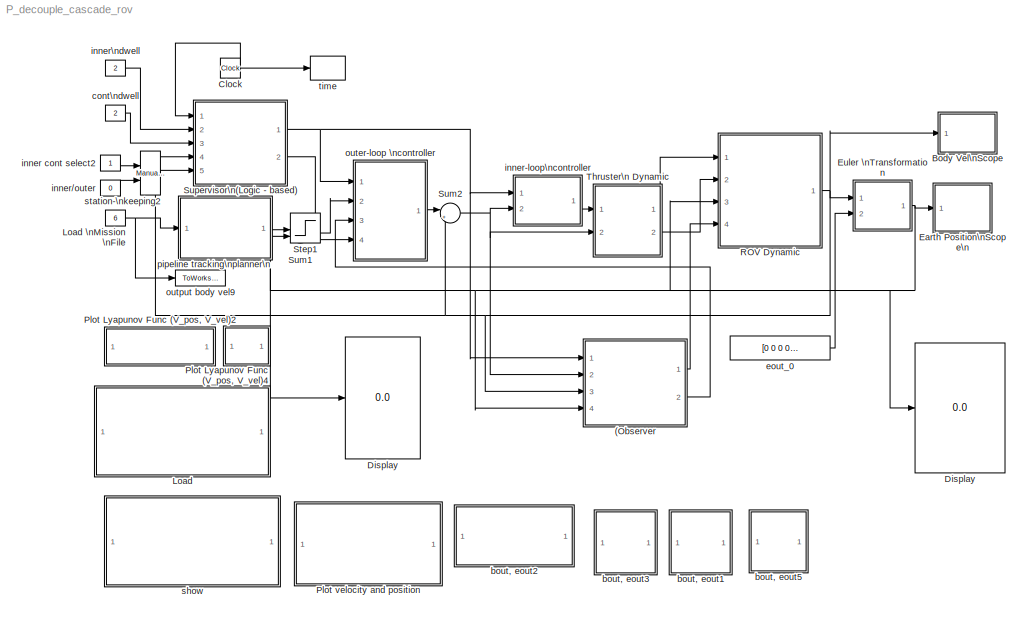
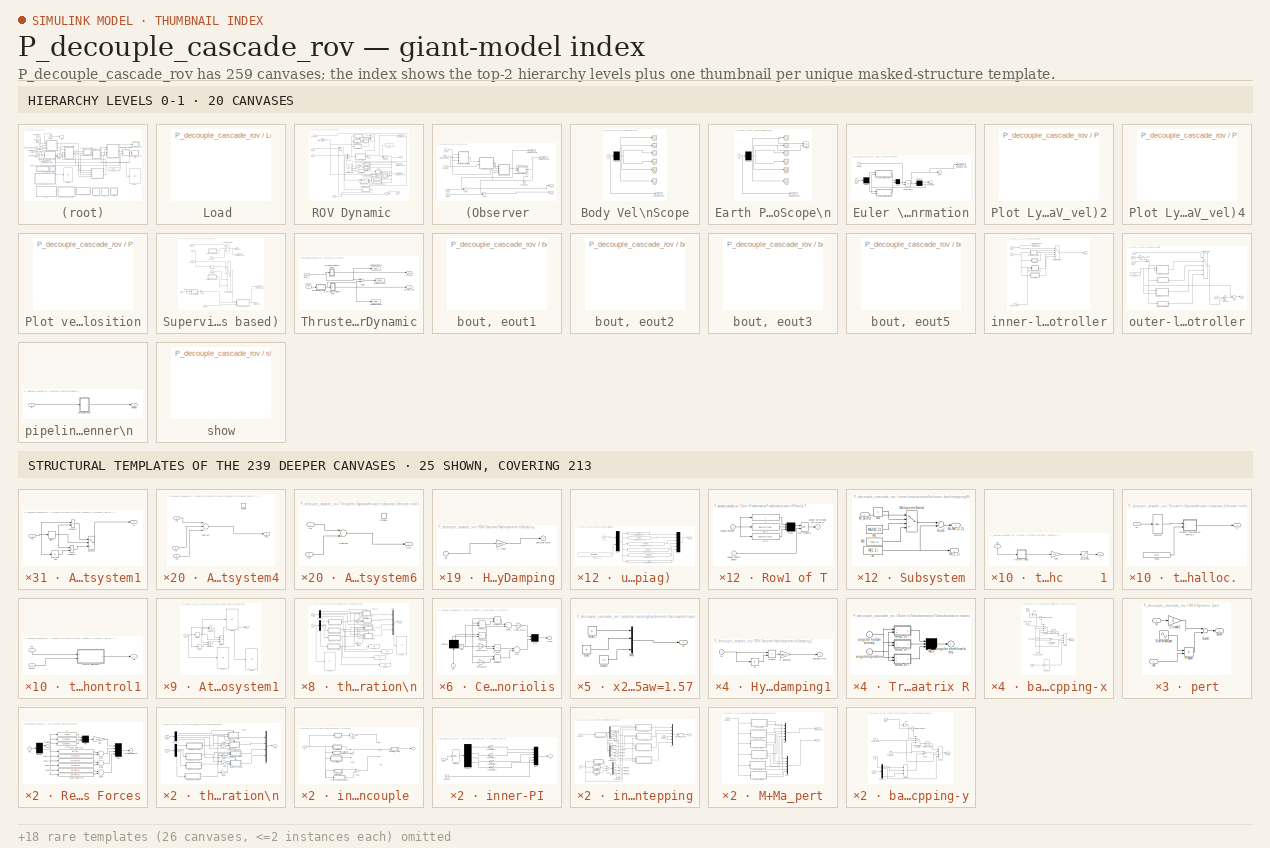
[diagram: thumbnail index - top-2 hierarchy levels (20 canvases) + 25 structural-template representatives of the remaining 239 canvases]
MODEL P_decouple_cascade_rov
KIND model
BLOCK [SubSystem]  Load  
  AncestorBlock = rov_design_analysis/ROV Controller\nDesign\nApplications/ Load RRCROV2 parameters
  MaskDisplay = disp('Double-click \\n to \\n Load the\\n RRCROV\\n parameters')
  MaskIconFrame = on
  MaskIconOpaque = on
  MaskIconRotate = none
  MaskIconUnits = autoscale
  MinAlgLoopOccurrences = off
  OpenFcn = clc                                                  \ncd <path> ;\nload rrcrovf;                                        \n
  Ports = []
  RTWSystemCode = Auto
  TreatAsAtomicUnit = off
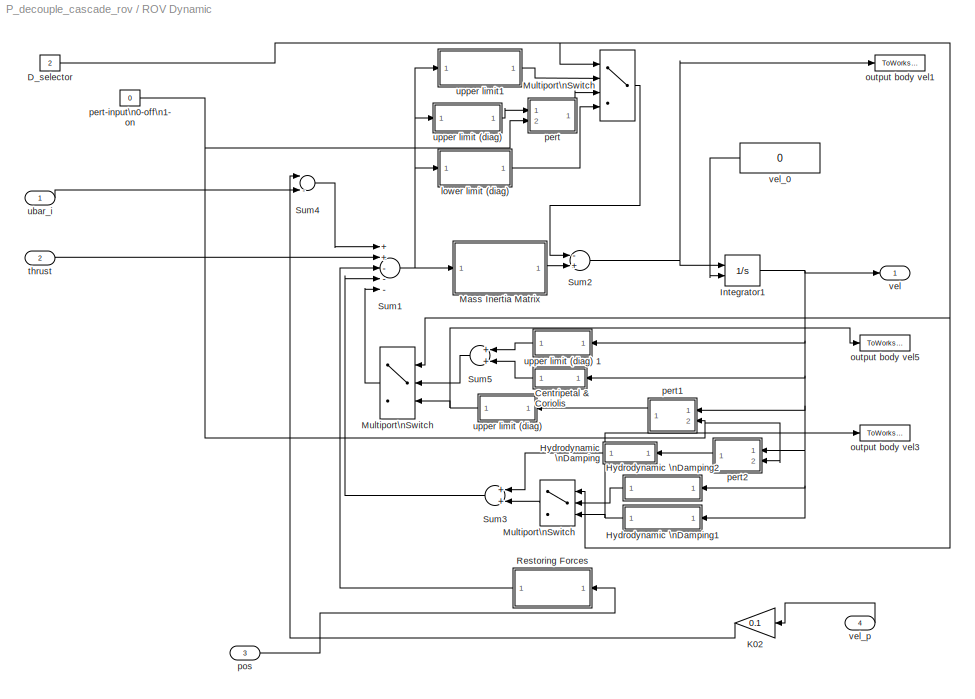
BLOCK [SubSystem]  ROV Dynamic   
  MaskDisplay = disp('ROV')\nimage(imread('/rov_design_analysis/fig/ROVRRC2.jpg'));\ncolor('white');port_label('input',1,'ubar_i')\ncolor('white');port_label('input',2,'thrust')\ncolor('white');port_label('input',3,'MCD_select')\ncolor('white');port_label('input',4,'eout')\ncolor('white');port_label('input',5,'bout_p')\n\ncolor('white');port_label('output',1,'vel')\ncolor('white');port_label('output',2,'boutdot')
  MaskIconFrame = on
  MaskIconOpaque = off
  MaskIconRotate = none
  MaskIconUnits = autoscale
  MinAlgLoopOccurrences = off
  Ports = [4, 1]
  RTWSystemCode = Auto
  TreatAsAtomicUnit = off
BLOCK [SubSystem]  ROV Dynamic   /Centripetal & Coriolis
  AncestorBlock = rov_design_analysis/ROV\nModels/1. Six DOF RRC ROV II/Centripetal & Coriolis
  MaskDisplay = disp('C')
  MaskIconFrame = on
  MaskIconOpaque = on
  MaskIconRotate = none
  MaskIconUnits = autoscale
  MinAlgLoopOccurrences = off
  Ports = [1, 1]
  RTWSystemCode = Auto
  TreatAsAtomicUnit = off
BLOCK [Demux]  ROV Dynamic   /Centripetal & Coriolis/Demux
  Outputs = 2
  Ports = [1, 2]
BLOCK [Mux]  ROV Dynamic   /Centripetal & Coriolis/Mux
  Inputs = 2
  Ports = [2, 1]
BLOCK [Product]  ROV Dynamic   /Centripetal & Coriolis/Product1
  Ports = [2, 1]
BLOCK [Product]  ROV Dynamic   /Centripetal & Coriolis/Product2
  Ports = [2, 1]
BLOCK [Product]  ROV Dynamic   /Centripetal & Coriolis/Product3
  Ports = [2, 1]
BLOCK [Product]  ROV Dynamic   /Centripetal & Coriolis/Product4
  Ports = [2, 1]
BLOCK [Product]  ROV Dynamic   /Centripetal & Coriolis/Product5
  Ports = [2, 1]
BLOCK [Constant]  ROV Dynamic   /Centripetal & Coriolis/Rg
  Value = rg
BLOCK [Sum]  ROV Dynamic   /Centripetal & Coriolis/Sum
  Ports = [2, 1]
BLOCK [Sum]  ROV Dynamic   /Centripetal & Coriolis/Sum1
  Ports = [2, 1]
BLOCK [Outport]  ROV Dynamic   /Centripetal & Coriolis/force
  BusOutputAsStruct = off
  IconDisplay = Port number
  InitialOutput = 0
BLOCK [Gain]  ROV Dynamic   /Centripetal & Coriolis/inertia(3x3)
  Gain = I*eye(3)+[Xudot 0 0;0 Yvdot 0;0 0 Zwdot]
  Multiplication = Matrix(K*u)
BLOCK [Gain]  ROV Dynamic   /Centripetal & Coriolis/mass(3x3)\n
  Gain = m*eye(3)+[Xudot 0 0;0 Yvdot 0;0 0 Zwdot]
  Multiplication = Matrix(K*u)
BLOCK [Gain]  ROV Dynamic   /Centripetal & Coriolis/mass(3x3)\n  
  Gain = m*eye(3)+[Xudot 0 0;0 Yvdot 0;0 0 Zwdot]
  Multiplication = Matrix(K*u)
BLOCK [Inport]  ROV Dynamic   /Centripetal & Coriolis/vel
  IconDisplay = Port number
  LatchInput = off
  Port = 1
BLOCK [Constant]  ROV Dynamic   /D_selector
  Value = 2
BLOCK [SubSystem]  ROV Dynamic   /Hydrodynamic \nDamping
  MaskDisplay = disp('D')
  MaskIconFrame = on
  MaskIconOpaque = on
  MaskIconRotate = none
  MaskIconUnits = autoscale
  MinAlgLoopOccurrences = off
  Ports = [1, 1]
  RTWSystemCode = Auto
  TreatAsAtomicUnit = off
BLOCK [Gain]  ROV Dynamic   /Hydrodynamic \nDamping/D linear
  Gain = -diag(DQL)
BLOCK [Outport]  ROV Dynamic   /Hydrodynamic \nDamping/damping force
  BusOutputAsStruct = off
  IconDisplay = Port number
  InitialOutput = 0
BLOCK [Inport]  ROV Dynamic   /Hydrodynamic \nDamping/vel
  IconDisplay = Port number
  LatchInput = off
  Port = 1
BLOCK [SubSystem]  ROV Dynamic   /Hydrodynamic \nDamping1
  MaskDisplay = disp('perturb \\nDamping')
  MaskIconFrame = on
  MaskIconOpaque = on
  MaskIconRotate = none
  MaskIconUnits = autoscale
  MinAlgLoopOccurrences = off
  Ports = [1, 1]
  RTWSystemCode = Auto
  TreatAsAtomicUnit = off
BLOCK [Gain]  ROV Dynamic   /Hydrodynamic \nDamping1/D quadratic
  Gain = -diag(DQ)
BLOCK [Product]  ROV Dynamic   /Hydrodynamic \nDamping1/Product
  Ports = [2, 1]
BLOCK [Outport]  ROV Dynamic   /Hydrodynamic \nDamping1/damping force
  BusOutputAsStruct = off
  IconDisplay = Port number
  InitialOutput = 0
BLOCK [Inport]  ROV Dynamic   /Hydrodynamic \nDamping1/vel
  IconDisplay = Port number
  LatchInput = off
  Port = 1
BLOCK [Abs]  ROV Dynamic   /Hydrodynamic \nDamping1/|u|
BLOCK [SubSystem]  ROV Dynamic   /Hydrodynamic \nDamping2
  MaskDisplay = disp('Zero Perturb')
  MaskIconFrame = on
  MaskIconOpaque = on
  MaskIconRotate = none
  MaskIconUnits = autoscale
  MinAlgLoopOccurrences = off
  Ports = [1, 1]
  RTWSystemCode = Auto
  TreatAsAtomicUnit = off
BLOCK [Gain]  ROV Dynamic   /Hydrodynamic \nDamping2/D quadratic
  Gain = 0
BLOCK [Outport]  ROV Dynamic   /Hydrodynamic \nDamping2/damping force
  BusOutputAsStruct = off
  IconDisplay = Port number
  InitialOutput = 0
BLOCK [Inport]  ROV Dynamic   /Hydrodynamic \nDamping2/vel
  IconDisplay = Port number
  LatchInput = off
  Port = 1
BLOCK [Integrator]  ROV Dynamic   /Integrator1
  InitialConditionSource = external
  Ports = [2, 1]
BLOCK [Gain]  ROV Dynamic   /K02
  Gain = 0.1
BLOCK [SubSystem]  ROV Dynamic   /Mass Inertia Matrix
  MaskDisplay = disp('inv(MRB+MA)')
  MaskIconFrame = on
  MaskIconOpaque = on
  MaskIconRotate = none
  MaskIconUnits = autoscale
  MinAlgLoopOccurrences = off
  Ports = [1, 1]
  RTWSystemCode = Auto
  TreatAsAtomicUnit = off
BLOCK [Inport]  ROV Dynamic   /Mass Inertia Matrix/In
  IconDisplay = Port number
  LatchInput = off
  Port = 1
BLOCK [Outport]  ROV Dynamic   /Mass Inertia Matrix/Out
  BusOutputAsStruct = off
  IconDisplay = Port number
BLOCK [Gain]  ROV Dynamic   /Mass Inertia Matrix/inverse M
  Gain = inv(M-Ma)
  Multiplication = Matrix(K*u)
BLOCK [MultiPortSwitch]  ROV Dynamic   /Multiport\nSwitch
  InputSameDT = off
  Inputs = 3
  Ports = [4, 1]
  SaturateOnIntegerOverflow = off
BLOCK [MultiPortSwitch]  ROV Dynamic   /Multiport\nSwitch  
  InputSameDT = off
  Inputs = 2
  Ports = [3, 1]
  SaturateOnIntegerOverflow = off
BLOCK [MultiPortSwitch]  ROV Dynamic   /Multiport\nSwitch    
  InputSameDT = off
  Inputs = 2
  Ports = [3, 1]
  SaturateOnIntegerOverflow = off
BLOCK [SubSystem]  ROV Dynamic   /Restoring Forces
  MaskDisplay = disp('Restoring\\nForce')
  MaskIconFrame = on
  MaskIconOpaque = on
  MaskIconRotate = none
  MaskIconUnits = autoscale
  MinAlgLoopOccurrences = off
  Ports = [1, 1]
  RTWSystemCode = Auto
  TreatAsAtomicUnit = off
BLOCK [Fcn]  ROV Dynamic   /Restoring Forces/(xg.W-xb.B)cY.cX
  Expr = (xg*W - xb*B)*cos(u[2])*cos(u[1])
BLOCK [Fcn]  ROV Dynamic   /Restoring Forces/(zg.W - zb.B)cY.sX
  Expr = ((zg * W - zb * B) * cos(u[2])) * sin(u[1])
BLOCK [Fcn]  ROV Dynamic   /Restoring Forces/(zg.W - zb.B)sY
  Expr = (zg*W - zb*B)*sin(u[2])
BLOCK [Fcn]  ROV Dynamic   /Restoring Forces/-(xg.W-xb.B)cY.sX
  Expr = -(xg*W - xb*B)*cos(u[2])*sin(u[1])
BLOCK [Fcn]  ROV Dynamic   /Restoring Forces/-(yg.W-yb.B)cY.cX
  Expr = -(yg*W - yb*B)*cos(u[2])*cos(u[1])
BLOCK [Fcn]  ROV Dynamic   /Restoring Forces/-(yg.W-yb.B)sY
  Expr = -(yg*W - yb*B)*sin(u[2])
BLOCK [Fcn]  ROV Dynamic   /Restoring Forces/-cY.cX
  Expr = -cos(u[2])*cos(u[1])
BLOCK [Fcn]  ROV Dynamic   /Restoring Forces/-cY.sX
  Expr = -cos(u[2])*sin(u[1])
BLOCK [Demux]  ROV Dynamic   /Restoring Forces/Demux
  Outputs = 2
  Ports = [1, 2]
BLOCK [Gain]  ROV Dynamic   /Restoring Forces/Gain
  Gain = W-B
BLOCK [Mux]  ROV Dynamic   /Restoring Forces/Mux
  Inputs = 3
  Ports = [3, 1]
BLOCK [Mux]  ROV Dynamic   /Restoring Forces/Mux1
  Ports = [4, 1]
BLOCK [Sum]  ROV Dynamic   /Restoring Forces/Sum
  Ports = [2, 1]
BLOCK [Sum]  ROV Dynamic   /Restoring Forces/Sum1
  Ports = [2, 1]
BLOCK [Sum]  ROV Dynamic   /Restoring Forces/Sum2
  Ports = [2, 1]
BLOCK [Terminator]  ROV Dynamic   /Restoring Forces/Terminator
BLOCK [Outport]  ROV Dynamic   /Restoring Forces/gravitational\nforce
  BusOutputAsStruct = off
  IconDisplay = Port number
  InitialOutput = 0
BLOCK [Inport]  ROV Dynamic   /Restoring Forces/pos
  IconDisplay = Port number
  LatchInput = off
  Port = 1
BLOCK [Fcn]  ROV Dynamic   /Restoring Forces/sY
  Expr = sin(u[2])
BLOCK [Sum]  ROV Dynamic   /Sum1
  Inputs = ++---
  Ports = [5, 1]
BLOCK [Sum]  ROV Dynamic   /Sum2
  Inputs = -+
  Ports = [2, 1]
BLOCK [Sum]  ROV Dynamic   /Sum3
  Ports = [2, 1]
BLOCK [Sum]  ROV Dynamic   /Sum4
  Inputs = |-+
  Ports = [2, 1]
BLOCK [Sum]  ROV Dynamic   /Sum5
  Ports = [2, 1]
BLOCK [SubSystem]  ROV Dynamic   /lower limit (diag)
  MaskDisplay = disp('Perturb MA')
  MaskIconFrame = on
  MaskIconOpaque = on
  MaskIconRotate = none
  MaskIconUnits = autoscale
  MinAlgLoopOccurrences = off
  Ports = [1, 1]
  RTWSystemCode = Auto
  TreatAsAtomicUnit = off
BLOCK [Inport]  ROV Dynamic   /lower limit (diag)/In
  IconDisplay = Port number
  LatchInput = off
  Port = 1
BLOCK [Outport]  ROV Dynamic   /lower limit (diag)/Out
  BusOutputAsStruct = off
  IconDisplay = Port number
BLOCK [Gain]  ROV Dynamic   /lower limit (diag)/inverse M
  Gain = -diag([21.1403-21.0981 51.7012-51.0026 92.451-91.837 3.6191-3.576 2.6427-2.7687 2.3033-2.3493])
  Multiplication = Matrix(K*u)
BLOCK [ToWorkspace]  ROV Dynamic   /output body vel1
  MaxDataPoints = inf
  SampleTime = 1
  SaveFormat = Array
  VariableName = boutpert
BLOCK [ToWorkspace]  ROV Dynamic   /output body vel3
  MaxDataPoints = inf
  SampleTime = 1
  SaveFormat = Array
  VariableName = dpert
BLOCK [ToWorkspace]  ROV Dynamic   /output body vel5
  MaxDataPoints = inf
  SampleTime = 1
  SaveFormat = Array
  VariableName = cpert
BLOCK [SubSystem]  ROV Dynamic   /pert
  MinAlgLoopOccurrences = off
  Ports = [2, 1]
  RTWSystemCode = Auto
  TreatAsAtomicUnit = off
BLOCK [Constant]  ROV Dynamic   /pert-input\n0-off\n1- on
  Value = 0
BLOCK [Gain]  ROV Dynamic   /pert/D linear3
  Gain = 2
BLOCK [Inport]  ROV Dynamic   /pert/In
  IconDisplay = Port number
  LatchInput = off
  Port = 1
BLOCK [Product]  ROV Dynamic   /pert/Product
  InputSameDT = off
  OutDataTypeMode = Inherit via internal rule
  Ports = [2, 1]
  SaturateOnIntegerOverflow = off
BLOCK [Sin]  ROV Dynamic   /pert/Sine Wave-pert
  Amplitude = 0.1
  Ports = [0, 1]
  SampleTime = 0
  SineType = Time based
BLOCK [Sum]  ROV Dynamic   /pert/Sum6
  Inputs = |++
  Ports = [2, 1]
BLOCK [Inport]  ROV Dynamic   /pert/inp
  IconDisplay = Port number
  LatchInput = off
  Port = 2
BLOCK [Outport]  ROV Dynamic   /pert/on//off
  BusOutputAsStruct = off
  IconDisplay = Port number
BLOCK [SubSystem]  ROV Dynamic   /pert1
  MinAlgLoopOccurrences = off
  Ports = [2, 1]
  RTWSystemCode = Auto
  TreatAsAtomicUnit = off
BLOCK [Gain]  ROV Dynamic   /pert1/D linear3
  Gain = 2
BLOCK [Inport]  ROV Dynamic   /pert1/In
  IconDisplay = Port number
  LatchInput = off
  Port = 1
BLOCK [Product]  ROV Dynamic   /pert1/Product
  InputSameDT = off
  OutDataTypeMode = Inherit via internal rule
  Ports = [2, 1]
  SaturateOnIntegerOverflow = off
BLOCK [Sin]  ROV Dynamic   /pert1/Sine Wave-pert
  Amplitude = 0.1
  Ports = [0, 1]
  SampleTime = 0
  SineType = Time based
BLOCK [Sum]  ROV Dynamic   /pert1/Sum6
  Inputs = |++
  Ports = [2, 1]
BLOCK [Inport]  ROV Dynamic   /pert1/inp
  IconDisplay = Port number
  LatchInput = off
  Port = 2
BLOCK [Outport]  ROV Dynamic   /pert1/on//off
  BusOutputAsStruct = off
  IconDisplay = Port number
BLOCK [SubSystem]  ROV Dynamic   /pert2
  MinAlgLoopOccurrences = off
  Ports = [2, 1]
  RTWSystemCode = Auto
  TreatAsAtomicUnit = off
BLOCK [Gain]  ROV Dynamic   /pert2/D linear3
  Gain = 2
BLOCK [Inport]  ROV Dynamic   /pert2/In
  IconDisplay = Port number
  LatchInput = off
  Port = 1
BLOCK [Product]  ROV Dynamic   /pert2/Product
  InputSameDT = off
  OutDataTypeMode = Inherit via internal rule
  Ports = [2, 1]
  SaturateOnIntegerOverflow = off
BLOCK [Sin]  ROV Dynamic   /pert2/Sine Wave-pert
  Amplitude = 0.1
  Ports = [0, 1]
  SampleTime = 0
  SineType = Time based
BLOCK [Sum]  ROV Dynamic   /pert2/Sum6
  Inputs = |++
  Ports = [2, 1]
BLOCK [Inport]  ROV Dynamic   /pert2/inp
  IconDisplay = Port number
  LatchInput = off
  Port = 2
BLOCK [Outport]  ROV Dynamic   /pert2/on//off
  BusOutputAsStruct = off
  IconDisplay = Port number
BLOCK [Inport]  ROV Dynamic   /pos 
  IconDisplay = Port number
  LatchInput = off
  Port = 3
BLOCK [Inport]  ROV Dynamic   /thrust 
  IconDisplay = Port number
  LatchInput = off
  Port = 2
BLOCK [Inport]  ROV Dynamic   /ubar_i
  IconDisplay = Port number
  LatchInput = off
  Port = 1
BLOCK [SubSystem]  ROV Dynamic   /upper limit (diag)
  MaskDisplay = disp('Perturb MA')
  MaskIconFrame = on
  MaskIconOpaque = on
  MaskIconRotate = none
  MaskIconUnits = autoscale
  MinAlgLoopOccurrences = off
  Ports = [1, 1]
  RTWSystemCode = Auto
  TreatAsAtomicUnit = off
BLOCK [SubSystem]  ROV Dynamic   /upper limit (diag)   
  MaskDisplay = disp('Perturb CA')
  MaskIconFrame = on
  MaskIconOpaque = on
  MaskIconRotate = none
  MaskIconUnits = autoscale
  MinAlgLoopOccurrences = off
  Ports = [1, 1]
  RTWSystemCode = Auto
  TreatAsAtomicUnit = off
BLOCK [Fcn]  ROV Dynamic   /upper limit (diag)   /(zg.W - zb.B)cY.sX
  Expr = -u[9]*u[3]*u[5]+u[8]*u[2]*u[6]
BLOCK [Fcn]  ROV Dynamic   /upper limit (diag)   /(zg.W - zb.B)cY.sX1
  Expr = u[9]*u[3]*u[4]-u[7]*u[1]*u[6]
BLOCK [Fcn]  ROV Dynamic   /upper limit (diag)   /(zg.W - zb.B)cY.sX2
  Expr = -u[8]*u[2]*u[4]+u[7]*u[1]*u[5]
BLOCK [Fcn]  ROV Dynamic   /upper limit (diag)   /(zg.W - zb.B)cY.sX3
  Expr = -u[9]*u[3]*u[2]+u[8]*u[2]*u[3]-u[12]*u[6]*u[5]+u[11]*u[5]*u[6]
BLOCK [Fcn]  ROV Dynamic   /upper limit (diag)   /(zg.W - zb.B)cY.sX4
  Expr = u[9]*u[3]*u[1]-u[7]*u[1]*u[3]+u[6]*u[12]*u[4]-u[4]*u[10]*u[6]
BLOCK [Fcn]  ROV Dynamic   /upper limit (diag)   /(zg.W - zb.B)cY.sX5
  Expr = -u[8]*u[2]*u[1]+u[7]*u[1]*u[2]-u[11]*u[5]*u[4]+u[10]*u[4]*u[5]
BLOCK [Mux]  ROV Dynamic   /upper limit (diag)   /Mux1
  Inputs = 6
  Ports = [6, 1]
BLOCK [Mux]  ROV Dynamic   /upper limit (diag)   /Mux3
  Inputs = 2
  Ports = [2, 1]
BLOCK [Constant]  ROV Dynamic   /upper limit (diag)   /Rg1
  Value = [MaU(1)  MaU(2)  MaU(3)  MaU(4)  MaU(5)  MaU(6) ]'
BLOCK [Outport]  ROV Dynamic   /upper limit (diag)   /force
  BusOutputAsStruct = off
  IconDisplay = Port number
BLOCK [Inport]  ROV Dynamic   /upper limit (diag)   /vel
  IconDisplay = Port number
  LatchInput = off
  Port = 1
BLOCK [SubSystem]  ROV Dynamic   /upper limit (diag)   1
  MaskDisplay = disp('CA')
  MaskIconFrame = on
  MaskIconOpaque = on
  MaskIconRotate = none
  MaskIconUnits = autoscale
  MinAlgLoopOccurrences = off
  Ports = [1, 1]
  RTWSystemCode = Auto
  TreatAsAtomicUnit = off
BLOCK [Fcn]  ROV Dynamic   /upper limit (diag)   1/(zg.W - zb.B)cY.sX
  Expr = -u[9]*u[3]*u[5]+u[8]*u[2]*u[6]
BLOCK [Fcn]  ROV Dynamic   /upper limit (diag)   1/(zg.W - zb.B)cY.sX1
  Expr = u[9]*u[3]*u[4]-u[7]*u[1]*u[6]
BLOCK [Fcn]  ROV Dynamic   /upper limit (diag)   1/(zg.W - zb.B)cY.sX2
  Expr = -u[8]*u[2]*u[4]+u[7]*u[1]*u[5]
BLOCK [Fcn]  ROV Dynamic   /upper limit (diag)   1/(zg.W - zb.B)cY.sX3
  Expr = -u[9]*u[3]*u[2]+u[8]*u[2]*u[3]-u[12]*u[6]*u[5]+u[11]*u[5]*u[6]
BLOCK [Fcn]  ROV Dynamic   /upper limit (diag)   1/(zg.W - zb.B)cY.sX4
  Expr = u[9]*u[3]*u[1]-u[7]*u[1]*u[3]+u[6]*u[12]*u[4]-u[4]*u[10]*u[6]
BLOCK [Fcn]  ROV Dynamic   /upper limit (diag)   1/(zg.W - zb.B)cY.sX5
  Expr = -u[8]*u[2]*u[1]+u[7]*u[1]*u[2]-u[11]*u[5]*u[4]+u[10]*u[4]*u[5]
BLOCK [Mux]  ROV Dynamic   /upper limit (diag)   1/Mux1
  Inputs = 6
  Ports = [6, 1]
BLOCK [Mux]  ROV Dynamic   /upper limit (diag)   1/Mux3
  Inputs = 2
  Ports = [2, 1]
BLOCK [Constant]  ROV Dynamic   /upper limit (diag)   1/Rg1
  Value = [Ma(1)  Ma(2)  Ma(3)  Ma(4)  Ma(5)  Ma(6) ]'
BLOCK [Outport]  ROV Dynamic   /upper limit (diag)   1/force
  BusOutputAsStruct = off
  IconDisplay = Port number
BLOCK [Inport]  ROV Dynamic   /upper limit (diag)   1/vel
  IconDisplay = Port number
  LatchInput = off
  Port = 1
BLOCK [Inport]  ROV Dynamic   /upper limit (diag)/In
  IconDisplay = Port number
  LatchInput = off
  Port = 1
BLOCK [Outport]  ROV Dynamic   /upper limit (diag)/Out
  BusOutputAsStruct = off
  IconDisplay = Port number
BLOCK [Gain]  ROV Dynamic   /upper limit (diag)/inverse M
  Gain = -diag([21.724-21.1403 51.7013-51.7012 94.3-92.451 4.2176-3.6191 7.1148-2.6427 4.7673-2.3033])
  Multiplication = Matrix(K*u)
BLOCK [SubSystem]  ROV Dynamic   /upper limit1
  MaskDisplay = disp('Zero Perturb')
  MaskIconFrame = on
  MaskIconOpaque = on
  MaskIconRotate = none
  MaskIconUnits = autoscale
  MinAlgLoopOccurrences = off
  Ports = [1, 1]
  RTWSystemCode = Auto
  TreatAsAtomicUnit = off
BLOCK [Inport]  ROV Dynamic   /upper limit1/In
  IconDisplay = Port number
  LatchInput = off
  Port = 1
BLOCK [Outport]  ROV Dynamic   /upper limit1/Out
  BusOutputAsStruct = off
  IconDisplay = Port number
BLOCK [Gain]  ROV Dynamic   /upper limit1/inverse M
  Gain = 0
  Multiplication = Matrix(K*u)
BLOCK [Outport]  ROV Dynamic   /vel
  BusOutputAsStruct = off
  IconDisplay = Port number
BLOCK [Constant]  ROV Dynamic   /vel_0
  OutDataTypeMode = double
  Value = 0
BLOCK [Inport]  ROV Dynamic   /vel_p
  IconDisplay = Port number
  LatchInput = off
  Port = 4
BLOCK [Constant]  inner\ndwell
  Value = 2
BLOCK [Reference]  station-\nkeeping2  REF=simulink/Signal\nRouting/Manual Switch
  Ports = [2, 1]
  ShowPortLabels = on
  SourceBlock = simulink/Signal\nRouting/Manual Switch
  SourceType = Manual Switch
  action = 0
  sw = 1
BLOCK [SubSystem] (Observer
  MaskDisplay = disp('Observer')
  MaskIconFrame = on
  MaskIconOpaque = on
  MaskIconRotate = none
  MaskIconUnits = autoscale
  MinAlgLoopOccurrences = off
  Ports = [4, 2]
  RTWSystemCode = Auto
  TreatAsAtomicUnit = off
BLOCK [SubSystem] (Observer/ Six DOF RRC ROV   1
  MaskDisplay = disp('ROV')\nimage(imread('/rov_design_analysis/fig/ROVRRC2.jpg'));\ncolor('white');port_label('input',1,'ubar_i')\ncolor('white');port_label('input',2,'thrust')\ncolor('white');port_label('input',3,'MCD_select')\ncolor('white');port_label('input',4,'pos')\ncolor('white');port_label('output',1,'vel')\ncolor('white');port_label('output',2,'Inv_MC')
  MaskIconFrame = on
  MaskIconOpaque = off
  MaskIconRotate = none
  MaskIconUnits = autoscale
  MinAlgLoopOccurrences = off
  Ports = [4, 1]
  RTWSystemCode = Auto
  TreatAsAtomicUnit = off
BLOCK [SubSystem] (Observer/ Six DOF RRC ROV   1/Centripetal & Coriolis
  AncestorBlock = rov_design_analysis/ROV\nModels/1. Six DOF RRC ROV II/Centripetal & Coriolis
  MaskDisplay = disp('C')
  MaskIconFrame = on
  MaskIconOpaque = on
  MaskIconRotate = none
  MaskIconUnits = autoscale
  MinAlgLoopOccurrences = off
  Ports = [1, 1]
  RTWSystemCode = Auto
  TreatAsAtomicUnit = off
BLOCK [Demux] (Observer/ Six DOF RRC ROV   1/Centripetal & Coriolis/Demux
  Outputs = 2
  Ports = [1, 2]
BLOCK [Mux] (Observer/ Six DOF RRC ROV   1/Centripetal & Coriolis/Mux
  Inputs = 2
  Ports = [2, 1]
BLOCK [Product] (Observer/ Six DOF RRC ROV   1/Centripetal & Coriolis/Product1
  Ports = [2, 1]
BLOCK [Product] (Observer/ Six DOF RRC ROV   1/Centripetal & Coriolis/Product2
  Ports = [2, 1]
BLOCK [Product] (Observer/ Six DOF RRC ROV   1/Centripetal & Coriolis/Product3
  Ports = [2, 1]
BLOCK [Product] (Observer/ Six DOF RRC ROV   1/Centripetal & Coriolis/Product4
  Ports = [2, 1]
BLOCK [Product] (Observer/ Six DOF RRC ROV   1/Centripetal & Coriolis/Product5
  Ports = [2, 1]
BLOCK [Constant] (Observer/ Six DOF RRC ROV   1/Centripetal & Coriolis/Rg
  Value = rg
BLOCK [Sum] (Observer/ Six DOF RRC ROV   1/Centripetal & Coriolis/Sum
  Ports = [2, 1]
BLOCK [Sum] (Observer/ Six DOF RRC ROV   1/Centripetal & Coriolis/Sum1
  Ports = [2, 1]
BLOCK [Outport] (Observer/ Six DOF RRC ROV   1/Centripetal & Coriolis/force
  BusOutputAsStruct = off
  IconDisplay = Port number
  InitialOutput = 0
BLOCK [Gain] (Observer/ Six DOF RRC ROV   1/Centripetal & Coriolis/inertia(3x3)
  Gain = I*eye(3)+[Xudot 0 0;0 Yvdot 0;0 0 Zwdot]
  Multiplication = Matrix(K*u)
BLOCK [Gain] (Observer/ Six DOF RRC ROV   1/Centripetal & Coriolis/mass(3x3)\n
  Gain = m*eye(3)+[Xudot 0 0;0 Yvdot 0;0 0 Zwdot]
  Multiplication = Matrix(K*u)
BLOCK [Gain] (Observer/ Six DOF RRC ROV   1/Centripetal & Coriolis/mass(3x3)\n  
  Gain = m*eye(3)+[Xudot 0 0;0 Yvdot 0;0 0 Zwdot]
  Multiplication = Matrix(K*u)
BLOCK [Inport] (Observer/ Six DOF RRC ROV   1/Centripetal & Coriolis/vel
  IconDisplay = Port number
  LatchInput = off
  Port = 1
BLOCK [Constant] (Observer/ Six DOF RRC ROV   1/D_selector
  Value = 2
BLOCK [SubSystem] (Observer/ Six DOF RRC ROV   1/Hydrodynamic \nDamping
  MaskDisplay = disp('D')
  MaskIconFrame = on
  MaskIconOpaque = on
  MaskIconRotate = none
  MaskIconUnits = autoscale
  MinAlgLoopOccurrences = off
  Ports = [1, 1]
  RTWSystemCode = Auto
  TreatAsAtomicUnit = off
BLOCK [Gain] (Observer/ Six DOF RRC ROV   1/Hydrodynamic \nDamping/D linear
  Gain = -diag(DQL)
BLOCK [Outport] (Observer/ Six DOF RRC ROV   1/Hydrodynamic \nDamping/damping force
  BusOutputAsStruct = off
  IconDisplay = Port number
  InitialOutput = 0
BLOCK [Inport] (Observer/ Six DOF RRC ROV   1/Hydrodynamic \nDamping/vel
  IconDisplay = Port number
  LatchInput = off
  Port = 1
BLOCK [SubSystem] (Observer/ Six DOF RRC ROV   1/Hydrodynamic \nDamping1
  MaskDisplay = disp('perturb \\nDamping')
  MaskIconFrame = on
  MaskIconOpaque = on
  MaskIconRotate = none
  MaskIconUnits = autoscale
  MinAlgLoopOccurrences = off
  Ports = [1, 1]
  RTWSystemCode = Auto
  TreatAsAtomicUnit = off
BLOCK [Gain] (Observer/ Six DOF RRC ROV   1/Hydrodynamic \nDamping1/D quadratic
  Gain = -diag(DQ)
BLOCK [Product] (Observer/ Six DOF RRC ROV   1/Hydrodynamic \nDamping1/Product
  Ports = [2, 1]
BLOCK [Outport] (Observer/ Six DOF RRC ROV   1/Hydrodynamic \nDamping1/damping force
  BusOutputAsStruct = off
  IconDisplay = Port number
  InitialOutput = 0
BLOCK [Inport] (Observer/ Six DOF RRC ROV   1/Hydrodynamic \nDamping1/vel
  IconDisplay = Port number
  LatchInput = off
  Port = 1
BLOCK [Abs] (Observer/ Six DOF RRC ROV   1/Hydrodynamic \nDamping1/|u|
BLOCK [SubSystem] (Observer/ Six DOF RRC ROV   1/Hydrodynamic \nDamping2
  MaskDisplay = disp('Zero Perturb')
  MaskIconFrame = on
  MaskIconOpaque = on
  MaskIconRotate = none
  MaskIconUnits = autoscale
  MinAlgLoopOccurrences = off
  Ports = [1, 1]
  RTWSystemCode = Auto
  TreatAsAtomicUnit = off
BLOCK [Gain] (Observer/ Six DOF RRC ROV   1/Hydrodynamic \nDamping2/D quadratic
  Gain = 0
BLOCK [Outport] (Observer/ Six DOF RRC ROV   1/Hydrodynamic \nDamping2/damping force
  BusOutputAsStruct = off
  IconDisplay = Port number
  InitialOutput = 0
BLOCK [Inport] (Observer/ Six DOF RRC ROV   1/Hydrodynamic \nDamping2/vel
  IconDisplay = Port number
  LatchInput = off
  Port = 1
BLOCK [Integrator] (Observer/ Six DOF RRC ROV   1/Integrator1
  InitialConditionSource = external
  Ports = [2, 1]
BLOCK [Inport] (Observer/ Six DOF RRC ROV   1/MCD_select
  IconDisplay = Port number
  LatchInput = off
  Port = 3
BLOCK [SubSystem] (Observer/ Six DOF RRC ROV   1/Mass Inertia Matrix
  MaskDisplay = disp('inv(MRB+MA)')
  MaskIconFrame = on
  MaskIconOpaque = on
  MaskIconRotate = none
  MaskIconUnits = autoscale
  MinAlgLoopOccurrences = off
  Ports = [1, 1]
  RTWSystemCode = Auto
  TreatAsAtomicUnit = off
BLOCK [Inport] (Observer/ Six DOF RRC ROV   1/Mass Inertia Matrix/In
  IconDisplay = Port number
  LatchInput = off
  Port = 1
BLOCK [Outport] (Observer/ Six DOF RRC ROV   1/Mass Inertia Matrix/Out
  BusOutputAsStruct = off
  IconDisplay = Port number
BLOCK [Gain] (Observer/ Six DOF RRC ROV   1/Mass Inertia Matrix/inverse M
  Gain = inv(M-Ma)
  Multiplication = Matrix(K*u)
BLOCK [MultiPortSwitch] (Observer/ Six DOF RRC ROV   1/Multiport\nSwitch
  InputSameDT = off
  Inputs = 3
  Ports = [4, 1]
  SaturateOnIntegerOverflow = off
BLOCK [MultiPortSwitch] (Observer/ Six DOF RRC ROV   1/Multiport\nSwitch  
  InputSameDT = off
  Inputs = 2
  Ports = [3, 1]
  SaturateOnIntegerOverflow = off
BLOCK [MultiPortSwitch] (Observer/ Six DOF RRC ROV   1/Multiport\nSwitch    
  InputSameDT = off
  Inputs = 2
  Ports = [3, 1]
  SaturateOnIntegerOverflow = off
BLOCK [SubSystem] (Observer/ Six DOF RRC ROV   1/Restoring Forces
  MaskDisplay = disp('Restoring\\nForce')
  MaskIconFrame = on
  MaskIconOpaque = on
  MaskIconRotate = none
  MaskIconUnits = autoscale
  MinAlgLoopOccurrences = off
  Ports = [1, 1]
  RTWSystemCode = Auto
  TreatAsAtomicUnit = off
BLOCK [Fcn] (Observer/ Six DOF RRC ROV   1/Restoring Forces/(xg.W-xb.B)cY.cX
  Expr = (xg*W - xb*B)*cos(u[2])*cos(u[1])
BLOCK [Fcn] (Observer/ Six DOF RRC ROV   1/Restoring Forces/(zg.W - zb.B)cY.sX
  Expr = ((zg * W - zb * B) * cos(u[2])) * sin(u[1])
BLOCK [Fcn] (Observer/ Six DOF RRC ROV   1/Restoring Forces/(zg.W - zb.B)sY
  Expr = (zg*W - zb*B)*sin(u[2])
BLOCK [Fcn] (Observer/ Six DOF RRC ROV   1/Restoring Forces/-(xg.W-xb.B)cY.sX
  Expr = -(xg*W - xb*B)*cos(u[2])*sin(u[1])
BLOCK [Fcn] (Observer/ Six DOF RRC ROV   1/Restoring Forces/-(yg.W-yb.B)cY.cX
  Expr = -(yg*W - yb*B)*cos(u[2])*cos(u[1])
BLOCK [Fcn] (Observer/ Six DOF RRC ROV   1/Restoring Forces/-(yg.W-yb.B)sY
  Expr = -(yg*W - yb*B)*sin(u[2])
BLOCK [Fcn] (Observer/ Six DOF RRC ROV   1/Restoring Forces/-cY.cX
  Expr = -cos(u[2])*cos(u[1])
BLOCK [Fcn] (Observer/ Six DOF RRC ROV   1/Restoring Forces/-cY.sX
  Expr = -cos(u[2])*sin(u[1])
BLOCK [Demux] (Observer/ Six DOF RRC ROV   1/Restoring Forces/Demux
  Outputs = 2
  Ports = [1, 2]
BLOCK [Gain] (Observer/ Six DOF RRC ROV   1/Restoring Forces/Gain
  Gain = W-B
BLOCK [Mux] (Observer/ Six DOF RRC ROV   1/Restoring Forces/Mux
  Inputs = 3
  Ports = [3, 1]
BLOCK [Mux] (Observer/ Six DOF RRC ROV   1/Restoring Forces/Mux1
  Ports = [4, 1]
BLOCK [Sum] (Observer/ Six DOF RRC ROV   1/Restoring Forces/Sum
  Ports = [2, 1]
BLOCK [Sum] (Observer/ Six DOF RRC ROV   1/Restoring Forces/Sum1
  Ports = [2, 1]
BLOCK [Sum] (Observer/ Six DOF RRC ROV   1/Restoring Forces/Sum2
  Ports = [2, 1]
BLOCK [Terminator] (Observer/ Six DOF RRC ROV   1/Restoring Forces/Terminator
BLOCK [Outport] (Observer/ Six DOF RRC ROV   1/Restoring Forces/gravitational\nforce
  BusOutputAsStruct = off
  IconDisplay = Port number
  InitialOutput = 0
BLOCK [Inport] (Observer/ Six DOF RRC ROV   1/Restoring Forces/pos
  IconDisplay = Port number
  LatchInput = off
  Port = 1
BLOCK [Fcn] (Observer/ Six DOF RRC ROV   1/Restoring Forces/sY
  Expr = sin(u[2])
BLOCK [Sum] (Observer/ Six DOF RRC ROV   1/Sum1
  Inputs = ++---
  Ports = [5, 1]
BLOCK [Sum] (Observer/ Six DOF RRC ROV   1/Sum2
  Inputs = -+
  Ports = [2, 1]
BLOCK [Sum] (Observer/ Six DOF RRC ROV   1/Sum3
  Ports = [2, 1]
BLOCK [Sum] (Observer/ Six DOF RRC ROV   1/Sum5
  Ports = [2, 1]
BLOCK [SubSystem] (Observer/ Six DOF RRC ROV   1/lower limit (diag)
  MaskDisplay = disp('Perturb MA')
  MaskIconFrame = on
  MaskIconOpaque = on
  MaskIconRotate = none
  MaskIconUnits = autoscale
  MinAlgLoopOccurrences = off
  Ports = [1, 1]
  RTWSystemCode = Auto
  TreatAsAtomicUnit = off
BLOCK [Inport] (Observer/ Six DOF RRC ROV   1/lower limit (diag)/In
  IconDisplay = Port number
  LatchInput = off
  Port = 1
BLOCK [Outport] (Observer/ Six DOF RRC ROV   1/lower limit (diag)/Out
  BusOutputAsStruct = off
  IconDisplay = Port number
BLOCK [Gain] (Observer/ Six DOF RRC ROV   1/lower limit (diag)/inverse M
  Gain = -diag([21.1403-21.0981 51.7012-51.0026 92.451-91.837 3.6191-3.576 2.6427-2.7687 2.3033-2.3493])
  Multiplication = Matrix(K*u)
BLOCK [Inport] (Observer/ Six DOF RRC ROV   1/pos 
  IconDisplay = Port number
  LatchInput = off
  Port = 4
BLOCK [Inport] (Observer/ Six DOF RRC ROV   1/thrust 
  IconDisplay = Port number
  LatchInput = off
  Port = 2
BLOCK [Inport] (Observer/ Six DOF RRC ROV   1/ubar_i
  IconDisplay = Port number
  LatchInput = off
  Port = 1
BLOCK [SubSystem] (Observer/ Six DOF RRC ROV   1/upper limit (diag)
  MaskDisplay = disp('Perturb MA')
  MaskIconFrame = on
  MaskIconOpaque = on
  MaskIconRotate = none
  MaskIconUnits = autoscale
  MinAlgLoopOccurrences = off
  Ports = [1, 1]
  RTWSystemCode = Auto
  TreatAsAtomicUnit = off
BLOCK [SubSystem] (Observer/ Six DOF RRC ROV   1/upper limit (diag)   
  MaskDisplay = disp('Perturb CA')
  MaskIconFrame = on
  MaskIconOpaque = on
  MaskIconRotate = none
  MaskIconUnits = autoscale
  MinAlgLoopOccurrences = off
  Ports = [1, 1]
  RTWSystemCode = Auto
  TreatAsAtomicUnit = off
BLOCK [Fcn] (Observer/ Six DOF RRC ROV   1/upper limit (diag)   /(zg.W - zb.B)cY.sX
  Expr = -u[9]*u[3]*u[5]+u[8]*u[2]*u[6]
BLOCK [Fcn] (Observer/ Six DOF RRC ROV   1/upper limit (diag)   /(zg.W - zb.B)cY.sX1
  Expr = u[9]*u[3]*u[4]-u[7]*u[1]*u[6]
BLOCK [Fcn] (Observer/ Six DOF RRC ROV   1/upper limit (diag)   /(zg.W - zb.B)cY.sX2
  Expr = -u[8]*u[2]*u[4]+u[7]*u[1]*u[5]
BLOCK [Fcn] (Observer/ Six DOF RRC ROV   1/upper limit (diag)   /(zg.W - zb.B)cY.sX3
  Expr = -u[9]*u[3]*u[2]+u[8]*u[2]*u[3]-u[12]*u[6]*u[5]+u[11]*u[5]*u[6]
BLOCK [Fcn] (Observer/ Six DOF RRC ROV   1/upper limit (diag)   /(zg.W - zb.B)cY.sX4
  Expr = u[9]*u[3]*u[1]-u[7]*u[1]*u[3]+u[6]*u[12]*u[4]-u[4]*u[10]*u[6]
BLOCK [Fcn] (Observer/ Six DOF RRC ROV   1/upper limit (diag)   /(zg.W - zb.B)cY.sX5
  Expr = -u[8]*u[2]*u[1]+u[7]*u[1]*u[2]-u[11]*u[5]*u[4]+u[10]*u[4]*u[5]
BLOCK [Mux] (Observer/ Six DOF RRC ROV   1/upper limit (diag)   /Mux1
  Inputs = 6
  Ports = [6, 1]
BLOCK [Mux] (Observer/ Six DOF RRC ROV   1/upper limit (diag)   /Mux3
  Inputs = 2
  Ports = [2, 1]
BLOCK [Constant] (Observer/ Six DOF RRC ROV   1/upper limit (diag)   /Rg1
  Value = [MaU(1)  MaU(2)  MaU(3)  MaU(4)  MaU(5)  MaU(6) ]'
BLOCK [Outport] (Observer/ Six DOF RRC ROV   1/upper limit (diag)   /force
  BusOutputAsStruct = off
  IconDisplay = Port number
BLOCK [Inport] (Observer/ Six DOF RRC ROV   1/upper limit (diag)   /vel
  IconDisplay = Port number
  LatchInput = off
  Port = 1
BLOCK [SubSystem] (Observer/ Six DOF RRC ROV   1/upper limit (diag)   1
  MaskDisplay = disp('CA')
  MaskIconFrame = on
  MaskIconOpaque = on
  MaskIconRotate = none
  MaskIconUnits = autoscale
  MinAlgLoopOccurrences = off
  Ports = [1, 1]
  RTWSystemCode = Auto
  TreatAsAtomicUnit = off
BLOCK [Fcn] (Observer/ Six DOF RRC ROV   1/upper limit (diag)   1/(zg.W - zb.B)cY.sX
  Expr = -u[9]*u[3]*u[5]+u[8]*u[2]*u[6]
BLOCK [Fcn] (Observer/ Six DOF RRC ROV   1/upper limit (diag)   1/(zg.W - zb.B)cY.sX1
  Expr = u[9]*u[3]*u[4]-u[7]*u[1]*u[6]
BLOCK [Fcn] (Observer/ Six DOF RRC ROV   1/upper limit (diag)   1/(zg.W - zb.B)cY.sX2
  Expr = -u[8]*u[2]*u[4]+u[7]*u[1]*u[5]
BLOCK [Fcn] (Observer/ Six DOF RRC ROV   1/upper limit (diag)   1/(zg.W - zb.B)cY.sX3
  Expr = -u[9]*u[3]*u[2]+u[8]*u[2]*u[3]-u[12]*u[6]*u[5]+u[11]*u[5]*u[6]
BLOCK [Fcn] (Observer/ Six DOF RRC ROV   1/upper limit (diag)   1/(zg.W - zb.B)cY.sX4
  Expr = u[9]*u[3]*u[1]-u[7]*u[1]*u[3]+u[6]*u[12]*u[4]-u[4]*u[10]*u[6]
BLOCK [Fcn] (Observer/ Six DOF RRC ROV   1/upper limit (diag)   1/(zg.W - zb.B)cY.sX5
  Expr = -u[8]*u[2]*u[1]+u[7]*u[1]*u[2]-u[11]*u[5]*u[4]+u[10]*u[4]*u[5]
BLOCK [Mux] (Observer/ Six DOF RRC ROV   1/upper limit (diag)   1/Mux1
  Inputs = 6
  Ports = [6, 1]
BLOCK [Mux] (Observer/ Six DOF RRC ROV   1/upper limit (diag)   1/Mux3
  Inputs = 2
  Ports = [2, 1]
BLOCK [Constant] (Observer/ Six DOF RRC ROV   1/upper limit (diag)   1/Rg1
  Value = [Ma(1)  Ma(2)  Ma(3)  Ma(4)  Ma(5)  Ma(6) ]'
BLOCK [Outport] (Observer/ Six DOF RRC ROV   1/upper limit (diag)   1/force
  BusOutputAsStruct = off
  IconDisplay = Port number
BLOCK [Inport] (Observer/ Six DOF RRC ROV   1/upper limit (diag)   1/vel
  IconDisplay = Port number
  LatchInput = off
  Port = 1
BLOCK [Inport] (Observer/ Six DOF RRC ROV   1/upper limit (diag)/In
  IconDisplay = Port number
  LatchInput = off
  Port = 1
BLOCK [Outport] (Observer/ Six DOF RRC ROV   1/upper limit (diag)/Out
  BusOutputAsStruct = off
  IconDisplay = Port number
BLOCK [Gain] (Observer/ Six DOF RRC ROV   1/upper limit (diag)/inverse M
  Gain = -diag([21.724-21.1403 51.7013-51.7012 94.3-92.451 4.2176-3.6191 7.1148-2.6427 4.7673-2.3033])
  Multiplication = Matrix(K*u)
BLOCK [SubSystem] (Observer/ Six DOF RRC ROV   1/upper limit1
  MaskDisplay = disp('Zero Perturb')
  MaskIconFrame = on
  MaskIconOpaque = on
  MaskIconRotate = none
  MaskIconUnits = autoscale
  MinAlgLoopOccurrences = off
  Ports = [1, 1]
  RTWSystemCode = Auto
  TreatAsAtomicUnit = off
BLOCK [Inport] (Observer/ Six DOF RRC ROV   1/upper limit1/In
  IconDisplay = Port number
  LatchInput = off
  Port = 1
BLOCK [Outport] (Observer/ Six DOF RRC ROV   1/upper limit1/Out
  BusOutputAsStruct = off
  IconDisplay = Port number
BLOCK [Gain] (Observer/ Six DOF RRC ROV   1/upper limit1/inverse M
  Gain = 0
  Multiplication = Matrix(K*u)
BLOCK [Outport] (Observer/ Six DOF RRC ROV   1/vel
  BusOutputAsStruct = off
  IconDisplay = Port number
BLOCK [Constant] (Observer/ Six DOF RRC ROV   1/vel_0
  OutDataTypeMode = double
  Value = 0
BLOCK [SubSystem] (Observer/Euler \nTransformation1
  AncestorBlock = rov_design_analysis/Scope\nUtilities/Euler Transformation
  MinAlgLoopOccurrences = off
  Ports = [2, 1]
  RTWSystemCode = Auto
  TreatAsAtomicUnit = off
BLOCK [Demux] (Observer/Euler \nTransformation1/Demux
  Outputs = 2
  Ports = [1, 2]
BLOCK [Demux] (Observer/Euler \nTransformation1/Demux1
  Outputs = 2
  Ports = [1, 2]
BLOCK [Integrator] (Observer/Euler \nTransformation1/Intregrator2
  InitialConditionSource = external
  Ports = [2, 1]
BLOCK [Mux] (Observer/Euler \nTransformation1/Mux1
  Inputs = 2
  Ports = [2, 1]
BLOCK [Terminator] (Observer/Euler \nTransformation1/Terminator
BLOCK [SubSystem] (Observer/Euler \nTransformation1/Transformation matrix R
  MaskDisplay = disp('Transformation R')
  MaskIconFrame = on
  MaskIconOpaque = on
  MaskIconRotate = none
  MaskIconUnits = autoscale
  MinAlgLoopOccurrences = off
  Ports = [2, 1]
  RTWSystemCode = Auto
  TreatAsAtomicUnit = off
BLOCK [Mux] (Observer/Euler \nTransformation1/Transformation matrix R/Mux
  Inputs = 3
  Ports = [3, 1]
BLOCK [SubSystem] (Observer/Euler \nTransformation1/Transformation matrix R/Row1 of T
  MaskDisplay = disp('Row 1')
  MaskIconFrame = on
  MaskIconOpaque = on
  MaskIconRotate = none
  MaskIconUnits = autoscale
  MinAlgLoopOccurrences = off
  Ports = [2, 1]
  RTWSystemCode = Auto
  TreatAsAtomicUnit = off
BLOCK [Fcn] (Observer/Euler \nTransformation1/Transformation matrix R/Row1 of T/1
  Expr = 1
BLOCK [Reference] (Observer/Euler \nTransformation1/Transformation matrix R/Row1 of T/Dot Product1  REF=simulink/Math\nOperations/Dot Product
  DoSatur = off
  InputSameDT = on
  LockScale = off
  OutDataType = sfix(16)
  OutScaling = 2^-10
  OutputDataTypeScalingMode = Inherit via internal rule
  Ports = [2, 1]
  RndMeth = Floor
  SourceBlock = simulink/Math\nOperations/Dot Product
  SourceType = Dot Product
BLOCK [Mux] (Observer/Euler \nTransformation1/Transformation matrix R/Row1 of T/Mux1
  Inputs = 3
  Ports = [3, 1]
BLOCK [Inport] (Observer/Euler \nTransformation1/Transformation matrix R/Row1 of T/angular body\n velocity
  IconDisplay = Port number
  LatchInput = off
  Port = 1
BLOCK [Outport] (Observer/Euler \nTransformation1/Transformation matrix R/Row1 of T/angular earth\nvelocity\n(row 1)
  BusOutputAsStruct = off
  IconDisplay = Port number
BLOCK [Inport] (Observer/Euler \nTransformation1/Transformation matrix R/Row1 of T/angular\nposition
  IconDisplay = Port number
  LatchInput = off
  Port = 2
BLOCK [Fcn] (Observer/Euler \nTransformation1/Transformation matrix R/Row1 of T/cX.tY
  Expr = cos(u[1])*tan(u[2])
BLOCK [Fcn] (Observer/Euler \nTransformation1/Transformation matrix R/Row1 of T/sX.tY
  Expr = sin(u[1])*tan(u[2])
BLOCK [SubSystem] (Observer/Euler \nTransformation1/Transformation matrix R/Row2 of T
  MaskDisplay = disp('Row 2')
  MaskIconFrame = on
  MaskIconOpaque = on
  MaskIconRotate = none
  MaskIconUnits = autoscale
  MinAlgLoopOccurrences = off
  Ports = [2, 1]
  RTWSystemCode = Auto
  TreatAsAtomicUnit = off
BLOCK [Fcn] (Observer/Euler \nTransformation1/Transformation matrix R/Row2 of T/-sX
  Expr = -sin(u[1])
BLOCK [Fcn] (Observer/Euler \nTransformation1/Transformation matrix R/Row2 of T/0
  Expr = 0
BLOCK [Reference] (Observer/Euler \nTransformation1/Transformation matrix R/Row2 of T/Dot Product1  REF=simulink/Math\nOperations/Dot Product
  DoSatur = off
  InputSameDT = on
  LockScale = off
  OutDataType = sfix(16)
  OutScaling = 2^-10
  OutputDataTypeScalingMode = Inherit via internal rule
  Ports = [2, 1]
  RndMeth = Floor
  SourceBlock = simulink/Math\nOperations/Dot Product
  SourceType = Dot Product
BLOCK [Mux] (Observer/Euler \nTransformation1/Transformation matrix R/Row2 of T/Mux1
  Inputs = 3
  Ports = [3, 1]
BLOCK [Inport] (Observer/Euler \nTransformation1/Transformation matrix R/Row2 of T/angular body\nvelocity\n
  IconDisplay = Port number
  LatchInput = off
  Port = 1
BLOCK [Outport] (Observer/Euler \nTransformation1/Transformation matrix R/Row2 of T/angular earth\nvelocity\n(row 2)
  BusOutputAsStruct = off
  IconDisplay = Port number
BLOCK [Inport] (Observer/Euler \nTransformation1/Transformation matrix R/Row2 of T/angular\nposition
  IconDisplay = Port number
  LatchInput = off
  Port = 2
BLOCK [Fcn] (Observer/Euler \nTransformation1/Transformation matrix R/Row2 of T/cX
  Expr = cos(u[1])
BLOCK [SubSystem] (Observer/Euler \nTransformation1/Transformation matrix R/Row3 of T
  MaskDisplay = disp('Row 3')
  MaskIconFrame = on
  MaskIconOpaque = on
  MaskIconRotate = none
  MaskIconUnits = autoscale
  MinAlgLoopOccurrences = off
  Ports = [2, 1]
  RTWSystemCode = Auto
  TreatAsAtomicUnit = off
BLOCK [Fcn] (Observer/Euler \nTransformation1/Transformation matrix R/Row3 of T/1
  Expr = 0
BLOCK [Reference] (Observer/Euler \nTransformation1/Transformation matrix R/Row3 of T/Dot Product1  REF=simulink/Math\nOperations/Dot Product
  DoSatur = off
  InputSameDT = on
  LockScale = off
  OutDataType = sfix(16)
  OutScaling = 2^-10
  OutputDataTypeScalingMode = Inherit via internal rule
  Ports = [2, 1]
  RndMeth = Floor
  SourceBlock = simulink/Math\nOperations/Dot Product
  SourceType = Dot Product
BLOCK [Mux] (Observer/Euler \nTransformation1/Transformation matrix R/Row3 of T/Mux1
  Inputs = 3
  Ports = [3, 1]
BLOCK [Inport] (Observer/Euler \nTransformation1/Transformation matrix R/Row3 of T/angular body\nvelocity\n
  IconDisplay = Port number
  LatchInput = off
  Port = 1
BLOCK [Outport] (Observer/Euler \nTransformation1/Transformation matrix R/Row3 of T/angular earth\nvelocity\n(row 3)
  BusOutputAsStruct = off
  IconDisplay = Port number
BLOCK [Inport] (Observer/Euler \nTransformation1/Transformation matrix R/Row3 of T/angular\nposition
  IconDisplay = Port number
  LatchInput = off
  Port = 2
BLOCK [Fcn] (Observer/Euler \nTransformation1/Transformation matrix R/Row3 of T/cX//cY
  Expr = cos(u[1])/cos(u[2])
BLOCK [Fcn] (Observer/Euler \nTransformation1/Transformation matrix R/Row3 of T/sX//cY
  Expr = sin(u[1])/cos(u[2])
BLOCK [Inport] (Observer/Euler \nTransformation1/Transformation matrix R/angular body\n velocity
  IconDisplay = Port number
  LatchInput = off
  Port = 1
BLOCK [Outport] (Observer/Euler \nTransformation1/Transformation matrix R/angular earth\nvelocity
  BusOutputAsStruct = off
  IconDisplay = Port number
BLOCK [Inport] (Observer/Euler \nTransformation1/Transformation matrix R/angular\nposition
  IconDisplay = Port number
  LatchInput = off
  Port = 2
BLOCK [SubSystem] (Observer/Euler \nTransformation1/Transformation matrix T
  MaskDisplay = disp('Transformation T')
  MaskIconFrame = on
  MaskIconOpaque = on
  MaskIconRotate = none
  MaskIconUnits = autoscale
  MinAlgLoopOccurrences = off
  Ports = [2, 1]
  RTWSystemCode = Auto
  TreatAsAtomicUnit = off
BLOCK [Mux] (Observer/Euler \nTransformation1/Transformation matrix T/Mux
  Inputs = 3
  Ports = [3, 1]
BLOCK [SubSystem] (Observer/Euler \nTransformation1/Transformation matrix T/Row1 of R
  MaskDisplay = disp('Row 1')
  MaskIconFrame = on
  MaskIconOpaque = on
  MaskIconRotate = none
  MaskIconUnits = autoscale
  MinAlgLoopOccurrences = off
  Ports = [2, 1]
  RTWSystemCode = Auto
  TreatAsAtomicUnit = off
BLOCK [Fcn] (Observer/Euler \nTransformation1/Transformation matrix T/Row1 of R/-sZ.cX+cZ.sY.sX
  Expr = -sin(u[3])*cos(u[1]) + cos(u[3])*sin(u[2])*sin(u[1])
BLOCK [Reference] (Observer/Euler \nTransformation1/Transformation matrix T/Row1 of R/Dot Product  REF=simulink/Math\nOperations/Dot Product
  DoSatur = off
  InputSameDT = on
  LockScale = off
  OutDataType = sfix(16)
  OutScaling = 2^-10
  OutputDataTypeScalingMode = Inherit via internal rule
  Ports = [2, 1]
  RndMeth = Floor
  SourceBlock = simulink/Math\nOperations/Dot Product
  SourceType = Dot Product
BLOCK [Mux] (Observer/Euler \nTransformation1/Transformation matrix T/Row1 of R/Mux
  Inputs = 3
  Ports = [3, 1]
BLOCK [Inport] (Observer/Euler \nTransformation1/Transformation matrix T/Row1 of R/angular\nposition
  IconDisplay = Port number
  LatchInput = off
  Port = 2
BLOCK [Fcn] (Observer/Euler \nTransformation1/Transformation matrix T/Row1 of R/cY.cZ
  Expr = cos(u[3]) * cos(u[2])
BLOCK [Fcn] (Observer/Euler \nTransformation1/Transformation matrix T/Row1 of R/sZ.sX+cZ.cX.sY
  Expr = sin(u[3])*sin(u[1]) + cos(u[3])*cos(u[1])*sin(u[2])
BLOCK [Inport] (Observer/Euler \nTransformation1/Transformation matrix T/Row1 of R/translational\nbody velocity
  IconDisplay = Port number
  LatchInput = off
  Port = 1
BLOCK [Outport] (Observer/Euler \nTransformation1/Transformation matrix T/Row1 of R/translational\nearth velocity\n(row 1)
  BusOutputAsStruct = off
  IconDisplay = Port number
BLOCK [SubSystem] (Observer/Euler \nTransformation1/Transformation matrix T/Row2 of R
  MaskDisplay = disp('Row 2')
  MaskIconFrame = on
  MaskIconOpaque = on
  MaskIconRotate = none
  MaskIconUnits = autoscale
  MinAlgLoopOccurrences = off
  Ports = [2, 1]
  RTWSystemCode = Auto
  TreatAsAtomicUnit = off
BLOCK [Fcn] (Observer/Euler \nTransformation1/Transformation matrix T/Row2 of R/-cZ.sX+sY.sZ.cX
  Expr = -cos(u[3])*sin(u[1]) + sin(u[2])*sin(u[3])*cos(u[1])
BLOCK [Reference] (Observer/Euler \nTransformation1/Transformation matrix T/Row2 of R/Dot Product1  REF=simulink/Math\nOperations/Dot Product
  DoSatur = off
  InputSameDT = on
  LockScale = off
  OutDataType = sfix(16)
  OutScaling = 2^-10
  OutputDataTypeScalingMode = Inherit via internal rule
  Ports = [2, 1]
  RndMeth = Floor
  SourceBlock = simulink/Math\nOperations/Dot Product
  SourceType = Dot Product
BLOCK [Mux] (Observer/Euler \nTransformation1/Transformation matrix T/Row2 of R/Mux1
  Inputs = 3
  Ports = [3, 1]
BLOCK [Inport] (Observer/Euler \nTransformation1/Transformation matrix T/Row2 of R/angular\nposition
  IconDisplay = Port number
  LatchInput = off
  Port = 2
BLOCK [Fcn] (Observer/Euler \nTransformation1/Transformation matrix T/Row2 of R/cY.sZ
  Expr = sin(u[3]) * cos(u[2])
BLOCK [Fcn] (Observer/Euler \nTransformation1/Transformation matrix T/Row2 of R/cZ.cX+sX.sY.sZ
  Expr = cos(u[3])*cos(u[1]) + sin(u[1])*sin(u[2])*sin(u[3])
BLOCK [Inport] (Observer/Euler \nTransformation1/Transformation matrix T/Row2 of R/translational\nbody velocity
  IconDisplay = Port number
  LatchInput = off
  Port = 1
BLOCK [Outport] (Observer/Euler \nTransformation1/Transformation matrix T/Row2 of R/translational\nearth velocity\n(row 2)
  BusOutputAsStruct = off
  IconDisplay = Port number
BLOCK [SubSystem] (Observer/Euler \nTransformation1/Transformation matrix T/Row3 of R
  MaskDisplay = disp('Row 3')
  MaskIconFrame = on
  MaskIconOpaque = on
  MaskIconRotate = none
  MaskIconUnits = autoscale
  MinAlgLoopOccurrences = off
  Ports = [2, 1]
  RTWSystemCode = Auto
  TreatAsAtomicUnit = off
BLOCK [Fcn] (Observer/Euler \nTransformation1/Transformation matrix T/Row3 of R/-sY
  Expr = -sin(u[2])
BLOCK [Reference] (Observer/Euler \nTransformation1/Transformation matrix T/Row3 of R/Dot Product1  REF=simulink/Math\nOperations/Dot Product
  DoSatur = off
  InputSameDT = on
  LockScale = off
  OutDataType = sfix(16)
  OutScaling = 2^-10
  OutputDataTypeScalingMode = Inherit via internal rule
  Ports = [2, 1]
  RndMeth = Floor
  SourceBlock = simulink/Math\nOperations/Dot Product
  SourceType = Dot Product
BLOCK [Mux] (Observer/Euler \nTransformation1/Transformation matrix T/Row3 of R/Mux1
  Inputs = 3
  Ports = [3, 1]
BLOCK [Inport] (Observer/Euler \nTransformation1/Transformation matrix T/Row3 of R/angular\nposition
  IconDisplay = Port number
  LatchInput = off
  Port = 2
BLOCK [Fcn] (Observer/Euler \nTransformation1/Transformation matrix T/Row3 of R/cY.cX
  Expr = cos(u[2])*cos(u[1])
BLOCK [Fcn] (Observer/Euler \nTransformation1/Transformation matrix T/Row3 of R/cY.sX
  Expr = cos(u[2])*sin(u[1])
BLOCK [Inport] (Observer/Euler \nTransformation1/Transformation matrix T/Row3 of R/translational\nbody velocity
  IconDisplay = Port number
  LatchInput = off
  Port = 1
BLOCK [Outport] (Observer/Euler \nTransformation1/Transformation matrix T/Row3 of R/translational\nearth velocity\n(row 3)
  BusOutputAsStruct = off
  IconDisplay = Port number
  InitialOutput = 0
BLOCK [Inport] (Observer/Euler \nTransformation1/Transformation matrix T/angular\nposition
  IconDisplay = Port number
  LatchInput = off
  Port = 2
BLOCK [Inport] (Observer/Euler \nTransformation1/Transformation matrix T/translational\nbody velocity
  IconDisplay = Port number
  LatchInput = off
  Port = 1
BLOCK [Outport] (Observer/Euler \nTransformation1/Transformation matrix T/translational\nearth velocity
  BusOutputAsStruct = off
  IconDisplay = Port number
  InitialOutput = 0
BLOCK [Outport] (Observer/Euler \nTransformation1/eout_hat
  BusOutputAsStruct = off
  IconDisplay = Port number
  InitialOutput = 0
BLOCK [Inport] (Observer/Euler \nTransformation1/eta_0
  IconDisplay = Port number
  LatchInput = off
  Port = 2
BLOCK [Inport] (Observer/Euler \nTransformation1/vel
  IconDisplay = Port number
  LatchInput = off
  Port = 1
BLOCK [Constant] (Observer/MCD_selector
  Value = 2
BLOCK [Sum] (Observer/Sum1
  Inputs = -+
  Ports = [2, 1]
BLOCK [Sum] (Observer/Sum2
  Inputs = -+
  Ports = [2, 1]
BLOCK [SubSystem] (Observer/Thruster\n Dynamic
  MinAlgLoopOccurrences = off
  Ports = [2, 3]
  RTWSystemCode = Auto
  TreatAsAtomicUnit = off
BLOCK [Sum] (Observer/Thruster\n Dynamic/Sum2
  InputSameDT = off
  Inputs = |++
  OutDataTypeMode = double
  Ports = [2, 1]
BLOCK [SubSystem] (Observer/Thruster\n Dynamic/Thruster\nconfiguration1
  AncestorBlock = rov_design_analysis/ROV Controller\nDesign\nApplications/1. Heading autopilot/Thruster\nconfiguration
  MaskDisplay = disp('T')
  MaskIconFrame = on
  MaskIconOpaque = on
  MaskIconRotate = none
  MaskIconUnits = autoscale
  MinAlgLoopOccurrences = off
  Ports = [1, 1]
  RTWSystemCode = Auto
  TreatAsAtomicUnit = off
BLOCK [Gain] (Observer/Thruster\n Dynamic/Thruster\nconfiguration1/Thruster\nMatrix
  Gain = T
  Multiplication = Matrix(K*u)
BLOCK [Inport] (Observer/Thruster\n Dynamic/Thruster\nconfiguration1/input\nvelocity
  IconDisplay = Port number
  LatchInput = off
  Port = 1
BLOCK [Outport] (Observer/Thruster\n Dynamic/Thruster\nconfiguration1/output\nforce
  BusOutputAsStruct = off
  IconDisplay = Port number
  InitialOutput = 0
BLOCK [SubSystem] (Observer/Thruster\n Dynamic/Thruster\nconfiguration4
  AncestorBlock = rov_design_analysis/ROV Controller\nDesign\nApplications/1. Heading autopilot/Thruster\nconfiguration
  MaskDisplay = disp('T')
  MaskIconFrame = on
  MaskIconOpaque = on
  MaskIconRotate = none
  MaskIconUnits = autoscale
  MinAlgLoopOccurrences = off
  Ports = [1, 1]
  RTWSystemCode = Auto
  TreatAsAtomicUnit = off
BLOCK [Gain] (Observer/Thruster\n Dynamic/Thruster\nconfiguration4/Thruster\nMatrix
  Gain = T
  Multiplication = Matrix(K*u)
BLOCK [Inport] (Observer/Thruster\n Dynamic/Thruster\nconfiguration4/input\nvelocity
  IconDisplay = Port number
  LatchInput = off
  Port = 1
BLOCK [Outport] (Observer/Thruster\n Dynamic/Thruster\nconfiguration4/output\nforce
  BusOutputAsStruct = off
  IconDisplay = Port number
  InitialOutput = 0
BLOCK [Inport] (Observer/Thruster\n Dynamic/bout_err
  IconDisplay = Port number
  LatchInput = off
  Port = 2
BLOCK [Outport] (Observer/Thruster\n Dynamic/cont_out
  BusOutputAsStruct = off
  IconDisplay = Port number
BLOCK [SubSystem] (Observer/Thruster\n Dynamic/thruster \ndynamic     1
  MinAlgLoopOccurrences = off
  Ports = [1, 1]
  RTWSystemCode = Auto
  TreatAsAtomicUnit = off
BLOCK [Gain] (Observer/Thruster\n Dynamic/thruster \ndynamic     1/Gain2
  Gain = 0.5
BLOCK [Saturate] (Observer/Thruster\n Dynamic/thruster \ndynamic     1/Saturation
  LowerLimit = -70
  UpperLimit = 70
BLOCK [Outport] (Observer/Thruster\n Dynamic/thruster \ndynamic     1/T
  BusOutputAsStruct = off
  IconDisplay = Port number
BLOCK [SubSystem] (Observer/Thruster\n Dynamic/thruster \ndynamic     1/thruster \nalloc. 
  MinAlgLoopOccurrences = off
  Ports = [1, 1]
  RTWSystemCode = Auto
  TreatAsAtomicUnit = off
BLOCK [Constant] (Observer/Thruster\n Dynamic/thruster \ndynamic     1/thruster \nalloc. / input
  Value = [ 1 1 1 1]'
BLOCK [Selector] (Observer/Thruster\n Dynamic/thruster \ndynamic     1/thruster \nalloc. /Selector
  Elements = [1 2 3 6]
  InputPortWidth = 6
  Ports = [1, 1]
BLOCK [Inport] (Observer/Thruster\n Dynamic/thruster \ndynamic     1/thruster \nalloc. /err
  IconDisplay = Port number
  LatchInput = off
  Port = 1
BLOCK [SubSystem] (Observer/Thruster\n Dynamic/thruster \ndynamic     1/thruster \nalloc. /thruster \nallocation control1
  AncestorBlock = rov_design_analysis/ROV Controller\nDesign\nApplications/1. Heading autopilot/thruster \nallocation control
  MinAlgLoopOccurrences = off
  Ports = [2, 1]
  RTWSystemCode = Auto
  TreatAsAtomicUnit = off
BLOCK [Inport] (Observer/Thruster\n Dynamic/thruster \ndynamic     1/thruster \nalloc. /thruster \nallocation control1/on//off
  IconDisplay = Port number
  LatchInput = off
  Port = 2
BLOCK [SubSystem] (Observer/Thruster\n Dynamic/thruster \ndynamic     1/thruster \nalloc. /thruster \nallocation control1/thruster allocation\n
  MinAlgLoopOccurrences = off
  Ports = [2, 1]
  RTWSystemCode = Auto
  TreatAsAtomicUnit = off
BLOCK [SubSystem] (Observer/Thruster\n Dynamic/thruster \ndynamic     1/thruster \nalloc. /thruster \nallocation control1/thruster allocation\n/Atomic Subsystem1
  MaskDisplay = disp('check x >0, send \\n signal to thrusters ')
  MaskIconFrame = on
  MaskIconOpaque = on
  MaskIconRotate = none
  MaskIconUnits = autoscale
  MinAlgLoopOccurrences = off
  Ports = [1, 1]
  RTWSystemCode = Auto
  TreatAsAtomicUnit = on
BLOCK [Outport] (Observer/Thruster\n Dynamic/thruster \ndynamic     1/thruster \nalloc. /thruster \nallocation control1/thruster allocation\n/Atomic Subsystem1/<0
  BusOutputAsStruct = off
  IconDisplay = Port number
BLOCK [Abs] (Observer/Thruster\n Dynamic/thruster \ndynamic     1/thruster \nalloc. /thruster \nallocation control1/thruster allocation\n/Atomic Subsystem1/Abs
  SaturateOnIntegerOverflow = off
BLOCK [Inport] (Observer/Thruster\n Dynamic/thruster \ndynamic     1/thruster \nalloc. /thruster \nallocation control1/thruster allocation\n/Atomic Subsystem1/In2
  IconDisplay = Port number
  LatchInput = off
  Port = 1
BLOCK [Product] (Observer/Thruster\n Dynamic/thruster \ndynamic     1/thruster \nalloc. /thruster \nallocation control1/thruster allocation\n/Atomic Subsystem1/Product1
  InputSameDT = off
  OutDataTypeMode = double
  Ports = [2, 1]
BLOCK [Product] (Observer/Thruster\n Dynamic/thruster \ndynamic     1/thruster \nalloc. /thruster \nallocation control1/thruster allocation\n/Atomic Subsystem1/Product5
  InputSameDT = off
  OutDataTypeMode = double
  Ports = [2, 1]
BLOCK [Signum] (Observer/Thruster\n Dynamic/thruster \ndynamic     1/thruster \nalloc. /thruster \nallocation control1/thruster allocation\n/Atomic Subsystem1/Sign1
BLOCK [Switch] (Observer/Thruster\n Dynamic/thruster \ndynamic     1/thruster \nalloc. /thruster \nallocation control1/thruster allocation\n/Atomic Subsystem1/Switch1
  Threshold = 1
BLOCK [Display] (Observer/Thruster\n Dynamic/thruster \ndynamic     1/thruster \nalloc. /thruster \nallocation control1/thruster allocation\n/Atomic Subsystem1/input1
  Decimation = 1
  Ports = [1]
BLOCK [Display] (Observer/Thruster\n Dynamic/thruster \ndynamic     1/thruster \nalloc. /thruster \nallocation control1/thruster allocation\n/Atomic Subsystem1/input2
  Decimation = 1
  Ports = [1]
BLOCK [Display] (Observer/Thruster\n Dynamic/thruster \ndynamic     1/thruster \nalloc. /thruster \nallocation control1/thruster allocation\n/Atomic Subsystem1/input6
  Decimation = 1
  Ports = [1]
BLOCK [SubSystem] (Observer/Thruster\n Dynamic/thruster \ndynamic     1/thruster \nalloc. /thruster \nallocation control1/thruster allocation\n/Atomic Subsystem2
  MaskDisplay = disp('check y >0, send \\n signal to thrusters ')
  MaskIconFrame = on
  MaskIconOpaque = on
  MaskIconRotate = none
  MaskIconUnits = autoscale
  MinAlgLoopOccurrences = off
  Ports = [1, 1]
  RTWSystemCode = Auto
  TreatAsAtomicUnit = on
BLOCK [Outport] (Observer/Thruster\n Dynamic/thruster \ndynamic     1/thruster \nalloc. /thruster \nallocation control1/thruster allocation\n/Atomic Subsystem2/<0
  BusOutputAsStruct = off
  IconDisplay = Port number
BLOCK [Abs] (Observer/Thruster\n Dynamic/thruster \ndynamic     1/thruster \nalloc. /thruster \nallocation control1/thruster allocation\n/Atomic Subsystem2/Abs
  SaturateOnIntegerOverflow = off
BLOCK [Inport] (Observer/Thruster\n Dynamic/thruster \ndynamic     1/thruster \nalloc. /thruster \nallocation control1/thruster allocation\n/Atomic Subsystem2/In2
  IconDisplay = Port number
  LatchInput = off
  Port = 1
BLOCK [Product] (Observer/Thruster\n Dynamic/thruster \ndynamic     1/thruster \nalloc. /thruster \nallocation control1/thruster allocation\n/Atomic Subsystem2/Product1
  InputSameDT = off
  OutDataTypeMode = double
  Ports = [2, 1]
BLOCK [Product] (Observer/Thruster\n Dynamic/thruster \ndynamic     1/thruster \nalloc. /thruster \nallocation control1/thruster allocation\n/Atomic Subsystem2/Product5
  InputSameDT = off
  OutDataTypeMode = double
  Ports = [2, 1]
BLOCK [Signum] (Observer/Thruster\n Dynamic/thruster \ndynamic     1/thruster \nalloc. /thruster \nallocation control1/thruster allocation\n/Atomic Subsystem2/Sign1
BLOCK [Switch] (Observer/Thruster\n Dynamic/thruster \ndynamic     1/thruster \nalloc. /thruster \nallocation control1/thruster allocation\n/Atomic Subsystem2/Switch1
  Threshold = 1
BLOCK [SubSystem] (Observer/Thruster\n Dynamic/thruster \ndynamic     1/thruster \nalloc. /thruster \nallocation control1/thruster allocation\n/Atomic Subsystem3
  MaskDisplay = disp('check z >0, send \\n signal to thrusters ')
  MaskIconFrame = on
  MaskIconOpaque = on
  MaskIconRotate = none
  MaskIconUnits = autoscale
  MinAlgLoopOccurrences = off
  Ports = [1, 1]
  RTWSystemCode = Auto
  TreatAsAtomicUnit = on
BLOCK [Outport] (Observer/Thruster\n Dynamic/thruster \ndynamic     1/thruster \nalloc. /thruster \nallocation control1/thruster allocation\n/Atomic Subsystem3/<0
  BusOutputAsStruct = off
  IconDisplay = Port number
BLOCK [Abs] (Observer/Thruster\n Dynamic/thruster \ndynamic     1/thruster \nalloc. /thruster \nallocation control1/thruster allocation\n/Atomic Subsystem3/Abs
  SaturateOnIntegerOverflow = off
BLOCK [Inport] (Observer/Thruster\n Dynamic/thruster \ndynamic     1/thruster \nalloc. /thruster \nallocation control1/thruster allocation\n/Atomic Subsystem3/In2
  IconDisplay = Port number
  LatchInput = off
  Port = 1
BLOCK [Product] (Observer/Thruster\n Dynamic/thruster \ndynamic     1/thruster \nalloc. /thruster \nallocation control1/thruster allocation\n/Atomic Subsystem3/Product1
  InputSameDT = off
  OutDataTypeMode = double
  Ports = [2, 1]
BLOCK [Product] (Observer/Thruster\n Dynamic/thruster \ndynamic     1/thruster \nalloc. /thruster \nallocation control1/thruster allocation\n/Atomic Subsystem3/Product5
  InputSameDT = off
  OutDataTypeMode = double
  Ports = [2, 1]
BLOCK [Signum] (Observer/Thruster\n Dynamic/thruster \ndynamic     1/thruster \nalloc. /thruster \nallocation control1/thruster allocation\n/Atomic Subsystem3/Sign1
BLOCK [Switch] (Observer/Thruster\n Dynamic/thruster \ndynamic     1/thruster \nalloc. /thruster \nallocation control1/thruster allocation\n/Atomic Subsystem3/Switch1
  Threshold = 1
BLOCK [SubSystem] (Observer/Thruster\n Dynamic/thruster \ndynamic     1/thruster \nalloc. /thruster \nallocation control1/thruster allocation\n/Atomic Subsystem4
  MaskDisplay = disp('activate T3')
  MaskIconFrame = on
  MaskIconOpaque = on
  MaskIconRotate = none
  MaskIconUnits = autoscale
  MinAlgLoopOccurrences = off
  Ports = [3, 1, 1]
  RTWSystemCode = Auto
  TreatAsAtomicUnit = on
BLOCK [EnablePort] (Observer/Thruster\n Dynamic/thruster \ndynamic     1/thruster \nalloc. /thruster \nallocation control1/thruster allocation\n/Atomic Subsystem4/Enable
  Ports = []
BLOCK [Inport] (Observer/Thruster\n Dynamic/thruster \ndynamic     1/thruster \nalloc. /thruster \nallocation control1/thruster allocation\n/Atomic Subsystem4/In1
  IconDisplay = Port number
  LatchInput = off
  Port = 1
BLOCK [Inport] (Observer/Thruster\n Dynamic/thruster \ndynamic     1/thruster \nalloc. /thruster \nallocation control1/thruster allocation\n/Atomic Subsystem4/In2
  IconDisplay = Port number
  LatchInput = off
  Port = 2
BLOCK [Inport] (Observer/Thruster\n Dynamic/thruster \ndynamic     1/thruster \nalloc. /thruster \nallocation control1/thruster allocation\n/Atomic Subsystem4/In3
  IconDisplay = Port number
  LatchInput = off
  Port = 3
BLOCK [Outport] (Observer/Thruster\n Dynamic/thruster \ndynamic     1/thruster \nalloc. /thruster \nallocation control1/thruster allocation\n/Atomic Subsystem4/Out1
  BusOutputAsStruct = off
  IconDisplay = Port number
BLOCK [Sum] (Observer/Thruster\n Dynamic/thruster \ndynamic     1/thruster \nalloc. /thruster \nallocation control1/thruster allocation\n/Atomic Subsystem4/Subtract
  InputSameDT = off
  Inputs = +++
  OutDataTypeMode = Inherit via internal rule
  OutScaling = 2^-10
  Ports = [3, 1]
  SaturateOnIntegerOverflow = off
BLOCK [SubSystem] (Observer/Thruster\n Dynamic/thruster \ndynamic     1/thruster \nalloc. /thruster \nallocation control1/thruster allocation\n/Atomic Subsystem5
  MaskDisplay = disp('activate T4')
  MaskIconFrame = on
  MaskIconOpaque = on
  MaskIconRotate = none
  MaskIconUnits = autoscale
  MinAlgLoopOccurrences = off
  Ports = [3, 1, 1]
  RTWSystemCode = Auto
  TreatAsAtomicUnit = on
BLOCK [EnablePort] (Observer/Thruster\n Dynamic/thruster \ndynamic     1/thruster \nalloc. /thruster \nallocation control1/thruster allocation\n/Atomic Subsystem5/Enable
  Ports = []
BLOCK [Inport] (Observer/Thruster\n Dynamic/thruster \ndynamic     1/thruster \nalloc. /thruster \nallocation control1/thruster allocation\n/Atomic Subsystem5/In1
  IconDisplay = Port number
  LatchInput = off
  Port = 1
BLOCK [Inport] (Observer/Thruster\n Dynamic/thruster \ndynamic     1/thruster \nalloc. /thruster \nallocation control1/thruster allocation\n/Atomic Subsystem5/In2
  IconDisplay = Port number
  LatchInput = off
  Port = 2
BLOCK [Inport] (Observer/Thruster\n Dynamic/thruster \ndynamic     1/thruster \nalloc. /thruster \nallocation control1/thruster allocation\n/Atomic Subsystem5/In3
  IconDisplay = Port number
  LatchInput = off
  Port = 3
BLOCK [Outport] (Observer/Thruster\n Dynamic/thruster \ndynamic     1/thruster \nalloc. /thruster \nallocation control1/thruster allocation\n/Atomic Subsystem5/Out1
  BusOutputAsStruct = off
  IconDisplay = Port number
BLOCK [Sum] (Observer/Thruster\n Dynamic/thruster \ndynamic     1/thruster \nalloc. /thruster \nallocation control1/thruster allocation\n/Atomic Subsystem5/Subtract
  InputSameDT = off
  Inputs = +++
  OutDataTypeMode = Inherit via internal rule
  OutScaling = 2^-10
  Ports = [3, 1]
  SaturateOnIntegerOverflow = off
BLOCK [SubSystem] (Observer/Thruster\n Dynamic/thruster \ndynamic     1/thruster \nalloc. /thruster \nallocation control1/thruster allocation\n/Atomic Subsystem6
  MaskDisplay = disp('activate T2')
  MaskIconFrame = on
  MaskIconOpaque = on
  MaskIconRotate = none
  MaskIconUnits = autoscale
  MinAlgLoopOccurrences = off
  Ports = [2, 1, 1]
  RTWSystemCode = Auto
  TreatAsAtomicUnit = on
BLOCK [EnablePort] (Observer/Thruster\n Dynamic/thruster \ndynamic     1/thruster \nalloc. /thruster \nallocation control1/thruster allocation\n/Atomic Subsystem6/Enable
  Ports = []
BLOCK [Inport] (Observer/Thruster\n Dynamic/thruster \ndynamic     1/thruster \nalloc. /thruster \nallocation control1/thruster allocation\n/Atomic Subsystem6/In1
  IconDisplay = Port number
  LatchInput = off
  Port = 1
BLOCK [Inport] (Observer/Thruster\n Dynamic/thruster \ndynamic     1/thruster \nalloc. /thruster \nallocation control1/thruster allocation\n/Atomic Subsystem6/In2
  IconDisplay = Port number
  LatchInput = off
  Port = 2
BLOCK [Outport] (Observer/Thruster\n Dynamic/thruster \ndynamic     1/thruster \nalloc. /thruster \nallocation control1/thruster allocation\n/Atomic Subsystem6/Out1
  BusOutputAsStruct = off
  IconDisplay = Port number
BLOCK [Sum] (Observer/Thruster\n Dynamic/thruster \ndynamic     1/thruster \nalloc. /thruster \nallocation control1/thruster allocation\n/Atomic Subsystem6/Subtract
  InputSameDT = off
  OutDataTypeMode = Inherit via internal rule
  OutScaling = 2^-10
  Ports = [2, 1]
  SaturateOnIntegerOverflow = off
BLOCK [SubSystem] (Observer/Thruster\n Dynamic/thruster \ndynamic     1/thruster \nalloc. /thruster \nallocation control1/thruster allocation\n/Atomic Subsystem7
  MaskDisplay = disp('activate T1')
  MaskIconFrame = on
  MaskIconOpaque = on
  MaskIconRotate = none
  MaskIconUnits = autoscale
  MinAlgLoopOccurrences = off
  Ports = [2, 1, 1]
  RTWSystemCode = Auto
  TreatAsAtomicUnit = on
BLOCK [Inport] (Observer/Thruster\n Dynamic/thruster \ndynamic     1/thruster \nalloc. /thruster \nallocation control1/thruster allocation\n/Atomic Subsystem7/1
  IconDisplay = Port number
  LatchInput = off
  Port = 1
BLOCK [Inport] (Observer/Thruster\n Dynamic/thruster \ndynamic     1/thruster \nalloc. /thruster \nallocation control1/thruster allocation\n/Atomic Subsystem7/2
  IconDisplay = Port number
  LatchInput = off
  Port = 2
BLOCK [EnablePort] (Observer/Thruster\n Dynamic/thruster \ndynamic     1/thruster \nalloc. /thruster \nallocation control1/thruster allocation\n/Atomic Subsystem7/Enable
  Ports = []
BLOCK [Outport] (Observer/Thruster\n Dynamic/thruster \ndynamic     1/thruster \nalloc. /thruster \nallocation control1/thruster allocation\n/Atomic Subsystem7/Out1
  BusOutputAsStruct = off
  IconDisplay = Port number
BLOCK [Sum] (Observer/Thruster\n Dynamic/thruster \ndynamic     1/thruster \nalloc. /thruster \nallocation control1/thruster allocation\n/Atomic Subsystem7/Subtract
  InputSameDT = off
  OutDataTypeMode = Inherit via internal rule
  OutScaling = 2^-10
  Ports = [2, 1]
  SaturateOnIntegerOverflow = off
BLOCK [SubSystem] (Observer/Thruster\n Dynamic/thruster \ndynamic     1/thruster \nalloc. /thruster \nallocation control1/thruster allocation\n/Atomic Subsystem8
  MaskDisplay = disp('check yaw >0, send \\n signal to thrusters ')
  MaskIconFrame = on
  MaskIconOpaque = on
  MaskIconRotate = none
  MaskIconUnits = autoscale
  MinAlgLoopOccurrences = off
  Ports = [1, 1]
  RTWSystemCode = Auto
  TreatAsAtomicUnit = on
BLOCK [Outport] (Observer/Thruster\n Dynamic/thruster \ndynamic     1/thruster \nalloc. /thruster \nallocation control1/thruster allocation\n/Atomic Subsystem8/<0
  BusOutputAsStruct = off
  IconDisplay = Port number
BLOCK [Abs] (Observer/Thruster\n Dynamic/thruster \ndynamic     1/thruster \nalloc. /thruster \nallocation control1/thruster allocation\n/Atomic Subsystem8/Abs
  SaturateOnIntegerOverflow = off
BLOCK [Inport] (Observer/Thruster\n Dynamic/thruster \ndynamic     1/thruster \nalloc. /thruster \nallocation control1/thruster allocation\n/Atomic Subsystem8/In2
  IconDisplay = Port number
  LatchInput = off
  Port = 1
BLOCK [Product] (Observer/Thruster\n Dynamic/thruster \ndynamic     1/thruster \nalloc. /thruster \nallocation control1/thruster allocation\n/Atomic Subsystem8/Product1
  InputSameDT = off
  OutDataTypeMode = double
  Ports = [2, 1]
BLOCK [Product] (Observer/Thruster\n Dynamic/thruster \ndynamic     1/thruster \nalloc. /thruster \nallocation control1/thruster allocation\n/Atomic Subsystem8/Product5
  InputSameDT = off
  OutDataTypeMode = double
  Ports = [2, 1]
BLOCK [Signum] (Observer/Thruster\n Dynamic/thruster \ndynamic     1/thruster \nalloc. /thruster \nallocation control1/thruster allocation\n/Atomic Subsystem8/Sign1
BLOCK [Switch] (Observer/Thruster\n Dynamic/thruster \ndynamic     1/thruster \nalloc. /thruster \nallocation control1/thruster allocation\n/Atomic Subsystem8/Switch1
  Threshold = 1
BLOCK [Demux] (Observer/Thruster\n Dynamic/thruster \ndynamic     1/thruster \nalloc. /thruster \nallocation control1/thruster allocation\n/Demux
  Ports = [1, 4]
BLOCK [Demux] (Observer/Thruster\n Dynamic/thruster \ndynamic     1/thruster \nalloc. /thruster \nallocation control1/thruster allocation\n/Demux1
  Ports = [1, 4]
BLOCK [Gain] (Observer/Thruster\n Dynamic/thruster \ndynamic     1/thruster \nalloc. /thruster \nallocation control1/thruster allocation\n/Gain
  Gain = -1
  OutDataTypeMode = Inherit via internal rule
  ParameterDataTypeMode = Inherit via internal rule
  SaturateOnIntegerOverflow = off
BLOCK [Gain] (Observer/Thruster\n Dynamic/thruster \ndynamic     1/thruster \nalloc. /thruster \nallocation control1/thruster allocation\n/Gain1
  Gain = -1
  OutDataTypeMode = Inherit via internal rule
  ParameterDataTypeMode = Inherit via internal rule
  SaturateOnIntegerOverflow = off
BLOCK [Gain] (Observer/Thruster\n Dynamic/thruster \ndynamic     1/thruster \nalloc. /thruster \nallocation control1/thruster allocation\n/Gain2
  Gain = 0
  OutDataTypeMode = Inherit via internal rule
  ParameterDataTypeMode = Inherit via internal rule
  SaturateOnIntegerOverflow = off
BLOCK [Gain] (Observer/Thruster\n Dynamic/thruster \ndynamic     1/thruster \nalloc. /thruster \nallocation control1/thruster allocation\n/Gain3
  Gain = 0
  OutDataTypeMode = Inherit via internal rule
  ParameterDataTypeMode = Inherit via internal rule
  SaturateOnIntegerOverflow = off
BLOCK [Mux] (Observer/Thruster\n Dynamic/thruster \ndynamic     1/thruster \nalloc. /thruster \nallocation control1/thruster allocation\n/Mux
  DisplayOption = bar
  Ports = [4, 1]
BLOCK [Inport] (Observer/Thruster\n Dynamic/thruster \ndynamic     1/thruster \nalloc. /thruster \nallocation control1/thruster allocation\n/on//off
  IconDisplay = Port number
  LatchInput = off
  Port = 2
BLOCK [Inport] (Observer/Thruster\n Dynamic/thruster \ndynamic     1/thruster \nalloc. /thruster \nallocation control1/thruster allocation\n/vel
  IconDisplay = Port number
  LatchInput = off
  Port = 1
BLOCK [Outport] (Observer/Thruster\n Dynamic/thruster \ndynamic     1/thruster \nalloc. /thruster \nallocation control1/thruster allocation\n/volt
  BusOutputAsStruct = off
  IconDisplay = Port number
BLOCK [Inport] (Observer/Thruster\n Dynamic/thruster \ndynamic     1/thruster \nalloc. /thruster \nallocation control1/vel
  IconDisplay = Port number
  LatchInput = off
  Port = 1
BLOCK [Outport] (Observer/Thruster\n Dynamic/thruster \ndynamic     1/thruster \nalloc. /thruster \nallocation control1/volt
  BusOutputAsStruct = off
  IconDisplay = Port number
BLOCK [Outport] (Observer/Thruster\n Dynamic/thruster \ndynamic     1/thruster \nalloc. /u
  BusOutputAsStruct = off
  IconDisplay = Port number
BLOCK [Inport] (Observer/Thruster\n Dynamic/thruster \ndynamic     1/volt
  IconDisplay = Port number
  LatchInput = off
  Port = 1
BLOCK [Outport] (Observer/Thruster\n Dynamic/thruster_out
  BusOutputAsStruct = off
  IconDisplay = Port number
  Port = 2
BLOCK [Outport] (Observer/Thruster\n Dynamic/thruster_tot
  BusOutputAsStruct = off
  IconDisplay = Port number
  Port = 3
BLOCK [Inport] (Observer/Thruster\n Dynamic/ubar_i
  IconDisplay = Port number
  LatchInput = off
  Port = 1
BLOCK [Inport] (Observer/bout
  IconDisplay = Port number
  LatchInput = off
  Port = 3
BLOCK [Inport] (Observer/bout_err
  IconDisplay = Port number
  LatchInput = off
  Port = 2
BLOCK [Outport] (Observer/bout_p
  BusOutputAsStruct = off
  IconDisplay = Port number
BLOCK [Inport] (Observer/cont
  IconDisplay = Port number
  LatchInput = off
  Port = 1
BLOCK [Inport] (Observer/eout
  IconDisplay = Port number
  LatchInput = off
  Port = 4
BLOCK [Constant] (Observer/eout_hat_0
  OutDataTypeMode = double
  Value = 0
BLOCK [Outport] (Observer/eout_p
  BusOutputAsStruct = off
  IconDisplay = Port number
  Port = 2
BLOCK [SubSystem] (Observer/inner-loop\ncontroller1
  AncestorBlock = rov_design_analysis/ROV Controller\nDesign\nApplications/1. Heading autopilot/controller
  Description = f(x)
  MinAlgLoopOccurrences = off
  Ports = [3, 1]
  RTWSystemCode = Auto
  TreatAsAtomicUnit = off
BLOCK [Inport] (Observer/inner-loop\ncontroller1/M_select
  IconDisplay = Port number
  LatchInput = off
  Port = 3
BLOCK [MultiPortSwitch] (Observer/inner-loop\ncontroller1/Multiport\nSwitch
  InputSameDT = off
  Ports = [5, 1]
  SaturateOnIntegerOverflow = off
BLOCK [Inport] (Observer/inner-loop\ncontroller1/cont
  IconDisplay = Port number
  LatchInput = off
  Port = 1
BLOCK [Inport] (Observer/inner-loop\ncontroller1/err
  IconDisplay = Port number
  LatchInput = off
  Port = 2
BLOCK [SubSystem] (Observer/inner-loop\ncontroller1/inner -PI-decouple 
  MinAlgLoopOccurrences = off
  Ports = [1, 1]
  RTWSystemCode = Auto
  TreatAsAtomicUnit = off
BLOCK [SubSystem] (Observer/inner-loop\ncontroller1/inner -PI-decouple /Centripetal & Coriolis
  AncestorBlock = rov_design_analysis/ROV\nModels/1. Six DOF RRC ROV II/Centripetal & Coriolis
  MaskDisplay = disp('C')
  MaskIconFrame = on
  MaskIconOpaque = on
  MaskIconRotate = none
  MaskIconUnits = autoscale
  MinAlgLoopOccurrences = off
  Ports = [1, 1]
  RTWSystemCode = Auto
  TreatAsAtomicUnit = off
BLOCK [Demux] (Observer/inner-loop\ncontroller1/inner -PI-decouple /Centripetal & Coriolis/Demux
  Outputs = 2
  Ports = [1, 2]
BLOCK [Mux] (Observer/inner-loop\ncontroller1/inner -PI-decouple /Centripetal & Coriolis/Mux
  Inputs = 2
  Ports = [2, 1]
BLOCK [Product] (Observer/inner-loop\ncontroller1/inner -PI-decouple /Centripetal & Coriolis/Product1
  Ports = [2, 1]
BLOCK [Product] (Observer/inner-loop\ncontroller1/inner -PI-decouple /Centripetal & Coriolis/Product2
  Ports = [2, 1]
BLOCK [Product] (Observer/inner-loop\ncontroller1/inner -PI-decouple /Centripetal & Coriolis/Product3
  Ports = [2, 1]
BLOCK [Product] (Observer/inner-loop\ncontroller1/inner -PI-decouple /Centripetal & Coriolis/Product4
  Ports = [2, 1]
BLOCK [Product] (Observer/inner-loop\ncontroller1/inner -PI-decouple /Centripetal & Coriolis/Product5
  Ports = [2, 1]
BLOCK [Constant] (Observer/inner-loop\ncontroller1/inner -PI-decouple /Centripetal & Coriolis/Rg
  Value = rg
BLOCK [Sum] (Observer/inner-loop\ncontroller1/inner -PI-decouple /Centripetal & Coriolis/Sum
  Ports = [2, 1]
BLOCK [Sum] (Observer/inner-loop\ncontroller1/inner -PI-decouple /Centripetal & Coriolis/Sum1
  Ports = [2, 1]
BLOCK [Outport] (Observer/inner-loop\ncontroller1/inner -PI-decouple /Centripetal & Coriolis/force
  BusOutputAsStruct = off
  IconDisplay = Port number
  InitialOutput = 0
BLOCK [Gain] (Observer/inner-loop\ncontroller1/inner -PI-decouple /Centripetal & Coriolis/inertia(3x3)
  Gain = I
  Multiplication = Matrix(K*u)
BLOCK [Gain] (Observer/inner-loop\ncontroller1/inner -PI-decouple /Centripetal & Coriolis/mass(3x3)\n
  Gain = m
  Multiplication = Matrix(K*u)
BLOCK [Gain] (Observer/inner-loop\ncontroller1/inner -PI-decouple /Centripetal & Coriolis/mass(3x3)\n  
  Gain = m
  Multiplication = Matrix(K*u)
BLOCK [Inport] (Observer/inner-loop\ncontroller1/inner -PI-decouple /Centripetal & Coriolis/vel
  IconDisplay = Port number
  LatchInput = off
  Port = 1
BLOCK [Gain] (Observer/inner-loop\ncontroller1/inner -PI-decouple /Gain2
BLOCK [SubSystem] (Observer/inner-loop\ncontroller1/inner -PI-decouple /Hydrodynamic \nDamping
  MaskDisplay = disp('D')
  MaskIconFrame = on
  MaskIconOpaque = on
  MaskIconRotate = none
  MaskIconUnits = autoscale
  MinAlgLoopOccurrences = off
  Ports = [1, 1]
  RTWSystemCode = Auto
  TreatAsAtomicUnit = off
BLOCK [Gain] (Observer/inner-loop\ncontroller1/inner -PI-decouple /Hydrodynamic \nDamping/D linear
  Gain = -diag(DQL)
BLOCK [Outport] (Observer/inner-loop\ncontroller1/inner -PI-decouple /Hydrodynamic \nDamping/damping force
  BusOutputAsStruct = off
  IconDisplay = Port number
  InitialOutput = 0
BLOCK [Inport] (Observer/inner-loop\ncontroller1/inner -PI-decouple /Hydrodynamic \nDamping/vel
  IconDisplay = Port number
  LatchInput = off
  Port = 1
BLOCK [SubSystem] (Observer/inner-loop\ncontroller1/inner -PI-decouple /Hydrodynamic \nDamping1
  MaskDisplay = disp('Perturb D')
  MaskIconFrame = on
  MaskIconOpaque = on
  MaskIconRotate = none
  MaskIconUnits = autoscale
  MinAlgLoopOccurrences = off
  Ports = [1, 1]
  RTWSystemCode = Auto
  TreatAsAtomicUnit = off
BLOCK [Gain] (Observer/inner-loop\ncontroller1/inner -PI-decouple /Hydrodynamic \nDamping1/D quadratic
  Gain = -diag(DQ)
BLOCK [Product] (Observer/inner-loop\ncontroller1/inner -PI-decouple /Hydrodynamic \nDamping1/Product
  Ports = [2, 1]
BLOCK [Outport] (Observer/inner-loop\ncontroller1/inner -PI-decouple /Hydrodynamic \nDamping1/damping force
  BusOutputAsStruct = off
  IconDisplay = Port number
  InitialOutput = 0
BLOCK [Inport] (Observer/inner-loop\ncontroller1/inner -PI-decouple /Hydrodynamic \nDamping1/vel
  IconDisplay = Port number
  LatchInput = off
  Port = 1
BLOCK [Abs] (Observer/inner-loop\ncontroller1/inner -PI-decouple /Hydrodynamic \nDamping1/|u|
BLOCK [Sum] (Observer/inner-loop\ncontroller1/inner -PI-decouple /Sum
  Inputs = |-++
  Ports = [3, 1]
BLOCK [Sum] (Observer/inner-loop\ncontroller1/inner -PI-decouple /Sum1
  Inputs = +++
  Ports = [3, 1]
BLOCK [Sum] (Observer/inner-loop\ncontroller1/inner -PI-decouple /Sum5
  Inputs = |++
  Ports = [2, 1]
BLOCK [Outport] (Observer/inner-loop\ncontroller1/inner -PI-decouple /\n
  BusOutputAsStruct = off
  IconDisplay = Port number
BLOCK [Inport] (Observer/inner-loop\ncontroller1/inner -PI-decouple /err
  IconDisplay = Port number
  LatchInput = off
  Port = 1
BLOCK [SubSystem] (Observer/inner-loop\ncontroller1/inner -PI-decouple /inner-PI
  MinAlgLoopOccurrences = off
  Ports = [1, 1]
  RTWSystemCode = Auto
  TreatAsAtomicUnit = off
BLOCK [Demux] (Observer/inner-loop\ncontroller1/inner -PI-decouple /inner-PI/Demux1
  Ports = [1, 4]
BLOCK [Ground] (Observer/inner-loop\ncontroller1/inner -PI-decouple /inner-PI/Ground
BLOCK [Mux] (Observer/inner-loop\ncontroller1/inner -PI-decouple /inner-PI/Mux2
  Inputs = 6
  Ports = [6, 1]
BLOCK [Reference] (Observer/inner-loop\ncontroller1/inner -PI-decouple /inner-PI/P Controller1  REF=simulink_extras/Additional\nLinear/PID Controller
  D = 0
  I = 0
  P = 1
  Ports = [1, 1]
  ShowPortLabels = on
  SourceBlock = simulink_extras/Additional\nLinear/PID Controller
  SourceType = PID Controller
BLOCK [Reference] (Observer/inner-loop\ncontroller1/inner -PI-decouple /inner-PI/P Controller2  REF=simulink_extras/Additional\nLinear/PID Controller
  D = 0
  I = 0
  P = 1
  Ports = [1, 1]
  ShowPortLabels = on
  SourceBlock = simulink_extras/Additional\nLinear/PID Controller
  SourceType = PID Controller
BLOCK [Reference] (Observer/inner-loop\ncontroller1/inner -PI-decouple /inner-PI/P Controller3  REF=simulink_extras/Additional\nLinear/PID Controller
  D = 0
  I = 0
  P = 1
  Ports = [1, 1]
  ShowPortLabels = on
  SourceBlock = simulink_extras/Additional\nLinear/PID Controller
  SourceType = PID Controller
BLOCK [Reference] (Observer/inner-loop\ncontroller1/inner -PI-decouple /inner-PI/P Controller4  REF=simulink_extras/Additional\nLinear/PID Controller
  D = 0
  I = 0
  P = 1
  Ports = [1, 1]
  ShowPortLabels = on
  SourceBlock = simulink_extras/Additional\nLinear/PID Controller
  SourceType = PID Controller
BLOCK [Inport] (Observer/inner-loop\ncontroller1/inner -PI-decouple /inner-PI/PI
  IconDisplay = Port number
  LatchInput = off
  Port = 1
BLOCK [Selector] (Observer/inner-loop\ncontroller1/inner -PI-decouple /inner-PI/Selector
  Elements = [1 2 3 6]
  InputPortWidth = 6
  Ports = [1, 1]
BLOCK [Outport] (Observer/inner-loop\ncontroller1/inner -PI-decouple /inner-PI/\n
  BusOutputAsStruct = off
  IconDisplay = Port number
BLOCK [SubSystem] (Observer/inner-loop\ncontroller1/inner -PI-decouple /thruster \ndynamic     1
  MinAlgLoopOccurrences = off
  Ports = [1, 1]
  RTWSystemCode = Auto
  TreatAsAtomicUnit = off
BLOCK [Gain] (Observer/inner-loop\ncontroller1/inner -PI-decouple /thruster \ndynamic     1/Gain2
  Gain = 0.5
BLOCK [Saturate] (Observer/inner-loop\ncontroller1/inner -PI-decouple /thruster \ndynamic     1/Saturation
  LowerLimit = -70
  UpperLimit = 70
BLOCK [Outport] (Observer/inner-loop\ncontroller1/inner -PI-decouple /thruster \ndynamic     1/T
  BusOutputAsStruct = off
  IconDisplay = Port number
BLOCK [SubSystem] (Observer/inner-loop\ncontroller1/inner -PI-decouple /thruster \ndynamic     1/thruster \nalloc. 
  MinAlgLoopOccurrences = off
  Ports = [1, 1]
  RTWSystemCode = Auto
  TreatAsAtomicUnit = off
BLOCK [Constant] (Observer/inner-loop\ncontroller1/inner -PI-decouple /thruster \ndynamic     1/thruster \nalloc. / input
  Value = [ 1 1 1 1]'
BLOCK [Selector] (Observer/inner-loop\ncontroller1/inner -PI-decouple /thruster \ndynamic     1/thruster \nalloc. /Selector
  Elements = [1 2 3 6]
  InputPortWidth = 6
  Ports = [1, 1]
BLOCK [Inport] (Observer/inner-loop\ncontroller1/inner -PI-decouple /thruster \ndynamic     1/thruster \nalloc. /err
  IconDisplay = Port number
  LatchInput = off
  Port = 1
BLOCK [SubSystem] (Observer/inner-loop\ncontroller1/inner -PI-decouple /thruster \ndynamic     1/thruster \nalloc. /thruster \nallocation control1
  AncestorBlock = rov_design_analysis/ROV Controller\nDesign\nApplications/1. Heading autopilot/thruster \nallocation control
  MinAlgLoopOccurrences = off
  Ports = [2, 1]
  RTWSystemCode = Auto
  TreatAsAtomicUnit = off
BLOCK [Inport] (Observer/inner-loop\ncontroller1/inner -PI-decouple /thruster \ndynamic     1/thruster \nalloc. /thruster \nallocation control1/on//off
  IconDisplay = Port number
  LatchInput = off
  Port = 2
BLOCK [SubSystem] (Observer/inner-loop\ncontroller1/inner -PI-decouple /thruster \ndynamic     1/thruster \nalloc. /thruster \nallocation control1/thruster allocation\n
  MinAlgLoopOccurrences = off
  Ports = [2, 1]
  RTWSystemCode = Auto
  TreatAsAtomicUnit = off
BLOCK [SubSystem] (Observer/inner-loop\ncontroller1/inner -PI-decouple /thruster \ndynamic     1/thruster \nalloc. /thruster \nallocation control1/thruster allocation\n/Atomic Subsystem1
  MaskDisplay = disp('check x >0, send \\n signal to thrusters ')
  MaskIconFrame = on
  MaskIconOpaque = on
  MaskIconRotate = none
  MaskIconUnits = autoscale
  MinAlgLoopOccurrences = off
  Ports = [1, 1]
  RTWSystemCode = Auto
  TreatAsAtomicUnit = on
BLOCK [Outport] (Observer/inner-loop\ncontroller1/inner -PI-decouple /thruster \ndynamic     1/thruster \nalloc. /thruster \nallocation control1/thruster allocation\n/Atomic Subsystem1/<0
  BusOutputAsStruct = off
  IconDisplay = Port number
BLOCK [Abs] (Observer/inner-loop\ncontroller1/inner -PI-decouple /thruster \ndynamic     1/thruster \nalloc. /thruster \nallocation control1/thruster allocation\n/Atomic Subsystem1/Abs
  SaturateOnIntegerOverflow = off
BLOCK [Inport] (Observer/inner-loop\ncontroller1/inner -PI-decouple /thruster \ndynamic     1/thruster \nalloc. /thruster \nallocation control1/thruster allocation\n/Atomic Subsystem1/In2
  IconDisplay = Port number
  LatchInput = off
  Port = 1
BLOCK [Product] (Observer/inner-loop\ncontroller1/inner -PI-decouple /thruster \ndynamic     1/thruster \nalloc. /thruster \nallocation control1/thruster allocation\n/Atomic Subsystem1/Product1
  InputSameDT = off
  OutDataTypeMode = double
  Ports = [2, 1]
BLOCK [Product] (Observer/inner-loop\ncontroller1/inner -PI-decouple /thruster \ndynamic     1/thruster \nalloc. /thruster \nallocation control1/thruster allocation\n/Atomic Subsystem1/Product5
  InputSameDT = off
  OutDataTypeMode = double
  Ports = [2, 1]
BLOCK [Signum] (Observer/inner-loop\ncontroller1/inner -PI-decouple /thruster \ndynamic     1/thruster \nalloc. /thruster \nallocation control1/thruster allocation\n/Atomic Subsystem1/Sign1
BLOCK [Switch] (Observer/inner-loop\ncontroller1/inner -PI-decouple /thruster \ndynamic     1/thruster \nalloc. /thruster \nallocation control1/thruster allocation\n/Atomic Subsystem1/Switch1
  Threshold = 1
BLOCK [Display] (Observer/inner-loop\ncontroller1/inner -PI-decouple /thruster \ndynamic     1/thruster \nalloc. /thruster \nallocation control1/thruster allocation\n/Atomic Subsystem1/input1
  Decimation = 1
  Ports = [1]
BLOCK [Display] (Observer/inner-loop\ncontroller1/inner -PI-decouple /thruster \ndynamic     1/thruster \nalloc. /thruster \nallocation control1/thruster allocation\n/Atomic Subsystem1/input2
  Decimation = 1
  Ports = [1]
BLOCK [Display] (Observer/inner-loop\ncontroller1/inner -PI-decouple /thruster \ndynamic     1/thruster \nalloc. /thruster \nallocation control1/thruster allocation\n/Atomic Subsystem1/input6
  Decimation = 1
  Ports = [1]
BLOCK [SubSystem] (Observer/inner-loop\ncontroller1/inner -PI-decouple /thruster \ndynamic     1/thruster \nalloc. /thruster \nallocation control1/thruster allocation\n/Atomic Subsystem2
  MaskDisplay = disp('check y >0, send \\n signal to thrusters ')
  MaskIconFrame = on
  MaskIconOpaque = on
  MaskIconRotate = none
  MaskIconUnits = autoscale
  MinAlgLoopOccurrences = off
  Ports = [1, 1]
  RTWSystemCode = Auto
  TreatAsAtomicUnit = on
BLOCK [Outport] (Observer/inner-loop\ncontroller1/inner -PI-decouple /thruster \ndynamic     1/thruster \nalloc. /thruster \nallocation control1/thruster allocation\n/Atomic Subsystem2/<0
  BusOutputAsStruct = off
  IconDisplay = Port number
BLOCK [Abs] (Observer/inner-loop\ncontroller1/inner -PI-decouple /thruster \ndynamic     1/thruster \nalloc. /thruster \nallocation control1/thruster allocation\n/Atomic Subsystem2/Abs
  SaturateOnIntegerOverflow = off
BLOCK [Inport] (Observer/inner-loop\ncontroller1/inner -PI-decouple /thruster \ndynamic     1/thruster \nalloc. /thruster \nallocation control1/thruster allocation\n/Atomic Subsystem2/In2
  IconDisplay = Port number
  LatchInput = off
  Port = 1
BLOCK [Product] (Observer/inner-loop\ncontroller1/inner -PI-decouple /thruster \ndynamic     1/thruster \nalloc. /thruster \nallocation control1/thruster allocation\n/Atomic Subsystem2/Product1
  InputSameDT = off
  OutDataTypeMode = double
  Ports = [2, 1]
BLOCK [Product] (Observer/inner-loop\ncontroller1/inner -PI-decouple /thruster \ndynamic     1/thruster \nalloc. /thruster \nallocation control1/thruster allocation\n/Atomic Subsystem2/Product5
  InputSameDT = off
  OutDataTypeMode = double
  Ports = [2, 1]
BLOCK [Signum] (Observer/inner-loop\ncontroller1/inner -PI-decouple /thruster \ndynamic     1/thruster \nalloc. /thruster \nallocation control1/thruster allocation\n/Atomic Subsystem2/Sign1
BLOCK [Switch] (Observer/inner-loop\ncontroller1/inner -PI-decouple /thruster \ndynamic     1/thruster \nalloc. /thruster \nallocation control1/thruster allocation\n/Atomic Subsystem2/Switch1
  Threshold = 1
BLOCK [SubSystem] (Observer/inner-loop\ncontroller1/inner -PI-decouple /thruster \ndynamic     1/thruster \nalloc. /thruster \nallocation control1/thruster allocation\n/Atomic Subsystem3
  MaskDisplay = disp('check z >0, send \\n signal to thrusters ')
  MaskIconFrame = on
  MaskIconOpaque = on
  MaskIconRotate = none
  MaskIconUnits = autoscale
  MinAlgLoopOccurrences = off
  Ports = [1, 1]
  RTWSystemCode = Auto
  TreatAsAtomicUnit = on
BLOCK [Outport] (Observer/inner-loop\ncontroller1/inner -PI-decouple /thruster \ndynamic     1/thruster \nalloc. /thruster \nallocation control1/thruster allocation\n/Atomic Subsystem3/<0
  BusOutputAsStruct = off
  IconDisplay = Port number
BLOCK [Abs] (Observer/inner-loop\ncontroller1/inner -PI-decouple /thruster \ndynamic     1/thruster \nalloc. /thruster \nallocation control1/thruster allocation\n/Atomic Subsystem3/Abs
  SaturateOnIntegerOverflow = off
BLOCK [Inport] (Observer/inner-loop\ncontroller1/inner -PI-decouple /thruster \ndynamic     1/thruster \nalloc. /thruster \nallocation control1/thruster allocation\n/Atomic Subsystem3/In2
  IconDisplay = Port number
  LatchInput = off
  Port = 1
BLOCK [Product] (Observer/inner-loop\ncontroller1/inner -PI-decouple /thruster \ndynamic     1/thruster \nalloc. /thruster \nallocation control1/thruster allocation\n/Atomic Subsystem3/Product1
  InputSameDT = off
  OutDataTypeMode = double
  Ports = [2, 1]
BLOCK [Product] (Observer/inner-loop\ncontroller1/inner -PI-decouple /thruster \ndynamic     1/thruster \nalloc. /thruster \nallocation control1/thruster allocation\n/Atomic Subsystem3/Product5
  InputSameDT = off
  OutDataTypeMode = double
  Ports = [2, 1]
BLOCK [Signum] (Observer/inner-loop\ncontroller1/inner -PI-decouple /thruster \ndynamic     1/thruster \nalloc. /thruster \nallocation control1/thruster allocation\n/Atomic Subsystem3/Sign1
BLOCK [Switch] (Observer/inner-loop\ncontroller1/inner -PI-decouple /thruster \ndynamic     1/thruster \nalloc. /thruster \nallocation control1/thruster allocation\n/Atomic Subsystem3/Switch1
  Threshold = 1
BLOCK [SubSystem] (Observer/inner-loop\ncontroller1/inner -PI-decouple /thruster \ndynamic     1/thruster \nalloc. /thruster \nallocation control1/thruster allocation\n/Atomic Subsystem4
  MaskDisplay = disp('activate T3')
  MaskIconFrame = on
  MaskIconOpaque = on
  MaskIconRotate = none
  MaskIconUnits = autoscale
  MinAlgLoopOccurrences = off
  Ports = [3, 1, 1]
  RTWSystemCode = Auto
  TreatAsAtomicUnit = on
BLOCK [EnablePort] (Observer/inner-loop\ncontroller1/inner -PI-decouple /thruster \ndynamic     1/thruster \nalloc. /thruster \nallocation control1/thruster allocation\n/Atomic Subsystem4/Enable
  Ports = []
BLOCK [Inport] (Observer/inner-loop\ncontroller1/inner -PI-decouple /thruster \ndynamic     1/thruster \nalloc. /thruster \nallocation control1/thruster allocation\n/Atomic Subsystem4/In1
  IconDisplay = Port number
  LatchInput = off
  Port = 1
BLOCK [Inport] (Observer/inner-loop\ncontroller1/inner -PI-decouple /thruster \ndynamic     1/thruster \nalloc. /thruster \nallocation control1/thruster allocation\n/Atomic Subsystem4/In2
  IconDisplay = Port number
  LatchInput = off
  Port = 2
BLOCK [Inport] (Observer/inner-loop\ncontroller1/inner -PI-decouple /thruster \ndynamic     1/thruster \nalloc. /thruster \nallocation control1/thruster allocation\n/Atomic Subsystem4/In3
  IconDisplay = Port number
  LatchInput = off
  Port = 3
BLOCK [Outport] (Observer/inner-loop\ncontroller1/inner -PI-decouple /thruster \ndynamic     1/thruster \nalloc. /thruster \nallocation control1/thruster allocation\n/Atomic Subsystem4/Out1
  BusOutputAsStruct = off
  IconDisplay = Port number
BLOCK [Sum] (Observer/inner-loop\ncontroller1/inner -PI-decouple /thruster \ndynamic     1/thruster \nalloc. /thruster \nallocation control1/thruster allocation\n/Atomic Subsystem4/Subtract
  InputSameDT = off
  Inputs = +++
  OutDataTypeMode = Inherit via internal rule
  OutScaling = 2^-10
  Ports = [3, 1]
  SaturateOnIntegerOverflow = off
BLOCK [SubSystem] (Observer/inner-loop\ncontroller1/inner -PI-decouple /thruster \ndynamic     1/thruster \nalloc. /thruster \nallocation control1/thruster allocation\n/Atomic Subsystem5
  MaskDisplay = disp('activate T4')
  MaskIconFrame = on
  MaskIconOpaque = on
  MaskIconRotate = none
  MaskIconUnits = autoscale
  MinAlgLoopOccurrences = off
  Ports = [3, 1, 1]
  RTWSystemCode = Auto
  TreatAsAtomicUnit = on
BLOCK [EnablePort] (Observer/inner-loop\ncontroller1/inner -PI-decouple /thruster \ndynamic     1/thruster \nalloc. /thruster \nallocation control1/thruster allocation\n/Atomic Subsystem5/Enable
  Ports = []
BLOCK [Inport] (Observer/inner-loop\ncontroller1/inner -PI-decouple /thruster \ndynamic     1/thruster \nalloc. /thruster \nallocation control1/thruster allocation\n/Atomic Subsystem5/In1
  IconDisplay = Port number
  LatchInput = off
  Port = 1
BLOCK [Inport] (Observer/inner-loop\ncontroller1/inner -PI-decouple /thruster \ndynamic     1/thruster \nalloc. /thruster \nallocation control1/thruster allocation\n/Atomic Subsystem5/In2
  IconDisplay = Port number
  LatchInput = off
  Port = 2
BLOCK [Inport] (Observer/inner-loop\ncontroller1/inner -PI-decouple /thruster \ndynamic     1/thruster \nalloc. /thruster \nallocation control1/thruster allocation\n/Atomic Subsystem5/In3
  IconDisplay = Port number
  LatchInput = off
  Port = 3
BLOCK [Outport] (Observer/inner-loop\ncontroller1/inner -PI-decouple /thruster \ndynamic     1/thruster \nalloc. /thruster \nallocation control1/thruster allocation\n/Atomic Subsystem5/Out1
  BusOutputAsStruct = off
  IconDisplay = Port number
BLOCK [Sum] (Observer/inner-loop\ncontroller1/inner -PI-decouple /thruster \ndynamic     1/thruster \nalloc. /thruster \nallocation control1/thruster allocation\n/Atomic Subsystem5/Subtract
  InputSameDT = off
  Inputs = +++
  OutDataTypeMode = Inherit via internal rule
  OutScaling = 2^-10
  Ports = [3, 1]
  SaturateOnIntegerOverflow = off
BLOCK [SubSystem] (Observer/inner-loop\ncontroller1/inner -PI-decouple /thruster \ndynamic     1/thruster \nalloc. /thruster \nallocation control1/thruster allocation\n/Atomic Subsystem6
  MaskDisplay = disp('activate T2')
  MaskIconFrame = on
  MaskIconOpaque = on
  MaskIconRotate = none
  MaskIconUnits = autoscale
  MinAlgLoopOccurrences = off
  Ports = [2, 1, 1]
  RTWSystemCode = Auto
  TreatAsAtomicUnit = on
BLOCK [EnablePort] (Observer/inner-loop\ncontroller1/inner -PI-decouple /thruster \ndynamic     1/thruster \nalloc. /thruster \nallocation control1/thruster allocation\n/Atomic Subsystem6/Enable
  Ports = []
BLOCK [Inport] (Observer/inner-loop\ncontroller1/inner -PI-decouple /thruster \ndynamic     1/thruster \nalloc. /thruster \nallocation control1/thruster allocation\n/Atomic Subsystem6/In1
  IconDisplay = Port number
  LatchInput = off
  Port = 1
BLOCK [Inport] (Observer/inner-loop\ncontroller1/inner -PI-decouple /thruster \ndynamic     1/thruster \nalloc. /thruster \nallocation control1/thruster allocation\n/Atomic Subsystem6/In2
  IconDisplay = Port number
  LatchInput = off
  Port = 2
BLOCK [Outport] (Observer/inner-loop\ncontroller1/inner -PI-decouple /thruster \ndynamic     1/thruster \nalloc. /thruster \nallocation control1/thruster allocation\n/Atomic Subsystem6/Out1
  BusOutputAsStruct = off
  IconDisplay = Port number
BLOCK [Sum] (Observer/inner-loop\ncontroller1/inner -PI-decouple /thruster \ndynamic     1/thruster \nalloc. /thruster \nallocation control1/thruster allocation\n/Atomic Subsystem6/Subtract
  InputSameDT = off
  OutDataTypeMode = Inherit via internal rule
  OutScaling = 2^-10
  Ports = [2, 1]
  SaturateOnIntegerOverflow = off
BLOCK [SubSystem] (Observer/inner-loop\ncontroller1/inner -PI-decouple /thruster \ndynamic     1/thruster \nalloc. /thruster \nallocation control1/thruster allocation\n/Atomic Subsystem7
  MaskDisplay = disp('activate T1')
  MaskIconFrame = on
  MaskIconOpaque = on
  MaskIconRotate = none
  MaskIconUnits = autoscale
  MinAlgLoopOccurrences = off
  Ports = [2, 1, 1]
  RTWSystemCode = Auto
  TreatAsAtomicUnit = on
BLOCK [Inport] (Observer/inner-loop\ncontroller1/inner -PI-decouple /thruster \ndynamic     1/thruster \nalloc. /thruster \nallocation control1/thruster allocation\n/Atomic Subsystem7/1
  IconDisplay = Port number
  LatchInput = off
  Port = 1
BLOCK [Inport] (Observer/inner-loop\ncontroller1/inner -PI-decouple /thruster \ndynamic     1/thruster \nalloc. /thruster \nallocation control1/thruster allocation\n/Atomic Subsystem7/2
  IconDisplay = Port number
  LatchInput = off
  Port = 2
BLOCK [EnablePort] (Observer/inner-loop\ncontroller1/inner -PI-decouple /thruster \ndynamic     1/thruster \nalloc. /thruster \nallocation control1/thruster allocation\n/Atomic Subsystem7/Enable
  Ports = []
BLOCK [Outport] (Observer/inner-loop\ncontroller1/inner -PI-decouple /thruster \ndynamic     1/thruster \nalloc. /thruster \nallocation control1/thruster allocation\n/Atomic Subsystem7/Out1
  BusOutputAsStruct = off
  IconDisplay = Port number
BLOCK [Sum] (Observer/inner-loop\ncontroller1/inner -PI-decouple /thruster \ndynamic     1/thruster \nalloc. /thruster \nallocation control1/thruster allocation\n/Atomic Subsystem7/Subtract
  InputSameDT = off
  OutDataTypeMode = Inherit via internal rule
  OutScaling = 2^-10
  Ports = [2, 1]
  SaturateOnIntegerOverflow = off
BLOCK [SubSystem] (Observer/inner-loop\ncontroller1/inner -PI-decouple /thruster \ndynamic     1/thruster \nalloc. /thruster \nallocation control1/thruster allocation\n/Atomic Subsystem8
  MaskDisplay = disp('check yaw >0, send \\n signal to thrusters ')
  MaskIconFrame = on
  MaskIconOpaque = on
  MaskIconRotate = none
  MaskIconUnits = autoscale
  MinAlgLoopOccurrences = off
  Ports = [1, 1]
  RTWSystemCode = Auto
  TreatAsAtomicUnit = on
BLOCK [Outport] (Observer/inner-loop\ncontroller1/inner -PI-decouple /thruster \ndynamic     1/thruster \nalloc. /thruster \nallocation control1/thruster allocation\n/Atomic Subsystem8/<0
  BusOutputAsStruct = off
  IconDisplay = Port number
BLOCK [Abs] (Observer/inner-loop\ncontroller1/inner -PI-decouple /thruster \ndynamic     1/thruster \nalloc. /thruster \nallocation control1/thruster allocation\n/Atomic Subsystem8/Abs
  SaturateOnIntegerOverflow = off
BLOCK [Inport] (Observer/inner-loop\ncontroller1/inner -PI-decouple /thruster \ndynamic     1/thruster \nalloc. /thruster \nallocation control1/thruster allocation\n/Atomic Subsystem8/In2
  IconDisplay = Port number
  LatchInput = off
  Port = 1
BLOCK [Product] (Observer/inner-loop\ncontroller1/inner -PI-decouple /thruster \ndynamic     1/thruster \nalloc. /thruster \nallocation control1/thruster allocation\n/Atomic Subsystem8/Product1
  InputSameDT = off
  OutDataTypeMode = double
  Ports = [2, 1]
BLOCK [Product] (Observer/inner-loop\ncontroller1/inner -PI-decouple /thruster \ndynamic     1/thruster \nalloc. /thruster \nallocation control1/thruster allocation\n/Atomic Subsystem8/Product5
  InputSameDT = off
  OutDataTypeMode = double
  Ports = [2, 1]
BLOCK [Signum] (Observer/inner-loop\ncontroller1/inner -PI-decouple /thruster \ndynamic     1/thruster \nalloc. /thruster \nallocation control1/thruster allocation\n/Atomic Subsystem8/Sign1
BLOCK [Switch] (Observer/inner-loop\ncontroller1/inner -PI-decouple /thruster \ndynamic     1/thruster \nalloc. /thruster \nallocation control1/thruster allocation\n/Atomic Subsystem8/Switch1
  Threshold = 1
BLOCK [Demux] (Observer/inner-loop\ncontroller1/inner -PI-decouple /thruster \ndynamic     1/thruster \nalloc. /thruster \nallocation control1/thruster allocation\n/Demux
  Ports = [1, 4]
BLOCK [Demux] (Observer/inner-loop\ncontroller1/inner -PI-decouple /thruster \ndynamic     1/thruster \nalloc. /thruster \nallocation control1/thruster allocation\n/Demux1
  Ports = [1, 4]
BLOCK [Gain] (Observer/inner-loop\ncontroller1/inner -PI-decouple /thruster \ndynamic     1/thruster \nalloc. /thruster \nallocation control1/thruster allocation\n/Gain
  Gain = -1
  OutDataTypeMode = Inherit via internal rule
  ParameterDataTypeMode = Inherit via internal rule
  SaturateOnIntegerOverflow = off
BLOCK [Gain] (Observer/inner-loop\ncontroller1/inner -PI-decouple /thruster \ndynamic     1/thruster \nalloc. /thruster \nallocation control1/thruster allocation\n/Gain1
  Gain = -1
  OutDataTypeMode = Inherit via internal rule
  ParameterDataTypeMode = Inherit via internal rule
  SaturateOnIntegerOverflow = off
BLOCK [Gain] (Observer/inner-loop\ncontroller1/inner -PI-decouple /thruster \ndynamic     1/thruster \nalloc. /thruster \nallocation control1/thruster allocation\n/Gain2
  Gain = 0
  OutDataTypeMode = Inherit via internal rule
  ParameterDataTypeMode = Inherit via internal rule
  SaturateOnIntegerOverflow = off
BLOCK [Gain] (Observer/inner-loop\ncontroller1/inner -PI-decouple /thruster \ndynamic     1/thruster \nalloc. /thruster \nallocation control1/thruster allocation\n/Gain3
  Gain = 0
  OutDataTypeMode = Inherit via internal rule
  ParameterDataTypeMode = Inherit via internal rule
  SaturateOnIntegerOverflow = off
BLOCK [Mux] (Observer/inner-loop\ncontroller1/inner -PI-decouple /thruster \ndynamic     1/thruster \nalloc. /thruster \nallocation control1/thruster allocation\n/Mux
  DisplayOption = bar
  Ports = [4, 1]
BLOCK [Display] (Observer/inner-loop\ncontroller1/inner -PI-decouple /thruster \ndynamic     1/thruster \nalloc. /thruster \nallocation control1/thruster allocation\n/input1
  Decimation = 1
  Ports = [1]
BLOCK [Display] (Observer/inner-loop\ncontroller1/inner -PI-decouple /thruster \ndynamic     1/thruster \nalloc. /thruster \nallocation control1/thruster allocation\n/input2
  Decimation = 1
  Ports = [1]
BLOCK [Display] (Observer/inner-loop\ncontroller1/inner -PI-decouple /thruster \ndynamic     1/thruster \nalloc. /thruster \nallocation control1/thruster allocation\n/input3
  Decimation = 1
  Ports = [1]
BLOCK [Display] (Observer/inner-loop\ncontroller1/inner -PI-decouple /thruster \ndynamic     1/thruster \nalloc. /thruster \nallocation control1/thruster allocation\n/input4
  Decimation = 1
  Ports = [1]
BLOCK [Display] (Observer/inner-loop\ncontroller1/inner -PI-decouple /thruster \ndynamic     1/thruster \nalloc. /thruster \nallocation control1/thruster allocation\n/input5
  Decimation = 1
  Ports = [1]
BLOCK [Display] (Observer/inner-loop\ncontroller1/inner -PI-decouple /thruster \ndynamic     1/thruster \nalloc. /thruster \nallocation control1/thruster allocation\n/input6
  Decimation = 1
  Ports = [1]
BLOCK [Inport] (Observer/inner-loop\ncontroller1/inner -PI-decouple /thruster \ndynamic     1/thruster \nalloc. /thruster \nallocation control1/thruster allocation\n/on//off
  IconDisplay = Port number
  LatchInput = off
  Port = 2
BLOCK [Inport] (Observer/inner-loop\ncontroller1/inner -PI-decouple /thruster \ndynamic     1/thruster \nalloc. /thruster \nallocation control1/thruster allocation\n/vel
  IconDisplay = Port number
  LatchInput = off
  Port = 1
BLOCK [Outport] (Observer/inner-loop\ncontroller1/inner -PI-decouple /thruster \ndynamic     1/thruster \nalloc. /thruster \nallocation control1/thruster allocation\n/volt
  BusOutputAsStruct = off
  IconDisplay = Port number
BLOCK [Inport] (Observer/inner-loop\ncontroller1/inner -PI-decouple /thruster \ndynamic     1/thruster \nalloc. /thruster \nallocation control1/vel
  IconDisplay = Port number
  LatchInput = off
  Port = 1
BLOCK [Outport] (Observer/inner-loop\ncontroller1/inner -PI-decouple /thruster \ndynamic     1/thruster \nalloc. /thruster \nallocation control1/volt
  BusOutputAsStruct = off
  IconDisplay = Port number
BLOCK [Outport] (Observer/inner-loop\ncontroller1/inner -PI-decouple /thruster \ndynamic     1/thruster \nalloc. /u
  BusOutputAsStruct = off
  IconDisplay = Port number
BLOCK [Inport] (Observer/inner-loop\ncontroller1/inner -PI-decouple /thruster \ndynamic     1/volt
  IconDisplay = Port number
  LatchInput = off
  Port = 1
BLOCK [SubSystem] (Observer/inner-loop\ncontroller1/inner -PI-decouple /upper limit (diag)   
  MaskDisplay = disp('Perturb CA')
  MaskIconFrame = on
  MaskIconOpaque = on
  MaskIconRotate = none
  MaskIconUnits = autoscale
  MinAlgLoopOccurrences = off
  Ports = [1, 1]
  RTWSystemCode = Auto
  TreatAsAtomicUnit = off
BLOCK [Fcn] (Observer/inner-loop\ncontroller1/inner -PI-decouple /upper limit (diag)   /(zg.W - zb.B)cY.sX
  Expr = -u[9]*u[3]*u[5]+u[8]*u[2]*u[6]
BLOCK [Fcn] (Observer/inner-loop\ncontroller1/inner -PI-decouple /upper limit (diag)   /(zg.W - zb.B)cY.sX1
  Expr = u[9]*u[3]*u[4]-u[7]*u[1]*u[6]
BLOCK [Fcn] (Observer/inner-loop\ncontroller1/inner -PI-decouple /upper limit (diag)   /(zg.W - zb.B)cY.sX2
  Expr = -u[8]*u[2]*u[4]+u[7]*u[1]*u[5]
BLOCK [Fcn] (Observer/inner-loop\ncontroller1/inner -PI-decouple /upper limit (diag)   /(zg.W - zb.B)cY.sX3
  Expr = -u[9]*u[3]*u[2]+u[8]*u[2]*u[3]-u[12]*u[6]*u[5]+u[11]*u[5]*u[6]
BLOCK [Fcn] (Observer/inner-loop\ncontroller1/inner -PI-decouple /upper limit (diag)   /(zg.W - zb.B)cY.sX4
  Expr = u[9]*u[3]*u[1]-u[7]*u[1]*u[3]+u[6]*u[12]*u[4]-u[4]*u[10]*u[6]
BLOCK [Fcn] (Observer/inner-loop\ncontroller1/inner -PI-decouple /upper limit (diag)   /(zg.W - zb.B)cY.sX5
  Expr = -u[8]*u[2]*u[1]+u[7]*u[1]*u[2]-u[11]*u[5]*u[4]+u[10]*u[4]*u[5]
BLOCK [Mux] (Observer/inner-loop\ncontroller1/inner -PI-decouple /upper limit (diag)   /Mux1
  Inputs = 6
  Ports = [6, 1]
BLOCK [Mux] (Observer/inner-loop\ncontroller1/inner -PI-decouple /upper limit (diag)   /Mux3
  Inputs = 2
  Ports = [2, 1]
BLOCK [Constant] (Observer/inner-loop\ncontroller1/inner -PI-decouple /upper limit (diag)   /Rg2
  Value = [MaU(1)  MaU(2)  MaU(3)  MaU(4)  MaU(5)  MaU(6) ]'
BLOCK [Outport] (Observer/inner-loop\ncontroller1/inner -PI-decouple /upper limit (diag)   /force
  BusOutputAsStruct = off
  IconDisplay = Port number
BLOCK [Inport] (Observer/inner-loop\ncontroller1/inner -PI-decouple /upper limit (diag)   /vel
  IconDisplay = Port number
  LatchInput = off
  Port = 1
BLOCK [SubSystem] (Observer/inner-loop\ncontroller1/inner -PI-decouple /upper limit (diag)   1
  MaskDisplay = disp('CA')
  MaskIconFrame = on
  MaskIconOpaque = on
  MaskIconRotate = none
  MaskIconUnits = autoscale
  MinAlgLoopOccurrences = off
  Ports = [1, 1]
  RTWSystemCode = Auto
  TreatAsAtomicUnit = off
BLOCK [Fcn] (Observer/inner-loop\ncontroller1/inner -PI-decouple /upper limit (diag)   1/(zg.W - zb.B)cY.sX
  Expr = -u[9]*u[3]*u[5]+u[8]*u[2]*u[6]
BLOCK [Fcn] (Observer/inner-loop\ncontroller1/inner -PI-decouple /upper limit (diag)   1/(zg.W - zb.B)cY.sX1
  Expr = u[9]*u[3]*u[4]-u[7]*u[1]*u[6]
BLOCK [Fcn] (Observer/inner-loop\ncontroller1/inner -PI-decouple /upper limit (diag)   1/(zg.W - zb.B)cY.sX2
  Expr = -u[8]*u[2]*u[4]+u[7]*u[1]*u[5]
BLOCK [Fcn] (Observer/inner-loop\ncontroller1/inner -PI-decouple /upper limit (diag)   1/(zg.W - zb.B)cY.sX3
  Expr = -u[9]*u[3]*u[2]+u[8]*u[2]*u[3]-u[12]*u[6]*u[5]+u[11]*u[5]*u[6]
BLOCK [Fcn] (Observer/inner-loop\ncontroller1/inner -PI-decouple /upper limit (diag)   1/(zg.W - zb.B)cY.sX4
  Expr = u[9]*u[3]*u[1]-u[7]*u[1]*u[3]+u[6]*u[12]*u[4]-u[4]*u[10]*u[6]
BLOCK [Fcn] (Observer/inner-loop\ncontroller1/inner -PI-decouple /upper limit (diag)   1/(zg.W - zb.B)cY.sX5
  Expr = -u[8]*u[2]*u[1]+u[7]*u[1]*u[2]-u[11]*u[5]*u[4]+u[10]*u[4]*u[5]
BLOCK [Mux] (Observer/inner-loop\ncontroller1/inner -PI-decouple /upper limit (diag)   1/Mux1
  Inputs = 6
  Ports = [6, 1]
BLOCK [Mux] (Observer/inner-loop\ncontroller1/inner -PI-decouple /upper limit (diag)   1/Mux3
  Inputs = 2
  Ports = [2, 1]
BLOCK [Constant] (Observer/inner-loop\ncontroller1/inner -PI-decouple /upper limit (diag)   1/Rg1
  Value = [Ma(1)  Ma(2)  Ma(3)  Ma(4)  Ma(5)  Ma(6) ]'
BLOCK [Outport] (Observer/inner-loop\ncontroller1/inner -PI-decouple /upper limit (diag)   1/force
  BusOutputAsStruct = off
  IconDisplay = Port number
BLOCK [Inport] (Observer/inner-loop\ncontroller1/inner -PI-decouple /upper limit (diag)   1/vel
  IconDisplay = Port number
  LatchInput = off
  Port = 1
BLOCK [SubSystem] (Observer/inner-loop\ncontroller1/inner -backstepping
  MinAlgLoopOccurrences = off
  Ports = [2, 1]
  RTWSystemCode = Auto
  TreatAsAtomicUnit = off
BLOCK [SubSystem] (Observer/inner-loop\ncontroller1/inner -backstepping/Centripetal & Coriolis
  AncestorBlock = rov_design_analysis/ROV\nModels/1. Six DOF RRC ROV II/Centripetal & Coriolis
  MaskDisplay = disp('C')
  MaskIconFrame = on
  MaskIconOpaque = on
  MaskIconRotate = none
  MaskIconUnits = autoscale
  MinAlgLoopOccurrences = off
  Ports = [1, 1]
  RTWSystemCode = Auto
  TreatAsAtomicUnit = off
BLOCK [Demux] (Observer/inner-loop\ncontroller1/inner -backstepping/Centripetal & Coriolis/Demux
  Outputs = 2
  Ports = [1, 2]
BLOCK [Mux] (Observer/inner-loop\ncontroller1/inner -backstepping/Centripetal & Coriolis/Mux
  Inputs = 2
  Ports = [2, 1]
BLOCK [Product] (Observer/inner-loop\ncontroller1/inner -backstepping/Centripetal & Coriolis/Product1
  Ports = [2, 1]
BLOCK [Product] (Observer/inner-loop\ncontroller1/inner -backstepping/Centripetal & Coriolis/Product2
  Ports = [2, 1]
BLOCK [Product] (Observer/inner-loop\ncontroller1/inner -backstepping/Centripetal & Coriolis/Product3
  Ports = [2, 1]
BLOCK [Product] (Observer/inner-loop\ncontroller1/inner -backstepping/Centripetal & Coriolis/Product4
  Ports = [2, 1]
BLOCK [Product] (Observer/inner-loop\ncontroller1/inner -backstepping/Centripetal & Coriolis/Product5
  Ports = [2, 1]
BLOCK [Constant] (Observer/inner-loop\ncontroller1/inner -backstepping/Centripetal & Coriolis/Rg
  Value = rg
BLOCK [Sum] (Observer/inner-loop\ncontroller1/inner -backstepping/Centripetal & Coriolis/Sum
  Ports = [2, 1]
BLOCK [Sum] (Observer/inner-loop\ncontroller1/inner -backstepping/Centripetal & Coriolis/Sum1
  Ports = [2, 1]
BLOCK [Outport] (Observer/inner-loop\ncontroller1/inner -backstepping/Centripetal & Coriolis/force
  BusOutputAsStruct = off
  IconDisplay = Port number
  InitialOutput = 0
BLOCK [Gain] (Observer/inner-loop\ncontroller1/inner -backstepping/Centripetal & Coriolis/inertia(3x3)
  Gain = I
  Multiplication = Matrix(K*u)
BLOCK [Gain] (Observer/inner-loop\ncontroller1/inner -backstepping/Centripetal & Coriolis/mass(3x3)\n
  Gain = m
  Multiplication = Matrix(K*u)
BLOCK [Gain] (Observer/inner-loop\ncontroller1/inner -backstepping/Centripetal & Coriolis/mass(3x3)\n  
  Gain = m
  Multiplication = Matrix(K*u)
BLOCK [Inport] (Observer/inner-loop\ncontroller1/inner -backstepping/Centripetal & Coriolis/vel
  IconDisplay = Port number
  LatchInput = off
  Port = 1
BLOCK [Demux] (Observer/inner-loop\ncontroller1/inner -backstepping/Demux
  DisplayOption = bar
  Outputs = 6
  Ports = [1, 6]
BLOCK [Demux] (Observer/inner-loop\ncontroller1/inner -backstepping/Demux1
  DisplayOption = bar
  Outputs = 6
  Ports = [1, 6]
BLOCK [Demux] (Observer/inner-loop\ncontroller1/inner -backstepping/Demux3
  DisplayOption = bar
  Outputs = 6
  Ports = [1, 6]
BLOCK [Ground] (Observer/inner-loop\ncontroller1/inner -backstepping/Ground
BLOCK [SubSystem] (Observer/inner-loop\ncontroller1/inner -backstepping/M+Ma_pert
  MinAlgLoopOccurrences = off
  Ports = [1, 2]
  RTWSystemCode = Auto
  TreatAsAtomicUnit = off
BLOCK [Outport] (Observer/inner-loop\ncontroller1/inner -backstepping/M+Ma_pert/M 
  BusOutputAsStruct = off
  IconDisplay = Port number
  Port = 2
BLOCK [Outport] (Observer/inner-loop\ncontroller1/inner -backstepping/M+Ma_pert/M+Ma_pert
  BusOutputAsStruct = off
  IconDisplay = Port number
BLOCK [Mux] (Observer/inner-loop\ncontroller1/inner -backstepping/M+Ma_pert/Mux
  DisplayOption = bar
  Inputs = 6
  Ports = [6, 1]
BLOCK [Mux] (Observer/inner-loop\ncontroller1/inner -backstepping/M+Ma_pert/Mux1
  DisplayOption = bar
  Inputs = 6
  Ports = [6, 1]
BLOCK [SubSystem] (Observer/inner-loop\ncontroller1/inner -backstepping/M+Ma_pert/Subsystem
  MinAlgLoopOccurrences = off
  Ports = [1, 2]
  RTWSystemCode = Auto
  TreatAsAtomicUnit = off
BLOCK [Constant] (Observer/inner-loop\ncontroller1/inner -backstepping/M+Ma_pert/Subsystem/M
  Value = M(1,1)
BLOCK [Outport] (Observer/inner-loop\ncontroller1/inner -backstepping/M+Ma_pert/Subsystem/M (1,1) 
  BusOutputAsStruct = off
  IconDisplay = Port number
  Port = 2
BLOCK [Outport] (Observer/inner-loop\ncontroller1/inner -backstepping/M+Ma_pert/Subsystem/M+Ma (1,1)
  BusOutputAsStruct = off
  IconDisplay = Port number
BLOCK [Constant] (Observer/inner-loop\ncontroller1/inner -backstepping/M+Ma_pert/Subsystem/M1
  Value = MaU(1,1)
BLOCK [Constant] (Observer/inner-loop\ncontroller1/inner -backstepping/M+Ma_pert/Subsystem/M2
  Value = MaL(1,1)
BLOCK [Constant] (Observer/inner-loop\ncontroller1/inner -backstepping/M+Ma_pert/Subsystem/M3
  Value = 0
BLOCK [Inport] (Observer/inner-loop\ncontroller1/inner -backstepping/M+Ma_pert/Subsystem/M_select
  IconDisplay = Port number
  LatchInput = off
  Port = 1
BLOCK [MultiPortSwitch] (Observer/inner-loop\ncontroller1/inner -backstepping/M+Ma_pert/Subsystem/Multiport\nSwitch
  InputSameDT = off
  Inputs = 3
  Ports = [4, 1]
  SaturateOnIntegerOverflow = off
BLOCK [Sum] (Observer/inner-loop\ncontroller1/inner -backstepping/M+Ma_pert/Subsystem/Sum5
  Inputs = +-
  Ports = [2, 1]
BLOCK [SubSystem] (Observer/inner-loop\ncontroller1/inner -backstepping/M+Ma_pert/Subsystem1
  MinAlgLoopOccurrences = off
  Ports = [1, 2]
  RTWSystemCode = Auto
  TreatAsAtomicUnit = off
BLOCK [Constant] (Observer/inner-loop\ncontroller1/inner -backstepping/M+Ma_pert/Subsystem1/M
  Value = M(1,1)
BLOCK [Outport] (Observer/inner-loop\ncontroller1/inner -backstepping/M+Ma_pert/Subsystem1/M (2,2) 
  BusOutputAsStruct = off
  IconDisplay = Port number
  Port = 2
BLOCK [Outport] (Observer/inner-loop\ncontroller1/inner -backstepping/M+Ma_pert/Subsystem1/M+Ma (2,2)
  BusOutputAsStruct = off
  IconDisplay = Port number
BLOCK [Constant] (Observer/inner-loop\ncontroller1/inner -backstepping/M+Ma_pert/Subsystem1/M1
  Value = MaU(1,1)
BLOCK [Constant] (Observer/inner-loop\ncontroller1/inner -backstepping/M+Ma_pert/Subsystem1/M2
  Value = MaL(1,1)
BLOCK [Constant] (Observer/inner-loop\ncontroller1/inner -backstepping/M+Ma_pert/Subsystem1/M3
  Value = 0
BLOCK [Inport] (Observer/inner-loop\ncontroller1/inner -backstepping/M+Ma_pert/Subsystem1/M_select
  IconDisplay = Port number
  LatchInput = off
  Port = 1
BLOCK [MultiPortSwitch] (Observer/inner-loop\ncontroller1/inner -backstepping/M+Ma_pert/Subsystem1/Multiport\nSwitch
  InputSameDT = off
  Inputs = 3
  Ports = [4, 1]
  SaturateOnIntegerOverflow = off
BLOCK [Sum] (Observer/inner-loop\ncontroller1/inner -backstepping/M+Ma_pert/Subsystem1/Sum5
  Inputs = +-
  Ports = [2, 1]
BLOCK [SubSystem] (Observer/inner-loop\ncontroller1/inner -backstepping/M+Ma_pert/Subsystem2
  MinAlgLoopOccurrences = off
  Ports = [1, 2]
  RTWSystemCode = Auto
  TreatAsAtomicUnit = off
BLOCK [Constant] (Observer/inner-loop\ncontroller1/inner -backstepping/M+Ma_pert/Subsystem2/M
  Value = M(1,1)
BLOCK [Outport] (Observer/inner-loop\ncontroller1/inner -backstepping/M+Ma_pert/Subsystem2/M (3,3) 
  BusOutputAsStruct = off
  IconDisplay = Port number
  Port = 2
BLOCK [Outport] (Observer/inner-loop\ncontroller1/inner -backstepping/M+Ma_pert/Subsystem2/M+Ma (3,3)
  BusOutputAsStruct = off
  IconDisplay = Port number
BLOCK [Constant] (Observer/inner-loop\ncontroller1/inner -backstepping/M+Ma_pert/Subsystem2/M1
  Value = MaU(1,1)
BLOCK [Constant] (Observer/inner-loop\ncontroller1/inner -backstepping/M+Ma_pert/Subsystem2/M2
  Value = MaL(1,1)
BLOCK [Constant] (Observer/inner-loop\ncontroller1/inner -backstepping/M+Ma_pert/Subsystem2/M3
  Value = 0
BLOCK [Inport] (Observer/inner-loop\ncontroller1/inner -backstepping/M+Ma_pert/Subsystem2/M_select
  IconDisplay = Port number
  LatchInput = off
  Port = 1
BLOCK [MultiPortSwitch] (Observer/inner-loop\ncontroller1/inner -backstepping/M+Ma_pert/Subsystem2/Multiport\nSwitch
  InputSameDT = off
  Inputs = 3
  Ports = [4, 1]
  SaturateOnIntegerOverflow = off
BLOCK [Sum] (Observer/inner-loop\ncontroller1/inner -backstepping/M+Ma_pert/Subsystem2/Sum5
  Inputs = +-
  Ports = [2, 1]
BLOCK [SubSystem] (Observer/inner-loop\ncontroller1/inner -backstepping/M+Ma_pert/Subsystem3
  MinAlgLoopOccurrences = off
  Ports = [1, 2]
  RTWSystemCode = Auto
  TreatAsAtomicUnit = off
BLOCK [Constant] (Observer/inner-loop\ncontroller1/inner -backstepping/M+Ma_pert/Subsystem3/M
  Value = M(1,1)
BLOCK [Outport] (Observer/inner-loop\ncontroller1/inner -backstepping/M+Ma_pert/Subsystem3/M (4,4) 
  BusOutputAsStruct = off
  IconDisplay = Port number
  Port = 2
BLOCK [Outport] (Observer/inner-loop\ncontroller1/inner -backstepping/M+Ma_pert/Subsystem3/M+Ma (4,4)
  BusOutputAsStruct = off
  IconDisplay = Port number
BLOCK [Constant] (Observer/inner-loop\ncontroller1/inner -backstepping/M+Ma_pert/Subsystem3/M1
  Value = MaU(1,1)
BLOCK [Constant] (Observer/inner-loop\ncontroller1/inner -backstepping/M+Ma_pert/Subsystem3/M2
  Value = MaL(1,1)
BLOCK [Constant] (Observer/inner-loop\ncontroller1/inner -backstepping/M+Ma_pert/Subsystem3/M3
  Value = 0
BLOCK [Inport] (Observer/inner-loop\ncontroller1/inner -backstepping/M+Ma_pert/Subsystem3/M_select
  IconDisplay = Port number
  LatchInput = off
  Port = 1
BLOCK [MultiPortSwitch] (Observer/inner-loop\ncontroller1/inner -backstepping/M+Ma_pert/Subsystem3/Multiport\nSwitch
  InputSameDT = off
  Inputs = 3
  Ports = [4, 1]
  SaturateOnIntegerOverflow = off
BLOCK [Sum] (Observer/inner-loop\ncontroller1/inner -backstepping/M+Ma_pert/Subsystem3/Sum5
  Inputs = +-
  Ports = [2, 1]
BLOCK [SubSystem] (Observer/inner-loop\ncontroller1/inner -backstepping/M+Ma_pert/Subsystem4
  MinAlgLoopOccurrences = off
  Ports = [1, 2]
  RTWSystemCode = Auto
  TreatAsAtomicUnit = off
BLOCK [Constant] (Observer/inner-loop\ncontroller1/inner -backstepping/M+Ma_pert/Subsystem4/M
  Value = M(1,1)
BLOCK [Outport] (Observer/inner-loop\ncontroller1/inner -backstepping/M+Ma_pert/Subsystem4/M (5,5) 
  BusOutputAsStruct = off
  IconDisplay = Port number
  Port = 2
BLOCK [Outport] (Observer/inner-loop\ncontroller1/inner -backstepping/M+Ma_pert/Subsystem4/M+Ma (5,5)
  BusOutputAsStruct = off
  IconDisplay = Port number
BLOCK [Constant] (Observer/inner-loop\ncontroller1/inner -backstepping/M+Ma_pert/Subsystem4/M1
  Value = MaU(1,1)
BLOCK [Constant] (Observer/inner-loop\ncontroller1/inner -backstepping/M+Ma_pert/Subsystem4/M2
  Value = MaL(1,1)
BLOCK [Constant] (Observer/inner-loop\ncontroller1/inner -backstepping/M+Ma_pert/Subsystem4/M3
  Value = 0
BLOCK [Inport] (Observer/inner-loop\ncontroller1/inner -backstepping/M+Ma_pert/Subsystem4/M_select
  IconDisplay = Port number
  LatchInput = off
  Port = 1
BLOCK [MultiPortSwitch] (Observer/inner-loop\ncontroller1/inner -backstepping/M+Ma_pert/Subsystem4/Multiport\nSwitch
  InputSameDT = off
  Inputs = 3
  Ports = [4, 1]
  SaturateOnIntegerOverflow = off
BLOCK [Sum] (Observer/inner-loop\ncontroller1/inner -backstepping/M+Ma_pert/Subsystem4/Sum5
  Inputs = +-
  Ports = [2, 1]
BLOCK [SubSystem] (Observer/inner-loop\ncontroller1/inner -backstepping/M+Ma_pert/Subsystem5
  MinAlgLoopOccurrences = off
  Ports = [1, 2]
  RTWSystemCode = Auto
  TreatAsAtomicUnit = off
BLOCK [Constant] (Observer/inner-loop\ncontroller1/inner -backstepping/M+Ma_pert/Subsystem5/M
  Value = M(1,1)
BLOCK [Outport] (Observer/inner-loop\ncontroller1/inner -backstepping/M+Ma_pert/Subsystem5/M (6,6) 
  BusOutputAsStruct = off
  IconDisplay = Port number
  Port = 2
BLOCK [Outport] (Observer/inner-loop\ncontroller1/inner -backstepping/M+Ma_pert/Subsystem5/M+Ma (6,6)
  BusOutputAsStruct = off
  IconDisplay = Port number
BLOCK [Constant] (Observer/inner-loop\ncontroller1/inner -backstepping/M+Ma_pert/Subsystem5/M1
  Value = MaU(1,1)
BLOCK [Constant] (Observer/inner-loop\ncontroller1/inner -backstepping/M+Ma_pert/Subsystem5/M2
  Value = MaL(1,1)
BLOCK [Constant] (Observer/inner-loop\ncontroller1/inner -backstepping/M+Ma_pert/Subsystem5/M3
  Value = 0
BLOCK [Inport] (Observer/inner-loop\ncontroller1/inner -backstepping/M+Ma_pert/Subsystem5/M_select
  IconDisplay = Port number
  LatchInput = off
  Port = 1
BLOCK [MultiPortSwitch] (Observer/inner-loop\ncontroller1/inner -backstepping/M+Ma_pert/Subsystem5/Multiport\nSwitch
  InputSameDT = off
  Inputs = 3
  Ports = [4, 1]
  SaturateOnIntegerOverflow = off
BLOCK [Sum] (Observer/inner-loop\ncontroller1/inner -backstepping/M+Ma_pert/Subsystem5/Sum5
  Inputs = +-
  Ports = [2, 1]
BLOCK [Inport] (Observer/inner-loop\ncontroller1/inner -backstepping/M+Ma_pert/selector
  IconDisplay = Port number
  LatchInput = off
  Port = 1
BLOCK [Inport] (Observer/inner-loop\ncontroller1/inner -backstepping/M_select
  IconDisplay = Port number
  LatchInput = off
  Port = 2
BLOCK [Mux] (Observer/inner-loop\ncontroller1/inner -backstepping/Mux
  DisplayOption = bar
  Inputs = 6
  Ports = [6, 1]
BLOCK [Sum] (Observer/inner-loop\ncontroller1/inner -backstepping/Sum1
  Inputs = +++
  Ports = [3, 1]
BLOCK [Terminator] (Observer/inner-loop\ncontroller1/inner -backstepping/Terminator1
BLOCK [Terminator] (Observer/inner-loop\ncontroller1/inner -backstepping/Terminator10
BLOCK [Terminator] (Observer/inner-loop\ncontroller1/inner -backstepping/Terminator11
BLOCK [Terminator] (Observer/inner-loop\ncontroller1/inner -backstepping/Terminator2
BLOCK [Terminator] (Observer/inner-loop\ncontroller1/inner -backstepping/Terminator3
BLOCK [Terminator] (Observer/inner-loop\ncontroller1/inner -backstepping/Terminator4
BLOCK [Terminator] (Observer/inner-loop\ncontroller1/inner -backstepping/Terminator5
BLOCK [Terminator] (Observer/inner-loop\ncontroller1/inner -backstepping/Terminator6
BLOCK [Terminator] (Observer/inner-loop\ncontroller1/inner -backstepping/Terminator7
BLOCK [Terminator] (Observer/inner-loop\ncontroller1/inner -backstepping/Terminator8
BLOCK [Terminator] (Observer/inner-loop\ncontroller1/inner -backstepping/Terminator9
BLOCK [Outport] (Observer/inner-loop\ncontroller1/inner -backstepping/\n
  BusOutputAsStruct = off
  IconDisplay = Port number
BLOCK [SubSystem] (Observer/inner-loop\ncontroller1/inner -backstepping/backstepping-x
  MinAlgLoopOccurrences = off
  Ports = [3, 1]
  RTWSystemCode = Auto
  TreatAsAtomicUnit = off
BLOCK [Sum] (Observer/inner-loop\ncontroller1/inner -backstepping/backstepping-x/1+(Yvdot+d_Yvdot)vr
  Inputs = |++
  Ports = [2, 1]
BLOCK [Sum] (Observer/inner-loop\ncontroller1/inner -backstepping/backstepping-x/1+(Yvdot+d_Yvdot)vr1
  Inputs = |+-++
  Ports = [4, 1]
BLOCK [Inport] (Observer/inner-loop\ncontroller1/inner -backstepping/backstepping-x/C+Ca+C_pert-y
  IconDisplay = Port number
  LatchInput = off
  Port = 2
BLOCK [Constant] (Observer/inner-loop\ncontroller1/inner -backstepping/backstepping-x/Constant
BLOCK [Constant] (Observer/inner-loop\ncontroller1/inner -backstepping/backstepping-x/Ku 
  Value = 21
BLOCK [Gain] (Observer/inner-loop\ncontroller1/inner -backstepping/backstepping-x/Ku1
  Gain = 2
  OutDataTypeMode = Inherit via internal rule
  ParameterDataTypeMode = Inherit via internal rule
  SaturateOnIntegerOverflow = off
BLOCK [Inport] (Observer/inner-loop\ncontroller1/inner -backstepping/backstepping-x/M+Ma_pert-x
  IconDisplay = Port number
  LatchInput = off
  Port = 1
BLOCK [Math] (Observer/inner-loop\ncontroller1/inner -backstepping/backstepping-x/Math\nFunction
  Operator = reciprocal
  Ports = [1, 1]
BLOCK [Math] (Observer/inner-loop\ncontroller1/inner -backstepping/backstepping-x/Math\nFunction1
  Operator = square
  Ports = [1, 1]
BLOCK [Selector] (Observer/inner-loop\ncontroller1/inner -backstepping/backstepping-x/Selector
  Elements = [1]
  InputPortWidth = 6
  Ports = [1, 1]
BLOCK [Inport] (Observer/inner-loop\ncontroller1/inner -backstepping/backstepping-x/err
  IconDisplay = Port number
  LatchInput = off
  Port = 3
BLOCK [Outport] (Observer/inner-loop\ncontroller1/inner -backstepping/backstepping-x/ubar_ix
  BusOutputAsStruct = off
  IconDisplay = Port number
BLOCK [Product] (Observer/inner-loop\ncontroller1/inner -backstepping/backstepping-x/vp*rp2
  Inputs = 4
  Ports = [4, 1]
BLOCK [SubSystem] (Observer/inner-loop\ncontroller1/inner -backstepping/backstepping-y
  MinAlgLoopOccurrences = off
  Ports = [3, 1]
  RTWSystemCode = Auto
  TreatAsAtomicUnit = off
BLOCK [Sum] (Observer/inner-loop\ncontroller1/inner -backstepping/backstepping-y/1+(Yvdot+d_Yvdot)vr1
  Inputs = |+-++
  Ports = [4, 1]
BLOCK [Sum] (Observer/inner-loop\ncontroller1/inner -backstepping/backstepping-y/1+mur
  Inputs = |++
  Ports = [2, 1]
BLOCK [Constant] (Observer/inner-loop\ncontroller1/inner -backstepping/backstepping-y/Constant
BLOCK [Demux] (Observer/inner-loop\ncontroller1/inner -backstepping/backstepping-y/Demux3
  DisplayOption = bar
  Outputs = 6
  Ports = [1, 6]
BLOCK [Gain] (Observer/inner-loop\ncontroller1/inner -backstepping/backstepping-y/Ku1
  Gain = 2
  OutDataTypeMode = Inherit via internal rule
  ParameterDataTypeMode = Inherit via internal rule
  SaturateOnIntegerOverflow = off
BLOCK [Constant] (Observer/inner-loop\ncontroller1/inner -backstepping/backstepping-y/Kv 
  Value = 22
BLOCK [Inport] (Observer/inner-loop\ncontroller1/inner -backstepping/backstepping-y/M+Ma_pert-y
  IconDisplay = Port number
  LatchInput = off
  Port = 1
BLOCK [Math] (Observer/inner-loop\ncontroller1/inner -backstepping/backstepping-y/Math\nFunction
  Operator = reciprocal
  Ports = [1, 1]
BLOCK [Math] (Observer/inner-loop\ncontroller1/inner -backstepping/backstepping-y/Math\nFunction1
  Operator = square
  Ports = [1, 1]
BLOCK [Inport] (Observer/inner-loop\ncontroller1/inner -backstepping/backstepping-y/err  
  IconDisplay = Port number
  LatchInput = off
  Port = 3
BLOCK [Inport] (Observer/inner-loop\ncontroller1/inner -backstepping/backstepping-y/m
  IconDisplay = Port number
  LatchInput = off
  Port = 2
BLOCK [Outport] (Observer/inner-loop\ncontroller1/inner -backstepping/backstepping-y/ubar_iy
  BusOutputAsStruct = off
  IconDisplay = Port number
BLOCK [Product] (Observer/inner-loop\ncontroller1/inner -backstepping/backstepping-y/vp*rp1
  Inputs = 3
  Ports = [3, 1]
BLOCK [Product] (Observer/inner-loop\ncontroller1/inner -backstepping/backstepping-y/vp*rp2
  Inputs = 4
  Ports = [4, 1]
BLOCK [SubSystem] (Observer/inner-loop\ncontroller1/inner -backstepping/backstepping-yaw
  MinAlgLoopOccurrences = off
  Ports = [3, 1]
  RTWSystemCode = Auto
  TreatAsAtomicUnit = off
BLOCK [Sum] (Observer/inner-loop\ncontroller1/inner -backstepping/backstepping-yaw/1+(Xudot+d_Xudot)uv
  Inputs = |++
  Ports = [2, 1]
BLOCK [Sum] (Observer/inner-loop\ncontroller1/inner -backstepping/backstepping-yaw/1+(Yvdot+d_Yvdot)vr1
  Inputs = |+-++
  Ports = [4, 1]
BLOCK [Inport] (Observer/inner-loop\ncontroller1/inner -backstepping/backstepping-yaw/C+Ca+C_pert-x
  IconDisplay = Port number
  LatchInput = off
  Port = 2
BLOCK [Constant] (Observer/inner-loop\ncontroller1/inner -backstepping/backstepping-yaw/Constant
BLOCK [Constant] (Observer/inner-loop\ncontroller1/inner -backstepping/backstepping-yaw/Kr 
  Value = 22
BLOCK [Gain] (Observer/inner-loop\ncontroller1/inner -backstepping/backstepping-yaw/Ku1
  Gain = 2
  OutDataTypeMode = Inherit via internal rule
  ParameterDataTypeMode = Inherit via internal rule
  SaturateOnIntegerOverflow = off
BLOCK [Inport] (Observer/inner-loop\ncontroller1/inner -backstepping/backstepping-yaw/M+Ma_pert-yaw
  IconDisplay = Port number
  LatchInput = off
  Port = 1
BLOCK [Math] (Observer/inner-loop\ncontroller1/inner -backstepping/backstepping-yaw/Math\nFunction
  Operator = reciprocal
  Ports = [1, 1]
BLOCK [Math] (Observer/inner-loop\ncontroller1/inner -backstepping/backstepping-yaw/Math\nFunction1
  Operator = square
  Ports = [1, 1]
BLOCK [Selector] (Observer/inner-loop\ncontroller1/inner -backstepping/backstepping-yaw/Selector
  Elements = [6]
  InputPortWidth = 6
  Ports = [1, 1]
BLOCK [Inport] (Observer/inner-loop\ncontroller1/inner -backstepping/backstepping-yaw/err
  IconDisplay = Port number
  LatchInput = off
  Port = 3
BLOCK [Outport] (Observer/inner-loop\ncontroller1/inner -backstepping/backstepping-yaw/ubar_iyaw
  BusOutputAsStruct = off
  IconDisplay = Port number
BLOCK [Product] (Observer/inner-loop\ncontroller1/inner -backstepping/backstepping-yaw/vp*rp2
  Inputs = 4
  Ports = [4, 1]
BLOCK [SubSystem] (Observer/inner-loop\ncontroller1/inner -backstepping/backstepping-z
  MinAlgLoopOccurrences = off
  Ports = [2, 1]
  RTWSystemCode = Auto
  TreatAsAtomicUnit = off
BLOCK [Sum] (Observer/inner-loop\ncontroller1/inner -backstepping/backstepping-z/1+(Yvdot+d_Yvdot)vr1
  Inputs = |+-++
  Ports = [4, 1]
BLOCK [Constant] (Observer/inner-loop\ncontroller1/inner -backstepping/backstepping-z/Constant
BLOCK [Gain] (Observer/inner-loop\ncontroller1/inner -backstepping/backstepping-z/Ku1
  Gain = 2
  OutDataTypeMode = Inherit via internal rule
  ParameterDataTypeMode = Inherit via internal rule
  SaturateOnIntegerOverflow = off
BLOCK [Constant] (Observer/inner-loop\ncontroller1/inner -backstepping/backstepping-z/Kw 
  Value = 23
BLOCK [Inport] (Observer/inner-loop\ncontroller1/inner -backstepping/backstepping-z/M+Ma_pert-z
  IconDisplay = Port number
  LatchInput = off
  Port = 1
BLOCK [Math] (Observer/inner-loop\ncontroller1/inner -backstepping/backstepping-z/Math\nFunction
  Operator = reciprocal
  Ports = [1, 1]
BLOCK [Math] (Observer/inner-loop\ncontroller1/inner -backstepping/backstepping-z/Math\nFunction1
  Operator = square
  Ports = [1, 1]
BLOCK [Selector] (Observer/inner-loop\ncontroller1/inner -backstepping/backstepping-z/Selector
  Elements = [3]
  InputPortWidth = 6
  Ports = [1, 1]
BLOCK [Inport] (Observer/inner-loop\ncontroller1/inner -backstepping/backstepping-z/err  
  IconDisplay = Port number
  LatchInput = off
  Port = 2
BLOCK [Outport] (Observer/inner-loop\ncontroller1/inner -backstepping/backstepping-z/ubar_iz
  BusOutputAsStruct = off
  IconDisplay = Port number
BLOCK [Product] (Observer/inner-loop\ncontroller1/inner -backstepping/backstepping-z/vp*rp2
  Inputs = 3
  Ports = [3, 1]
BLOCK [Inport] (Observer/inner-loop\ncontroller1/inner -backstepping/err
  IconDisplay = Port number
  LatchInput = off
  Port = 1
BLOCK [SubSystem] (Observer/inner-loop\ncontroller1/inner -backstepping/thruster \ndynamic     1
  MinAlgLoopOccurrences = off
  Ports = [1, 1]
  RTWSystemCode = Auto
  TreatAsAtomicUnit = off
BLOCK [Gain] (Observer/inner-loop\ncontroller1/inner -backstepping/thruster \ndynamic     1/Gain2
  Gain = 0.5
BLOCK [Saturate] (Observer/inner-loop\ncontroller1/inner -backstepping/thruster \ndynamic     1/Saturation
  LowerLimit = -70
  UpperLimit = 70
BLOCK [Outport] (Observer/inner-loop\ncontroller1/inner -backstepping/thruster \ndynamic     1/T
  BusOutputAsStruct = off
  IconDisplay = Port number
BLOCK [SubSystem] (Observer/inner-loop\ncontroller1/inner -backstepping/thruster \ndynamic     1/thruster \nalloc. 
  MinAlgLoopOccurrences = off
  Ports = [1, 1]
  RTWSystemCode = Auto
  TreatAsAtomicUnit = off
BLOCK [Constant] (Observer/inner-loop\ncontroller1/inner -backstepping/thruster \ndynamic     1/thruster \nalloc. / input
  Value = [ 1 1 1 1]'
BLOCK [Selector] (Observer/inner-loop\ncontroller1/inner -backstepping/thruster \ndynamic     1/thruster \nalloc. /Selector
  Elements = [1 2 3 6]
  InputPortWidth = 6
  Ports = [1, 1]
BLOCK [Inport] (Observer/inner-loop\ncontroller1/inner -backstepping/thruster \ndynamic     1/thruster \nalloc. /err
  IconDisplay = Port number
  LatchInput = off
  Port = 1
BLOCK [SubSystem] (Observer/inner-loop\ncontroller1/inner -backstepping/thruster \ndynamic     1/thruster \nalloc. /thruster \nallocation control1
  AncestorBlock = rov_design_analysis/ROV Controller\nDesign\nApplications/1. Heading autopilot/thruster \nallocation control
  MinAlgLoopOccurrences = off
  Ports = [2, 1]
  RTWSystemCode = Auto
  TreatAsAtomicUnit = off
BLOCK [Inport] (Observer/inner-loop\ncontroller1/inner -backstepping/thruster \ndynamic     1/thruster \nalloc. /thruster \nallocation control1/on//off
  IconDisplay = Port number
  LatchInput = off
  Port = 2
BLOCK [SubSystem] (Observer/inner-loop\ncontroller1/inner -backstepping/thruster \ndynamic     1/thruster \nalloc. /thruster \nallocation control1/thruster allocation\n
  MinAlgLoopOccurrences = off
  Ports = [2, 1]
  RTWSystemCode = Auto
  TreatAsAtomicUnit = off
BLOCK [SubSystem] (Observer/inner-loop\ncontroller1/inner -backstepping/thruster \ndynamic     1/thruster \nalloc. /thruster \nallocation control1/thruster allocation\n/Atomic Subsystem1
  MaskDisplay = disp('check x >0, send \\n signal to thrusters ')
  MaskIconFrame = on
  MaskIconOpaque = on
  MaskIconRotate = none
  MaskIconUnits = autoscale
  MinAlgLoopOccurrences = off
  Ports = [1, 1]
  RTWSystemCode = Auto
  TreatAsAtomicUnit = on
BLOCK [Outport] (Observer/inner-loop\ncontroller1/inner -backstepping/thruster \ndynamic     1/thruster \nalloc. /thruster \nallocation control1/thruster allocation\n/Atomic Subsystem1/<0
  BusOutputAsStruct = off
  IconDisplay = Port number
BLOCK [Abs] (Observer/inner-loop\ncontroller1/inner -backstepping/thruster \ndynamic     1/thruster \nalloc. /thruster \nallocation control1/thruster allocation\n/Atomic Subsystem1/Abs
  SaturateOnIntegerOverflow = off
BLOCK [Inport] (Observer/inner-loop\ncontroller1/inner -backstepping/thruster \ndynamic     1/thruster \nalloc. /thruster \nallocation control1/thruster allocation\n/Atomic Subsystem1/In2
  IconDisplay = Port number
  LatchInput = off
  Port = 1
BLOCK [Product] (Observer/inner-loop\ncontroller1/inner -backstepping/thruster \ndynamic     1/thruster \nalloc. /thruster \nallocation control1/thruster allocation\n/Atomic Subsystem1/Product1
  InputSameDT = off
  OutDataTypeMode = double
  Ports = [2, 1]
BLOCK [Product] (Observer/inner-loop\ncontroller1/inner -backstepping/thruster \ndynamic     1/thruster \nalloc. /thruster \nallocation control1/thruster allocation\n/Atomic Subsystem1/Product5
  InputSameDT = off
  OutDataTypeMode = double
  Ports = [2, 1]
BLOCK [Signum] (Observer/inner-loop\ncontroller1/inner -backstepping/thruster \ndynamic     1/thruster \nalloc. /thruster \nallocation control1/thruster allocation\n/Atomic Subsystem1/Sign1
BLOCK [Switch] (Observer/inner-loop\ncontroller1/inner -backstepping/thruster \ndynamic     1/thruster \nalloc. /thruster \nallocation control1/thruster allocation\n/Atomic Subsystem1/Switch1
  Threshold = 1
BLOCK [Display] (Observer/inner-loop\ncontroller1/inner -backstepping/thruster \ndynamic     1/thruster \nalloc. /thruster \nallocation control1/thruster allocation\n/Atomic Subsystem1/input1
  Decimation = 1
  Ports = [1]
BLOCK [Display] (Observer/inner-loop\ncontroller1/inner -backstepping/thruster \ndynamic     1/thruster \nalloc. /thruster \nallocation control1/thruster allocation\n/Atomic Subsystem1/input2
  Decimation = 1
  Ports = [1]
BLOCK [Display] (Observer/inner-loop\ncontroller1/inner -backstepping/thruster \ndynamic     1/thruster \nalloc. /thruster \nallocation control1/thruster allocation\n/Atomic Subsystem1/input6
  Decimation = 1
  Ports = [1]
BLOCK [SubSystem] (Observer/inner-loop\ncontroller1/inner -backstepping/thruster \ndynamic     1/thruster \nalloc. /thruster \nallocation control1/thruster allocation\n/Atomic Subsystem2
  MaskDisplay = disp('check y >0, send \\n signal to thrusters ')
  MaskIconFrame = on
  MaskIconOpaque = on
  MaskIconRotate = none
  MaskIconUnits = autoscale
  MinAlgLoopOccurrences = off
  Ports = [1, 1]
  RTWSystemCode = Auto
  TreatAsAtomicUnit = on
BLOCK [Outport] (Observer/inner-loop\ncontroller1/inner -backstepping/thruster \ndynamic     1/thruster \nalloc. /thruster \nallocation control1/thruster allocation\n/Atomic Subsystem2/<0
  BusOutputAsStruct = off
  IconDisplay = Port number
BLOCK [Abs] (Observer/inner-loop\ncontroller1/inner -backstepping/thruster \ndynamic     1/thruster \nalloc. /thruster \nallocation control1/thruster allocation\n/Atomic Subsystem2/Abs
  SaturateOnIntegerOverflow = off
BLOCK [Inport] (Observer/inner-loop\ncontroller1/inner -backstepping/thruster \ndynamic     1/thruster \nalloc. /thruster \nallocation control1/thruster allocation\n/Atomic Subsystem2/In2
  IconDisplay = Port number
  LatchInput = off
  Port = 1
BLOCK [Product] (Observer/inner-loop\ncontroller1/inner -backstepping/thruster \ndynamic     1/thruster \nalloc. /thruster \nallocation control1/thruster allocation\n/Atomic Subsystem2/Product1
  InputSameDT = off
  OutDataTypeMode = double
  Ports = [2, 1]
BLOCK [Product] (Observer/inner-loop\ncontroller1/inner -backstepping/thruster \ndynamic     1/thruster \nalloc. /thruster \nallocation control1/thruster allocation\n/Atomic Subsystem2/Product5
  InputSameDT = off
  OutDataTypeMode = double
  Ports = [2, 1]
BLOCK [Signum] (Observer/inner-loop\ncontroller1/inner -backstepping/thruster \ndynamic     1/thruster \nalloc. /thruster \nallocation control1/thruster allocation\n/Atomic Subsystem2/Sign1
BLOCK [Switch] (Observer/inner-loop\ncontroller1/inner -backstepping/thruster \ndynamic     1/thruster \nalloc. /thruster \nallocation control1/thruster allocation\n/Atomic Subsystem2/Switch1
  Threshold = 1
BLOCK [SubSystem] (Observer/inner-loop\ncontroller1/inner -backstepping/thruster \ndynamic     1/thruster \nalloc. /thruster \nallocation control1/thruster allocation\n/Atomic Subsystem3
  MaskDisplay = disp('check z >0, send \\n signal to thrusters ')
  MaskIconFrame = on
  MaskIconOpaque = on
  MaskIconRotate = none
  MaskIconUnits = autoscale
  MinAlgLoopOccurrences = off
  Ports = [1, 1]
  RTWSystemCode = Auto
  TreatAsAtomicUnit = on
BLOCK [Outport] (Observer/inner-loop\ncontroller1/inner -backstepping/thruster \ndynamic     1/thruster \nalloc. /thruster \nallocation control1/thruster allocation\n/Atomic Subsystem3/<0
  BusOutputAsStruct = off
  IconDisplay = Port number
BLOCK [Abs] (Observer/inner-loop\ncontroller1/inner -backstepping/thruster \ndynamic     1/thruster \nalloc. /thruster \nallocation control1/thruster allocation\n/Atomic Subsystem3/Abs
  SaturateOnIntegerOverflow = off
BLOCK [Inport] (Observer/inner-loop\ncontroller1/inner -backstepping/thruster \ndynamic     1/thruster \nalloc. /thruster \nallocation control1/thruster allocation\n/Atomic Subsystem3/In2
  IconDisplay = Port number
  LatchInput = off
  Port = 1
BLOCK [Product] (Observer/inner-loop\ncontroller1/inner -backstepping/thruster \ndynamic     1/thruster \nalloc. /thruster \nallocation control1/thruster allocation\n/Atomic Subsystem3/Product1
  InputSameDT = off
  OutDataTypeMode = double
  Ports = [2, 1]
BLOCK [Product] (Observer/inner-loop\ncontroller1/inner -backstepping/thruster \ndynamic     1/thruster \nalloc. /thruster \nallocation control1/thruster allocation\n/Atomic Subsystem3/Product5
  InputSameDT = off
  OutDataTypeMode = double
  Ports = [2, 1]
BLOCK [Signum] (Observer/inner-loop\ncontroller1/inner -backstepping/thruster \ndynamic     1/thruster \nalloc. /thruster \nallocation control1/thruster allocation\n/Atomic Subsystem3/Sign1
BLOCK [Switch] (Observer/inner-loop\ncontroller1/inner -backstepping/thruster \ndynamic     1/thruster \nalloc. /thruster \nallocation control1/thruster allocation\n/Atomic Subsystem3/Switch1
  Threshold = 1
BLOCK [SubSystem] (Observer/inner-loop\ncontroller1/inner -backstepping/thruster \ndynamic     1/thruster \nalloc. /thruster \nallocation control1/thruster allocation\n/Atomic Subsystem4
  MaskDisplay = disp('activate T3')
  MaskIconFrame = on
  MaskIconOpaque = on
  MaskIconRotate = none
  MaskIconUnits = autoscale
  MinAlgLoopOccurrences = off
  Ports = [3, 1, 1]
  RTWSystemCode = Auto
  TreatAsAtomicUnit = on
BLOCK [EnablePort] (Observer/inner-loop\ncontroller1/inner -backstepping/thruster \ndynamic     1/thruster \nalloc. /thruster \nallocation control1/thruster allocation\n/Atomic Subsystem4/Enable
  Ports = []
BLOCK [Inport] (Observer/inner-loop\ncontroller1/inner -backstepping/thruster \ndynamic     1/thruster \nalloc. /thruster \nallocation control1/thruster allocation\n/Atomic Subsystem4/In1
  IconDisplay = Port number
  LatchInput = off
  Port = 1
BLOCK [Inport] (Observer/inner-loop\ncontroller1/inner -backstepping/thruster \ndynamic     1/thruster \nalloc. /thruster \nallocation control1/thruster allocation\n/Atomic Subsystem4/In2
  IconDisplay = Port number
  LatchInput = off
  Port = 2
BLOCK [Inport] (Observer/inner-loop\ncontroller1/inner -backstepping/thruster \ndynamic     1/thruster \nalloc. /thruster \nallocation control1/thruster allocation\n/Atomic Subsystem4/In3
  IconDisplay = Port number
  LatchInput = off
  Port = 3
BLOCK [Outport] (Observer/inner-loop\ncontroller1/inner -backstepping/thruster \ndynamic     1/thruster \nalloc. /thruster \nallocation control1/thruster allocation\n/Atomic Subsystem4/Out1
  BusOutputAsStruct = off
  IconDisplay = Port number
BLOCK [Sum] (Observer/inner-loop\ncontroller1/inner -backstepping/thruster \ndynamic     1/thruster \nalloc. /thruster \nallocation control1/thruster allocation\n/Atomic Subsystem4/Subtract
  InputSameDT = off
  Inputs = +++
  OutDataTypeMode = Inherit via internal rule
  OutScaling = 2^-10
  Ports = [3, 1]
  SaturateOnIntegerOverflow = off
BLOCK [SubSystem] (Observer/inner-loop\ncontroller1/inner -backstepping/thruster \ndynamic     1/thruster \nalloc. /thruster \nallocation control1/thruster allocation\n/Atomic Subsystem5
  MaskDisplay = disp('activate T4')
  MaskIconFrame = on
  MaskIconOpaque = on
  MaskIconRotate = none
  MaskIconUnits = autoscale
  MinAlgLoopOccurrences = off
  Ports = [3, 1, 1]
  RTWSystemCode = Auto
  TreatAsAtomicUnit = on
BLOCK [EnablePort] (Observer/inner-loop\ncontroller1/inner -backstepping/thruster \ndynamic     1/thruster \nalloc. /thruster \nallocation control1/thruster allocation\n/Atomic Subsystem5/Enable
  Ports = []
BLOCK [Inport] (Observer/inner-loop\ncontroller1/inner -backstepping/thruster \ndynamic     1/thruster \nalloc. /thruster \nallocation control1/thruster allocation\n/Atomic Subsystem5/In1
  IconDisplay = Port number
  LatchInput = off
  Port = 1
BLOCK [Inport] (Observer/inner-loop\ncontroller1/inner -backstepping/thruster \ndynamic     1/thruster \nalloc. /thruster \nallocation control1/thruster allocation\n/Atomic Subsystem5/In2
  IconDisplay = Port number
  LatchInput = off
  Port = 2
BLOCK [Inport] (Observer/inner-loop\ncontroller1/inner -backstepping/thruster \ndynamic     1/thruster \nalloc. /thruster \nallocation control1/thruster allocation\n/Atomic Subsystem5/In3
  IconDisplay = Port number
  LatchInput = off
  Port = 3
BLOCK [Outport] (Observer/inner-loop\ncontroller1/inner -backstepping/thruster \ndynamic     1/thruster \nalloc. /thruster \nallocation control1/thruster allocation\n/Atomic Subsystem5/Out1
  BusOutputAsStruct = off
  IconDisplay = Port number
BLOCK [Sum] (Observer/inner-loop\ncontroller1/inner -backstepping/thruster \ndynamic     1/thruster \nalloc. /thruster \nallocation control1/thruster allocation\n/Atomic Subsystem5/Subtract
  InputSameDT = off
  Inputs = +++
  OutDataTypeMode = Inherit via internal rule
  OutScaling = 2^-10
  Ports = [3, 1]
  SaturateOnIntegerOverflow = off
BLOCK [SubSystem] (Observer/inner-loop\ncontroller1/inner -backstepping/thruster \ndynamic     1/thruster \nalloc. /thruster \nallocation control1/thruster allocation\n/Atomic Subsystem6
  MaskDisplay = disp('activate T2')
  MaskIconFrame = on
  MaskIconOpaque = on
  MaskIconRotate = none
  MaskIconUnits = autoscale
  MinAlgLoopOccurrences = off
  Ports = [2, 1, 1]
  RTWSystemCode = Auto
  TreatAsAtomicUnit = on
BLOCK [EnablePort] (Observer/inner-loop\ncontroller1/inner -backstepping/thruster \ndynamic     1/thruster \nalloc. /thruster \nallocation control1/thruster allocation\n/Atomic Subsystem6/Enable
  Ports = []
BLOCK [Inport] (Observer/inner-loop\ncontroller1/inner -backstepping/thruster \ndynamic     1/thruster \nalloc. /thruster \nallocation control1/thruster allocation\n/Atomic Subsystem6/In1
  IconDisplay = Port number
  LatchInput = off
  Port = 1
BLOCK [Inport] (Observer/inner-loop\ncontroller1/inner -backstepping/thruster \ndynamic     1/thruster \nalloc. /thruster \nallocation control1/thruster allocation\n/Atomic Subsystem6/In2
  IconDisplay = Port number
  LatchInput = off
  Port = 2
BLOCK [Outport] (Observer/inner-loop\ncontroller1/inner -backstepping/thruster \ndynamic     1/thruster \nalloc. /thruster \nallocation control1/thruster allocation\n/Atomic Subsystem6/Out1
  BusOutputAsStruct = off
  IconDisplay = Port number
BLOCK [Sum] (Observer/inner-loop\ncontroller1/inner -backstepping/thruster \ndynamic     1/thruster \nalloc. /thruster \nallocation control1/thruster allocation\n/Atomic Subsystem6/Subtract
  InputSameDT = off
  OutDataTypeMode = Inherit via internal rule
  OutScaling = 2^-10
  Ports = [2, 1]
  SaturateOnIntegerOverflow = off
BLOCK [SubSystem] (Observer/inner-loop\ncontroller1/inner -backstepping/thruster \ndynamic     1/thruster \nalloc. /thruster \nallocation control1/thruster allocation\n/Atomic Subsystem7
  MaskDisplay = disp('activate T1')
  MaskIconFrame = on
  MaskIconOpaque = on
  MaskIconRotate = none
  MaskIconUnits = autoscale
  MinAlgLoopOccurrences = off
  Ports = [2, 1, 1]
  RTWSystemCode = Auto
  TreatAsAtomicUnit = on
BLOCK [Inport] (Observer/inner-loop\ncontroller1/inner -backstepping/thruster \ndynamic     1/thruster \nalloc. /thruster \nallocation control1/thruster allocation\n/Atomic Subsystem7/1
  IconDisplay = Port number
  LatchInput = off
  Port = 1
BLOCK [Inport] (Observer/inner-loop\ncontroller1/inner -backstepping/thruster \ndynamic     1/thruster \nalloc. /thruster \nallocation control1/thruster allocation\n/Atomic Subsystem7/2
  IconDisplay = Port number
  LatchInput = off
  Port = 2
BLOCK [EnablePort] (Observer/inner-loop\ncontroller1/inner -backstepping/thruster \ndynamic     1/thruster \nalloc. /thruster \nallocation control1/thruster allocation\n/Atomic Subsystem7/Enable
  Ports = []
BLOCK [Outport] (Observer/inner-loop\ncontroller1/inner -backstepping/thruster \ndynamic     1/thruster \nalloc. /thruster \nallocation control1/thruster allocation\n/Atomic Subsystem7/Out1
  BusOutputAsStruct = off
  IconDisplay = Port number
BLOCK [Sum] (Observer/inner-loop\ncontroller1/inner -backstepping/thruster \ndynamic     1/thruster \nalloc. /thruster \nallocation control1/thruster allocation\n/Atomic Subsystem7/Subtract
  InputSameDT = off
  OutDataTypeMode = Inherit via internal rule
  OutScaling = 2^-10
  Ports = [2, 1]
  SaturateOnIntegerOverflow = off
BLOCK [SubSystem] (Observer/inner-loop\ncontroller1/inner -backstepping/thruster \ndynamic     1/thruster \nalloc. /thruster \nallocation control1/thruster allocation\n/Atomic Subsystem8
  MaskDisplay = disp('check yaw >0, send \\n signal to thrusters ')
  MaskIconFrame = on
  MaskIconOpaque = on
  MaskIconRotate = none
  MaskIconUnits = autoscale
  MinAlgLoopOccurrences = off
  Ports = [1, 1]
  RTWSystemCode = Auto
  TreatAsAtomicUnit = on
BLOCK [Outport] (Observer/inner-loop\ncontroller1/inner -backstepping/thruster \ndynamic     1/thruster \nalloc. /thruster \nallocation control1/thruster allocation\n/Atomic Subsystem8/<0
  BusOutputAsStruct = off
  IconDisplay = Port number
BLOCK [Abs] (Observer/inner-loop\ncontroller1/inner -backstepping/thruster \ndynamic     1/thruster \nalloc. /thruster \nallocation control1/thruster allocation\n/Atomic Subsystem8/Abs
  SaturateOnIntegerOverflow = off
BLOCK [Inport] (Observer/inner-loop\ncontroller1/inner -backstepping/thruster \ndynamic     1/thruster \nalloc. /thruster \nallocation control1/thruster allocation\n/Atomic Subsystem8/In2
  IconDisplay = Port number
  LatchInput = off
  Port = 1
BLOCK [Product] (Observer/inner-loop\ncontroller1/inner -backstepping/thruster \ndynamic     1/thruster \nalloc. /thruster \nallocation control1/thruster allocation\n/Atomic Subsystem8/Product1
  InputSameDT = off
  OutDataTypeMode = double
  Ports = [2, 1]
BLOCK [Product] (Observer/inner-loop\ncontroller1/inner -backstepping/thruster \ndynamic     1/thruster \nalloc. /thruster \nallocation control1/thruster allocation\n/Atomic Subsystem8/Product5
  InputSameDT = off
  OutDataTypeMode = double
  Ports = [2, 1]
BLOCK [Signum] (Observer/inner-loop\ncontroller1/inner -backstepping/thruster \ndynamic     1/thruster \nalloc. /thruster \nallocation control1/thruster allocation\n/Atomic Subsystem8/Sign1
BLOCK [Switch] (Observer/inner-loop\ncontroller1/inner -backstepping/thruster \ndynamic     1/thruster \nalloc. /thruster \nallocation control1/thruster allocation\n/Atomic Subsystem8/Switch1
  Threshold = 1
BLOCK [Demux] (Observer/inner-loop\ncontroller1/inner -backstepping/thruster \ndynamic     1/thruster \nalloc. /thruster \nallocation control1/thruster allocation\n/Demux
  Ports = [1, 4]
BLOCK [Demux] (Observer/inner-loop\ncontroller1/inner -backstepping/thruster \ndynamic     1/thruster \nalloc. /thruster \nallocation control1/thruster allocation\n/Demux1
  Ports = [1, 4]
BLOCK [Gain] (Observer/inner-loop\ncontroller1/inner -backstepping/thruster \ndynamic     1/thruster \nalloc. /thruster \nallocation control1/thruster allocation\n/Gain
  Gain = -1
  OutDataTypeMode = Inherit via internal rule
  ParameterDataTypeMode = Inherit via internal rule
  SaturateOnIntegerOverflow = off
BLOCK [Gain] (Observer/inner-loop\ncontroller1/inner -backstepping/thruster \ndynamic     1/thruster \nalloc. /thruster \nallocation control1/thruster allocation\n/Gain1
  Gain = -1
  OutDataTypeMode = Inherit via internal rule
  ParameterDataTypeMode = Inherit via internal rule
  SaturateOnIntegerOverflow = off
BLOCK [Gain] (Observer/inner-loop\ncontroller1/inner -backstepping/thruster \ndynamic     1/thruster \nalloc. /thruster \nallocation control1/thruster allocation\n/Gain2
  Gain = 0
  OutDataTypeMode = Inherit via internal rule
  ParameterDataTypeMode = Inherit via internal rule
  SaturateOnIntegerOverflow = off
BLOCK [Gain] (Observer/inner-loop\ncontroller1/inner -backstepping/thruster \ndynamic     1/thruster \nalloc. /thruster \nallocation control1/thruster allocation\n/Gain3
  Gain = 0
  OutDataTypeMode = Inherit via internal rule
  ParameterDataTypeMode = Inherit via internal rule
  SaturateOnIntegerOverflow = off
BLOCK [Mux] (Observer/inner-loop\ncontroller1/inner -backstepping/thruster \ndynamic     1/thruster \nalloc. /thruster \nallocation control1/thruster allocation\n/Mux
  DisplayOption = bar
  Ports = [4, 1]
BLOCK [Display] (Observer/inner-loop\ncontroller1/inner -backstepping/thruster \ndynamic     1/thruster \nalloc. /thruster \nallocation control1/thruster allocation\n/input1
  Decimation = 1
  Ports = [1]
BLOCK [Display] (Observer/inner-loop\ncontroller1/inner -backstepping/thruster \ndynamic     1/thruster \nalloc. /thruster \nallocation control1/thruster allocation\n/input2
  Decimation = 1
  Ports = [1]
BLOCK [Display] (Observer/inner-loop\ncontroller1/inner -backstepping/thruster \ndynamic     1/thruster \nalloc. /thruster \nallocation control1/thruster allocation\n/input3
  Decimation = 1
  Ports = [1]
BLOCK [Display] (Observer/inner-loop\ncontroller1/inner -backstepping/thruster \ndynamic     1/thruster \nalloc. /thruster \nallocation control1/thruster allocation\n/input4
  Decimation = 1
  Ports = [1]
BLOCK [Display] (Observer/inner-loop\ncontroller1/inner -backstepping/thruster \ndynamic     1/thruster \nalloc. /thruster \nallocation control1/thruster allocation\n/input5
  Decimation = 1
  Ports = [1]
BLOCK [Display] (Observer/inner-loop\ncontroller1/inner -backstepping/thruster \ndynamic     1/thruster \nalloc. /thruster \nallocation control1/thruster allocation\n/input6
  Decimation = 1
  Ports = [1]
BLOCK [Inport] (Observer/inner-loop\ncontroller1/inner -backstepping/thruster \ndynamic     1/thruster \nalloc. /thruster \nallocation control1/thruster allocation\n/on//off
  IconDisplay = Port number
  LatchInput = off
  Port = 2
BLOCK [Inport] (Observer/inner-loop\ncontroller1/inner -backstepping/thruster \ndynamic     1/thruster \nalloc. /thruster \nallocation control1/thruster allocation\n/vel
  IconDisplay = Port number
  LatchInput = off
  Port = 1
BLOCK [Outport] (Observer/inner-loop\ncontroller1/inner -backstepping/thruster \ndynamic     1/thruster \nalloc. /thruster \nallocation control1/thruster allocation\n/volt
  BusOutputAsStruct = off
  IconDisplay = Port number
BLOCK [Inport] (Observer/inner-loop\ncontroller1/inner -backstepping/thruster \ndynamic     1/thruster \nalloc. /thruster \nallocation control1/vel
  IconDisplay = Port number
  LatchInput = off
  Port = 1
BLOCK [Outport] (Observer/inner-loop\ncontroller1/inner -backstepping/thruster \ndynamic     1/thruster \nalloc. /thruster \nallocation control1/volt
  BusOutputAsStruct = off
  IconDisplay = Port number
BLOCK [Outport] (Observer/inner-loop\ncontroller1/inner -backstepping/thruster \ndynamic     1/thruster \nalloc. /u
  BusOutputAsStruct = off
  IconDisplay = Port number
BLOCK [Inport] (Observer/inner-loop\ncontroller1/inner -backstepping/thruster \ndynamic     1/volt
  IconDisplay = Port number
  LatchInput = off
  Port = 1
BLOCK [SubSystem] (Observer/inner-loop\ncontroller1/inner -backstepping/upper limit (diag)   
  MaskDisplay = disp('Perturb CA')
  MaskIconFrame = on
  MaskIconOpaque = on
  MaskIconRotate = none
  MaskIconUnits = autoscale
  MinAlgLoopOccurrences = off
  Ports = [1, 1]
  RTWSystemCode = Auto
  TreatAsAtomicUnit = off
BLOCK [Fcn] (Observer/inner-loop\ncontroller1/inner -backstepping/upper limit (diag)   /(zg.W - zb.B)cY.sX
  Expr = -u[9]*u[3]*u[5]+u[8]*u[2]*u[6]
BLOCK [Fcn] (Observer/inner-loop\ncontroller1/inner -backstepping/upper limit (diag)   /(zg.W - zb.B)cY.sX1
  Expr = u[9]*u[3]*u[4]-u[7]*u[1]*u[6]
BLOCK [Fcn] (Observer/inner-loop\ncontroller1/inner -backstepping/upper limit (diag)   /(zg.W - zb.B)cY.sX2
  Expr = -u[8]*u[2]*u[4]+u[7]*u[1]*u[5]
BLOCK [Fcn] (Observer/inner-loop\ncontroller1/inner -backstepping/upper limit (diag)   /(zg.W - zb.B)cY.sX3
  Expr = -u[9]*u[3]*u[2]+u[8]*u[2]*u[3]-u[12]*u[6]*u[5]+u[11]*u[5]*u[6]
BLOCK [Fcn] (Observer/inner-loop\ncontroller1/inner -backstepping/upper limit (diag)   /(zg.W - zb.B)cY.sX4
  Expr = u[9]*u[3]*u[1]-u[7]*u[1]*u[3]+u[6]*u[12]*u[4]-u[4]*u[10]*u[6]
BLOCK [Fcn] (Observer/inner-loop\ncontroller1/inner -backstepping/upper limit (diag)   /(zg.W - zb.B)cY.sX5
  Expr = -u[8]*u[2]*u[1]+u[7]*u[1]*u[2]-u[11]*u[5]*u[4]+u[10]*u[4]*u[5]
BLOCK [Mux] (Observer/inner-loop\ncontroller1/inner -backstepping/upper limit (diag)   /Mux1
  Inputs = 6
  Ports = [6, 1]
BLOCK [Mux] (Observer/inner-loop\ncontroller1/inner -backstepping/upper limit (diag)   /Mux3
  Inputs = 2
  Ports = [2, 1]
BLOCK [Constant] (Observer/inner-loop\ncontroller1/inner -backstepping/upper limit (diag)   /Rg2
  Value = [MaU(1)  MaU(2)  MaU(3)  MaU(4)  MaU(5)  MaU(6) ]'
BLOCK [Outport] (Observer/inner-loop\ncontroller1/inner -backstepping/upper limit (diag)   /force
  BusOutputAsStruct = off
  IconDisplay = Port number
BLOCK [Inport] (Observer/inner-loop\ncontroller1/inner -backstepping/upper limit (diag)   /vel
  IconDisplay = Port number
  LatchInput = off
  Port = 1
BLOCK [SubSystem] (Observer/inner-loop\ncontroller1/inner -backstepping/upper limit (diag)   1
  MaskDisplay = disp('CA')
  MaskIconFrame = on
  MaskIconOpaque = on
  MaskIconRotate = none
  MaskIconUnits = autoscale
  MinAlgLoopOccurrences = off
  Ports = [1, 1]
  RTWSystemCode = Auto
  TreatAsAtomicUnit = off
BLOCK [Fcn] (Observer/inner-loop\ncontroller1/inner -backstepping/upper limit (diag)   1/(zg.W - zb.B)cY.sX
  Expr = -u[9]*u[3]*u[5]+u[8]*u[2]*u[6]
BLOCK [Fcn] (Observer/inner-loop\ncontroller1/inner -backstepping/upper limit (diag)   1/(zg.W - zb.B)cY.sX1
  Expr = u[9]*u[3]*u[4]-u[7]*u[1]*u[6]
BLOCK [Fcn] (Observer/inner-loop\ncontroller1/inner -backstepping/upper limit (diag)   1/(zg.W - zb.B)cY.sX2
  Expr = -u[8]*u[2]*u[4]+u[7]*u[1]*u[5]
BLOCK [Fcn] (Observer/inner-loop\ncontroller1/inner -backstepping/upper limit (diag)   1/(zg.W - zb.B)cY.sX3
  Expr = -u[9]*u[3]*u[2]+u[8]*u[2]*u[3]-u[12]*u[6]*u[5]+u[11]*u[5]*u[6]
BLOCK [Fcn] (Observer/inner-loop\ncontroller1/inner -backstepping/upper limit (diag)   1/(zg.W - zb.B)cY.sX4
  Expr = u[9]*u[3]*u[1]-u[7]*u[1]*u[3]+u[6]*u[12]*u[4]-u[4]*u[10]*u[6]
BLOCK [Fcn] (Observer/inner-loop\ncontroller1/inner -backstepping/upper limit (diag)   1/(zg.W - zb.B)cY.sX5
  Expr = -u[8]*u[2]*u[1]+u[7]*u[1]*u[2]-u[11]*u[5]*u[4]+u[10]*u[4]*u[5]
BLOCK [Mux] (Observer/inner-loop\ncontroller1/inner -backstepping/upper limit (diag)   1/Mux1
  Inputs = 6
  Ports = [6, 1]
BLOCK [Mux] (Observer/inner-loop\ncontroller1/inner -backstepping/upper limit (diag)   1/Mux3
  Inputs = 2
  Ports = [2, 1]
BLOCK [Constant] (Observer/inner-loop\ncontroller1/inner -backstepping/upper limit (diag)   1/Rg1
  Value = [Ma(1)  Ma(2)  Ma(3)  Ma(4)  Ma(5)  Ma(6) ]'
BLOCK [Outport] (Observer/inner-loop\ncontroller1/inner -backstepping/upper limit (diag)   1/force
  BusOutputAsStruct = off
  IconDisplay = Port number
BLOCK [Inport] (Observer/inner-loop\ncontroller1/inner -backstepping/upper limit (diag)   1/vel
  IconDisplay = Port number
  LatchInput = off
  Port = 1
BLOCK [SubSystem] (Observer/inner-loop\ncontroller1/inner-P
  MinAlgLoopOccurrences = off
  Ports = [1, 1]
  RTWSystemCode = Auto
  TreatAsAtomicUnit = off
BLOCK [Demux] (Observer/inner-loop\ncontroller1/inner-P/Demux1
  Ports = [1, 4]
BLOCK [Ground] (Observer/inner-loop\ncontroller1/inner-P/Ground
BLOCK [Mux] (Observer/inner-loop\ncontroller1/inner-P/Mux2
  Inputs = 6
  Ports = [6, 1]
BLOCK [Inport] (Observer/inner-loop\ncontroller1/inner-P/P
  IconDisplay = Port number
  LatchInput = off
  Port = 1
BLOCK [Reference] (Observer/inner-loop\ncontroller1/inner-P/P Controller1  REF=simulink_extras/Additional\nLinear/PID Controller
  D = 0
  I = 0
  P = 1
  Ports = [1, 1]
  ShowPortLabels = on
  SourceBlock = simulink_extras/Additional\nLinear/PID Controller
  SourceType = PID Controller
BLOCK [Reference] (Observer/inner-loop\ncontroller1/inner-P/P Controller2  REF=simulink_extras/Additional\nLinear/PID Controller
  D = 0
  I = 0
  P = 1
  Ports = [1, 1]
  ShowPortLabels = on
  SourceBlock = simulink_extras/Additional\nLinear/PID Controller
  SourceType = PID Controller
BLOCK [Reference] (Observer/inner-loop\ncontroller1/inner-P/P Controller3  REF=simulink_extras/Additional\nLinear/PID Controller
  D = 0
  I = 0
  P = 1
  Ports = [1, 1]
  ShowPortLabels = on
  SourceBlock = simulink_extras/Additional\nLinear/PID Controller
  SourceType = PID Controller
BLOCK [Reference] (Observer/inner-loop\ncontroller1/inner-P/P Controller4  REF=simulink_extras/Additional\nLinear/PID Controller
  D = 0
  I = 0
  P = 1
  Ports = [1, 1]
  ShowPortLabels = on
  SourceBlock = simulink_extras/Additional\nLinear/PID Controller
  SourceType = PID Controller
BLOCK [Selector] (Observer/inner-loop\ncontroller1/inner-P/Selector
  Elements = [1 2 3 6]
  InputPortWidth = 6
  Ports = [1, 1]
BLOCK [Outport] (Observer/inner-loop\ncontroller1/inner-P/\n
  BusOutputAsStruct = off
  IconDisplay = Port number
BLOCK [SubSystem] (Observer/inner-loop\ncontroller1/inner-P/thruster \ndynamic     1
  MinAlgLoopOccurrences = off
  Ports = [1, 1]
  RTWSystemCode = Auto
  TreatAsAtomicUnit = off
BLOCK [Gain] (Observer/inner-loop\ncontroller1/inner-P/thruster \ndynamic     1/Gain2
  Gain = 0.5
BLOCK [Saturate] (Observer/inner-loop\ncontroller1/inner-P/thruster \ndynamic     1/Saturation
  LowerLimit = -70
  UpperLimit = 70
BLOCK [Outport] (Observer/inner-loop\ncontroller1/inner-P/thruster \ndynamic     1/T
  BusOutputAsStruct = off
  IconDisplay = Port number
BLOCK [SubSystem] (Observer/inner-loop\ncontroller1/inner-P/thruster \ndynamic     1/thruster \nalloc. 
  MinAlgLoopOccurrences = off
  Ports = [1, 1]
  RTWSystemCode = Auto
  TreatAsAtomicUnit = off
BLOCK [Constant] (Observer/inner-loop\ncontroller1/inner-P/thruster \ndynamic     1/thruster \nalloc. / input
  Value = [ 1 1 1 1]'
BLOCK [Selector] (Observer/inner-loop\ncontroller1/inner-P/thruster \ndynamic     1/thruster \nalloc. /Selector
  Elements = [1 2 3 6]
  InputPortWidth = 6
  Ports = [1, 1]
BLOCK [Inport] (Observer/inner-loop\ncontroller1/inner-P/thruster \ndynamic     1/thruster \nalloc. /err
  IconDisplay = Port number
  LatchInput = off
  Port = 1
BLOCK [SubSystem] (Observer/inner-loop\ncontroller1/inner-P/thruster \ndynamic     1/thruster \nalloc. /thruster \nallocation control1
  AncestorBlock = rov_design_analysis/ROV Controller\nDesign\nApplications/1. Heading autopilot/thruster \nallocation control
  MinAlgLoopOccurrences = off
  Ports = [2, 1]
  RTWSystemCode = Auto
  TreatAsAtomicUnit = off
BLOCK [Inport] (Observer/inner-loop\ncontroller1/inner-P/thruster \ndynamic     1/thruster \nalloc. /thruster \nallocation control1/on//off
  IconDisplay = Port number
  LatchInput = off
  Port = 2
BLOCK [SubSystem] (Observer/inner-loop\ncontroller1/inner-P/thruster \ndynamic     1/thruster \nalloc. /thruster \nallocation control1/thruster allocation\n
  MinAlgLoopOccurrences = off
  Ports = [2, 1]
  RTWSystemCode = Auto
  TreatAsAtomicUnit = off
BLOCK [SubSystem] (Observer/inner-loop\ncontroller1/inner-P/thruster \ndynamic     1/thruster \nalloc. /thruster \nallocation control1/thruster allocation\n/Atomic Subsystem1
  MaskDisplay = disp('check x >0, send \\n signal to thrusters ')
  MaskIconFrame = on
  MaskIconOpaque = on
  MaskIconRotate = none
  MaskIconUnits = autoscale
  MinAlgLoopOccurrences = off
  Ports = [1, 1]
  RTWSystemCode = Auto
  TreatAsAtomicUnit = on
BLOCK [Outport] (Observer/inner-loop\ncontroller1/inner-P/thruster \ndynamic     1/thruster \nalloc. /thruster \nallocation control1/thruster allocation\n/Atomic Subsystem1/<0
  BusOutputAsStruct = off
  IconDisplay = Port number
BLOCK [Abs] (Observer/inner-loop\ncontroller1/inner-P/thruster \ndynamic     1/thruster \nalloc. /thruster \nallocation control1/thruster allocation\n/Atomic Subsystem1/Abs
  SaturateOnIntegerOverflow = off
BLOCK [Inport] (Observer/inner-loop\ncontroller1/inner-P/thruster \ndynamic     1/thruster \nalloc. /thruster \nallocation control1/thruster allocation\n/Atomic Subsystem1/In2
  IconDisplay = Port number
  LatchInput = off
  Port = 1
BLOCK [Product] (Observer/inner-loop\ncontroller1/inner-P/thruster \ndynamic     1/thruster \nalloc. /thruster \nallocation control1/thruster allocation\n/Atomic Subsystem1/Product1
  InputSameDT = off
  OutDataTypeMode = double
  Ports = [2, 1]
BLOCK [Product] (Observer/inner-loop\ncontroller1/inner-P/thruster \ndynamic     1/thruster \nalloc. /thruster \nallocation control1/thruster allocation\n/Atomic Subsystem1/Product5
  InputSameDT = off
  OutDataTypeMode = double
  Ports = [2, 1]
BLOCK [Signum] (Observer/inner-loop\ncontroller1/inner-P/thruster \ndynamic     1/thruster \nalloc. /thruster \nallocation control1/thruster allocation\n/Atomic Subsystem1/Sign1
BLOCK [Switch] (Observer/inner-loop\ncontroller1/inner-P/thruster \ndynamic     1/thruster \nalloc. /thruster \nallocation control1/thruster allocation\n/Atomic Subsystem1/Switch1
  Threshold = 1
BLOCK [Display] (Observer/inner-loop\ncontroller1/inner-P/thruster \ndynamic     1/thruster \nalloc. /thruster \nallocation control1/thruster allocation\n/Atomic Subsystem1/input1
  Decimation = 1
  Ports = [1]
BLOCK [Display] (Observer/inner-loop\ncontroller1/inner-P/thruster \ndynamic     1/thruster \nalloc. /thruster \nallocation control1/thruster allocation\n/Atomic Subsystem1/input2
  Decimation = 1
  Ports = [1]
BLOCK [Display] (Observer/inner-loop\ncontroller1/inner-P/thruster \ndynamic     1/thruster \nalloc. /thruster \nallocation control1/thruster allocation\n/Atomic Subsystem1/input6
  Decimation = 1
  Ports = [1]
BLOCK [SubSystem] (Observer/inner-loop\ncontroller1/inner-P/thruster \ndynamic     1/thruster \nalloc. /thruster \nallocation control1/thruster allocation\n/Atomic Subsystem2
  MaskDisplay = disp('check y >0, send \\n signal to thrusters ')
  MaskIconFrame = on
  MaskIconOpaque = on
  MaskIconRotate = none
  MaskIconUnits = autoscale
  MinAlgLoopOccurrences = off
  Ports = [1, 1]
  RTWSystemCode = Auto
  TreatAsAtomicUnit = on
BLOCK [Outport] (Observer/inner-loop\ncontroller1/inner-P/thruster \ndynamic     1/thruster \nalloc. /thruster \nallocation control1/thruster allocation\n/Atomic Subsystem2/<0
  BusOutputAsStruct = off
  IconDisplay = Port number
BLOCK [Abs] (Observer/inner-loop\ncontroller1/inner-P/thruster \ndynamic     1/thruster \nalloc. /thruster \nallocation control1/thruster allocation\n/Atomic Subsystem2/Abs
  SaturateOnIntegerOverflow = off
BLOCK [Inport] (Observer/inner-loop\ncontroller1/inner-P/thruster \ndynamic     1/thruster \nalloc. /thruster \nallocation control1/thruster allocation\n/Atomic Subsystem2/In2
  IconDisplay = Port number
  LatchInput = off
  Port = 1
BLOCK [Product] (Observer/inner-loop\ncontroller1/inner-P/thruster \ndynamic     1/thruster \nalloc. /thruster \nallocation control1/thruster allocation\n/Atomic Subsystem2/Product1
  InputSameDT = off
  OutDataTypeMode = double
  Ports = [2, 1]
BLOCK [Product] (Observer/inner-loop\ncontroller1/inner-P/thruster \ndynamic     1/thruster \nalloc. /thruster \nallocation control1/thruster allocation\n/Atomic Subsystem2/Product5
  InputSameDT = off
  OutDataTypeMode = double
  Ports = [2, 1]
BLOCK [Signum] (Observer/inner-loop\ncontroller1/inner-P/thruster \ndynamic     1/thruster \nalloc. /thruster \nallocation control1/thruster allocation\n/Atomic Subsystem2/Sign1
BLOCK [Switch] (Observer/inner-loop\ncontroller1/inner-P/thruster \ndynamic     1/thruster \nalloc. /thruster \nallocation control1/thruster allocation\n/Atomic Subsystem2/Switch1
  Threshold = 1
BLOCK [SubSystem] (Observer/inner-loop\ncontroller1/inner-P/thruster \ndynamic     1/thruster \nalloc. /thruster \nallocation control1/thruster allocation\n/Atomic Subsystem3
  MaskDisplay = disp('check z >0, send \\n signal to thrusters ')
  MaskIconFrame = on
  MaskIconOpaque = on
  MaskIconRotate = none
  MaskIconUnits = autoscale
  MinAlgLoopOccurrences = off
  Ports = [1, 1]
  RTWSystemCode = Auto
  TreatAsAtomicUnit = on
BLOCK [Outport] (Observer/inner-loop\ncontroller1/inner-P/thruster \ndynamic     1/thruster \nalloc. /thruster \nallocation control1/thruster allocation\n/Atomic Subsystem3/<0
  BusOutputAsStruct = off
  IconDisplay = Port number
BLOCK [Abs] (Observer/inner-loop\ncontroller1/inner-P/thruster \ndynamic     1/thruster \nalloc. /thruster \nallocation control1/thruster allocation\n/Atomic Subsystem3/Abs
  SaturateOnIntegerOverflow = off
BLOCK [Inport] (Observer/inner-loop\ncontroller1/inner-P/thruster \ndynamic     1/thruster \nalloc. /thruster \nallocation control1/thruster allocation\n/Atomic Subsystem3/In2
  IconDisplay = Port number
  LatchInput = off
  Port = 1
BLOCK [Product] (Observer/inner-loop\ncontroller1/inner-P/thruster \ndynamic     1/thruster \nalloc. /thruster \nallocation control1/thruster allocation\n/Atomic Subsystem3/Product1
  InputSameDT = off
  OutDataTypeMode = double
  Ports = [2, 1]
BLOCK [Product] (Observer/inner-loop\ncontroller1/inner-P/thruster \ndynamic     1/thruster \nalloc. /thruster \nallocation control1/thruster allocation\n/Atomic Subsystem3/Product5
  InputSameDT = off
  OutDataTypeMode = double
  Ports = [2, 1]
BLOCK [Signum] (Observer/inner-loop\ncontroller1/inner-P/thruster \ndynamic     1/thruster \nalloc. /thruster \nallocation control1/thruster allocation\n/Atomic Subsystem3/Sign1
BLOCK [Switch] (Observer/inner-loop\ncontroller1/inner-P/thruster \ndynamic     1/thruster \nalloc. /thruster \nallocation control1/thruster allocation\n/Atomic Subsystem3/Switch1
  Threshold = 1
BLOCK [SubSystem] (Observer/inner-loop\ncontroller1/inner-P/thruster \ndynamic     1/thruster \nalloc. /thruster \nallocation control1/thruster allocation\n/Atomic Subsystem4
  MaskDisplay = disp('activate T3')
  MaskIconFrame = on
  MaskIconOpaque = on
  MaskIconRotate = none
  MaskIconUnits = autoscale
  MinAlgLoopOccurrences = off
  Ports = [3, 1, 1]
  RTWSystemCode = Auto
  TreatAsAtomicUnit = on
BLOCK [EnablePort] (Observer/inner-loop\ncontroller1/inner-P/thruster \ndynamic     1/thruster \nalloc. /thruster \nallocation control1/thruster allocation\n/Atomic Subsystem4/Enable
  Ports = []
BLOCK [Inport] (Observer/inner-loop\ncontroller1/inner-P/thruster \ndynamic     1/thruster \nalloc. /thruster \nallocation control1/thruster allocation\n/Atomic Subsystem4/In1
  IconDisplay = Port number
  LatchInput = off
  Port = 1
BLOCK [Inport] (Observer/inner-loop\ncontroller1/inner-P/thruster \ndynamic     1/thruster \nalloc. /thruster \nallocation control1/thruster allocation\n/Atomic Subsystem4/In2
  IconDisplay = Port number
  LatchInput = off
  Port = 2
BLOCK [Inport] (Observer/inner-loop\ncontroller1/inner-P/thruster \ndynamic     1/thruster \nalloc. /thruster \nallocation control1/thruster allocation\n/Atomic Subsystem4/In3
  IconDisplay = Port number
  LatchInput = off
  Port = 3
BLOCK [Outport] (Observer/inner-loop\ncontroller1/inner-P/thruster \ndynamic     1/thruster \nalloc. /thruster \nallocation control1/thruster allocation\n/Atomic Subsystem4/Out1
  BusOutputAsStruct = off
  IconDisplay = Port number
BLOCK [Sum] (Observer/inner-loop\ncontroller1/inner-P/thruster \ndynamic     1/thruster \nalloc. /thruster \nallocation control1/thruster allocation\n/Atomic Subsystem4/Subtract
  InputSameDT = off
  Inputs = +++
  OutDataTypeMode = Inherit via internal rule
  OutScaling = 2^-10
  Ports = [3, 1]
  SaturateOnIntegerOverflow = off
BLOCK [SubSystem] (Observer/inner-loop\ncontroller1/inner-P/thruster \ndynamic     1/thruster \nalloc. /thruster \nallocation control1/thruster allocation\n/Atomic Subsystem5
  MaskDisplay = disp('activate T4')
  MaskIconFrame = on
  MaskIconOpaque = on
  MaskIconRotate = none
  MaskIconUnits = autoscale
  MinAlgLoopOccurrences = off
  Ports = [3, 1, 1]
  RTWSystemCode = Auto
  TreatAsAtomicUnit = on
BLOCK [EnablePort] (Observer/inner-loop\ncontroller1/inner-P/thruster \ndynamic     1/thruster \nalloc. /thruster \nallocation control1/thruster allocation\n/Atomic Subsystem5/Enable
  Ports = []
BLOCK [Inport] (Observer/inner-loop\ncontroller1/inner-P/thruster \ndynamic     1/thruster \nalloc. /thruster \nallocation control1/thruster allocation\n/Atomic Subsystem5/In1
  IconDisplay = Port number
  LatchInput = off
  Port = 1
BLOCK [Inport] (Observer/inner-loop\ncontroller1/inner-P/thruster \ndynamic     1/thruster \nalloc. /thruster \nallocation control1/thruster allocation\n/Atomic Subsystem5/In2
  IconDisplay = Port number
  LatchInput = off
  Port = 2
BLOCK [Inport] (Observer/inner-loop\ncontroller1/inner-P/thruster \ndynamic     1/thruster \nalloc. /thruster \nallocation control1/thruster allocation\n/Atomic Subsystem5/In3
  IconDisplay = Port number
  LatchInput = off
  Port = 3
BLOCK [Outport] (Observer/inner-loop\ncontroller1/inner-P/thruster \ndynamic     1/thruster \nalloc. /thruster \nallocation control1/thruster allocation\n/Atomic Subsystem5/Out1
  BusOutputAsStruct = off
  IconDisplay = Port number
BLOCK [Sum] (Observer/inner-loop\ncontroller1/inner-P/thruster \ndynamic     1/thruster \nalloc. /thruster \nallocation control1/thruster allocation\n/Atomic Subsystem5/Subtract
  InputSameDT = off
  Inputs = +++
  OutDataTypeMode = Inherit via internal rule
  OutScaling = 2^-10
  Ports = [3, 1]
  SaturateOnIntegerOverflow = off
BLOCK [SubSystem] (Observer/inner-loop\ncontroller1/inner-P/thruster \ndynamic     1/thruster \nalloc. /thruster \nallocation control1/thruster allocation\n/Atomic Subsystem6
  MaskDisplay = disp('activate T2')
  MaskIconFrame = on
  MaskIconOpaque = on
  MaskIconRotate = none
  MaskIconUnits = autoscale
  MinAlgLoopOccurrences = off
  Ports = [2, 1, 1]
  RTWSystemCode = Auto
  TreatAsAtomicUnit = on
BLOCK [EnablePort] (Observer/inner-loop\ncontroller1/inner-P/thruster \ndynamic     1/thruster \nalloc. /thruster \nallocation control1/thruster allocation\n/Atomic Subsystem6/Enable
  Ports = []
BLOCK [Inport] (Observer/inner-loop\ncontroller1/inner-P/thruster \ndynamic     1/thruster \nalloc. /thruster \nallocation control1/thruster allocation\n/Atomic Subsystem6/In1
  IconDisplay = Port number
  LatchInput = off
  Port = 1
BLOCK [Inport] (Observer/inner-loop\ncontroller1/inner-P/thruster \ndynamic     1/thruster \nalloc. /thruster \nallocation control1/thruster allocation\n/Atomic Subsystem6/In2
  IconDisplay = Port number
  LatchInput = off
  Port = 2
BLOCK [Outport] (Observer/inner-loop\ncontroller1/inner-P/thruster \ndynamic     1/thruster \nalloc. /thruster \nallocation control1/thruster allocation\n/Atomic Subsystem6/Out1
  BusOutputAsStruct = off
  IconDisplay = Port number
BLOCK [Sum] (Observer/inner-loop\ncontroller1/inner-P/thruster \ndynamic     1/thruster \nalloc. /thruster \nallocation control1/thruster allocation\n/Atomic Subsystem6/Subtract
  InputSameDT = off
  OutDataTypeMode = Inherit via internal rule
  OutScaling = 2^-10
  Ports = [2, 1]
  SaturateOnIntegerOverflow = off
BLOCK [SubSystem] (Observer/inner-loop\ncontroller1/inner-P/thruster \ndynamic     1/thruster \nalloc. /thruster \nallocation control1/thruster allocation\n/Atomic Subsystem7
  MaskDisplay = disp('activate T1')
  MaskIconFrame = on
  MaskIconOpaque = on
  MaskIconRotate = none
  MaskIconUnits = autoscale
  MinAlgLoopOccurrences = off
  Ports = [2, 1, 1]
  RTWSystemCode = Auto
  TreatAsAtomicUnit = on
BLOCK [Inport] (Observer/inner-loop\ncontroller1/inner-P/thruster \ndynamic     1/thruster \nalloc. /thruster \nallocation control1/thruster allocation\n/Atomic Subsystem7/1
  IconDisplay = Port number
  LatchInput = off
  Port = 1
BLOCK [Inport] (Observer/inner-loop\ncontroller1/inner-P/thruster \ndynamic     1/thruster \nalloc. /thruster \nallocation control1/thruster allocation\n/Atomic Subsystem7/2
  IconDisplay = Port number
  LatchInput = off
  Port = 2
BLOCK [EnablePort] (Observer/inner-loop\ncontroller1/inner-P/thruster \ndynamic     1/thruster \nalloc. /thruster \nallocation control1/thruster allocation\n/Atomic Subsystem7/Enable
  Ports = []
BLOCK [Outport] (Observer/inner-loop\ncontroller1/inner-P/thruster \ndynamic     1/thruster \nalloc. /thruster \nallocation control1/thruster allocation\n/Atomic Subsystem7/Out1
  BusOutputAsStruct = off
  IconDisplay = Port number
BLOCK [Sum] (Observer/inner-loop\ncontroller1/inner-P/thruster \ndynamic     1/thruster \nalloc. /thruster \nallocation control1/thruster allocation\n/Atomic Subsystem7/Subtract
  InputSameDT = off
  OutDataTypeMode = Inherit via internal rule
  OutScaling = 2^-10
  Ports = [2, 1]
  SaturateOnIntegerOverflow = off
BLOCK [SubSystem] (Observer/inner-loop\ncontroller1/inner-P/thruster \ndynamic     1/thruster \nalloc. /thruster \nallocation control1/thruster allocation\n/Atomic Subsystem8
  MaskDisplay = disp('check yaw >0, send \\n signal to thrusters ')
  MaskIconFrame = on
  MaskIconOpaque = on
  MaskIconRotate = none
  MaskIconUnits = autoscale
  MinAlgLoopOccurrences = off
  Ports = [1, 1]
  RTWSystemCode = Auto
  TreatAsAtomicUnit = on
BLOCK [Outport] (Observer/inner-loop\ncontroller1/inner-P/thruster \ndynamic     1/thruster \nalloc. /thruster \nallocation control1/thruster allocation\n/Atomic Subsystem8/<0
  BusOutputAsStruct = off
  IconDisplay = Port number
BLOCK [Abs] (Observer/inner-loop\ncontroller1/inner-P/thruster \ndynamic     1/thruster \nalloc. /thruster \nallocation control1/thruster allocation\n/Atomic Subsystem8/Abs
  SaturateOnIntegerOverflow = off
BLOCK [Inport] (Observer/inner-loop\ncontroller1/inner-P/thruster \ndynamic     1/thruster \nalloc. /thruster \nallocation control1/thruster allocation\n/Atomic Subsystem8/In2
  IconDisplay = Port number
  LatchInput = off
  Port = 1
BLOCK [Product] (Observer/inner-loop\ncontroller1/inner-P/thruster \ndynamic     1/thruster \nalloc. /thruster \nallocation control1/thruster allocation\n/Atomic Subsystem8/Product1
  InputSameDT = off
  OutDataTypeMode = double
  Ports = [2, 1]
BLOCK [Product] (Observer/inner-loop\ncontroller1/inner-P/thruster \ndynamic     1/thruster \nalloc. /thruster \nallocation control1/thruster allocation\n/Atomic Subsystem8/Product5
  InputSameDT = off
  OutDataTypeMode = double
  Ports = [2, 1]
BLOCK [Signum] (Observer/inner-loop\ncontroller1/inner-P/thruster \ndynamic     1/thruster \nalloc. /thruster \nallocation control1/thruster allocation\n/Atomic Subsystem8/Sign1
BLOCK [Switch] (Observer/inner-loop\ncontroller1/inner-P/thruster \ndynamic     1/thruster \nalloc. /thruster \nallocation control1/thruster allocation\n/Atomic Subsystem8/Switch1
  Threshold = 1
BLOCK [Demux] (Observer/inner-loop\ncontroller1/inner-P/thruster \ndynamic     1/thruster \nalloc. /thruster \nallocation control1/thruster allocation\n/Demux
  Ports = [1, 4]
BLOCK [Demux] (Observer/inner-loop\ncontroller1/inner-P/thruster \ndynamic     1/thruster \nalloc. /thruster \nallocation control1/thruster allocation\n/Demux1
  Ports = [1, 4]
BLOCK [Gain] (Observer/inner-loop\ncontroller1/inner-P/thruster \ndynamic     1/thruster \nalloc. /thruster \nallocation control1/thruster allocation\n/Gain
  Gain = -1
  OutDataTypeMode = Inherit via internal rule
  ParameterDataTypeMode = Inherit via internal rule
  SaturateOnIntegerOverflow = off
BLOCK [Gain] (Observer/inner-loop\ncontroller1/inner-P/thruster \ndynamic     1/thruster \nalloc. /thruster \nallocation control1/thruster allocation\n/Gain1
  Gain = -1
  OutDataTypeMode = Inherit via internal rule
  ParameterDataTypeMode = Inherit via internal rule
  SaturateOnIntegerOverflow = off
BLOCK [Gain] (Observer/inner-loop\ncontroller1/inner-P/thruster \ndynamic     1/thruster \nalloc. /thruster \nallocation control1/thruster allocation\n/Gain2
  Gain = 0
  OutDataTypeMode = Inherit via internal rule
  ParameterDataTypeMode = Inherit via internal rule
  SaturateOnIntegerOverflow = off
BLOCK [Gain] (Observer/inner-loop\ncontroller1/inner-P/thruster \ndynamic     1/thruster \nalloc. /thruster \nallocation control1/thruster allocation\n/Gain3
  Gain = 0
  OutDataTypeMode = Inherit via internal rule
  ParameterDataTypeMode = Inherit via internal rule
  SaturateOnIntegerOverflow = off
BLOCK [Mux] (Observer/inner-loop\ncontroller1/inner-P/thruster \ndynamic     1/thruster \nalloc. /thruster \nallocation control1/thruster allocation\n/Mux
  DisplayOption = bar
  Ports = [4, 1]
BLOCK [Display] (Observer/inner-loop\ncontroller1/inner-P/thruster \ndynamic     1/thruster \nalloc. /thruster \nallocation control1/thruster allocation\n/input1
  Decimation = 1
  Ports = [1]
BLOCK [Display] (Observer/inner-loop\ncontroller1/inner-P/thruster \ndynamic     1/thruster \nalloc. /thruster \nallocation control1/thruster allocation\n/input2
  Decimation = 1
  Ports = [1]
BLOCK [Display] (Observer/inner-loop\ncontroller1/inner-P/thruster \ndynamic     1/thruster \nalloc. /thruster \nallocation control1/thruster allocation\n/input3
  Decimation = 1
  Ports = [1]
BLOCK [Display] (Observer/inner-loop\ncontroller1/inner-P/thruster \ndynamic     1/thruster \nalloc. /thruster \nallocation control1/thruster allocation\n/input4
  Decimation = 1
  Ports = [1]
BLOCK [Display] (Observer/inner-loop\ncontroller1/inner-P/thruster \ndynamic     1/thruster \nalloc. /thruster \nallocation control1/thruster allocation\n/input5
  Decimation = 1
  Ports = [1]
BLOCK [Display] (Observer/inner-loop\ncontroller1/inner-P/thruster \ndynamic     1/thruster \nalloc. /thruster \nallocation control1/thruster allocation\n/input6
  Decimation = 1
  Ports = [1]
BLOCK [Inport] (Observer/inner-loop\ncontroller1/inner-P/thruster \ndynamic     1/thruster \nalloc. /thruster \nallocation control1/thruster allocation\n/on//off
  IconDisplay = Port number
  LatchInput = off
  Port = 2
BLOCK [Inport] (Observer/inner-loop\ncontroller1/inner-P/thruster \ndynamic     1/thruster \nalloc. /thruster \nallocation control1/thruster allocation\n/vel
  IconDisplay = Port number
  LatchInput = off
  Port = 1
BLOCK [Outport] (Observer/inner-loop\ncontroller1/inner-P/thruster \ndynamic     1/thruster \nalloc. /thruster \nallocation control1/thruster allocation\n/volt
  BusOutputAsStruct = off
  IconDisplay = Port number
BLOCK [Inport] (Observer/inner-loop\ncontroller1/inner-P/thruster \ndynamic     1/thruster \nalloc. /thruster \nallocation control1/vel
  IconDisplay = Port number
  LatchInput = off
  Port = 1
BLOCK [Outport] (Observer/inner-loop\ncontroller1/inner-P/thruster \ndynamic     1/thruster \nalloc. /thruster \nallocation control1/volt
  BusOutputAsStruct = off
  IconDisplay = Port number
BLOCK [Outport] (Observer/inner-loop\ncontroller1/inner-P/thruster \ndynamic     1/thruster \nalloc. /u
  BusOutputAsStruct = off
  IconDisplay = Port number
BLOCK [Inport] (Observer/inner-loop\ncontroller1/inner-P/thruster \ndynamic     1/volt
  IconDisplay = Port number
  LatchInput = off
  Port = 1
BLOCK [SubSystem] (Observer/inner-loop\ncontroller1/inner-sliding
  MinAlgLoopOccurrences = off
  Ports = [1, 1]
  RTWSystemCode = Auto
  TreatAsAtomicUnit = off
BLOCK [Signum] (Observer/inner-loop\ncontroller1/inner-sliding/Sign
BLOCK [Outport] (Observer/inner-loop\ncontroller1/inner-sliding/\n
  BusOutputAsStruct = off
  IconDisplay = Port number
BLOCK [Inport] (Observer/inner-loop\ncontroller1/inner-sliding/sliding
  IconDisplay = Port number
  LatchInput = off
  Port = 1
BLOCK [SubSystem] (Observer/inner-loop\ncontroller1/inner-sliding/thruster \ndynamic     1
  MinAlgLoopOccurrences = off
  Ports = [1, 1]
  RTWSystemCode = Auto
  TreatAsAtomicUnit = off
BLOCK [Gain] (Observer/inner-loop\ncontroller1/inner-sliding/thruster \ndynamic     1/Gain2
  Gain = 0.5
BLOCK [Saturate] (Observer/inner-loop\ncontroller1/inner-sliding/thruster \ndynamic     1/Saturation
  LowerLimit = -70
  UpperLimit = 70
BLOCK [Outport] (Observer/inner-loop\ncontroller1/inner-sliding/thruster \ndynamic     1/T
  BusOutputAsStruct = off
  IconDisplay = Port number
BLOCK [SubSystem] (Observer/inner-loop\ncontroller1/inner-sliding/thruster \ndynamic     1/thruster \nalloc. 
  MinAlgLoopOccurrences = off
  Ports = [1, 1]
  RTWSystemCode = Auto
  TreatAsAtomicUnit = off
BLOCK [Constant] (Observer/inner-loop\ncontroller1/inner-sliding/thruster \ndynamic     1/thruster \nalloc. / input
  Value = [ 1 1 1 1]'
BLOCK [Selector] (Observer/inner-loop\ncontroller1/inner-sliding/thruster \ndynamic     1/thruster \nalloc. /Selector
  Elements = [1 2 3 6]
  InputPortWidth = 6
  Ports = [1, 1]
BLOCK [Inport] (Observer/inner-loop\ncontroller1/inner-sliding/thruster \ndynamic     1/thruster \nalloc. /err
  IconDisplay = Port number
  LatchInput = off
  Port = 1
BLOCK [SubSystem] (Observer/inner-loop\ncontroller1/inner-sliding/thruster \ndynamic     1/thruster \nalloc. /thruster \nallocation control1
  AncestorBlock = rov_design_analysis/ROV Controller\nDesign\nApplications/1. Heading autopilot/thruster \nallocation control
  MinAlgLoopOccurrences = off
  Ports = [2, 1]
  RTWSystemCode = Auto
  TreatAsAtomicUnit = off
BLOCK [Inport] (Observer/inner-loop\ncontroller1/inner-sliding/thruster \ndynamic     1/thruster \nalloc. /thruster \nallocation control1/on//off
  IconDisplay = Port number
  LatchInput = off
  Port = 2
BLOCK [SubSystem] (Observer/inner-loop\ncontroller1/inner-sliding/thruster \ndynamic     1/thruster \nalloc. /thruster \nallocation control1/thruster allocation\n
  MinAlgLoopOccurrences = off
  Ports = [2, 1]
  RTWSystemCode = Auto
  TreatAsAtomicUnit = off
BLOCK [SubSystem] (Observer/inner-loop\ncontroller1/inner-sliding/thruster \ndynamic     1/thruster \nalloc. /thruster \nallocation control1/thruster allocation\n/Atomic Subsystem1
  MaskDisplay = disp('check x >0, send \\n signal to thrusters ')
  MaskIconFrame = on
  MaskIconOpaque = on
  MaskIconRotate = none
  MaskIconUnits = autoscale
  MinAlgLoopOccurrences = off
  Ports = [1, 1]
  RTWSystemCode = Auto
  TreatAsAtomicUnit = on
BLOCK [Outport] (Observer/inner-loop\ncontroller1/inner-sliding/thruster \ndynamic     1/thruster \nalloc. /thruster \nallocation control1/thruster allocation\n/Atomic Subsystem1/<0
  BusOutputAsStruct = off
  IconDisplay = Port number
BLOCK [Abs] (Observer/inner-loop\ncontroller1/inner-sliding/thruster \ndynamic     1/thruster \nalloc. /thruster \nallocation control1/thruster allocation\n/Atomic Subsystem1/Abs
  SaturateOnIntegerOverflow = off
BLOCK [Inport] (Observer/inner-loop\ncontroller1/inner-sliding/thruster \ndynamic     1/thruster \nalloc. /thruster \nallocation control1/thruster allocation\n/Atomic Subsystem1/In2
  IconDisplay = Port number
  LatchInput = off
  Port = 1
BLOCK [Product] (Observer/inner-loop\ncontroller1/inner-sliding/thruster \ndynamic     1/thruster \nalloc. /thruster \nallocation control1/thruster allocation\n/Atomic Subsystem1/Product1
  InputSameDT = off
  OutDataTypeMode = double
  Ports = [2, 1]
BLOCK [Product] (Observer/inner-loop\ncontroller1/inner-sliding/thruster \ndynamic     1/thruster \nalloc. /thruster \nallocation control1/thruster allocation\n/Atomic Subsystem1/Product5
  InputSameDT = off
  OutDataTypeMode = double
  Ports = [2, 1]
BLOCK [Signum] (Observer/inner-loop\ncontroller1/inner-sliding/thruster \ndynamic     1/thruster \nalloc. /thruster \nallocation control1/thruster allocation\n/Atomic Subsystem1/Sign1
BLOCK [Switch] (Observer/inner-loop\ncontroller1/inner-sliding/thruster \ndynamic     1/thruster \nalloc. /thruster \nallocation control1/thruster allocation\n/Atomic Subsystem1/Switch1
  Threshold = 1
BLOCK [Display] (Observer/inner-loop\ncontroller1/inner-sliding/thruster \ndynamic     1/thruster \nalloc. /thruster \nallocation control1/thruster allocation\n/Atomic Subsystem1/input1
  Decimation = 1
  Ports = [1]
BLOCK [Display] (Observer/inner-loop\ncontroller1/inner-sliding/thruster \ndynamic     1/thruster \nalloc. /thruster \nallocation control1/thruster allocation\n/Atomic Subsystem1/input2
  Decimation = 1
  Ports = [1]
BLOCK [Display] (Observer/inner-loop\ncontroller1/inner-sliding/thruster \ndynamic     1/thruster \nalloc. /thruster \nallocation control1/thruster allocation\n/Atomic Subsystem1/input6
  Decimation = 1
  Ports = [1]
BLOCK [SubSystem] (Observer/inner-loop\ncontroller1/inner-sliding/thruster \ndynamic     1/thruster \nalloc. /thruster \nallocation control1/thruster allocation\n/Atomic Subsystem2
  MaskDisplay = disp('check y >0, send \\n signal to thrusters ')
  MaskIconFrame = on
  MaskIconOpaque = on
  MaskIconRotate = none
  MaskIconUnits = autoscale
  MinAlgLoopOccurrences = off
  Ports = [1, 1]
  RTWSystemCode = Auto
  TreatAsAtomicUnit = on
BLOCK [Outport] (Observer/inner-loop\ncontroller1/inner-sliding/thruster \ndynamic     1/thruster \nalloc. /thruster \nallocation control1/thruster allocation\n/Atomic Subsystem2/<0
  BusOutputAsStruct = off
  IconDisplay = Port number
BLOCK [Abs] (Observer/inner-loop\ncontroller1/inner-sliding/thruster \ndynamic     1/thruster \nalloc. /thruster \nallocation control1/thruster allocation\n/Atomic Subsystem2/Abs
  SaturateOnIntegerOverflow = off
BLOCK [Inport] (Observer/inner-loop\ncontroller1/inner-sliding/thruster \ndynamic     1/thruster \nalloc. /thruster \nallocation control1/thruster allocation\n/Atomic Subsystem2/In2
  IconDisplay = Port number
  LatchInput = off
  Port = 1
BLOCK [Product] (Observer/inner-loop\ncontroller1/inner-sliding/thruster \ndynamic     1/thruster \nalloc. /thruster \nallocation control1/thruster allocation\n/Atomic Subsystem2/Product1
  InputSameDT = off
  OutDataTypeMode = double
  Ports = [2, 1]
BLOCK [Product] (Observer/inner-loop\ncontroller1/inner-sliding/thruster \ndynamic     1/thruster \nalloc. /thruster \nallocation control1/thruster allocation\n/Atomic Subsystem2/Product5
  InputSameDT = off
  OutDataTypeMode = double
  Ports = [2, 1]
BLOCK [Signum] (Observer/inner-loop\ncontroller1/inner-sliding/thruster \ndynamic     1/thruster \nalloc. /thruster \nallocation control1/thruster allocation\n/Atomic Subsystem2/Sign1
BLOCK [Switch] (Observer/inner-loop\ncontroller1/inner-sliding/thruster \ndynamic     1/thruster \nalloc. /thruster \nallocation control1/thruster allocation\n/Atomic Subsystem2/Switch1
  Threshold = 1
BLOCK [SubSystem] (Observer/inner-loop\ncontroller1/inner-sliding/thruster \ndynamic     1/thruster \nalloc. /thruster \nallocation control1/thruster allocation\n/Atomic Subsystem3
  MaskDisplay = disp('check z >0, send \\n signal to thrusters ')
  MaskIconFrame = on
  MaskIconOpaque = on
  MaskIconRotate = none
  MaskIconUnits = autoscale
  MinAlgLoopOccurrences = off
  Ports = [1, 1]
  RTWSystemCode = Auto
  TreatAsAtomicUnit = on
BLOCK [Outport] (Observer/inner-loop\ncontroller1/inner-sliding/thruster \ndynamic     1/thruster \nalloc. /thruster \nallocation control1/thruster allocation\n/Atomic Subsystem3/<0
  BusOutputAsStruct = off
  IconDisplay = Port number
BLOCK [Abs] (Observer/inner-loop\ncontroller1/inner-sliding/thruster \ndynamic     1/thruster \nalloc. /thruster \nallocation control1/thruster allocation\n/Atomic Subsystem3/Abs
  SaturateOnIntegerOverflow = off
BLOCK [Inport] (Observer/inner-loop\ncontroller1/inner-sliding/thruster \ndynamic     1/thruster \nalloc. /thruster \nallocation control1/thruster allocation\n/Atomic Subsystem3/In2
  IconDisplay = Port number
  LatchInput = off
  Port = 1
BLOCK [Product] (Observer/inner-loop\ncontroller1/inner-sliding/thruster \ndynamic     1/thruster \nalloc. /thruster \nallocation control1/thruster allocation\n/Atomic Subsystem3/Product1
  InputSameDT = off
  OutDataTypeMode = double
  Ports = [2, 1]
BLOCK [Product] (Observer/inner-loop\ncontroller1/inner-sliding/thruster \ndynamic     1/thruster \nalloc. /thruster \nallocation control1/thruster allocation\n/Atomic Subsystem3/Product5
  InputSameDT = off
  OutDataTypeMode = double
  Ports = [2, 1]
BLOCK [Signum] (Observer/inner-loop\ncontroller1/inner-sliding/thruster \ndynamic     1/thruster \nalloc. /thruster \nallocation control1/thruster allocation\n/Atomic Subsystem3/Sign1
BLOCK [Switch] (Observer/inner-loop\ncontroller1/inner-sliding/thruster \ndynamic     1/thruster \nalloc. /thruster \nallocation control1/thruster allocation\n/Atomic Subsystem3/Switch1
  Threshold = 1
BLOCK [SubSystem] (Observer/inner-loop\ncontroller1/inner-sliding/thruster \ndynamic     1/thruster \nalloc. /thruster \nallocation control1/thruster allocation\n/Atomic Subsystem4
  MaskDisplay = disp('activate T3')
  MaskIconFrame = on
  MaskIconOpaque = on
  MaskIconRotate = none
  MaskIconUnits = autoscale
  MinAlgLoopOccurrences = off
  Ports = [3, 1, 1]
  RTWSystemCode = Auto
  TreatAsAtomicUnit = on
BLOCK [EnablePort] (Observer/inner-loop\ncontroller1/inner-sliding/thruster \ndynamic     1/thruster \nalloc. /thruster \nallocation control1/thruster allocation\n/Atomic Subsystem4/Enable
  Ports = []
BLOCK [Inport] (Observer/inner-loop\ncontroller1/inner-sliding/thruster \ndynamic     1/thruster \nalloc. /thruster \nallocation control1/thruster allocation\n/Atomic Subsystem4/In1
  IconDisplay = Port number
  LatchInput = off
  Port = 1
BLOCK [Inport] (Observer/inner-loop\ncontroller1/inner-sliding/thruster \ndynamic     1/thruster \nalloc. /thruster \nallocation control1/thruster allocation\n/Atomic Subsystem4/In2
  IconDisplay = Port number
  LatchInput = off
  Port = 2
BLOCK [Inport] (Observer/inner-loop\ncontroller1/inner-sliding/thruster \ndynamic     1/thruster \nalloc. /thruster \nallocation control1/thruster allocation\n/Atomic Subsystem4/In3
  IconDisplay = Port number
  LatchInput = off
  Port = 3
BLOCK [Outport] (Observer/inner-loop\ncontroller1/inner-sliding/thruster \ndynamic     1/thruster \nalloc. /thruster \nallocation control1/thruster allocation\n/Atomic Subsystem4/Out1
  BusOutputAsStruct = off
  IconDisplay = Port number
BLOCK [Sum] (Observer/inner-loop\ncontroller1/inner-sliding/thruster \ndynamic     1/thruster \nalloc. /thruster \nallocation control1/thruster allocation\n/Atomic Subsystem4/Subtract
  InputSameDT = off
  Inputs = +++
  OutDataTypeMode = Inherit via internal rule
  OutScaling = 2^-10
  Ports = [3, 1]
  SaturateOnIntegerOverflow = off
BLOCK [SubSystem] (Observer/inner-loop\ncontroller1/inner-sliding/thruster \ndynamic     1/thruster \nalloc. /thruster \nallocation control1/thruster allocation\n/Atomic Subsystem5
  MaskDisplay = disp('activate T4')
  MaskIconFrame = on
  MaskIconOpaque = on
  MaskIconRotate = none
  MaskIconUnits = autoscale
  MinAlgLoopOccurrences = off
  Ports = [3, 1, 1]
  RTWSystemCode = Auto
  TreatAsAtomicUnit = on
BLOCK [EnablePort] (Observer/inner-loop\ncontroller1/inner-sliding/thruster \ndynamic     1/thruster \nalloc. /thruster \nallocation control1/thruster allocation\n/Atomic Subsystem5/Enable
  Ports = []
BLOCK [Inport] (Observer/inner-loop\ncontroller1/inner-sliding/thruster \ndynamic     1/thruster \nalloc. /thruster \nallocation control1/thruster allocation\n/Atomic Subsystem5/In1
  IconDisplay = Port number
  LatchInput = off
  Port = 1
BLOCK [Inport] (Observer/inner-loop\ncontroller1/inner-sliding/thruster \ndynamic     1/thruster \nalloc. /thruster \nallocation control1/thruster allocation\n/Atomic Subsystem5/In2
  IconDisplay = Port number
  LatchInput = off
  Port = 2
BLOCK [Inport] (Observer/inner-loop\ncontroller1/inner-sliding/thruster \ndynamic     1/thruster \nalloc. /thruster \nallocation control1/thruster allocation\n/Atomic Subsystem5/In3
  IconDisplay = Port number
  LatchInput = off
  Port = 3
BLOCK [Outport] (Observer/inner-loop\ncontroller1/inner-sliding/thruster \ndynamic     1/thruster \nalloc. /thruster \nallocation control1/thruster allocation\n/Atomic Subsystem5/Out1
  BusOutputAsStruct = off
  IconDisplay = Port number
BLOCK [Sum] (Observer/inner-loop\ncontroller1/inner-sliding/thruster \ndynamic     1/thruster \nalloc. /thruster \nallocation control1/thruster allocation\n/Atomic Subsystem5/Subtract
  InputSameDT = off
  Inputs = +++
  OutDataTypeMode = Inherit via internal rule
  OutScaling = 2^-10
  Ports = [3, 1]
  SaturateOnIntegerOverflow = off
BLOCK [SubSystem] (Observer/inner-loop\ncontroller1/inner-sliding/thruster \ndynamic     1/thruster \nalloc. /thruster \nallocation control1/thruster allocation\n/Atomic Subsystem6
  MaskDisplay = disp('activate T2')
  MaskIconFrame = on
  MaskIconOpaque = on
  MaskIconRotate = none
  MaskIconUnits = autoscale
  MinAlgLoopOccurrences = off
  Ports = [2, 1, 1]
  RTWSystemCode = Auto
  TreatAsAtomicUnit = on
BLOCK [EnablePort] (Observer/inner-loop\ncontroller1/inner-sliding/thruster \ndynamic     1/thruster \nalloc. /thruster \nallocation control1/thruster allocation\n/Atomic Subsystem6/Enable
  Ports = []
BLOCK [Inport] (Observer/inner-loop\ncontroller1/inner-sliding/thruster \ndynamic     1/thruster \nalloc. /thruster \nallocation control1/thruster allocation\n/Atomic Subsystem6/In1
  IconDisplay = Port number
  LatchInput = off
  Port = 1
BLOCK [Inport] (Observer/inner-loop\ncontroller1/inner-sliding/thruster \ndynamic     1/thruster \nalloc. /thruster \nallocation control1/thruster allocation\n/Atomic Subsystem6/In2
  IconDisplay = Port number
  LatchInput = off
  Port = 2
BLOCK [Outport] (Observer/inner-loop\ncontroller1/inner-sliding/thruster \ndynamic     1/thruster \nalloc. /thruster \nallocation control1/thruster allocation\n/Atomic Subsystem6/Out1
  BusOutputAsStruct = off
  IconDisplay = Port number
BLOCK [Sum] (Observer/inner-loop\ncontroller1/inner-sliding/thruster \ndynamic     1/thruster \nalloc. /thruster \nallocation control1/thruster allocation\n/Atomic Subsystem6/Subtract
  InputSameDT = off
  OutDataTypeMode = Inherit via internal rule
  OutScaling = 2^-10
  Ports = [2, 1]
  SaturateOnIntegerOverflow = off
BLOCK [SubSystem] (Observer/inner-loop\ncontroller1/inner-sliding/thruster \ndynamic     1/thruster \nalloc. /thruster \nallocation control1/thruster allocation\n/Atomic Subsystem7
  MaskDisplay = disp('activate T1')
  MaskIconFrame = on
  MaskIconOpaque = on
  MaskIconRotate = none
  MaskIconUnits = autoscale
  MinAlgLoopOccurrences = off
  Ports = [2, 1, 1]
  RTWSystemCode = Auto
  TreatAsAtomicUnit = on
BLOCK [Inport] (Observer/inner-loop\ncontroller1/inner-sliding/thruster \ndynamic     1/thruster \nalloc. /thruster \nallocation control1/thruster allocation\n/Atomic Subsystem7/1
  IconDisplay = Port number
  LatchInput = off
  Port = 1
BLOCK [Inport] (Observer/inner-loop\ncontroller1/inner-sliding/thruster \ndynamic     1/thruster \nalloc. /thruster \nallocation control1/thruster allocation\n/Atomic Subsystem7/2
  IconDisplay = Port number
  LatchInput = off
  Port = 2
BLOCK [EnablePort] (Observer/inner-loop\ncontroller1/inner-sliding/thruster \ndynamic     1/thruster \nalloc. /thruster \nallocation control1/thruster allocation\n/Atomic Subsystem7/Enable
  Ports = []
BLOCK [Outport] (Observer/inner-loop\ncontroller1/inner-sliding/thruster \ndynamic     1/thruster \nalloc. /thruster \nallocation control1/thruster allocation\n/Atomic Subsystem7/Out1
  BusOutputAsStruct = off
  IconDisplay = Port number
BLOCK [Sum] (Observer/inner-loop\ncontroller1/inner-sliding/thruster \ndynamic     1/thruster \nalloc. /thruster \nallocation control1/thruster allocation\n/Atomic Subsystem7/Subtract
  InputSameDT = off
  OutDataTypeMode = Inherit via internal rule
  OutScaling = 2^-10
  Ports = [2, 1]
  SaturateOnIntegerOverflow = off
BLOCK [SubSystem] (Observer/inner-loop\ncontroller1/inner-sliding/thruster \ndynamic     1/thruster \nalloc. /thruster \nallocation control1/thruster allocation\n/Atomic Subsystem8
  MaskDisplay = disp('check yaw >0, send \\n signal to thrusters ')
  MaskIconFrame = on
  MaskIconOpaque = on
  MaskIconRotate = none
  MaskIconUnits = autoscale
  MinAlgLoopOccurrences = off
  Ports = [1, 1]
  RTWSystemCode = Auto
  TreatAsAtomicUnit = on
BLOCK [Outport] (Observer/inner-loop\ncontroller1/inner-sliding/thruster \ndynamic     1/thruster \nalloc. /thruster \nallocation control1/thruster allocation\n/Atomic Subsystem8/<0
  BusOutputAsStruct = off
  IconDisplay = Port number
BLOCK [Abs] (Observer/inner-loop\ncontroller1/inner-sliding/thruster \ndynamic     1/thruster \nalloc. /thruster \nallocation control1/thruster allocation\n/Atomic Subsystem8/Abs
  SaturateOnIntegerOverflow = off
BLOCK [Inport] (Observer/inner-loop\ncontroller1/inner-sliding/thruster \ndynamic     1/thruster \nalloc. /thruster \nallocation control1/thruster allocation\n/Atomic Subsystem8/In2
  IconDisplay = Port number
  LatchInput = off
  Port = 1
BLOCK [Product] (Observer/inner-loop\ncontroller1/inner-sliding/thruster \ndynamic     1/thruster \nalloc. /thruster \nallocation control1/thruster allocation\n/Atomic Subsystem8/Product1
  InputSameDT = off
  OutDataTypeMode = double
  Ports = [2, 1]
BLOCK [Product] (Observer/inner-loop\ncontroller1/inner-sliding/thruster \ndynamic     1/thruster \nalloc. /thruster \nallocation control1/thruster allocation\n/Atomic Subsystem8/Product5
  InputSameDT = off
  OutDataTypeMode = double
  Ports = [2, 1]
BLOCK [Signum] (Observer/inner-loop\ncontroller1/inner-sliding/thruster \ndynamic     1/thruster \nalloc. /thruster \nallocation control1/thruster allocation\n/Atomic Subsystem8/Sign1
BLOCK [Switch] (Observer/inner-loop\ncontroller1/inner-sliding/thruster \ndynamic     1/thruster \nalloc. /thruster \nallocation control1/thruster allocation\n/Atomic Subsystem8/Switch1
  Threshold = 1
BLOCK [Demux] (Observer/inner-loop\ncontroller1/inner-sliding/thruster \ndynamic     1/thruster \nalloc. /thruster \nallocation control1/thruster allocation\n/Demux
  Ports = [1, 4]
BLOCK [Demux] (Observer/inner-loop\ncontroller1/inner-sliding/thruster \ndynamic     1/thruster \nalloc. /thruster \nallocation control1/thruster allocation\n/Demux1
  Ports = [1, 4]
BLOCK [Gain] (Observer/inner-loop\ncontroller1/inner-sliding/thruster \ndynamic     1/thruster \nalloc. /thruster \nallocation control1/thruster allocation\n/Gain
  Gain = -1
  OutDataTypeMode = Inherit via internal rule
  ParameterDataTypeMode = Inherit via internal rule
  SaturateOnIntegerOverflow = off
BLOCK [Gain] (Observer/inner-loop\ncontroller1/inner-sliding/thruster \ndynamic     1/thruster \nalloc. /thruster \nallocation control1/thruster allocation\n/Gain1
  Gain = -1
  OutDataTypeMode = Inherit via internal rule
  ParameterDataTypeMode = Inherit via internal rule
  SaturateOnIntegerOverflow = off
BLOCK [Gain] (Observer/inner-loop\ncontroller1/inner-sliding/thruster \ndynamic     1/thruster \nalloc. /thruster \nallocation control1/thruster allocation\n/Gain2
  Gain = 0
  OutDataTypeMode = Inherit via internal rule
  ParameterDataTypeMode = Inherit via internal rule
  SaturateOnIntegerOverflow = off
BLOCK [Gain] (Observer/inner-loop\ncontroller1/inner-sliding/thruster \ndynamic     1/thruster \nalloc. /thruster \nallocation control1/thruster allocation\n/Gain3
  Gain = 0
  OutDataTypeMode = Inherit via internal rule
  ParameterDataTypeMode = Inherit via internal rule
  SaturateOnIntegerOverflow = off
BLOCK [Mux] (Observer/inner-loop\ncontroller1/inner-sliding/thruster \ndynamic     1/thruster \nalloc. /thruster \nallocation control1/thruster allocation\n/Mux
  DisplayOption = bar
  Ports = [4, 1]
BLOCK [Display] (Observer/inner-loop\ncontroller1/inner-sliding/thruster \ndynamic     1/thruster \nalloc. /thruster \nallocation control1/thruster allocation\n/input1
  Decimation = 1
  Ports = [1]
BLOCK [Display] (Observer/inner-loop\ncontroller1/inner-sliding/thruster \ndynamic     1/thruster \nalloc. /thruster \nallocation control1/thruster allocation\n/input2
  Decimation = 1
  Ports = [1]
BLOCK [Display] (Observer/inner-loop\ncontroller1/inner-sliding/thruster \ndynamic     1/thruster \nalloc. /thruster \nallocation control1/thruster allocation\n/input3
  Decimation = 1
  Ports = [1]
BLOCK [Display] (Observer/inner-loop\ncontroller1/inner-sliding/thruster \ndynamic     1/thruster \nalloc. /thruster \nallocation control1/thruster allocation\n/input4
  Decimation = 1
  Ports = [1]
BLOCK [Display] (Observer/inner-loop\ncontroller1/inner-sliding/thruster \ndynamic     1/thruster \nalloc. /thruster \nallocation control1/thruster allocation\n/input5
  Decimation = 1
  Ports = [1]
BLOCK [Display] (Observer/inner-loop\ncontroller1/inner-sliding/thruster \ndynamic     1/thruster \nalloc. /thruster \nallocation control1/thruster allocation\n/input6
  Decimation = 1
  Ports = [1]
BLOCK [Inport] (Observer/inner-loop\ncontroller1/inner-sliding/thruster \ndynamic     1/thruster \nalloc. /thruster \nallocation control1/thruster allocation\n/on//off
  IconDisplay = Port number
  LatchInput = off
  Port = 2
BLOCK [Inport] (Observer/inner-loop\ncontroller1/inner-sliding/thruster \ndynamic     1/thruster \nalloc. /thruster \nallocation control1/thruster allocation\n/vel
  IconDisplay = Port number
  LatchInput = off
  Port = 1
BLOCK [Outport] (Observer/inner-loop\ncontroller1/inner-sliding/thruster \ndynamic     1/thruster \nalloc. /thruster \nallocation control1/thruster allocation\n/volt
  BusOutputAsStruct = off
  IconDisplay = Port number
BLOCK [Inport] (Observer/inner-loop\ncontroller1/inner-sliding/thruster \ndynamic     1/thruster \nalloc. /thruster \nallocation control1/vel
  IconDisplay = Port number
  LatchInput = off
  Port = 1
BLOCK [Outport] (Observer/inner-loop\ncontroller1/inner-sliding/thruster \ndynamic     1/thruster \nalloc. /thruster \nallocation control1/volt
  BusOutputAsStruct = off
  IconDisplay = Port number
BLOCK [Outport] (Observer/inner-loop\ncontroller1/inner-sliding/thruster \ndynamic     1/thruster \nalloc. /u
  BusOutputAsStruct = off
  IconDisplay = Port number
BLOCK [Inport] (Observer/inner-loop\ncontroller1/inner-sliding/thruster \ndynamic     1/volt
  IconDisplay = Port number
  LatchInput = off
  Port = 1
BLOCK [Outport] (Observer/inner-loop\ncontroller1/ubar_i
  BusOutputAsStruct = off
  IconDisplay = Port number
BLOCK [ToWorkspace] (Observer/output body vel2
  MaxDataPoints = inf
  SampleTime = 1
  SaveFormat = Array
  VariableName = boutupert
BLOCK [ToWorkspace] (Observer/output body vel4
  MaxDataPoints = inf
  SampleTime = 1
  SaveFormat = Array
  VariableName = eoutupert
BLOCK [SubSystem] Body Vel\nScope
  AncestorBlock = rov_design_analysis/ROV Controller\nDesign\nApplications/1. Heading autopilot/Earth Position\nScope\n
  MaskDisplay = disp('Body\\nVelocity\\nScope')
  MaskIconFrame = on
  MaskIconOpaque = on
  MaskIconRotate = none
  MaskIconUnits = autoscale
  MinAlgLoopOccurrences = off
  Ports = [1]
  RTWSystemCode = Auto
  TreatAsAtomicUnit = off
BLOCK [Demux] Body Vel\nScope/Demux
  Outputs = 6
  Ports = [1, 6]
BLOCK [Inport] Body Vel\nScope/In
  IconDisplay = Port number
  LatchInput = off
  Port = 1
BLOCK [ToWorkspace] Body Vel\nScope/output body vel4
  MaxDataPoints = inf
  SampleTime = 1
  SaveFormat = Array
  VariableName = bout
BLOCK [Scope] Body Vel\nScope/phi
  DataFormat = Array
  NumInputPorts = 1
  Ports = [1]
  TickLabels = on
  YMax = 0.2
  YMin = -0.125
BLOCK [Scope] Body Vel\nScope/theta
  DataFormat = Array
  NumInputPorts = 1
  Ports = [1]
  TickLabels = on
  TimeRange = 200
  YMax = 0.15
  YMin = -0.05
BLOCK [Scope] Body Vel\nScope/x
  DataFormat = Array
  NumInputPorts = 1
  Ports = [1]
  TickLabels = on
  TimeRange = 50
  YMax = 0.375
  YMin = -0.025
BLOCK [Scope] Body Vel\nScope/y
  DataFormat = Array
  NumInputPorts = 1
  Ports = [1]
  TickLabels = on
  YMax = 0.1
  YMin = -0.02
BLOCK [Scope] Body Vel\nScope/yaw
  DataFormat = Array
  NumInputPorts = 1
  Ports = [1]
  SaveName = ScopeData2
  TickLabels = on
  TimeRange = 200
  YMax = 0.15
  YMin = -0.05
BLOCK [Scope] Body Vel\nScope/z
  DataFormat = Array
  NumInputPorts = 1
  Ports = [1]
  TickLabels = on
  TimeRange = 50
  YMax = 0.0375
  YMin = -0.0025
  ZoomMode = yonly
BLOCK [Clock] Clock
  Decimation = 10
BLOCK [Display] Display
  Decimation = 1
  Ports = [1]
BLOCK [Display] Display 
  Decimation = 1
  Ports = [1]
BLOCK [SubSystem] Earth Position\nScope\n
  AncestorBlock = rov_design_analysis/ROV Controller\nDesign\nApplications/1. Heading autopilot/Earth Position\nScope\n
  MaskDisplay = disp('Earth\\nPosition\\nScope')
  MaskIconFrame = on
  MaskIconOpaque = on
  MaskIconRotate = none
  MaskIconUnits = autoscale
  MinAlgLoopOccurrences = off
  Ports = [1]
  RTWSystemCode = Auto
  TreatAsAtomicUnit = off
BLOCK [Demux] Earth Position\nScope\n/Demux
  Outputs = 6
  Ports = [1, 6]
BLOCK [Inport] Earth Position\nScope\n/In
  IconDisplay = Port number
  LatchInput = off
  Port = 1
BLOCK [Reference] Earth Position\nScope\n/XY Graph  REF=simulink/Sinks/XY Graph
  Ports = [2]
  ShowPortLabels = on
  SourceBlock = simulink/Sinks/XY Graph
  SourceType = XY scope.
  st = -1
  xmax = 50
  xmin = -50
  ymax = 50
  ymin = -50
BLOCK [ToWorkspace] Earth Position\nScope\n/output body vel5
  MaxDataPoints = inf
  SampleTime = 1
  SaveFormat = Array
  VariableName = eout
BLOCK [Scope] Earth Position\nScope\n/phi
  DataFormat = Array
  NumInputPorts = 1
  Ports = [1]
  TickLabels = on
  YMax = 0.2
  YMin = -0.125
BLOCK [Scope] Earth Position\nScope\n/theta
  DataFormat = Array
  NumInputPorts = 1
  Ports = [1]
  TickLabels = on
  TimeRange = 200
  YMax = 0.15
  YMin = -0.05
BLOCK [Scope] Earth Position\nScope\n/x
  DataFormat = Array
  NumInputPorts = 1
  Ports = [1]
  TickLabels = on
  TimeRange = 50
  YMax = 0.375
  YMin = -0.025
BLOCK [Scope] Earth Position\nScope\n/y
  DataFormat = Array
  NumInputPorts = 1
  Ports = [1]
  TickLabels = on
  YMax = 0.1
  YMin = -0.02
BLOCK [Scope] Earth Position\nScope\n/yaw
  DataFormat = Array
  NumInputPorts = 1
  Ports = [1]
  SaveName = ScopeData2
  TickLabels = on
  TimeRange = 200
  YMax = 0.15
  YMin = -0.05
BLOCK [Scope] Earth Position\nScope\n/z
  DataFormat = Array
  NumInputPorts = 1
  Ports = [1]
  TickLabels = on
  TimeRange = 50
  YMax = 0.0375
  YMin = -0.0025
  ZoomMode = yonly
BLOCK [SubSystem] Euler \nTransformation
  AncestorBlock = rov_design_analysis/Scope\nUtilities/Euler Transformation
  MaskDisplay = disp('Navigation \\n Sensor')
  MaskIconFrame = on
  MaskIconOpaque = on
  MaskIconRotate = none
  MaskIconUnits = autoscale
  MinAlgLoopOccurrences = off
  Ports = [2, 1]
  RTWSystemCode = Auto
  TreatAsAtomicUnit = off
BLOCK [Demux] Euler \nTransformation/Demux
  Outputs = 2
  Ports = [1, 2]
BLOCK [Demux] Euler \nTransformation/Demux1
  Outputs = 2
  Ports = [1, 2]
BLOCK [Integrator] Euler \nTransformation/Intregrator2
  InitialConditionSource = external
  Ports = [2, 1]
BLOCK [Mux] Euler \nTransformation/Mux1
  Inputs = 2
  Ports = [2, 1]
BLOCK [Terminator] Euler \nTransformation/Terminator
BLOCK [SubSystem] Euler \nTransformation/Transformation matrix R
  MaskDisplay = disp('Transformation R')
  MaskIconFrame = on
  MaskIconOpaque = on
  MaskIconRotate = none
  MaskIconUnits = autoscale
  MinAlgLoopOccurrences = off
  Ports = [2, 1]
  RTWSystemCode = Auto
  TreatAsAtomicUnit = off
BLOCK [Mux] Euler \nTransformation/Transformation matrix R/Mux
  Inputs = 3
  Ports = [3, 1]
BLOCK [SubSystem] Euler \nTransformation/Transformation matrix R/Row1 of T
  MaskDisplay = disp('Row 1')
  MaskIconFrame = on
  MaskIconOpaque = on
  MaskIconRotate = none
  MaskIconUnits = autoscale
  MinAlgLoopOccurrences = off
  Ports = [2, 1]
  RTWSystemCode = Auto
  TreatAsAtomicUnit = off
BLOCK [Fcn] Euler \nTransformation/Transformation matrix R/Row1 of T/1
  Expr = 1
BLOCK [Reference] Euler \nTransformation/Transformation matrix R/Row1 of T/Dot Product1  REF=simulink/Math\nOperations/Dot Product
  DoSatur = off
  InputSameDT = on
  LockScale = off
  OutDataType = sfix(16)
  OutScaling = 2^-10
  OutputDataTypeScalingMode = Inherit via internal rule
  Ports = [2, 1]
  RndMeth = Floor
  SourceBlock = simulink/Math\nOperations/Dot Product
  SourceType = Dot Product
BLOCK [Mux] Euler \nTransformation/Transformation matrix R/Row1 of T/Mux1
  Inputs = 3
  Ports = [3, 1]
BLOCK [Inport] Euler \nTransformation/Transformation matrix R/Row1 of T/angular body\n velocity
  IconDisplay = Port number
  LatchInput = off
  Port = 1
BLOCK [Outport] Euler \nTransformation/Transformation matrix R/Row1 of T/angular earth\nvelocity\n(row 1)
  BusOutputAsStruct = off
  IconDisplay = Port number
BLOCK [Inport] Euler \nTransformation/Transformation matrix R/Row1 of T/angular\nposition
  IconDisplay = Port number
  LatchInput = off
  Port = 2
BLOCK [Fcn] Euler \nTransformation/Transformation matrix R/Row1 of T/cX.tY
  Expr = cos(u[1])*tan(u[2])
BLOCK [Fcn] Euler \nTransformation/Transformation matrix R/Row1 of T/sX.tY
  Expr = sin(u[1])*tan(u[2])
BLOCK [SubSystem] Euler \nTransformation/Transformation matrix R/Row2 of T
  MaskDisplay = disp('Row 2')
  MaskIconFrame = on
  MaskIconOpaque = on
  MaskIconRotate = none
  MaskIconUnits = autoscale
  MinAlgLoopOccurrences = off
  Ports = [2, 1]
  RTWSystemCode = Auto
  TreatAsAtomicUnit = off
BLOCK [Fcn] Euler \nTransformation/Transformation matrix R/Row2 of T/-sX
  Expr = -sin(u[1])
BLOCK [Fcn] Euler \nTransformation/Transformation matrix R/Row2 of T/0
  Expr = 0
BLOCK [Reference] Euler \nTransformation/Transformation matrix R/Row2 of T/Dot Product1  REF=simulink/Math\nOperations/Dot Product
  DoSatur = off
  InputSameDT = on
  LockScale = off
  OutDataType = sfix(16)
  OutScaling = 2^-10
  OutputDataTypeScalingMode = Inherit via internal rule
  Ports = [2, 1]
  RndMeth = Floor
  SourceBlock = simulink/Math\nOperations/Dot Product
  SourceType = Dot Product
BLOCK [Mux] Euler \nTransformation/Transformation matrix R/Row2 of T/Mux1
  Inputs = 3
  Ports = [3, 1]
BLOCK [Inport] Euler \nTransformation/Transformation matrix R/Row2 of T/angular body\nvelocity\n
  IconDisplay = Port number
  LatchInput = off
  Port = 1
BLOCK [Outport] Euler \nTransformation/Transformation matrix R/Row2 of T/angular earth\nvelocity\n(row 2)
  BusOutputAsStruct = off
  IconDisplay = Port number
BLOCK [Inport] Euler \nTransformation/Transformation matrix R/Row2 of T/angular\nposition
  IconDisplay = Port number
  LatchInput = off
  Port = 2
BLOCK [Fcn] Euler \nTransformation/Transformation matrix R/Row2 of T/cX
  Expr = cos(u[1])
BLOCK [SubSystem] Euler \nTransformation/Transformation matrix R/Row3 of T
  MaskDisplay = disp('Row 3')
  MaskIconFrame = on
  MaskIconOpaque = on
  MaskIconRotate = none
  MaskIconUnits = autoscale
  MinAlgLoopOccurrences = off
  Ports = [2, 1]
  RTWSystemCode = Auto
  TreatAsAtomicUnit = off
BLOCK [Fcn] Euler \nTransformation/Transformation matrix R/Row3 of T/1
  Expr = 0
BLOCK [Reference] Euler \nTransformation/Transformation matrix R/Row3 of T/Dot Product1  REF=simulink/Math\nOperations/Dot Product
  DoSatur = off
  InputSameDT = on
  LockScale = off
  OutDataType = sfix(16)
  OutScaling = 2^-10
  OutputDataTypeScalingMode = Inherit via internal rule
  Ports = [2, 1]
  RndMeth = Floor
  SourceBlock = simulink/Math\nOperations/Dot Product
  SourceType = Dot Product
BLOCK [Mux] Euler \nTransformation/Transformation matrix R/Row3 of T/Mux1
  Inputs = 3
  Ports = [3, 1]
BLOCK [Inport] Euler \nTransformation/Transformation matrix R/Row3 of T/angular body\nvelocity\n
  IconDisplay = Port number
  LatchInput = off
  Port = 1
BLOCK [Outport] Euler \nTransformation/Transformation matrix R/Row3 of T/angular earth\nvelocity\n(row 3)
  BusOutputAsStruct = off
  IconDisplay = Port number
BLOCK [Inport] Euler \nTransformation/Transformation matrix R/Row3 of T/angular\nposition
  IconDisplay = Port number
  LatchInput = off
  Port = 2
BLOCK [Fcn] Euler \nTransformation/Transformation matrix R/Row3 of T/cX//cY
  Expr = cos(u[1])/cos(u[2])
BLOCK [Fcn] Euler \nTransformation/Transformation matrix R/Row3 of T/sX//cY
  Expr = sin(u[1])/cos(u[2])
BLOCK [Inport] Euler \nTransformation/Transformation matrix R/angular body\n velocity
  IconDisplay = Port number
  LatchInput = off
  Port = 1
BLOCK [Outport] Euler \nTransformation/Transformation matrix R/angular earth\nvelocity
  BusOutputAsStruct = off
  IconDisplay = Port number
BLOCK [Inport] Euler \nTransformation/Transformation matrix R/angular\nposition
  IconDisplay = Port number
  LatchInput = off
  Port = 2
BLOCK [SubSystem] Euler \nTransformation/Transformation matrix T
  MaskDisplay = disp('Transformation T')
  MaskIconFrame = on
  MaskIconOpaque = on
  MaskIconRotate = none
  MaskIconUnits = autoscale
  MinAlgLoopOccurrences = off
  Ports = [2, 1]
  RTWSystemCode = Auto
  TreatAsAtomicUnit = off
BLOCK [Mux] Euler \nTransformation/Transformation matrix T/Mux
  Inputs = 3
  Ports = [3, 1]
BLOCK [SubSystem] Euler \nTransformation/Transformation matrix T/Row1 of R
  MaskDisplay = disp('Row 1')
  MaskIconFrame = on
  MaskIconOpaque = on
  MaskIconRotate = none
  MaskIconUnits = autoscale
  MinAlgLoopOccurrences = off
  Ports = [2, 1]
  RTWSystemCode = Auto
  TreatAsAtomicUnit = off
BLOCK [Fcn] Euler \nTransformation/Transformation matrix T/Row1 of R/-sZ.cX+cZ.sY.sX
  Expr = -sin(u[3])*cos(u[1]) + cos(u[3])*sin(u[2])*sin(u[1])
BLOCK [Reference] Euler \nTransformation/Transformation matrix T/Row1 of R/Dot Product  REF=simulink/Math\nOperations/Dot Product
  DoSatur = off
  InputSameDT = on
  LockScale = off
  OutDataType = sfix(16)
  OutScaling = 2^-10
  OutputDataTypeScalingMode = Inherit via internal rule
  Ports = [2, 1]
  RndMeth = Floor
  SourceBlock = simulink/Math\nOperations/Dot Product
  SourceType = Dot Product
BLOCK [Mux] Euler \nTransformation/Transformation matrix T/Row1 of R/Mux
  Inputs = 3
  Ports = [3, 1]
BLOCK [Inport] Euler \nTransformation/Transformation matrix T/Row1 of R/angular\nposition
  IconDisplay = Port number
  LatchInput = off
  Port = 2
BLOCK [Fcn] Euler \nTransformation/Transformation matrix T/Row1 of R/cY.cZ
  Expr = cos(u[3]) * cos(u[2])
BLOCK [Fcn] Euler \nTransformation/Transformation matrix T/Row1 of R/sZ.sX+cZ.cX.sY
  Expr = sin(u[3])*sin(u[1]) + cos(u[3])*cos(u[1])*sin(u[2])
BLOCK [Inport] Euler \nTransformation/Transformation matrix T/Row1 of R/translational\nbody velocity
  IconDisplay = Port number
  LatchInput = off
  Port = 1
BLOCK [Outport] Euler \nTransformation/Transformation matrix T/Row1 of R/translational\nearth velocity\n(row 1)
  BusOutputAsStruct = off
  IconDisplay = Port number
BLOCK [SubSystem] Euler \nTransformation/Transformation matrix T/Row2 of R
  MaskDisplay = disp('Row 2')
  MaskIconFrame = on
  MaskIconOpaque = on
  MaskIconRotate = none
  MaskIconUnits = autoscale
  MinAlgLoopOccurrences = off
  Ports = [2, 1]
  RTWSystemCode = Auto
  TreatAsAtomicUnit = off
BLOCK [Fcn] Euler \nTransformation/Transformation matrix T/Row2 of R/-cZ.sX+sY.sZ.cX
  Expr = -cos(u[3])*sin(u[1]) + sin(u[2])*sin(u[3])*cos(u[1])
BLOCK [Reference] Euler \nTransformation/Transformation matrix T/Row2 of R/Dot Product1  REF=simulink/Math\nOperations/Dot Product
  DoSatur = off
  InputSameDT = on
  LockScale = off
  OutDataType = sfix(16)
  OutScaling = 2^-10
  OutputDataTypeScalingMode = Inherit via internal rule
  Ports = [2, 1]
  RndMeth = Floor
  SourceBlock = simulink/Math\nOperations/Dot Product
  SourceType = Dot Product
BLOCK [Mux] Euler \nTransformation/Transformation matrix T/Row2 of R/Mux1
  Inputs = 3
  Ports = [3, 1]
BLOCK [Inport] Euler \nTransformation/Transformation matrix T/Row2 of R/angular\nposition
  IconDisplay = Port number
  LatchInput = off
  Port = 2
BLOCK [Fcn] Euler \nTransformation/Transformation matrix T/Row2 of R/cY.sZ
  Expr = sin(u[3]) * cos(u[2])
BLOCK [Fcn] Euler \nTransformation/Transformation matrix T/Row2 of R/cZ.cX+sX.sY.sZ
  Expr = cos(u[3])*cos(u[1]) + sin(u[1])*sin(u[2])*sin(u[3])
BLOCK [Inport] Euler \nTransformation/Transformation matrix T/Row2 of R/translational\nbody velocity
  IconDisplay = Port number
  LatchInput = off
  Port = 1
BLOCK [Outport] Euler \nTransformation/Transformation matrix T/Row2 of R/translational\nearth velocity\n(row 2)
  BusOutputAsStruct = off
  IconDisplay = Port number
BLOCK [SubSystem] Euler \nTransformation/Transformation matrix T/Row3 of R
  MaskDisplay = disp('Row 3')
  MaskIconFrame = on
  MaskIconOpaque = on
  MaskIconRotate = none
  MaskIconUnits = autoscale
  MinAlgLoopOccurrences = off
  Ports = [2, 1]
  RTWSystemCode = Auto
  TreatAsAtomicUnit = off
BLOCK [Fcn] Euler \nTransformation/Transformation matrix T/Row3 of R/-sY
  Expr = -sin(u[2])
BLOCK [Reference] Euler \nTransformation/Transformation matrix T/Row3 of R/Dot Product1  REF=simulink/Math\nOperations/Dot Product
  DoSatur = off
  InputSameDT = on
  LockScale = off
  OutDataType = sfix(16)
  OutScaling = 2^-10
  OutputDataTypeScalingMode = Inherit via internal rule
  Ports = [2, 1]
  RndMeth = Floor
  SourceBlock = simulink/Math\nOperations/Dot Product
  SourceType = Dot Product
BLOCK [Mux] Euler \nTransformation/Transformation matrix T/Row3 of R/Mux1
  Inputs = 3
  Ports = [3, 1]
BLOCK [Inport] Euler \nTransformation/Transformation matrix T/Row3 of R/angular\nposition
  IconDisplay = Port number
  LatchInput = off
  Port = 2
BLOCK [Fcn] Euler \nTransformation/Transformation matrix T/Row3 of R/cY.cX
  Expr = cos(u[2])*cos(u[1])
BLOCK [Fcn] Euler \nTransformation/Transformation matrix T/Row3 of R/cY.sX
  Expr = cos(u[2])*sin(u[1])
BLOCK [Inport] Euler \nTransformation/Transformation matrix T/Row3 of R/translational\nbody velocity
  IconDisplay = Port number
  LatchInput = off
  Port = 1
BLOCK [Outport] Euler \nTransformation/Transformation matrix T/Row3 of R/translational\nearth velocity\n(row 3)
  BusOutputAsStruct = off
  IconDisplay = Port number
  InitialOutput = 0
BLOCK [Inport] Euler \nTransformation/Transformation matrix T/angular\nposition
  IconDisplay = Port number
  LatchInput = off
  Port = 2
BLOCK [Inport] Euler \nTransformation/Transformation matrix T/translational\nbody velocity
  IconDisplay = Port number
  LatchInput = off
  Port = 1
BLOCK [Outport] Euler \nTransformation/Transformation matrix T/translational\nearth velocity
  BusOutputAsStruct = off
  IconDisplay = Port number
  InitialOutput = 0
BLOCK [Inport] Euler \nTransformation/bout
  IconDisplay = Port number
  LatchInput = off
  Port = 1
BLOCK [Outport] Euler \nTransformation/eout
  BusOutputAsStruct = off
  IconDisplay = Port number
  InitialOutput = 0
BLOCK [Inport] Euler \nTransformation/eout_0
  IconDisplay = Port number
  LatchInput = off
  Port = 2
BLOCK [ToWorkspace] Euler \nTransformation/output body vel1
  MaxDataPoints = inf
  SampleTime = 1
  SaveFormat = Array
  VariableName = eoutpert
BLOCK [Constant] Load \nMission \nFile
  Value = 6
BLOCK [SubSystem] Plot Lyapunov Func (V_pos, V_vel)2
  AncestorBlock = rov_design_analysis/ROV Controller\nDesign\nApplications/Plot velocity and position
  MaskDisplay = disp('Close All Figure')
  MaskIconFrame = on
  MaskIconOpaque = on
  MaskIconRotate = none
  MaskIconUnits = autoscale
  MinAlgLoopOccurrences = off
  OpenFcn = clc      \nclose all
  Ports = []
  RTWSystemCode = Auto
  TreatAsAtomicUnit = off
BLOCK [SubSystem] Plot Lyapunov Func (V_pos, V_vel)4
  AncestorBlock = rov_design_analysis/ROV Controller\nDesign\nApplications/Plot velocity and position
  MaskDisplay = disp('Clear')
  MaskIconFrame = on
  MaskIconOpaque = on
  MaskIconRotate = none
  MaskIconUnits = autoscale
  MinAlgLoopOccurrences = off
  OpenFcn = clc  \nclear
  Ports = []
  RTWSystemCode = Auto
  TreatAsAtomicUnit = off
BLOCK [SubSystem] Plot velocity and position
  AncestorBlock = rov_design_analysis/ROV Controller\nDesign\nApplications/Plot velocity and position
  MaskDisplay = disp('Double-click \\n to \\n Plot Velocity \\n and \\n Position')
  MaskIconFrame = on
  MaskIconOpaque = on
  MaskIconRotate = none
  MaskIconUnits = autoscale
  MinAlgLoopOccurrences = off
  OpenFcn = clc                                                \ncd <path> ;\nrun nonlin_resp6
  Ports = []
  RTWSystemCode = Auto
  TreatAsAtomicUnit = off
BLOCK [Step] Step1
  IOType = siggen
  SampleTime = 0
BLOCK [Sum] Sum1
  IconShape = round
  InputSameDT = off
  Inputs = |+-
  OutDataTypeMode = double
  Ports = [2, 1]
BLOCK [Sum] Sum2
  IconShape = round
  InputSameDT = off
  Inputs = |+-
  OutDataTypeMode = double
  Ports = [2, 1]
BLOCK [SubSystem] Supervisor\n(Logic - based)
  MaskDisplay = disp('Supervisor \\n (Logic-based)')
  MaskIconFrame = on
  MaskIconOpaque = on
  MaskIconRotate = none
  MaskIconUnits = autoscale
  MinAlgLoopOccurrences = off
  Ports = [5, 2]
  RTWSystemCode = Auto
  TreatAsAtomicUnit = off
BLOCK [Relay] Supervisor\n(Logic - based)/150-300
  OffOutputValue = 1
  OffSwitchValue = 0
  OnOutputValue = 0
  OnSwitchValue = 150
BLOCK [Constant] Supervisor\n(Logic - based)/Constant1
BLOCK [Constant] Supervisor\n(Logic - based)/Constant8
BLOCK [Gain] Supervisor\n(Logic - based)/Gain
  Gain = 0.5
  OutDataTypeMode = Inherit via internal rule
  ParameterDataTypeMode = Inherit via internal rule
  SaturateOnIntegerOverflow = off
BLOCK [SubSystem] Supervisor\n(Logic - based)/Mass Inertia Matrix1
  MaskDisplay = disp('MRB+MA')
  MaskIconFrame = on
  MaskIconOpaque = on
  MaskIconRotate = none
  MaskIconUnits = autoscale
  MinAlgLoopOccurrences = off
  Ports = [1, 1]
  RTWSystemCode = Auto
  TreatAsAtomicUnit = off
BLOCK [Inport] Supervisor\n(Logic - based)/Mass Inertia Matrix1/In
  IconDisplay = Port number
  LatchInput = off
  Port = 1
BLOCK [Outport] Supervisor\n(Logic - based)/Mass Inertia Matrix1/Out
  BusOutputAsStruct = off
  IconDisplay = Port number
BLOCK [Gain] Supervisor\n(Logic - based)/Mass Inertia Matrix1/inverse M
  Gain = M-Ma
  Multiplication = Matrix(K*u)
BLOCK [Math] Supervisor\n(Logic - based)/Math\nFunction1
  Operator = square
  Ports = [1, 1]
BLOCK [SubSystem] Supervisor\n(Logic - based)/Subsystem
  MinAlgLoopOccurrences = off
  Ports = [3, 1]
  RTWSystemCode = Auto
  TreatAsAtomicUnit = off
BLOCK [Reference] Supervisor\n(Logic - based)/Subsystem/Compare\nTo Constant  REF=simulink/Logic and Bit\nOperations/Compare\nTo Constant
  LogicOutDataTypeMode = uint8
  Ports = [1, 1]
  ShowPortLabels = on
  SourceBlock = simulink/Logic and Bit\nOperations/Compare\nTo Constant
  SourceType = Compare To Constant
  const = 0
  relop = >=
BLOCK [Reference] Supervisor\n(Logic - based)/Subsystem/Compare\nTo Constant1  REF=simulink/Logic and Bit\nOperations/Compare\nTo Constant
  LogicOutDataTypeMode = uint8
  Ports = [1, 1]
  ShowPortLabels = on
  SourceBlock = simulink/Logic and Bit\nOperations/Compare\nTo Constant
  SourceType = Compare To Constant
  const = 0
  relop = >=
BLOCK [Reference] Supervisor\n(Logic - based)/Subsystem/Compare\nTo Constant2  REF=simulink/Logic and Bit\nOperations/Compare\nTo Constant
  LogicOutDataTypeMode = uint8
  Ports = [1, 1]
  ShowPortLabels = on
  SourceBlock = simulink/Logic and Bit\nOperations/Compare\nTo Constant
  SourceType = Compare To Constant
  const = 0
  relop = >=
BLOCK [Reference] Supervisor\n(Logic - based)/Subsystem/Compare\nTo Constant3  REF=simulink/Logic and Bit\nOperations/Compare\nTo Constant
  LogicOutDataTypeMode = uint8
  Ports = [1, 1]
  ShowPortLabels = on
  SourceBlock = simulink/Logic and Bit\nOperations/Compare\nTo Constant
  SourceType = Compare To Constant
  const = 0
  relop = >=
BLOCK [Reference] Supervisor\n(Logic - based)/Subsystem/Compare\nTo Constant4  REF=simulink/Logic and Bit\nOperations/Compare\nTo Constant
  LogicOutDataTypeMode = uint8
  Ports = [1, 1]
  ShowPortLabels = on
  SourceBlock = simulink/Logic and Bit\nOperations/Compare\nTo Constant
  SourceType = Compare To Constant
  const = 0
  relop = >=
BLOCK [Reference] Supervisor\n(Logic - based)/Subsystem/Compare\nTo Constant5  REF=simulink/Logic and Bit\nOperations/Compare\nTo Constant
  LogicOutDataTypeMode = uint8
  Ports = [1, 1]
  ShowPortLabels = on
  SourceBlock = simulink/Logic and Bit\nOperations/Compare\nTo Constant
  SourceType = Compare To Constant
  const = 0
  relop = >=
BLOCK [Demux] Supervisor\n(Logic - based)/Subsystem/Demux
  DisplayOption = bar
  Outputs = 6
  Ports = [1, 6]
BLOCK [Inport] Supervisor\n(Logic - based)/Subsystem/In
  IconDisplay = Port number
  LatchInput = off
  Port = 1
BLOCK [Mux] Supervisor\n(Logic - based)/Subsystem/Mux
  DisplayOption = bar
  Inputs = 6
  Ports = [6, 1]
BLOCK [Product] Supervisor\n(Logic - based)/Subsystem/Product1
  InputSameDT = off
  Inputs = 3
  OutDataTypeMode = Inherit via internal rule
  Ports = [3, 1]
  SaturateOnIntegerOverflow = off
BLOCK [Inport] Supervisor\n(Logic - based)/Subsystem/V
  IconDisplay = Port number
  LatchInput = off
  Port = 2
BLOCK [Outport] Supervisor\n(Logic - based)/Subsystem/inner dwell
  BusOutputAsStruct = off
  IconDisplay = Port number
BLOCK [Inport] Supervisor\n(Logic - based)/Subsystem/manual
  IconDisplay = Port number
  LatchInput = off
  Port = 3
BLOCK [SubSystem] Supervisor\n(Logic - based)/Switching sequence
  AncestorBlock = rov_design_analysis/Scope\nUtilities/Switching sequence
  MaskDisplay = disp('Dwell \\n Sequence')
  MaskIconFrame = on
  MaskIconOpaque = on
  MaskIconRotate = none
  MaskIconUnits = autoscale
  MinAlgLoopOccurrences = off
  Ports = [0, 1]
  RTWSystemCode = Auto
  TreatAsAtomicUnit = off
BLOCK [Outport] Supervisor\n(Logic - based)/Switching sequence/ 
  BusOutputAsStruct = off
  IconDisplay = Port number
BLOCK [Sum] Supervisor\n(Logic - based)/Switching sequence/Add2
  InputSameDT = off
  Inputs = +++++++
  OutDataTypeMode = Inherit via internal rule
  OutScaling = 2^-10
  Ports = [7, 1]
  SaturateOnIntegerOverflow = off
BLOCK [SubSystem] Supervisor\n(Logic - based)/Switching sequence/Signal Builder2
  ClipboardFcn = sigbuilder_block('clipboard');
  CloseFcn = sigbuilder_block('close');
  CopyFcn = sigbuilder_block('copy');
  DeleteFcn = sigbuilder_block('delete');
  LoadFcn = sigbuilder_block('load');
  MaskDescription = Sigbuilder GUI
  MaskDisplay = plot(0,0,100,100,[10,10,40,40,10],[80,20,20,80,80],[40,10],[50,50], [40,27,10],[65,72,56],[40,25,25,10],[28,28,43,43]);
  MaskIconFrame = on
  MaskIconOpaque = off
  MaskIconRotate = port
  MaskIconUnits = autoscale
  MaskInitialization = if ~strcmp(get_param(bdroot(gcbh),'SimulationStatus'),'stopped') tuvar = sigbuilder_block('maskInit'); end
  MaskType = Sigbuilder block
  MinAlgLoopOccurrences = off
  ModelCloseFcn = sigbuilder_block('modelClose');
  NameChangeFcn = sigbuilder_block('namechange');
  OpenFcn = sigbuilder_block('open',[0 19.5 768 499.5 ]);
  Ports = [0, 7]
  PreSaveFcn = sigbuilder_block('preSave');
  RTWSystemCode = Auto
  StartFcn = sigbuilder_block('start');
  StopFcn = sigbuilder_block('stop');
  Tag = STV Subsys
  TreatAsAtomicUnit = off
BLOCK [Demux] Supervisor\n(Logic - based)/Switching sequence/Signal Builder2/Demux
  Outputs = 7
  Ports = [1, 7]
  Tag = STV Demux
BLOCK [FromWorkspace] Supervisor\n(Logic - based)/Switching sequence/Signal Builder2/FromWs
  SampleTime = 0
  SigBuilderData = DataTag0
  Tag = STV FromWs
  VariableName = tuvar
  VnvData = DataTag1
BLOCK [Outport] Supervisor\n(Logic - based)/Switching sequence/Signal Builder2/Signal 1
  BusOutputAsStruct = off
  IconDisplay = Port number
  Tag = STV Outport
BLOCK [Outport] Supervisor\n(Logic - based)/Switching sequence/Signal Builder2/Signal 2
  BusOutputAsStruct = off
  IconDisplay = Port number
  Port = 2
  Tag = STV Outport
BLOCK [Outport] Supervisor\n(Logic - based)/Switching sequence/Signal Builder2/Signal 3
  BusOutputAsStruct = off
  IconDisplay = Port number
  Port = 3
  Tag = STV Outport
BLOCK [Outport] Supervisor\n(Logic - based)/Switching sequence/Signal Builder2/Signal 4
  BusOutputAsStruct = off
  IconDisplay = Port number
  Port = 4
  Tag = STV Outport
BLOCK [Outport] Supervisor\n(Logic - based)/Switching sequence/Signal Builder2/Signal 5
  BusOutputAsStruct = off
  IconDisplay = Port number
  Port = 5
  Tag = STV Outport
BLOCK [Outport] Supervisor\n(Logic - based)/Switching sequence/Signal Builder2/Signal 6
  BusOutputAsStruct = off
  IconDisplay = Port number
  Port = 6
  Tag = STV Outport
BLOCK [Outport] Supervisor\n(Logic - based)/Switching sequence/Signal Builder2/Signal 7
  BusOutputAsStruct = off
  IconDisplay = Port number
  Port = 7
  Tag = STV Outport
BLOCK [SubSystem] Supervisor\n(Logic - based)/Switching sequence1
  AncestorBlock = rov_design_analysis/Scope\nUtilities/Switching sequence
  MaskDisplay = disp('Dwell \\n Sequence')
  MaskIconFrame = on
  MaskIconOpaque = on
  MaskIconRotate = none
  MaskIconUnits = autoscale
  MinAlgLoopOccurrences = off
  Ports = [0, 1]
  RTWSystemCode = Auto
  TreatAsAtomicUnit = off
BLOCK [Outport] Supervisor\n(Logic - based)/Switching sequence1/ 
  BusOutputAsStruct = off
  IconDisplay = Port number
BLOCK [Sum] Supervisor\n(Logic - based)/Switching sequence1/Add2
  InputSameDT = off
  Inputs = +++++++
  OutDataTypeMode = Inherit via internal rule
  OutScaling = 2^-10
  Ports = [7, 1]
  SaturateOnIntegerOverflow = off
BLOCK [SubSystem] Supervisor\n(Logic - based)/Switching sequence1/Signal Builder2
  ClipboardFcn = sigbuilder_block('clipboard');
  CloseFcn = sigbuilder_block('close');
  CopyFcn = sigbuilder_block('copy');
  DeleteFcn = sigbuilder_block('delete');
  LoadFcn = sigbuilder_block('load');
  MaskDescription = Sigbuilder GUI
  MaskDisplay = plot(0,0,100,100,[10,10,40,40,10],[80,20,20,80,80],[40,10],[50,50], [40,27,10],[65,72,56],[40,25,25,10],[28,28,43,43]);
  MaskIconFrame = on
  MaskIconOpaque = off
  MaskIconRotate = port
  MaskIconUnits = autoscale
  MaskInitialization = if ~strcmp(get_param(bdroot(gcbh),'SimulationStatus'),'stopped') tuvar = sigbuilder_block('maskInit'); end
  MaskType = Sigbuilder block
  MinAlgLoopOccurrences = off
  ModelCloseFcn = sigbuilder_block('modelClose');
  NameChangeFcn = sigbuilder_block('namechange');
  OpenFcn = sigbuilder_block('open',[0 19.5 768 499.5 ]);
  Ports = [0, 7]
  PreSaveFcn = sigbuilder_block('preSave');
  RTWSystemCode = Auto
  StartFcn = sigbuilder_block('start');
  StopFcn = sigbuilder_block('stop');
  Tag = STV Subsys
  TreatAsAtomicUnit = off
BLOCK [Demux] Supervisor\n(Logic - based)/Switching sequence1/Signal Builder2/Demux
  Outputs = 7
  Ports = [1, 7]
  Tag = STV Demux
BLOCK [FromWorkspace] Supervisor\n(Logic - based)/Switching sequence1/Signal Builder2/FromWs
  SampleTime = 0
  SigBuilderData = DataTag2
  Tag = STV FromWs
  VariableName = tuvar
  VnvData = DataTag3
BLOCK [Outport] Supervisor\n(Logic - based)/Switching sequence1/Signal Builder2/Signal 1
  BusOutputAsStruct = off
  IconDisplay = Port number
  Tag = STV Outport
BLOCK [Outport] Supervisor\n(Logic - based)/Switching sequence1/Signal Builder2/Signal 2
  BusOutputAsStruct = off
  IconDisplay = Port number
  Port = 2
  Tag = STV Outport
BLOCK [Outport] Supervisor\n(Logic - based)/Switching sequence1/Signal Builder2/Signal 3
  BusOutputAsStruct = off
  IconDisplay = Port number
  Port = 3
  Tag = STV Outport
BLOCK [Outport] Supervisor\n(Logic - based)/Switching sequence1/Signal Builder2/Signal 4
  BusOutputAsStruct = off
  IconDisplay = Port number
  Port = 4
  Tag = STV Outport
BLOCK [Outport] Supervisor\n(Logic - based)/Switching sequence1/Signal Builder2/Signal 5
  BusOutputAsStruct = off
  IconDisplay = Port number
  Port = 5
  Tag = STV Outport
BLOCK [Outport] Supervisor\n(Logic - based)/Switching sequence1/Signal Builder2/Signal 6
  BusOutputAsStruct = off
  IconDisplay = Port number
  Port = 6
  Tag = STV Outport
BLOCK [Outport] Supervisor\n(Logic - based)/Switching sequence1/Signal Builder2/Signal 7
  BusOutputAsStruct = off
  IconDisplay = Port number
  Port = 7
  Tag = STV Outport
BLOCK [Inport] Supervisor\n(Logic - based)/bout
  IconDisplay = Port number
  LatchInput = off
  Port = 4
BLOCK [Outport] Supervisor\n(Logic - based)/cont\ndwell
  BusOutputAsStruct = off
  IconDisplay = Port number
BLOCK [MultiPortSwitch] Supervisor\n(Logic - based)/cont\ndwell\nswitch  
  InputSameDT = off
  Inputs = 2
  Ports = [3, 1]
  SaturateOnIntegerOverflow = off
BLOCK [Inport] Supervisor\n(Logic - based)/cont\nseq
  IconDisplay = Port number
  LatchInput = off
  Port = 3
BLOCK [Inport] Supervisor\n(Logic - based)/inner \nseq
  IconDisplay = Port number
  LatchInput = off
  Port = 2
BLOCK [MultiPortSwitch] Supervisor\n(Logic - based)/inner dwell\nSwitch
  InputSameDT = off
  Inputs = 3
  Ports = [4, 1]
  SaturateOnIntegerOverflow = off
BLOCK [Outport] Supervisor\n(Logic - based)/inner\n dwell
  BusOutputAsStruct = off
  IconDisplay = Port number
  Port = 2
BLOCK [Inport] Supervisor\n(Logic - based)/manual
  IconDisplay = Port number
  LatchInput = off
  Port = 5
BLOCK [ToWorkspace] Supervisor\n(Logic - based)/output body vel6
  MaxDataPoints = inf
  SampleTime = 1
  SaveFormat = Structure With Time
  VariableName = outer
BLOCK [ToWorkspace] Supervisor\n(Logic - based)/output body vel8
  MaxDataPoints = inf
  SampleTime = 1
  SaveFormat = Structure With Time
  VariableName = inner_only
BLOCK [Inport] Supervisor\n(Logic - based)/t
  IconDisplay = Port number
  LatchInput = off
  Port = 1
BLOCK [SubSystem] Thruster\n Dynamic
  MaskDisplay = disp('Thruster \\n Dynamic')
  MaskIconFrame = on
  MaskIconOpaque = on
  MaskIconRotate = none
  MaskIconUnits = autoscale
  MinAlgLoopOccurrences = off
  Ports = [2, 2]
  RTWSystemCode = Auto
  TreatAsAtomicUnit = off
BLOCK [Sum] Thruster\n Dynamic/Sum2
  InputSameDT = off
  Inputs = |++
  OutDataTypeMode = double
  Ports = [2, 1]
BLOCK [SubSystem] Thruster\n Dynamic/Thruster\nconfiguration1
  AncestorBlock = rov_design_analysis/ROV Controller\nDesign\nApplications/1. Heading autopilot/Thruster\nconfiguration
  MaskDisplay = disp('T')
  MaskIconFrame = on
  MaskIconOpaque = on
  MaskIconRotate = none
  MaskIconUnits = autoscale
  MinAlgLoopOccurrences = off
  Ports = [1, 1]
  RTWSystemCode = Auto
  TreatAsAtomicUnit = off
BLOCK [Gain] Thruster\n Dynamic/Thruster\nconfiguration1/Thruster\nMatrix
  Gain = T
  Multiplication = Matrix(K*u)
BLOCK [Inport] Thruster\n Dynamic/Thruster\nconfiguration1/input\nvelocity
  IconDisplay = Port number
  LatchInput = off
  Port = 1
BLOCK [Outport] Thruster\n Dynamic/Thruster\nconfiguration1/output\nforce
  BusOutputAsStruct = off
  IconDisplay = Port number
  InitialOutput = 0
BLOCK [SubSystem] Thruster\n Dynamic/Thruster\nconfiguration4
  AncestorBlock = rov_design_analysis/ROV Controller\nDesign\nApplications/1. Heading autopilot/Thruster\nconfiguration
  MaskDisplay = disp('T')
  MaskIconFrame = on
  MaskIconOpaque = on
  MaskIconRotate = none
  MaskIconUnits = autoscale
  MinAlgLoopOccurrences = off
  Ports = [1, 1]
  RTWSystemCode = Auto
  TreatAsAtomicUnit = off
BLOCK [Gain] Thruster\n Dynamic/Thruster\nconfiguration4/Thruster\nMatrix
  Gain = T
  Multiplication = Matrix(K*u)
BLOCK [Inport] Thruster\n Dynamic/Thruster\nconfiguration4/input\nvelocity
  IconDisplay = Port number
  LatchInput = off
  Port = 1
BLOCK [Outport] Thruster\n Dynamic/Thruster\nconfiguration4/output\nforce
  BusOutputAsStruct = off
  IconDisplay = Port number
  InitialOutput = 0
BLOCK [Inport] Thruster\n Dynamic/bout_err
  IconDisplay = Port number
  LatchInput = off
  Port = 2
BLOCK [Outport] Thruster\n Dynamic/cont_out
  BusOutputAsStruct = off
  IconDisplay = Port number
BLOCK [ToWorkspace] Thruster\n Dynamic/output earth pos1
  MaxDataPoints = inf
  SampleTime = 1
  SaveFormat = Array
  VariableName = thrustdc
BLOCK [ToWorkspace] Thruster\n Dynamic/output earth pos2
  MaxDataPoints = inf
  SampleTime = 1
  SaveFormat = Array
  VariableName = thrustd
BLOCK [ToWorkspace] Thruster\n Dynamic/output earth pos3
  MaxDataPoints = inf
  SampleTime = 1
  SaveFormat = Array
  VariableName = thrust
BLOCK [SubSystem] Thruster\n Dynamic/thruster \ndynamic     1
  MinAlgLoopOccurrences = off
  Ports = [1, 1]
  RTWSystemCode = Auto
  TreatAsAtomicUnit = off
BLOCK [Gain] Thruster\n Dynamic/thruster \ndynamic     1/Gain2
  Gain = 0.5
BLOCK [Saturate] Thruster\n Dynamic/thruster \ndynamic     1/Saturation
  LowerLimit = -70
  UpperLimit = 70
BLOCK [Outport] Thruster\n Dynamic/thruster \ndynamic     1/T
  BusOutputAsStruct = off
  IconDisplay = Port number
BLOCK [SubSystem] Thruster\n Dynamic/thruster \ndynamic     1/thruster \nalloc. 
  MinAlgLoopOccurrences = off
  Ports = [1, 1]
  RTWSystemCode = Auto
  TreatAsAtomicUnit = off
BLOCK [Constant] Thruster\n Dynamic/thruster \ndynamic     1/thruster \nalloc. / input
  Value = [ 1 1 1 1]'
BLOCK [Selector] Thruster\n Dynamic/thruster \ndynamic     1/thruster \nalloc. /Selector
  Elements = [1 2 3 6]
  InputPortWidth = 6
  Ports = [1, 1]
BLOCK [Inport] Thruster\n Dynamic/thruster \ndynamic     1/thruster \nalloc. /err
  IconDisplay = Port number
  LatchInput = off
  Port = 1
BLOCK [SubSystem] Thruster\n Dynamic/thruster \ndynamic     1/thruster \nalloc. /thruster \nallocation control1
  AncestorBlock = rov_design_analysis/ROV Controller\nDesign\nApplications/1. Heading autopilot/thruster \nallocation control
  MinAlgLoopOccurrences = off
  Ports = [2, 1]
  RTWSystemCode = Auto
  TreatAsAtomicUnit = off
BLOCK [Inport] Thruster\n Dynamic/thruster \ndynamic     1/thruster \nalloc. /thruster \nallocation control1/on//off
  IconDisplay = Port number
  LatchInput = off
  Port = 2
BLOCK [SubSystem] Thruster\n Dynamic/thruster \ndynamic     1/thruster \nalloc. /thruster \nallocation control1/thruster allocation\n
  MinAlgLoopOccurrences = off
  Ports = [2, 1]
  RTWSystemCode = Auto
  TreatAsAtomicUnit = off
BLOCK [SubSystem] Thruster\n Dynamic/thruster \ndynamic     1/thruster \nalloc. /thruster \nallocation control1/thruster allocation\n/Atomic Subsystem1
  MaskDisplay = disp('check x >0, send \\n signal to thrusters ')
  MaskIconFrame = on
  MaskIconOpaque = on
  MaskIconRotate = none
  MaskIconUnits = autoscale
  MinAlgLoopOccurrences = off
  Ports = [1, 1]
  RTWSystemCode = Auto
  TreatAsAtomicUnit = on
BLOCK [Outport] Thruster\n Dynamic/thruster \ndynamic     1/thruster \nalloc. /thruster \nallocation control1/thruster allocation\n/Atomic Subsystem1/<0
  BusOutputAsStruct = off
  IconDisplay = Port number
BLOCK [Abs] Thruster\n Dynamic/thruster \ndynamic     1/thruster \nalloc. /thruster \nallocation control1/thruster allocation\n/Atomic Subsystem1/Abs
  SaturateOnIntegerOverflow = off
BLOCK [Inport] Thruster\n Dynamic/thruster \ndynamic     1/thruster \nalloc. /thruster \nallocation control1/thruster allocation\n/Atomic Subsystem1/In2
  IconDisplay = Port number
  LatchInput = off
  Port = 1
BLOCK [Product] Thruster\n Dynamic/thruster \ndynamic     1/thruster \nalloc. /thruster \nallocation control1/thruster allocation\n/Atomic Subsystem1/Product1
  InputSameDT = off
  OutDataTypeMode = double
  Ports = [2, 1]
BLOCK [Product] Thruster\n Dynamic/thruster \ndynamic     1/thruster \nalloc. /thruster \nallocation control1/thruster allocation\n/Atomic Subsystem1/Product5
  InputSameDT = off
  OutDataTypeMode = double
  Ports = [2, 1]
BLOCK [Signum] Thruster\n Dynamic/thruster \ndynamic     1/thruster \nalloc. /thruster \nallocation control1/thruster allocation\n/Atomic Subsystem1/Sign1
BLOCK [Switch] Thruster\n Dynamic/thruster \ndynamic     1/thruster \nalloc. /thruster \nallocation control1/thruster allocation\n/Atomic Subsystem1/Switch1
  Threshold = 1
BLOCK [SubSystem] Thruster\n Dynamic/thruster \ndynamic     1/thruster \nalloc. /thruster \nallocation control1/thruster allocation\n/Atomic Subsystem2
  MaskDisplay = disp('check y >0, send \\n signal to thrusters ')
  MaskIconFrame = on
  MaskIconOpaque = on
  MaskIconRotate = none
  MaskIconUnits = autoscale
  MinAlgLoopOccurrences = off
  Ports = [1, 1]
  RTWSystemCode = Auto
  TreatAsAtomicUnit = on
BLOCK [Outport] Thruster\n Dynamic/thruster \ndynamic     1/thruster \nalloc. /thruster \nallocation control1/thruster allocation\n/Atomic Subsystem2/<0
  BusOutputAsStruct = off
  IconDisplay = Port number
BLOCK [Abs] Thruster\n Dynamic/thruster \ndynamic     1/thruster \nalloc. /thruster \nallocation control1/thruster allocation\n/Atomic Subsystem2/Abs
  SaturateOnIntegerOverflow = off
BLOCK [Inport] Thruster\n Dynamic/thruster \ndynamic     1/thruster \nalloc. /thruster \nallocation control1/thruster allocation\n/Atomic Subsystem2/In2
  IconDisplay = Port number
  LatchInput = off
  Port = 1
BLOCK [Product] Thruster\n Dynamic/thruster \ndynamic     1/thruster \nalloc. /thruster \nallocation control1/thruster allocation\n/Atomic Subsystem2/Product1
  InputSameDT = off
  OutDataTypeMode = double
  Ports = [2, 1]
BLOCK [Product] Thruster\n Dynamic/thruster \ndynamic     1/thruster \nalloc. /thruster \nallocation control1/thruster allocation\n/Atomic Subsystem2/Product5
  InputSameDT = off
  OutDataTypeMode = double
  Ports = [2, 1]
BLOCK [Signum] Thruster\n Dynamic/thruster \ndynamic     1/thruster \nalloc. /thruster \nallocation control1/thruster allocation\n/Atomic Subsystem2/Sign1
BLOCK [Switch] Thruster\n Dynamic/thruster \ndynamic     1/thruster \nalloc. /thruster \nallocation control1/thruster allocation\n/Atomic Subsystem2/Switch1
  Threshold = 1
BLOCK [SubSystem] Thruster\n Dynamic/thruster \ndynamic     1/thruster \nalloc. /thruster \nallocation control1/thruster allocation\n/Atomic Subsystem3
  MaskDisplay = disp('check z >0, send \\n signal to thrusters ')
  MaskIconFrame = on
  MaskIconOpaque = on
  MaskIconRotate = none
  MaskIconUnits = autoscale
  MinAlgLoopOccurrences = off
  Ports = [1, 1]
  RTWSystemCode = Auto
  TreatAsAtomicUnit = on
BLOCK [Outport] Thruster\n Dynamic/thruster \ndynamic     1/thruster \nalloc. /thruster \nallocation control1/thruster allocation\n/Atomic Subsystem3/<0
  BusOutputAsStruct = off
  IconDisplay = Port number
BLOCK [Abs] Thruster\n Dynamic/thruster \ndynamic     1/thruster \nalloc. /thruster \nallocation control1/thruster allocation\n/Atomic Subsystem3/Abs
  SaturateOnIntegerOverflow = off
BLOCK [Inport] Thruster\n Dynamic/thruster \ndynamic     1/thruster \nalloc. /thruster \nallocation control1/thruster allocation\n/Atomic Subsystem3/In2
  IconDisplay = Port number
  LatchInput = off
  Port = 1
BLOCK [Product] Thruster\n Dynamic/thruster \ndynamic     1/thruster \nalloc. /thruster \nallocation control1/thruster allocation\n/Atomic Subsystem3/Product1
  InputSameDT = off
  OutDataTypeMode = double
  Ports = [2, 1]
BLOCK [Product] Thruster\n Dynamic/thruster \ndynamic     1/thruster \nalloc. /thruster \nallocation control1/thruster allocation\n/Atomic Subsystem3/Product5
  InputSameDT = off
  OutDataTypeMode = double
  Ports = [2, 1]
BLOCK [Signum] Thruster\n Dynamic/thruster \ndynamic     1/thruster \nalloc. /thruster \nallocation control1/thruster allocation\n/Atomic Subsystem3/Sign1
BLOCK [Switch] Thruster\n Dynamic/thruster \ndynamic     1/thruster \nalloc. /thruster \nallocation control1/thruster allocation\n/Atomic Subsystem3/Switch1
  Threshold = 1
BLOCK [SubSystem] Thruster\n Dynamic/thruster \ndynamic     1/thruster \nalloc. /thruster \nallocation control1/thruster allocation\n/Atomic Subsystem4
  MaskDisplay = disp('activate T3')
  MaskIconFrame = on
  MaskIconOpaque = on
  MaskIconRotate = none
  MaskIconUnits = autoscale
  MinAlgLoopOccurrences = off
  Ports = [3, 1, 1]
  RTWSystemCode = Auto
  TreatAsAtomicUnit = on
BLOCK [EnablePort] Thruster\n Dynamic/thruster \ndynamic     1/thruster \nalloc. /thruster \nallocation control1/thruster allocation\n/Atomic Subsystem4/Enable
  Ports = []
BLOCK [Inport] Thruster\n Dynamic/thruster \ndynamic     1/thruster \nalloc. /thruster \nallocation control1/thruster allocation\n/Atomic Subsystem4/In1
  IconDisplay = Port number
  LatchInput = off
  Port = 1
BLOCK [Inport] Thruster\n Dynamic/thruster \ndynamic     1/thruster \nalloc. /thruster \nallocation control1/thruster allocation\n/Atomic Subsystem4/In2
  IconDisplay = Port number
  LatchInput = off
  Port = 2
BLOCK [Inport] Thruster\n Dynamic/thruster \ndynamic     1/thruster \nalloc. /thruster \nallocation control1/thruster allocation\n/Atomic Subsystem4/In3
  IconDisplay = Port number
  LatchInput = off
  Port = 3
BLOCK [Outport] Thruster\n Dynamic/thruster \ndynamic     1/thruster \nalloc. /thruster \nallocation control1/thruster allocation\n/Atomic Subsystem4/Out1
  BusOutputAsStruct = off
  IconDisplay = Port number
BLOCK [Sum] Thruster\n Dynamic/thruster \ndynamic     1/thruster \nalloc. /thruster \nallocation control1/thruster allocation\n/Atomic Subsystem4/Subtract
  InputSameDT = off
  Inputs = +++
  OutDataTypeMode = Inherit via internal rule
  OutScaling = 2^-10
  Ports = [3, 1]
  SaturateOnIntegerOverflow = off
BLOCK [SubSystem] Thruster\n Dynamic/thruster \ndynamic     1/thruster \nalloc. /thruster \nallocation control1/thruster allocation\n/Atomic Subsystem5
  MaskDisplay = disp('activate T4')
  MaskIconFrame = on
  MaskIconOpaque = on
  MaskIconRotate = none
  MaskIconUnits = autoscale
  MinAlgLoopOccurrences = off
  Ports = [3, 1, 1]
  RTWSystemCode = Auto
  TreatAsAtomicUnit = on
BLOCK [EnablePort] Thruster\n Dynamic/thruster \ndynamic     1/thruster \nalloc. /thruster \nallocation control1/thruster allocation\n/Atomic Subsystem5/Enable
  Ports = []
BLOCK [Inport] Thruster\n Dynamic/thruster \ndynamic     1/thruster \nalloc. /thruster \nallocation control1/thruster allocation\n/Atomic Subsystem5/In1
  IconDisplay = Port number
  LatchInput = off
  Port = 1
BLOCK [Inport] Thruster\n Dynamic/thruster \ndynamic     1/thruster \nalloc. /thruster \nallocation control1/thruster allocation\n/Atomic Subsystem5/In2
  IconDisplay = Port number
  LatchInput = off
  Port = 2
BLOCK [Inport] Thruster\n Dynamic/thruster \ndynamic     1/thruster \nalloc. /thruster \nallocation control1/thruster allocation\n/Atomic Subsystem5/In3
  IconDisplay = Port number
  LatchInput = off
  Port = 3
BLOCK [Outport] Thruster\n Dynamic/thruster \ndynamic     1/thruster \nalloc. /thruster \nallocation control1/thruster allocation\n/Atomic Subsystem5/Out1
  BusOutputAsStruct = off
  IconDisplay = Port number
BLOCK [Sum] Thruster\n Dynamic/thruster \ndynamic     1/thruster \nalloc. /thruster \nallocation control1/thruster allocation\n/Atomic Subsystem5/Subtract
  InputSameDT = off
  Inputs = +++
  OutDataTypeMode = Inherit via internal rule
  OutScaling = 2^-10
  Ports = [3, 1]
  SaturateOnIntegerOverflow = off
BLOCK [SubSystem] Thruster\n Dynamic/thruster \ndynamic     1/thruster \nalloc. /thruster \nallocation control1/thruster allocation\n/Atomic Subsystem6
  MaskDisplay = disp('activate T2')
  MaskIconFrame = on
  MaskIconOpaque = on
  MaskIconRotate = none
  MaskIconUnits = autoscale
  MinAlgLoopOccurrences = off
  Ports = [2, 1, 1]
  RTWSystemCode = Auto
  TreatAsAtomicUnit = on
BLOCK [EnablePort] Thruster\n Dynamic/thruster \ndynamic     1/thruster \nalloc. /thruster \nallocation control1/thruster allocation\n/Atomic Subsystem6/Enable
  Ports = []
BLOCK [Inport] Thruster\n Dynamic/thruster \ndynamic     1/thruster \nalloc. /thruster \nallocation control1/thruster allocation\n/Atomic Subsystem6/In1
  IconDisplay = Port number
  LatchInput = off
  Port = 1
BLOCK [Inport] Thruster\n Dynamic/thruster \ndynamic     1/thruster \nalloc. /thruster \nallocation control1/thruster allocation\n/Atomic Subsystem6/In2
  IconDisplay = Port number
  LatchInput = off
  Port = 2
BLOCK [Outport] Thruster\n Dynamic/thruster \ndynamic     1/thruster \nalloc. /thruster \nallocation control1/thruster allocation\n/Atomic Subsystem6/Out1
  BusOutputAsStruct = off
  IconDisplay = Port number
BLOCK [Sum] Thruster\n Dynamic/thruster \ndynamic     1/thruster \nalloc. /thruster \nallocation control1/thruster allocation\n/Atomic Subsystem6/Subtract
  InputSameDT = off
  OutDataTypeMode = Inherit via internal rule
  OutScaling = 2^-10
  Ports = [2, 1]
  SaturateOnIntegerOverflow = off
BLOCK [SubSystem] Thruster\n Dynamic/thruster \ndynamic     1/thruster \nalloc. /thruster \nallocation control1/thruster allocation\n/Atomic Subsystem7
  MaskDisplay = disp('activate T1')
  MaskIconFrame = on
  MaskIconOpaque = on
  MaskIconRotate = none
  MaskIconUnits = autoscale
  MinAlgLoopOccurrences = off
  Ports = [2, 1, 1]
  RTWSystemCode = Auto
  TreatAsAtomicUnit = on
BLOCK [Inport] Thruster\n Dynamic/thruster \ndynamic     1/thruster \nalloc. /thruster \nallocation control1/thruster allocation\n/Atomic Subsystem7/1
  IconDisplay = Port number
  LatchInput = off
  Port = 1
BLOCK [Inport] Thruster\n Dynamic/thruster \ndynamic     1/thruster \nalloc. /thruster \nallocation control1/thruster allocation\n/Atomic Subsystem7/2
  IconDisplay = Port number
  LatchInput = off
  Port = 2
BLOCK [EnablePort] Thruster\n Dynamic/thruster \ndynamic     1/thruster \nalloc. /thruster \nallocation control1/thruster allocation\n/Atomic Subsystem7/Enable
  Ports = []
BLOCK [Outport] Thruster\n Dynamic/thruster \ndynamic     1/thruster \nalloc. /thruster \nallocation control1/thruster allocation\n/Atomic Subsystem7/Out1
  BusOutputAsStruct = off
  IconDisplay = Port number
BLOCK [Sum] Thruster\n Dynamic/thruster \ndynamic     1/thruster \nalloc. /thruster \nallocation control1/thruster allocation\n/Atomic Subsystem7/Subtract
  InputSameDT = off
  OutDataTypeMode = Inherit via internal rule
  OutScaling = 2^-10
  Ports = [2, 1]
  SaturateOnIntegerOverflow = off
BLOCK [SubSystem] Thruster\n Dynamic/thruster \ndynamic     1/thruster \nalloc. /thruster \nallocation control1/thruster allocation\n/Atomic Subsystem8
  MaskDisplay = disp('check yaw >0, send \\n signal to thrusters ')
  MaskIconFrame = on
  MaskIconOpaque = on
  MaskIconRotate = none
  MaskIconUnits = autoscale
  MinAlgLoopOccurrences = off
  Ports = [1, 1]
  RTWSystemCode = Auto
  TreatAsAtomicUnit = on
BLOCK [Outport] Thruster\n Dynamic/thruster \ndynamic     1/thruster \nalloc. /thruster \nallocation control1/thruster allocation\n/Atomic Subsystem8/<0
  BusOutputAsStruct = off
  IconDisplay = Port number
BLOCK [Abs] Thruster\n Dynamic/thruster \ndynamic     1/thruster \nalloc. /thruster \nallocation control1/thruster allocation\n/Atomic Subsystem8/Abs
  SaturateOnIntegerOverflow = off
BLOCK [Inport] Thruster\n Dynamic/thruster \ndynamic     1/thruster \nalloc. /thruster \nallocation control1/thruster allocation\n/Atomic Subsystem8/In2
  IconDisplay = Port number
  LatchInput = off
  Port = 1
BLOCK [Product] Thruster\n Dynamic/thruster \ndynamic     1/thruster \nalloc. /thruster \nallocation control1/thruster allocation\n/Atomic Subsystem8/Product1
  InputSameDT = off
  OutDataTypeMode = double
  Ports = [2, 1]
BLOCK [Product] Thruster\n Dynamic/thruster \ndynamic     1/thruster \nalloc. /thruster \nallocation control1/thruster allocation\n/Atomic Subsystem8/Product5
  InputSameDT = off
  OutDataTypeMode = double
  Ports = [2, 1]
BLOCK [Signum] Thruster\n Dynamic/thruster \ndynamic     1/thruster \nalloc. /thruster \nallocation control1/thruster allocation\n/Atomic Subsystem8/Sign1
BLOCK [Switch] Thruster\n Dynamic/thruster \ndynamic     1/thruster \nalloc. /thruster \nallocation control1/thruster allocation\n/Atomic Subsystem8/Switch1
  Threshold = 1
BLOCK [Demux] Thruster\n Dynamic/thruster \ndynamic     1/thruster \nalloc. /thruster \nallocation control1/thruster allocation\n/Demux
  Ports = [1, 4]
BLOCK [Demux] Thruster\n Dynamic/thruster \ndynamic     1/thruster \nalloc. /thruster \nallocation control1/thruster allocation\n/Demux1
  Ports = [1, 4]
BLOCK [Gain] Thruster\n Dynamic/thruster \ndynamic     1/thruster \nalloc. /thruster \nallocation control1/thruster allocation\n/Gain
  Gain = -1
  OutDataTypeMode = Inherit via internal rule
  ParameterDataTypeMode = Inherit via internal rule
  SaturateOnIntegerOverflow = off
BLOCK [Gain] Thruster\n Dynamic/thruster \ndynamic     1/thruster \nalloc. /thruster \nallocation control1/thruster allocation\n/Gain1
  Gain = -1
  OutDataTypeMode = Inherit via internal rule
  ParameterDataTypeMode = Inherit via internal rule
  SaturateOnIntegerOverflow = off
BLOCK [Gain] Thruster\n Dynamic/thruster \ndynamic     1/thruster \nalloc. /thruster \nallocation control1/thruster allocation\n/Gain2
  Gain = 0
  OutDataTypeMode = Inherit via internal rule
  ParameterDataTypeMode = Inherit via internal rule
  SaturateOnIntegerOverflow = off
BLOCK [Gain] Thruster\n Dynamic/thruster \ndynamic     1/thruster \nalloc. /thruster \nallocation control1/thruster allocation\n/Gain3
  Gain = 0
  OutDataTypeMode = Inherit via internal rule
  ParameterDataTypeMode = Inherit via internal rule
  SaturateOnIntegerOverflow = off
BLOCK [Mux] Thruster\n Dynamic/thruster \ndynamic     1/thruster \nalloc. /thruster \nallocation control1/thruster allocation\n/Mux
  DisplayOption = bar
  Ports = [4, 1]
BLOCK [Inport] Thruster\n Dynamic/thruster \ndynamic     1/thruster \nalloc. /thruster \nallocation control1/thruster allocation\n/on//off
  IconDisplay = Port number
  LatchInput = off
  Port = 2
BLOCK [Inport] Thruster\n Dynamic/thruster \ndynamic     1/thruster \nalloc. /thruster \nallocation control1/thruster allocation\n/vel
  IconDisplay = Port number
  LatchInput = off
  Port = 1
BLOCK [Outport] Thruster\n Dynamic/thruster \ndynamic     1/thruster \nalloc. /thruster \nallocation control1/thruster allocation\n/volt
  BusOutputAsStruct = off
  IconDisplay = Port number
BLOCK [Inport] Thruster\n Dynamic/thruster \ndynamic     1/thruster \nalloc. /thruster \nallocation control1/vel
  IconDisplay = Port number
  LatchInput = off
  Port = 1
BLOCK [Outport] Thruster\n Dynamic/thruster \ndynamic     1/thruster \nalloc. /thruster \nallocation control1/volt
  BusOutputAsStruct = off
  IconDisplay = Port number
BLOCK [Outport] Thruster\n Dynamic/thruster \ndynamic     1/thruster \nalloc. /u
  BusOutputAsStruct = off
  IconDisplay = Port number
BLOCK [Inport] Thruster\n Dynamic/thruster \ndynamic     1/volt
  IconDisplay = Port number
  LatchInput = off
  Port = 1
BLOCK [Outport] Thruster\n Dynamic/thruster_out
  BusOutputAsStruct = off
  IconDisplay = Port number
  Port = 2
BLOCK [Inport] Thruster\n Dynamic/ubar_i
  IconDisplay = Port number
  LatchInput = off
  Port = 1
BLOCK [SubSystem] bout, eout1
  AncestorBlock = rov_design_analysis/ROV Controller\nDesign\nApplications/Plot velocity and position
  MaskDisplay = disp('Plot \\n XZ ')
  MaskIconFrame = on
  MaskIconOpaque = on
  MaskIconRotate = none
  MaskIconUnits = autoscale
  MinAlgLoopOccurrences = off
  OpenFcn = clc                                                \ncd <path> ;\nfigure                                             \nplot(eout(:,1),-eout(:,3))                         \nxlabel('x')                                        \nylabel('z')                                        \n                                                   \n
  Ports = []
  RTWSystemCode = Auto
  TreatAsAtomicUnit = off
BLOCK [SubSystem] bout, eout2
  AncestorBlock = rov_design_analysis/ROV Controller\nDesign\nApplications/Plot velocity and position
  MaskDisplay = disp('Plot \\n 3D Response')
  MaskIconFrame = on
  MaskIconOpaque = on
  MaskIconRotate = none
  MaskIconUnits = autoscale
  MinAlgLoopOccurrences = off
  OpenFcn = clc                                                \ncd <path> ;\nfigure                                             \nplot3(eout(:,1), eout(:,2),-eout(:,3))             \nxlabel('x')                                        \nylabel('y')                                        \nzlabel('z')                                        \ngrid on
  Ports = []
  RTWSystemCode = Auto
  TreatAsAtomicUnit = off
BLOCK [SubSystem] bout, eout3
  AncestorBlock = rov_design_analysis/ROV Controller\nDesign\nApplications/Plot velocity and position
  MaskDisplay = disp('Plot \\n XY ')
  MaskIconFrame = on
  MaskIconOpaque = on
  MaskIconRotate = none
  MaskIconUnits = autoscale
  MinAlgLoopOccurrences = off
  OpenFcn = clc                                                \ncd <path> ;\nfigure                                             \nplot(eout(:,1), eout(:,2))                         \nxlabel('x')                                        \nylabel('y')                                        \n                                                   \n
  Ports = []
  RTWSystemCode = Auto
  TreatAsAtomicUnit = off
BLOCK [SubSystem] bout, eout5
  AncestorBlock = rov_design_analysis/ROV Controller\nDesign\nApplications/Plot velocity and position
  MaskDisplay = disp('Plot \\n switching \\n signal ')
  MaskIconFrame = on
  MaskIconOpaque = on
  MaskIconRotate = none
  MaskIconUnits = autoscale
  MinAlgLoopOccurrences = off
  OpenFcn = clc                                                \ncd <path> ;\nfigure                                             \nbox off                                            \nsubplot(4,1,1)                                     \nplot(inner.time,inner.signals.values)              \nxlabel('time (sec)')                               \nylabel('Inner controller...<+718ch>
  Ports = []
  RTWSystemCode = Auto
  TreatAsAtomicUnit = off
BLOCK [Constant] cont\ndwell
  Value = 2
BLOCK [Constant] eout_0
  OutDataTypeMode = double
  Value = [0 0  0   0  0  1.57]'
BLOCK [Constant] inner cont select2
BLOCK [SubSystem] inner-loop\ncontroller
  AncestorBlock = rov_design_analysis/ROV Controller\nDesign\nApplications/1. Heading autopilot/controller
  Description = f(x)
  MaskDisplay = disp('Inner Loop \\n Controller')
  MaskIconFrame = on
  MaskIconOpaque = on
  MaskIconRotate = none
  MaskIconUnits = autoscale
  MinAlgLoopOccurrences = off
  Ports = [2, 1]
  RTWSystemCode = Auto
  TreatAsAtomicUnit = off
BLOCK [Constant] inner-loop\ncontroller/MCD_selector
  Value = 2
BLOCK [MultiPortSwitch] inner-loop\ncontroller/Multiport\nSwitch
  InputSameDT = off
  Ports = [5, 1]
  SaturateOnIntegerOverflow = off
BLOCK [Inport] inner-loop\ncontroller/cont
  IconDisplay = Port number
  LatchInput = off
  Port = 1
BLOCK [Inport] inner-loop\ncontroller/err
  IconDisplay = Port number
  LatchInput = off
  Port = 2
BLOCK [SubSystem] inner-loop\ncontroller/inner -PI-decouple 
  MinAlgLoopOccurrences = off
  Ports = [1, 1]
  RTWSystemCode = Auto
  TreatAsAtomicUnit = off
BLOCK [SubSystem] inner-loop\ncontroller/inner -PI-decouple /Centripetal & Coriolis
  AncestorBlock = rov_design_analysis/ROV\nModels/1. Six DOF RRC ROV II/Centripetal & Coriolis
  MaskDisplay = disp('C')
  MaskIconFrame = on
  MaskIconOpaque = on
  MaskIconRotate = none
  MaskIconUnits = autoscale
  MinAlgLoopOccurrences = off
  Ports = [1, 1]
  RTWSystemCode = Auto
  TreatAsAtomicUnit = off
BLOCK [Demux] inner-loop\ncontroller/inner -PI-decouple /Centripetal & Coriolis/Demux
  Outputs = 2
  Ports = [1, 2]
BLOCK [Mux] inner-loop\ncontroller/inner -PI-decouple /Centripetal & Coriolis/Mux
  Inputs = 2
  Ports = [2, 1]
BLOCK [Product] inner-loop\ncontroller/inner -PI-decouple /Centripetal & Coriolis/Product1
  Ports = [2, 1]
BLOCK [Product] inner-loop\ncontroller/inner -PI-decouple /Centripetal & Coriolis/Product2
  Ports = [2, 1]
BLOCK [Product] inner-loop\ncontroller/inner -PI-decouple /Centripetal & Coriolis/Product3
  Ports = [2, 1]
BLOCK [Product] inner-loop\ncontroller/inner -PI-decouple /Centripetal & Coriolis/Product4
  Ports = [2, 1]
BLOCK [Product] inner-loop\ncontroller/inner -PI-decouple /Centripetal & Coriolis/Product5
  Ports = [2, 1]
BLOCK [Constant] inner-loop\ncontroller/inner -PI-decouple /Centripetal & Coriolis/Rg
  Value = rg
BLOCK [Sum] inner-loop\ncontroller/inner -PI-decouple /Centripetal & Coriolis/Sum
  Ports = [2, 1]
BLOCK [Sum] inner-loop\ncontroller/inner -PI-decouple /Centripetal & Coriolis/Sum1
  Ports = [2, 1]
BLOCK [Outport] inner-loop\ncontroller/inner -PI-decouple /Centripetal & Coriolis/force
  BusOutputAsStruct = off
  IconDisplay = Port number
  InitialOutput = 0
BLOCK [Gain] inner-loop\ncontroller/inner -PI-decouple /Centripetal & Coriolis/inertia(3x3)
  Gain = I
  Multiplication = Matrix(K*u)
BLOCK [Gain] inner-loop\ncontroller/inner -PI-decouple /Centripetal & Coriolis/mass(3x3)\n
  Gain = m
  Multiplication = Matrix(K*u)
BLOCK [Gain] inner-loop\ncontroller/inner -PI-decouple /Centripetal & Coriolis/mass(3x3)\n  
  Gain = m
  Multiplication = Matrix(K*u)
BLOCK [Inport] inner-loop\ncontroller/inner -PI-decouple /Centripetal & Coriolis/vel
  IconDisplay = Port number
  LatchInput = off
  Port = 1
BLOCK [Gain] inner-loop\ncontroller/inner -PI-decouple /Gain2
BLOCK [SubSystem] inner-loop\ncontroller/inner -PI-decouple /Hydrodynamic \nDamping
  MaskDisplay = disp('D')
  MaskIconFrame = on
  MaskIconOpaque = on
  MaskIconRotate = none
  MaskIconUnits = autoscale
  MinAlgLoopOccurrences = off
  Ports = [1, 1]
  RTWSystemCode = Auto
  TreatAsAtomicUnit = off
BLOCK [Gain] inner-loop\ncontroller/inner -PI-decouple /Hydrodynamic \nDamping/D linear
  Gain = -diag(DQL)
BLOCK [Outport] inner-loop\ncontroller/inner -PI-decouple /Hydrodynamic \nDamping/damping force
  BusOutputAsStruct = off
  IconDisplay = Port number
  InitialOutput = 0
BLOCK [Inport] inner-loop\ncontroller/inner -PI-decouple /Hydrodynamic \nDamping/vel
  IconDisplay = Port number
  LatchInput = off
  Port = 1
BLOCK [SubSystem] inner-loop\ncontroller/inner -PI-decouple /Hydrodynamic \nDamping1
  MaskDisplay = disp('Perturb D')
  MaskIconFrame = on
  MaskIconOpaque = on
  MaskIconRotate = none
  MaskIconUnits = autoscale
  MinAlgLoopOccurrences = off
  Ports = [1, 1]
  RTWSystemCode = Auto
  TreatAsAtomicUnit = off
BLOCK [Gain] inner-loop\ncontroller/inner -PI-decouple /Hydrodynamic \nDamping1/D quadratic
  Gain = -diag(DQ)
BLOCK [Product] inner-loop\ncontroller/inner -PI-decouple /Hydrodynamic \nDamping1/Product
  Ports = [2, 1]
BLOCK [Outport] inner-loop\ncontroller/inner -PI-decouple /Hydrodynamic \nDamping1/damping force
  BusOutputAsStruct = off
  IconDisplay = Port number
  InitialOutput = 0
BLOCK [Inport] inner-loop\ncontroller/inner -PI-decouple /Hydrodynamic \nDamping1/vel
  IconDisplay = Port number
  LatchInput = off
  Port = 1
BLOCK [Abs] inner-loop\ncontroller/inner -PI-decouple /Hydrodynamic \nDamping1/|u|
BLOCK [Sum] inner-loop\ncontroller/inner -PI-decouple /Sum
  Inputs = |-++
  Ports = [3, 1]
BLOCK [Sum] inner-loop\ncontroller/inner -PI-decouple /Sum1
  Inputs = +++
  Ports = [3, 1]
BLOCK [Sum] inner-loop\ncontroller/inner -PI-decouple /Sum5
  Inputs = |++
  Ports = [2, 1]
BLOCK [Outport] inner-loop\ncontroller/inner -PI-decouple /\n
  BusOutputAsStruct = off
  IconDisplay = Port number
BLOCK [Inport] inner-loop\ncontroller/inner -PI-decouple /err
  IconDisplay = Port number
  LatchInput = off
  Port = 1
BLOCK [SubSystem] inner-loop\ncontroller/inner -PI-decouple /inner-PI
  MinAlgLoopOccurrences = off
  Ports = [1, 1]
  RTWSystemCode = Auto
  TreatAsAtomicUnit = off
BLOCK [Demux] inner-loop\ncontroller/inner -PI-decouple /inner-PI/Demux1
  Ports = [1, 4]
BLOCK [Ground] inner-loop\ncontroller/inner -PI-decouple /inner-PI/Ground
BLOCK [Mux] inner-loop\ncontroller/inner -PI-decouple /inner-PI/Mux2
  Inputs = 6
  Ports = [6, 1]
BLOCK [Reference] inner-loop\ncontroller/inner -PI-decouple /inner-PI/P Controller1  REF=simulink_extras/Additional\nLinear/PID Controller
  D = 0
  I = 0
  P = 1
  Ports = [1, 1]
  ShowPortLabels = on
  SourceBlock = simulink_extras/Additional\nLinear/PID Controller
  SourceType = PID Controller
BLOCK [Reference] inner-loop\ncontroller/inner -PI-decouple /inner-PI/P Controller2  REF=simulink_extras/Additional\nLinear/PID Controller
  D = 0
  I = 0
  P = 1
  Ports = [1, 1]
  ShowPortLabels = on
  SourceBlock = simulink_extras/Additional\nLinear/PID Controller
  SourceType = PID Controller
BLOCK [Reference] inner-loop\ncontroller/inner -PI-decouple /inner-PI/P Controller3  REF=simulink_extras/Additional\nLinear/PID Controller
  D = 0
  I = 0
  P = 1
  Ports = [1, 1]
  ShowPortLabels = on
  SourceBlock = simulink_extras/Additional\nLinear/PID Controller
  SourceType = PID Controller
BLOCK [Reference] inner-loop\ncontroller/inner -PI-decouple /inner-PI/P Controller4  REF=simulink_extras/Additional\nLinear/PID Controller
  D = 0
  I = 0
  P = 1
  Ports = [1, 1]
  ShowPortLabels = on
  SourceBlock = simulink_extras/Additional\nLinear/PID Controller
  SourceType = PID Controller
BLOCK [Inport] inner-loop\ncontroller/inner -PI-decouple /inner-PI/PI
  IconDisplay = Port number
  LatchInput = off
  Port = 1
BLOCK [Selector] inner-loop\ncontroller/inner -PI-decouple /inner-PI/Selector
  Elements = [1 2 3 6]
  InputPortWidth = 6
  Ports = [1, 1]
BLOCK [Outport] inner-loop\ncontroller/inner -PI-decouple /inner-PI/\n
  BusOutputAsStruct = off
  IconDisplay = Port number
BLOCK [SubSystem] inner-loop\ncontroller/inner -PI-decouple /thruster \ndynamic     1
  MinAlgLoopOccurrences = off
  Ports = [1, 1]
  RTWSystemCode = Auto
  TreatAsAtomicUnit = off
BLOCK [Gain] inner-loop\ncontroller/inner -PI-decouple /thruster \ndynamic     1/Gain2
  Gain = 0.5
BLOCK [Saturate] inner-loop\ncontroller/inner -PI-decouple /thruster \ndynamic     1/Saturation
  LowerLimit = -70
  UpperLimit = 70
BLOCK [Outport] inner-loop\ncontroller/inner -PI-decouple /thruster \ndynamic     1/T
  BusOutputAsStruct = off
  IconDisplay = Port number
BLOCK [SubSystem] inner-loop\ncontroller/inner -PI-decouple /thruster \ndynamic     1/thruster \nalloc. 
  MinAlgLoopOccurrences = off
  Ports = [1, 1]
  RTWSystemCode = Auto
  TreatAsAtomicUnit = off
BLOCK [Constant] inner-loop\ncontroller/inner -PI-decouple /thruster \ndynamic     1/thruster \nalloc. / input
  Value = [ 1 1 1 1]'
BLOCK [Selector] inner-loop\ncontroller/inner -PI-decouple /thruster \ndynamic     1/thruster \nalloc. /Selector
  Elements = [1 2 3 6]
  InputPortWidth = 6
  Ports = [1, 1]
BLOCK [Inport] inner-loop\ncontroller/inner -PI-decouple /thruster \ndynamic     1/thruster \nalloc. /err
  IconDisplay = Port number
  LatchInput = off
  Port = 1
BLOCK [SubSystem] inner-loop\ncontroller/inner -PI-decouple /thruster \ndynamic     1/thruster \nalloc. /thruster \nallocation control1
  AncestorBlock = rov_design_analysis/ROV Controller\nDesign\nApplications/1. Heading autopilot/thruster \nallocation control
  MinAlgLoopOccurrences = off
  Ports = [2, 1]
  RTWSystemCode = Auto
  TreatAsAtomicUnit = off
BLOCK [Inport] inner-loop\ncontroller/inner -PI-decouple /thruster \ndynamic     1/thruster \nalloc. /thruster \nallocation control1/on//off
  IconDisplay = Port number
  LatchInput = off
  Port = 2
BLOCK [SubSystem] inner-loop\ncontroller/inner -PI-decouple /thruster \ndynamic     1/thruster \nalloc. /thruster \nallocation control1/thruster allocation\n
  MinAlgLoopOccurrences = off
  Ports = [2, 1]
  RTWSystemCode = Auto
  TreatAsAtomicUnit = off
BLOCK [SubSystem] inner-loop\ncontroller/inner -PI-decouple /thruster \ndynamic     1/thruster \nalloc. /thruster \nallocation control1/thruster allocation\n/Atomic Subsystem1
  MaskDisplay = disp('check x >0, send \\n signal to thrusters ')
  MaskIconFrame = on
  MaskIconOpaque = on
  MaskIconRotate = none
  MaskIconUnits = autoscale
  MinAlgLoopOccurrences = off
  Ports = [1, 1]
  RTWSystemCode = Auto
  TreatAsAtomicUnit = on
BLOCK [Outport] inner-loop\ncontroller/inner -PI-decouple /thruster \ndynamic     1/thruster \nalloc. /thruster \nallocation control1/thruster allocation\n/Atomic Subsystem1/<0
  BusOutputAsStruct = off
  IconDisplay = Port number
BLOCK [Abs] inner-loop\ncontroller/inner -PI-decouple /thruster \ndynamic     1/thruster \nalloc. /thruster \nallocation control1/thruster allocation\n/Atomic Subsystem1/Abs
  SaturateOnIntegerOverflow = off
BLOCK [Inport] inner-loop\ncontroller/inner -PI-decouple /thruster \ndynamic     1/thruster \nalloc. /thruster \nallocation control1/thruster allocation\n/Atomic Subsystem1/In2
  IconDisplay = Port number
  LatchInput = off
  Port = 1
BLOCK [Product] inner-loop\ncontroller/inner -PI-decouple /thruster \ndynamic     1/thruster \nalloc. /thruster \nallocation control1/thruster allocation\n/Atomic Subsystem1/Product1
  InputSameDT = off
  OutDataTypeMode = double
  Ports = [2, 1]
BLOCK [Product] inner-loop\ncontroller/inner -PI-decouple /thruster \ndynamic     1/thruster \nalloc. /thruster \nallocation control1/thruster allocation\n/Atomic Subsystem1/Product5
  InputSameDT = off
  OutDataTypeMode = double
  Ports = [2, 1]
BLOCK [Signum] inner-loop\ncontroller/inner -PI-decouple /thruster \ndynamic     1/thruster \nalloc. /thruster \nallocation control1/thruster allocation\n/Atomic Subsystem1/Sign1
BLOCK [Switch] inner-loop\ncontroller/inner -PI-decouple /thruster \ndynamic     1/thruster \nalloc. /thruster \nallocation control1/thruster allocation\n/Atomic Subsystem1/Switch1
  Threshold = 1
BLOCK [Display] inner-loop\ncontroller/inner -PI-decouple /thruster \ndynamic     1/thruster \nalloc. /thruster \nallocation control1/thruster allocation\n/Atomic Subsystem1/input1
  Decimation = 1
  Ports = [1]
BLOCK [Display] inner-loop\ncontroller/inner -PI-decouple /thruster \ndynamic     1/thruster \nalloc. /thruster \nallocation control1/thruster allocation\n/Atomic Subsystem1/input2
  Decimation = 1
  Ports = [1]
BLOCK [Display] inner-loop\ncontroller/inner -PI-decouple /thruster \ndynamic     1/thruster \nalloc. /thruster \nallocation control1/thruster allocation\n/Atomic Subsystem1/input6
  Decimation = 1
  Ports = [1]
BLOCK [SubSystem] inner-loop\ncontroller/inner -PI-decouple /thruster \ndynamic     1/thruster \nalloc. /thruster \nallocation control1/thruster allocation\n/Atomic Subsystem2
  MaskDisplay = disp('check y >0, send \\n signal to thrusters ')
  MaskIconFrame = on
  MaskIconOpaque = on
  MaskIconRotate = none
  MaskIconUnits = autoscale
  MinAlgLoopOccurrences = off
  Ports = [1, 1]
  RTWSystemCode = Auto
  TreatAsAtomicUnit = on
BLOCK [Outport] inner-loop\ncontroller/inner -PI-decouple /thruster \ndynamic     1/thruster \nalloc. /thruster \nallocation control1/thruster allocation\n/Atomic Subsystem2/<0
  BusOutputAsStruct = off
  IconDisplay = Port number
BLOCK [Abs] inner-loop\ncontroller/inner -PI-decouple /thruster \ndynamic     1/thruster \nalloc. /thruster \nallocation control1/thruster allocation\n/Atomic Subsystem2/Abs
  SaturateOnIntegerOverflow = off
BLOCK [Inport] inner-loop\ncontroller/inner -PI-decouple /thruster \ndynamic     1/thruster \nalloc. /thruster \nallocation control1/thruster allocation\n/Atomic Subsystem2/In2
  IconDisplay = Port number
  LatchInput = off
  Port = 1
BLOCK [Product] inner-loop\ncontroller/inner -PI-decouple /thruster \ndynamic     1/thruster \nalloc. /thruster \nallocation control1/thruster allocation\n/Atomic Subsystem2/Product1
  InputSameDT = off
  OutDataTypeMode = double
  Ports = [2, 1]
BLOCK [Product] inner-loop\ncontroller/inner -PI-decouple /thruster \ndynamic     1/thruster \nalloc. /thruster \nallocation control1/thruster allocation\n/Atomic Subsystem2/Product5
  InputSameDT = off
  OutDataTypeMode = double
  Ports = [2, 1]
BLOCK [Signum] inner-loop\ncontroller/inner -PI-decouple /thruster \ndynamic     1/thruster \nalloc. /thruster \nallocation control1/thruster allocation\n/Atomic Subsystem2/Sign1
BLOCK [Switch] inner-loop\ncontroller/inner -PI-decouple /thruster \ndynamic     1/thruster \nalloc. /thruster \nallocation control1/thruster allocation\n/Atomic Subsystem2/Switch1
  Threshold = 1
BLOCK [SubSystem] inner-loop\ncontroller/inner -PI-decouple /thruster \ndynamic     1/thruster \nalloc. /thruster \nallocation control1/thruster allocation\n/Atomic Subsystem3
  MaskDisplay = disp('check z >0, send \\n signal to thrusters ')
  MaskIconFrame = on
  MaskIconOpaque = on
  MaskIconRotate = none
  MaskIconUnits = autoscale
  MinAlgLoopOccurrences = off
  Ports = [1, 1]
  RTWSystemCode = Auto
  TreatAsAtomicUnit = on
BLOCK [Outport] inner-loop\ncontroller/inner -PI-decouple /thruster \ndynamic     1/thruster \nalloc. /thruster \nallocation control1/thruster allocation\n/Atomic Subsystem3/<0
  BusOutputAsStruct = off
  IconDisplay = Port number
BLOCK [Abs] inner-loop\ncontroller/inner -PI-decouple /thruster \ndynamic     1/thruster \nalloc. /thruster \nallocation control1/thruster allocation\n/Atomic Subsystem3/Abs
  SaturateOnIntegerOverflow = off
BLOCK [Inport] inner-loop\ncontroller/inner -PI-decouple /thruster \ndynamic     1/thruster \nalloc. /thruster \nallocation control1/thruster allocation\n/Atomic Subsystem3/In2
  IconDisplay = Port number
  LatchInput = off
  Port = 1
BLOCK [Product] inner-loop\ncontroller/inner -PI-decouple /thruster \ndynamic     1/thruster \nalloc. /thruster \nallocation control1/thruster allocation\n/Atomic Subsystem3/Product1
  InputSameDT = off
  OutDataTypeMode = double
  Ports = [2, 1]
BLOCK [Product] inner-loop\ncontroller/inner -PI-decouple /thruster \ndynamic     1/thruster \nalloc. /thruster \nallocation control1/thruster allocation\n/Atomic Subsystem3/Product5
  InputSameDT = off
  OutDataTypeMode = double
  Ports = [2, 1]
BLOCK [Signum] inner-loop\ncontroller/inner -PI-decouple /thruster \ndynamic     1/thruster \nalloc. /thruster \nallocation control1/thruster allocation\n/Atomic Subsystem3/Sign1
BLOCK [Switch] inner-loop\ncontroller/inner -PI-decouple /thruster \ndynamic     1/thruster \nalloc. /thruster \nallocation control1/thruster allocation\n/Atomic Subsystem3/Switch1
  Threshold = 1
BLOCK [SubSystem] inner-loop\ncontroller/inner -PI-decouple /thruster \ndynamic     1/thruster \nalloc. /thruster \nallocation control1/thruster allocation\n/Atomic Subsystem4
  MaskDisplay = disp('activate T3')
  MaskIconFrame = on
  MaskIconOpaque = on
  MaskIconRotate = none
  MaskIconUnits = autoscale
  MinAlgLoopOccurrences = off
  Ports = [3, 1, 1]
  RTWSystemCode = Auto
  TreatAsAtomicUnit = on
BLOCK [EnablePort] inner-loop\ncontroller/inner -PI-decouple /thruster \ndynamic     1/thruster \nalloc. /thruster \nallocation control1/thruster allocation\n/Atomic Subsystem4/Enable
  Ports = []
BLOCK [Inport] inner-loop\ncontroller/inner -PI-decouple /thruster \ndynamic     1/thruster \nalloc. /thruster \nallocation control1/thruster allocation\n/Atomic Subsystem4/In1
  IconDisplay = Port number
  LatchInput = off
  Port = 1
BLOCK [Inport] inner-loop\ncontroller/inner -PI-decouple /thruster \ndynamic     1/thruster \nalloc. /thruster \nallocation control1/thruster allocation\n/Atomic Subsystem4/In2
  IconDisplay = Port number
  LatchInput = off
  Port = 2
BLOCK [Inport] inner-loop\ncontroller/inner -PI-decouple /thruster \ndynamic     1/thruster \nalloc. /thruster \nallocation control1/thruster allocation\n/Atomic Subsystem4/In3
  IconDisplay = Port number
  LatchInput = off
  Port = 3
BLOCK [Outport] inner-loop\ncontroller/inner -PI-decouple /thruster \ndynamic     1/thruster \nalloc. /thruster \nallocation control1/thruster allocation\n/Atomic Subsystem4/Out1
  BusOutputAsStruct = off
  IconDisplay = Port number
BLOCK [Sum] inner-loop\ncontroller/inner -PI-decouple /thruster \ndynamic     1/thruster \nalloc. /thruster \nallocation control1/thruster allocation\n/Atomic Subsystem4/Subtract
  InputSameDT = off
  Inputs = +++
  OutDataTypeMode = Inherit via internal rule
  OutScaling = 2^-10
  Ports = [3, 1]
  SaturateOnIntegerOverflow = off
BLOCK [SubSystem] inner-loop\ncontroller/inner -PI-decouple /thruster \ndynamic     1/thruster \nalloc. /thruster \nallocation control1/thruster allocation\n/Atomic Subsystem5
  MaskDisplay = disp('activate T4')
  MaskIconFrame = on
  MaskIconOpaque = on
  MaskIconRotate = none
  MaskIconUnits = autoscale
  MinAlgLoopOccurrences = off
  Ports = [3, 1, 1]
  RTWSystemCode = Auto
  TreatAsAtomicUnit = on
BLOCK [EnablePort] inner-loop\ncontroller/inner -PI-decouple /thruster \ndynamic     1/thruster \nalloc. /thruster \nallocation control1/thruster allocation\n/Atomic Subsystem5/Enable
  Ports = []
BLOCK [Inport] inner-loop\ncontroller/inner -PI-decouple /thruster \ndynamic     1/thruster \nalloc. /thruster \nallocation control1/thruster allocation\n/Atomic Subsystem5/In1
  IconDisplay = Port number
  LatchInput = off
  Port = 1
BLOCK [Inport] inner-loop\ncontroller/inner -PI-decouple /thruster \ndynamic     1/thruster \nalloc. /thruster \nallocation control1/thruster allocation\n/Atomic Subsystem5/In2
  IconDisplay = Port number
  LatchInput = off
  Port = 2
BLOCK [Inport] inner-loop\ncontroller/inner -PI-decouple /thruster \ndynamic     1/thruster \nalloc. /thruster \nallocation control1/thruster allocation\n/Atomic Subsystem5/In3
  IconDisplay = Port number
  LatchInput = off
  Port = 3
BLOCK [Outport] inner-loop\ncontroller/inner -PI-decouple /thruster \ndynamic     1/thruster \nalloc. /thruster \nallocation control1/thruster allocation\n/Atomic Subsystem5/Out1
  BusOutputAsStruct = off
  IconDisplay = Port number
BLOCK [Sum] inner-loop\ncontroller/inner -PI-decouple /thruster \ndynamic     1/thruster \nalloc. /thruster \nallocation control1/thruster allocation\n/Atomic Subsystem5/Subtract
  InputSameDT = off
  Inputs = +++
  OutDataTypeMode = Inherit via internal rule
  OutScaling = 2^-10
  Ports = [3, 1]
  SaturateOnIntegerOverflow = off
BLOCK [SubSystem] inner-loop\ncontroller/inner -PI-decouple /thruster \ndynamic     1/thruster \nalloc. /thruster \nallocation control1/thruster allocation\n/Atomic Subsystem6
  MaskDisplay = disp('activate T2')
  MaskIconFrame = on
  MaskIconOpaque = on
  MaskIconRotate = none
  MaskIconUnits = autoscale
  MinAlgLoopOccurrences = off
  Ports = [2, 1, 1]
  RTWSystemCode = Auto
  TreatAsAtomicUnit = on
BLOCK [EnablePort] inner-loop\ncontroller/inner -PI-decouple /thruster \ndynamic     1/thruster \nalloc. /thruster \nallocation control1/thruster allocation\n/Atomic Subsystem6/Enable
  Ports = []
BLOCK [Inport] inner-loop\ncontroller/inner -PI-decouple /thruster \ndynamic     1/thruster \nalloc. /thruster \nallocation control1/thruster allocation\n/Atomic Subsystem6/In1
  IconDisplay = Port number
  LatchInput = off
  Port = 1
BLOCK [Inport] inner-loop\ncontroller/inner -PI-decouple /thruster \ndynamic     1/thruster \nalloc. /thruster \nallocation control1/thruster allocation\n/Atomic Subsystem6/In2
  IconDisplay = Port number
  LatchInput = off
  Port = 2
BLOCK [Outport] inner-loop\ncontroller/inner -PI-decouple /thruster \ndynamic     1/thruster \nalloc. /thruster \nallocation control1/thruster allocation\n/Atomic Subsystem6/Out1
  BusOutputAsStruct = off
  IconDisplay = Port number
BLOCK [Sum] inner-loop\ncontroller/inner -PI-decouple /thruster \ndynamic     1/thruster \nalloc. /thruster \nallocation control1/thruster allocation\n/Atomic Subsystem6/Subtract
  InputSameDT = off
  OutDataTypeMode = Inherit via internal rule
  OutScaling = 2^-10
  Ports = [2, 1]
  SaturateOnIntegerOverflow = off
BLOCK [SubSystem] inner-loop\ncontroller/inner -PI-decouple /thruster \ndynamic     1/thruster \nalloc. /thruster \nallocation control1/thruster allocation\n/Atomic Subsystem7
  MaskDisplay = disp('activate T1')
  MaskIconFrame = on
  MaskIconOpaque = on
  MaskIconRotate = none
  MaskIconUnits = autoscale
  MinAlgLoopOccurrences = off
  Ports = [2, 1, 1]
  RTWSystemCode = Auto
  TreatAsAtomicUnit = on
BLOCK [Inport] inner-loop\ncontroller/inner -PI-decouple /thruster \ndynamic     1/thruster \nalloc. /thruster \nallocation control1/thruster allocation\n/Atomic Subsystem7/1
  IconDisplay = Port number
  LatchInput = off
  Port = 1
BLOCK [Inport] inner-loop\ncontroller/inner -PI-decouple /thruster \ndynamic     1/thruster \nalloc. /thruster \nallocation control1/thruster allocation\n/Atomic Subsystem7/2
  IconDisplay = Port number
  LatchInput = off
  Port = 2
BLOCK [EnablePort] inner-loop\ncontroller/inner -PI-decouple /thruster \ndynamic     1/thruster \nalloc. /thruster \nallocation control1/thruster allocation\n/Atomic Subsystem7/Enable
  Ports = []
BLOCK [Outport] inner-loop\ncontroller/inner -PI-decouple /thruster \ndynamic     1/thruster \nalloc. /thruster \nallocation control1/thruster allocation\n/Atomic Subsystem7/Out1
  BusOutputAsStruct = off
  IconDisplay = Port number
BLOCK [Sum] inner-loop\ncontroller/inner -PI-decouple /thruster \ndynamic     1/thruster \nalloc. /thruster \nallocation control1/thruster allocation\n/Atomic Subsystem7/Subtract
  InputSameDT = off
  OutDataTypeMode = Inherit via internal rule
  OutScaling = 2^-10
  Ports = [2, 1]
  SaturateOnIntegerOverflow = off
BLOCK [SubSystem] inner-loop\ncontroller/inner -PI-decouple /thruster \ndynamic     1/thruster \nalloc. /thruster \nallocation control1/thruster allocation\n/Atomic Subsystem8
  MaskDisplay = disp('check yaw >0, send \\n signal to thrusters ')
  MaskIconFrame = on
  MaskIconOpaque = on
  MaskIconRotate = none
  MaskIconUnits = autoscale
  MinAlgLoopOccurrences = off
  Ports = [1, 1]
  RTWSystemCode = Auto
  TreatAsAtomicUnit = on
BLOCK [Outport] inner-loop\ncontroller/inner -PI-decouple /thruster \ndynamic     1/thruster \nalloc. /thruster \nallocation control1/thruster allocation\n/Atomic Subsystem8/<0
  BusOutputAsStruct = off
  IconDisplay = Port number
BLOCK [Abs] inner-loop\ncontroller/inner -PI-decouple /thruster \ndynamic     1/thruster \nalloc. /thruster \nallocation control1/thruster allocation\n/Atomic Subsystem8/Abs
  SaturateOnIntegerOverflow = off
BLOCK [Inport] inner-loop\ncontroller/inner -PI-decouple /thruster \ndynamic     1/thruster \nalloc. /thruster \nallocation control1/thruster allocation\n/Atomic Subsystem8/In2
  IconDisplay = Port number
  LatchInput = off
  Port = 1
BLOCK [Product] inner-loop\ncontroller/inner -PI-decouple /thruster \ndynamic     1/thruster \nalloc. /thruster \nallocation control1/thruster allocation\n/Atomic Subsystem8/Product1
  InputSameDT = off
  OutDataTypeMode = double
  Ports = [2, 1]
BLOCK [Product] inner-loop\ncontroller/inner -PI-decouple /thruster \ndynamic     1/thruster \nalloc. /thruster \nallocation control1/thruster allocation\n/Atomic Subsystem8/Product5
  InputSameDT = off
  OutDataTypeMode = double
  Ports = [2, 1]
BLOCK [Signum] inner-loop\ncontroller/inner -PI-decouple /thruster \ndynamic     1/thruster \nalloc. /thruster \nallocation control1/thruster allocation\n/Atomic Subsystem8/Sign1
BLOCK [Switch] inner-loop\ncontroller/inner -PI-decouple /thruster \ndynamic     1/thruster \nalloc. /thruster \nallocation control1/thruster allocation\n/Atomic Subsystem8/Switch1
  Threshold = 1
BLOCK [Demux] inner-loop\ncontroller/inner -PI-decouple /thruster \ndynamic     1/thruster \nalloc. /thruster \nallocation control1/thruster allocation\n/Demux
  Ports = [1, 4]
BLOCK [Demux] inner-loop\ncontroller/inner -PI-decouple /thruster \ndynamic     1/thruster \nalloc. /thruster \nallocation control1/thruster allocation\n/Demux1
  Ports = [1, 4]
BLOCK [Gain] inner-loop\ncontroller/inner -PI-decouple /thruster \ndynamic     1/thruster \nalloc. /thruster \nallocation control1/thruster allocation\n/Gain
  Gain = -1
  OutDataTypeMode = Inherit via internal rule
  ParameterDataTypeMode = Inherit via internal rule
  SaturateOnIntegerOverflow = off
BLOCK [Gain] inner-loop\ncontroller/inner -PI-decouple /thruster \ndynamic     1/thruster \nalloc. /thruster \nallocation control1/thruster allocation\n/Gain1
  Gain = -1
  OutDataTypeMode = Inherit via internal rule
  ParameterDataTypeMode = Inherit via internal rule
  SaturateOnIntegerOverflow = off
BLOCK [Gain] inner-loop\ncontroller/inner -PI-decouple /thruster \ndynamic     1/thruster \nalloc. /thruster \nallocation control1/thruster allocation\n/Gain2
  Gain = 0
  OutDataTypeMode = Inherit via internal rule
  ParameterDataTypeMode = Inherit via internal rule
  SaturateOnIntegerOverflow = off
BLOCK [Gain] inner-loop\ncontroller/inner -PI-decouple /thruster \ndynamic     1/thruster \nalloc. /thruster \nallocation control1/thruster allocation\n/Gain3
  Gain = 0
  OutDataTypeMode = Inherit via internal rule
  ParameterDataTypeMode = Inherit via internal rule
  SaturateOnIntegerOverflow = off
BLOCK [Mux] inner-loop\ncontroller/inner -PI-decouple /thruster \ndynamic     1/thruster \nalloc. /thruster \nallocation control1/thruster allocation\n/Mux
  DisplayOption = bar
  Ports = [4, 1]
BLOCK [Display] inner-loop\ncontroller/inner -PI-decouple /thruster \ndynamic     1/thruster \nalloc. /thruster \nallocation control1/thruster allocation\n/input1
  Decimation = 1
  Ports = [1]
BLOCK [Display] inner-loop\ncontroller/inner -PI-decouple /thruster \ndynamic     1/thruster \nalloc. /thruster \nallocation control1/thruster allocation\n/input2
  Decimation = 1
  Ports = [1]
BLOCK [Display] inner-loop\ncontroller/inner -PI-decouple /thruster \ndynamic     1/thruster \nalloc. /thruster \nallocation control1/thruster allocation\n/input3
  Decimation = 1
  Ports = [1]
BLOCK [Display] inner-loop\ncontroller/inner -PI-decouple /thruster \ndynamic     1/thruster \nalloc. /thruster \nallocation control1/thruster allocation\n/input4
  Decimation = 1
  Ports = [1]
BLOCK [Display] inner-loop\ncontroller/inner -PI-decouple /thruster \ndynamic     1/thruster \nalloc. /thruster \nallocation control1/thruster allocation\n/input5
  Decimation = 1
  Ports = [1]
BLOCK [Display] inner-loop\ncontroller/inner -PI-decouple /thruster \ndynamic     1/thruster \nalloc. /thruster \nallocation control1/thruster allocation\n/input6
  Decimation = 1
  Ports = [1]
BLOCK [Inport] inner-loop\ncontroller/inner -PI-decouple /thruster \ndynamic     1/thruster \nalloc. /thruster \nallocation control1/thruster allocation\n/on//off
  IconDisplay = Port number
  LatchInput = off
  Port = 2
BLOCK [Inport] inner-loop\ncontroller/inner -PI-decouple /thruster \ndynamic     1/thruster \nalloc. /thruster \nallocation control1/thruster allocation\n/vel
  IconDisplay = Port number
  LatchInput = off
  Port = 1
BLOCK [Outport] inner-loop\ncontroller/inner -PI-decouple /thruster \ndynamic     1/thruster \nalloc. /thruster \nallocation control1/thruster allocation\n/volt
  BusOutputAsStruct = off
  IconDisplay = Port number
BLOCK [Inport] inner-loop\ncontroller/inner -PI-decouple /thruster \ndynamic     1/thruster \nalloc. /thruster \nallocation control1/vel
  IconDisplay = Port number
  LatchInput = off
  Port = 1
BLOCK [Outport] inner-loop\ncontroller/inner -PI-decouple /thruster \ndynamic     1/thruster \nalloc. /thruster \nallocation control1/volt
  BusOutputAsStruct = off
  IconDisplay = Port number
BLOCK [Outport] inner-loop\ncontroller/inner -PI-decouple /thruster \ndynamic     1/thruster \nalloc. /u
  BusOutputAsStruct = off
  IconDisplay = Port number
BLOCK [Inport] inner-loop\ncontroller/inner -PI-decouple /thruster \ndynamic     1/volt
  IconDisplay = Port number
  LatchInput = off
  Port = 1
BLOCK [SubSystem] inner-loop\ncontroller/inner -PI-decouple /upper limit (diag)   
  MaskDisplay = disp('Perturb CA')
  MaskIconFrame = on
  MaskIconOpaque = on
  MaskIconRotate = none
  MaskIconUnits = autoscale
  MinAlgLoopOccurrences = off
  Ports = [1, 1]
  RTWSystemCode = Auto
  TreatAsAtomicUnit = off
BLOCK [Fcn] inner-loop\ncontroller/inner -PI-decouple /upper limit (diag)   /(zg.W - zb.B)cY.sX
  Expr = -u[9]*u[3]*u[5]+u[8]*u[2]*u[6]
BLOCK [Fcn] inner-loop\ncontroller/inner -PI-decouple /upper limit (diag)   /(zg.W - zb.B)cY.sX1
  Expr = u[9]*u[3]*u[4]-u[7]*u[1]*u[6]
BLOCK [Fcn] inner-loop\ncontroller/inner -PI-decouple /upper limit (diag)   /(zg.W - zb.B)cY.sX2
  Expr = -u[8]*u[2]*u[4]+u[7]*u[1]*u[5]
BLOCK [Fcn] inner-loop\ncontroller/inner -PI-decouple /upper limit (diag)   /(zg.W - zb.B)cY.sX3
  Expr = -u[9]*u[3]*u[2]+u[8]*u[2]*u[3]-u[12]*u[6]*u[5]+u[11]*u[5]*u[6]
BLOCK [Fcn] inner-loop\ncontroller/inner -PI-decouple /upper limit (diag)   /(zg.W - zb.B)cY.sX4
  Expr = u[9]*u[3]*u[1]-u[7]*u[1]*u[3]+u[6]*u[12]*u[4]-u[4]*u[10]*u[6]
BLOCK [Fcn] inner-loop\ncontroller/inner -PI-decouple /upper limit (diag)   /(zg.W - zb.B)cY.sX5
  Expr = -u[8]*u[2]*u[1]+u[7]*u[1]*u[2]-u[11]*u[5]*u[4]+u[10]*u[4]*u[5]
BLOCK [Mux] inner-loop\ncontroller/inner -PI-decouple /upper limit (diag)   /Mux1
  Inputs = 6
  Ports = [6, 1]
BLOCK [Mux] inner-loop\ncontroller/inner -PI-decouple /upper limit (diag)   /Mux3
  Inputs = 2
  Ports = [2, 1]
BLOCK [Constant] inner-loop\ncontroller/inner -PI-decouple /upper limit (diag)   /Rg2
  Value = [MaU(1)  MaU(2)  MaU(3)  MaU(4)  MaU(5)  MaU(6) ]'
BLOCK [Outport] inner-loop\ncontroller/inner -PI-decouple /upper limit (diag)   /force
  BusOutputAsStruct = off
  IconDisplay = Port number
BLOCK [Inport] inner-loop\ncontroller/inner -PI-decouple /upper limit (diag)   /vel
  IconDisplay = Port number
  LatchInput = off
  Port = 1
BLOCK [SubSystem] inner-loop\ncontroller/inner -PI-decouple /upper limit (diag)   1
  MaskDisplay = disp('CA')
  MaskIconFrame = on
  MaskIconOpaque = on
  MaskIconRotate = none
  MaskIconUnits = autoscale
  MinAlgLoopOccurrences = off
  Ports = [1, 1]
  RTWSystemCode = Auto
  TreatAsAtomicUnit = off
BLOCK [Fcn] inner-loop\ncontroller/inner -PI-decouple /upper limit (diag)   1/(zg.W - zb.B)cY.sX
  Expr = -u[9]*u[3]*u[5]+u[8]*u[2]*u[6]
BLOCK [Fcn] inner-loop\ncontroller/inner -PI-decouple /upper limit (diag)   1/(zg.W - zb.B)cY.sX1
  Expr = u[9]*u[3]*u[4]-u[7]*u[1]*u[6]
BLOCK [Fcn] inner-loop\ncontroller/inner -PI-decouple /upper limit (diag)   1/(zg.W - zb.B)cY.sX2
  Expr = -u[8]*u[2]*u[4]+u[7]*u[1]*u[5]
BLOCK [Fcn] inner-loop\ncontroller/inner -PI-decouple /upper limit (diag)   1/(zg.W - zb.B)cY.sX3
  Expr = -u[9]*u[3]*u[2]+u[8]*u[2]*u[3]-u[12]*u[6]*u[5]+u[11]*u[5]*u[6]
BLOCK [Fcn] inner-loop\ncontroller/inner -PI-decouple /upper limit (diag)   1/(zg.W - zb.B)cY.sX4
  Expr = u[9]*u[3]*u[1]-u[7]*u[1]*u[3]+u[6]*u[12]*u[4]-u[4]*u[10]*u[6]
BLOCK [Fcn] inner-loop\ncontroller/inner -PI-decouple /upper limit (diag)   1/(zg.W - zb.B)cY.sX5
  Expr = -u[8]*u[2]*u[1]+u[7]*u[1]*u[2]-u[11]*u[5]*u[4]+u[10]*u[4]*u[5]
BLOCK [Mux] inner-loop\ncontroller/inner -PI-decouple /upper limit (diag)   1/Mux1
  Inputs = 6
  Ports = [6, 1]
BLOCK [Mux] inner-loop\ncontroller/inner -PI-decouple /upper limit (diag)   1/Mux3
  Inputs = 2
  Ports = [2, 1]
BLOCK [Constant] inner-loop\ncontroller/inner -PI-decouple /upper limit (diag)   1/Rg1
  Value = [Ma(1)  Ma(2)  Ma(3)  Ma(4)  Ma(5)  Ma(6) ]'
BLOCK [Outport] inner-loop\ncontroller/inner -PI-decouple /upper limit (diag)   1/force
  BusOutputAsStruct = off
  IconDisplay = Port number
BLOCK [Inport] inner-loop\ncontroller/inner -PI-decouple /upper limit (diag)   1/vel
  IconDisplay = Port number
  LatchInput = off
  Port = 1
BLOCK [SubSystem] inner-loop\ncontroller/inner -backstepping
  MinAlgLoopOccurrences = off
  Ports = [2, 1]
  RTWSystemCode = Auto
  TreatAsAtomicUnit = off
BLOCK [SubSystem] inner-loop\ncontroller/inner -backstepping/Centripetal & Coriolis
  AncestorBlock = rov_design_analysis/ROV\nModels/1. Six DOF RRC ROV II/Centripetal & Coriolis
  MaskDisplay = disp('C')
  MaskIconFrame = on
  MaskIconOpaque = on
  MaskIconRotate = none
  MaskIconUnits = autoscale
  MinAlgLoopOccurrences = off
  Ports = [1, 1]
  RTWSystemCode = Auto
  TreatAsAtomicUnit = off
BLOCK [Demux] inner-loop\ncontroller/inner -backstepping/Centripetal & Coriolis/Demux
  Outputs = 2
  Ports = [1, 2]
BLOCK [Mux] inner-loop\ncontroller/inner -backstepping/Centripetal & Coriolis/Mux
  Inputs = 2
  Ports = [2, 1]
BLOCK [Product] inner-loop\ncontroller/inner -backstepping/Centripetal & Coriolis/Product1
  Ports = [2, 1]
BLOCK [Product] inner-loop\ncontroller/inner -backstepping/Centripetal & Coriolis/Product2
  Ports = [2, 1]
BLOCK [Product] inner-loop\ncontroller/inner -backstepping/Centripetal & Coriolis/Product3
  Ports = [2, 1]
BLOCK [Product] inner-loop\ncontroller/inner -backstepping/Centripetal & Coriolis/Product4
  Ports = [2, 1]
BLOCK [Product] inner-loop\ncontroller/inner -backstepping/Centripetal & Coriolis/Product5
  Ports = [2, 1]
BLOCK [Constant] inner-loop\ncontroller/inner -backstepping/Centripetal & Coriolis/Rg
  Value = rg
BLOCK [Sum] inner-loop\ncontroller/inner -backstepping/Centripetal & Coriolis/Sum
  Ports = [2, 1]
BLOCK [Sum] inner-loop\ncontroller/inner -backstepping/Centripetal & Coriolis/Sum1
  Ports = [2, 1]
BLOCK [Outport] inner-loop\ncontroller/inner -backstepping/Centripetal & Coriolis/force
  BusOutputAsStruct = off
  IconDisplay = Port number
  InitialOutput = 0
BLOCK [Gain] inner-loop\ncontroller/inner -backstepping/Centripetal & Coriolis/inertia(3x3)
  Gain = I
  Multiplication = Matrix(K*u)
BLOCK [Gain] inner-loop\ncontroller/inner -backstepping/Centripetal & Coriolis/mass(3x3)\n
  Gain = m
  Multiplication = Matrix(K*u)
BLOCK [Gain] inner-loop\ncontroller/inner -backstepping/Centripetal & Coriolis/mass(3x3)\n  
  Gain = m
  Multiplication = Matrix(K*u)
BLOCK [Inport] inner-loop\ncontroller/inner -backstepping/Centripetal & Coriolis/vel
  IconDisplay = Port number
  LatchInput = off
  Port = 1
BLOCK [Demux] inner-loop\ncontroller/inner -backstepping/Demux
  DisplayOption = bar
  Outputs = 6
  Ports = [1, 6]
BLOCK [Demux] inner-loop\ncontroller/inner -backstepping/Demux1
  DisplayOption = bar
  Outputs = 6
  Ports = [1, 6]
BLOCK [Demux] inner-loop\ncontroller/inner -backstepping/Demux3
  DisplayOption = bar
  Outputs = 6
  Ports = [1, 6]
BLOCK [Ground] inner-loop\ncontroller/inner -backstepping/Ground
BLOCK [SubSystem] inner-loop\ncontroller/inner -backstepping/M+Ma_pert
  MinAlgLoopOccurrences = off
  Ports = [1, 2]
  RTWSystemCode = Auto
  TreatAsAtomicUnit = off
BLOCK [Outport] inner-loop\ncontroller/inner -backstepping/M+Ma_pert/M 
  BusOutputAsStruct = off
  IconDisplay = Port number
  Port = 2
BLOCK [Outport] inner-loop\ncontroller/inner -backstepping/M+Ma_pert/M+Ma_pert
  BusOutputAsStruct = off
  IconDisplay = Port number
BLOCK [Mux] inner-loop\ncontroller/inner -backstepping/M+Ma_pert/Mux
  DisplayOption = bar
  Inputs = 6
  Ports = [6, 1]
BLOCK [Mux] inner-loop\ncontroller/inner -backstepping/M+Ma_pert/Mux1
  DisplayOption = bar
  Inputs = 6
  Ports = [6, 1]
BLOCK [SubSystem] inner-loop\ncontroller/inner -backstepping/M+Ma_pert/Subsystem
  MinAlgLoopOccurrences = off
  Ports = [1, 2]
  RTWSystemCode = Auto
  TreatAsAtomicUnit = off
BLOCK [Constant] inner-loop\ncontroller/inner -backstepping/M+Ma_pert/Subsystem/M
  Value = M(1,1)
BLOCK [Outport] inner-loop\ncontroller/inner -backstepping/M+Ma_pert/Subsystem/M (1,1) 
  BusOutputAsStruct = off
  IconDisplay = Port number
  Port = 2
BLOCK [Outport] inner-loop\ncontroller/inner -backstepping/M+Ma_pert/Subsystem/M+Ma (1,1)
  BusOutputAsStruct = off
  IconDisplay = Port number
BLOCK [Constant] inner-loop\ncontroller/inner -backstepping/M+Ma_pert/Subsystem/M1
  Value = MaU(1,1)
BLOCK [Constant] inner-loop\ncontroller/inner -backstepping/M+Ma_pert/Subsystem/M2
  Value = MaL(1,1)
BLOCK [Constant] inner-loop\ncontroller/inner -backstepping/M+Ma_pert/Subsystem/M3
  Value = 0
BLOCK [Inport] inner-loop\ncontroller/inner -backstepping/M+Ma_pert/Subsystem/M_select
  IconDisplay = Port number
  LatchInput = off
  Port = 1
BLOCK [MultiPortSwitch] inner-loop\ncontroller/inner -backstepping/M+Ma_pert/Subsystem/Multiport\nSwitch
  InputSameDT = off
  Inputs = 3
  Ports = [4, 1]
  SaturateOnIntegerOverflow = off
BLOCK [Sum] inner-loop\ncontroller/inner -backstepping/M+Ma_pert/Subsystem/Sum5
  Inputs = +-
  Ports = [2, 1]
BLOCK [SubSystem] inner-loop\ncontroller/inner -backstepping/M+Ma_pert/Subsystem1
  MinAlgLoopOccurrences = off
  Ports = [1, 2]
  RTWSystemCode = Auto
  TreatAsAtomicUnit = off
BLOCK [Constant] inner-loop\ncontroller/inner -backstepping/M+Ma_pert/Subsystem1/M
  Value = M(1,1)
BLOCK [Outport] inner-loop\ncontroller/inner -backstepping/M+Ma_pert/Subsystem1/M (2,2) 
  BusOutputAsStruct = off
  IconDisplay = Port number
  Port = 2
BLOCK [Outport] inner-loop\ncontroller/inner -backstepping/M+Ma_pert/Subsystem1/M+Ma (2,2)
  BusOutputAsStruct = off
  IconDisplay = Port number
BLOCK [Constant] inner-loop\ncontroller/inner -backstepping/M+Ma_pert/Subsystem1/M1
  Value = MaU(1,1)
BLOCK [Constant] inner-loop\ncontroller/inner -backstepping/M+Ma_pert/Subsystem1/M2
  Value = MaL(1,1)
BLOCK [Constant] inner-loop\ncontroller/inner -backstepping/M+Ma_pert/Subsystem1/M3
  Value = 0
BLOCK [Inport] inner-loop\ncontroller/inner -backstepping/M+Ma_pert/Subsystem1/M_select
  IconDisplay = Port number
  LatchInput = off
  Port = 1
BLOCK [MultiPortSwitch] inner-loop\ncontroller/inner -backstepping/M+Ma_pert/Subsystem1/Multiport\nSwitch
  InputSameDT = off
  Inputs = 3
  Ports = [4, 1]
  SaturateOnIntegerOverflow = off
BLOCK [Sum] inner-loop\ncontroller/inner -backstepping/M+Ma_pert/Subsystem1/Sum5
  Inputs = +-
  Ports = [2, 1]
BLOCK [SubSystem] inner-loop\ncontroller/inner -backstepping/M+Ma_pert/Subsystem2
  MinAlgLoopOccurrences = off
  Ports = [1, 2]
  RTWSystemCode = Auto
  TreatAsAtomicUnit = off
BLOCK [Constant] inner-loop\ncontroller/inner -backstepping/M+Ma_pert/Subsystem2/M
  Value = M(1,1)
BLOCK [Outport] inner-loop\ncontroller/inner -backstepping/M+Ma_pert/Subsystem2/M (3,3) 
  BusOutputAsStruct = off
  IconDisplay = Port number
  Port = 2
BLOCK [Outport] inner-loop\ncontroller/inner -backstepping/M+Ma_pert/Subsystem2/M+Ma (3,3)
  BusOutputAsStruct = off
  IconDisplay = Port number
BLOCK [Constant] inner-loop\ncontroller/inner -backstepping/M+Ma_pert/Subsystem2/M1
  Value = MaU(1,1)
BLOCK [Constant] inner-loop\ncontroller/inner -backstepping/M+Ma_pert/Subsystem2/M2
  Value = MaL(1,1)
BLOCK [Constant] inner-loop\ncontroller/inner -backstepping/M+Ma_pert/Subsystem2/M3
  Value = 0
BLOCK [Inport] inner-loop\ncontroller/inner -backstepping/M+Ma_pert/Subsystem2/M_select
  IconDisplay = Port number
  LatchInput = off
  Port = 1
BLOCK [MultiPortSwitch] inner-loop\ncontroller/inner -backstepping/M+Ma_pert/Subsystem2/Multiport\nSwitch
  InputSameDT = off
  Inputs = 3
  Ports = [4, 1]
  SaturateOnIntegerOverflow = off
BLOCK [Sum] inner-loop\ncontroller/inner -backstepping/M+Ma_pert/Subsystem2/Sum5
  Inputs = +-
  Ports = [2, 1]
BLOCK [SubSystem] inner-loop\ncontroller/inner -backstepping/M+Ma_pert/Subsystem3
  MinAlgLoopOccurrences = off
  Ports = [1, 2]
  RTWSystemCode = Auto
  TreatAsAtomicUnit = off
BLOCK [Constant] inner-loop\ncontroller/inner -backstepping/M+Ma_pert/Subsystem3/M
  Value = M(1,1)
BLOCK [Outport] inner-loop\ncontroller/inner -backstepping/M+Ma_pert/Subsystem3/M (4,4) 
  BusOutputAsStruct = off
  IconDisplay = Port number
  Port = 2
BLOCK [Outport] inner-loop\ncontroller/inner -backstepping/M+Ma_pert/Subsystem3/M+Ma (4,4)
  BusOutputAsStruct = off
  IconDisplay = Port number
BLOCK [Constant] inner-loop\ncontroller/inner -backstepping/M+Ma_pert/Subsystem3/M1
  Value = MaU(1,1)
BLOCK [Constant] inner-loop\ncontroller/inner -backstepping/M+Ma_pert/Subsystem3/M2
  Value = MaL(1,1)
BLOCK [Constant] inner-loop\ncontroller/inner -backstepping/M+Ma_pert/Subsystem3/M3
  Value = 0
BLOCK [Inport] inner-loop\ncontroller/inner -backstepping/M+Ma_pert/Subsystem3/M_select
  IconDisplay = Port number
  LatchInput = off
  Port = 1
BLOCK [MultiPortSwitch] inner-loop\ncontroller/inner -backstepping/M+Ma_pert/Subsystem3/Multiport\nSwitch
  InputSameDT = off
  Inputs = 3
  Ports = [4, 1]
  SaturateOnIntegerOverflow = off
BLOCK [Sum] inner-loop\ncontroller/inner -backstepping/M+Ma_pert/Subsystem3/Sum5
  Inputs = +-
  Ports = [2, 1]
BLOCK [SubSystem] inner-loop\ncontroller/inner -backstepping/M+Ma_pert/Subsystem4
  MinAlgLoopOccurrences = off
  Ports = [1, 2]
  RTWSystemCode = Auto
  TreatAsAtomicUnit = off
BLOCK [Constant] inner-loop\ncontroller/inner -backstepping/M+Ma_pert/Subsystem4/M
  Value = M(1,1)
BLOCK [Outport] inner-loop\ncontroller/inner -backstepping/M+Ma_pert/Subsystem4/M (5,5) 
  BusOutputAsStruct = off
  IconDisplay = Port number
  Port = 2
BLOCK [Outport] inner-loop\ncontroller/inner -backstepping/M+Ma_pert/Subsystem4/M+Ma (5,5)
  BusOutputAsStruct = off
  IconDisplay = Port number
BLOCK [Constant] inner-loop\ncontroller/inner -backstepping/M+Ma_pert/Subsystem4/M1
  Value = MaU(1,1)
BLOCK [Constant] inner-loop\ncontroller/inner -backstepping/M+Ma_pert/Subsystem4/M2
  Value = MaL(1,1)
BLOCK [Constant] inner-loop\ncontroller/inner -backstepping/M+Ma_pert/Subsystem4/M3
  Value = 0
BLOCK [Inport] inner-loop\ncontroller/inner -backstepping/M+Ma_pert/Subsystem4/M_select
  IconDisplay = Port number
  LatchInput = off
  Port = 1
BLOCK [MultiPortSwitch] inner-loop\ncontroller/inner -backstepping/M+Ma_pert/Subsystem4/Multiport\nSwitch
  InputSameDT = off
  Inputs = 3
  Ports = [4, 1]
  SaturateOnIntegerOverflow = off
BLOCK [Sum] inner-loop\ncontroller/inner -backstepping/M+Ma_pert/Subsystem4/Sum5
  Inputs = +-
  Ports = [2, 1]
BLOCK [SubSystem] inner-loop\ncontroller/inner -backstepping/M+Ma_pert/Subsystem5
  MinAlgLoopOccurrences = off
  Ports = [1, 2]
  RTWSystemCode = Auto
  TreatAsAtomicUnit = off
BLOCK [Constant] inner-loop\ncontroller/inner -backstepping/M+Ma_pert/Subsystem5/M
  Value = M(1,1)
BLOCK [Outport] inner-loop\ncontroller/inner -backstepping/M+Ma_pert/Subsystem5/M (6,6) 
  BusOutputAsStruct = off
  IconDisplay = Port number
  Port = 2
BLOCK [Outport] inner-loop\ncontroller/inner -backstepping/M+Ma_pert/Subsystem5/M+Ma (6,6)
  BusOutputAsStruct = off
  IconDisplay = Port number
BLOCK [Constant] inner-loop\ncontroller/inner -backstepping/M+Ma_pert/Subsystem5/M1
  Value = MaU(1,1)
BLOCK [Constant] inner-loop\ncontroller/inner -backstepping/M+Ma_pert/Subsystem5/M2
  Value = MaL(1,1)
BLOCK [Constant] inner-loop\ncontroller/inner -backstepping/M+Ma_pert/Subsystem5/M3
  Value = 0
BLOCK [Inport] inner-loop\ncontroller/inner -backstepping/M+Ma_pert/Subsystem5/M_select
  IconDisplay = Port number
  LatchInput = off
  Port = 1
BLOCK [MultiPortSwitch] inner-loop\ncontroller/inner -backstepping/M+Ma_pert/Subsystem5/Multiport\nSwitch
  InputSameDT = off
  Inputs = 3
  Ports = [4, 1]
  SaturateOnIntegerOverflow = off
BLOCK [Sum] inner-loop\ncontroller/inner -backstepping/M+Ma_pert/Subsystem5/Sum5
  Inputs = +-
  Ports = [2, 1]
BLOCK [Inport] inner-loop\ncontroller/inner -backstepping/M+Ma_pert/selector
  IconDisplay = Port number
  LatchInput = off
  Port = 1
BLOCK [Inport] inner-loop\ncontroller/inner -backstepping/M_select
  IconDisplay = Port number
  LatchInput = off
  Port = 2
BLOCK [Mux] inner-loop\ncontroller/inner -backstepping/Mux
  DisplayOption = bar
  Inputs = 6
  Ports = [6, 1]
BLOCK [Sum] inner-loop\ncontroller/inner -backstepping/Sum1
  Inputs = +++
  Ports = [3, 1]
BLOCK [Terminator] inner-loop\ncontroller/inner -backstepping/Terminator1
BLOCK [Terminator] inner-loop\ncontroller/inner -backstepping/Terminator10
BLOCK [Terminator] inner-loop\ncontroller/inner -backstepping/Terminator11
BLOCK [Terminator] inner-loop\ncontroller/inner -backstepping/Terminator2
BLOCK [Terminator] inner-loop\ncontroller/inner -backstepping/Terminator3
BLOCK [Terminator] inner-loop\ncontroller/inner -backstepping/Terminator4
BLOCK [Terminator] inner-loop\ncontroller/inner -backstepping/Terminator5
BLOCK [Terminator] inner-loop\ncontroller/inner -backstepping/Terminator6
BLOCK [Terminator] inner-loop\ncontroller/inner -backstepping/Terminator7
BLOCK [Terminator] inner-loop\ncontroller/inner -backstepping/Terminator8
BLOCK [Terminator] inner-loop\ncontroller/inner -backstepping/Terminator9
BLOCK [Outport] inner-loop\ncontroller/inner -backstepping/\n
  BusOutputAsStruct = off
  IconDisplay = Port number
BLOCK [SubSystem] inner-loop\ncontroller/inner -backstepping/backstepping-x
  MinAlgLoopOccurrences = off
  Ports = [3, 1]
  RTWSystemCode = Auto
  TreatAsAtomicUnit = off
BLOCK [Sum] inner-loop\ncontroller/inner -backstepping/backstepping-x/1+(Yvdot+d_Yvdot)vr
  Inputs = |++
  Ports = [2, 1]
BLOCK [Sum] inner-loop\ncontroller/inner -backstepping/backstepping-x/1+(Yvdot+d_Yvdot)vr1
  Inputs = |+-++
  Ports = [4, 1]
BLOCK [Inport] inner-loop\ncontroller/inner -backstepping/backstepping-x/C+Ca+C_pert-y
  IconDisplay = Port number
  LatchInput = off
  Port = 2
BLOCK [Constant] inner-loop\ncontroller/inner -backstepping/backstepping-x/Constant
BLOCK [Constant] inner-loop\ncontroller/inner -backstepping/backstepping-x/Ku 
  Value = 21
BLOCK [Gain] inner-loop\ncontroller/inner -backstepping/backstepping-x/Ku1
  Gain = 2
  OutDataTypeMode = Inherit via internal rule
  ParameterDataTypeMode = Inherit via internal rule
  SaturateOnIntegerOverflow = off
BLOCK [Inport] inner-loop\ncontroller/inner -backstepping/backstepping-x/M+Ma_pert-x
  IconDisplay = Port number
  LatchInput = off
  Port = 1
BLOCK [Math] inner-loop\ncontroller/inner -backstepping/backstepping-x/Math\nFunction
  Operator = reciprocal
  Ports = [1, 1]
BLOCK [Math] inner-loop\ncontroller/inner -backstepping/backstepping-x/Math\nFunction1
  Operator = square
  Ports = [1, 1]
BLOCK [Selector] inner-loop\ncontroller/inner -backstepping/backstepping-x/Selector
  Elements = [1]
  InputPortWidth = 6
  Ports = [1, 1]
BLOCK [Inport] inner-loop\ncontroller/inner -backstepping/backstepping-x/err
  IconDisplay = Port number
  LatchInput = off
  Port = 3
BLOCK [Outport] inner-loop\ncontroller/inner -backstepping/backstepping-x/ubar_ix
  BusOutputAsStruct = off
  IconDisplay = Port number
BLOCK [Product] inner-loop\ncontroller/inner -backstepping/backstepping-x/vp*rp2
  Inputs = 4
  Ports = [4, 1]
BLOCK [SubSystem] inner-loop\ncontroller/inner -backstepping/backstepping-y
  MinAlgLoopOccurrences = off
  Ports = [3, 1]
  RTWSystemCode = Auto
  TreatAsAtomicUnit = off
BLOCK [Sum] inner-loop\ncontroller/inner -backstepping/backstepping-y/1+(Yvdot+d_Yvdot)vr1
  Inputs = |+-++
  Ports = [4, 1]
BLOCK [Sum] inner-loop\ncontroller/inner -backstepping/backstepping-y/1+mur
  Inputs = |++
  Ports = [2, 1]
BLOCK [Constant] inner-loop\ncontroller/inner -backstepping/backstepping-y/Constant
BLOCK [Demux] inner-loop\ncontroller/inner -backstepping/backstepping-y/Demux3
  DisplayOption = bar
  Outputs = 6
  Ports = [1, 6]
BLOCK [Gain] inner-loop\ncontroller/inner -backstepping/backstepping-y/Ku1
  Gain = 2
  OutDataTypeMode = Inherit via internal rule
  ParameterDataTypeMode = Inherit via internal rule
  SaturateOnIntegerOverflow = off
BLOCK [Constant] inner-loop\ncontroller/inner -backstepping/backstepping-y/Kv 
  Value = 22
BLOCK [Inport] inner-loop\ncontroller/inner -backstepping/backstepping-y/M+Ma_pert-y
  IconDisplay = Port number
  LatchInput = off
  Port = 1
BLOCK [Math] inner-loop\ncontroller/inner -backstepping/backstepping-y/Math\nFunction
  Operator = reciprocal
  Ports = [1, 1]
BLOCK [Math] inner-loop\ncontroller/inner -backstepping/backstepping-y/Math\nFunction1
  Operator = square
  Ports = [1, 1]
BLOCK [Inport] inner-loop\ncontroller/inner -backstepping/backstepping-y/err  
  IconDisplay = Port number
  LatchInput = off
  Port = 3
BLOCK [Inport] inner-loop\ncontroller/inner -backstepping/backstepping-y/m
  IconDisplay = Port number
  LatchInput = off
  Port = 2
BLOCK [Outport] inner-loop\ncontroller/inner -backstepping/backstepping-y/ubar_iy
  BusOutputAsStruct = off
  IconDisplay = Port number
BLOCK [Product] inner-loop\ncontroller/inner -backstepping/backstepping-y/vp*rp1
  Inputs = 3
  Ports = [3, 1]
BLOCK [Product] inner-loop\ncontroller/inner -backstepping/backstepping-y/vp*rp2
  Inputs = 4
  Ports = [4, 1]
BLOCK [SubSystem] inner-loop\ncontroller/inner -backstepping/backstepping-yaw
  MinAlgLoopOccurrences = off
  Ports = [3, 1]
  RTWSystemCode = Auto
  TreatAsAtomicUnit = off
BLOCK [Sum] inner-loop\ncontroller/inner -backstepping/backstepping-yaw/1+(Xudot+d_Xudot)uv
  Inputs = |++
  Ports = [2, 1]
BLOCK [Sum] inner-loop\ncontroller/inner -backstepping/backstepping-yaw/1+(Yvdot+d_Yvdot)vr1
  Inputs = |+-++
  Ports = [4, 1]
BLOCK [Inport] inner-loop\ncontroller/inner -backstepping/backstepping-yaw/C+Ca+C_pert-x
  IconDisplay = Port number
  LatchInput = off
  Port = 2
BLOCK [Constant] inner-loop\ncontroller/inner -backstepping/backstepping-yaw/Constant
BLOCK [Constant] inner-loop\ncontroller/inner -backstepping/backstepping-yaw/Kr 
  Value = 22
BLOCK [Gain] inner-loop\ncontroller/inner -backstepping/backstepping-yaw/Ku1
  Gain = 2
  OutDataTypeMode = Inherit via internal rule
  ParameterDataTypeMode = Inherit via internal rule
  SaturateOnIntegerOverflow = off
BLOCK [Inport] inner-loop\ncontroller/inner -backstepping/backstepping-yaw/M+Ma_pert-yaw
  IconDisplay = Port number
  LatchInput = off
  Port = 1
BLOCK [Math] inner-loop\ncontroller/inner -backstepping/backstepping-yaw/Math\nFunction
  Operator = reciprocal
  Ports = [1, 1]
BLOCK [Math] inner-loop\ncontroller/inner -backstepping/backstepping-yaw/Math\nFunction1
  Operator = square
  Ports = [1, 1]
BLOCK [Selector] inner-loop\ncontroller/inner -backstepping/backstepping-yaw/Selector
  Elements = [6]
  InputPortWidth = 6
  Ports = [1, 1]
BLOCK [Inport] inner-loop\ncontroller/inner -backstepping/backstepping-yaw/err
  IconDisplay = Port number
  LatchInput = off
  Port = 3
BLOCK [Outport] inner-loop\ncontroller/inner -backstepping/backstepping-yaw/ubar_iyaw
  BusOutputAsStruct = off
  IconDisplay = Port number
BLOCK [Product] inner-loop\ncontroller/inner -backstepping/backstepping-yaw/vp*rp2
  Inputs = 4
  Ports = [4, 1]
BLOCK [SubSystem] inner-loop\ncontroller/inner -backstepping/backstepping-z
  MinAlgLoopOccurrences = off
  Ports = [2, 1]
  RTWSystemCode = Auto
  TreatAsAtomicUnit = off
BLOCK [Sum] inner-loop\ncontroller/inner -backstepping/backstepping-z/1+(Yvdot+d_Yvdot)vr1
  Inputs = |+-++
  Ports = [4, 1]
BLOCK [Constant] inner-loop\ncontroller/inner -backstepping/backstepping-z/Constant
BLOCK [Gain] inner-loop\ncontroller/inner -backstepping/backstepping-z/Ku1
  Gain = 2
  OutDataTypeMode = Inherit via internal rule
  ParameterDataTypeMode = Inherit via internal rule
  SaturateOnIntegerOverflow = off
BLOCK [Constant] inner-loop\ncontroller/inner -backstepping/backstepping-z/Kw 
  Value = 23
BLOCK [Inport] inner-loop\ncontroller/inner -backstepping/backstepping-z/M+Ma_pert-z
  IconDisplay = Port number
  LatchInput = off
  Port = 1
BLOCK [Math] inner-loop\ncontroller/inner -backstepping/backstepping-z/Math\nFunction
  Operator = reciprocal
  Ports = [1, 1]
BLOCK [Math] inner-loop\ncontroller/inner -backstepping/backstepping-z/Math\nFunction1
  Operator = square
  Ports = [1, 1]
BLOCK [Selector] inner-loop\ncontroller/inner -backstepping/backstepping-z/Selector
  Elements = [3]
  InputPortWidth = 6
  Ports = [1, 1]
BLOCK [Inport] inner-loop\ncontroller/inner -backstepping/backstepping-z/err  
  IconDisplay = Port number
  LatchInput = off
  Port = 2
BLOCK [Outport] inner-loop\ncontroller/inner -backstepping/backstepping-z/ubar_iz
  BusOutputAsStruct = off
  IconDisplay = Port number
BLOCK [Product] inner-loop\ncontroller/inner -backstepping/backstepping-z/vp*rp2
  Inputs = 3
  Ports = [3, 1]
BLOCK [Inport] inner-loop\ncontroller/inner -backstepping/err
  IconDisplay = Port number
  LatchInput = off
  Port = 1
BLOCK [SubSystem] inner-loop\ncontroller/inner -backstepping/thruster \ndynamic     1
  MinAlgLoopOccurrences = off
  Ports = [1, 1]
  RTWSystemCode = Auto
  TreatAsAtomicUnit = off
BLOCK [Gain] inner-loop\ncontroller/inner -backstepping/thruster \ndynamic     1/Gain2
  Gain = 0.5
BLOCK [Saturate] inner-loop\ncontroller/inner -backstepping/thruster \ndynamic     1/Saturation
  LowerLimit = -70
  UpperLimit = 70
BLOCK [Outport] inner-loop\ncontroller/inner -backstepping/thruster \ndynamic     1/T
  BusOutputAsStruct = off
  IconDisplay = Port number
BLOCK [SubSystem] inner-loop\ncontroller/inner -backstepping/thruster \ndynamic     1/thruster \nalloc. 
  MinAlgLoopOccurrences = off
  Ports = [1, 1]
  RTWSystemCode = Auto
  TreatAsAtomicUnit = off
BLOCK [Constant] inner-loop\ncontroller/inner -backstepping/thruster \ndynamic     1/thruster \nalloc. / input
  Value = [ 1 1 1 1]'
BLOCK [Selector] inner-loop\ncontroller/inner -backstepping/thruster \ndynamic     1/thruster \nalloc. /Selector
  Elements = [1 2 3 6]
  InputPortWidth = 6
  Ports = [1, 1]
BLOCK [Inport] inner-loop\ncontroller/inner -backstepping/thruster \ndynamic     1/thruster \nalloc. /err
  IconDisplay = Port number
  LatchInput = off
  Port = 1
BLOCK [SubSystem] inner-loop\ncontroller/inner -backstepping/thruster \ndynamic     1/thruster \nalloc. /thruster \nallocation control1
  AncestorBlock = rov_design_analysis/ROV Controller\nDesign\nApplications/1. Heading autopilot/thruster \nallocation control
  MinAlgLoopOccurrences = off
  Ports = [2, 1]
  RTWSystemCode = Auto
  TreatAsAtomicUnit = off
BLOCK [Inport] inner-loop\ncontroller/inner -backstepping/thruster \ndynamic     1/thruster \nalloc. /thruster \nallocation control1/on//off
  IconDisplay = Port number
  LatchInput = off
  Port = 2
BLOCK [SubSystem] inner-loop\ncontroller/inner -backstepping/thruster \ndynamic     1/thruster \nalloc. /thruster \nallocation control1/thruster allocation\n
  MinAlgLoopOccurrences = off
  Ports = [2, 1]
  RTWSystemCode = Auto
  TreatAsAtomicUnit = off
BLOCK [SubSystem] inner-loop\ncontroller/inner -backstepping/thruster \ndynamic     1/thruster \nalloc. /thruster \nallocation control1/thruster allocation\n/Atomic Subsystem1
  MaskDisplay = disp('check x >0, send \\n signal to thrusters ')
  MaskIconFrame = on
  MaskIconOpaque = on
  MaskIconRotate = none
  MaskIconUnits = autoscale
  MinAlgLoopOccurrences = off
  Ports = [1, 1]
  RTWSystemCode = Auto
  TreatAsAtomicUnit = on
BLOCK [Outport] inner-loop\ncontroller/inner -backstepping/thruster \ndynamic     1/thruster \nalloc. /thruster \nallocation control1/thruster allocation\n/Atomic Subsystem1/<0
  BusOutputAsStruct = off
  IconDisplay = Port number
BLOCK [Abs] inner-loop\ncontroller/inner -backstepping/thruster \ndynamic     1/thruster \nalloc. /thruster \nallocation control1/thruster allocation\n/Atomic Subsystem1/Abs
  SaturateOnIntegerOverflow = off
BLOCK [Inport] inner-loop\ncontroller/inner -backstepping/thruster \ndynamic     1/thruster \nalloc. /thruster \nallocation control1/thruster allocation\n/Atomic Subsystem1/In2
  IconDisplay = Port number
  LatchInput = off
  Port = 1
BLOCK [Product] inner-loop\ncontroller/inner -backstepping/thruster \ndynamic     1/thruster \nalloc. /thruster \nallocation control1/thruster allocation\n/Atomic Subsystem1/Product1
  InputSameDT = off
  OutDataTypeMode = double
  Ports = [2, 1]
BLOCK [Product] inner-loop\ncontroller/inner -backstepping/thruster \ndynamic     1/thruster \nalloc. /thruster \nallocation control1/thruster allocation\n/Atomic Subsystem1/Product5
  InputSameDT = off
  OutDataTypeMode = double
  Ports = [2, 1]
BLOCK [Signum] inner-loop\ncontroller/inner -backstepping/thruster \ndynamic     1/thruster \nalloc. /thruster \nallocation control1/thruster allocation\n/Atomic Subsystem1/Sign1
BLOCK [Switch] inner-loop\ncontroller/inner -backstepping/thruster \ndynamic     1/thruster \nalloc. /thruster \nallocation control1/thruster allocation\n/Atomic Subsystem1/Switch1
  Threshold = 1
BLOCK [Display] inner-loop\ncontroller/inner -backstepping/thruster \ndynamic     1/thruster \nalloc. /thruster \nallocation control1/thruster allocation\n/Atomic Subsystem1/input1
  Decimation = 1
  Ports = [1]
BLOCK [Display] inner-loop\ncontroller/inner -backstepping/thruster \ndynamic     1/thruster \nalloc. /thruster \nallocation control1/thruster allocation\n/Atomic Subsystem1/input2
  Decimation = 1
  Ports = [1]
BLOCK [Display] inner-loop\ncontroller/inner -backstepping/thruster \ndynamic     1/thruster \nalloc. /thruster \nallocation control1/thruster allocation\n/Atomic Subsystem1/input6
  Decimation = 1
  Ports = [1]
BLOCK [SubSystem] inner-loop\ncontroller/inner -backstepping/thruster \ndynamic     1/thruster \nalloc. /thruster \nallocation control1/thruster allocation\n/Atomic Subsystem2
  MaskDisplay = disp('check y >0, send \\n signal to thrusters ')
  MaskIconFrame = on
  MaskIconOpaque = on
  MaskIconRotate = none
  MaskIconUnits = autoscale
  MinAlgLoopOccurrences = off
  Ports = [1, 1]
  RTWSystemCode = Auto
  TreatAsAtomicUnit = on
BLOCK [Outport] inner-loop\ncontroller/inner -backstepping/thruster \ndynamic     1/thruster \nalloc. /thruster \nallocation control1/thruster allocation\n/Atomic Subsystem2/<0
  BusOutputAsStruct = off
  IconDisplay = Port number
BLOCK [Abs] inner-loop\ncontroller/inner -backstepping/thruster \ndynamic     1/thruster \nalloc. /thruster \nallocation control1/thruster allocation\n/Atomic Subsystem2/Abs
  SaturateOnIntegerOverflow = off
BLOCK [Inport] inner-loop\ncontroller/inner -backstepping/thruster \ndynamic     1/thruster \nalloc. /thruster \nallocation control1/thruster allocation\n/Atomic Subsystem2/In2
  IconDisplay = Port number
  LatchInput = off
  Port = 1
BLOCK [Product] inner-loop\ncontroller/inner -backstepping/thruster \ndynamic     1/thruster \nalloc. /thruster \nallocation control1/thruster allocation\n/Atomic Subsystem2/Product1
  InputSameDT = off
  OutDataTypeMode = double
  Ports = [2, 1]
BLOCK [Product] inner-loop\ncontroller/inner -backstepping/thruster \ndynamic     1/thruster \nalloc. /thruster \nallocation control1/thruster allocation\n/Atomic Subsystem2/Product5
  InputSameDT = off
  OutDataTypeMode = double
  Ports = [2, 1]
BLOCK [Signum] inner-loop\ncontroller/inner -backstepping/thruster \ndynamic     1/thruster \nalloc. /thruster \nallocation control1/thruster allocation\n/Atomic Subsystem2/Sign1
BLOCK [Switch] inner-loop\ncontroller/inner -backstepping/thruster \ndynamic     1/thruster \nalloc. /thruster \nallocation control1/thruster allocation\n/Atomic Subsystem2/Switch1
  Threshold = 1
BLOCK [SubSystem] inner-loop\ncontroller/inner -backstepping/thruster \ndynamic     1/thruster \nalloc. /thruster \nallocation control1/thruster allocation\n/Atomic Subsystem3
  MaskDisplay = disp('check z >0, send \\n signal to thrusters ')
  MaskIconFrame = on
  MaskIconOpaque = on
  MaskIconRotate = none
  MaskIconUnits = autoscale
  MinAlgLoopOccurrences = off
  Ports = [1, 1]
  RTWSystemCode = Auto
  TreatAsAtomicUnit = on
BLOCK [Outport] inner-loop\ncontroller/inner -backstepping/thruster \ndynamic     1/thruster \nalloc. /thruster \nallocation control1/thruster allocation\n/Atomic Subsystem3/<0
  BusOutputAsStruct = off
  IconDisplay = Port number
BLOCK [Abs] inner-loop\ncontroller/inner -backstepping/thruster \ndynamic     1/thruster \nalloc. /thruster \nallocation control1/thruster allocation\n/Atomic Subsystem3/Abs
  SaturateOnIntegerOverflow = off
BLOCK [Inport] inner-loop\ncontroller/inner -backstepping/thruster \ndynamic     1/thruster \nalloc. /thruster \nallocation control1/thruster allocation\n/Atomic Subsystem3/In2
  IconDisplay = Port number
  LatchInput = off
  Port = 1
BLOCK [Product] inner-loop\ncontroller/inner -backstepping/thruster \ndynamic     1/thruster \nalloc. /thruster \nallocation control1/thruster allocation\n/Atomic Subsystem3/Product1
  InputSameDT = off
  OutDataTypeMode = double
  Ports = [2, 1]
BLOCK [Product] inner-loop\ncontroller/inner -backstepping/thruster \ndynamic     1/thruster \nalloc. /thruster \nallocation control1/thruster allocation\n/Atomic Subsystem3/Product5
  InputSameDT = off
  OutDataTypeMode = double
  Ports = [2, 1]
BLOCK [Signum] inner-loop\ncontroller/inner -backstepping/thruster \ndynamic     1/thruster \nalloc. /thruster \nallocation control1/thruster allocation\n/Atomic Subsystem3/Sign1
BLOCK [Switch] inner-loop\ncontroller/inner -backstepping/thruster \ndynamic     1/thruster \nalloc. /thruster \nallocation control1/thruster allocation\n/Atomic Subsystem3/Switch1
  Threshold = 1
BLOCK [SubSystem] inner-loop\ncontroller/inner -backstepping/thruster \ndynamic     1/thruster \nalloc. /thruster \nallocation control1/thruster allocation\n/Atomic Subsystem4
  MaskDisplay = disp('activate T3')
  MaskIconFrame = on
  MaskIconOpaque = on
  MaskIconRotate = none
  MaskIconUnits = autoscale
  MinAlgLoopOccurrences = off
  Ports = [3, 1, 1]
  RTWSystemCode = Auto
  TreatAsAtomicUnit = on
BLOCK [EnablePort] inner-loop\ncontroller/inner -backstepping/thruster \ndynamic     1/thruster \nalloc. /thruster \nallocation control1/thruster allocation\n/Atomic Subsystem4/Enable
  Ports = []
BLOCK [Inport] inner-loop\ncontroller/inner -backstepping/thruster \ndynamic     1/thruster \nalloc. /thruster \nallocation control1/thruster allocation\n/Atomic Subsystem4/In1
  IconDisplay = Port number
  LatchInput = off
  Port = 1
BLOCK [Inport] inner-loop\ncontroller/inner -backstepping/thruster \ndynamic     1/thruster \nalloc. /thruster \nallocation control1/thruster allocation\n/Atomic Subsystem4/In2
  IconDisplay = Port number
  LatchInput = off
  Port = 2
BLOCK [Inport] inner-loop\ncontroller/inner -backstepping/thruster \ndynamic     1/thruster \nalloc. /thruster \nallocation control1/thruster allocation\n/Atomic Subsystem4/In3
  IconDisplay = Port number
  LatchInput = off
  Port = 3
BLOCK [Outport] inner-loop\ncontroller/inner -backstepping/thruster \ndynamic     1/thruster \nalloc. /thruster \nallocation control1/thruster allocation\n/Atomic Subsystem4/Out1
  BusOutputAsStruct = off
  IconDisplay = Port number
BLOCK [Sum] inner-loop\ncontroller/inner -backstepping/thruster \ndynamic     1/thruster \nalloc. /thruster \nallocation control1/thruster allocation\n/Atomic Subsystem4/Subtract
  InputSameDT = off
  Inputs = +++
  OutDataTypeMode = Inherit via internal rule
  OutScaling = 2^-10
  Ports = [3, 1]
  SaturateOnIntegerOverflow = off
BLOCK [SubSystem] inner-loop\ncontroller/inner -backstepping/thruster \ndynamic     1/thruster \nalloc. /thruster \nallocation control1/thruster allocation\n/Atomic Subsystem5
  MaskDisplay = disp('activate T4')
  MaskIconFrame = on
  MaskIconOpaque = on
  MaskIconRotate = none
  MaskIconUnits = autoscale
  MinAlgLoopOccurrences = off
  Ports = [3, 1, 1]
  RTWSystemCode = Auto
  TreatAsAtomicUnit = on
BLOCK [EnablePort] inner-loop\ncontroller/inner -backstepping/thruster \ndynamic     1/thruster \nalloc. /thruster \nallocation control1/thruster allocation\n/Atomic Subsystem5/Enable
  Ports = []
BLOCK [Inport] inner-loop\ncontroller/inner -backstepping/thruster \ndynamic     1/thruster \nalloc. /thruster \nallocation control1/thruster allocation\n/Atomic Subsystem5/In1
  IconDisplay = Port number
  LatchInput = off
  Port = 1
BLOCK [Inport] inner-loop\ncontroller/inner -backstepping/thruster \ndynamic     1/thruster \nalloc. /thruster \nallocation control1/thruster allocation\n/Atomic Subsystem5/In2
  IconDisplay = Port number
  LatchInput = off
  Port = 2
BLOCK [Inport] inner-loop\ncontroller/inner -backstepping/thruster \ndynamic     1/thruster \nalloc. /thruster \nallocation control1/thruster allocation\n/Atomic Subsystem5/In3
  IconDisplay = Port number
  LatchInput = off
  Port = 3
BLOCK [Outport] inner-loop\ncontroller/inner -backstepping/thruster \ndynamic     1/thruster \nalloc. /thruster \nallocation control1/thruster allocation\n/Atomic Subsystem5/Out1
  BusOutputAsStruct = off
  IconDisplay = Port number
BLOCK [Sum] inner-loop\ncontroller/inner -backstepping/thruster \ndynamic     1/thruster \nalloc. /thruster \nallocation control1/thruster allocation\n/Atomic Subsystem5/Subtract
  InputSameDT = off
  Inputs = +++
  OutDataTypeMode = Inherit via internal rule
  OutScaling = 2^-10
  Ports = [3, 1]
  SaturateOnIntegerOverflow = off
BLOCK [SubSystem] inner-loop\ncontroller/inner -backstepping/thruster \ndynamic     1/thruster \nalloc. /thruster \nallocation control1/thruster allocation\n/Atomic Subsystem6
  MaskDisplay = disp('activate T2')
  MaskIconFrame = on
  MaskIconOpaque = on
  MaskIconRotate = none
  MaskIconUnits = autoscale
  MinAlgLoopOccurrences = off
  Ports = [2, 1, 1]
  RTWSystemCode = Auto
  TreatAsAtomicUnit = on
BLOCK [EnablePort] inner-loop\ncontroller/inner -backstepping/thruster \ndynamic     1/thruster \nalloc. /thruster \nallocation control1/thruster allocation\n/Atomic Subsystem6/Enable
  Ports = []
BLOCK [Inport] inner-loop\ncontroller/inner -backstepping/thruster \ndynamic     1/thruster \nalloc. /thruster \nallocation control1/thruster allocation\n/Atomic Subsystem6/In1
  IconDisplay = Port number
  LatchInput = off
  Port = 1
BLOCK [Inport] inner-loop\ncontroller/inner -backstepping/thruster \ndynamic     1/thruster \nalloc. /thruster \nallocation control1/thruster allocation\n/Atomic Subsystem6/In2
  IconDisplay = Port number
  LatchInput = off
  Port = 2
BLOCK [Outport] inner-loop\ncontroller/inner -backstepping/thruster \ndynamic     1/thruster \nalloc. /thruster \nallocation control1/thruster allocation\n/Atomic Subsystem6/Out1
  BusOutputAsStruct = off
  IconDisplay = Port number
BLOCK [Sum] inner-loop\ncontroller/inner -backstepping/thruster \ndynamic     1/thruster \nalloc. /thruster \nallocation control1/thruster allocation\n/Atomic Subsystem6/Subtract
  InputSameDT = off
  OutDataTypeMode = Inherit via internal rule
  OutScaling = 2^-10
  Ports = [2, 1]
  SaturateOnIntegerOverflow = off
BLOCK [SubSystem] inner-loop\ncontroller/inner -backstepping/thruster \ndynamic     1/thruster \nalloc. /thruster \nallocation control1/thruster allocation\n/Atomic Subsystem7
  MaskDisplay = disp('activate T1')
  MaskIconFrame = on
  MaskIconOpaque = on
  MaskIconRotate = none
  MaskIconUnits = autoscale
  MinAlgLoopOccurrences = off
  Ports = [2, 1, 1]
  RTWSystemCode = Auto
  TreatAsAtomicUnit = on
BLOCK [Inport] inner-loop\ncontroller/inner -backstepping/thruster \ndynamic     1/thruster \nalloc. /thruster \nallocation control1/thruster allocation\n/Atomic Subsystem7/1
  IconDisplay = Port number
  LatchInput = off
  Port = 1
BLOCK [Inport] inner-loop\ncontroller/inner -backstepping/thruster \ndynamic     1/thruster \nalloc. /thruster \nallocation control1/thruster allocation\n/Atomic Subsystem7/2
  IconDisplay = Port number
  LatchInput = off
  Port = 2
BLOCK [EnablePort] inner-loop\ncontroller/inner -backstepping/thruster \ndynamic     1/thruster \nalloc. /thruster \nallocation control1/thruster allocation\n/Atomic Subsystem7/Enable
  Ports = []
BLOCK [Outport] inner-loop\ncontroller/inner -backstepping/thruster \ndynamic     1/thruster \nalloc. /thruster \nallocation control1/thruster allocation\n/Atomic Subsystem7/Out1
  BusOutputAsStruct = off
  IconDisplay = Port number
BLOCK [Sum] inner-loop\ncontroller/inner -backstepping/thruster \ndynamic     1/thruster \nalloc. /thruster \nallocation control1/thruster allocation\n/Atomic Subsystem7/Subtract
  InputSameDT = off
  OutDataTypeMode = Inherit via internal rule
  OutScaling = 2^-10
  Ports = [2, 1]
  SaturateOnIntegerOverflow = off
BLOCK [SubSystem] inner-loop\ncontroller/inner -backstepping/thruster \ndynamic     1/thruster \nalloc. /thruster \nallocation control1/thruster allocation\n/Atomic Subsystem8
  MaskDisplay = disp('check yaw >0, send \\n signal to thrusters ')
  MaskIconFrame = on
  MaskIconOpaque = on
  MaskIconRotate = none
  MaskIconUnits = autoscale
  MinAlgLoopOccurrences = off
  Ports = [1, 1]
  RTWSystemCode = Auto
  TreatAsAtomicUnit = on
BLOCK [Outport] inner-loop\ncontroller/inner -backstepping/thruster \ndynamic     1/thruster \nalloc. /thruster \nallocation control1/thruster allocation\n/Atomic Subsystem8/<0
  BusOutputAsStruct = off
  IconDisplay = Port number
BLOCK [Abs] inner-loop\ncontroller/inner -backstepping/thruster \ndynamic     1/thruster \nalloc. /thruster \nallocation control1/thruster allocation\n/Atomic Subsystem8/Abs
  SaturateOnIntegerOverflow = off
BLOCK [Inport] inner-loop\ncontroller/inner -backstepping/thruster \ndynamic     1/thruster \nalloc. /thruster \nallocation control1/thruster allocation\n/Atomic Subsystem8/In2
  IconDisplay = Port number
  LatchInput = off
  Port = 1
BLOCK [Product] inner-loop\ncontroller/inner -backstepping/thruster \ndynamic     1/thruster \nalloc. /thruster \nallocation control1/thruster allocation\n/Atomic Subsystem8/Product1
  InputSameDT = off
  OutDataTypeMode = double
  Ports = [2, 1]
BLOCK [Product] inner-loop\ncontroller/inner -backstepping/thruster \ndynamic     1/thruster \nalloc. /thruster \nallocation control1/thruster allocation\n/Atomic Subsystem8/Product5
  InputSameDT = off
  OutDataTypeMode = double
  Ports = [2, 1]
BLOCK [Signum] inner-loop\ncontroller/inner -backstepping/thruster \ndynamic     1/thruster \nalloc. /thruster \nallocation control1/thruster allocation\n/Atomic Subsystem8/Sign1
BLOCK [Switch] inner-loop\ncontroller/inner -backstepping/thruster \ndynamic     1/thruster \nalloc. /thruster \nallocation control1/thruster allocation\n/Atomic Subsystem8/Switch1
  Threshold = 1
BLOCK [Demux] inner-loop\ncontroller/inner -backstepping/thruster \ndynamic     1/thruster \nalloc. /thruster \nallocation control1/thruster allocation\n/Demux
  Ports = [1, 4]
BLOCK [Demux] inner-loop\ncontroller/inner -backstepping/thruster \ndynamic     1/thruster \nalloc. /thruster \nallocation control1/thruster allocation\n/Demux1
  Ports = [1, 4]
BLOCK [Gain] inner-loop\ncontroller/inner -backstepping/thruster \ndynamic     1/thruster \nalloc. /thruster \nallocation control1/thruster allocation\n/Gain
  Gain = -1
  OutDataTypeMode = Inherit via internal rule
  ParameterDataTypeMode = Inherit via internal rule
  SaturateOnIntegerOverflow = off
BLOCK [Gain] inner-loop\ncontroller/inner -backstepping/thruster \ndynamic     1/thruster \nalloc. /thruster \nallocation control1/thruster allocation\n/Gain1
  Gain = -1
  OutDataTypeMode = Inherit via internal rule
  ParameterDataTypeMode = Inherit via internal rule
  SaturateOnIntegerOverflow = off
BLOCK [Gain] inner-loop\ncontroller/inner -backstepping/thruster \ndynamic     1/thruster \nalloc. /thruster \nallocation control1/thruster allocation\n/Gain2
  Gain = 0
  OutDataTypeMode = Inherit via internal rule
  ParameterDataTypeMode = Inherit via internal rule
  SaturateOnIntegerOverflow = off
BLOCK [Gain] inner-loop\ncontroller/inner -backstepping/thruster \ndynamic     1/thruster \nalloc. /thruster \nallocation control1/thruster allocation\n/Gain3
  Gain = 0
  OutDataTypeMode = Inherit via internal rule
  ParameterDataTypeMode = Inherit via internal rule
  SaturateOnIntegerOverflow = off
BLOCK [Mux] inner-loop\ncontroller/inner -backstepping/thruster \ndynamic     1/thruster \nalloc. /thruster \nallocation control1/thruster allocation\n/Mux
  DisplayOption = bar
  Ports = [4, 1]
BLOCK [Display] inner-loop\ncontroller/inner -backstepping/thruster \ndynamic     1/thruster \nalloc. /thruster \nallocation control1/thruster allocation\n/input1
  Decimation = 1
  Ports = [1]
BLOCK [Display] inner-loop\ncontroller/inner -backstepping/thruster \ndynamic     1/thruster \nalloc. /thruster \nallocation control1/thruster allocation\n/input2
  Decimation = 1
  Ports = [1]
BLOCK [Display] inner-loop\ncontroller/inner -backstepping/thruster \ndynamic     1/thruster \nalloc. /thruster \nallocation control1/thruster allocation\n/input3
  Decimation = 1
  Ports = [1]
BLOCK [Display] inner-loop\ncontroller/inner -backstepping/thruster \ndynamic     1/thruster \nalloc. /thruster \nallocation control1/thruster allocation\n/input4
  Decimation = 1
  Ports = [1]
BLOCK [Display] inner-loop\ncontroller/inner -backstepping/thruster \ndynamic     1/thruster \nalloc. /thruster \nallocation control1/thruster allocation\n/input5
  Decimation = 1
  Ports = [1]
BLOCK [Display] inner-loop\ncontroller/inner -backstepping/thruster \ndynamic     1/thruster \nalloc. /thruster \nallocation control1/thruster allocation\n/input6
  Decimation = 1
  Ports = [1]
BLOCK [Inport] inner-loop\ncontroller/inner -backstepping/thruster \ndynamic     1/thruster \nalloc. /thruster \nallocation control1/thruster allocation\n/on//off
  IconDisplay = Port number
  LatchInput = off
  Port = 2
BLOCK [Inport] inner-loop\ncontroller/inner -backstepping/thruster \ndynamic     1/thruster \nalloc. /thruster \nallocation control1/thruster allocation\n/vel
  IconDisplay = Port number
  LatchInput = off
  Port = 1
BLOCK [Outport] inner-loop\ncontroller/inner -backstepping/thruster \ndynamic     1/thruster \nalloc. /thruster \nallocation control1/thruster allocation\n/volt
  BusOutputAsStruct = off
  IconDisplay = Port number
BLOCK [Inport] inner-loop\ncontroller/inner -backstepping/thruster \ndynamic     1/thruster \nalloc. /thruster \nallocation control1/vel
  IconDisplay = Port number
  LatchInput = off
  Port = 1
BLOCK [Outport] inner-loop\ncontroller/inner -backstepping/thruster \ndynamic     1/thruster \nalloc. /thruster \nallocation control1/volt
  BusOutputAsStruct = off
  IconDisplay = Port number
BLOCK [Outport] inner-loop\ncontroller/inner -backstepping/thruster \ndynamic     1/thruster \nalloc. /u
  BusOutputAsStruct = off
  IconDisplay = Port number
BLOCK [Inport] inner-loop\ncontroller/inner -backstepping/thruster \ndynamic     1/volt
  IconDisplay = Port number
  LatchInput = off
  Port = 1
BLOCK [SubSystem] inner-loop\ncontroller/inner -backstepping/upper limit (diag)   
  MaskDisplay = disp('Perturb CA')
  MaskIconFrame = on
  MaskIconOpaque = on
  MaskIconRotate = none
  MaskIconUnits = autoscale
  MinAlgLoopOccurrences = off
  Ports = [1, 1]
  RTWSystemCode = Auto
  TreatAsAtomicUnit = off
BLOCK [Fcn] inner-loop\ncontroller/inner -backstepping/upper limit (diag)   /(zg.W - zb.B)cY.sX
  Expr = -u[9]*u[3]*u[5]+u[8]*u[2]*u[6]
BLOCK [Fcn] inner-loop\ncontroller/inner -backstepping/upper limit (diag)   /(zg.W - zb.B)cY.sX1
  Expr = u[9]*u[3]*u[4]-u[7]*u[1]*u[6]
BLOCK [Fcn] inner-loop\ncontroller/inner -backstepping/upper limit (diag)   /(zg.W - zb.B)cY.sX2
  Expr = -u[8]*u[2]*u[4]+u[7]*u[1]*u[5]
BLOCK [Fcn] inner-loop\ncontroller/inner -backstepping/upper limit (diag)   /(zg.W - zb.B)cY.sX3
  Expr = -u[9]*u[3]*u[2]+u[8]*u[2]*u[3]-u[12]*u[6]*u[5]+u[11]*u[5]*u[6]
BLOCK [Fcn] inner-loop\ncontroller/inner -backstepping/upper limit (diag)   /(zg.W - zb.B)cY.sX4
  Expr = u[9]*u[3]*u[1]-u[7]*u[1]*u[3]+u[6]*u[12]*u[4]-u[4]*u[10]*u[6]
BLOCK [Fcn] inner-loop\ncontroller/inner -backstepping/upper limit (diag)   /(zg.W - zb.B)cY.sX5
  Expr = -u[8]*u[2]*u[1]+u[7]*u[1]*u[2]-u[11]*u[5]*u[4]+u[10]*u[4]*u[5]
BLOCK [Mux] inner-loop\ncontroller/inner -backstepping/upper limit (diag)   /Mux1
  Inputs = 6
  Ports = [6, 1]
BLOCK [Mux] inner-loop\ncontroller/inner -backstepping/upper limit (diag)   /Mux3
  Inputs = 2
  Ports = [2, 1]
BLOCK [Constant] inner-loop\ncontroller/inner -backstepping/upper limit (diag)   /Rg2
  Value = [MaU(1)  MaU(2)  MaU(3)  MaU(4)  MaU(5)  MaU(6) ]'
BLOCK [Outport] inner-loop\ncontroller/inner -backstepping/upper limit (diag)   /force
  BusOutputAsStruct = off
  IconDisplay = Port number
BLOCK [Inport] inner-loop\ncontroller/inner -backstepping/upper limit (diag)   /vel
  IconDisplay = Port number
  LatchInput = off
  Port = 1
BLOCK [SubSystem] inner-loop\ncontroller/inner -backstepping/upper limit (diag)   1
  MaskDisplay = disp('CA')
  MaskIconFrame = on
  MaskIconOpaque = on
  MaskIconRotate = none
  MaskIconUnits = autoscale
  MinAlgLoopOccurrences = off
  Ports = [1, 1]
  RTWSystemCode = Auto
  TreatAsAtomicUnit = off
BLOCK [Fcn] inner-loop\ncontroller/inner -backstepping/upper limit (diag)   1/(zg.W - zb.B)cY.sX
  Expr = -u[9]*u[3]*u[5]+u[8]*u[2]*u[6]
BLOCK [Fcn] inner-loop\ncontroller/inner -backstepping/upper limit (diag)   1/(zg.W - zb.B)cY.sX1
  Expr = u[9]*u[3]*u[4]-u[7]*u[1]*u[6]
BLOCK [Fcn] inner-loop\ncontroller/inner -backstepping/upper limit (diag)   1/(zg.W - zb.B)cY.sX2
  Expr = -u[8]*u[2]*u[4]+u[7]*u[1]*u[5]
BLOCK [Fcn] inner-loop\ncontroller/inner -backstepping/upper limit (diag)   1/(zg.W - zb.B)cY.sX3
  Expr = -u[9]*u[3]*u[2]+u[8]*u[2]*u[3]-u[12]*u[6]*u[5]+u[11]*u[5]*u[6]
BLOCK [Fcn] inner-loop\ncontroller/inner -backstepping/upper limit (diag)   1/(zg.W - zb.B)cY.sX4
  Expr = u[9]*u[3]*u[1]-u[7]*u[1]*u[3]+u[6]*u[12]*u[4]-u[4]*u[10]*u[6]
BLOCK [Fcn] inner-loop\ncontroller/inner -backstepping/upper limit (diag)   1/(zg.W - zb.B)cY.sX5
  Expr = -u[8]*u[2]*u[1]+u[7]*u[1]*u[2]-u[11]*u[5]*u[4]+u[10]*u[4]*u[5]
BLOCK [Mux] inner-loop\ncontroller/inner -backstepping/upper limit (diag)   1/Mux1
  Inputs = 6
  Ports = [6, 1]
BLOCK [Mux] inner-loop\ncontroller/inner -backstepping/upper limit (diag)   1/Mux3
  Inputs = 2
  Ports = [2, 1]
BLOCK [Constant] inner-loop\ncontroller/inner -backstepping/upper limit (diag)   1/Rg1
  Value = [Ma(1)  Ma(2)  Ma(3)  Ma(4)  Ma(5)  Ma(6) ]'
BLOCK [Outport] inner-loop\ncontroller/inner -backstepping/upper limit (diag)   1/force
  BusOutputAsStruct = off
  IconDisplay = Port number
BLOCK [Inport] inner-loop\ncontroller/inner -backstepping/upper limit (diag)   1/vel
  IconDisplay = Port number
  LatchInput = off
  Port = 1
BLOCK [SubSystem] inner-loop\ncontroller/inner-P
  MinAlgLoopOccurrences = off
  Ports = [1, 1]
  RTWSystemCode = Auto
  TreatAsAtomicUnit = off
BLOCK [Demux] inner-loop\ncontroller/inner-P/Demux1
  Ports = [1, 4]
BLOCK [Ground] inner-loop\ncontroller/inner-P/Ground
BLOCK [Mux] inner-loop\ncontroller/inner-P/Mux2
  Inputs = 6
  Ports = [6, 1]
BLOCK [Inport] inner-loop\ncontroller/inner-P/P
  IconDisplay = Port number
  LatchInput = off
  Port = 1
BLOCK [Reference] inner-loop\ncontroller/inner-P/P Controller1  REF=simulink_extras/Additional\nLinear/PID Controller
  D = 0
  I = 0
  P = 1
  Ports = [1, 1]
  ShowPortLabels = on
  SourceBlock = simulink_extras/Additional\nLinear/PID Controller
  SourceType = PID Controller
BLOCK [Reference] inner-loop\ncontroller/inner-P/P Controller2  REF=simulink_extras/Additional\nLinear/PID Controller
  D = 0
  I = 0
  P = 1
  Ports = [1, 1]
  ShowPortLabels = on
  SourceBlock = simulink_extras/Additional\nLinear/PID Controller
  SourceType = PID Controller
BLOCK [Reference] inner-loop\ncontroller/inner-P/P Controller3  REF=simulink_extras/Additional\nLinear/PID Controller
  D = 0
  I = 0
  P = 1
  Ports = [1, 1]
  ShowPortLabels = on
  SourceBlock = simulink_extras/Additional\nLinear/PID Controller
  SourceType = PID Controller
BLOCK [Reference] inner-loop\ncontroller/inner-P/P Controller4  REF=simulink_extras/Additional\nLinear/PID Controller
  D = 0
  I = 0
  P = 1
  Ports = [1, 1]
  ShowPortLabels = on
  SourceBlock = simulink_extras/Additional\nLinear/PID Controller
  SourceType = PID Controller
BLOCK [Selector] inner-loop\ncontroller/inner-P/Selector
  Elements = [1 2 3 6]
  InputPortWidth = 6
  Ports = [1, 1]
BLOCK [Outport] inner-loop\ncontroller/inner-P/\n
  BusOutputAsStruct = off
  IconDisplay = Port number
BLOCK [SubSystem] inner-loop\ncontroller/inner-P/thruster \ndynamic     1
  MinAlgLoopOccurrences = off
  Ports = [1, 1]
  RTWSystemCode = Auto
  TreatAsAtomicUnit = off
BLOCK [Gain] inner-loop\ncontroller/inner-P/thruster \ndynamic     1/Gain2
  Gain = 0.5
BLOCK [Saturate] inner-loop\ncontroller/inner-P/thruster \ndynamic     1/Saturation
  LowerLimit = -70
  UpperLimit = 70
BLOCK [Outport] inner-loop\ncontroller/inner-P/thruster \ndynamic     1/T
  BusOutputAsStruct = off
  IconDisplay = Port number
BLOCK [SubSystem] inner-loop\ncontroller/inner-P/thruster \ndynamic     1/thruster \nalloc. 
  MinAlgLoopOccurrences = off
  Ports = [1, 1]
  RTWSystemCode = Auto
  TreatAsAtomicUnit = off
BLOCK [Constant] inner-loop\ncontroller/inner-P/thruster \ndynamic     1/thruster \nalloc. / input
  Value = [ 1 1 1 1]'
BLOCK [Selector] inner-loop\ncontroller/inner-P/thruster \ndynamic     1/thruster \nalloc. /Selector
  Elements = [1 2 3 6]
  InputPortWidth = 6
  Ports = [1, 1]
BLOCK [Inport] inner-loop\ncontroller/inner-P/thruster \ndynamic     1/thruster \nalloc. /err
  IconDisplay = Port number
  LatchInput = off
  Port = 1
BLOCK [SubSystem] inner-loop\ncontroller/inner-P/thruster \ndynamic     1/thruster \nalloc. /thruster \nallocation control1
  AncestorBlock = rov_design_analysis/ROV Controller\nDesign\nApplications/1. Heading autopilot/thruster \nallocation control
  MinAlgLoopOccurrences = off
  Ports = [2, 1]
  RTWSystemCode = Auto
  TreatAsAtomicUnit = off
BLOCK [Inport] inner-loop\ncontroller/inner-P/thruster \ndynamic     1/thruster \nalloc. /thruster \nallocation control1/on//off
  IconDisplay = Port number
  LatchInput = off
  Port = 2
BLOCK [SubSystem] inner-loop\ncontroller/inner-P/thruster \ndynamic     1/thruster \nalloc. /thruster \nallocation control1/thruster allocation\n
  MinAlgLoopOccurrences = off
  Ports = [2, 1]
  RTWSystemCode = Auto
  TreatAsAtomicUnit = off
BLOCK [SubSystem] inner-loop\ncontroller/inner-P/thruster \ndynamic     1/thruster \nalloc. /thruster \nallocation control1/thruster allocation\n/Atomic Subsystem1
  MaskDisplay = disp('check x >0, send \\n signal to thrusters ')
  MaskIconFrame = on
  MaskIconOpaque = on
  MaskIconRotate = none
  MaskIconUnits = autoscale
  MinAlgLoopOccurrences = off
  Ports = [1, 1]
  RTWSystemCode = Auto
  TreatAsAtomicUnit = on
BLOCK [Outport] inner-loop\ncontroller/inner-P/thruster \ndynamic     1/thruster \nalloc. /thruster \nallocation control1/thruster allocation\n/Atomic Subsystem1/<0
  BusOutputAsStruct = off
  IconDisplay = Port number
BLOCK [Abs] inner-loop\ncontroller/inner-P/thruster \ndynamic     1/thruster \nalloc. /thruster \nallocation control1/thruster allocation\n/Atomic Subsystem1/Abs
  SaturateOnIntegerOverflow = off
BLOCK [Inport] inner-loop\ncontroller/inner-P/thruster \ndynamic     1/thruster \nalloc. /thruster \nallocation control1/thruster allocation\n/Atomic Subsystem1/In2
  IconDisplay = Port number
  LatchInput = off
  Port = 1
BLOCK [Product] inner-loop\ncontroller/inner-P/thruster \ndynamic     1/thruster \nalloc. /thruster \nallocation control1/thruster allocation\n/Atomic Subsystem1/Product1
  InputSameDT = off
  OutDataTypeMode = double
  Ports = [2, 1]
BLOCK [Product] inner-loop\ncontroller/inner-P/thruster \ndynamic     1/thruster \nalloc. /thruster \nallocation control1/thruster allocation\n/Atomic Subsystem1/Product5
  InputSameDT = off
  OutDataTypeMode = double
  Ports = [2, 1]
BLOCK [Signum] inner-loop\ncontroller/inner-P/thruster \ndynamic     1/thruster \nalloc. /thruster \nallocation control1/thruster allocation\n/Atomic Subsystem1/Sign1
BLOCK [Switch] inner-loop\ncontroller/inner-P/thruster \ndynamic     1/thruster \nalloc. /thruster \nallocation control1/thruster allocation\n/Atomic Subsystem1/Switch1
  Threshold = 1
BLOCK [Display] inner-loop\ncontroller/inner-P/thruster \ndynamic     1/thruster \nalloc. /thruster \nallocation control1/thruster allocation\n/Atomic Subsystem1/input1
  Decimation = 1
  Ports = [1]
BLOCK [Display] inner-loop\ncontroller/inner-P/thruster \ndynamic     1/thruster \nalloc. /thruster \nallocation control1/thruster allocation\n/Atomic Subsystem1/input2
  Decimation = 1
  Ports = [1]
BLOCK [Display] inner-loop\ncontroller/inner-P/thruster \ndynamic     1/thruster \nalloc. /thruster \nallocation control1/thruster allocation\n/Atomic Subsystem1/input6
  Decimation = 1
  Ports = [1]
BLOCK [SubSystem] inner-loop\ncontroller/inner-P/thruster \ndynamic     1/thruster \nalloc. /thruster \nallocation control1/thruster allocation\n/Atomic Subsystem2
  MaskDisplay = disp('check y >0, send \\n signal to thrusters ')
  MaskIconFrame = on
  MaskIconOpaque = on
  MaskIconRotate = none
  MaskIconUnits = autoscale
  MinAlgLoopOccurrences = off
  Ports = [1, 1]
  RTWSystemCode = Auto
  TreatAsAtomicUnit = on
BLOCK [Outport] inner-loop\ncontroller/inner-P/thruster \ndynamic     1/thruster \nalloc. /thruster \nallocation control1/thruster allocation\n/Atomic Subsystem2/<0
  BusOutputAsStruct = off
  IconDisplay = Port number
BLOCK [Abs] inner-loop\ncontroller/inner-P/thruster \ndynamic     1/thruster \nalloc. /thruster \nallocation control1/thruster allocation\n/Atomic Subsystem2/Abs
  SaturateOnIntegerOverflow = off
BLOCK [Inport] inner-loop\ncontroller/inner-P/thruster \ndynamic     1/thruster \nalloc. /thruster \nallocation control1/thruster allocation\n/Atomic Subsystem2/In2
  IconDisplay = Port number
  LatchInput = off
  Port = 1
BLOCK [Product] inner-loop\ncontroller/inner-P/thruster \ndynamic     1/thruster \nalloc. /thruster \nallocation control1/thruster allocation\n/Atomic Subsystem2/Product1
  InputSameDT = off
  OutDataTypeMode = double
  Ports = [2, 1]
BLOCK [Product] inner-loop\ncontroller/inner-P/thruster \ndynamic     1/thruster \nalloc. /thruster \nallocation control1/thruster allocation\n/Atomic Subsystem2/Product5
  InputSameDT = off
  OutDataTypeMode = double
  Ports = [2, 1]
BLOCK [Signum] inner-loop\ncontroller/inner-P/thruster \ndynamic     1/thruster \nalloc. /thruster \nallocation control1/thruster allocation\n/Atomic Subsystem2/Sign1
BLOCK [Switch] inner-loop\ncontroller/inner-P/thruster \ndynamic     1/thruster \nalloc. /thruster \nallocation control1/thruster allocation\n/Atomic Subsystem2/Switch1
  Threshold = 1
BLOCK [SubSystem] inner-loop\ncontroller/inner-P/thruster \ndynamic     1/thruster \nalloc. /thruster \nallocation control1/thruster allocation\n/Atomic Subsystem3
  MaskDisplay = disp('check z >0, send \\n signal to thrusters ')
  MaskIconFrame = on
  MaskIconOpaque = on
  MaskIconRotate = none
  MaskIconUnits = autoscale
  MinAlgLoopOccurrences = off
  Ports = [1, 1]
  RTWSystemCode = Auto
  TreatAsAtomicUnit = on
BLOCK [Outport] inner-loop\ncontroller/inner-P/thruster \ndynamic     1/thruster \nalloc. /thruster \nallocation control1/thruster allocation\n/Atomic Subsystem3/<0
  BusOutputAsStruct = off
  IconDisplay = Port number
BLOCK [Abs] inner-loop\ncontroller/inner-P/thruster \ndynamic     1/thruster \nalloc. /thruster \nallocation control1/thruster allocation\n/Atomic Subsystem3/Abs
  SaturateOnIntegerOverflow = off
BLOCK [Inport] inner-loop\ncontroller/inner-P/thruster \ndynamic     1/thruster \nalloc. /thruster \nallocation control1/thruster allocation\n/Atomic Subsystem3/In2
  IconDisplay = Port number
  LatchInput = off
  Port = 1
BLOCK [Product] inner-loop\ncontroller/inner-P/thruster \ndynamic     1/thruster \nalloc. /thruster \nallocation control1/thruster allocation\n/Atomic Subsystem3/Product1
  InputSameDT = off
  OutDataTypeMode = double
  Ports = [2, 1]
BLOCK [Product] inner-loop\ncontroller/inner-P/thruster \ndynamic     1/thruster \nalloc. /thruster \nallocation control1/thruster allocation\n/Atomic Subsystem3/Product5
  InputSameDT = off
  OutDataTypeMode = double
  Ports = [2, 1]
BLOCK [Signum] inner-loop\ncontroller/inner-P/thruster \ndynamic     1/thruster \nalloc. /thruster \nallocation control1/thruster allocation\n/Atomic Subsystem3/Sign1
BLOCK [Switch] inner-loop\ncontroller/inner-P/thruster \ndynamic     1/thruster \nalloc. /thruster \nallocation control1/thruster allocation\n/Atomic Subsystem3/Switch1
  Threshold = 1
BLOCK [SubSystem] inner-loop\ncontroller/inner-P/thruster \ndynamic     1/thruster \nalloc. /thruster \nallocation control1/thruster allocation\n/Atomic Subsystem4
  MaskDisplay = disp('activate T3')
  MaskIconFrame = on
  MaskIconOpaque = on
  MaskIconRotate = none
  MaskIconUnits = autoscale
  MinAlgLoopOccurrences = off
  Ports = [3, 1, 1]
  RTWSystemCode = Auto
  TreatAsAtomicUnit = on
BLOCK [EnablePort] inner-loop\ncontroller/inner-P/thruster \ndynamic     1/thruster \nalloc. /thruster \nallocation control1/thruster allocation\n/Atomic Subsystem4/Enable
  Ports = []
BLOCK [Inport] inner-loop\ncontroller/inner-P/thruster \ndynamic     1/thruster \nalloc. /thruster \nallocation control1/thruster allocation\n/Atomic Subsystem4/In1
  IconDisplay = Port number
  LatchInput = off
  Port = 1
BLOCK [Inport] inner-loop\ncontroller/inner-P/thruster \ndynamic     1/thruster \nalloc. /thruster \nallocation control1/thruster allocation\n/Atomic Subsystem4/In2
  IconDisplay = Port number
  LatchInput = off
  Port = 2
BLOCK [Inport] inner-loop\ncontroller/inner-P/thruster \ndynamic     1/thruster \nalloc. /thruster \nallocation control1/thruster allocation\n/Atomic Subsystem4/In3
  IconDisplay = Port number
  LatchInput = off
  Port = 3
BLOCK [Outport] inner-loop\ncontroller/inner-P/thruster \ndynamic     1/thruster \nalloc. /thruster \nallocation control1/thruster allocation\n/Atomic Subsystem4/Out1
  BusOutputAsStruct = off
  IconDisplay = Port number
BLOCK [Sum] inner-loop\ncontroller/inner-P/thruster \ndynamic     1/thruster \nalloc. /thruster \nallocation control1/thruster allocation\n/Atomic Subsystem4/Subtract
  InputSameDT = off
  Inputs = +++
  OutDataTypeMode = Inherit via internal rule
  OutScaling = 2^-10
  Ports = [3, 1]
  SaturateOnIntegerOverflow = off
BLOCK [SubSystem] inner-loop\ncontroller/inner-P/thruster \ndynamic     1/thruster \nalloc. /thruster \nallocation control1/thruster allocation\n/Atomic Subsystem5
  MaskDisplay = disp('activate T4')
  MaskIconFrame = on
  MaskIconOpaque = on
  MaskIconRotate = none
  MaskIconUnits = autoscale
  MinAlgLoopOccurrences = off
  Ports = [3, 1, 1]
  RTWSystemCode = Auto
  TreatAsAtomicUnit = on
BLOCK [EnablePort] inner-loop\ncontroller/inner-P/thruster \ndynamic     1/thruster \nalloc. /thruster \nallocation control1/thruster allocation\n/Atomic Subsystem5/Enable
  Ports = []
BLOCK [Inport] inner-loop\ncontroller/inner-P/thruster \ndynamic     1/thruster \nalloc. /thruster \nallocation control1/thruster allocation\n/Atomic Subsystem5/In1
  IconDisplay = Port number
  LatchInput = off
  Port = 1
BLOCK [Inport] inner-loop\ncontroller/inner-P/thruster \ndynamic     1/thruster \nalloc. /thruster \nallocation control1/thruster allocation\n/Atomic Subsystem5/In2
  IconDisplay = Port number
  LatchInput = off
  Port = 2
BLOCK [Inport] inner-loop\ncontroller/inner-P/thruster \ndynamic     1/thruster \nalloc. /thruster \nallocation control1/thruster allocation\n/Atomic Subsystem5/In3
  IconDisplay = Port number
  LatchInput = off
  Port = 3
BLOCK [Outport] inner-loop\ncontroller/inner-P/thruster \ndynamic     1/thruster \nalloc. /thruster \nallocation control1/thruster allocation\n/Atomic Subsystem5/Out1
  BusOutputAsStruct = off
  IconDisplay = Port number
BLOCK [Sum] inner-loop\ncontroller/inner-P/thruster \ndynamic     1/thruster \nalloc. /thruster \nallocation control1/thruster allocation\n/Atomic Subsystem5/Subtract
  InputSameDT = off
  Inputs = +++
  OutDataTypeMode = Inherit via internal rule
  OutScaling = 2^-10
  Ports = [3, 1]
  SaturateOnIntegerOverflow = off
BLOCK [SubSystem] inner-loop\ncontroller/inner-P/thruster \ndynamic     1/thruster \nalloc. /thruster \nallocation control1/thruster allocation\n/Atomic Subsystem6
  MaskDisplay = disp('activate T2')
  MaskIconFrame = on
  MaskIconOpaque = on
  MaskIconRotate = none
  MaskIconUnits = autoscale
  MinAlgLoopOccurrences = off
  Ports = [2, 1, 1]
  RTWSystemCode = Auto
  TreatAsAtomicUnit = on
BLOCK [EnablePort] inner-loop\ncontroller/inner-P/thruster \ndynamic     1/thruster \nalloc. /thruster \nallocation control1/thruster allocation\n/Atomic Subsystem6/Enable
  Ports = []
BLOCK [Inport] inner-loop\ncontroller/inner-P/thruster \ndynamic     1/thruster \nalloc. /thruster \nallocation control1/thruster allocation\n/Atomic Subsystem6/In1
  IconDisplay = Port number
  LatchInput = off
  Port = 1
BLOCK [Inport] inner-loop\ncontroller/inner-P/thruster \ndynamic     1/thruster \nalloc. /thruster \nallocation control1/thruster allocation\n/Atomic Subsystem6/In2
  IconDisplay = Port number
  LatchInput = off
  Port = 2
BLOCK [Outport] inner-loop\ncontroller/inner-P/thruster \ndynamic     1/thruster \nalloc. /thruster \nallocation control1/thruster allocation\n/Atomic Subsystem6/Out1
  BusOutputAsStruct = off
  IconDisplay = Port number
BLOCK [Sum] inner-loop\ncontroller/inner-P/thruster \ndynamic     1/thruster \nalloc. /thruster \nallocation control1/thruster allocation\n/Atomic Subsystem6/Subtract
  InputSameDT = off
  OutDataTypeMode = Inherit via internal rule
  OutScaling = 2^-10
  Ports = [2, 1]
  SaturateOnIntegerOverflow = off
BLOCK [SubSystem] inner-loop\ncontroller/inner-P/thruster \ndynamic     1/thruster \nalloc. /thruster \nallocation control1/thruster allocation\n/Atomic Subsystem7
  MaskDisplay = disp('activate T1')
  MaskIconFrame = on
  MaskIconOpaque = on
  MaskIconRotate = none
  MaskIconUnits = autoscale
  MinAlgLoopOccurrences = off
  Ports = [2, 1, 1]
  RTWSystemCode = Auto
  TreatAsAtomicUnit = on
BLOCK [Inport] inner-loop\ncontroller/inner-P/thruster \ndynamic     1/thruster \nalloc. /thruster \nallocation control1/thruster allocation\n/Atomic Subsystem7/1
  IconDisplay = Port number
  LatchInput = off
  Port = 1
BLOCK [Inport] inner-loop\ncontroller/inner-P/thruster \ndynamic     1/thruster \nalloc. /thruster \nallocation control1/thruster allocation\n/Atomic Subsystem7/2
  IconDisplay = Port number
  LatchInput = off
  Port = 2
BLOCK [EnablePort] inner-loop\ncontroller/inner-P/thruster \ndynamic     1/thruster \nalloc. /thruster \nallocation control1/thruster allocation\n/Atomic Subsystem7/Enable
  Ports = []
BLOCK [Outport] inner-loop\ncontroller/inner-P/thruster \ndynamic     1/thruster \nalloc. /thruster \nallocation control1/thruster allocation\n/Atomic Subsystem7/Out1
  BusOutputAsStruct = off
  IconDisplay = Port number
BLOCK [Sum] inner-loop\ncontroller/inner-P/thruster \ndynamic     1/thruster \nalloc. /thruster \nallocation control1/thruster allocation\n/Atomic Subsystem7/Subtract
  InputSameDT = off
  OutDataTypeMode = Inherit via internal rule
  OutScaling = 2^-10
  Ports = [2, 1]
  SaturateOnIntegerOverflow = off
BLOCK [SubSystem] inner-loop\ncontroller/inner-P/thruster \ndynamic     1/thruster \nalloc. /thruster \nallocation control1/thruster allocation\n/Atomic Subsystem8
  MaskDisplay = disp('check yaw >0, send \\n signal to thrusters ')
  MaskIconFrame = on
  MaskIconOpaque = on
  MaskIconRotate = none
  MaskIconUnits = autoscale
  MinAlgLoopOccurrences = off
  Ports = [1, 1]
  RTWSystemCode = Auto
  TreatAsAtomicUnit = on
BLOCK [Outport] inner-loop\ncontroller/inner-P/thruster \ndynamic     1/thruster \nalloc. /thruster \nallocation control1/thruster allocation\n/Atomic Subsystem8/<0
  BusOutputAsStruct = off
  IconDisplay = Port number
BLOCK [Abs] inner-loop\ncontroller/inner-P/thruster \ndynamic     1/thruster \nalloc. /thruster \nallocation control1/thruster allocation\n/Atomic Subsystem8/Abs
  SaturateOnIntegerOverflow = off
BLOCK [Inport] inner-loop\ncontroller/inner-P/thruster \ndynamic     1/thruster \nalloc. /thruster \nallocation control1/thruster allocation\n/Atomic Subsystem8/In2
  IconDisplay = Port number
  LatchInput = off
  Port = 1
BLOCK [Product] inner-loop\ncontroller/inner-P/thruster \ndynamic     1/thruster \nalloc. /thruster \nallocation control1/thruster allocation\n/Atomic Subsystem8/Product1
  InputSameDT = off
  OutDataTypeMode = double
  Ports = [2, 1]
BLOCK [Product] inner-loop\ncontroller/inner-P/thruster \ndynamic     1/thruster \nalloc. /thruster \nallocation control1/thruster allocation\n/Atomic Subsystem8/Product5
  InputSameDT = off
  OutDataTypeMode = double
  Ports = [2, 1]
BLOCK [Signum] inner-loop\ncontroller/inner-P/thruster \ndynamic     1/thruster \nalloc. /thruster \nallocation control1/thruster allocation\n/Atomic Subsystem8/Sign1
BLOCK [Switch] inner-loop\ncontroller/inner-P/thruster \ndynamic     1/thruster \nalloc. /thruster \nallocation control1/thruster allocation\n/Atomic Subsystem8/Switch1
  Threshold = 1
BLOCK [Demux] inner-loop\ncontroller/inner-P/thruster \ndynamic     1/thruster \nalloc. /thruster \nallocation control1/thruster allocation\n/Demux
  Ports = [1, 4]
BLOCK [Demux] inner-loop\ncontroller/inner-P/thruster \ndynamic     1/thruster \nalloc. /thruster \nallocation control1/thruster allocation\n/Demux1
  Ports = [1, 4]
BLOCK [Gain] inner-loop\ncontroller/inner-P/thruster \ndynamic     1/thruster \nalloc. /thruster \nallocation control1/thruster allocation\n/Gain
  Gain = -1
  OutDataTypeMode = Inherit via internal rule
  ParameterDataTypeMode = Inherit via internal rule
  SaturateOnIntegerOverflow = off
BLOCK [Gain] inner-loop\ncontroller/inner-P/thruster \ndynamic     1/thruster \nalloc. /thruster \nallocation control1/thruster allocation\n/Gain1
  Gain = -1
  OutDataTypeMode = Inherit via internal rule
  ParameterDataTypeMode = Inherit via internal rule
  SaturateOnIntegerOverflow = off
BLOCK [Gain] inner-loop\ncontroller/inner-P/thruster \ndynamic     1/thruster \nalloc. /thruster \nallocation control1/thruster allocation\n/Gain2
  Gain = 0
  OutDataTypeMode = Inherit via internal rule
  ParameterDataTypeMode = Inherit via internal rule
  SaturateOnIntegerOverflow = off
BLOCK [Gain] inner-loop\ncontroller/inner-P/thruster \ndynamic     1/thruster \nalloc. /thruster \nallocation control1/thruster allocation\n/Gain3
  Gain = 0
  OutDataTypeMode = Inherit via internal rule
  ParameterDataTypeMode = Inherit via internal rule
  SaturateOnIntegerOverflow = off
BLOCK [Mux] inner-loop\ncontroller/inner-P/thruster \ndynamic     1/thruster \nalloc. /thruster \nallocation control1/thruster allocation\n/Mux
  DisplayOption = bar
  Ports = [4, 1]
BLOCK [Display] inner-loop\ncontroller/inner-P/thruster \ndynamic     1/thruster \nalloc. /thruster \nallocation control1/thruster allocation\n/input1
  Decimation = 1
  Ports = [1]
BLOCK [Display] inner-loop\ncontroller/inner-P/thruster \ndynamic     1/thruster \nalloc. /thruster \nallocation control1/thruster allocation\n/input2
  Decimation = 1
  Ports = [1]
BLOCK [Display] inner-loop\ncontroller/inner-P/thruster \ndynamic     1/thruster \nalloc. /thruster \nallocation control1/thruster allocation\n/input3
  Decimation = 1
  Ports = [1]
BLOCK [Display] inner-loop\ncontroller/inner-P/thruster \ndynamic     1/thruster \nalloc. /thruster \nallocation control1/thruster allocation\n/input4
  Decimation = 1
  Ports = [1]
BLOCK [Display] inner-loop\ncontroller/inner-P/thruster \ndynamic     1/thruster \nalloc. /thruster \nallocation control1/thruster allocation\n/input5
  Decimation = 1
  Ports = [1]
BLOCK [Display] inner-loop\ncontroller/inner-P/thruster \ndynamic     1/thruster \nalloc. /thruster \nallocation control1/thruster allocation\n/input6
  Decimation = 1
  Ports = [1]
BLOCK [Inport] inner-loop\ncontroller/inner-P/thruster \ndynamic     1/thruster \nalloc. /thruster \nallocation control1/thruster allocation\n/on//off
  IconDisplay = Port number
  LatchInput = off
  Port = 2
BLOCK [Inport] inner-loop\ncontroller/inner-P/thruster \ndynamic     1/thruster \nalloc. /thruster \nallocation control1/thruster allocation\n/vel
  IconDisplay = Port number
  LatchInput = off
  Port = 1
BLOCK [Outport] inner-loop\ncontroller/inner-P/thruster \ndynamic     1/thruster \nalloc. /thruster \nallocation control1/thruster allocation\n/volt
  BusOutputAsStruct = off
  IconDisplay = Port number
BLOCK [Inport] inner-loop\ncontroller/inner-P/thruster \ndynamic     1/thruster \nalloc. /thruster \nallocation control1/vel
  IconDisplay = Port number
  LatchInput = off
  Port = 1
BLOCK [Outport] inner-loop\ncontroller/inner-P/thruster \ndynamic     1/thruster \nalloc. /thruster \nallocation control1/volt
  BusOutputAsStruct = off
  IconDisplay = Port number
BLOCK [Outport] inner-loop\ncontroller/inner-P/thruster \ndynamic     1/thruster \nalloc. /u
  BusOutputAsStruct = off
  IconDisplay = Port number
BLOCK [Inport] inner-loop\ncontroller/inner-P/thruster \ndynamic     1/volt
  IconDisplay = Port number
  LatchInput = off
  Port = 1
BLOCK [SubSystem] inner-loop\ncontroller/inner-sliding
  MinAlgLoopOccurrences = off
  Ports = [1, 1]
  RTWSystemCode = Auto
  TreatAsAtomicUnit = off
BLOCK [Signum] inner-loop\ncontroller/inner-sliding/Sign
BLOCK [Outport] inner-loop\ncontroller/inner-sliding/\n
  BusOutputAsStruct = off
  IconDisplay = Port number
BLOCK [Inport] inner-loop\ncontroller/inner-sliding/sliding
  IconDisplay = Port number
  LatchInput = off
  Port = 1
BLOCK [SubSystem] inner-loop\ncontroller/inner-sliding/thruster \ndynamic     1
  MinAlgLoopOccurrences = off
  Ports = [1, 1]
  RTWSystemCode = Auto
  TreatAsAtomicUnit = off
BLOCK [Gain] inner-loop\ncontroller/inner-sliding/thruster \ndynamic     1/Gain2
  Gain = 0.5
BLOCK [Saturate] inner-loop\ncontroller/inner-sliding/thruster \ndynamic     1/Saturation
  LowerLimit = -70
  UpperLimit = 70
BLOCK [Outport] inner-loop\ncontroller/inner-sliding/thruster \ndynamic     1/T
  BusOutputAsStruct = off
  IconDisplay = Port number
BLOCK [SubSystem] inner-loop\ncontroller/inner-sliding/thruster \ndynamic     1/thruster \nalloc. 
  MinAlgLoopOccurrences = off
  Ports = [1, 1]
  RTWSystemCode = Auto
  TreatAsAtomicUnit = off
BLOCK [Constant] inner-loop\ncontroller/inner-sliding/thruster \ndynamic     1/thruster \nalloc. / input
  Value = [ 1 1 1 1]'
BLOCK [Selector] inner-loop\ncontroller/inner-sliding/thruster \ndynamic     1/thruster \nalloc. /Selector
  Elements = [1 2 3 6]
  InputPortWidth = 6
  Ports = [1, 1]
BLOCK [Inport] inner-loop\ncontroller/inner-sliding/thruster \ndynamic     1/thruster \nalloc. /err
  IconDisplay = Port number
  LatchInput = off
  Port = 1
BLOCK [SubSystem] inner-loop\ncontroller/inner-sliding/thruster \ndynamic     1/thruster \nalloc. /thruster \nallocation control1
  AncestorBlock = rov_design_analysis/ROV Controller\nDesign\nApplications/1. Heading autopilot/thruster \nallocation control
  MinAlgLoopOccurrences = off
  Ports = [2, 1]
  RTWSystemCode = Auto
  TreatAsAtomicUnit = off
BLOCK [Inport] inner-loop\ncontroller/inner-sliding/thruster \ndynamic     1/thruster \nalloc. /thruster \nallocation control1/on//off
  IconDisplay = Port number
  LatchInput = off
  Port = 2
BLOCK [SubSystem] inner-loop\ncontroller/inner-sliding/thruster \ndynamic     1/thruster \nalloc. /thruster \nallocation control1/thruster allocation\n
  MinAlgLoopOccurrences = off
  Ports = [2, 1]
  RTWSystemCode = Auto
  TreatAsAtomicUnit = off
BLOCK [SubSystem] inner-loop\ncontroller/inner-sliding/thruster \ndynamic     1/thruster \nalloc. /thruster \nallocation control1/thruster allocation\n/Atomic Subsystem1
  MaskDisplay = disp('check x >0, send \\n signal to thrusters ')
  MaskIconFrame = on
  MaskIconOpaque = on
  MaskIconRotate = none
  MaskIconUnits = autoscale
  MinAlgLoopOccurrences = off
  Ports = [1, 1]
  RTWSystemCode = Auto
  TreatAsAtomicUnit = on
BLOCK [Outport] inner-loop\ncontroller/inner-sliding/thruster \ndynamic     1/thruster \nalloc. /thruster \nallocation control1/thruster allocation\n/Atomic Subsystem1/<0
  BusOutputAsStruct = off
  IconDisplay = Port number
BLOCK [Abs] inner-loop\ncontroller/inner-sliding/thruster \ndynamic     1/thruster \nalloc. /thruster \nallocation control1/thruster allocation\n/Atomic Subsystem1/Abs
  SaturateOnIntegerOverflow = off
BLOCK [Inport] inner-loop\ncontroller/inner-sliding/thruster \ndynamic     1/thruster \nalloc. /thruster \nallocation control1/thruster allocation\n/Atomic Subsystem1/In2
  IconDisplay = Port number
  LatchInput = off
  Port = 1
BLOCK [Product] inner-loop\ncontroller/inner-sliding/thruster \ndynamic     1/thruster \nalloc. /thruster \nallocation control1/thruster allocation\n/Atomic Subsystem1/Product1
  InputSameDT = off
  OutDataTypeMode = double
  Ports = [2, 1]
BLOCK [Product] inner-loop\ncontroller/inner-sliding/thruster \ndynamic     1/thruster \nalloc. /thruster \nallocation control1/thruster allocation\n/Atomic Subsystem1/Product5
  InputSameDT = off
  OutDataTypeMode = double
  Ports = [2, 1]
BLOCK [Signum] inner-loop\ncontroller/inner-sliding/thruster \ndynamic     1/thruster \nalloc. /thruster \nallocation control1/thruster allocation\n/Atomic Subsystem1/Sign1
BLOCK [Switch] inner-loop\ncontroller/inner-sliding/thruster \ndynamic     1/thruster \nalloc. /thruster \nallocation control1/thruster allocation\n/Atomic Subsystem1/Switch1
  Threshold = 1
BLOCK [Display] inner-loop\ncontroller/inner-sliding/thruster \ndynamic     1/thruster \nalloc. /thruster \nallocation control1/thruster allocation\n/Atomic Subsystem1/input1
  Decimation = 1
  Ports = [1]
BLOCK [Display] inner-loop\ncontroller/inner-sliding/thruster \ndynamic     1/thruster \nalloc. /thruster \nallocation control1/thruster allocation\n/Atomic Subsystem1/input2
  Decimation = 1
  Ports = [1]
BLOCK [Display] inner-loop\ncontroller/inner-sliding/thruster \ndynamic     1/thruster \nalloc. /thruster \nallocation control1/thruster allocation\n/Atomic Subsystem1/input6
  Decimation = 1
  Ports = [1]
BLOCK [SubSystem] inner-loop\ncontroller/inner-sliding/thruster \ndynamic     1/thruster \nalloc. /thruster \nallocation control1/thruster allocation\n/Atomic Subsystem2
  MaskDisplay = disp('check y >0, send \\n signal to thrusters ')
  MaskIconFrame = on
  MaskIconOpaque = on
  MaskIconRotate = none
  MaskIconUnits = autoscale
  MinAlgLoopOccurrences = off
  Ports = [1, 1]
  RTWSystemCode = Auto
  TreatAsAtomicUnit = on
BLOCK [Outport] inner-loop\ncontroller/inner-sliding/thruster \ndynamic     1/thruster \nalloc. /thruster \nallocation control1/thruster allocation\n/Atomic Subsystem2/<0
  BusOutputAsStruct = off
  IconDisplay = Port number
BLOCK [Abs] inner-loop\ncontroller/inner-sliding/thruster \ndynamic     1/thruster \nalloc. /thruster \nallocation control1/thruster allocation\n/Atomic Subsystem2/Abs
  SaturateOnIntegerOverflow = off
BLOCK [Inport] inner-loop\ncontroller/inner-sliding/thruster \ndynamic     1/thruster \nalloc. /thruster \nallocation control1/thruster allocation\n/Atomic Subsystem2/In2
  IconDisplay = Port number
  LatchInput = off
  Port = 1
BLOCK [Product] inner-loop\ncontroller/inner-sliding/thruster \ndynamic     1/thruster \nalloc. /thruster \nallocation control1/thruster allocation\n/Atomic Subsystem2/Product1
  InputSameDT = off
  OutDataTypeMode = double
  Ports = [2, 1]
BLOCK [Product] inner-loop\ncontroller/inner-sliding/thruster \ndynamic     1/thruster \nalloc. /thruster \nallocation control1/thruster allocation\n/Atomic Subsystem2/Product5
  InputSameDT = off
  OutDataTypeMode = double
  Ports = [2, 1]
BLOCK [Signum] inner-loop\ncontroller/inner-sliding/thruster \ndynamic     1/thruster \nalloc. /thruster \nallocation control1/thruster allocation\n/Atomic Subsystem2/Sign1
BLOCK [Switch] inner-loop\ncontroller/inner-sliding/thruster \ndynamic     1/thruster \nalloc. /thruster \nallocation control1/thruster allocation\n/Atomic Subsystem2/Switch1
  Threshold = 1
BLOCK [SubSystem] inner-loop\ncontroller/inner-sliding/thruster \ndynamic     1/thruster \nalloc. /thruster \nallocation control1/thruster allocation\n/Atomic Subsystem3
  MaskDisplay = disp('check z >0, send \\n signal to thrusters ')
  MaskIconFrame = on
  MaskIconOpaque = on
  MaskIconRotate = none
  MaskIconUnits = autoscale
  MinAlgLoopOccurrences = off
  Ports = [1, 1]
  RTWSystemCode = Auto
  TreatAsAtomicUnit = on
BLOCK [Outport] inner-loop\ncontroller/inner-sliding/thruster \ndynamic     1/thruster \nalloc. /thruster \nallocation control1/thruster allocation\n/Atomic Subsystem3/<0
  BusOutputAsStruct = off
  IconDisplay = Port number
BLOCK [Abs] inner-loop\ncontroller/inner-sliding/thruster \ndynamic     1/thruster \nalloc. /thruster \nallocation control1/thruster allocation\n/Atomic Subsystem3/Abs
  SaturateOnIntegerOverflow = off
BLOCK [Inport] inner-loop\ncontroller/inner-sliding/thruster \ndynamic     1/thruster \nalloc. /thruster \nallocation control1/thruster allocation\n/Atomic Subsystem3/In2
  IconDisplay = Port number
  LatchInput = off
  Port = 1
BLOCK [Product] inner-loop\ncontroller/inner-sliding/thruster \ndynamic     1/thruster \nalloc. /thruster \nallocation control1/thruster allocation\n/Atomic Subsystem3/Product1
  InputSameDT = off
  OutDataTypeMode = double
  Ports = [2, 1]
BLOCK [Product] inner-loop\ncontroller/inner-sliding/thruster \ndynamic     1/thruster \nalloc. /thruster \nallocation control1/thruster allocation\n/Atomic Subsystem3/Product5
  InputSameDT = off
  OutDataTypeMode = double
  Ports = [2, 1]
BLOCK [Signum] inner-loop\ncontroller/inner-sliding/thruster \ndynamic     1/thruster \nalloc. /thruster \nallocation control1/thruster allocation\n/Atomic Subsystem3/Sign1
BLOCK [Switch] inner-loop\ncontroller/inner-sliding/thruster \ndynamic     1/thruster \nalloc. /thruster \nallocation control1/thruster allocation\n/Atomic Subsystem3/Switch1
  Threshold = 1
BLOCK [SubSystem] inner-loop\ncontroller/inner-sliding/thruster \ndynamic     1/thruster \nalloc. /thruster \nallocation control1/thruster allocation\n/Atomic Subsystem4
  MaskDisplay = disp('activate T3')
  MaskIconFrame = on
  MaskIconOpaque = on
  MaskIconRotate = none
  MaskIconUnits = autoscale
  MinAlgLoopOccurrences = off
  Ports = [3, 1, 1]
  RTWSystemCode = Auto
  TreatAsAtomicUnit = on
BLOCK [EnablePort] inner-loop\ncontroller/inner-sliding/thruster \ndynamic     1/thruster \nalloc. /thruster \nallocation control1/thruster allocation\n/Atomic Subsystem4/Enable
  Ports = []
BLOCK [Inport] inner-loop\ncontroller/inner-sliding/thruster \ndynamic     1/thruster \nalloc. /thruster \nallocation control1/thruster allocation\n/Atomic Subsystem4/In1
  IconDisplay = Port number
  LatchInput = off
  Port = 1
BLOCK [Inport] inner-loop\ncontroller/inner-sliding/thruster \ndynamic     1/thruster \nalloc. /thruster \nallocation control1/thruster allocation\n/Atomic Subsystem4/In2
  IconDisplay = Port number
  LatchInput = off
  Port = 2
BLOCK [Inport] inner-loop\ncontroller/inner-sliding/thruster \ndynamic     1/thruster \nalloc. /thruster \nallocation control1/thruster allocation\n/Atomic Subsystem4/In3
  IconDisplay = Port number
  LatchInput = off
  Port = 3
BLOCK [Outport] inner-loop\ncontroller/inner-sliding/thruster \ndynamic     1/thruster \nalloc. /thruster \nallocation control1/thruster allocation\n/Atomic Subsystem4/Out1
  BusOutputAsStruct = off
  IconDisplay = Port number
BLOCK [Sum] inner-loop\ncontroller/inner-sliding/thruster \ndynamic     1/thruster \nalloc. /thruster \nallocation control1/thruster allocation\n/Atomic Subsystem4/Subtract
  InputSameDT = off
  Inputs = +++
  OutDataTypeMode = Inherit via internal rule
  OutScaling = 2^-10
  Ports = [3, 1]
  SaturateOnIntegerOverflow = off
BLOCK [SubSystem] inner-loop\ncontroller/inner-sliding/thruster \ndynamic     1/thruster \nalloc. /thruster \nallocation control1/thruster allocation\n/Atomic Subsystem5
  MaskDisplay = disp('activate T4')
  MaskIconFrame = on
  MaskIconOpaque = on
  MaskIconRotate = none
  MaskIconUnits = autoscale
  MinAlgLoopOccurrences = off
  Ports = [3, 1, 1]
  RTWSystemCode = Auto
  TreatAsAtomicUnit = on
BLOCK [EnablePort] inner-loop\ncontroller/inner-sliding/thruster \ndynamic     1/thruster \nalloc. /thruster \nallocation control1/thruster allocation\n/Atomic Subsystem5/Enable
  Ports = []
BLOCK [Inport] inner-loop\ncontroller/inner-sliding/thruster \ndynamic     1/thruster \nalloc. /thruster \nallocation control1/thruster allocation\n/Atomic Subsystem5/In1
  IconDisplay = Port number
  LatchInput = off
  Port = 1
BLOCK [Inport] inner-loop\ncontroller/inner-sliding/thruster \ndynamic     1/thruster \nalloc. /thruster \nallocation control1/thruster allocation\n/Atomic Subsystem5/In2
  IconDisplay = Port number
  LatchInput = off
  Port = 2
BLOCK [Inport] inner-loop\ncontroller/inner-sliding/thruster \ndynamic     1/thruster \nalloc. /thruster \nallocation control1/thruster allocation\n/Atomic Subsystem5/In3
  IconDisplay = Port number
  LatchInput = off
  Port = 3
BLOCK [Outport] inner-loop\ncontroller/inner-sliding/thruster \ndynamic     1/thruster \nalloc. /thruster \nallocation control1/thruster allocation\n/Atomic Subsystem5/Out1
  BusOutputAsStruct = off
  IconDisplay = Port number
BLOCK [Sum] inner-loop\ncontroller/inner-sliding/thruster \ndynamic     1/thruster \nalloc. /thruster \nallocation control1/thruster allocation\n/Atomic Subsystem5/Subtract
  InputSameDT = off
  Inputs = +++
  OutDataTypeMode = Inherit via internal rule
  OutScaling = 2^-10
  Ports = [3, 1]
  SaturateOnIntegerOverflow = off
BLOCK [SubSystem] inner-loop\ncontroller/inner-sliding/thruster \ndynamic     1/thruster \nalloc. /thruster \nallocation control1/thruster allocation\n/Atomic Subsystem6
  MaskDisplay = disp('activate T2')
  MaskIconFrame = on
  MaskIconOpaque = on
  MaskIconRotate = none
  MaskIconUnits = autoscale
  MinAlgLoopOccurrences = off
  Ports = [2, 1, 1]
  RTWSystemCode = Auto
  TreatAsAtomicUnit = on
BLOCK [EnablePort] inner-loop\ncontroller/inner-sliding/thruster \ndynamic     1/thruster \nalloc. /thruster \nallocation control1/thruster allocation\n/Atomic Subsystem6/Enable
  Ports = []
BLOCK [Inport] inner-loop\ncontroller/inner-sliding/thruster \ndynamic     1/thruster \nalloc. /thruster \nallocation control1/thruster allocation\n/Atomic Subsystem6/In1
  IconDisplay = Port number
  LatchInput = off
  Port = 1
BLOCK [Inport] inner-loop\ncontroller/inner-sliding/thruster \ndynamic     1/thruster \nalloc. /thruster \nallocation control1/thruster allocation\n/Atomic Subsystem6/In2
  IconDisplay = Port number
  LatchInput = off
  Port = 2
BLOCK [Outport] inner-loop\ncontroller/inner-sliding/thruster \ndynamic     1/thruster \nalloc. /thruster \nallocation control1/thruster allocation\n/Atomic Subsystem6/Out1
  BusOutputAsStruct = off
  IconDisplay = Port number
BLOCK [Sum] inner-loop\ncontroller/inner-sliding/thruster \ndynamic     1/thruster \nalloc. /thruster \nallocation control1/thruster allocation\n/Atomic Subsystem6/Subtract
  InputSameDT = off
  OutDataTypeMode = Inherit via internal rule
  OutScaling = 2^-10
  Ports = [2, 1]
  SaturateOnIntegerOverflow = off
BLOCK [SubSystem] inner-loop\ncontroller/inner-sliding/thruster \ndynamic     1/thruster \nalloc. /thruster \nallocation control1/thruster allocation\n/Atomic Subsystem7
  MaskDisplay = disp('activate T1')
  MaskIconFrame = on
  MaskIconOpaque = on
  MaskIconRotate = none
  MaskIconUnits = autoscale
  MinAlgLoopOccurrences = off
  Ports = [2, 1, 1]
  RTWSystemCode = Auto
  TreatAsAtomicUnit = on
BLOCK [Inport] inner-loop\ncontroller/inner-sliding/thruster \ndynamic     1/thruster \nalloc. /thruster \nallocation control1/thruster allocation\n/Atomic Subsystem7/1
  IconDisplay = Port number
  LatchInput = off
  Port = 1
BLOCK [Inport] inner-loop\ncontroller/inner-sliding/thruster \ndynamic     1/thruster \nalloc. /thruster \nallocation control1/thruster allocation\n/Atomic Subsystem7/2
  IconDisplay = Port number
  LatchInput = off
  Port = 2
BLOCK [EnablePort] inner-loop\ncontroller/inner-sliding/thruster \ndynamic     1/thruster \nalloc. /thruster \nallocation control1/thruster allocation\n/Atomic Subsystem7/Enable
  Ports = []
BLOCK [Outport] inner-loop\ncontroller/inner-sliding/thruster \ndynamic     1/thruster \nalloc. /thruster \nallocation control1/thruster allocation\n/Atomic Subsystem7/Out1
  BusOutputAsStruct = off
  IconDisplay = Port number
BLOCK [Sum] inner-loop\ncontroller/inner-sliding/thruster \ndynamic     1/thruster \nalloc. /thruster \nallocation control1/thruster allocation\n/Atomic Subsystem7/Subtract
  InputSameDT = off
  OutDataTypeMode = Inherit via internal rule
  OutScaling = 2^-10
  Ports = [2, 1]
  SaturateOnIntegerOverflow = off
BLOCK [SubSystem] inner-loop\ncontroller/inner-sliding/thruster \ndynamic     1/thruster \nalloc. /thruster \nallocation control1/thruster allocation\n/Atomic Subsystem8
  MaskDisplay = disp('check yaw >0, send \\n signal to thrusters ')
  MaskIconFrame = on
  MaskIconOpaque = on
  MaskIconRotate = none
  MaskIconUnits = autoscale
  MinAlgLoopOccurrences = off
  Ports = [1, 1]
  RTWSystemCode = Auto
  TreatAsAtomicUnit = on
BLOCK [Outport] inner-loop\ncontroller/inner-sliding/thruster \ndynamic     1/thruster \nalloc. /thruster \nallocation control1/thruster allocation\n/Atomic Subsystem8/<0
  BusOutputAsStruct = off
  IconDisplay = Port number
BLOCK [Abs] inner-loop\ncontroller/inner-sliding/thruster \ndynamic     1/thruster \nalloc. /thruster \nallocation control1/thruster allocation\n/Atomic Subsystem8/Abs
  SaturateOnIntegerOverflow = off
BLOCK [Inport] inner-loop\ncontroller/inner-sliding/thruster \ndynamic     1/thruster \nalloc. /thruster \nallocation control1/thruster allocation\n/Atomic Subsystem8/In2
  IconDisplay = Port number
  LatchInput = off
  Port = 1
BLOCK [Product] inner-loop\ncontroller/inner-sliding/thruster \ndynamic     1/thruster \nalloc. /thruster \nallocation control1/thruster allocation\n/Atomic Subsystem8/Product1
  InputSameDT = off
  OutDataTypeMode = double
  Ports = [2, 1]
BLOCK [Product] inner-loop\ncontroller/inner-sliding/thruster \ndynamic     1/thruster \nalloc. /thruster \nallocation control1/thruster allocation\n/Atomic Subsystem8/Product5
  InputSameDT = off
  OutDataTypeMode = double
  Ports = [2, 1]
BLOCK [Signum] inner-loop\ncontroller/inner-sliding/thruster \ndynamic     1/thruster \nalloc. /thruster \nallocation control1/thruster allocation\n/Atomic Subsystem8/Sign1
BLOCK [Switch] inner-loop\ncontroller/inner-sliding/thruster \ndynamic     1/thruster \nalloc. /thruster \nallocation control1/thruster allocation\n/Atomic Subsystem8/Switch1
  Threshold = 1
BLOCK [Demux] inner-loop\ncontroller/inner-sliding/thruster \ndynamic     1/thruster \nalloc. /thruster \nallocation control1/thruster allocation\n/Demux
  Ports = [1, 4]
BLOCK [Demux] inner-loop\ncontroller/inner-sliding/thruster \ndynamic     1/thruster \nalloc. /thruster \nallocation control1/thruster allocation\n/Demux1
  Ports = [1, 4]
BLOCK [Gain] inner-loop\ncontroller/inner-sliding/thruster \ndynamic     1/thruster \nalloc. /thruster \nallocation control1/thruster allocation\n/Gain
  Gain = -1
  OutDataTypeMode = Inherit via internal rule
  ParameterDataTypeMode = Inherit via internal rule
  SaturateOnIntegerOverflow = off
BLOCK [Gain] inner-loop\ncontroller/inner-sliding/thruster \ndynamic     1/thruster \nalloc. /thruster \nallocation control1/thruster allocation\n/Gain1
  Gain = -1
  OutDataTypeMode = Inherit via internal rule
  ParameterDataTypeMode = Inherit via internal rule
  SaturateOnIntegerOverflow = off
BLOCK [Gain] inner-loop\ncontroller/inner-sliding/thruster \ndynamic     1/thruster \nalloc. /thruster \nallocation control1/thruster allocation\n/Gain2
  Gain = 0
  OutDataTypeMode = Inherit via internal rule
  ParameterDataTypeMode = Inherit via internal rule
  SaturateOnIntegerOverflow = off
BLOCK [Gain] inner-loop\ncontroller/inner-sliding/thruster \ndynamic     1/thruster \nalloc. /thruster \nallocation control1/thruster allocation\n/Gain3
  Gain = 0
  OutDataTypeMode = Inherit via internal rule
  ParameterDataTypeMode = Inherit via internal rule
  SaturateOnIntegerOverflow = off
BLOCK [Mux] inner-loop\ncontroller/inner-sliding/thruster \ndynamic     1/thruster \nalloc. /thruster \nallocation control1/thruster allocation\n/Mux
  DisplayOption = bar
  Ports = [4, 1]
BLOCK [Display] inner-loop\ncontroller/inner-sliding/thruster \ndynamic     1/thruster \nalloc. /thruster \nallocation control1/thruster allocation\n/input1
  Decimation = 1
  Ports = [1]
BLOCK [Display] inner-loop\ncontroller/inner-sliding/thruster \ndynamic     1/thruster \nalloc. /thruster \nallocation control1/thruster allocation\n/input2
  Decimation = 1
  Ports = [1]
BLOCK [Display] inner-loop\ncontroller/inner-sliding/thruster \ndynamic     1/thruster \nalloc. /thruster \nallocation control1/thruster allocation\n/input3
  Decimation = 1
  Ports = [1]
BLOCK [Display] inner-loop\ncontroller/inner-sliding/thruster \ndynamic     1/thruster \nalloc. /thruster \nallocation control1/thruster allocation\n/input4
  Decimation = 1
  Ports = [1]
BLOCK [Display] inner-loop\ncontroller/inner-sliding/thruster \ndynamic     1/thruster \nalloc. /thruster \nallocation control1/thruster allocation\n/input5
  Decimation = 1
  Ports = [1]
BLOCK [Display] inner-loop\ncontroller/inner-sliding/thruster \ndynamic     1/thruster \nalloc. /thruster \nallocation control1/thruster allocation\n/input6
  Decimation = 1
  Ports = [1]
BLOCK [Inport] inner-loop\ncontroller/inner-sliding/thruster \ndynamic     1/thruster \nalloc. /thruster \nallocation control1/thruster allocation\n/on//off
  IconDisplay = Port number
  LatchInput = off
  Port = 2
BLOCK [Inport] inner-loop\ncontroller/inner-sliding/thruster \ndynamic     1/thruster \nalloc. /thruster \nallocation control1/thruster allocation\n/vel
  IconDisplay = Port number
  LatchInput = off
  Port = 1
BLOCK [Outport] inner-loop\ncontroller/inner-sliding/thruster \ndynamic     1/thruster \nalloc. /thruster \nallocation control1/thruster allocation\n/volt
  BusOutputAsStruct = off
  IconDisplay = Port number
BLOCK [Inport] inner-loop\ncontroller/inner-sliding/thruster \ndynamic     1/thruster \nalloc. /thruster \nallocation control1/vel
  IconDisplay = Port number
  LatchInput = off
  Port = 1
BLOCK [Outport] inner-loop\ncontroller/inner-sliding/thruster \ndynamic     1/thruster \nalloc. /thruster \nallocation control1/volt
  BusOutputAsStruct = off
  IconDisplay = Port number
BLOCK [Outport] inner-loop\ncontroller/inner-sliding/thruster \ndynamic     1/thruster \nalloc. /u
  BusOutputAsStruct = off
  IconDisplay = Port number
BLOCK [Inport] inner-loop\ncontroller/inner-sliding/thruster \ndynamic     1/volt
  IconDisplay = Port number
  LatchInput = off
  Port = 1
BLOCK [ToWorkspace] inner-loop\ncontroller/output body vel7
  MaxDataPoints = inf
  SampleTime = 1
  SaveFormat = Structure With Time
  VariableName = inner
BLOCK [Outport] inner-loop\ncontroller/ubar_i
  BusOutputAsStruct = off
  IconDisplay = Port number
BLOCK [Constant] inner//outer  
  Value = 0
BLOCK [SubSystem] outer-loop \ncontroller
  AncestorBlock = rov_design_analysis/ROV Controller\nDesign\nApplications/1. Heading autopilot/controller
  Description = f(x)
  MaskDisplay = disp('Outer Loop \\n Controller')
  MaskIconFrame = on
  MaskIconOpaque = on
  MaskIconRotate = none
  MaskIconUnits = autoscale
  MinAlgLoopOccurrences = off
  Ports = [4, 1]
  RTWSystemCode = Auto
  TreatAsAtomicUnit = off
BLOCK [Gain] outer-loop \ncontroller/K01
  Gain = 0.1
BLOCK [MultiPortSwitch] outer-loop \ncontroller/Multiport\nSwitch
  InputSameDT = off
  Ports = [5, 1]
  SaturateOnIntegerOverflow = off
BLOCK [SubSystem] outer-loop \ncontroller/P
  MinAlgLoopOccurrences = off
  Ports = [1, 1]
  RTWSystemCode = Auto
  TreatAsAtomicUnit = off
BLOCK [Outport] outer-loop \ncontroller/P/ 
  BusOutputAsStruct = off
  IconDisplay = Port number
BLOCK [Demux] outer-loop \ncontroller/P/Demux1
  Outputs = 6
  Ports = [1, 6]
BLOCK [Mux] outer-loop \ncontroller/P/Mux2
  Inputs = 6
  Ports = [6, 1]
BLOCK [Reference] outer-loop \ncontroller/P/P Controller1  REF=simulink_extras/Additional\nLinear/PID Controller
  D = 0
  I = 0
  P = 1
  Ports = [1, 1]
  ShowPortLabels = on
  SourceBlock = simulink_extras/Additional\nLinear/PID Controller
  SourceType = PID Controller
BLOCK [Reference] outer-loop \ncontroller/P/P Controller2  REF=simulink_extras/Additional\nLinear/PID Controller
  D = 0
  I = 0
  P = 1
  Ports = [1, 1]
  ShowPortLabels = on
  SourceBlock = simulink_extras/Additional\nLinear/PID Controller
  SourceType = PID Controller
BLOCK [Reference] outer-loop \ncontroller/P/P Controller3  REF=simulink_extras/Additional\nLinear/PID Controller
  D = 0
  I = 0
  P = 1
  Ports = [1, 1]
  ShowPortLabels = on
  SourceBlock = simulink_extras/Additional\nLinear/PID Controller
  SourceType = PID Controller
BLOCK [Reference] outer-loop \ncontroller/P/P Controller4  REF=simulink_extras/Additional\nLinear/PID Controller
  D = 0
  I = 0
  P = 1
  Ports = [1, 1]
  ShowPortLabels = on
  SourceBlock = simulink_extras/Additional\nLinear/PID Controller
  SourceType = PID Controller
BLOCK [Inport] outer-loop \ncontroller/P/err
  IconDisplay = Port number
  LatchInput = off
  Port = 1
BLOCK [SubSystem] outer-loop \ncontroller/PI sine +nonlinear\n
  MinAlgLoopOccurrences = off
  Ports = [1, 1]
  RTWSystemCode = Auto
  TreatAsAtomicUnit = off
BLOCK [Outport] outer-loop \ncontroller/PI sine +nonlinear\n/ 
  BusOutputAsStruct = off
  IconDisplay = Port number
BLOCK [Demux] outer-loop \ncontroller/PI sine +nonlinear\n/Demux1
  Outputs = 6
  Ports = [1, 6]
BLOCK [Mux] outer-loop \ncontroller/PI sine +nonlinear\n/Mux2
  Inputs = 6
  Ports = [6, 1]
BLOCK [Reference] outer-loop \ncontroller/PI sine +nonlinear\n/P Controller1  REF=simulink_extras/Additional\nLinear/PID Controller
  D = 0
  I = 1
  P = 1
  Ports = [1, 1]
  ShowPortLabels = on
  SourceBlock = simulink_extras/Additional\nLinear/PID Controller
  SourceType = PID Controller
BLOCK [Reference] outer-loop \ncontroller/PI sine +nonlinear\n/P Controller2  REF=simulink_extras/Additional\nLinear/PID Controller
  D = 0
  I = 1
  P = 1
  Ports = [1, 1]
  ShowPortLabels = on
  SourceBlock = simulink_extras/Additional\nLinear/PID Controller
  SourceType = PID Controller
BLOCK [Reference] outer-loop \ncontroller/PI sine +nonlinear\n/P Controller3  REF=simulink_extras/Additional\nLinear/PID Controller
  D = 0
  I = 1
  P = 1
  Ports = [1, 1]
  ShowPortLabels = on
  SourceBlock = simulink_extras/Additional\nLinear/PID Controller
  SourceType = PID Controller
BLOCK [SubSystem] outer-loop \ncontroller/PI sine +nonlinear\n/Subsystem
  MinAlgLoopOccurrences = off
  Ports = [2, 1]
  RTWSystemCode = Auto
  TreatAsAtomicUnit = off
BLOCK [Product] outer-loop \ncontroller/PI sine +nonlinear\n/Subsystem/Divide
  InputSameDT = off
  Inputs = **/
  OutDataTypeMode = Inherit via internal rule
  OutScaling = 2^-10
  Ports = [3, 1]
  RndMeth = Floor
  SaturateOnIntegerOverflow = off
BLOCK [Product] outer-loop \ncontroller/PI sine +nonlinear\n/Subsystem/Divide1
  InputSameDT = off
  Inputs = **
  OutDataTypeMode = Inherit via internal rule
  OutScaling = 2^-10
  Ports = [2, 1]
  RndMeth = Floor
  SaturateOnIntegerOverflow = off
BLOCK [Product] outer-loop \ncontroller/PI sine +nonlinear\n/Subsystem/Divide2
  InputSameDT = off
  Inputs = ***
  OutDataTypeMode = Inherit via internal rule
  OutScaling = 2^-10
  Ports = [3, 1]
  RndMeth = Floor
  SaturateOnIntegerOverflow = off
BLOCK [Gain] outer-loop \ncontroller/PI sine +nonlinear\n/Subsystem/Gain
  Gain = -1
  OutDataTypeMode = Inherit via internal rule
  ParameterDataTypeMode = Inherit via internal rule
  SaturateOnIntegerOverflow = off
BLOCK [Sin] outer-loop \ncontroller/PI sine +nonlinear\n/Subsystem/Sine Wave
  Frequency = 5
  Phase = pi/2
  Ports = [0, 1]
  SampleTime = 0
  SineType = Time based
BLOCK [Sum] outer-loop \ncontroller/PI sine +nonlinear\n/Subsystem/Subtract
  InputSameDT = off
  Inputs = +++
  OutDataTypeMode = Inherit via internal rule
  OutScaling = 2^-10
  Ports = [3, 1]
  SaturateOnIntegerOverflow = off
BLOCK [Sum] outer-loop \ncontroller/PI sine +nonlinear\n/Subsystem/Subtract1
  InputSameDT = off
  OutDataTypeMode = Inherit via internal rule
  OutScaling = 2^-10
  Ports = [2, 1]
  SaturateOnIntegerOverflow = off
BLOCK [Trigonometry] outer-loop \ncontroller/PI sine +nonlinear\n/Subsystem/Trigonometric\nFunction
  Operator = asin
  Ports = [1, 1]
BLOCK [Constant] outer-loop \ncontroller/PI sine +nonlinear\n/Subsystem/lamda 0
  Value = 0.1
BLOCK [Constant] outer-loop \ncontroller/PI sine +nonlinear\n/Subsystem/lamda 1
  Value = 0.3
BLOCK [Constant] outer-loop \ncontroller/PI sine +nonlinear\n/Subsystem/lamda 2
  Value = 0.5
BLOCK [Math] outer-loop \ncontroller/PI sine +nonlinear\n/Subsystem/lamda0^2
  Operator = square
  Ports = [1, 1]
BLOCK [Constant] outer-loop \ncontroller/PI sine +nonlinear\n/Subsystem/ud
  Value = 0.5
BLOCK [Inport] outer-loop \ncontroller/PI sine +nonlinear\n/Subsystem/xe
  IconDisplay = Port number
  LatchInput = off
  Port = 1
BLOCK [Math] outer-loop \ncontroller/PI sine +nonlinear\n/Subsystem/xe^2
  Operator = square
  Ports = [1, 1]
BLOCK [Outport] outer-loop \ncontroller/PI sine +nonlinear\n/Subsystem/yaw_angle
  BusOutputAsStruct = off
  IconDisplay = Port number
BLOCK [Inport] outer-loop \ncontroller/PI sine +nonlinear\n/Subsystem/ye
  IconDisplay = Port number
  LatchInput = off
  Port = 2
BLOCK [Math] outer-loop \ncontroller/PI sine +nonlinear\n/Subsystem/ye^2
  Operator = square
  Ports = [1, 1]
BLOCK [Inport] outer-loop \ncontroller/PI sine +nonlinear\n/err
  IconDisplay = Port number
  LatchInput = off
  Port = 1
BLOCK [Product] outer-loop \ncontroller/Product1
  InputSameDT = off
  OutDataTypeMode = Inherit via internal rule
  Ports = [2, 1]
  SaturateOnIntegerOverflow = off
BLOCK [Sum] outer-loop \ncontroller/Sum3
  Inputs = |++
  Ports = [2, 1]
BLOCK [Sum] outer-loop \ncontroller/Sum4
  Inputs = |-+
  Ports = [2, 1]
BLOCK [Constant] outer-loop \ncontroller/bout input
  Value = [ 0 0  0  0  0 0]'
BLOCK [Inport] outer-loop \ncontroller/cont
  IconDisplay = Port number
  LatchInput = off
  Port = 1
BLOCK [Inport] outer-loop \ncontroller/eout_p
  IconDisplay = Port number
  LatchInput = off
  Port = 3
BLOCK [Inport] outer-loop \ncontroller/error
  IconDisplay = Port number
  LatchInput = off
  Port = 2
BLOCK [Inport] outer-loop \ncontroller/inner
  IconDisplay = Port number
  LatchInput = off
  Port = 4
BLOCK [Outport] outer-loop \ncontroller/out
  BusOutputAsStruct = off
  IconDisplay = Port number
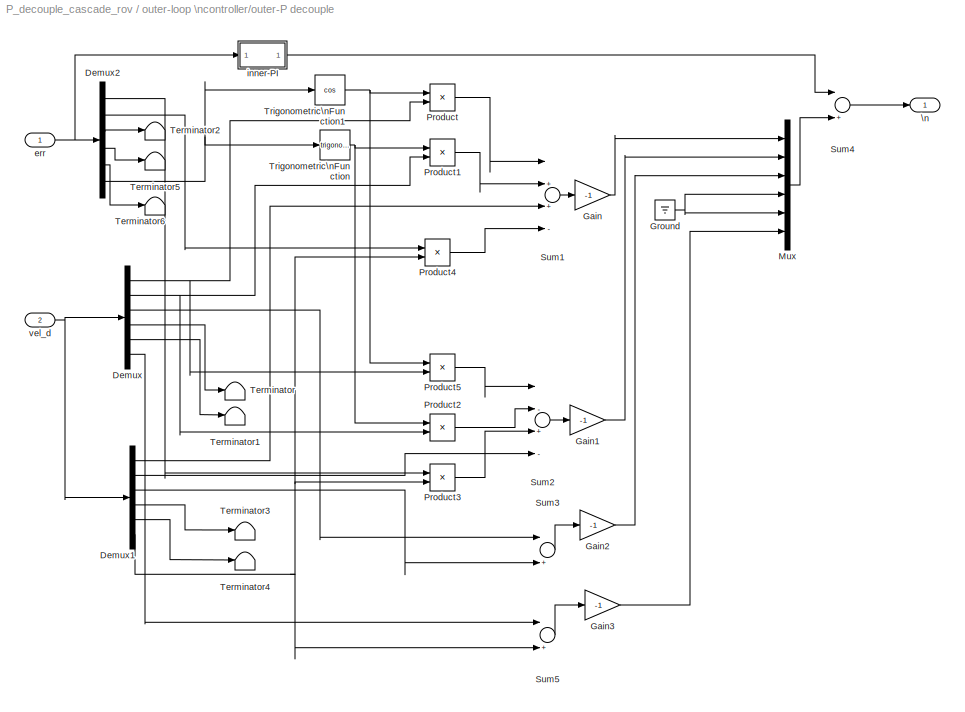
BLOCK [SubSystem] outer-loop \ncontroller/outer-P decouple 
  MinAlgLoopOccurrences = off
  Ports = [2, 1]
  RTWSystemCode = Auto
  TreatAsAtomicUnit = off
BLOCK [Demux] outer-loop \ncontroller/outer-P decouple /Demux
  DisplayOption = bar
  Outputs = 6
  Ports = [1, 6]
BLOCK [Demux] outer-loop \ncontroller/outer-P decouple /Demux1
  DisplayOption = bar
  Outputs = 6
  Ports = [1, 6]
BLOCK [Demux] outer-loop \ncontroller/outer-P decouple /Demux2
  DisplayOption = bar
  Outputs = 6
  Ports = [1, 6]
BLOCK [Gain] outer-loop \ncontroller/outer-P decouple /Gain
  Gain = -1
  OutDataTypeMode = Inherit via internal rule
  ParameterDataTypeMode = Inherit via internal rule
  SaturateOnIntegerOverflow = off
BLOCK [Gain] outer-loop \ncontroller/outer-P decouple /Gain1
  Gain = -1
  OutDataTypeMode = Inherit via internal rule
  ParameterDataTypeMode = Inherit via internal rule
  SaturateOnIntegerOverflow = off
BLOCK [Gain] outer-loop \ncontroller/outer-P decouple /Gain2
  Gain = -1
  OutDataTypeMode = Inherit via internal rule
  ParameterDataTypeMode = Inherit via internal rule
  SaturateOnIntegerOverflow = off
BLOCK [Gain] outer-loop \ncontroller/outer-P decouple /Gain3
  Gain = -1
  OutDataTypeMode = Inherit via internal rule
  ParameterDataTypeMode = Inherit via internal rule
  SaturateOnIntegerOverflow = off
BLOCK [Ground] outer-loop \ncontroller/outer-P decouple /Ground
BLOCK [Mux] outer-loop \ncontroller/outer-P decouple /Mux
  DisplayOption = bar
  Inputs = 6
  Ports = [6, 1]
BLOCK [Product] outer-loop \ncontroller/outer-P decouple /Product
  InputSameDT = off
  OutDataTypeMode = Inherit via internal rule
  Ports = [2, 1]
  SaturateOnIntegerOverflow = off
BLOCK [Product] outer-loop \ncontroller/outer-P decouple /Product1
  InputSameDT = off
  OutDataTypeMode = Inherit via internal rule
  Ports = [2, 1]
  SaturateOnIntegerOverflow = off
BLOCK [Product] outer-loop \ncontroller/outer-P decouple /Product2
  InputSameDT = off
  OutDataTypeMode = Inherit via internal rule
  Ports = [2, 1]
  SaturateOnIntegerOverflow = off
BLOCK [Product] outer-loop \ncontroller/outer-P decouple /Product3
  InputSameDT = off
  OutDataTypeMode = Inherit via internal rule
  Ports = [2, 1]
  SaturateOnIntegerOverflow = off
BLOCK [Product] outer-loop \ncontroller/outer-P decouple /Product4
  InputSameDT = off
  OutDataTypeMode = Inherit via internal rule
  Ports = [2, 1]
  SaturateOnIntegerOverflow = off
BLOCK [Product] outer-loop \ncontroller/outer-P decouple /Product5
  InputSameDT = off
  OutDataTypeMode = double
  Ports = [2, 1]
  SaturateOnIntegerOverflow = off
BLOCK [Sum] outer-loop \ncontroller/outer-P decouple /Sum1
  Inputs = |++-+
  Ports = [4, 1]
BLOCK [Sum] outer-loop \ncontroller/outer-P decouple /Sum2
  Inputs = |-+--
  Ports = [4, 1]
BLOCK [Sum] outer-loop \ncontroller/outer-P decouple /Sum3
  Inputs = |+-
  Ports = [2, 1]
BLOCK [Sum] outer-loop \ncontroller/outer-P decouple /Sum4
  Inputs = |++
  Ports = [2, 1]
BLOCK [Sum] outer-loop \ncontroller/outer-P decouple /Sum5
  Inputs = |+-
  Ports = [2, 1]
BLOCK [Terminator] outer-loop \ncontroller/outer-P decouple /Terminator
BLOCK [Terminator] outer-loop \ncontroller/outer-P decouple /Terminator1
BLOCK [Terminator] outer-loop \ncontroller/outer-P decouple /Terminator2
BLOCK [Terminator] outer-loop \ncontroller/outer-P decouple /Terminator3
BLOCK [Terminator] outer-loop \ncontroller/outer-P decouple /Terminator4
BLOCK [Terminator] outer-loop \ncontroller/outer-P decouple /Terminator5
BLOCK [Terminator] outer-loop \ncontroller/outer-P decouple /Terminator6
BLOCK [Trigonometry] outer-loop \ncontroller/outer-P decouple /Trigonometric\nFunction
  Ports = [1, 1]
BLOCK [Trigonometry] outer-loop \ncontroller/outer-P decouple /Trigonometric\nFunction1
  Operator = cos
  Ports = [1, 1]
BLOCK [Outport] outer-loop \ncontroller/outer-P decouple /\n
  BusOutputAsStruct = off
  IconDisplay = Port number
BLOCK [Inport] outer-loop \ncontroller/outer-P decouple /err
  IconDisplay = Port number
  LatchInput = off
  Port = 1
BLOCK [SubSystem] outer-loop \ncontroller/outer-P decouple /inner-PI
  MinAlgLoopOccurrences = off
  Ports = [1, 1]
  RTWSystemCode = Auto
  TreatAsAtomicUnit = off
BLOCK [Demux] outer-loop \ncontroller/outer-P decouple /inner-PI/Demux1
  Outputs = 6
  Ports = [1, 6]
BLOCK [Mux] outer-loop \ncontroller/outer-P decouple /inner-PI/Mux2
  Inputs = 6
  Ports = [6, 1]
BLOCK [Reference] outer-loop \ncontroller/outer-P decouple /inner-PI/P Controller2  REF=simulink_extras/Additional\nLinear/PID Controller
  D = 0
  I = 0
  P = 1
  Ports = [1, 1]
  ShowPortLabels = on
  SourceBlock = simulink_extras/Additional\nLinear/PID Controller
  SourceType = PID Controller
BLOCK [Reference] outer-loop \ncontroller/outer-P decouple /inner-PI/P Controller4  REF=simulink_extras/Additional\nLinear/PID Controller
  D = 0
  I = 0
  P = 1
  Ports = [1, 1]
  ShowPortLabels = on
  SourceBlock = simulink_extras/Additional\nLinear/PID Controller
  SourceType = PID Controller
BLOCK [Reference] outer-loop \ncontroller/outer-P decouple /inner-PI/PController1  REF=simulink_extras/Additional\nLinear/PID Controller
  D = 0
  I = 0
  P = 1
  Ports = [1, 1]
  ShowPortLabels = on
  SourceBlock = simulink_extras/Additional\nLinear/PID Controller
  SourceType = PID Controller
BLOCK [Inport] outer-loop \ncontroller/outer-P decouple /inner-PI/PI
  IconDisplay = Port number
  LatchInput = off
  Port = 1
BLOCK [Reference] outer-loop \ncontroller/outer-P decouple /inner-PI/PI Controller3  REF=simulink_extras/Additional\nLinear/PID Controller
  D = 0
  I = 0
  P = 1
  Ports = [1, 1]
  ShowPortLabels = on
  SourceBlock = simulink_extras/Additional\nLinear/PID Controller
  SourceType = PID Controller
BLOCK [Outport] outer-loop \ncontroller/outer-P decouple /inner-PI/\n
  BusOutputAsStruct = off
  IconDisplay = Port number
BLOCK [Inport] outer-loop \ncontroller/outer-P decouple /vel_d
  IconDisplay = Port number
  LatchInput = off
  Port = 2
BLOCK [SubSystem] outer-loop \ncontroller/outer-sliding decouple
  MinAlgLoopOccurrences = off
  Ports = [2, 1]
  RTWSystemCode = Auto
  TreatAsAtomicUnit = off
BLOCK [Demux] outer-loop \ncontroller/outer-sliding decouple/Demux
  DisplayOption = bar
  Outputs = 6
  Ports = [1, 6]
BLOCK [Demux] outer-loop \ncontroller/outer-sliding decouple/Demux1
  DisplayOption = bar
  Outputs = 6
  Ports = [1, 6]
BLOCK [Demux] outer-loop \ncontroller/outer-sliding decouple/Demux2
  DisplayOption = bar
  Outputs = 6
  Ports = [1, 6]
BLOCK [Gain] outer-loop \ncontroller/outer-sliding decouple/Gain
  Gain = -1
  OutDataTypeMode = Inherit via internal rule
  ParameterDataTypeMode = Inherit via internal rule
  SaturateOnIntegerOverflow = off
BLOCK [Gain] outer-loop \ncontroller/outer-sliding decouple/Gain1
  Gain = -1
  OutDataTypeMode = Inherit via internal rule
  ParameterDataTypeMode = Inherit via internal rule
  SaturateOnIntegerOverflow = off
BLOCK [Gain] outer-loop \ncontroller/outer-sliding decouple/Gain2
  Gain = -1
  OutDataTypeMode = Inherit via internal rule
  ParameterDataTypeMode = Inherit via internal rule
  SaturateOnIntegerOverflow = off
BLOCK [Gain] outer-loop \ncontroller/outer-sliding decouple/Gain3
  Gain = -1
  OutDataTypeMode = Inherit via internal rule
  ParameterDataTypeMode = Inherit via internal rule
  SaturateOnIntegerOverflow = off
BLOCK [Gain] outer-loop \ncontroller/outer-sliding decouple/Gain4
BLOCK [Ground] outer-loop \ncontroller/outer-sliding decouple/Ground
BLOCK [Mux] outer-loop \ncontroller/outer-sliding decouple/Mux
  DisplayOption = bar
  Inputs = 6
  Ports = [6, 1]
BLOCK [Product] outer-loop \ncontroller/outer-sliding decouple/Product
  InputSameDT = off
  OutDataTypeMode = Inherit via internal rule
  Ports = [2, 1]
  SaturateOnIntegerOverflow = off
BLOCK [Product] outer-loop \ncontroller/outer-sliding decouple/Product1
  InputSameDT = off
  OutDataTypeMode = Inherit via internal rule
  Ports = [2, 1]
  SaturateOnIntegerOverflow = off
BLOCK [Product] outer-loop \ncontroller/outer-sliding decouple/Product2
  InputSameDT = off
  OutDataTypeMode = Inherit via internal rule
  Ports = [2, 1]
  SaturateOnIntegerOverflow = off
BLOCK [Product] outer-loop \ncontroller/outer-sliding decouple/Product3
  InputSameDT = off
  OutDataTypeMode = Inherit via internal rule
  Ports = [2, 1]
  SaturateOnIntegerOverflow = off
BLOCK [Product] outer-loop \ncontroller/outer-sliding decouple/Product4
  InputSameDT = off
  OutDataTypeMode = Inherit via internal rule
  Ports = [2, 1]
  SaturateOnIntegerOverflow = off
BLOCK [Product] outer-loop \ncontroller/outer-sliding decouple/Product5
  InputSameDT = off
  OutDataTypeMode = double
  Ports = [2, 1]
  SaturateOnIntegerOverflow = off
BLOCK [Signum] outer-loop \ncontroller/outer-sliding decouple/Sign
BLOCK [SubSystem] outer-loop \ncontroller/outer-sliding decouple/Subsystem
  MinAlgLoopOccurrences = off
  Ports = [2, 1]
  RTWSystemCode = Auto
  TreatAsAtomicUnit = off
BLOCK [Product] outer-loop \ncontroller/outer-sliding decouple/Subsystem/Divide
  InputSameDT = off
  Inputs = **/
  OutDataTypeMode = Inherit via internal rule
  OutScaling = 2^-10
  Ports = [3, 1]
  RndMeth = Floor
  SaturateOnIntegerOverflow = off
BLOCK [Product] outer-loop \ncontroller/outer-sliding decouple/Subsystem/Divide1
  InputSameDT = off
  Inputs = **
  OutDataTypeMode = Inherit via internal rule
  OutScaling = 2^-10
  Ports = [2, 1]
  RndMeth = Floor
  SaturateOnIntegerOverflow = off
BLOCK [Product] outer-loop \ncontroller/outer-sliding decouple/Subsystem/Divide2
  InputSameDT = off
  Inputs = ***
  OutDataTypeMode = Inherit via internal rule
  OutScaling = 2^-10
  Ports = [3, 1]
  RndMeth = Floor
  SaturateOnIntegerOverflow = off
BLOCK [Gain] outer-loop \ncontroller/outer-sliding decouple/Subsystem/Gain
  Gain = -1
  OutDataTypeMode = Inherit via internal rule
  ParameterDataTypeMode = Inherit via internal rule
  SaturateOnIntegerOverflow = off
BLOCK [Sin] outer-loop \ncontroller/outer-sliding decouple/Subsystem/Sine Wave
  Frequency = 5
  Phase = pi/2
  Ports = [0, 1]
  SampleTime = 0
  SineType = Time based
BLOCK [Sum] outer-loop \ncontroller/outer-sliding decouple/Subsystem/Subtract
  InputSameDT = off
  Inputs = +++
  OutDataTypeMode = Inherit via internal rule
  OutScaling = 2^-10
  Ports = [3, 1]
  SaturateOnIntegerOverflow = off
BLOCK [Sum] outer-loop \ncontroller/outer-sliding decouple/Subsystem/Subtract1
  InputSameDT = off
  OutDataTypeMode = Inherit via internal rule
  OutScaling = 2^-10
  Ports = [2, 1]
  SaturateOnIntegerOverflow = off
BLOCK [Trigonometry] outer-loop \ncontroller/outer-sliding decouple/Subsystem/Trigonometric\nFunction
  Operator = asin
  Ports = [1, 1]
BLOCK [Constant] outer-loop \ncontroller/outer-sliding decouple/Subsystem/lamda 0
  Value = 0.1
BLOCK [Constant] outer-loop \ncontroller/outer-sliding decouple/Subsystem/lamda 1
  Value = 0.3
BLOCK [Constant] outer-loop \ncontroller/outer-sliding decouple/Subsystem/lamda 2
  Value = 0.5
BLOCK [Math] outer-loop \ncontroller/outer-sliding decouple/Subsystem/lamda0^2
  Operator = square
  Ports = [1, 1]
BLOCK [Constant] outer-loop \ncontroller/outer-sliding decouple/Subsystem/ud
  Value = 0.5
BLOCK [Inport] outer-loop \ncontroller/outer-sliding decouple/Subsystem/xe
  IconDisplay = Port number
  LatchInput = off
  Port = 1
BLOCK [Math] outer-loop \ncontroller/outer-sliding decouple/Subsystem/xe^2
  Operator = square
  Ports = [1, 1]
BLOCK [Outport] outer-loop \ncontroller/outer-sliding decouple/Subsystem/yaw_angle
  BusOutputAsStruct = off
  IconDisplay = Port number
BLOCK [Inport] outer-loop \ncontroller/outer-sliding decouple/Subsystem/ye
  IconDisplay = Port number
  LatchInput = off
  Port = 2
BLOCK [Math] outer-loop \ncontroller/outer-sliding decouple/Subsystem/ye^2
  Operator = square
  Ports = [1, 1]
BLOCK [Sum] outer-loop \ncontroller/outer-sliding decouple/Sum1
  Inputs = |-++-+
  Ports = [5, 1]
BLOCK [Sum] outer-loop \ncontroller/outer-sliding decouple/Sum2
  Inputs = |--+--
  Ports = [5, 1]
BLOCK [Sum] outer-loop \ncontroller/outer-sliding decouple/Sum3
  Inputs = |-+-
  Ports = [3, 1]
BLOCK [Sum] outer-loop \ncontroller/outer-sliding decouple/Sum4
  Inputs = |++
  Ports = [2, 1]
BLOCK [Sum] outer-loop \ncontroller/outer-sliding decouple/Sum5
  Inputs = |-+-
  Ports = [3, 1]
BLOCK [Terminator] outer-loop \ncontroller/outer-sliding decouple/Terminator
BLOCK [Terminator] outer-loop \ncontroller/outer-sliding decouple/Terminator1
BLOCK [Terminator] outer-loop \ncontroller/outer-sliding decouple/Terminator3
BLOCK [Terminator] outer-loop \ncontroller/outer-sliding decouple/Terminator4
BLOCK [Trigonometry] outer-loop \ncontroller/outer-sliding decouple/Trigonometric\nFunction
  Ports = [1, 1]
BLOCK [Trigonometry] outer-loop \ncontroller/outer-sliding decouple/Trigonometric\nFunction1
  Operator = cos
  Ports = [1, 1]
BLOCK [Outport] outer-loop \ncontroller/outer-sliding decouple/\n
  BusOutputAsStruct = off
  IconDisplay = Port number
BLOCK [Inport] outer-loop \ncontroller/outer-sliding decouple/err
  IconDisplay = Port number
  LatchInput = off
  Port = 1
BLOCK [Inport] outer-loop \ncontroller/outer-sliding decouple/vel_d
  IconDisplay = Port number
  LatchInput = off
  Port = 2
BLOCK [ToWorkspace] output body vel9
  MaxDataPoints = inf
  SampleTime = 1
  SaveFormat = Structure With Time
  VariableName = plane
BLOCK [SubSystem] pipeline  tracking\nplanner\n 
  AncestorBlock = rov_design_analysis/ROV Controller\nDesign\nApplications/1. Heading autopilot/pipe tracking\nprofile\n(Auto)
  MaskDisplay = disp('Pipeline Tracking \\n Planner')
  MaskIconFrame = on
  MaskIconOpaque = on
  MaskIconRotate = none
  MaskIconUnits = autoscale
  MinAlgLoopOccurrences = off
  Ports = [1, 1]
  RTWSystemCode = Auto
  TreatAsAtomicUnit = off
BLOCK [SubSystem] pipeline  tracking\nplanner\n /decoupled input
  MinAlgLoopOccurrences = off
  Ports = [1, 1]
  RTWSystemCode = Auto
  TreatAsAtomicUnit = off
BLOCK [Inport] pipeline  tracking\nplanner\n /decoupled input/In1
  IconDisplay = Port number
  LatchInput = off
  Port = 1
BLOCK [Outport] pipeline  tracking\nplanner\n /decoupled input/Out1
  BusOutputAsStruct = off
  IconDisplay = Port number
BLOCK [MultiPortSwitch] pipeline  tracking\nplanner\n /decoupled input/relative pt
  InputSameDT = off
  Inputs = 8
  Ports = [9, 1]
  SaturateOnIntegerOverflow = off
BLOCK [SubSystem] pipeline  tracking\nplanner\n /decoupled input/x25, y=0, z=50 yaw=1.57
  MinAlgLoopOccurrences = off
  Ports = [0, 1]
  RTWSystemCode = Auto
  TreatAsAtomicUnit = off
BLOCK [Outport] pipeline  tracking\nplanner\n /decoupled input/x25, y=0, z=50 yaw=1.57/6
  BusOutputAsStruct = off
  IconDisplay = Port number
BLOCK [Mux] pipeline  tracking\nplanner\n /decoupled input/x25, y=0, z=50 yaw=1.57/Mux
  DisplayOption = bar
  Inputs = 6
  Ports = [6, 1]
BLOCK [Constant] pipeline  tracking\nplanner\n /decoupled input/x25, y=0, z=50 yaw=1.57/Start
  Value = 15
BLOCK [Constant] pipeline  tracking\nplanner\n /decoupled input/x25, y=0, z=50 yaw=1.57/Start1
  Value = 25
BLOCK [Constant] pipeline  tracking\nplanner\n /decoupled input/x25, y=0, z=50 yaw=1.57/Start2
  Value = 1.57
BLOCK [SubSystem] pipeline  tracking\nplanner\n /decoupled input/x=0,y=0, z=0 yaw=0  
  MinAlgLoopOccurrences = off
  Ports = [0, 1]
  RTWSystemCode = Auto
  TreatAsAtomicUnit = off
BLOCK [Outport] pipeline  tracking\nplanner\n /decoupled input/x=0,y=0, z=0 yaw=0  /8
  BusOutputAsStruct = off
  IconDisplay = Port number
BLOCK [Mux] pipeline  tracking\nplanner\n /decoupled input/x=0,y=0, z=0 yaw=0  /Mux
  DisplayOption = bar
  Inputs = 6
  Ports = [6, 1]
BLOCK [Constant] pipeline  tracking\nplanner\n /decoupled input/x=0,y=0, z=0 yaw=0  /Start
  Value = 0
BLOCK [Constant] pipeline  tracking\nplanner\n /decoupled input/x=0,y=0, z=0 yaw=0  /Start1
  Value = 0
BLOCK [SubSystem] pipeline  tracking\nplanner\n /decoupled input/x=15,y=0, z=45 yaw=0 
  MinAlgLoopOccurrences = off
  Ports = [0, 1]
  RTWSystemCode = Auto
  TreatAsAtomicUnit = off
BLOCK [Outport] pipeline  tracking\nplanner\n /decoupled input/x=15,y=0, z=45 yaw=0 /3
  BusOutputAsStruct = off
  IconDisplay = Port number
BLOCK [Mux] pipeline  tracking\nplanner\n /decoupled input/x=15,y=0, z=45 yaw=0 /Mux
  DisplayOption = bar
  Inputs = 6
  Ports = [6, 1]
BLOCK [Constant] pipeline  tracking\nplanner\n /decoupled input/x=15,y=0, z=45 yaw=0 /Start1
  Value = 15
BLOCK [Constant] pipeline  tracking\nplanner\n /decoupled input/x=15,y=0, z=45 yaw=0 /Start2
  Value = 10
BLOCK [Constant] pipeline  tracking\nplanner\n /decoupled input/x=15,y=0, z=45 yaw=0 /Start3
  Value = 0
BLOCK [Constant] pipeline  tracking\nplanner\n /decoupled input/x=15,y=0, z=45 yaw=0 /Start4
  Value = 0
BLOCK [SubSystem] pipeline  tracking\nplanner\n /decoupled input/x=25, z=45 yaw=0
  MinAlgLoopOccurrences = off
  Ports = [0, 1]
  RTWSystemCode = Auto
  TreatAsAtomicUnit = off
BLOCK [Outport] pipeline  tracking\nplanner\n /decoupled input/x=25, z=45 yaw=0/4
  BusOutputAsStruct = off
  IconDisplay = Port number
BLOCK [Mux] pipeline  tracking\nplanner\n /decoupled input/x=25, z=45 yaw=0/Mux
  DisplayOption = bar
  Inputs = 6
  Ports = [6, 1]
BLOCK [Constant] pipeline  tracking\nplanner\n /decoupled input/x=25, z=45 yaw=0/Start
  Value = 10
BLOCK [Constant] pipeline  tracking\nplanner\n /decoupled input/x=25, z=45 yaw=0/Start1
  Value = 25
BLOCK [Constant] pipeline  tracking\nplanner\n /decoupled input/x=25, z=45 yaw=0/Start2
  Value = 0
BLOCK [SubSystem] pipeline  tracking\nplanner\n /decoupled input/x=25,y=0, z=50 yaw=0
  MinAlgLoopOccurrences = off
  Ports = [0, 1]
  RTWSystemCode = Auto
  TreatAsAtomicUnit = off
BLOCK [Outport] pipeline  tracking\nplanner\n /decoupled input/x=25,y=0, z=50 yaw=0/5
  BusOutputAsStruct = off
  IconDisplay = Port number
BLOCK [Mux] pipeline  tracking\nplanner\n /decoupled input/x=25,y=0, z=50 yaw=0/Mux
  DisplayOption = bar
  Inputs = 6
  Ports = [6, 1]
BLOCK [Constant] pipeline  tracking\nplanner\n /decoupled input/x=25,y=0, z=50 yaw=0/Start
  Value = 0
BLOCK [Constant] pipeline  tracking\nplanner\n /decoupled input/x=25,y=0, z=50 yaw=0/Start1
  Value = 25
BLOCK [Constant] pipeline  tracking\nplanner\n /decoupled input/x=25,y=0, z=50 yaw=0/Start2
  Value = 15
BLOCK [SubSystem] pipeline  tracking\nplanner\n /decoupled input/x=25,y=40, z=50 yaw=0
  MinAlgLoopOccurrences = off
  Ports = [0, 1]
  RTWSystemCode = Auto
  TreatAsAtomicUnit = off
BLOCK [Outport] pipeline  tracking\nplanner\n /decoupled input/x=25,y=40, z=50 yaw=0/7
  BusOutputAsStruct = off
  IconDisplay = Port number
BLOCK [Mux] pipeline  tracking\nplanner\n /decoupled input/x=25,y=40, z=50 yaw=0/Mux
  DisplayOption = bar
  Inputs = 6
  Ports = [6, 1]
BLOCK [Constant] pipeline  tracking\nplanner\n /decoupled input/x=25,y=40, z=50 yaw=0/Start
  Value = 0
BLOCK [Constant] pipeline  tracking\nplanner\n /decoupled input/x=25,y=40, z=50 yaw=0/Start1
  Value = 25
BLOCK [Constant] pipeline  tracking\nplanner\n /decoupled input/x=25,y=40, z=50 yaw=0/Start2
  Value = 15
BLOCK [Constant] pipeline  tracking\nplanner\n /decoupled input/x=25,y=40, z=50 yaw=0/Start3
  Value = 15
BLOCK [SubSystem] pipeline  tracking\nplanner\n /decoupled input/x=y=0, z=-50 yaw=0  
  MinAlgLoopOccurrences = off
  Ports = [0, 1]
  RTWSystemCode = Auto
  TreatAsAtomicUnit = off
BLOCK [Outport] pipeline  tracking\nplanner\n /decoupled input/x=y=0, z=-50 yaw=0  /1 
  BusOutputAsStruct = off
  IconDisplay = Port number
BLOCK [Mux] pipeline  tracking\nplanner\n /decoupled input/x=y=0, z=-50 yaw=0  /Mux
  DisplayOption = bar
  Inputs = 6
  Ports = [6, 1]
BLOCK [Constant] pipeline  tracking\nplanner\n /decoupled input/x=y=0, z=-50 yaw=0  /Start
  Value = 15
BLOCK [Constant] pipeline  tracking\nplanner\n /decoupled input/x=y=0, z=-50 yaw=0  /Start1
  Value = 0
BLOCK [Constant] pipeline  tracking\nplanner\n /decoupled input/x=y=0, z=-50 yaw=0  /Start2
  Value = 0
BLOCK [SubSystem] pipeline  tracking\nplanner\n /decoupled input/x=y=15, z=50 yaw=0 
  MinAlgLoopOccurrences = off
  Ports = [0, 1]
  RTWSystemCode = Auto
  TreatAsAtomicUnit = off
BLOCK [Outport] pipeline  tracking\nplanner\n /decoupled input/x=y=15, z=50 yaw=0 /2
  BusOutputAsStruct = off
  IconDisplay = Port number
BLOCK [Mux] pipeline  tracking\nplanner\n /decoupled input/x=y=15, z=50 yaw=0 /Mux
  DisplayOption = bar
  Inputs = 6
  Ports = [6, 1]
BLOCK [Constant] pipeline  tracking\nplanner\n /decoupled input/x=y=15, z=50 yaw=0 /Start
  Value = 0
BLOCK [Constant] pipeline  tracking\nplanner\n /decoupled input/x=y=15, z=50 yaw=0 /Start1
  Value = 15
BLOCK [Constant] pipeline  tracking\nplanner\n /decoupled input/x=y=15, z=50 yaw=0 /Start2
  Value = 15
BLOCK [Inport] pipeline  tracking\nplanner\n /in
  IconDisplay = Port number
  LatchInput = off
  Port = 1
BLOCK [Outport] pipeline  tracking\nplanner\n /pipeline
  BusOutputAsStruct = off
  IconDisplay = Port number
BLOCK [SubSystem] show
  AncestorBlock = rov_design_analysis/ROV Controller\nDesign\nApplications/ Load RRCROV2 parameters
  MaskDisplay = disp('Double-click \\n to \\n SHOW\\n RRCROV\\n parameters')
  MaskIconFrame = on
  MaskIconOpaque = on
  MaskIconRotate = none
  MaskIconUnits = autoscale
  MinAlgLoopOccurrences = off
  OpenFcn = clc                                                \ncd  <path> ;\nopen rrcrov2_para
  Ports = []
  RTWSystemCode = Auto
  TreatAsAtomicUnit = off
BLOCK [ToWorkspace] time
  MaxDataPoints = inf
  SampleTime = 1
  SaveFormat = Array
  VariableName = t
ANNOTATION  ROV Dynamic   /upper limit (diag)   : 1 2 3 4 5 6
ANNOTATION  ROV Dynamic   /upper limit (diag)   : 7 8 9 10 11 12
ANNOTATION  ROV Dynamic   /upper limit (diag)   1: 1 2 3 4 5 6
ANNOTATION  ROV Dynamic   /upper limit (diag)   1: 7 8 9 10 11 12
ANNOTATION (Observer/ Six DOF RRC ROV   1/upper limit (diag)   : 1 2 3 4 5 6
ANNOTATION (Observer/ Six DOF RRC ROV   1/upper limit (diag)   : 7 8 9 10 11 12
ANNOTATION (Observer/ Six DOF RRC ROV   1/upper limit (diag)   1: 1 2 3 4 5 6
ANNOTATION (Observer/ Six DOF RRC ROV   1/upper limit (diag)   1: 7 8 9 10 11 12
ANNOTATION (Observer/Thruster\n Dynamic/thruster \ndynamic     1/thruster \nalloc. /thruster \nallocation control1/thruster allocation\n: vel to volt
ANNOTATION (Observer/inner-loop\ncontroller1/inner -PI-decouple /thruster \ndynamic     1/thruster \nalloc. /thruster \nallocation control1/thruster allocation\n: vel to volt
ANNOTATION (Observer/inner-loop\ncontroller1/inner -PI-decouple /upper limit (diag)   : 1 2 3 4 5 6
ANNOTATION (Observer/inner-loop\ncontroller1/inner -PI-decouple /upper limit (diag)   : 7 8 9 10 11 12
ANNOTATION (Observer/inner-loop\ncontroller1/inner -PI-decouple /upper limit (diag)   1: 1 2 3 4 5 6
ANNOTATION (Observer/inner-loop\ncontroller1/inner -PI-decouple /upper limit (diag)   1: 7 8 9 10 11 12
ANNOTATION (Observer/inner-loop\ncontroller1/inner -backstepping/thruster \ndynamic     1/thruster \nalloc. /thruster \nallocation control1/thruster allocation\n: vel to volt
ANNOTATION (Observer/inner-loop\ncontroller1/inner -backstepping/upper limit (diag)   : 1 2 3 4 5 6
ANNOTATION (Observer/inner-loop\ncontroller1/inner -backstepping/upper limit (diag)   : 7 8 9 10 11 12
ANNOTATION (Observer/inner-loop\ncontroller1/inner -backstepping/upper limit (diag)   1: 1 2 3 4 5 6
ANNOTATION (Observer/inner-loop\ncontroller1/inner -backstepping/upper limit (diag)   1: 7 8 9 10 11 12
ANNOTATION (Observer/inner-loop\ncontroller1/inner-P/thruster \ndynamic     1/thruster \nalloc. /thruster \nallocation control1/thruster allocation\n: vel to volt
ANNOTATION (Observer/inner-loop\ncontroller1/inner-sliding/thruster \ndynamic     1/thruster \nalloc. /thruster \nallocation control1/thruster allocation\n: vel to volt
ANNOTATION Thruster\n Dynamic/thruster \ndynamic     1/thruster \nalloc. /thruster \nallocation control1/thruster allocation\n: vel to volt
ANNOTATION inner-loop\ncontroller/inner -PI-decouple /thruster \ndynamic     1/thruster \nalloc. /thruster \nallocation control1/thruster allocation\n: vel to volt
ANNOTATION inner-loop\ncontroller/inner -PI-decouple /upper limit (diag)   : 1 2 3 4 5 6
ANNOTATION inner-loop\ncontroller/inner -PI-decouple /upper limit (diag)   : 7 8 9 10 11 12
ANNOTATION inner-loop\ncontroller/inner -PI-decouple /upper limit (diag)   1: 1 2 3 4 5 6
ANNOTATION inner-loop\ncontroller/inner -PI-decouple /upper limit (diag)   1: 7 8 9 10 11 12
ANNOTATION inner-loop\ncontroller/inner -backstepping/thruster \ndynamic     1/thruster \nalloc. /thruster \nallocation control1/thruster allocation\n: vel to volt
ANNOTATION inner-loop\ncontroller/inner -backstepping/upper limit (diag)   : 1 2 3 4 5 6
ANNOTATION inner-loop\ncontroller/inner -backstepping/upper limit (diag)   : 7 8 9 10 11 12
ANNOTATION inner-loop\ncontroller/inner -backstepping/upper limit (diag)   1: 1 2 3 4 5 6
ANNOTATION inner-loop\ncontroller/inner -backstepping/upper limit (diag)   1: 7 8 9 10 11 12
ANNOTATION inner-loop\ncontroller/inner-P/thruster \ndynamic     1/thruster \nalloc. /thruster \nallocation control1/thruster allocation\n: vel to volt
ANNOTATION inner-loop\ncontroller/inner-sliding/thruster \ndynamic     1/thruster \nalloc. /thruster \nallocation control1/thruster allocation\n: vel to volt
LINE  ROV Dynamic   /Centripetal & Coriolis/Demux:1 ->  ROV Dynamic   /Centripetal & Coriolis/Product5:2
NET  ROV Dynamic   /Centripetal & Coriolis/Demux:2 ->  ROV Dynamic   /Centripetal & Coriolis/Product1:1,  ROV Dynamic   /Centripetal & Coriolis/Product3:1,  ROV Dynamic   /Centripetal & Coriolis/Product4:1,  ROV Dynamic   /Centripetal & Coriolis/Product5:1,  ROV Dynamic   /Centripetal & Coriolis/inertia(3x3):1
LINE  ROV Dynamic   /Centripetal & Coriolis/Mux:1 ->  ROV Dynamic   /Centripetal & Coriolis/force:1
LINE  ROV Dynamic   /Centripetal & Coriolis/Product1:1 ->  ROV Dynamic   /Centripetal & Coriolis/Sum:2
LINE  ROV Dynamic   /Centripetal & Coriolis/Product2:1 ->  ROV Dynamic   /Centripetal & Coriolis/Sum:1
LINE  ROV Dynamic   /Centripetal & Coriolis/Product3:1 ->  ROV Dynamic   /Centripetal & Coriolis/Product4:2
LINE  ROV Dynamic   /Centripetal & Coriolis/Product4:1 ->  ROV Dynamic   /Centripetal & Coriolis/Sum1:1
NET  ROV Dynamic   /Centripetal & Coriolis/Product5:1 ->  ROV Dynamic   /Centripetal & Coriolis/Product2:2,  ROV Dynamic   /Centripetal & Coriolis/Sum1:2
NET  ROV Dynamic   /Centripetal & Coriolis/Rg:1 ->  ROV Dynamic   /Centripetal & Coriolis/Product3:2,  ROV Dynamic   /Centripetal & Coriolis/mass(3x3)\n  :1
LINE  ROV Dynamic   /Centripetal & Coriolis/Sum1:1 ->  ROV Dynamic   /Centripetal & Coriolis/mass(3x3)\n:1
LINE  ROV Dynamic   /Centripetal & Coriolis/Sum:1 ->  ROV Dynamic   /Centripetal & Coriolis/Mux:2
LINE  ROV Dynamic   /Centripetal & Coriolis/inertia(3x3):1 ->  ROV Dynamic   /Centripetal & Coriolis/Product1:2
LINE  ROV Dynamic   /Centripetal & Coriolis/mass(3x3)\n  :1 ->  ROV Dynamic   /Centripetal & Coriolis/Product2:1
LINE  ROV Dynamic   /Centripetal & Coriolis/mass(3x3)\n:1 ->  ROV Dynamic   /Centripetal & Coriolis/Mux:1
LINE  ROV Dynamic   /Centripetal & Coriolis/vel:1 ->  ROV Dynamic   /Centripetal & Coriolis/Demux:1
LINE  ROV Dynamic   /Centripetal & Coriolis:1 ->  ROV Dynamic   /Sum5:2
NET  ROV Dynamic   /D_selector:1 ->  ROV Dynamic   /Multiport\nSwitch    :1,  ROV Dynamic   /Multiport\nSwitch  :1,  ROV Dynamic   /Multiport\nSwitch:1
LINE  ROV Dynamic   /Hydrodynamic \nDamping/D linear:1 ->  ROV Dynamic   /Hydrodynamic \nDamping/damping force:1
LINE  ROV Dynamic   /Hydrodynamic \nDamping/vel:1 ->  ROV Dynamic   /Hydrodynamic \nDamping/D linear:1
LINE  ROV Dynamic   /Hydrodynamic \nDamping1/D quadratic:1 ->  ROV Dynamic   /Hydrodynamic \nDamping1/damping force:1
LINE  ROV Dynamic   /Hydrodynamic \nDamping1/Product:1 ->  ROV Dynamic   /Hydrodynamic \nDamping1/D quadratic:1
NET  ROV Dynamic   /Hydrodynamic \nDamping1/vel:1 ->  ROV Dynamic   /Hydrodynamic \nDamping1/Product:1,  ROV Dynamic   /Hydrodynamic \nDamping1/|u|:1
LINE  ROV Dynamic   /Hydrodynamic \nDamping1/|u|:1 ->  ROV Dynamic   /Hydrodynamic \nDamping1/Product:2
NET  ROV Dynamic   /Hydrodynamic \nDamping1:1 ->  ROV Dynamic   /Multiport\nSwitch    :3,  ROV Dynamic   /output body vel3:1
LINE  ROV Dynamic   /Hydrodynamic \nDamping2/D quadratic:1 ->  ROV Dynamic   /Hydrodynamic \nDamping2/damping force:1
LINE  ROV Dynamic   /Hydrodynamic \nDamping2/vel:1 ->  ROV Dynamic   /Hydrodynamic \nDamping2/D quadratic:1
LINE  ROV Dynamic   /Hydrodynamic \nDamping2:1 ->  ROV Dynamic   /Multiport\nSwitch    :2
LINE  ROV Dynamic   /Hydrodynamic \nDamping:1 ->  ROV Dynamic   /Sum3:1
NET  ROV Dynamic   /Integrator1:1 ->  ROV Dynamic   /Centripetal & Coriolis:1,  ROV Dynamic   /Hydrodynamic \nDamping1:1,  ROV Dynamic   /Hydrodynamic \nDamping2:1,  ROV Dynamic   /pert1:1,  ROV Dynamic   /pert2:1,  ROV Dynamic   /upper limit (diag)   1:1,  ROV Dynamic   /vel:1
LINE  ROV Dynamic   /K02:1 ->  ROV Dynamic   /Sum4:1
LINE  ROV Dynamic   /Mass Inertia Matrix/In:1 ->  ROV Dynamic   /Mass Inertia Matrix/inverse M:1
LINE  ROV Dynamic   /Mass Inertia Matrix/inverse M:1 ->  ROV Dynamic   /Mass Inertia Matrix/Out:1
LINE  ROV Dynamic   /Mass Inertia Matrix:1 ->  ROV Dynamic   /Sum2:2
LINE  ROV Dynamic   /Multiport\nSwitch    :1 ->  ROV Dynamic   /Sum3:2
LINE  ROV Dynamic   /Multiport\nSwitch  :1 ->  ROV Dynamic   /Sum1:5
LINE  ROV Dynamic   /Multiport\nSwitch:1 ->  ROV Dynamic   /Sum2:1
LINE  ROV Dynamic   /Restoring Forces/(xg.W-xb.B)cY.cX:1 ->  ROV Dynamic   /Restoring Forces/Sum1:1
LINE  ROV Dynamic   /Restoring Forces/(zg.W - zb.B)cY.sX:1 ->  ROV Dynamic   /Restoring Forces/Sum:1
LINE  ROV Dynamic   /Restoring Forces/(zg.W - zb.B)sY:1 ->  ROV Dynamic   /Restoring Forces/Sum1:2
LINE  ROV Dynamic   /Restoring Forces/-(xg.W-xb.B)cY.sX:1 ->  ROV Dynamic   /Restoring Forces/Sum2:2
LINE  ROV Dynamic   /Restoring Forces/-(yg.W-yb.B)cY.cX:1 ->  ROV Dynamic   /Restoring Forces/Sum:2
LINE  ROV Dynamic   /Restoring Forces/-(yg.W-yb.B)sY:1 ->  ROV Dynamic   /Restoring Forces/Sum2:1
LINE  ROV Dynamic   /Restoring Forces/-cY.cX:1 ->  ROV Dynamic   /Restoring Forces/Mux:3
LINE  ROV Dynamic   /Restoring Forces/-cY.sX:1 ->  ROV Dynamic   /Restoring Forces/Mux:2
LINE  ROV Dynamic   /Restoring Forces/Demux:1 ->  ROV Dynamic   /Restoring Forces/Terminator:1
NET  ROV Dynamic   /Restoring Forces/Demux:2 ->  ROV Dynamic   /Restoring Forces/(xg.W-xb.B)cY.cX:1,  ROV Dynamic   /Restoring Forces/(zg.W - zb.B)cY.sX:1,  ROV Dynamic   /Restoring Forces/(zg.W - zb.B)sY:1,  ROV Dynamic   /Restoring Forces/-(xg.W-xb.B)cY.sX:1,  ROV Dynamic   /Restoring Forces/-(yg.W-yb.B)cY.cX:1,  ROV Dynamic   /Restoring Forces/-(yg.W-yb.B)sY:1,  ROV Dynamic   /Restoring Forces/-cY.cX:1,  ROV Dynamic   /Restoring Forces/-cY.sX:1,  ROV Dynamic   /Restoring Forces/sY:1
LINE  ROV Dynamic   /Restoring Forces/Gain:1 ->  ROV Dynamic   /Restoring Forces/Mux1:1
LINE  ROV Dynamic   /Restoring Forces/Mux1:1 ->  ROV Dynamic   /Restoring Forces/gravitational\nforce:1
LINE  ROV Dynamic   /Restoring Forces/Mux:1 ->  ROV Dynamic   /Restoring Forces/Gain:1
LINE  ROV Dynamic   /Restoring Forces/Sum1:1 ->  ROV Dynamic   /Restoring Forces/Mux1:3
LINE  ROV Dynamic   /Restoring Forces/Sum2:1 ->  ROV Dynamic   /Restoring Forces/Mux1:4
LINE  ROV Dynamic   /Restoring Forces/Sum:1 ->  ROV Dynamic   /Restoring Forces/Mux1:2
LINE  ROV Dynamic   /Restoring Forces/pos:1 ->  ROV Dynamic   /Restoring Forces/Demux:1
LINE  ROV Dynamic   /Restoring Forces/sY:1 ->  ROV Dynamic   /Restoring Forces/Mux:1
LINE  ROV Dynamic   /Restoring Forces:1 ->  ROV Dynamic   /Sum1:3
NET  ROV Dynamic   /Sum1:1 ->  ROV Dynamic   /Mass Inertia Matrix:1,  ROV Dynamic   /lower limit (diag):1,  ROV Dynamic   /upper limit (diag):1,  ROV Dynamic   /upper limit1:1
NET  ROV Dynamic   /Sum2:1 ->  ROV Dynamic   /Integrator1:1,  ROV Dynamic   /output body vel1:1
LINE  ROV Dynamic   /Sum3:1 ->  ROV Dynamic   /Sum1:4
LINE  ROV Dynamic   /Sum4:1 ->  ROV Dynamic   /Sum1:1
LINE  ROV Dynamic   /Sum5:1 ->  ROV Dynamic   /Multiport\nSwitch  :2
LINE  ROV Dynamic   /lower limit (diag)/In:1 ->  ROV Dynamic   /lower limit (diag)/inverse M:1
LINE  ROV Dynamic   /lower limit (diag)/inverse M:1 ->  ROV Dynamic   /lower limit (diag)/Out:1
LINE  ROV Dynamic   /lower limit (diag):1 ->  ROV Dynamic   /Multiport\nSwitch:4
NET  ROV Dynamic   /pert-input\n0-off\n1- on:1 ->  ROV Dynamic   /pert1:2,  ROV Dynamic   /pert2:2,  ROV Dynamic   /pert:2
LINE  ROV Dynamic   /pert/D linear3:1 ->  ROV Dynamic   /pert/Sum6:1
LINE  ROV Dynamic   /pert/In:1 ->  ROV Dynamic   /pert/D linear3:1
LINE  ROV Dynamic   /pert/Product:1 ->  ROV Dynamic   /pert/Sum6:2
LINE  ROV Dynamic   /pert/Sine Wave-pert:1 ->  ROV Dynamic   /pert/Product:1
LINE  ROV Dynamic   /pert/Sum6:1 ->  ROV Dynamic   /pert/on//off:1
LINE  ROV Dynamic   /pert/inp:1 ->  ROV Dynamic   /pert/Product:2
LINE  ROV Dynamic   /pert1/D linear3:1 ->  ROV Dynamic   /pert1/Sum6:1
LINE  ROV Dynamic   /pert1/In:1 ->  ROV Dynamic   /pert1/D linear3:1
LINE  ROV Dynamic   /pert1/Product:1 ->  ROV Dynamic   /pert1/Sum6:2
LINE  ROV Dynamic   /pert1/Sine Wave-pert:1 ->  ROV Dynamic   /pert1/Product:1
LINE  ROV Dynamic   /pert1/Sum6:1 ->  ROV Dynamic   /pert1/on//off:1
LINE  ROV Dynamic   /pert1/inp:1 ->  ROV Dynamic   /pert1/Product:2
LINE  ROV Dynamic   /pert1:1 ->  ROV Dynamic   /upper limit (diag)   :1
LINE  ROV Dynamic   /pert2/D linear3:1 ->  ROV Dynamic   /pert2/Sum6:1
LINE  ROV Dynamic   /pert2/In:1 ->  ROV Dynamic   /pert2/D linear3:1
LINE  ROV Dynamic   /pert2/Product:1 ->  ROV Dynamic   /pert2/Sum6:2
LINE  ROV Dynamic   /pert2/Sine Wave-pert:1 ->  ROV Dynamic   /pert2/Product:1
LINE  ROV Dynamic   /pert2/Sum6:1 ->  ROV Dynamic   /pert2/on//off:1
LINE  ROV Dynamic   /pert2/inp:1 ->  ROV Dynamic   /pert2/Product:2
LINE  ROV Dynamic   /pert2:1 ->  ROV Dynamic   /Hydrodynamic \nDamping:1
LINE  ROV Dynamic   /pert:1 ->  ROV Dynamic   /Multiport\nSwitch:3
LINE  ROV Dynamic   /pos :1 ->  ROV Dynamic   /Restoring Forces:1
LINE  ROV Dynamic   /thrust :1 ->  ROV Dynamic   /Sum1:2
LINE  ROV Dynamic   /ubar_i:1 ->  ROV Dynamic   /Sum4:2
LINE  ROV Dynamic   /upper limit (diag)   /(zg.W - zb.B)cY.sX1:1 ->  ROV Dynamic   /upper limit (diag)   /Mux1:2
LINE  ROV Dynamic   /upper limit (diag)   /(zg.W - zb.B)cY.sX2:1 ->  ROV Dynamic   /upper limit (diag)   /Mux1:3
LINE  ROV Dynamic   /upper limit (diag)   /(zg.W - zb.B)cY.sX3:1 ->  ROV Dynamic   /upper limit (diag)   /Mux1:4
LINE  ROV Dynamic   /upper limit (diag)   /(zg.W - zb.B)cY.sX4:1 ->  ROV Dynamic   /upper limit (diag)   /Mux1:5
LINE  ROV Dynamic   /upper limit (diag)   /(zg.W - zb.B)cY.sX5:1 ->  ROV Dynamic   /upper limit (diag)   /Mux1:6
LINE  ROV Dynamic   /upper limit (diag)   /(zg.W - zb.B)cY.sX:1 ->  ROV Dynamic   /upper limit (diag)   /Mux1:1
LINE  ROV Dynamic   /upper limit (diag)   /Mux1:1 ->  ROV Dynamic   /upper limit (diag)   /force:1
NET  ROV Dynamic   /upper limit (diag)   /Mux3:1 ->  ROV Dynamic   /upper limit (diag)   /(zg.W - zb.B)cY.sX1:1,  ROV Dynamic   /upper limit (diag)   /(zg.W - zb.B)cY.sX2:1,  ROV Dynamic   /upper limit (diag)   /(zg.W - zb.B)cY.sX3:1,  ROV Dynamic   /upper limit (diag)   /(zg.W - zb.B)cY.sX4:1,  ROV Dynamic   /upper limit (diag)   /(zg.W - zb.B)cY.sX5:1,  ROV Dynamic   /upper limit (diag)   /(zg.W - zb.B)cY.sX:1
LINE  ROV Dynamic   /upper limit (diag)   /Rg1:1 ->  ROV Dynamic   /upper limit (diag)   /Mux3:2
LINE  ROV Dynamic   /upper limit (diag)   /vel:1 ->  ROV Dynamic   /upper limit (diag)   /Mux3:1
LINE  ROV Dynamic   /upper limit (diag)   1/(zg.W - zb.B)cY.sX1:1 ->  ROV Dynamic   /upper limit (diag)   1/Mux1:2
LINE  ROV Dynamic   /upper limit (diag)   1/(zg.W - zb.B)cY.sX2:1 ->  ROV Dynamic   /upper limit (diag)   1/Mux1:3
LINE  ROV Dynamic   /upper limit (diag)   1/(zg.W - zb.B)cY.sX3:1 ->  ROV Dynamic   /upper limit (diag)   1/Mux1:4
LINE  ROV Dynamic   /upper limit (diag)   1/(zg.W - zb.B)cY.sX4:1 ->  ROV Dynamic   /upper limit (diag)   1/Mux1:5
LINE  ROV Dynamic   /upper limit (diag)   1/(zg.W - zb.B)cY.sX5:1 ->  ROV Dynamic   /upper limit (diag)   1/Mux1:6
LINE  ROV Dynamic   /upper limit (diag)   1/(zg.W - zb.B)cY.sX:1 ->  ROV Dynamic   /upper limit (diag)   1/Mux1:1
LINE  ROV Dynamic   /upper limit (diag)   1/Mux1:1 ->  ROV Dynamic   /upper limit (diag)   1/force:1
NET  ROV Dynamic   /upper limit (diag)   1/Mux3:1 ->  ROV Dynamic   /upper limit (diag)   1/(zg.W - zb.B)cY.sX1:1,  ROV Dynamic   /upper limit (diag)   1/(zg.W - zb.B)cY.sX2:1,  ROV Dynamic   /upper limit (diag)   1/(zg.W - zb.B)cY.sX3:1,  ROV Dynamic   /upper limit (diag)   1/(zg.W - zb.B)cY.sX4:1,  ROV Dynamic   /upper limit (diag)   1/(zg.W - zb.B)cY.sX5:1,  ROV Dynamic   /upper limit (diag)   1/(zg.W - zb.B)cY.sX:1
LINE  ROV Dynamic   /upper limit (diag)   1/Rg1:1 ->  ROV Dynamic   /upper limit (diag)   1/Mux3:2
LINE  ROV Dynamic   /upper limit (diag)   1/vel:1 ->  ROV Dynamic   /upper limit (diag)   1/Mux3:1
LINE  ROV Dynamic   /upper limit (diag)   1:1 ->  ROV Dynamic   /Sum5:1
NET  ROV Dynamic   /upper limit (diag)   :1 ->  ROV Dynamic   /Multiport\nSwitch  :3,  ROV Dynamic   /output body vel5:1
LINE  ROV Dynamic   /upper limit (diag)/In:1 ->  ROV Dynamic   /upper limit (diag)/inverse M:1
LINE  ROV Dynamic   /upper limit (diag)/inverse M:1 ->  ROV Dynamic   /upper limit (diag)/Out:1
LINE  ROV Dynamic   /upper limit (diag):1 ->  ROV Dynamic   /pert:1
LINE  ROV Dynamic   /upper limit1/In:1 ->  ROV Dynamic   /upper limit1/inverse M:1
LINE  ROV Dynamic   /upper limit1/inverse M:1 ->  ROV Dynamic   /upper limit1/Out:1
LINE  ROV Dynamic   /upper limit1:1 ->  ROV Dynamic   /Multiport\nSwitch:2
LINE  ROV Dynamic   /vel_0:1 ->  ROV Dynamic   /Integrator1:2
LINE  ROV Dynamic   /vel_p:1 ->  ROV Dynamic   /K02:1
NET  ROV Dynamic   :1 -> (Observer:3, Body Vel\nScope:1, Euler \nTransformation:1, Sum2:2, Supervisor\n(Logic - based):4
LINE  inner\ndwell:1 -> Supervisor\n(Logic - based):2
LINE  station-\nkeeping2:1 -> Supervisor\n(Logic - based):5
LINE (Observer/ Six DOF RRC ROV   1/Centripetal & Coriolis/Demux:1 -> (Observer/ Six DOF RRC ROV   1/Centripetal & Coriolis/Product5:2
NET (Observer/ Six DOF RRC ROV   1/Centripetal & Coriolis/Demux:2 -> (Observer/ Six DOF RRC ROV   1/Centripetal & Coriolis/Product1:1, (Observer/ Six DOF RRC ROV   1/Centripetal & Coriolis/Product3:1, (Observer/ Six DOF RRC ROV   1/Centripetal & Coriolis/Product4:1, (Observer/ Six DOF RRC ROV   1/Centripetal & Coriolis/Product5:1, (Observer/ Six DOF RRC ROV   1/Centripetal & Coriolis/inertia(3x3):1
LINE (Observer/ Six DOF RRC ROV   1/Centripetal & Coriolis/Mux:1 -> (Observer/ Six DOF RRC ROV   1/Centripetal & Coriolis/force:1
LINE (Observer/ Six DOF RRC ROV   1/Centripetal & Coriolis/Product1:1 -> (Observer/ Six DOF RRC ROV   1/Centripetal & Coriolis/Sum:2
LINE (Observer/ Six DOF RRC ROV   1/Centripetal & Coriolis/Product2:1 -> (Observer/ Six DOF RRC ROV   1/Centripetal & Coriolis/Sum:1
LINE (Observer/ Six DOF RRC ROV   1/Centripetal & Coriolis/Product3:1 -> (Observer/ Six DOF RRC ROV   1/Centripetal & Coriolis/Product4:2
LINE (Observer/ Six DOF RRC ROV   1/Centripetal & Coriolis/Product4:1 -> (Observer/ Six DOF RRC ROV   1/Centripetal & Coriolis/Sum1:1
NET (Observer/ Six DOF RRC ROV   1/Centripetal & Coriolis/Product5:1 -> (Observer/ Six DOF RRC ROV   1/Centripetal & Coriolis/Product2:2, (Observer/ Six DOF RRC ROV   1/Centripetal & Coriolis/Sum1:2
NET (Observer/ Six DOF RRC ROV   1/Centripetal & Coriolis/Rg:1 -> (Observer/ Six DOF RRC ROV   1/Centripetal & Coriolis/Product3:2, (Observer/ Six DOF RRC ROV   1/Centripetal & Coriolis/mass(3x3)\n  :1
LINE (Observer/ Six DOF RRC ROV   1/Centripetal & Coriolis/Sum1:1 -> (Observer/ Six DOF RRC ROV   1/Centripetal & Coriolis/mass(3x3)\n:1
LINE (Observer/ Six DOF RRC ROV   1/Centripetal & Coriolis/Sum:1 -> (Observer/ Six DOF RRC ROV   1/Centripetal & Coriolis/Mux:2
LINE (Observer/ Six DOF RRC ROV   1/Centripetal & Coriolis/inertia(3x3):1 -> (Observer/ Six DOF RRC ROV   1/Centripetal & Coriolis/Product1:2
LINE (Observer/ Six DOF RRC ROV   1/Centripetal & Coriolis/mass(3x3)\n  :1 -> (Observer/ Six DOF RRC ROV   1/Centripetal & Coriolis/Product2:1
LINE (Observer/ Six DOF RRC ROV   1/Centripetal & Coriolis/mass(3x3)\n:1 -> (Observer/ Six DOF RRC ROV   1/Centripetal & Coriolis/Mux:1
LINE (Observer/ Six DOF RRC ROV   1/Centripetal & Coriolis/vel:1 -> (Observer/ Six DOF RRC ROV   1/Centripetal & Coriolis/Demux:1
LINE (Observer/ Six DOF RRC ROV   1/Centripetal & Coriolis:1 -> (Observer/ Six DOF RRC ROV   1/Sum5:2
LINE (Observer/ Six DOF RRC ROV   1/D_selector:1 -> (Observer/ Six DOF RRC ROV   1/Multiport\nSwitch    :1
LINE (Observer/ Six DOF RRC ROV   1/Hydrodynamic \nDamping/D linear:1 -> (Observer/ Six DOF RRC ROV   1/Hydrodynamic \nDamping/damping force:1
LINE (Observer/ Six DOF RRC ROV   1/Hydrodynamic \nDamping/vel:1 -> (Observer/ Six DOF RRC ROV   1/Hydrodynamic \nDamping/D linear:1
LINE (Observer/ Six DOF RRC ROV   1/Hydrodynamic \nDamping1/D quadratic:1 -> (Observer/ Six DOF RRC ROV   1/Hydrodynamic \nDamping1/damping force:1
LINE (Observer/ Six DOF RRC ROV   1/Hydrodynamic \nDamping1/Product:1 -> (Observer/ Six DOF RRC ROV   1/Hydrodynamic \nDamping1/D quadratic:1
NET (Observer/ Six DOF RRC ROV   1/Hydrodynamic \nDamping1/vel:1 -> (Observer/ Six DOF RRC ROV   1/Hydrodynamic \nDamping1/Product:1, (Observer/ Six DOF RRC ROV   1/Hydrodynamic \nDamping1/|u|:1
LINE (Observer/ Six DOF RRC ROV   1/Hydrodynamic \nDamping1/|u|:1 -> (Observer/ Six DOF RRC ROV   1/Hydrodynamic \nDamping1/Product:2
LINE (Observer/ Six DOF RRC ROV   1/Hydrodynamic \nDamping1:1 -> (Observer/ Six DOF RRC ROV   1/Multiport\nSwitch    :3
LINE (Observer/ Six DOF RRC ROV   1/Hydrodynamic \nDamping2/D quadratic:1 -> (Observer/ Six DOF RRC ROV   1/Hydrodynamic \nDamping2/damping force:1
LINE (Observer/ Six DOF RRC ROV   1/Hydrodynamic \nDamping2/vel:1 -> (Observer/ Six DOF RRC ROV   1/Hydrodynamic \nDamping2/D quadratic:1
LINE (Observer/ Six DOF RRC ROV   1/Hydrodynamic \nDamping2:1 -> (Observer/ Six DOF RRC ROV   1/Multiport\nSwitch    :2
LINE (Observer/ Six DOF RRC ROV   1/Hydrodynamic \nDamping:1 -> (Observer/ Six DOF RRC ROV   1/Sum3:1
NET (Observer/ Six DOF RRC ROV   1/Integrator1:1 -> (Observer/ Six DOF RRC ROV   1/Centripetal & Coriolis:1, (Observer/ Six DOF RRC ROV   1/Hydrodynamic \nDamping1:1, (Observer/ Six DOF RRC ROV   1/Hydrodynamic \nDamping2:1, (Observer/ Six DOF RRC ROV   1/Hydrodynamic \nDamping:1, (Observer/ Six DOF RRC ROV   1/upper limit (diag)   1:1, (Observer/ Six DOF RRC ROV   1/upper limit (diag)   :1, (Observer/ Six DOF RRC ROV   1/vel:1
NET (Observer/ Six DOF RRC ROV   1/MCD_select:1 -> (Observer/ Six DOF RRC ROV   1/Multiport\nSwitch  :1, (Observer/ Six DOF RRC ROV   1/Multiport\nSwitch:1
LINE (Observer/ Six DOF RRC ROV   1/Mass Inertia Matrix/In:1 -> (Observer/ Six DOF RRC ROV   1/Mass Inertia Matrix/inverse M:1
LINE (Observer/ Six DOF RRC ROV   1/Mass Inertia Matrix/inverse M:1 -> (Observer/ Six DOF RRC ROV   1/Mass Inertia Matrix/Out:1
LINE (Observer/ Six DOF RRC ROV   1/Mass Inertia Matrix:1 -> (Observer/ Six DOF RRC ROV   1/Sum2:2
LINE (Observer/ Six DOF RRC ROV   1/Multiport\nSwitch    :1 -> (Observer/ Six DOF RRC ROV   1/Sum3:2
LINE (Observer/ Six DOF RRC ROV   1/Multiport\nSwitch  :1 -> (Observer/ Six DOF RRC ROV   1/Sum1:5
LINE (Observer/ Six DOF RRC ROV   1/Multiport\nSwitch:1 -> (Observer/ Six DOF RRC ROV   1/Sum2:1
LINE (Observer/ Six DOF RRC ROV   1/Restoring Forces/(xg.W-xb.B)cY.cX:1 -> (Observer/ Six DOF RRC ROV   1/Restoring Forces/Sum1:1
LINE (Observer/ Six DOF RRC ROV   1/Restoring Forces/(zg.W - zb.B)cY.sX:1 -> (Observer/ Six DOF RRC ROV   1/Restoring Forces/Sum:1
LINE (Observer/ Six DOF RRC ROV   1/Restoring Forces/(zg.W - zb.B)sY:1 -> (Observer/ Six DOF RRC ROV   1/Restoring Forces/Sum1:2
LINE (Observer/ Six DOF RRC ROV   1/Restoring Forces/-(xg.W-xb.B)cY.sX:1 -> (Observer/ Six DOF RRC ROV   1/Restoring Forces/Sum2:2
LINE (Observer/ Six DOF RRC ROV   1/Restoring Forces/-(yg.W-yb.B)cY.cX:1 -> (Observer/ Six DOF RRC ROV   1/Restoring Forces/Sum:2
LINE (Observer/ Six DOF RRC ROV   1/Restoring Forces/-(yg.W-yb.B)sY:1 -> (Observer/ Six DOF RRC ROV   1/Restoring Forces/Sum2:1
LINE (Observer/ Six DOF RRC ROV   1/Restoring Forces/-cY.cX:1 -> (Observer/ Six DOF RRC ROV   1/Restoring Forces/Mux:3
LINE (Observer/ Six DOF RRC ROV   1/Restoring Forces/-cY.sX:1 -> (Observer/ Six DOF RRC ROV   1/Restoring Forces/Mux:2
LINE (Observer/ Six DOF RRC ROV   1/Restoring Forces/Demux:1 -> (Observer/ Six DOF RRC ROV   1/Restoring Forces/Terminator:1
NET (Observer/ Six DOF RRC ROV   1/Restoring Forces/Demux:2 -> (Observer/ Six DOF RRC ROV   1/Restoring Forces/(xg.W-xb.B)cY.cX:1, (Observer/ Six DOF RRC ROV   1/Restoring Forces/(zg.W - zb.B)cY.sX:1, (Observer/ Six DOF RRC ROV   1/Restoring Forces/(zg.W - zb.B)sY:1, (Observer/ Six DOF RRC ROV   1/Restoring Forces/-(xg.W-xb.B)cY.sX:1, (Observer/ Six DOF RRC ROV   1/Restoring Forces/-(yg.W-yb.B)cY.cX:1, (Observer/ Six DOF RRC ROV   1/Restoring Forces/-(yg.W-yb.B)sY:1, (Observer/ Six DOF RRC ROV   1/Restoring Forces/-cY.cX:1, (Observer/ Six DOF RRC ROV   1/Restoring Forces/-cY.sX:1, (Observer/ Six DOF RRC ROV   1/Restoring Forces/sY:1
LINE (Observer/ Six DOF RRC ROV   1/Restoring Forces/Gain:1 -> (Observer/ Six DOF RRC ROV   1/Restoring Forces/Mux1:1
LINE (Observer/ Six DOF RRC ROV   1/Restoring Forces/Mux1:1 -> (Observer/ Six DOF RRC ROV   1/Restoring Forces/gravitational\nforce:1
LINE (Observer/ Six DOF RRC ROV   1/Restoring Forces/Mux:1 -> (Observer/ Six DOF RRC ROV   1/Restoring Forces/Gain:1
LINE (Observer/ Six DOF RRC ROV   1/Restoring Forces/Sum1:1 -> (Observer/ Six DOF RRC ROV   1/Restoring Forces/Mux1:3
LINE (Observer/ Six DOF RRC ROV   1/Restoring Forces/Sum2:1 -> (Observer/ Six DOF RRC ROV   1/Restoring Forces/Mux1:4
LINE (Observer/ Six DOF RRC ROV   1/Restoring Forces/Sum:1 -> (Observer/ Six DOF RRC ROV   1/Restoring Forces/Mux1:2
LINE (Observer/ Six DOF RRC ROV   1/Restoring Forces/pos:1 -> (Observer/ Six DOF RRC ROV   1/Restoring Forces/Demux:1
LINE (Observer/ Six DOF RRC ROV   1/Restoring Forces/sY:1 -> (Observer/ Six DOF RRC ROV   1/Restoring Forces/Mux:1
LINE (Observer/ Six DOF RRC ROV   1/Restoring Forces:1 -> (Observer/ Six DOF RRC ROV   1/Sum1:3
NET (Observer/ Six DOF RRC ROV   1/Sum1:1 -> (Observer/ Six DOF RRC ROV   1/Mass Inertia Matrix:1, (Observer/ Six DOF RRC ROV   1/lower limit (diag):1, (Observer/ Six DOF RRC ROV   1/upper limit (diag):1, (Observer/ Six DOF RRC ROV   1/upper limit1:1
LINE (Observer/ Six DOF RRC ROV   1/Sum2:1 -> (Observer/ Six DOF RRC ROV   1/Integrator1:1
LINE (Observer/ Six DOF RRC ROV   1/Sum3:1 -> (Observer/ Six DOF RRC ROV   1/Sum1:4
LINE (Observer/ Six DOF RRC ROV   1/Sum5:1 -> (Observer/ Six DOF RRC ROV   1/Multiport\nSwitch  :2
LINE (Observer/ Six DOF RRC ROV   1/lower limit (diag)/In:1 -> (Observer/ Six DOF RRC ROV   1/lower limit (diag)/inverse M:1
LINE (Observer/ Six DOF RRC ROV   1/lower limit (diag)/inverse M:1 -> (Observer/ Six DOF RRC ROV   1/lower limit (diag)/Out:1
LINE (Observer/ Six DOF RRC ROV   1/lower limit (diag):1 -> (Observer/ Six DOF RRC ROV   1/Multiport\nSwitch:4
LINE (Observer/ Six DOF RRC ROV   1/pos :1 -> (Observer/ Six DOF RRC ROV   1/Restoring Forces:1
LINE (Observer/ Six DOF RRC ROV   1/thrust :1 -> (Observer/ Six DOF RRC ROV   1/Sum1:2
LINE (Observer/ Six DOF RRC ROV   1/ubar_i:1 -> (Observer/ Six DOF RRC ROV   1/Sum1:1
LINE (Observer/ Six DOF RRC ROV   1/upper limit (diag)   /(zg.W - zb.B)cY.sX1:1 -> (Observer/ Six DOF RRC ROV   1/upper limit (diag)   /Mux1:2
LINE (Observer/ Six DOF RRC ROV   1/upper limit (diag)   /(zg.W - zb.B)cY.sX2:1 -> (Observer/ Six DOF RRC ROV   1/upper limit (diag)   /Mux1:3
LINE (Observer/ Six DOF RRC ROV   1/upper limit (diag)   /(zg.W - zb.B)cY.sX3:1 -> (Observer/ Six DOF RRC ROV   1/upper limit (diag)   /Mux1:4
LINE (Observer/ Six DOF RRC ROV   1/upper limit (diag)   /(zg.W - zb.B)cY.sX4:1 -> (Observer/ Six DOF RRC ROV   1/upper limit (diag)   /Mux1:5
LINE (Observer/ Six DOF RRC ROV   1/upper limit (diag)   /(zg.W - zb.B)cY.sX5:1 -> (Observer/ Six DOF RRC ROV   1/upper limit (diag)   /Mux1:6
LINE (Observer/ Six DOF RRC ROV   1/upper limit (diag)   /(zg.W - zb.B)cY.sX:1 -> (Observer/ Six DOF RRC ROV   1/upper limit (diag)   /Mux1:1
LINE (Observer/ Six DOF RRC ROV   1/upper limit (diag)   /Mux1:1 -> (Observer/ Six DOF RRC ROV   1/upper limit (diag)   /force:1
NET (Observer/ Six DOF RRC ROV   1/upper limit (diag)   /Mux3:1 -> (Observer/ Six DOF RRC ROV   1/upper limit (diag)   /(zg.W - zb.B)cY.sX1:1, (Observer/ Six DOF RRC ROV   1/upper limit (diag)   /(zg.W - zb.B)cY.sX2:1, (Observer/ Six DOF RRC ROV   1/upper limit (diag)   /(zg.W - zb.B)cY.sX3:1, (Observer/ Six DOF RRC ROV   1/upper limit (diag)   /(zg.W - zb.B)cY.sX4:1, (Observer/ Six DOF RRC ROV   1/upper limit (diag)   /(zg.W - zb.B)cY.sX5:1, (Observer/ Six DOF RRC ROV   1/upper limit (diag)   /(zg.W - zb.B)cY.sX:1
LINE (Observer/ Six DOF RRC ROV   1/upper limit (diag)   /Rg1:1 -> (Observer/ Six DOF RRC ROV   1/upper limit (diag)   /Mux3:2
LINE (Observer/ Six DOF RRC ROV   1/upper limit (diag)   /vel:1 -> (Observer/ Six DOF RRC ROV   1/upper limit (diag)   /Mux3:1
LINE (Observer/ Six DOF RRC ROV   1/upper limit (diag)   1/(zg.W - zb.B)cY.sX1:1 -> (Observer/ Six DOF RRC ROV   1/upper limit (diag)   1/Mux1:2
LINE (Observer/ Six DOF RRC ROV   1/upper limit (diag)   1/(zg.W - zb.B)cY.sX2:1 -> (Observer/ Six DOF RRC ROV   1/upper limit (diag)   1/Mux1:3
LINE (Observer/ Six DOF RRC ROV   1/upper limit (diag)   1/(zg.W - zb.B)cY.sX3:1 -> (Observer/ Six DOF RRC ROV   1/upper limit (diag)   1/Mux1:4
LINE (Observer/ Six DOF RRC ROV   1/upper limit (diag)   1/(zg.W - zb.B)cY.sX4:1 -> (Observer/ Six DOF RRC ROV   1/upper limit (diag)   1/Mux1:5
LINE (Observer/ Six DOF RRC ROV   1/upper limit (diag)   1/(zg.W - zb.B)cY.sX5:1 -> (Observer/ Six DOF RRC ROV   1/upper limit (diag)   1/Mux1:6
LINE (Observer/ Six DOF RRC ROV   1/upper limit (diag)   1/(zg.W - zb.B)cY.sX:1 -> (Observer/ Six DOF RRC ROV   1/upper limit (diag)   1/Mux1:1
LINE (Observer/ Six DOF RRC ROV   1/upper limit (diag)   1/Mux1:1 -> (Observer/ Six DOF RRC ROV   1/upper limit (diag)   1/force:1
NET (Observer/ Six DOF RRC ROV   1/upper limit (diag)   1/Mux3:1 -> (Observer/ Six DOF RRC ROV   1/upper limit (diag)   1/(zg.W - zb.B)cY.sX1:1, (Observer/ Six DOF RRC ROV   1/upper limit (diag)   1/(zg.W - zb.B)cY.sX2:1, (Observer/ Six DOF RRC ROV   1/upper limit (diag)   1/(zg.W - zb.B)cY.sX3:1, (Observer/ Six DOF RRC ROV   1/upper limit (diag)   1/(zg.W - zb.B)cY.sX4:1, (Observer/ Six DOF RRC ROV   1/upper limit (diag)   1/(zg.W - zb.B)cY.sX5:1, (Observer/ Six DOF RRC ROV   1/upper limit (diag)   1/(zg.W - zb.B)cY.sX:1
LINE (Observer/ Six DOF RRC ROV   1/upper limit (diag)   1/Rg1:1 -> (Observer/ Six DOF RRC ROV   1/upper limit (diag)   1/Mux3:2
LINE (Observer/ Six DOF RRC ROV   1/upper limit (diag)   1/vel:1 -> (Observer/ Six DOF RRC ROV   1/upper limit (diag)   1/Mux3:1
LINE (Observer/ Six DOF RRC ROV   1/upper limit (diag)   1:1 -> (Observer/ Six DOF RRC ROV   1/Sum5:1
LINE (Observer/ Six DOF RRC ROV   1/upper limit (diag)   :1 -> (Observer/ Six DOF RRC ROV   1/Multiport\nSwitch  :3
LINE (Observer/ Six DOF RRC ROV   1/upper limit (diag)/In:1 -> (Observer/ Six DOF RRC ROV   1/upper limit (diag)/inverse M:1
LINE (Observer/ Six DOF RRC ROV   1/upper limit (diag)/inverse M:1 -> (Observer/ Six DOF RRC ROV   1/upper limit (diag)/Out:1
LINE (Observer/ Six DOF RRC ROV   1/upper limit (diag):1 -> (Observer/ Six DOF RRC ROV   1/Multiport\nSwitch:3
LINE (Observer/ Six DOF RRC ROV   1/upper limit1/In:1 -> (Observer/ Six DOF RRC ROV   1/upper limit1/inverse M:1
LINE (Observer/ Six DOF RRC ROV   1/upper limit1/inverse M:1 -> (Observer/ Six DOF RRC ROV   1/upper limit1/Out:1
LINE (Observer/ Six DOF RRC ROV   1/upper limit1:1 -> (Observer/ Six DOF RRC ROV   1/Multiport\nSwitch:2
LINE (Observer/ Six DOF RRC ROV   1/vel_0:1 -> (Observer/ Six DOF RRC ROV   1/Integrator1:2
NET (Observer/ Six DOF RRC ROV   1:1 -> (Observer/Euler \nTransformation1:1, (Observer/Sum2:1, (Observer/output body vel2:1
LINE (Observer/Euler \nTransformation1/Demux1:1 -> (Observer/Euler \nTransformation1/Terminator:1
NET (Observer/Euler \nTransformation1/Demux1:2 -> (Observer/Euler \nTransformation1/Transformation matrix R:2, (Observer/Euler \nTransformation1/Transformation matrix T:2
LINE (Observer/Euler \nTransformation1/Demux:1 -> (Observer/Euler \nTransformation1/Transformation matrix T:1
LINE (Observer/Euler \nTransformation1/Demux:2 -> (Observer/Euler \nTransformation1/Transformation matrix R:1
NET (Observer/Euler \nTransformation1/Intregrator2:1 -> (Observer/Euler \nTransformation1/Demux1:1, (Observer/Euler \nTransformation1/eout_hat:1
LINE (Observer/Euler \nTransformation1/Mux1:1 -> (Observer/Euler \nTransformation1/Intregrator2:1
LINE (Observer/Euler \nTransformation1/Transformation matrix R/Mux:1 -> (Observer/Euler \nTransformation1/Transformation matrix R/angular earth\nvelocity:1
LINE (Observer/Euler \nTransformation1/Transformation matrix R/Row1 of T/1:1 -> (Observer/Euler \nTransformation1/Transformation matrix R/Row1 of T/Mux1:1
LINE (Observer/Euler \nTransformation1/Transformation matrix R/Row1 of T/Dot Product1:1 -> (Observer/Euler \nTransformation1/Transformation matrix R/Row1 of T/angular earth\nvelocity\n(row 1):1
LINE (Observer/Euler \nTransformation1/Transformation matrix R/Row1 of T/Mux1:1 -> (Observer/Euler \nTransformation1/Transformation matrix R/Row1 of T/Dot Product1:1
LINE (Observer/Euler \nTransformation1/Transformation matrix R/Row1 of T/angular body\n velocity:1 -> (Observer/Euler \nTransformation1/Transformation matrix R/Row1 of T/Dot Product1:2
NET (Observer/Euler \nTransformation1/Transformation matrix R/Row1 of T/angular\nposition:1 -> (Observer/Euler \nTransformation1/Transformation matrix R/Row1 of T/1:1, (Observer/Euler \nTransformation1/Transformation matrix R/Row1 of T/cX.tY:1, (Observer/Euler \nTransformation1/Transformation matrix R/Row1 of T/sX.tY:1
LINE (Observer/Euler \nTransformation1/Transformation matrix R/Row1 of T/cX.tY:1 -> (Observer/Euler \nTransformation1/Transformation matrix R/Row1 of T/Mux1:3
LINE (Observer/Euler \nTransformation1/Transformation matrix R/Row1 of T/sX.tY:1 -> (Observer/Euler \nTransformation1/Transformation matrix R/Row1 of T/Mux1:2
LINE (Observer/Euler \nTransformation1/Transformation matrix R/Row1 of T:1 -> (Observer/Euler \nTransformation1/Transformation matrix R/Mux:1
LINE (Observer/Euler \nTransformation1/Transformation matrix R/Row2 of T/-sX:1 -> (Observer/Euler \nTransformation1/Transformation matrix R/Row2 of T/Mux1:3
LINE (Observer/Euler \nTransformation1/Transformation matrix R/Row2 of T/0:1 -> (Observer/Euler \nTransformation1/Transformation matrix R/Row2 of T/Mux1:1
LINE (Observer/Euler \nTransformation1/Transformation matrix R/Row2 of T/Dot Product1:1 -> (Observer/Euler \nTransformation1/Transformation matrix R/Row2 of T/angular earth\nvelocity\n(row 2):1
LINE (Observer/Euler \nTransformation1/Transformation matrix R/Row2 of T/Mux1:1 -> (Observer/Euler \nTransformation1/Transformation matrix R/Row2 of T/Dot Product1:1
LINE (Observer/Euler \nTransformation1/Transformation matrix R/Row2 of T/angular body\nvelocity\n:1 -> (Observer/Euler \nTransformation1/Transformation matrix R/Row2 of T/Dot Product1:2
NET (Observer/Euler \nTransformation1/Transformation matrix R/Row2 of T/angular\nposition:1 -> (Observer/Euler \nTransformation1/Transformation matrix R/Row2 of T/-sX:1, (Observer/Euler \nTransformation1/Transformation matrix R/Row2 of T/0:1, (Observer/Euler \nTransformation1/Transformation matrix R/Row2 of T/cX:1
LINE (Observer/Euler \nTransformation1/Transformation matrix R/Row2 of T/cX:1 -> (Observer/Euler \nTransformation1/Transformation matrix R/Row2 of T/Mux1:2
LINE (Observer/Euler \nTransformation1/Transformation matrix R/Row2 of T:1 -> (Observer/Euler \nTransformation1/Transformation matrix R/Mux:2
LINE (Observer/Euler \nTransformation1/Transformation matrix R/Row3 of T/1:1 -> (Observer/Euler \nTransformation1/Transformation matrix R/Row3 of T/Mux1:1
LINE (Observer/Euler \nTransformation1/Transformation matrix R/Row3 of T/Dot Product1:1 -> (Observer/Euler \nTransformation1/Transformation matrix R/Row3 of T/angular earth\nvelocity\n(row 3):1
LINE (Observer/Euler \nTransformation1/Transformation matrix R/Row3 of T/Mux1:1 -> (Observer/Euler \nTransformation1/Transformation matrix R/Row3 of T/Dot Product1:1
LINE (Observer/Euler \nTransformation1/Transformation matrix R/Row3 of T/angular body\nvelocity\n:1 -> (Observer/Euler \nTransformation1/Transformation matrix R/Row3 of T/Dot Product1:2
NET (Observer/Euler \nTransformation1/Transformation matrix R/Row3 of T/angular\nposition:1 -> (Observer/Euler \nTransformation1/Transformation matrix R/Row3 of T/1:1, (Observer/Euler \nTransformation1/Transformation matrix R/Row3 of T/cX//cY:1, (Observer/Euler \nTransformation1/Transformation matrix R/Row3 of T/sX//cY:1
LINE (Observer/Euler \nTransformation1/Transformation matrix R/Row3 of T/cX//cY:1 -> (Observer/Euler \nTransformation1/Transformation matrix R/Row3 of T/Mux1:3
LINE (Observer/Euler \nTransformation1/Transformation matrix R/Row3 of T/sX//cY:1 -> (Observer/Euler \nTransformation1/Transformation matrix R/Row3 of T/Mux1:2
LINE (Observer/Euler \nTransformation1/Transformation matrix R/Row3 of T:1 -> (Observer/Euler \nTransformation1/Transformation matrix R/Mux:3
NET (Observer/Euler \nTransformation1/Transformation matrix R/angular body\n velocity:1 -> (Observer/Euler \nTransformation1/Transformation matrix R/Row1 of T:1, (Observer/Euler \nTransformation1/Transformation matrix R/Row2 of T:1, (Observer/Euler \nTransformation1/Transformation matrix R/Row3 of T:1
NET (Observer/Euler \nTransformation1/Transformation matrix R/angular\nposition:1 -> (Observer/Euler \nTransformation1/Transformation matrix R/Row1 of T:2, (Observer/Euler \nTransformation1/Transformation matrix R/Row2 of T:2, (Observer/Euler \nTransformation1/Transformation matrix R/Row3 of T:2
LINE (Observer/Euler \nTransformation1/Transformation matrix R:1 -> (Observer/Euler \nTransformation1/Mux1:2
LINE (Observer/Euler \nTransformation1/Transformation matrix T/Mux:1 -> (Observer/Euler \nTransformation1/Transformation matrix T/translational\nearth velocity:1
LINE (Observer/Euler \nTransformation1/Transformation matrix T/Row1 of R/-sZ.cX+cZ.sY.sX:1 -> (Observer/Euler \nTransformation1/Transformation matrix T/Row1 of R/Mux:2
LINE (Observer/Euler \nTransformation1/Transformation matrix T/Row1 of R/Dot Product:1 -> (Observer/Euler \nTransformation1/Transformation matrix T/Row1 of R/translational\nearth velocity\n(row 1):1
LINE (Observer/Euler \nTransformation1/Transformation matrix T/Row1 of R/Mux:1 -> (Observer/Euler \nTransformation1/Transformation matrix T/Row1 of R/Dot Product:1
NET (Observer/Euler \nTransformation1/Transformation matrix T/Row1 of R/angular\nposition:1 -> (Observer/Euler \nTransformation1/Transformation matrix T/Row1 of R/-sZ.cX+cZ.sY.sX:1, (Observer/Euler \nTransformation1/Transformation matrix T/Row1 of R/cY.cZ:1, (Observer/Euler \nTransformation1/Transformation matrix T/Row1 of R/sZ.sX+cZ.cX.sY:1
LINE (Observer/Euler \nTransformation1/Transformation matrix T/Row1 of R/cY.cZ:1 -> (Observer/Euler \nTransformation1/Transformation matrix T/Row1 of R/Mux:1
LINE (Observer/Euler \nTransformation1/Transformation matrix T/Row1 of R/sZ.sX+cZ.cX.sY:1 -> (Observer/Euler \nTransformation1/Transformation matrix T/Row1 of R/Mux:3
LINE (Observer/Euler \nTransformation1/Transformation matrix T/Row1 of R/translational\nbody velocity:1 -> (Observer/Euler \nTransformation1/Transformation matrix T/Row1 of R/Dot Product:2
LINE (Observer/Euler \nTransformation1/Transformation matrix T/Row1 of R:1 -> (Observer/Euler \nTransformation1/Transformation matrix T/Mux:1
LINE (Observer/Euler \nTransformation1/Transformation matrix T/Row2 of R/-cZ.sX+sY.sZ.cX:1 -> (Observer/Euler \nTransformation1/Transformation matrix T/Row2 of R/Mux1:3
LINE (Observer/Euler \nTransformation1/Transformation matrix T/Row2 of R/Dot Product1:1 -> (Observer/Euler \nTransformation1/Transformation matrix T/Row2 of R/translational\nearth velocity\n(row 2):1
LINE (Observer/Euler \nTransformation1/Transformation matrix T/Row2 of R/Mux1:1 -> (Observer/Euler \nTransformation1/Transformation matrix T/Row2 of R/Dot Product1:1
NET (Observer/Euler \nTransformation1/Transformation matrix T/Row2 of R/angular\nposition:1 -> (Observer/Euler \nTransformation1/Transformation matrix T/Row2 of R/-cZ.sX+sY.sZ.cX:1, (Observer/Euler \nTransformation1/Transformation matrix T/Row2 of R/cY.sZ:1, (Observer/Euler \nTransformation1/Transformation matrix T/Row2 of R/cZ.cX+sX.sY.sZ:1
LINE (Observer/Euler \nTransformation1/Transformation matrix T/Row2 of R/cY.sZ:1 -> (Observer/Euler \nTransformation1/Transformation matrix T/Row2 of R/Mux1:1
LINE (Observer/Euler \nTransformation1/Transformation matrix T/Row2 of R/cZ.cX+sX.sY.sZ:1 -> (Observer/Euler \nTransformation1/Transformation matrix T/Row2 of R/Mux1:2
LINE (Observer/Euler \nTransformation1/Transformation matrix T/Row2 of R/translational\nbody velocity:1 -> (Observer/Euler \nTransformation1/Transformation matrix T/Row2 of R/Dot Product1:2
LINE (Observer/Euler \nTransformation1/Transformation matrix T/Row2 of R:1 -> (Observer/Euler \nTransformation1/Transformation matrix T/Mux:2
LINE (Observer/Euler \nTransformation1/Transformation matrix T/Row3 of R/-sY:1 -> (Observer/Euler \nTransformation1/Transformation matrix T/Row3 of R/Mux1:1
LINE (Observer/Euler \nTransformation1/Transformation matrix T/Row3 of R/Dot Product1:1 -> (Observer/Euler \nTransformation1/Transformation matrix T/Row3 of R/translational\nearth velocity\n(row 3):1
LINE (Observer/Euler \nTransformation1/Transformation matrix T/Row3 of R/Mux1:1 -> (Observer/Euler \nTransformation1/Transformation matrix T/Row3 of R/Dot Product1:1
NET (Observer/Euler \nTransformation1/Transformation matrix T/Row3 of R/angular\nposition:1 -> (Observer/Euler \nTransformation1/Transformation matrix T/Row3 of R/-sY:1, (Observer/Euler \nTransformation1/Transformation matrix T/Row3 of R/cY.cX:1, (Observer/Euler \nTransformation1/Transformation matrix T/Row3 of R/cY.sX:1
LINE (Observer/Euler \nTransformation1/Transformation matrix T/Row3 of R/cY.cX:1 -> (Observer/Euler \nTransformation1/Transformation matrix T/Row3 of R/Mux1:3
LINE (Observer/Euler \nTransformation1/Transformation matrix T/Row3 of R/cY.sX:1 -> (Observer/Euler \nTransformation1/Transformation matrix T/Row3 of R/Mux1:2
LINE (Observer/Euler \nTransformation1/Transformation matrix T/Row3 of R/translational\nbody velocity:1 -> (Observer/Euler \nTransformation1/Transformation matrix T/Row3 of R/Dot Product1:2
LINE (Observer/Euler \nTransformation1/Transformation matrix T/Row3 of R:1 -> (Observer/Euler \nTransformation1/Transformation matrix T/Mux:3
NET (Observer/Euler \nTransformation1/Transformation matrix T/angular\nposition:1 -> (Observer/Euler \nTransformation1/Transformation matrix T/Row1 of R:2, (Observer/Euler \nTransformation1/Transformation matrix T/Row2 of R:2, (Observer/Euler \nTransformation1/Transformation matrix T/Row3 of R:2
NET (Observer/Euler \nTransformation1/Transformation matrix T/translational\nbody velocity:1 -> (Observer/Euler \nTransformation1/Transformation matrix T/Row1 of R:1, (Observer/Euler \nTransformation1/Transformation matrix T/Row2 of R:1, (Observer/Euler \nTransformation1/Transformation matrix T/Row3 of R:1
LINE (Observer/Euler \nTransformation1/Transformation matrix T:1 -> (Observer/Euler \nTransformation1/Mux1:1
LINE (Observer/Euler \nTransformation1/eta_0:1 -> (Observer/Euler \nTransformation1/Intregrator2:2
LINE (Observer/Euler \nTransformation1/vel:1 -> (Observer/Euler \nTransformation1/Demux:1
NET (Observer/Euler \nTransformation1:1 -> (Observer/ Six DOF RRC ROV   1:4, (Observer/Sum1:1, (Observer/output body vel4:1
NET (Observer/MCD_selector:1 -> (Observer/ Six DOF RRC ROV   1:3, (Observer/inner-loop\ncontroller1:3
LINE (Observer/Sum1:1 -> (Observer/eout_p:1
LINE (Observer/Sum2:1 -> (Observer/bout_p:1
LINE (Observer/Thruster\n Dynamic/Sum2:1 -> (Observer/Thruster\n Dynamic/thruster_tot:1
LINE (Observer/Thruster\n Dynamic/Thruster\nconfiguration1/Thruster\nMatrix:1 -> (Observer/Thruster\n Dynamic/Thruster\nconfiguration1/output\nforce:1
LINE (Observer/Thruster\n Dynamic/Thruster\nconfiguration1/input\nvelocity:1 -> (Observer/Thruster\n Dynamic/Thruster\nconfiguration1/Thruster\nMatrix:1
LINE (Observer/Thruster\n Dynamic/Thruster\nconfiguration1:1 -> (Observer/Thruster\n Dynamic/thruster_out:1
LINE (Observer/Thruster\n Dynamic/Thruster\nconfiguration4/Thruster\nMatrix:1 -> (Observer/Thruster\n Dynamic/Thruster\nconfiguration4/output\nforce:1
LINE (Observer/Thruster\n Dynamic/Thruster\nconfiguration4/input\nvelocity:1 -> (Observer/Thruster\n Dynamic/Thruster\nconfiguration4/Thruster\nMatrix:1
LINE (Observer/Thruster\n Dynamic/Thruster\nconfiguration4:1 -> (Observer/Thruster\n Dynamic/cont_out:1
LINE (Observer/Thruster\n Dynamic/bout_err:1 -> (Observer/Thruster\n Dynamic/thruster \ndynamic     1:1
LINE (Observer/Thruster\n Dynamic/thruster \ndynamic     1/Gain2:1 -> (Observer/Thruster\n Dynamic/thruster \ndynamic     1/Saturation:1
LINE (Observer/Thruster\n Dynamic/thruster \ndynamic     1/Saturation:1 -> (Observer/Thruster\n Dynamic/thruster \ndynamic     1/T:1
LINE (Observer/Thruster\n Dynamic/thruster \ndynamic     1/thruster \nalloc. / input:1 -> (Observer/Thruster\n Dynamic/thruster \ndynamic     1/thruster \nalloc. /thruster \nallocation control1:2
LINE (Observer/Thruster\n Dynamic/thruster \ndynamic     1/thruster \nalloc. /Selector:1 -> (Observer/Thruster\n Dynamic/thruster \ndynamic     1/thruster \nalloc. /thruster \nallocation control1:1
LINE (Observer/Thruster\n Dynamic/thruster \ndynamic     1/thruster \nalloc. /err:1 -> (Observer/Thruster\n Dynamic/thruster \ndynamic     1/thruster \nalloc. /Selector:1
LINE (Observer/Thruster\n Dynamic/thruster \ndynamic     1/thruster \nalloc. /thruster \nallocation control1/on//off:1 -> (Observer/Thruster\n Dynamic/thruster \ndynamic     1/thruster \nalloc. /thruster \nallocation control1/thruster allocation\n:2
LINE (Observer/Thruster\n Dynamic/thruster \ndynamic     1/thruster \nalloc. /thruster \nallocation control1/thruster allocation\n/Atomic Subsystem1/Abs:1 -> (Observer/Thruster\n Dynamic/thruster \ndynamic     1/thruster \nalloc. /thruster \nallocation control1/thruster allocation\n/Atomic Subsystem1/Product5:2
NET (Observer/Thruster\n Dynamic/thruster \ndynamic     1/thruster \nalloc. /thruster \nallocation control1/thruster allocation\n/Atomic Subsystem1/In2:1 -> (Observer/Thruster\n Dynamic/thruster \ndynamic     1/thruster \nalloc. /thruster \nallocation control1/thruster allocation\n/Atomic Subsystem1/Abs:1, (Observer/Thruster\n Dynamic/thruster \ndynamic     1/thruster \nalloc. /thruster \nallocation control1/thruster allocation\n/Atomic Subsystem1/Product1:1, (Observer/Thruster\n Dynamic/thruster \ndynamic     1/thruster \nalloc. /thruster \nallocation control1/thruster allocation\n/Atomic Subsystem1/Sign1:1, (Observer/Thruster\n Dynamic/thruster \ndynamic     1/thruster \nalloc. /thruster \nallocation control1/thruster allocation\n/Atomic Subsystem1/input1:1
LINE (Observer/Thruster\n Dynamic/thruster \ndynamic     1/thruster \nalloc. /thruster \nallocation control1/thruster allocation\n/Atomic Subsystem1/Product1:1 -> (Observer/Thruster\n Dynamic/thruster \ndynamic     1/thruster \nalloc. /thruster \nallocation control1/thruster allocation\n/Atomic Subsystem1/Switch1:1
LINE (Observer/Thruster\n Dynamic/thruster \ndynamic     1/thruster \nalloc. /thruster \nallocation control1/thruster allocation\n/Atomic Subsystem1/Product5:1 -> (Observer/Thruster\n Dynamic/thruster \ndynamic     1/thruster \nalloc. /thruster \nallocation control1/thruster allocation\n/Atomic Subsystem1/Switch1:3
NET (Observer/Thruster\n Dynamic/thruster \ndynamic     1/thruster \nalloc. /thruster \nallocation control1/thruster allocation\n/Atomic Subsystem1/Sign1:1 -> (Observer/Thruster\n Dynamic/thruster \ndynamic     1/thruster \nalloc. /thruster \nallocation control1/thruster allocation\n/Atomic Subsystem1/Product1:2, (Observer/Thruster\n Dynamic/thruster \ndynamic     1/thruster \nalloc. /thruster \nallocation control1/thruster allocation\n/Atomic Subsystem1/Product5:1, (Observer/Thruster\n Dynamic/thruster \ndynamic     1/thruster \nalloc. /thruster \nallocation control1/thruster allocation\n/Atomic Subsystem1/Switch1:2, (Observer/Thruster\n Dynamic/thruster \ndynamic     1/thruster \nalloc. /thruster \nallocation control1/thruster allocation\n/Atomic Subsystem1/input2:1
NET (Observer/Thruster\n Dynamic/thruster \ndynamic     1/thruster \nalloc. /thruster \nallocation control1/thruster allocation\n/Atomic Subsystem1/Switch1:1 -> (Observer/Thruster\n Dynamic/thruster \ndynamic     1/thruster \nalloc. /thruster \nallocation control1/thruster allocation\n/Atomic Subsystem1/<0:1, (Observer/Thruster\n Dynamic/thruster \ndynamic     1/thruster \nalloc. /thruster \nallocation control1/thruster allocation\n/Atomic Subsystem1/input6:1
NET (Observer/Thruster\n Dynamic/thruster \ndynamic     1/thruster \nalloc. /thruster \nallocation control1/thruster allocation\n/Atomic Subsystem1:1 -> (Observer/Thruster\n Dynamic/thruster \ndynamic     1/thruster \nalloc. /thruster \nallocation control1/thruster allocation\n/Atomic Subsystem6:1, (Observer/Thruster\n Dynamic/thruster \ndynamic     1/thruster \nalloc. /thruster \nallocation control1/thruster allocation\n/Atomic Subsystem7:1
LINE (Observer/Thruster\n Dynamic/thruster \ndynamic     1/thruster \nalloc. /thruster \nallocation control1/thruster allocation\n/Atomic Subsystem2/Abs:1 -> (Observer/Thruster\n Dynamic/thruster \ndynamic     1/thruster \nalloc. /thruster \nallocation control1/thruster allocation\n/Atomic Subsystem2/Product5:2
NET (Observer/Thruster\n Dynamic/thruster \ndynamic     1/thruster \nalloc. /thruster \nallocation control1/thruster allocation\n/Atomic Subsystem2/In2:1 -> (Observer/Thruster\n Dynamic/thruster \ndynamic     1/thruster \nalloc. /thruster \nallocation control1/thruster allocation\n/Atomic Subsystem2/Abs:1, (Observer/Thruster\n Dynamic/thruster \ndynamic     1/thruster \nalloc. /thruster \nallocation control1/thruster allocation\n/Atomic Subsystem2/Product1:1, (Observer/Thruster\n Dynamic/thruster \ndynamic     1/thruster \nalloc. /thruster \nallocation control1/thruster allocation\n/Atomic Subsystem2/Sign1:1
LINE (Observer/Thruster\n Dynamic/thruster \ndynamic     1/thruster \nalloc. /thruster \nallocation control1/thruster allocation\n/Atomic Subsystem2/Product1:1 -> (Observer/Thruster\n Dynamic/thruster \ndynamic     1/thruster \nalloc. /thruster \nallocation control1/thruster allocation\n/Atomic Subsystem2/Switch1:1
LINE (Observer/Thruster\n Dynamic/thruster \ndynamic     1/thruster \nalloc. /thruster \nallocation control1/thruster allocation\n/Atomic Subsystem2/Product5:1 -> (Observer/Thruster\n Dynamic/thruster \ndynamic     1/thruster \nalloc. /thruster \nallocation control1/thruster allocation\n/Atomic Subsystem2/Switch1:3
NET (Observer/Thruster\n Dynamic/thruster \ndynamic     1/thruster \nalloc. /thruster \nallocation control1/thruster allocation\n/Atomic Subsystem2/Sign1:1 -> (Observer/Thruster\n Dynamic/thruster \ndynamic     1/thruster \nalloc. /thruster \nallocation control1/thruster allocation\n/Atomic Subsystem2/Product1:2, (Observer/Thruster\n Dynamic/thruster \ndynamic     1/thruster \nalloc. /thruster \nallocation control1/thruster allocation\n/Atomic Subsystem2/Product5:1, (Observer/Thruster\n Dynamic/thruster \ndynamic     1/thruster \nalloc. /thruster \nallocation control1/thruster allocation\n/Atomic Subsystem2/Switch1:2
LINE (Observer/Thruster\n Dynamic/thruster \ndynamic     1/thruster \nalloc. /thruster \nallocation control1/thruster allocation\n/Atomic Subsystem2/Switch1:1 -> (Observer/Thruster\n Dynamic/thruster \ndynamic     1/thruster \nalloc. /thruster \nallocation control1/thruster allocation\n/Atomic Subsystem2/<0:1
NET (Observer/Thruster\n Dynamic/thruster \ndynamic     1/thruster \nalloc. /thruster \nallocation control1/thruster allocation\n/Atomic Subsystem2:1 -> (Observer/Thruster\n Dynamic/thruster \ndynamic     1/thruster \nalloc. /thruster \nallocation control1/thruster allocation\n/Atomic Subsystem4:1, (Observer/Thruster\n Dynamic/thruster \ndynamic     1/thruster \nalloc. /thruster \nallocation control1/thruster allocation\n/Gain:1
LINE (Observer/Thruster\n Dynamic/thruster \ndynamic     1/thruster \nalloc. /thruster \nallocation control1/thruster allocation\n/Atomic Subsystem3/Abs:1 -> (Observer/Thruster\n Dynamic/thruster \ndynamic     1/thruster \nalloc. /thruster \nallocation control1/thruster allocation\n/Atomic Subsystem3/Product5:2
NET (Observer/Thruster\n Dynamic/thruster \ndynamic     1/thruster \nalloc. /thruster \nallocation control1/thruster allocation\n/Atomic Subsystem3/In2:1 -> (Observer/Thruster\n Dynamic/thruster \ndynamic     1/thruster \nalloc. /thruster \nallocation control1/thruster allocation\n/Atomic Subsystem3/Abs:1, (Observer/Thruster\n Dynamic/thruster \ndynamic     1/thruster \nalloc. /thruster \nallocation control1/thruster allocation\n/Atomic Subsystem3/Product1:1, (Observer/Thruster\n Dynamic/thruster \ndynamic     1/thruster \nalloc. /thruster \nallocation control1/thruster allocation\n/Atomic Subsystem3/Sign1:1
LINE (Observer/Thruster\n Dynamic/thruster \ndynamic     1/thruster \nalloc. /thruster \nallocation control1/thruster allocation\n/Atomic Subsystem3/Product1:1 -> (Observer/Thruster\n Dynamic/thruster \ndynamic     1/thruster \nalloc. /thruster \nallocation control1/thruster allocation\n/Atomic Subsystem3/Switch1:1
LINE (Observer/Thruster\n Dynamic/thruster \ndynamic     1/thruster \nalloc. /thruster \nallocation control1/thruster allocation\n/Atomic Subsystem3/Product5:1 -> (Observer/Thruster\n Dynamic/thruster \ndynamic     1/thruster \nalloc. /thruster \nallocation control1/thruster allocation\n/Atomic Subsystem3/Switch1:3
NET (Observer/Thruster\n Dynamic/thruster \ndynamic     1/thruster \nalloc. /thruster \nallocation control1/thruster allocation\n/Atomic Subsystem3/Sign1:1 -> (Observer/Thruster\n Dynamic/thruster \ndynamic     1/thruster \nalloc. /thruster \nallocation control1/thruster allocation\n/Atomic Subsystem3/Product1:2, (Observer/Thruster\n Dynamic/thruster \ndynamic     1/thruster \nalloc. /thruster \nallocation control1/thruster allocation\n/Atomic Subsystem3/Product5:1, (Observer/Thruster\n Dynamic/thruster \ndynamic     1/thruster \nalloc. /thruster \nallocation control1/thruster allocation\n/Atomic Subsystem3/Switch1:2
LINE (Observer/Thruster\n Dynamic/thruster \ndynamic     1/thruster \nalloc. /thruster \nallocation control1/thruster allocation\n/Atomic Subsystem3/Switch1:1 -> (Observer/Thruster\n Dynamic/thruster \ndynamic     1/thruster \nalloc. /thruster \nallocation control1/thruster allocation\n/Atomic Subsystem3/<0:1
NET (Observer/Thruster\n Dynamic/thruster \ndynamic     1/thruster \nalloc. /thruster \nallocation control1/thruster allocation\n/Atomic Subsystem3:1 -> (Observer/Thruster\n Dynamic/thruster \ndynamic     1/thruster \nalloc. /thruster \nallocation control1/thruster allocation\n/Atomic Subsystem4:2, (Observer/Thruster\n Dynamic/thruster \ndynamic     1/thruster \nalloc. /thruster \nallocation control1/thruster allocation\n/Atomic Subsystem5:2
LINE (Observer/Thruster\n Dynamic/thruster \ndynamic     1/thruster \nalloc. /thruster \nallocation control1/thruster allocation\n/Atomic Subsystem4/In1:1 -> (Observer/Thruster\n Dynamic/thruster \ndynamic     1/thruster \nalloc. /thruster \nallocation control1/thruster allocation\n/Atomic Subsystem4/Subtract:1
LINE (Observer/Thruster\n Dynamic/thruster \ndynamic     1/thruster \nalloc. /thruster \nallocation control1/thruster allocation\n/Atomic Subsystem4/In2:1 -> (Observer/Thruster\n Dynamic/thruster \ndynamic     1/thruster \nalloc. /thruster \nallocation control1/thruster allocation\n/Atomic Subsystem4/Subtract:2
LINE (Observer/Thruster\n Dynamic/thruster \ndynamic     1/thruster \nalloc. /thruster \nallocation control1/thruster allocation\n/Atomic Subsystem4/In3:1 -> (Observer/Thruster\n Dynamic/thruster \ndynamic     1/thruster \nalloc. /thruster \nallocation control1/thruster allocation\n/Atomic Subsystem4/Subtract:3
LINE (Observer/Thruster\n Dynamic/thruster \ndynamic     1/thruster \nalloc. /thruster \nallocation control1/thruster allocation\n/Atomic Subsystem4/Subtract:1 -> (Observer/Thruster\n Dynamic/thruster \ndynamic     1/thruster \nalloc. /thruster \nallocation control1/thruster allocation\n/Atomic Subsystem4/Out1:1
LINE (Observer/Thruster\n Dynamic/thruster \ndynamic     1/thruster \nalloc. /thruster \nallocation control1/thruster allocation\n/Atomic Subsystem4:1 -> (Observer/Thruster\n Dynamic/thruster \ndynamic     1/thruster \nalloc. /thruster \nallocation control1/thruster allocation\n/Mux:3
LINE (Observer/Thruster\n Dynamic/thruster \ndynamic     1/thruster \nalloc. /thruster \nallocation control1/thruster allocation\n/Atomic Subsystem5/In1:1 -> (Observer/Thruster\n Dynamic/thruster \ndynamic     1/thruster \nalloc. /thruster \nallocation control1/thruster allocation\n/Atomic Subsystem5/Subtract:1
LINE (Observer/Thruster\n Dynamic/thruster \ndynamic     1/thruster \nalloc. /thruster \nallocation control1/thruster allocation\n/Atomic Subsystem5/In2:1 -> (Observer/Thruster\n Dynamic/thruster \ndynamic     1/thruster \nalloc. /thruster \nallocation control1/thruster allocation\n/Atomic Subsystem5/Subtract:2
LINE (Observer/Thruster\n Dynamic/thruster \ndynamic     1/thruster \nalloc. /thruster \nallocation control1/thruster allocation\n/Atomic Subsystem5/In3:1 -> (Observer/Thruster\n Dynamic/thruster \ndynamic     1/thruster \nalloc. /thruster \nallocation control1/thruster allocation\n/Atomic Subsystem5/Subtract:3
LINE (Observer/Thruster\n Dynamic/thruster \ndynamic     1/thruster \nalloc. /thruster \nallocation control1/thruster allocation\n/Atomic Subsystem5/Subtract:1 -> (Observer/Thruster\n Dynamic/thruster \ndynamic     1/thruster \nalloc. /thruster \nallocation control1/thruster allocation\n/Atomic Subsystem5/Out1:1
LINE (Observer/Thruster\n Dynamic/thruster \ndynamic     1/thruster \nalloc. /thruster \nallocation control1/thruster allocation\n/Atomic Subsystem5:1 -> (Observer/Thruster\n Dynamic/thruster \ndynamic     1/thruster \nalloc. /thruster \nallocation control1/thruster allocation\n/Mux:4
LINE (Observer/Thruster\n Dynamic/thruster \ndynamic     1/thruster \nalloc. /thruster \nallocation control1/thruster allocation\n/Atomic Subsystem6/In1:1 -> (Observer/Thruster\n Dynamic/thruster \ndynamic     1/thruster \nalloc. /thruster \nallocation control1/thruster allocation\n/Atomic Subsystem6/Subtract:1
LINE (Observer/Thruster\n Dynamic/thruster \ndynamic     1/thruster \nalloc. /thruster \nallocation control1/thruster allocation\n/Atomic Subsystem6/In2:1 -> (Observer/Thruster\n Dynamic/thruster \ndynamic     1/thruster \nalloc. /thruster \nallocation control1/thruster allocation\n/Atomic Subsystem6/Subtract:2
LINE (Observer/Thruster\n Dynamic/thruster \ndynamic     1/thruster \nalloc. /thruster \nallocation control1/thruster allocation\n/Atomic Subsystem6/Subtract:1 -> (Observer/Thruster\n Dynamic/thruster \ndynamic     1/thruster \nalloc. /thruster \nallocation control1/thruster allocation\n/Atomic Subsystem6/Out1:1
LINE (Observer/Thruster\n Dynamic/thruster \ndynamic     1/thruster \nalloc. /thruster \nallocation control1/thruster allocation\n/Atomic Subsystem6:1 -> (Observer/Thruster\n Dynamic/thruster \ndynamic     1/thruster \nalloc. /thruster \nallocation control1/thruster allocation\n/Mux:2
LINE (Observer/Thruster\n Dynamic/thruster \ndynamic     1/thruster \nalloc. /thruster \nallocation control1/thruster allocation\n/Atomic Subsystem7/1:1 -> (Observer/Thruster\n Dynamic/thruster \ndynamic     1/thruster \nalloc. /thruster \nallocation control1/thruster allocation\n/Atomic Subsystem7/Subtract:1
LINE (Observer/Thruster\n Dynamic/thruster \ndynamic     1/thruster \nalloc. /thruster \nallocation control1/thruster allocation\n/Atomic Subsystem7/2:1 -> (Observer/Thruster\n Dynamic/thruster \ndynamic     1/thruster \nalloc. /thruster \nallocation control1/thruster allocation\n/Atomic Subsystem7/Subtract:2
LINE (Observer/Thruster\n Dynamic/thruster \ndynamic     1/thruster \nalloc. /thruster \nallocation control1/thruster allocation\n/Atomic Subsystem7/Subtract:1 -> (Observer/Thruster\n Dynamic/thruster \ndynamic     1/thruster \nalloc. /thruster \nallocation control1/thruster allocation\n/Atomic Subsystem7/Out1:1
LINE (Observer/Thruster\n Dynamic/thruster \ndynamic     1/thruster \nalloc. /thruster \nallocation control1/thruster allocation\n/Atomic Subsystem7:1 -> (Observer/Thruster\n Dynamic/thruster \ndynamic     1/thruster \nalloc. /thruster \nallocation control1/thruster allocation\n/Mux:1
LINE (Observer/Thruster\n Dynamic/thruster \ndynamic     1/thruster \nalloc. /thruster \nallocation control1/thruster allocation\n/Atomic Subsystem8/Abs:1 -> (Observer/Thruster\n Dynamic/thruster \ndynamic     1/thruster \nalloc. /thruster \nallocation control1/thruster allocation\n/Atomic Subsystem8/Product5:2
NET (Observer/Thruster\n Dynamic/thruster \ndynamic     1/thruster \nalloc. /thruster \nallocation control1/thruster allocation\n/Atomic Subsystem8/In2:1 -> (Observer/Thruster\n Dynamic/thruster \ndynamic     1/thruster \nalloc. /thruster \nallocation control1/thruster allocation\n/Atomic Subsystem8/Abs:1, (Observer/Thruster\n Dynamic/thruster \ndynamic     1/thruster \nalloc. /thruster \nallocation control1/thruster allocation\n/Atomic Subsystem8/Product1:1, (Observer/Thruster\n Dynamic/thruster \ndynamic     1/thruster \nalloc. /thruster \nallocation control1/thruster allocation\n/Atomic Subsystem8/Sign1:1
LINE (Observer/Thruster\n Dynamic/thruster \ndynamic     1/thruster \nalloc. /thruster \nallocation control1/thruster allocation\n/Atomic Subsystem8/Product1:1 -> (Observer/Thruster\n Dynamic/thruster \ndynamic     1/thruster \nalloc. /thruster \nallocation control1/thruster allocation\n/Atomic Subsystem8/Switch1:1
LINE (Observer/Thruster\n Dynamic/thruster \ndynamic     1/thruster \nalloc. /thruster \nallocation control1/thruster allocation\n/Atomic Subsystem8/Product5:1 -> (Observer/Thruster\n Dynamic/thruster \ndynamic     1/thruster \nalloc. /thruster \nallocation control1/thruster allocation\n/Atomic Subsystem8/Switch1:3
NET (Observer/Thruster\n Dynamic/thruster \ndynamic     1/thruster \nalloc. /thruster \nallocation control1/thruster allocation\n/Atomic Subsystem8/Sign1:1 -> (Observer/Thruster\n Dynamic/thruster \ndynamic     1/thruster \nalloc. /thruster \nallocation control1/thruster allocation\n/Atomic Subsystem8/Product1:2, (Observer/Thruster\n Dynamic/thruster \ndynamic     1/thruster \nalloc. /thruster \nallocation control1/thruster allocation\n/Atomic Subsystem8/Product5:1, (Observer/Thruster\n Dynamic/thruster \ndynamic     1/thruster \nalloc. /thruster \nallocation control1/thruster allocation\n/Atomic Subsystem8/Switch1:2
LINE (Observer/Thruster\n Dynamic/thruster \ndynamic     1/thruster \nalloc. /thruster \nallocation control1/thruster allocation\n/Atomic Subsystem8/Switch1:1 -> (Observer/Thruster\n Dynamic/thruster \ndynamic     1/thruster \nalloc. /thruster \nallocation control1/thruster allocation\n/Atomic Subsystem8/<0:1
NET (Observer/Thruster\n Dynamic/thruster \ndynamic     1/thruster \nalloc. /thruster \nallocation control1/thruster allocation\n/Atomic Subsystem8:1 -> (Observer/Thruster\n Dynamic/thruster \ndynamic     1/thruster \nalloc. /thruster \nallocation control1/thruster allocation\n/Atomic Subsystem7:2, (Observer/Thruster\n Dynamic/thruster \ndynamic     1/thruster \nalloc. /thruster \nallocation control1/thruster allocation\n/Gain1:1, (Observer/Thruster\n Dynamic/thruster \ndynamic     1/thruster \nalloc. /thruster \nallocation control1/thruster allocation\n/Gain2:1, (Observer/Thruster\n Dynamic/thruster \ndynamic     1/thruster \nalloc. /thruster \nallocation control1/thruster allocation\n/Gain3:1
LINE (Observer/Thruster\n Dynamic/thruster \ndynamic     1/thruster \nalloc. /thruster \nallocation control1/thruster allocation\n/Demux1:1 -> (Observer/Thruster\n Dynamic/thruster \ndynamic     1/thruster \nalloc. /thruster \nallocation control1/thruster allocation\n/Atomic Subsystem7:enable
LINE (Observer/Thruster\n Dynamic/thruster \ndynamic     1/thruster \nalloc. /thruster \nallocation control1/thruster allocation\n/Demux1:2 -> (Observer/Thruster\n Dynamic/thruster \ndynamic     1/thruster \nalloc. /thruster \nallocation control1/thruster allocation\n/Atomic Subsystem6:enable
LINE (Observer/Thruster\n Dynamic/thruster \ndynamic     1/thruster \nalloc. /thruster \nallocation control1/thruster allocation\n/Demux1:3 -> (Observer/Thruster\n Dynamic/thruster \ndynamic     1/thruster \nalloc. /thruster \nallocation control1/thruster allocation\n/Atomic Subsystem4:enable
LINE (Observer/Thruster\n Dynamic/thruster \ndynamic     1/thruster \nalloc. /thruster \nallocation control1/thruster allocation\n/Demux1:4 -> (Observer/Thruster\n Dynamic/thruster \ndynamic     1/thruster \nalloc. /thruster \nallocation control1/thruster allocation\n/Atomic Subsystem5:enable
LINE (Observer/Thruster\n Dynamic/thruster \ndynamic     1/thruster \nalloc. /thruster \nallocation control1/thruster allocation\n/Demux:1 -> (Observer/Thruster\n Dynamic/thruster \ndynamic     1/thruster \nalloc. /thruster \nallocation control1/thruster allocation\n/Atomic Subsystem1:1
LINE (Observer/Thruster\n Dynamic/thruster \ndynamic     1/thruster \nalloc. /thruster \nallocation control1/thruster allocation\n/Demux:2 -> (Observer/Thruster\n Dynamic/thruster \ndynamic     1/thruster \nalloc. /thruster \nallocation control1/thruster allocation\n/Atomic Subsystem2:1
LINE (Observer/Thruster\n Dynamic/thruster \ndynamic     1/thruster \nalloc. /thruster \nallocation control1/thruster allocation\n/Demux:3 -> (Observer/Thruster\n Dynamic/thruster \ndynamic     1/thruster \nalloc. /thruster \nallocation control1/thruster allocation\n/Atomic Subsystem3:1
LINE (Observer/Thruster\n Dynamic/thruster \ndynamic     1/thruster \nalloc. /thruster \nallocation control1/thruster allocation\n/Demux:4 -> (Observer/Thruster\n Dynamic/thruster \ndynamic     1/thruster \nalloc. /thruster \nallocation control1/thruster allocation\n/Atomic Subsystem8:1
LINE (Observer/Thruster\n Dynamic/thruster \ndynamic     1/thruster \nalloc. /thruster \nallocation control1/thruster allocation\n/Gain1:1 -> (Observer/Thruster\n Dynamic/thruster \ndynamic     1/thruster \nalloc. /thruster \nallocation control1/thruster allocation\n/Atomic Subsystem6:2
LINE (Observer/Thruster\n Dynamic/thruster \ndynamic     1/thruster \nalloc. /thruster \nallocation control1/thruster allocation\n/Gain2:1 -> (Observer/Thruster\n Dynamic/thruster \ndynamic     1/thruster \nalloc. /thruster \nallocation control1/thruster allocation\n/Atomic Subsystem5:3
LINE (Observer/Thruster\n Dynamic/thruster \ndynamic     1/thruster \nalloc. /thruster \nallocation control1/thruster allocation\n/Gain3:1 -> (Observer/Thruster\n Dynamic/thruster \ndynamic     1/thruster \nalloc. /thruster \nallocation control1/thruster allocation\n/Atomic Subsystem4:3
LINE (Observer/Thruster\n Dynamic/thruster \ndynamic     1/thruster \nalloc. /thruster \nallocation control1/thruster allocation\n/Gain:1 -> (Observer/Thruster\n Dynamic/thruster \ndynamic     1/thruster \nalloc. /thruster \nallocation control1/thruster allocation\n/Atomic Subsystem5:1
LINE (Observer/Thruster\n Dynamic/thruster \ndynamic     1/thruster \nalloc. /thruster \nallocation control1/thruster allocation\n/Mux:1 -> (Observer/Thruster\n Dynamic/thruster \ndynamic     1/thruster \nalloc. /thruster \nallocation control1/thruster allocation\n/volt:1
LINE (Observer/Thruster\n Dynamic/thruster \ndynamic     1/thruster \nalloc. /thruster \nallocation control1/thruster allocation\n/on//off:1 -> (Observer/Thruster\n Dynamic/thruster \ndynamic     1/thruster \nalloc. /thruster \nallocation control1/thruster allocation\n/Demux1:1
LINE (Observer/Thruster\n Dynamic/thruster \ndynamic     1/thruster \nalloc. /thruster \nallocation control1/thruster allocation\n/vel:1 -> (Observer/Thruster\n Dynamic/thruster \ndynamic     1/thruster \nalloc. /thruster \nallocation control1/thruster allocation\n/Demux:1
LINE (Observer/Thruster\n Dynamic/thruster \ndynamic     1/thruster \nalloc. /thruster \nallocation control1/thruster allocation\n:1 -> (Observer/Thruster\n Dynamic/thruster \ndynamic     1/thruster \nalloc. /thruster \nallocation control1/volt:1
LINE (Observer/Thruster\n Dynamic/thruster \ndynamic     1/thruster \nalloc. /thruster \nallocation control1/vel:1 -> (Observer/Thruster\n Dynamic/thruster \ndynamic     1/thruster \nalloc. /thruster \nallocation control1/thruster allocation\n:1
LINE (Observer/Thruster\n Dynamic/thruster \ndynamic     1/thruster \nalloc. /thruster \nallocation control1:1 -> (Observer/Thruster\n Dynamic/thruster \ndynamic     1/thruster \nalloc. /u:1
LINE (Observer/Thruster\n Dynamic/thruster \ndynamic     1/thruster \nalloc. :1 -> (Observer/Thruster\n Dynamic/thruster \ndynamic     1/Gain2:1
LINE (Observer/Thruster\n Dynamic/thruster \ndynamic     1/volt:1 -> (Observer/Thruster\n Dynamic/thruster \ndynamic     1/thruster \nalloc. :1
NET (Observer/Thruster\n Dynamic/thruster \ndynamic     1:1 -> (Observer/Thruster\n Dynamic/Sum2:2, (Observer/Thruster\n Dynamic/Thruster\nconfiguration1:1
NET (Observer/Thruster\n Dynamic/ubar_i:1 -> (Observer/Thruster\n Dynamic/Sum2:1, (Observer/Thruster\n Dynamic/Thruster\nconfiguration4:1
LINE (Observer/Thruster\n Dynamic:1 -> (Observer/ Six DOF RRC ROV   1:1
LINE (Observer/Thruster\n Dynamic:2 -> (Observer/ Six DOF RRC ROV   1:2
LINE (Observer/bout:1 -> (Observer/Sum2:2
NET (Observer/bout_err:1 -> (Observer/Thruster\n Dynamic:2, (Observer/inner-loop\ncontroller1:2
LINE (Observer/cont:1 -> (Observer/inner-loop\ncontroller1:1
LINE (Observer/eout:1 -> (Observer/Sum1:2
LINE (Observer/eout_hat_0:1 -> (Observer/Euler \nTransformation1:2
LINE (Observer/inner-loop\ncontroller1/M_select:1 -> (Observer/inner-loop\ncontroller1/inner -backstepping:2
LINE (Observer/inner-loop\ncontroller1/Multiport\nSwitch:1 -> (Observer/inner-loop\ncontroller1/ubar_i:1
LINE (Observer/inner-loop\ncontroller1/cont:1 -> (Observer/inner-loop\ncontroller1/Multiport\nSwitch:1
NET (Observer/inner-loop\ncontroller1/err:1 -> (Observer/inner-loop\ncontroller1/inner -PI-decouple :1, (Observer/inner-loop\ncontroller1/inner -backstepping:1, (Observer/inner-loop\ncontroller1/inner-P:1, (Observer/inner-loop\ncontroller1/inner-sliding:1
LINE (Observer/inner-loop\ncontroller1/inner -PI-decouple /Centripetal & Coriolis/Demux:1 -> (Observer/inner-loop\ncontroller1/inner -PI-decouple /Centripetal & Coriolis/Product5:2
NET (Observer/inner-loop\ncontroller1/inner -PI-decouple /Centripetal & Coriolis/Demux:2 -> (Observer/inner-loop\ncontroller1/inner -PI-decouple /Centripetal & Coriolis/Product1:1, (Observer/inner-loop\ncontroller1/inner -PI-decouple /Centripetal & Coriolis/Product3:1, (Observer/inner-loop\ncontroller1/inner -PI-decouple /Centripetal & Coriolis/Product4:1, (Observer/inner-loop\ncontroller1/inner -PI-decouple /Centripetal & Coriolis/Product5:1, (Observer/inner-loop\ncontroller1/inner -PI-decouple /Centripetal & Coriolis/inertia(3x3):1
LINE (Observer/inner-loop\ncontroller1/inner -PI-decouple /Centripetal & Coriolis/Mux:1 -> (Observer/inner-loop\ncontroller1/inner -PI-decouple /Centripetal & Coriolis/force:1
LINE (Observer/inner-loop\ncontroller1/inner -PI-decouple /Centripetal & Coriolis/Product1:1 -> (Observer/inner-loop\ncontroller1/inner -PI-decouple /Centripetal & Coriolis/Sum:2
LINE (Observer/inner-loop\ncontroller1/inner -PI-decouple /Centripetal & Coriolis/Product2:1 -> (Observer/inner-loop\ncontroller1/inner -PI-decouple /Centripetal & Coriolis/Sum:1
LINE (Observer/inner-loop\ncontroller1/inner -PI-decouple /Centripetal & Coriolis/Product3:1 -> (Observer/inner-loop\ncontroller1/inner -PI-decouple /Centripetal & Coriolis/Product4:2
LINE (Observer/inner-loop\ncontroller1/inner -PI-decouple /Centripetal & Coriolis/Product4:1 -> (Observer/inner-loop\ncontroller1/inner -PI-decouple /Centripetal & Coriolis/Sum1:1
NET (Observer/inner-loop\ncontroller1/inner -PI-decouple /Centripetal & Coriolis/Product5:1 -> (Observer/inner-loop\ncontroller1/inner -PI-decouple /Centripetal & Coriolis/Product2:2, (Observer/inner-loop\ncontroller1/inner -PI-decouple /Centripetal & Coriolis/Sum1:2
NET (Observer/inner-loop\ncontroller1/inner -PI-decouple /Centripetal & Coriolis/Rg:1 -> (Observer/inner-loop\ncontroller1/inner -PI-decouple /Centripetal & Coriolis/Product3:2, (Observer/inner-loop\ncontroller1/inner -PI-decouple /Centripetal & Coriolis/mass(3x3)\n  :1
LINE (Observer/inner-loop\ncontroller1/inner -PI-decouple /Centripetal & Coriolis/Sum1:1 -> (Observer/inner-loop\ncontroller1/inner -PI-decouple /Centripetal & Coriolis/mass(3x3)\n:1
LINE (Observer/inner-loop\ncontroller1/inner -PI-decouple /Centripetal & Coriolis/Sum:1 -> (Observer/inner-loop\ncontroller1/inner -PI-decouple /Centripetal & Coriolis/Mux:2
LINE (Observer/inner-loop\ncontroller1/inner -PI-decouple /Centripetal & Coriolis/inertia(3x3):1 -> (Observer/inner-loop\ncontroller1/inner -PI-decouple /Centripetal & Coriolis/Product1:2
LINE (Observer/inner-loop\ncontroller1/inner -PI-decouple /Centripetal & Coriolis/mass(3x3)\n  :1 -> (Observer/inner-loop\ncontroller1/inner -PI-decouple /Centripetal & Coriolis/Product2:1
LINE (Observer/inner-loop\ncontroller1/inner -PI-decouple /Centripetal & Coriolis/mass(3x3)\n:1 -> (Observer/inner-loop\ncontroller1/inner -PI-decouple /Centripetal & Coriolis/Mux:1
LINE (Observer/inner-loop\ncontroller1/inner -PI-decouple /Centripetal & Coriolis/vel:1 -> (Observer/inner-loop\ncontroller1/inner -PI-decouple /Centripetal & Coriolis/Demux:1
LINE (Observer/inner-loop\ncontroller1/inner -PI-decouple /Centripetal & Coriolis:1 -> (Observer/inner-loop\ncontroller1/inner -PI-decouple /Sum1:2
LINE (Observer/inner-loop\ncontroller1/inner -PI-decouple /Gain2:1 -> (Observer/inner-loop\ncontroller1/inner -PI-decouple /Sum:1
LINE (Observer/inner-loop\ncontroller1/inner -PI-decouple /Hydrodynamic \nDamping/D linear:1 -> (Observer/inner-loop\ncontroller1/inner -PI-decouple /Hydrodynamic \nDamping/damping force:1
LINE (Observer/inner-loop\ncontroller1/inner -PI-decouple /Hydrodynamic \nDamping/vel:1 -> (Observer/inner-loop\ncontroller1/inner -PI-decouple /Hydrodynamic \nDamping/D linear:1
LINE (Observer/inner-loop\ncontroller1/inner -PI-decouple /Hydrodynamic \nDamping1/D quadratic:1 -> (Observer/inner-loop\ncontroller1/inner -PI-decouple /Hydrodynamic \nDamping1/damping force:1
LINE (Observer/inner-loop\ncontroller1/inner -PI-decouple /Hydrodynamic \nDamping1/Product:1 -> (Observer/inner-loop\ncontroller1/inner -PI-decouple /Hydrodynamic \nDamping1/D quadratic:1
NET (Observer/inner-loop\ncontroller1/inner -PI-decouple /Hydrodynamic \nDamping1/vel:1 -> (Observer/inner-loop\ncontroller1/inner -PI-decouple /Hydrodynamic \nDamping1/Product:1, (Observer/inner-loop\ncontroller1/inner -PI-decouple /Hydrodynamic \nDamping1/|u|:1
LINE (Observer/inner-loop\ncontroller1/inner -PI-decouple /Hydrodynamic \nDamping1/|u|:1 -> (Observer/inner-loop\ncontroller1/inner -PI-decouple /Hydrodynamic \nDamping1/Product:2
LINE (Observer/inner-loop\ncontroller1/inner -PI-decouple /Hydrodynamic \nDamping1:1 -> (Observer/inner-loop\ncontroller1/inner -PI-decouple /Sum5:2
LINE (Observer/inner-loop\ncontroller1/inner -PI-decouple /Hydrodynamic \nDamping:1 -> (Observer/inner-loop\ncontroller1/inner -PI-decouple /Sum5:1
LINE (Observer/inner-loop\ncontroller1/inner -PI-decouple /Sum1:1 -> (Observer/inner-loop\ncontroller1/inner -PI-decouple /Sum:2
LINE (Observer/inner-loop\ncontroller1/inner -PI-decouple /Sum5:1 -> (Observer/inner-loop\ncontroller1/inner -PI-decouple /Sum:3
LINE (Observer/inner-loop\ncontroller1/inner -PI-decouple /Sum:1 -> (Observer/inner-loop\ncontroller1/inner -PI-decouple /thruster \ndynamic     1:1
NET (Observer/inner-loop\ncontroller1/inner -PI-decouple /err:1 -> (Observer/inner-loop\ncontroller1/inner -PI-decouple /Centripetal & Coriolis:1, (Observer/inner-loop\ncontroller1/inner -PI-decouple /Hydrodynamic \nDamping1:1, (Observer/inner-loop\ncontroller1/inner -PI-decouple /Hydrodynamic \nDamping:1, (Observer/inner-loop\ncontroller1/inner -PI-decouple /inner-PI:1, (Observer/inner-loop\ncontroller1/inner -PI-decouple /upper limit (diag)   1:1, (Observer/inner-loop\ncontroller1/inner -PI-decouple /upper limit (diag)   :1
LINE (Observer/inner-loop\ncontroller1/inner -PI-decouple /inner-PI/Demux1:1 -> (Observer/inner-loop\ncontroller1/inner -PI-decouple /inner-PI/P Controller1:1
LINE (Observer/inner-loop\ncontroller1/inner -PI-decouple /inner-PI/Demux1:2 -> (Observer/inner-loop\ncontroller1/inner -PI-decouple /inner-PI/P Controller2:1
LINE (Observer/inner-loop\ncontroller1/inner -PI-decouple /inner-PI/Demux1:3 -> (Observer/inner-loop\ncontroller1/inner -PI-decouple /inner-PI/P Controller3:1
LINE (Observer/inner-loop\ncontroller1/inner -PI-decouple /inner-PI/Demux1:4 -> (Observer/inner-loop\ncontroller1/inner -PI-decouple /inner-PI/P Controller4:1
NET (Observer/inner-loop\ncontroller1/inner -PI-decouple /inner-PI/Ground:1 -> (Observer/inner-loop\ncontroller1/inner -PI-decouple /inner-PI/Mux2:4, (Observer/inner-loop\ncontroller1/inner -PI-decouple /inner-PI/Mux2:5
LINE (Observer/inner-loop\ncontroller1/inner -PI-decouple /inner-PI/Mux2:1 -> (Observer/inner-loop\ncontroller1/inner -PI-decouple /inner-PI/\n:1
LINE (Observer/inner-loop\ncontroller1/inner -PI-decouple /inner-PI/P Controller1:1 -> (Observer/inner-loop\ncontroller1/inner -PI-decouple /inner-PI/Mux2:1
LINE (Observer/inner-loop\ncontroller1/inner -PI-decouple /inner-PI/P Controller2:1 -> (Observer/inner-loop\ncontroller1/inner -PI-decouple /inner-PI/Mux2:2
LINE (Observer/inner-loop\ncontroller1/inner -PI-decouple /inner-PI/P Controller3:1 -> (Observer/inner-loop\ncontroller1/inner -PI-decouple /inner-PI/Mux2:3
LINE (Observer/inner-loop\ncontroller1/inner -PI-decouple /inner-PI/P Controller4:1 -> (Observer/inner-loop\ncontroller1/inner -PI-decouple /inner-PI/Mux2:6
LINE (Observer/inner-loop\ncontroller1/inner -PI-decouple /inner-PI/PI:1 -> (Observer/inner-loop\ncontroller1/inner -PI-decouple /inner-PI/Selector:1
LINE (Observer/inner-loop\ncontroller1/inner -PI-decouple /inner-PI/Selector:1 -> (Observer/inner-loop\ncontroller1/inner -PI-decouple /inner-PI/Demux1:1
LINE (Observer/inner-loop\ncontroller1/inner -PI-decouple /inner-PI:1 -> (Observer/inner-loop\ncontroller1/inner -PI-decouple /Gain2:1
LINE (Observer/inner-loop\ncontroller1/inner -PI-decouple /thruster \ndynamic     1/Gain2:1 -> (Observer/inner-loop\ncontroller1/inner -PI-decouple /thruster \ndynamic     1/Saturation:1
LINE (Observer/inner-loop\ncontroller1/inner -PI-decouple /thruster \ndynamic     1/Saturation:1 -> (Observer/inner-loop\ncontroller1/inner -PI-decouple /thruster \ndynamic     1/T:1
LINE (Observer/inner-loop\ncontroller1/inner -PI-decouple /thruster \ndynamic     1/thruster \nalloc. / input:1 -> (Observer/inner-loop\ncontroller1/inner -PI-decouple /thruster \ndynamic     1/thruster \nalloc. /thruster \nallocation control1:2
LINE (Observer/inner-loop\ncontroller1/inner -PI-decouple /thruster \ndynamic     1/thruster \nalloc. /Selector:1 -> (Observer/inner-loop\ncontroller1/inner -PI-decouple /thruster \ndynamic     1/thruster \nalloc. /thruster \nallocation control1:1
LINE (Observer/inner-loop\ncontroller1/inner -PI-decouple /thruster \ndynamic     1/thruster \nalloc. /err:1 -> (Observer/inner-loop\ncontroller1/inner -PI-decouple /thruster \ndynamic     1/thruster \nalloc. /Selector:1
LINE (Observer/inner-loop\ncontroller1/inner -PI-decouple /thruster \ndynamic     1/thruster \nalloc. /thruster \nallocation control1/on//off:1 -> (Observer/inner-loop\ncontroller1/inner -PI-decouple /thruster \ndynamic     1/thruster \nalloc. /thruster \nallocation control1/thruster allocation\n:2
LINE (Observer/inner-loop\ncontroller1/inner -PI-decouple /thruster \ndynamic     1/thruster \nalloc. /thruster \nallocation control1/thruster allocation\n/Atomic Subsystem1/Abs:1 -> (Observer/inner-loop\ncontroller1/inner -PI-decouple /thruster \ndynamic     1/thruster \nalloc. /thruster \nallocation control1/thruster allocation\n/Atomic Subsystem1/Product5:2
NET (Observer/inner-loop\ncontroller1/inner -PI-decouple /thruster \ndynamic     1/thruster \nalloc. /thruster \nallocation control1/thruster allocation\n/Atomic Subsystem1/In2:1 -> (Observer/inner-loop\ncontroller1/inner -PI-decouple /thruster \ndynamic     1/thruster \nalloc. /thruster \nallocation control1/thruster allocation\n/Atomic Subsystem1/Abs:1, (Observer/inner-loop\ncontroller1/inner -PI-decouple /thruster \ndynamic     1/thruster \nalloc. /thruster \nallocation control1/thruster allocation\n/Atomic Subsystem1/Product1:1, (Observer/inner-loop\ncontroller1/inner -PI-decouple /thruster \ndynamic     1/thruster \nalloc. /thruster \nallocation control1/thruster allocation\n/Atomic Subsystem1/Sign1:1, (Observer/inner-loop\ncontroller1/inner -PI-decouple /thruster \ndynamic     1/thruster \nalloc. /thruster \nallocation control1/thruster allocation\n/Atomic Subsystem1/input1:1
LINE (Observer/inner-loop\ncontroller1/inner -PI-decouple /thruster \ndynamic     1/thruster \nalloc. /thruster \nallocation control1/thruster allocation\n/Atomic Subsystem1/Product1:1 -> (Observer/inner-loop\ncontroller1/inner -PI-decouple /thruster \ndynamic     1/thruster \nalloc. /thruster \nallocation control1/thruster allocation\n/Atomic Subsystem1/Switch1:1
LINE (Observer/inner-loop\ncontroller1/inner -PI-decouple /thruster \ndynamic     1/thruster \nalloc. /thruster \nallocation control1/thruster allocation\n/Atomic Subsystem1/Product5:1 -> (Observer/inner-loop\ncontroller1/inner -PI-decouple /thruster \ndynamic     1/thruster \nalloc. /thruster \nallocation control1/thruster allocation\n/Atomic Subsystem1/Switch1:3
NET (Observer/inner-loop\ncontroller1/inner -PI-decouple /thruster \ndynamic     1/thruster \nalloc. /thruster \nallocation control1/thruster allocation\n/Atomic Subsystem1/Sign1:1 -> (Observer/inner-loop\ncontroller1/inner -PI-decouple /thruster \ndynamic     1/thruster \nalloc. /thruster \nallocation control1/thruster allocation\n/Atomic Subsystem1/Product1:2, (Observer/inner-loop\ncontroller1/inner -PI-decouple /thruster \ndynamic     1/thruster \nalloc. /thruster \nallocation control1/thruster allocation\n/Atomic Subsystem1/Product5:1, (Observer/inner-loop\ncontroller1/inner -PI-decouple /thruster \ndynamic     1/thruster \nalloc. /thruster \nallocation control1/thruster allocation\n/Atomic Subsystem1/Switch1:2, (Observer/inner-loop\ncontroller1/inner -PI-decouple /thruster \ndynamic     1/thruster \nalloc. /thruster \nallocation control1/thruster allocation\n/Atomic Subsystem1/input2:1
NET (Observer/inner-loop\ncontroller1/inner -PI-decouple /thruster \ndynamic     1/thruster \nalloc. /thruster \nallocation control1/thruster allocation\n/Atomic Subsystem1/Switch1:1 -> (Observer/inner-loop\ncontroller1/inner -PI-decouple /thruster \ndynamic     1/thruster \nalloc. /thruster \nallocation control1/thruster allocation\n/Atomic Subsystem1/<0:1, (Observer/inner-loop\ncontroller1/inner -PI-decouple /thruster \ndynamic     1/thruster \nalloc. /thruster \nallocation control1/thruster allocation\n/Atomic Subsystem1/input6:1
NET (Observer/inner-loop\ncontroller1/inner -PI-decouple /thruster \ndynamic     1/thruster \nalloc. /thruster \nallocation control1/thruster allocation\n/Atomic Subsystem1:1 -> (Observer/inner-loop\ncontroller1/inner -PI-decouple /thruster \ndynamic     1/thruster \nalloc. /thruster \nallocation control1/thruster allocation\n/Atomic Subsystem6:1, (Observer/inner-loop\ncontroller1/inner -PI-decouple /thruster \ndynamic     1/thruster \nalloc. /thruster \nallocation control1/thruster allocation\n/Atomic Subsystem7:1, (Observer/inner-loop\ncontroller1/inner -PI-decouple /thruster \ndynamic     1/thruster \nalloc. /thruster \nallocation control1/thruster allocation\n/input1:1
LINE (Observer/inner-loop\ncontroller1/inner -PI-decouple /thruster \ndynamic     1/thruster \nalloc. /thruster \nallocation control1/thruster allocation\n/Atomic Subsystem2/Abs:1 -> (Observer/inner-loop\ncontroller1/inner -PI-decouple /thruster \ndynamic     1/thruster \nalloc. /thruster \nallocation control1/thruster allocation\n/Atomic Subsystem2/Product5:2
NET (Observer/inner-loop\ncontroller1/inner -PI-decouple /thruster \ndynamic     1/thruster \nalloc. /thruster \nallocation control1/thruster allocation\n/Atomic Subsystem2/In2:1 -> (Observer/inner-loop\ncontroller1/inner -PI-decouple /thruster \ndynamic     1/thruster \nalloc. /thruster \nallocation control1/thruster allocation\n/Atomic Subsystem2/Abs:1, (Observer/inner-loop\ncontroller1/inner -PI-decouple /thruster \ndynamic     1/thruster \nalloc. /thruster \nallocation control1/thruster allocation\n/Atomic Subsystem2/Product1:1, (Observer/inner-loop\ncontroller1/inner -PI-decouple /thruster \ndynamic     1/thruster \nalloc. /thruster \nallocation control1/thruster allocation\n/Atomic Subsystem2/Sign1:1
LINE (Observer/inner-loop\ncontroller1/inner -PI-decouple /thruster \ndynamic     1/thruster \nalloc. /thruster \nallocation control1/thruster allocation\n/Atomic Subsystem2/Product1:1 -> (Observer/inner-loop\ncontroller1/inner -PI-decouple /thruster \ndynamic     1/thruster \nalloc. /thruster \nallocation control1/thruster allocation\n/Atomic Subsystem2/Switch1:1
LINE (Observer/inner-loop\ncontroller1/inner -PI-decouple /thruster \ndynamic     1/thruster \nalloc. /thruster \nallocation control1/thruster allocation\n/Atomic Subsystem2/Product5:1 -> (Observer/inner-loop\ncontroller1/inner -PI-decouple /thruster \ndynamic     1/thruster \nalloc. /thruster \nallocation control1/thruster allocation\n/Atomic Subsystem2/Switch1:3
NET (Observer/inner-loop\ncontroller1/inner -PI-decouple /thruster \ndynamic     1/thruster \nalloc. /thruster \nallocation control1/thruster allocation\n/Atomic Subsystem2/Sign1:1 -> (Observer/inner-loop\ncontroller1/inner -PI-decouple /thruster \ndynamic     1/thruster \nalloc. /thruster \nallocation control1/thruster allocation\n/Atomic Subsystem2/Product1:2, (Observer/inner-loop\ncontroller1/inner -PI-decouple /thruster \ndynamic     1/thruster \nalloc. /thruster \nallocation control1/thruster allocation\n/Atomic Subsystem2/Product5:1, (Observer/inner-loop\ncontroller1/inner -PI-decouple /thruster \ndynamic     1/thruster \nalloc. /thruster \nallocation control1/thruster allocation\n/Atomic Subsystem2/Switch1:2
LINE (Observer/inner-loop\ncontroller1/inner -PI-decouple /thruster \ndynamic     1/thruster \nalloc. /thruster \nallocation control1/thruster allocation\n/Atomic Subsystem2/Switch1:1 -> (Observer/inner-loop\ncontroller1/inner -PI-decouple /thruster \ndynamic     1/thruster \nalloc. /thruster \nallocation control1/thruster allocation\n/Atomic Subsystem2/<0:1
NET (Observer/inner-loop\ncontroller1/inner -PI-decouple /thruster \ndynamic     1/thruster \nalloc. /thruster \nallocation control1/thruster allocation\n/Atomic Subsystem2:1 -> (Observer/inner-loop\ncontroller1/inner -PI-decouple /thruster \ndynamic     1/thruster \nalloc. /thruster \nallocation control1/thruster allocation\n/Atomic Subsystem4:1, (Observer/inner-loop\ncontroller1/inner -PI-decouple /thruster \ndynamic     1/thruster \nalloc. /thruster \nallocation control1/thruster allocation\n/Gain:1, (Observer/inner-loop\ncontroller1/inner -PI-decouple /thruster \ndynamic     1/thruster \nalloc. /thruster \nallocation control1/thruster allocation\n/input2:1
LINE (Observer/inner-loop\ncontroller1/inner -PI-decouple /thruster \ndynamic     1/thruster \nalloc. /thruster \nallocation control1/thruster allocation\n/Atomic Subsystem3/Abs:1 -> (Observer/inner-loop\ncontroller1/inner -PI-decouple /thruster \ndynamic     1/thruster \nalloc. /thruster \nallocation control1/thruster allocation\n/Atomic Subsystem3/Product5:2
NET (Observer/inner-loop\ncontroller1/inner -PI-decouple /thruster \ndynamic     1/thruster \nalloc. /thruster \nallocation control1/thruster allocation\n/Atomic Subsystem3/In2:1 -> (Observer/inner-loop\ncontroller1/inner -PI-decouple /thruster \ndynamic     1/thruster \nalloc. /thruster \nallocation control1/thruster allocation\n/Atomic Subsystem3/Abs:1, (Observer/inner-loop\ncontroller1/inner -PI-decouple /thruster \ndynamic     1/thruster \nalloc. /thruster \nallocation control1/thruster allocation\n/Atomic Subsystem3/Product1:1, (Observer/inner-loop\ncontroller1/inner -PI-decouple /thruster \ndynamic     1/thruster \nalloc. /thruster \nallocation control1/thruster allocation\n/Atomic Subsystem3/Sign1:1
LINE (Observer/inner-loop\ncontroller1/inner -PI-decouple /thruster \ndynamic     1/thruster \nalloc. /thruster \nallocation control1/thruster allocation\n/Atomic Subsystem3/Product1:1 -> (Observer/inner-loop\ncontroller1/inner -PI-decouple /thruster \ndynamic     1/thruster \nalloc. /thruster \nallocation control1/thruster allocation\n/Atomic Subsystem3/Switch1:1
LINE (Observer/inner-loop\ncontroller1/inner -PI-decouple /thruster \ndynamic     1/thruster \nalloc. /thruster \nallocation control1/thruster allocation\n/Atomic Subsystem3/Product5:1 -> (Observer/inner-loop\ncontroller1/inner -PI-decouple /thruster \ndynamic     1/thruster \nalloc. /thruster \nallocation control1/thruster allocation\n/Atomic Subsystem3/Switch1:3
NET (Observer/inner-loop\ncontroller1/inner -PI-decouple /thruster \ndynamic     1/thruster \nalloc. /thruster \nallocation control1/thruster allocation\n/Atomic Subsystem3/Sign1:1 -> (Observer/inner-loop\ncontroller1/inner -PI-decouple /thruster \ndynamic     1/thruster \nalloc. /thruster \nallocation control1/thruster allocation\n/Atomic Subsystem3/Product1:2, (Observer/inner-loop\ncontroller1/inner -PI-decouple /thruster \ndynamic     1/thruster \nalloc. /thruster \nallocation control1/thruster allocation\n/Atomic Subsystem3/Product5:1, (Observer/inner-loop\ncontroller1/inner -PI-decouple /thruster \ndynamic     1/thruster \nalloc. /thruster \nallocation control1/thruster allocation\n/Atomic Subsystem3/Switch1:2
LINE (Observer/inner-loop\ncontroller1/inner -PI-decouple /thruster \ndynamic     1/thruster \nalloc. /thruster \nallocation control1/thruster allocation\n/Atomic Subsystem3/Switch1:1 -> (Observer/inner-loop\ncontroller1/inner -PI-decouple /thruster \ndynamic     1/thruster \nalloc. /thruster \nallocation control1/thruster allocation\n/Atomic Subsystem3/<0:1
NET (Observer/inner-loop\ncontroller1/inner -PI-decouple /thruster \ndynamic     1/thruster \nalloc. /thruster \nallocation control1/thruster allocation\n/Atomic Subsystem3:1 -> (Observer/inner-loop\ncontroller1/inner -PI-decouple /thruster \ndynamic     1/thruster \nalloc. /thruster \nallocation control1/thruster allocation\n/Atomic Subsystem4:2, (Observer/inner-loop\ncontroller1/inner -PI-decouple /thruster \ndynamic     1/thruster \nalloc. /thruster \nallocation control1/thruster allocation\n/Atomic Subsystem5:2, (Observer/inner-loop\ncontroller1/inner -PI-decouple /thruster \ndynamic     1/thruster \nalloc. /thruster \nallocation control1/thruster allocation\n/input3:1
LINE (Observer/inner-loop\ncontroller1/inner -PI-decouple /thruster \ndynamic     1/thruster \nalloc. /thruster \nallocation control1/thruster allocation\n/Atomic Subsystem4/In1:1 -> (Observer/inner-loop\ncontroller1/inner -PI-decouple /thruster \ndynamic     1/thruster \nalloc. /thruster \nallocation control1/thruster allocation\n/Atomic Subsystem4/Subtract:1
LINE (Observer/inner-loop\ncontroller1/inner -PI-decouple /thruster \ndynamic     1/thruster \nalloc. /thruster \nallocation control1/thruster allocation\n/Atomic Subsystem4/In2:1 -> (Observer/inner-loop\ncontroller1/inner -PI-decouple /thruster \ndynamic     1/thruster \nalloc. /thruster \nallocation control1/thruster allocation\n/Atomic Subsystem4/Subtract:2
LINE (Observer/inner-loop\ncontroller1/inner -PI-decouple /thruster \ndynamic     1/thruster \nalloc. /thruster \nallocation control1/thruster allocation\n/Atomic Subsystem4/In3:1 -> (Observer/inner-loop\ncontroller1/inner -PI-decouple /thruster \ndynamic     1/thruster \nalloc. /thruster \nallocation control1/thruster allocation\n/Atomic Subsystem4/Subtract:3
LINE (Observer/inner-loop\ncontroller1/inner -PI-decouple /thruster \ndynamic     1/thruster \nalloc. /thruster \nallocation control1/thruster allocation\n/Atomic Subsystem4/Subtract:1 -> (Observer/inner-loop\ncontroller1/inner -PI-decouple /thruster \ndynamic     1/thruster \nalloc. /thruster \nallocation control1/thruster allocation\n/Atomic Subsystem4/Out1:1
LINE (Observer/inner-loop\ncontroller1/inner -PI-decouple /thruster \ndynamic     1/thruster \nalloc. /thruster \nallocation control1/thruster allocation\n/Atomic Subsystem4:1 -> (Observer/inner-loop\ncontroller1/inner -PI-decouple /thruster \ndynamic     1/thruster \nalloc. /thruster \nallocation control1/thruster allocation\n/Mux:3
LINE (Observer/inner-loop\ncontroller1/inner -PI-decouple /thruster \ndynamic     1/thruster \nalloc. /thruster \nallocation control1/thruster allocation\n/Atomic Subsystem5/In1:1 -> (Observer/inner-loop\ncontroller1/inner -PI-decouple /thruster \ndynamic     1/thruster \nalloc. /thruster \nallocation control1/thruster allocation\n/Atomic Subsystem5/Subtract:1
LINE (Observer/inner-loop\ncontroller1/inner -PI-decouple /thruster \ndynamic     1/thruster \nalloc. /thruster \nallocation control1/thruster allocation\n/Atomic Subsystem5/In2:1 -> (Observer/inner-loop\ncontroller1/inner -PI-decouple /thruster \ndynamic     1/thruster \nalloc. /thruster \nallocation control1/thruster allocation\n/Atomic Subsystem5/Subtract:2
LINE (Observer/inner-loop\ncontroller1/inner -PI-decouple /thruster \ndynamic     1/thruster \nalloc. /thruster \nallocation control1/thruster allocation\n/Atomic Subsystem5/In3:1 -> (Observer/inner-loop\ncontroller1/inner -PI-decouple /thruster \ndynamic     1/thruster \nalloc. /thruster \nallocation control1/thruster allocation\n/Atomic Subsystem5/Subtract:3
LINE (Observer/inner-loop\ncontroller1/inner -PI-decouple /thruster \ndynamic     1/thruster \nalloc. /thruster \nallocation control1/thruster allocation\n/Atomic Subsystem5/Subtract:1 -> (Observer/inner-loop\ncontroller1/inner -PI-decouple /thruster \ndynamic     1/thruster \nalloc. /thruster \nallocation control1/thruster allocation\n/Atomic Subsystem5/Out1:1
LINE (Observer/inner-loop\ncontroller1/inner -PI-decouple /thruster \ndynamic     1/thruster \nalloc. /thruster \nallocation control1/thruster allocation\n/Atomic Subsystem5:1 -> (Observer/inner-loop\ncontroller1/inner -PI-decouple /thruster \ndynamic     1/thruster \nalloc. /thruster \nallocation control1/thruster allocation\n/Mux:4
LINE (Observer/inner-loop\ncontroller1/inner -PI-decouple /thruster \ndynamic     1/thruster \nalloc. /thruster \nallocation control1/thruster allocation\n/Atomic Subsystem6/In1:1 -> (Observer/inner-loop\ncontroller1/inner -PI-decouple /thruster \ndynamic     1/thruster \nalloc. /thruster \nallocation control1/thruster allocation\n/Atomic Subsystem6/Subtract:1
LINE (Observer/inner-loop\ncontroller1/inner -PI-decouple /thruster \ndynamic     1/thruster \nalloc. /thruster \nallocation control1/thruster allocation\n/Atomic Subsystem6/In2:1 -> (Observer/inner-loop\ncontroller1/inner -PI-decouple /thruster \ndynamic     1/thruster \nalloc. /thruster \nallocation control1/thruster allocation\n/Atomic Subsystem6/Subtract:2
LINE (Observer/inner-loop\ncontroller1/inner -PI-decouple /thruster \ndynamic     1/thruster \nalloc. /thruster \nallocation control1/thruster allocation\n/Atomic Subsystem6/Subtract:1 -> (Observer/inner-loop\ncontroller1/inner -PI-decouple /thruster \ndynamic     1/thruster \nalloc. /thruster \nallocation control1/thruster allocation\n/Atomic Subsystem6/Out1:1
LINE (Observer/inner-loop\ncontroller1/inner -PI-decouple /thruster \ndynamic     1/thruster \nalloc. /thruster \nallocation control1/thruster allocation\n/Atomic Subsystem6:1 -> (Observer/inner-loop\ncontroller1/inner -PI-decouple /thruster \ndynamic     1/thruster \nalloc. /thruster \nallocation control1/thruster allocation\n/Mux:2
LINE (Observer/inner-loop\ncontroller1/inner -PI-decouple /thruster \ndynamic     1/thruster \nalloc. /thruster \nallocation control1/thruster allocation\n/Atomic Subsystem7/1:1 -> (Observer/inner-loop\ncontroller1/inner -PI-decouple /thruster \ndynamic     1/thruster \nalloc. /thruster \nallocation control1/thruster allocation\n/Atomic Subsystem7/Subtract:1
LINE (Observer/inner-loop\ncontroller1/inner -PI-decouple /thruster \ndynamic     1/thruster \nalloc. /thruster \nallocation control1/thruster allocation\n/Atomic Subsystem7/2:1 -> (Observer/inner-loop\ncontroller1/inner -PI-decouple /thruster \ndynamic     1/thruster \nalloc. /thruster \nallocation control1/thruster allocation\n/Atomic Subsystem7/Subtract:2
LINE (Observer/inner-loop\ncontroller1/inner -PI-decouple /thruster \ndynamic     1/thruster \nalloc. /thruster \nallocation control1/thruster allocation\n/Atomic Subsystem7/Subtract:1 -> (Observer/inner-loop\ncontroller1/inner -PI-decouple /thruster \ndynamic     1/thruster \nalloc. /thruster \nallocation control1/thruster allocation\n/Atomic Subsystem7/Out1:1
LINE (Observer/inner-loop\ncontroller1/inner -PI-decouple /thruster \ndynamic     1/thruster \nalloc. /thruster \nallocation control1/thruster allocation\n/Atomic Subsystem7:1 -> (Observer/inner-loop\ncontroller1/inner -PI-decouple /thruster \ndynamic     1/thruster \nalloc. /thruster \nallocation control1/thruster allocation\n/Mux:1
LINE (Observer/inner-loop\ncontroller1/inner -PI-decouple /thruster \ndynamic     1/thruster \nalloc. /thruster \nallocation control1/thruster allocation\n/Atomic Subsystem8/Abs:1 -> (Observer/inner-loop\ncontroller1/inner -PI-decouple /thruster \ndynamic     1/thruster \nalloc. /thruster \nallocation control1/thruster allocation\n/Atomic Subsystem8/Product5:2
NET (Observer/inner-loop\ncontroller1/inner -PI-decouple /thruster \ndynamic     1/thruster \nalloc. /thruster \nallocation control1/thruster allocation\n/Atomic Subsystem8/In2:1 -> (Observer/inner-loop\ncontroller1/inner -PI-decouple /thruster \ndynamic     1/thruster \nalloc. /thruster \nallocation control1/thruster allocation\n/Atomic Subsystem8/Abs:1, (Observer/inner-loop\ncontroller1/inner -PI-decouple /thruster \ndynamic     1/thruster \nalloc. /thruster \nallocation control1/thruster allocation\n/Atomic Subsystem8/Product1:1, (Observer/inner-loop\ncontroller1/inner -PI-decouple /thruster \ndynamic     1/thruster \nalloc. /thruster \nallocation control1/thruster allocation\n/Atomic Subsystem8/Sign1:1
LINE (Observer/inner-loop\ncontroller1/inner -PI-decouple /thruster \ndynamic     1/thruster \nalloc. /thruster \nallocation control1/thruster allocation\n/Atomic Subsystem8/Product1:1 -> (Observer/inner-loop\ncontroller1/inner -PI-decouple /thruster \ndynamic     1/thruster \nalloc. /thruster \nallocation control1/thruster allocation\n/Atomic Subsystem8/Switch1:1
LINE (Observer/inner-loop\ncontroller1/inner -PI-decouple /thruster \ndynamic     1/thruster \nalloc. /thruster \nallocation control1/thruster allocation\n/Atomic Subsystem8/Product5:1 -> (Observer/inner-loop\ncontroller1/inner -PI-decouple /thruster \ndynamic     1/thruster \nalloc. /thruster \nallocation control1/thruster allocation\n/Atomic Subsystem8/Switch1:3
NET (Observer/inner-loop\ncontroller1/inner -PI-decouple /thruster \ndynamic     1/thruster \nalloc. /thruster \nallocation control1/thruster allocation\n/Atomic Subsystem8/Sign1:1 -> (Observer/inner-loop\ncontroller1/inner -PI-decouple /thruster \ndynamic     1/thruster \nalloc. /thruster \nallocation control1/thruster allocation\n/Atomic Subsystem8/Product1:2, (Observer/inner-loop\ncontroller1/inner -PI-decouple /thruster \ndynamic     1/thruster \nalloc. /thruster \nallocation control1/thruster allocation\n/Atomic Subsystem8/Product5:1, (Observer/inner-loop\ncontroller1/inner -PI-decouple /thruster \ndynamic     1/thruster \nalloc. /thruster \nallocation control1/thruster allocation\n/Atomic Subsystem8/Switch1:2
LINE (Observer/inner-loop\ncontroller1/inner -PI-decouple /thruster \ndynamic     1/thruster \nalloc. /thruster \nallocation control1/thruster allocation\n/Atomic Subsystem8/Switch1:1 -> (Observer/inner-loop\ncontroller1/inner -PI-decouple /thruster \ndynamic     1/thruster \nalloc. /thruster \nallocation control1/thruster allocation\n/Atomic Subsystem8/<0:1
NET (Observer/inner-loop\ncontroller1/inner -PI-decouple /thruster \ndynamic     1/thruster \nalloc. /thruster \nallocation control1/thruster allocation\n/Atomic Subsystem8:1 -> (Observer/inner-loop\ncontroller1/inner -PI-decouple /thruster \ndynamic     1/thruster \nalloc. /thruster \nallocation control1/thruster allocation\n/Atomic Subsystem7:2, (Observer/inner-loop\ncontroller1/inner -PI-decouple /thruster \ndynamic     1/thruster \nalloc. /thruster \nallocation control1/thruster allocation\n/Gain1:1, (Observer/inner-loop\ncontroller1/inner -PI-decouple /thruster \ndynamic     1/thruster \nalloc. /thruster \nallocation control1/thruster allocation\n/Gain2:1, (Observer/inner-loop\ncontroller1/inner -PI-decouple /thruster \ndynamic     1/thruster \nalloc. /thruster \nallocation control1/thruster allocation\n/Gain3:1, (Observer/inner-loop\ncontroller1/inner -PI-decouple /thruster \ndynamic     1/thruster \nalloc. /thruster \nallocation control1/thruster allocation\n/input4:1
LINE (Observer/inner-loop\ncontroller1/inner -PI-decouple /thruster \ndynamic     1/thruster \nalloc. /thruster \nallocation control1/thruster allocation\n/Demux1:1 -> (Observer/inner-loop\ncontroller1/inner -PI-decouple /thruster \ndynamic     1/thruster \nalloc. /thruster \nallocation control1/thruster allocation\n/Atomic Subsystem7:enable
LINE (Observer/inner-loop\ncontroller1/inner -PI-decouple /thruster \ndynamic     1/thruster \nalloc. /thruster \nallocation control1/thruster allocation\n/Demux1:2 -> (Observer/inner-loop\ncontroller1/inner -PI-decouple /thruster \ndynamic     1/thruster \nalloc. /thruster \nallocation control1/thruster allocation\n/Atomic Subsystem6:enable
LINE (Observer/inner-loop\ncontroller1/inner -PI-decouple /thruster \ndynamic     1/thruster \nalloc. /thruster \nallocation control1/thruster allocation\n/Demux1:3 -> (Observer/inner-loop\ncontroller1/inner -PI-decouple /thruster \ndynamic     1/thruster \nalloc. /thruster \nallocation control1/thruster allocation\n/Atomic Subsystem4:enable
LINE (Observer/inner-loop\ncontroller1/inner -PI-decouple /thruster \ndynamic     1/thruster \nalloc. /thruster \nallocation control1/thruster allocation\n/Demux1:4 -> (Observer/inner-loop\ncontroller1/inner -PI-decouple /thruster \ndynamic     1/thruster \nalloc. /thruster \nallocation control1/thruster allocation\n/Atomic Subsystem5:enable
LINE (Observer/inner-loop\ncontroller1/inner -PI-decouple /thruster \ndynamic     1/thruster \nalloc. /thruster \nallocation control1/thruster allocation\n/Demux:1 -> (Observer/inner-loop\ncontroller1/inner -PI-decouple /thruster \ndynamic     1/thruster \nalloc. /thruster \nallocation control1/thruster allocation\n/Atomic Subsystem1:1
LINE (Observer/inner-loop\ncontroller1/inner -PI-decouple /thruster \ndynamic     1/thruster \nalloc. /thruster \nallocation control1/thruster allocation\n/Demux:2 -> (Observer/inner-loop\ncontroller1/inner -PI-decouple /thruster \ndynamic     1/thruster \nalloc. /thruster \nallocation control1/thruster allocation\n/Atomic Subsystem2:1
LINE (Observer/inner-loop\ncontroller1/inner -PI-decouple /thruster \ndynamic     1/thruster \nalloc. /thruster \nallocation control1/thruster allocation\n/Demux:3 -> (Observer/inner-loop\ncontroller1/inner -PI-decouple /thruster \ndynamic     1/thruster \nalloc. /thruster \nallocation control1/thruster allocation\n/Atomic Subsystem3:1
LINE (Observer/inner-loop\ncontroller1/inner -PI-decouple /thruster \ndynamic     1/thruster \nalloc. /thruster \nallocation control1/thruster allocation\n/Demux:4 -> (Observer/inner-loop\ncontroller1/inner -PI-decouple /thruster \ndynamic     1/thruster \nalloc. /thruster \nallocation control1/thruster allocation\n/Atomic Subsystem8:1
LINE (Observer/inner-loop\ncontroller1/inner -PI-decouple /thruster \ndynamic     1/thruster \nalloc. /thruster \nallocation control1/thruster allocation\n/Gain1:1 -> (Observer/inner-loop\ncontroller1/inner -PI-decouple /thruster \ndynamic     1/thruster \nalloc. /thruster \nallocation control1/thruster allocation\n/Atomic Subsystem6:2
LINE (Observer/inner-loop\ncontroller1/inner -PI-decouple /thruster \ndynamic     1/thruster \nalloc. /thruster \nallocation control1/thruster allocation\n/Gain2:1 -> (Observer/inner-loop\ncontroller1/inner -PI-decouple /thruster \ndynamic     1/thruster \nalloc. /thruster \nallocation control1/thruster allocation\n/Atomic Subsystem5:3
LINE (Observer/inner-loop\ncontroller1/inner -PI-decouple /thruster \ndynamic     1/thruster \nalloc. /thruster \nallocation control1/thruster allocation\n/Gain3:1 -> (Observer/inner-loop\ncontroller1/inner -PI-decouple /thruster \ndynamic     1/thruster \nalloc. /thruster \nallocation control1/thruster allocation\n/Atomic Subsystem4:3
LINE (Observer/inner-loop\ncontroller1/inner -PI-decouple /thruster \ndynamic     1/thruster \nalloc. /thruster \nallocation control1/thruster allocation\n/Gain:1 -> (Observer/inner-loop\ncontroller1/inner -PI-decouple /thruster \ndynamic     1/thruster \nalloc. /thruster \nallocation control1/thruster allocation\n/Atomic Subsystem5:1
NET (Observer/inner-loop\ncontroller1/inner -PI-decouple /thruster \ndynamic     1/thruster \nalloc. /thruster \nallocation control1/thruster allocation\n/Mux:1 -> (Observer/inner-loop\ncontroller1/inner -PI-decouple /thruster \ndynamic     1/thruster \nalloc. /thruster \nallocation control1/thruster allocation\n/input5:1, (Observer/inner-loop\ncontroller1/inner -PI-decouple /thruster \ndynamic     1/thruster \nalloc. /thruster \nallocation control1/thruster allocation\n/volt:1
LINE (Observer/inner-loop\ncontroller1/inner -PI-decouple /thruster \ndynamic     1/thruster \nalloc. /thruster \nallocation control1/thruster allocation\n/on//off:1 -> (Observer/inner-loop\ncontroller1/inner -PI-decouple /thruster \ndynamic     1/thruster \nalloc. /thruster \nallocation control1/thruster allocation\n/Demux1:1
NET (Observer/inner-loop\ncontroller1/inner -PI-decouple /thruster \ndynamic     1/thruster \nalloc. /thruster \nallocation control1/thruster allocation\n/vel:1 -> (Observer/inner-loop\ncontroller1/inner -PI-decouple /thruster \ndynamic     1/thruster \nalloc. /thruster \nallocation control1/thruster allocation\n/Demux:1, (Observer/inner-loop\ncontroller1/inner -PI-decouple /thruster \ndynamic     1/thruster \nalloc. /thruster \nallocation control1/thruster allocation\n/input6:1
LINE (Observer/inner-loop\ncontroller1/inner -PI-decouple /thruster \ndynamic     1/thruster \nalloc. /thruster \nallocation control1/thruster allocation\n:1 -> (Observer/inner-loop\ncontroller1/inner -PI-decouple /thruster \ndynamic     1/thruster \nalloc. /thruster \nallocation control1/volt:1
LINE (Observer/inner-loop\ncontroller1/inner -PI-decouple /thruster \ndynamic     1/thruster \nalloc. /thruster \nallocation control1/vel:1 -> (Observer/inner-loop\ncontroller1/inner -PI-decouple /thruster \ndynamic     1/thruster \nalloc. /thruster \nallocation control1/thruster allocation\n:1
LINE (Observer/inner-loop\ncontroller1/inner -PI-decouple /thruster \ndynamic     1/thruster \nalloc. /thruster \nallocation control1:1 -> (Observer/inner-loop\ncontroller1/inner -PI-decouple /thruster \ndynamic     1/thruster \nalloc. /u:1
LINE (Observer/inner-loop\ncontroller1/inner -PI-decouple /thruster \ndynamic     1/thruster \nalloc. :1 -> (Observer/inner-loop\ncontroller1/inner -PI-decouple /thruster \ndynamic     1/Gain2:1
LINE (Observer/inner-loop\ncontroller1/inner -PI-decouple /thruster \ndynamic     1/volt:1 -> (Observer/inner-loop\ncontroller1/inner -PI-decouple /thruster \ndynamic     1/thruster \nalloc. :1
LINE (Observer/inner-loop\ncontroller1/inner -PI-decouple /thruster \ndynamic     1:1 -> (Observer/inner-loop\ncontroller1/inner -PI-decouple /\n:1
LINE (Observer/inner-loop\ncontroller1/inner -PI-decouple /upper limit (diag)   /(zg.W - zb.B)cY.sX1:1 -> (Observer/inner-loop\ncontroller1/inner -PI-decouple /upper limit (diag)   /Mux1:2
LINE (Observer/inner-loop\ncontroller1/inner -PI-decouple /upper limit (diag)   /(zg.W - zb.B)cY.sX2:1 -> (Observer/inner-loop\ncontroller1/inner -PI-decouple /upper limit (diag)   /Mux1:3
LINE (Observer/inner-loop\ncontroller1/inner -PI-decouple /upper limit (diag)   /(zg.W - zb.B)cY.sX3:1 -> (Observer/inner-loop\ncontroller1/inner -PI-decouple /upper limit (diag)   /Mux1:4
LINE (Observer/inner-loop\ncontroller1/inner -PI-decouple /upper limit (diag)   /(zg.W - zb.B)cY.sX4:1 -> (Observer/inner-loop\ncontroller1/inner -PI-decouple /upper limit (diag)   /Mux1:5
LINE (Observer/inner-loop\ncontroller1/inner -PI-decouple /upper limit (diag)   /(zg.W - zb.B)cY.sX5:1 -> (Observer/inner-loop\ncontroller1/inner -PI-decouple /upper limit (diag)   /Mux1:6
LINE (Observer/inner-loop\ncontroller1/inner -PI-decouple /upper limit (diag)   /(zg.W - zb.B)cY.sX:1 -> (Observer/inner-loop\ncontroller1/inner -PI-decouple /upper limit (diag)   /Mux1:1
LINE (Observer/inner-loop\ncontroller1/inner -PI-decouple /upper limit (diag)   /Mux1:1 -> (Observer/inner-loop\ncontroller1/inner -PI-decouple /upper limit (diag)   /force:1
NET (Observer/inner-loop\ncontroller1/inner -PI-decouple /upper limit (diag)   /Mux3:1 -> (Observer/inner-loop\ncontroller1/inner -PI-decouple /upper limit (diag)   /(zg.W - zb.B)cY.sX1:1, (Observer/inner-loop\ncontroller1/inner -PI-decouple /upper limit (diag)   /(zg.W - zb.B)cY.sX2:1, (Observer/inner-loop\ncontroller1/inner -PI-decouple /upper limit (diag)   /(zg.W - zb.B)cY.sX3:1, (Observer/inner-loop\ncontroller1/inner -PI-decouple /upper limit (diag)   /(zg.W - zb.B)cY.sX4:1, (Observer/inner-loop\ncontroller1/inner -PI-decouple /upper limit (diag)   /(zg.W - zb.B)cY.sX5:1, (Observer/inner-loop\ncontroller1/inner -PI-decouple /upper limit (diag)   /(zg.W - zb.B)cY.sX:1
LINE (Observer/inner-loop\ncontroller1/inner -PI-decouple /upper limit (diag)   /Rg2:1 -> (Observer/inner-loop\ncontroller1/inner -PI-decouple /upper limit (diag)   /Mux3:2
LINE (Observer/inner-loop\ncontroller1/inner -PI-decouple /upper limit (diag)   /vel:1 -> (Observer/inner-loop\ncontroller1/inner -PI-decouple /upper limit (diag)   /Mux3:1
LINE (Observer/inner-loop\ncontroller1/inner -PI-decouple /upper limit (diag)   1/(zg.W - zb.B)cY.sX1:1 -> (Observer/inner-loop\ncontroller1/inner -PI-decouple /upper limit (diag)   1/Mux1:2
LINE (Observer/inner-loop\ncontroller1/inner -PI-decouple /upper limit (diag)   1/(zg.W - zb.B)cY.sX2:1 -> (Observer/inner-loop\ncontroller1/inner -PI-decouple /upper limit (diag)   1/Mux1:3
LINE (Observer/inner-loop\ncontroller1/inner -PI-decouple /upper limit (diag)   1/(zg.W - zb.B)cY.sX3:1 -> (Observer/inner-loop\ncontroller1/inner -PI-decouple /upper limit (diag)   1/Mux1:4
LINE (Observer/inner-loop\ncontroller1/inner -PI-decouple /upper limit (diag)   1/(zg.W - zb.B)cY.sX4:1 -> (Observer/inner-loop\ncontroller1/inner -PI-decouple /upper limit (diag)   1/Mux1:5
LINE (Observer/inner-loop\ncontroller1/inner -PI-decouple /upper limit (diag)   1/(zg.W - zb.B)cY.sX5:1 -> (Observer/inner-loop\ncontroller1/inner -PI-decouple /upper limit (diag)   1/Mux1:6
LINE (Observer/inner-loop\ncontroller1/inner -PI-decouple /upper limit (diag)   1/(zg.W - zb.B)cY.sX:1 -> (Observer/inner-loop\ncontroller1/inner -PI-decouple /upper limit (diag)   1/Mux1:1
LINE (Observer/inner-loop\ncontroller1/inner -PI-decouple /upper limit (diag)   1/Mux1:1 -> (Observer/inner-loop\ncontroller1/inner -PI-decouple /upper limit (diag)   1/force:1
NET (Observer/inner-loop\ncontroller1/inner -PI-decouple /upper limit (diag)   1/Mux3:1 -> (Observer/inner-loop\ncontroller1/inner -PI-decouple /upper limit (diag)   1/(zg.W - zb.B)cY.sX1:1, (Observer/inner-loop\ncontroller1/inner -PI-decouple /upper limit (diag)   1/(zg.W - zb.B)cY.sX2:1, (Observer/inner-loop\ncontroller1/inner -PI-decouple /upper limit (diag)   1/(zg.W - zb.B)cY.sX3:1, (Observer/inner-loop\ncontroller1/inner -PI-decouple /upper limit (diag)   1/(zg.W - zb.B)cY.sX4:1, (Observer/inner-loop\ncontroller1/inner -PI-decouple /upper limit (diag)   1/(zg.W - zb.B)cY.sX5:1, (Observer/inner-loop\ncontroller1/inner -PI-decouple /upper limit (diag)   1/(zg.W - zb.B)cY.sX:1
LINE (Observer/inner-loop\ncontroller1/inner -PI-decouple /upper limit (diag)   1/Rg1:1 -> (Observer/inner-loop\ncontroller1/inner -PI-decouple /upper limit (diag)   1/Mux3:2
LINE (Observer/inner-loop\ncontroller1/inner -PI-decouple /upper limit (diag)   1/vel:1 -> (Observer/inner-loop\ncontroller1/inner -PI-decouple /upper limit (diag)   1/Mux3:1
LINE (Observer/inner-loop\ncontroller1/inner -PI-decouple /upper limit (diag)   1:1 -> (Observer/inner-loop\ncontroller1/inner -PI-decouple /Sum1:1
LINE (Observer/inner-loop\ncontroller1/inner -PI-decouple /upper limit (diag)   :1 -> (Observer/inner-loop\ncontroller1/inner -PI-decouple /Sum1:3
LINE (Observer/inner-loop\ncontroller1/inner -PI-decouple :1 -> (Observer/inner-loop\ncontroller1/Multiport\nSwitch:2
LINE (Observer/inner-loop\ncontroller1/inner -backstepping/Centripetal & Coriolis/Demux:1 -> (Observer/inner-loop\ncontroller1/inner -backstepping/Centripetal & Coriolis/Product5:2
NET (Observer/inner-loop\ncontroller1/inner -backstepping/Centripetal & Coriolis/Demux:2 -> (Observer/inner-loop\ncontroller1/inner -backstepping/Centripetal & Coriolis/Product1:1, (Observer/inner-loop\ncontroller1/inner -backstepping/Centripetal & Coriolis/Product3:1, (Observer/inner-loop\ncontroller1/inner -backstepping/Centripetal & Coriolis/Product4:1, (Observer/inner-loop\ncontroller1/inner -backstepping/Centripetal & Coriolis/Product5:1, (Observer/inner-loop\ncontroller1/inner -backstepping/Centripetal & Coriolis/inertia(3x3):1
LINE (Observer/inner-loop\ncontroller1/inner -backstepping/Centripetal & Coriolis/Mux:1 -> (Observer/inner-loop\ncontroller1/inner -backstepping/Centripetal & Coriolis/force:1
LINE (Observer/inner-loop\ncontroller1/inner -backstepping/Centripetal & Coriolis/Product1:1 -> (Observer/inner-loop\ncontroller1/inner -backstepping/Centripetal & Coriolis/Sum:2
LINE (Observer/inner-loop\ncontroller1/inner -backstepping/Centripetal & Coriolis/Product2:1 -> (Observer/inner-loop\ncontroller1/inner -backstepping/Centripetal & Coriolis/Sum:1
LINE (Observer/inner-loop\ncontroller1/inner -backstepping/Centripetal & Coriolis/Product3:1 -> (Observer/inner-loop\ncontroller1/inner -backstepping/Centripetal & Coriolis/Product4:2
LINE (Observer/inner-loop\ncontroller1/inner -backstepping/Centripetal & Coriolis/Product4:1 -> (Observer/inner-loop\ncontroller1/inner -backstepping/Centripetal & Coriolis/Sum1:1
NET (Observer/inner-loop\ncontroller1/inner -backstepping/Centripetal & Coriolis/Product5:1 -> (Observer/inner-loop\ncontroller1/inner -backstepping/Centripetal & Coriolis/Product2:2, (Observer/inner-loop\ncontroller1/inner -backstepping/Centripetal & Coriolis/Sum1:2
NET (Observer/inner-loop\ncontroller1/inner -backstepping/Centripetal & Coriolis/Rg:1 -> (Observer/inner-loop\ncontroller1/inner -backstepping/Centripetal & Coriolis/Product3:2, (Observer/inner-loop\ncontroller1/inner -backstepping/Centripetal & Coriolis/mass(3x3)\n  :1
LINE (Observer/inner-loop\ncontroller1/inner -backstepping/Centripetal & Coriolis/Sum1:1 -> (Observer/inner-loop\ncontroller1/inner -backstepping/Centripetal & Coriolis/mass(3x3)\n:1
LINE (Observer/inner-loop\ncontroller1/inner -backstepping/Centripetal & Coriolis/Sum:1 -> (Observer/inner-loop\ncontroller1/inner -backstepping/Centripetal & Coriolis/Mux:2
LINE (Observer/inner-loop\ncontroller1/inner -backstepping/Centripetal & Coriolis/inertia(3x3):1 -> (Observer/inner-loop\ncontroller1/inner -backstepping/Centripetal & Coriolis/Product1:2
LINE (Observer/inner-loop\ncontroller1/inner -backstepping/Centripetal & Coriolis/mass(3x3)\n  :1 -> (Observer/inner-loop\ncontroller1/inner -backstepping/Centripetal & Coriolis/Product2:1
LINE (Observer/inner-loop\ncontroller1/inner -backstepping/Centripetal & Coriolis/mass(3x3)\n:1 -> (Observer/inner-loop\ncontroller1/inner -backstepping/Centripetal & Coriolis/Mux:1
LINE (Observer/inner-loop\ncontroller1/inner -backstepping/Centripetal & Coriolis/vel:1 -> (Observer/inner-loop\ncontroller1/inner -backstepping/Centripetal & Coriolis/Demux:1
LINE (Observer/inner-loop\ncontroller1/inner -backstepping/Centripetal & Coriolis:1 -> (Observer/inner-loop\ncontroller1/inner -backstepping/Sum1:3
LINE (Observer/inner-loop\ncontroller1/inner -backstepping/Demux1:1 -> (Observer/inner-loop\ncontroller1/inner -backstepping/backstepping-yaw:2
LINE (Observer/inner-loop\ncontroller1/inner -backstepping/Demux1:2 -> (Observer/inner-loop\ncontroller1/inner -backstepping/backstepping-x:2
LINE (Observer/inner-loop\ncontroller1/inner -backstepping/Demux1:3 -> (Observer/inner-loop\ncontroller1/inner -backstepping/Terminator8:1
LINE (Observer/inner-loop\ncontroller1/inner -backstepping/Demux1:4 -> (Observer/inner-loop\ncontroller1/inner -backstepping/Terminator9:1
LINE (Observer/inner-loop\ncontroller1/inner -backstepping/Demux1:5 -> (Observer/inner-loop\ncontroller1/inner -backstepping/Terminator10:1
LINE (Observer/inner-loop\ncontroller1/inner -backstepping/Demux1:6 -> (Observer/inner-loop\ncontroller1/inner -backstepping/Terminator11:1
LINE (Observer/inner-loop\ncontroller1/inner -backstepping/Demux3:1 -> (Observer/inner-loop\ncontroller1/inner -backstepping/backstepping-y:2
LINE (Observer/inner-loop\ncontroller1/inner -backstepping/Demux3:2 -> (Observer/inner-loop\ncontroller1/inner -backstepping/Terminator2:1
LINE (Observer/inner-loop\ncontroller1/inner -backstepping/Demux3:3 -> (Observer/inner-loop\ncontroller1/inner -backstepping/Terminator3:1
LINE (Observer/inner-loop\ncontroller1/inner -backstepping/Demux3:4 -> (Observer/inner-loop\ncontroller1/inner -backstepping/Terminator4:1
LINE (Observer/inner-loop\ncontroller1/inner -backstepping/Demux3:5 -> (Observer/inner-loop\ncontroller1/inner -backstepping/Terminator6:1
LINE (Observer/inner-loop\ncontroller1/inner -backstepping/Demux3:6 -> (Observer/inner-loop\ncontroller1/inner -backstepping/Terminator7:1
LINE (Observer/inner-loop\ncontroller1/inner -backstepping/Demux:1 -> (Observer/inner-loop\ncontroller1/inner -backstepping/backstepping-x:1
LINE (Observer/inner-loop\ncontroller1/inner -backstepping/Demux:2 -> (Observer/inner-loop\ncontroller1/inner -backstepping/backstepping-y:1
LINE (Observer/inner-loop\ncontroller1/inner -backstepping/Demux:3 -> (Observer/inner-loop\ncontroller1/inner -backstepping/backstepping-z:1
LINE (Observer/inner-loop\ncontroller1/inner -backstepping/Demux:4 -> (Observer/inner-loop\ncontroller1/inner -backstepping/Terminator5:1
LINE (Observer/inner-loop\ncontroller1/inner -backstepping/Demux:5 -> (Observer/inner-loop\ncontroller1/inner -backstepping/Terminator1:1
LINE (Observer/inner-loop\ncontroller1/inner -backstepping/Demux:6 -> (Observer/inner-loop\ncontroller1/inner -backstepping/backstepping-yaw:1
NET (Observer/inner-loop\ncontroller1/inner -backstepping/Ground:1 -> (Observer/inner-loop\ncontroller1/inner -backstepping/Mux:4, (Observer/inner-loop\ncontroller1/inner -backstepping/Mux:5
LINE (Observer/inner-loop\ncontroller1/inner -backstepping/M+Ma_pert/Mux1:1 -> (Observer/inner-loop\ncontroller1/inner -backstepping/M+Ma_pert/M :1
LINE (Observer/inner-loop\ncontroller1/inner -backstepping/M+Ma_pert/Mux:1 -> (Observer/inner-loop\ncontroller1/inner -backstepping/M+Ma_pert/M+Ma_pert:1
LINE (Observer/inner-loop\ncontroller1/inner -backstepping/M+Ma_pert/Subsystem/M1:1 -> (Observer/inner-loop\ncontroller1/inner -backstepping/M+Ma_pert/Subsystem/Multiport\nSwitch:3
LINE (Observer/inner-loop\ncontroller1/inner -backstepping/M+Ma_pert/Subsystem/M2:1 -> (Observer/inner-loop\ncontroller1/inner -backstepping/M+Ma_pert/Subsystem/Multiport\nSwitch:4
LINE (Observer/inner-loop\ncontroller1/inner -backstepping/M+Ma_pert/Subsystem/M3:1 -> (Observer/inner-loop\ncontroller1/inner -backstepping/M+Ma_pert/Subsystem/Multiport\nSwitch:2
NET (Observer/inner-loop\ncontroller1/inner -backstepping/M+Ma_pert/Subsystem/M:1 -> (Observer/inner-loop\ncontroller1/inner -backstepping/M+Ma_pert/Subsystem/M (1,1) :1, (Observer/inner-loop\ncontroller1/inner -backstepping/M+Ma_pert/Subsystem/Sum5:2
LINE (Observer/inner-loop\ncontroller1/inner -backstepping/M+Ma_pert/Subsystem/M_select:1 -> (Observer/inner-loop\ncontroller1/inner -backstepping/M+Ma_pert/Subsystem/Multiport\nSwitch:1
LINE (Observer/inner-loop\ncontroller1/inner -backstepping/M+Ma_pert/Subsystem/Multiport\nSwitch:1 -> (Observer/inner-loop\ncontroller1/inner -backstepping/M+Ma_pert/Subsystem/Sum5:1
LINE (Observer/inner-loop\ncontroller1/inner -backstepping/M+Ma_pert/Subsystem/Sum5:1 -> (Observer/inner-loop\ncontroller1/inner -backstepping/M+Ma_pert/Subsystem/M+Ma (1,1):1
LINE (Observer/inner-loop\ncontroller1/inner -backstepping/M+Ma_pert/Subsystem1/M1:1 -> (Observer/inner-loop\ncontroller1/inner -backstepping/M+Ma_pert/Subsystem1/Multiport\nSwitch:3
LINE (Observer/inner-loop\ncontroller1/inner -backstepping/M+Ma_pert/Subsystem1/M2:1 -> (Observer/inner-loop\ncontroller1/inner -backstepping/M+Ma_pert/Subsystem1/Multiport\nSwitch:4
LINE (Observer/inner-loop\ncontroller1/inner -backstepping/M+Ma_pert/Subsystem1/M3:1 -> (Observer/inner-loop\ncontroller1/inner -backstepping/M+Ma_pert/Subsystem1/Multiport\nSwitch:2
NET (Observer/inner-loop\ncontroller1/inner -backstepping/M+Ma_pert/Subsystem1/M:1 -> (Observer/inner-loop\ncontroller1/inner -backstepping/M+Ma_pert/Subsystem1/M (2,2) :1, (Observer/inner-loop\ncontroller1/inner -backstepping/M+Ma_pert/Subsystem1/Sum5:2
LINE (Observer/inner-loop\ncontroller1/inner -backstepping/M+Ma_pert/Subsystem1/M_select:1 -> (Observer/inner-loop\ncontroller1/inner -backstepping/M+Ma_pert/Subsystem1/Multiport\nSwitch:1
LINE (Observer/inner-loop\ncontroller1/inner -backstepping/M+Ma_pert/Subsystem1/Multiport\nSwitch:1 -> (Observer/inner-loop\ncontroller1/inner -backstepping/M+Ma_pert/Subsystem1/Sum5:1
LINE (Observer/inner-loop\ncontroller1/inner -backstepping/M+Ma_pert/Subsystem1/Sum5:1 -> (Observer/inner-loop\ncontroller1/inner -backstepping/M+Ma_pert/Subsystem1/M+Ma (2,2):1
LINE (Observer/inner-loop\ncontroller1/inner -backstepping/M+Ma_pert/Subsystem1:1 -> (Observer/inner-loop\ncontroller1/inner -backstepping/M+Ma_pert/Mux:2
LINE (Observer/inner-loop\ncontroller1/inner -backstepping/M+Ma_pert/Subsystem1:2 -> (Observer/inner-loop\ncontroller1/inner -backstepping/M+Ma_pert/Mux1:2
LINE (Observer/inner-loop\ncontroller1/inner -backstepping/M+Ma_pert/Subsystem2/M1:1 -> (Observer/inner-loop\ncontroller1/inner -backstepping/M+Ma_pert/Subsystem2/Multiport\nSwitch:3
LINE (Observer/inner-loop\ncontroller1/inner -backstepping/M+Ma_pert/Subsystem2/M2:1 -> (Observer/inner-loop\ncontroller1/inner -backstepping/M+Ma_pert/Subsystem2/Multiport\nSwitch:4
LINE (Observer/inner-loop\ncontroller1/inner -backstepping/M+Ma_pert/Subsystem2/M3:1 -> (Observer/inner-loop\ncontroller1/inner -backstepping/M+Ma_pert/Subsystem2/Multiport\nSwitch:2
NET (Observer/inner-loop\ncontroller1/inner -backstepping/M+Ma_pert/Subsystem2/M:1 -> (Observer/inner-loop\ncontroller1/inner -backstepping/M+Ma_pert/Subsystem2/M (3,3) :1, (Observer/inner-loop\ncontroller1/inner -backstepping/M+Ma_pert/Subsystem2/Sum5:2
LINE (Observer/inner-loop\ncontroller1/inner -backstepping/M+Ma_pert/Subsystem2/M_select:1 -> (Observer/inner-loop\ncontroller1/inner -backstepping/M+Ma_pert/Subsystem2/Multiport\nSwitch:1
LINE (Observer/inner-loop\ncontroller1/inner -backstepping/M+Ma_pert/Subsystem2/Multiport\nSwitch:1 -> (Observer/inner-loop\ncontroller1/inner -backstepping/M+Ma_pert/Subsystem2/Sum5:1
LINE (Observer/inner-loop\ncontroller1/inner -backstepping/M+Ma_pert/Subsystem2/Sum5:1 -> (Observer/inner-loop\ncontroller1/inner -backstepping/M+Ma_pert/Subsystem2/M+Ma (3,3):1
LINE (Observer/inner-loop\ncontroller1/inner -backstepping/M+Ma_pert/Subsystem2:1 -> (Observer/inner-loop\ncontroller1/inner -backstepping/M+Ma_pert/Mux:3
LINE (Observer/inner-loop\ncontroller1/inner -backstepping/M+Ma_pert/Subsystem2:2 -> (Observer/inner-loop\ncontroller1/inner -backstepping/M+Ma_pert/Mux1:3
LINE (Observer/inner-loop\ncontroller1/inner -backstepping/M+Ma_pert/Subsystem3/M1:1 -> (Observer/inner-loop\ncontroller1/inner -backstepping/M+Ma_pert/Subsystem3/Multiport\nSwitch:3
LINE (Observer/inner-loop\ncontroller1/inner -backstepping/M+Ma_pert/Subsystem3/M2:1 -> (Observer/inner-loop\ncontroller1/inner -backstepping/M+Ma_pert/Subsystem3/Multiport\nSwitch:4
LINE (Observer/inner-loop\ncontroller1/inner -backstepping/M+Ma_pert/Subsystem3/M3:1 -> (Observer/inner-loop\ncontroller1/inner -backstepping/M+Ma_pert/Subsystem3/Multiport\nSwitch:2
NET (Observer/inner-loop\ncontroller1/inner -backstepping/M+Ma_pert/Subsystem3/M:1 -> (Observer/inner-loop\ncontroller1/inner -backstepping/M+Ma_pert/Subsystem3/M (4,4) :1, (Observer/inner-loop\ncontroller1/inner -backstepping/M+Ma_pert/Subsystem3/Sum5:2
LINE (Observer/inner-loop\ncontroller1/inner -backstepping/M+Ma_pert/Subsystem3/M_select:1 -> (Observer/inner-loop\ncontroller1/inner -backstepping/M+Ma_pert/Subsystem3/Multiport\nSwitch:1
LINE (Observer/inner-loop\ncontroller1/inner -backstepping/M+Ma_pert/Subsystem3/Multiport\nSwitch:1 -> (Observer/inner-loop\ncontroller1/inner -backstepping/M+Ma_pert/Subsystem3/Sum5:1
LINE (Observer/inner-loop\ncontroller1/inner -backstepping/M+Ma_pert/Subsystem3/Sum5:1 -> (Observer/inner-loop\ncontroller1/inner -backstepping/M+Ma_pert/Subsystem3/M+Ma (4,4):1
LINE (Observer/inner-loop\ncontroller1/inner -backstepping/M+Ma_pert/Subsystem3:1 -> (Observer/inner-loop\ncontroller1/inner -backstepping/M+Ma_pert/Mux:4
LINE (Observer/inner-loop\ncontroller1/inner -backstepping/M+Ma_pert/Subsystem3:2 -> (Observer/inner-loop\ncontroller1/inner -backstepping/M+Ma_pert/Mux1:4
LINE (Observer/inner-loop\ncontroller1/inner -backstepping/M+Ma_pert/Subsystem4/M1:1 -> (Observer/inner-loop\ncontroller1/inner -backstepping/M+Ma_pert/Subsystem4/Multiport\nSwitch:3
LINE (Observer/inner-loop\ncontroller1/inner -backstepping/M+Ma_pert/Subsystem4/M2:1 -> (Observer/inner-loop\ncontroller1/inner -backstepping/M+Ma_pert/Subsystem4/Multiport\nSwitch:4
LINE (Observer/inner-loop\ncontroller1/inner -backstepping/M+Ma_pert/Subsystem4/M3:1 -> (Observer/inner-loop\ncontroller1/inner -backstepping/M+Ma_pert/Subsystem4/Multiport\nSwitch:2
NET (Observer/inner-loop\ncontroller1/inner -backstepping/M+Ma_pert/Subsystem4/M:1 -> (Observer/inner-loop\ncontroller1/inner -backstepping/M+Ma_pert/Subsystem4/M (5,5) :1, (Observer/inner-loop\ncontroller1/inner -backstepping/M+Ma_pert/Subsystem4/Sum5:2
LINE (Observer/inner-loop\ncontroller1/inner -backstepping/M+Ma_pert/Subsystem4/M_select:1 -> (Observer/inner-loop\ncontroller1/inner -backstepping/M+Ma_pert/Subsystem4/Multiport\nSwitch:1
LINE (Observer/inner-loop\ncontroller1/inner -backstepping/M+Ma_pert/Subsystem4/Multiport\nSwitch:1 -> (Observer/inner-loop\ncontroller1/inner -backstepping/M+Ma_pert/Subsystem4/Sum5:1
LINE (Observer/inner-loop\ncontroller1/inner -backstepping/M+Ma_pert/Subsystem4/Sum5:1 -> (Observer/inner-loop\ncontroller1/inner -backstepping/M+Ma_pert/Subsystem4/M+Ma (5,5):1
LINE (Observer/inner-loop\ncontroller1/inner -backstepping/M+Ma_pert/Subsystem4:1 -> (Observer/inner-loop\ncontroller1/inner -backstepping/M+Ma_pert/Mux:5
LINE (Observer/inner-loop\ncontroller1/inner -backstepping/M+Ma_pert/Subsystem4:2 -> (Observer/inner-loop\ncontroller1/inner -backstepping/M+Ma_pert/Mux1:5
LINE (Observer/inner-loop\ncontroller1/inner -backstepping/M+Ma_pert/Subsystem5/M1:1 -> (Observer/inner-loop\ncontroller1/inner -backstepping/M+Ma_pert/Subsystem5/Multiport\nSwitch:3
LINE (Observer/inner-loop\ncontroller1/inner -backstepping/M+Ma_pert/Subsystem5/M2:1 -> (Observer/inner-loop\ncontroller1/inner -backstepping/M+Ma_pert/Subsystem5/Multiport\nSwitch:4
LINE (Observer/inner-loop\ncontroller1/inner -backstepping/M+Ma_pert/Subsystem5/M3:1 -> (Observer/inner-loop\ncontroller1/inner -backstepping/M+Ma_pert/Subsystem5/Multiport\nSwitch:2
NET (Observer/inner-loop\ncontroller1/inner -backstepping/M+Ma_pert/Subsystem5/M:1 -> (Observer/inner-loop\ncontroller1/inner -backstepping/M+Ma_pert/Subsystem5/M (6,6) :1, (Observer/inner-loop\ncontroller1/inner -backstepping/M+Ma_pert/Subsystem5/Sum5:2
LINE (Observer/inner-loop\ncontroller1/inner -backstepping/M+Ma_pert/Subsystem5/M_select:1 -> (Observer/inner-loop\ncontroller1/inner -backstepping/M+Ma_pert/Subsystem5/Multiport\nSwitch:1
LINE (Observer/inner-loop\ncontroller1/inner -backstepping/M+Ma_pert/Subsystem5/Multiport\nSwitch:1 -> (Observer/inner-loop\ncontroller1/inner -backstepping/M+Ma_pert/Subsystem5/Sum5:1
LINE (Observer/inner-loop\ncontroller1/inner -backstepping/M+Ma_pert/Subsystem5/Sum5:1 -> (Observer/inner-loop\ncontroller1/inner -backstepping/M+Ma_pert/Subsystem5/M+Ma (6,6):1
LINE (Observer/inner-loop\ncontroller1/inner -backstepping/M+Ma_pert/Subsystem5:1 -> (Observer/inner-loop\ncontroller1/inner -backstepping/M+Ma_pert/Mux:6
LINE (Observer/inner-loop\ncontroller1/inner -backstepping/M+Ma_pert/Subsystem5:2 -> (Observer/inner-loop\ncontroller1/inner -backstepping/M+Ma_pert/Mux1:6
LINE (Observer/inner-loop\ncontroller1/inner -backstepping/M+Ma_pert/Subsystem:1 -> (Observer/inner-loop\ncontroller1/inner -backstepping/M+Ma_pert/Mux:1
LINE (Observer/inner-loop\ncontroller1/inner -backstepping/M+Ma_pert/Subsystem:2 -> (Observer/inner-loop\ncontroller1/inner -backstepping/M+Ma_pert/Mux1:1
NET (Observer/inner-loop\ncontroller1/inner -backstepping/M+Ma_pert/selector:1 -> (Observer/inner-loop\ncontroller1/inner -backstepping/M+Ma_pert/Subsystem1:1, (Observer/inner-loop\ncontroller1/inner -backstepping/M+Ma_pert/Subsystem2:1, (Observer/inner-loop\ncontroller1/inner -backstepping/M+Ma_pert/Subsystem3:1, (Observer/inner-loop\ncontroller1/inner -backstepping/M+Ma_pert/Subsystem4:1, (Observer/inner-loop\ncontroller1/inner -backstepping/M+Ma_pert/Subsystem5:1, (Observer/inner-loop\ncontroller1/inner -backstepping/M+Ma_pert/Subsystem:1
LINE (Observer/inner-loop\ncontroller1/inner -backstepping/M+Ma_pert:1 -> (Observer/inner-loop\ncontroller1/inner -backstepping/Demux:1
LINE (Observer/inner-loop\ncontroller1/inner -backstepping/M+Ma_pert:2 -> (Observer/inner-loop\ncontroller1/inner -backstepping/Demux3:1
LINE (Observer/inner-loop\ncontroller1/inner -backstepping/M_select:1 -> (Observer/inner-loop\ncontroller1/inner -backstepping/M+Ma_pert:1
LINE (Observer/inner-loop\ncontroller1/inner -backstepping/Mux:1 -> (Observer/inner-loop\ncontroller1/inner -backstepping/thruster \ndynamic     1:1
LINE (Observer/inner-loop\ncontroller1/inner -backstepping/Sum1:1 -> (Observer/inner-loop\ncontroller1/inner -backstepping/Demux1:1
LINE (Observer/inner-loop\ncontroller1/inner -backstepping/backstepping-x/1+(Yvdot+d_Yvdot)vr1:1 -> (Observer/inner-loop\ncontroller1/inner -backstepping/backstepping-x/Math\nFunction:1
LINE (Observer/inner-loop\ncontroller1/inner -backstepping/backstepping-x/1+(Yvdot+d_Yvdot)vr:1 -> (Observer/inner-loop\ncontroller1/inner -backstepping/backstepping-x/vp*rp2:2
LINE (Observer/inner-loop\ncontroller1/inner -backstepping/backstepping-x/C+Ca+C_pert-y:1 -> (Observer/inner-loop\ncontroller1/inner -backstepping/backstepping-x/1+(Yvdot+d_Yvdot)vr:2
NET (Observer/inner-loop\ncontroller1/inner -backstepping/backstepping-x/Constant:1 -> (Observer/inner-loop\ncontroller1/inner -backstepping/backstepping-x/1+(Yvdot+d_Yvdot)vr1:4, (Observer/inner-loop\ncontroller1/inner -backstepping/backstepping-x/1+(Yvdot+d_Yvdot)vr:1
NET (Observer/inner-loop\ncontroller1/inner -backstepping/backstepping-x/Ku :1 -> (Observer/inner-loop\ncontroller1/inner -backstepping/backstepping-x/Ku1:1, (Observer/inner-loop\ncontroller1/inner -backstepping/backstepping-x/Math\nFunction1:1
LINE (Observer/inner-loop\ncontroller1/inner -backstepping/backstepping-x/Ku1:1 -> (Observer/inner-loop\ncontroller1/inner -backstepping/backstepping-x/1+(Yvdot+d_Yvdot)vr1:2
NET (Observer/inner-loop\ncontroller1/inner -backstepping/backstepping-x/M+Ma_pert-x:1 -> (Observer/inner-loop\ncontroller1/inner -backstepping/backstepping-x/1+(Yvdot+d_Yvdot)vr1:3, (Observer/inner-loop\ncontroller1/inner -backstepping/backstepping-x/vp*rp2:3
LINE (Observer/inner-loop\ncontroller1/inner -backstepping/backstepping-x/Math\nFunction1:1 -> (Observer/inner-loop\ncontroller1/inner -backstepping/backstepping-x/1+(Yvdot+d_Yvdot)vr1:1
LINE (Observer/inner-loop\ncontroller1/inner -backstepping/backstepping-x/Math\nFunction:1 -> (Observer/inner-loop\ncontroller1/inner -backstepping/backstepping-x/vp*rp2:1
LINE (Observer/inner-loop\ncontroller1/inner -backstepping/backstepping-x/Selector:1 -> (Observer/inner-loop\ncontroller1/inner -backstepping/backstepping-x/vp*rp2:4
LINE (Observer/inner-loop\ncontroller1/inner -backstepping/backstepping-x/err:1 -> (Observer/inner-loop\ncontroller1/inner -backstepping/backstepping-x/Selector:1
LINE (Observer/inner-loop\ncontroller1/inner -backstepping/backstepping-x/vp*rp2:1 -> (Observer/inner-loop\ncontroller1/inner -backstepping/backstepping-x/ubar_ix:1
LINE (Observer/inner-loop\ncontroller1/inner -backstepping/backstepping-x:1 -> (Observer/inner-loop\ncontroller1/inner -backstepping/Mux:1
LINE (Observer/inner-loop\ncontroller1/inner -backstepping/backstepping-y/1+(Yvdot+d_Yvdot)vr1:1 -> (Observer/inner-loop\ncontroller1/inner -backstepping/backstepping-y/Math\nFunction:1
LINE (Observer/inner-loop\ncontroller1/inner -backstepping/backstepping-y/1+mur:1 -> (Observer/inner-loop\ncontroller1/inner -backstepping/backstepping-y/vp*rp2:2
NET (Observer/inner-loop\ncontroller1/inner -backstepping/backstepping-y/Constant:1 -> (Observer/inner-loop\ncontroller1/inner -backstepping/backstepping-y/1+(Yvdot+d_Yvdot)vr1:4, (Observer/inner-loop\ncontroller1/inner -backstepping/backstepping-y/1+mur:1
LINE (Observer/inner-loop\ncontroller1/inner -backstepping/backstepping-y/Demux3:1 -> (Observer/inner-loop\ncontroller1/inner -backstepping/backstepping-y/vp*rp1:2
LINE (Observer/inner-loop\ncontroller1/inner -backstepping/backstepping-y/Demux3:2 -> (Observer/inner-loop\ncontroller1/inner -backstepping/backstepping-y/vp*rp2:4
LINE (Observer/inner-loop\ncontroller1/inner -backstepping/backstepping-y/Demux3:6 -> (Observer/inner-loop\ncontroller1/inner -backstepping/backstepping-y/vp*rp1:3
LINE (Observer/inner-loop\ncontroller1/inner -backstepping/backstepping-y/Ku1:1 -> (Observer/inner-loop\ncontroller1/inner -backstepping/backstepping-y/1+(Yvdot+d_Yvdot)vr1:2
NET (Observer/inner-loop\ncontroller1/inner -backstepping/backstepping-y/Kv :1 -> (Observer/inner-loop\ncontroller1/inner -backstepping/backstepping-y/Ku1:1, (Observer/inner-loop\ncontroller1/inner -backstepping/backstepping-y/Math\nFunction1:1
NET (Observer/inner-loop\ncontroller1/inner -backstepping/backstepping-y/M+Ma_pert-y:1 -> (Observer/inner-loop\ncontroller1/inner -backstepping/backstepping-y/1+(Yvdot+d_Yvdot)vr1:3, (Observer/inner-loop\ncontroller1/inner -backstepping/backstepping-y/vp*rp2:3
LINE (Observer/inner-loop\ncontroller1/inner -backstepping/backstepping-y/Math\nFunction1:1 -> (Observer/inner-loop\ncontroller1/inner -backstepping/backstepping-y/1+(Yvdot+d_Yvdot)vr1:1
LINE (Observer/inner-loop\ncontroller1/inner -backstepping/backstepping-y/Math\nFunction:1 -> (Observer/inner-loop\ncontroller1/inner -backstepping/backstepping-y/vp*rp2:1
LINE (Observer/inner-loop\ncontroller1/inner -backstepping/backstepping-y/err  :1 -> (Observer/inner-loop\ncontroller1/inner -backstepping/backstepping-y/Demux3:1
LINE (Observer/inner-loop\ncontroller1/inner -backstepping/backstepping-y/m:1 -> (Observer/inner-loop\ncontroller1/inner -backstepping/backstepping-y/vp*rp1:1
LINE (Observer/inner-loop\ncontroller1/inner -backstepping/backstepping-y/vp*rp1:1 -> (Observer/inner-loop\ncontroller1/inner -backstepping/backstepping-y/1+mur:2
LINE (Observer/inner-loop\ncontroller1/inner -backstepping/backstepping-y/vp*rp2:1 -> (Observer/inner-loop\ncontroller1/inner -backstepping/backstepping-y/ubar_iy:1
LINE (Observer/inner-loop\ncontroller1/inner -backstepping/backstepping-y:1 -> (Observer/inner-loop\ncontroller1/inner -backstepping/Mux:2
LINE (Observer/inner-loop\ncontroller1/inner -backstepping/backstepping-yaw/1+(Xudot+d_Xudot)uv:1 -> (Observer/inner-loop\ncontroller1/inner -backstepping/backstepping-yaw/vp*rp2:2
LINE (Observer/inner-loop\ncontroller1/inner -backstepping/backstepping-yaw/1+(Yvdot+d_Yvdot)vr1:1 -> (Observer/inner-loop\ncontroller1/inner -backstepping/backstepping-yaw/Math\nFunction:1
LINE (Observer/inner-loop\ncontroller1/inner -backstepping/backstepping-yaw/C+Ca+C_pert-x:1 -> (Observer/inner-loop\ncontroller1/inner -backstepping/backstepping-yaw/1+(Xudot+d_Xudot)uv:2
NET (Observer/inner-loop\ncontroller1/inner -backstepping/backstepping-yaw/Constant:1 -> (Observer/inner-loop\ncontroller1/inner -backstepping/backstepping-yaw/1+(Xudot+d_Xudot)uv:1, (Observer/inner-loop\ncontroller1/inner -backstepping/backstepping-yaw/1+(Yvdot+d_Yvdot)vr1:4
NET (Observer/inner-loop\ncontroller1/inner -backstepping/backstepping-yaw/Kr :1 -> (Observer/inner-loop\ncontroller1/inner -backstepping/backstepping-yaw/Ku1:1, (Observer/inner-loop\ncontroller1/inner -backstepping/backstepping-yaw/Math\nFunction1:1
LINE (Observer/inner-loop\ncontroller1/inner -backstepping/backstepping-yaw/Ku1:1 -> (Observer/inner-loop\ncontroller1/inner -backstepping/backstepping-yaw/1+(Yvdot+d_Yvdot)vr1:2
NET (Observer/inner-loop\ncontroller1/inner -backstepping/backstepping-yaw/M+Ma_pert-yaw:1 -> (Observer/inner-loop\ncontroller1/inner -backstepping/backstepping-yaw/1+(Yvdot+d_Yvdot)vr1:3, (Observer/inner-loop\ncontroller1/inner -backstepping/backstepping-yaw/vp*rp2:3
LINE (Observer/inner-loop\ncontroller1/inner -backstepping/backstepping-yaw/Math\nFunction1:1 -> (Observer/inner-loop\ncontroller1/inner -backstepping/backstepping-yaw/1+(Yvdot+d_Yvdot)vr1:1
LINE (Observer/inner-loop\ncontroller1/inner -backstepping/backstepping-yaw/Math\nFunction:1 -> (Observer/inner-loop\ncontroller1/inner -backstepping/backstepping-yaw/vp*rp2:1
LINE (Observer/inner-loop\ncontroller1/inner -backstepping/backstepping-yaw/Selector:1 -> (Observer/inner-loop\ncontroller1/inner -backstepping/backstepping-yaw/vp*rp2:4
LINE (Observer/inner-loop\ncontroller1/inner -backstepping/backstepping-yaw/err:1 -> (Observer/inner-loop\ncontroller1/inner -backstepping/backstepping-yaw/Selector:1
LINE (Observer/inner-loop\ncontroller1/inner -backstepping/backstepping-yaw/vp*rp2:1 -> (Observer/inner-loop\ncontroller1/inner -backstepping/backstepping-yaw/ubar_iyaw:1
LINE (Observer/inner-loop\ncontroller1/inner -backstepping/backstepping-yaw:1 -> (Observer/inner-loop\ncontroller1/inner -backstepping/Mux:6
LINE (Observer/inner-loop\ncontroller1/inner -backstepping/backstepping-z/1+(Yvdot+d_Yvdot)vr1:1 -> (Observer/inner-loop\ncontroller1/inner -backstepping/backstepping-z/Math\nFunction:1
LINE (Observer/inner-loop\ncontroller1/inner -backstepping/backstepping-z/Constant:1 -> (Observer/inner-loop\ncontroller1/inner -backstepping/backstepping-z/1+(Yvdot+d_Yvdot)vr1:4
LINE (Observer/inner-loop\ncontroller1/inner -backstepping/backstepping-z/Ku1:1 -> (Observer/inner-loop\ncontroller1/inner -backstepping/backstepping-z/1+(Yvdot+d_Yvdot)vr1:2
NET (Observer/inner-loop\ncontroller1/inner -backstepping/backstepping-z/Kw :1 -> (Observer/inner-loop\ncontroller1/inner -backstepping/backstepping-z/Ku1:1, (Observer/inner-loop\ncontroller1/inner -backstepping/backstepping-z/Math\nFunction1:1
NET (Observer/inner-loop\ncontroller1/inner -backstepping/backstepping-z/M+Ma_pert-z:1 -> (Observer/inner-loop\ncontroller1/inner -backstepping/backstepping-z/1+(Yvdot+d_Yvdot)vr1:3, (Observer/inner-loop\ncontroller1/inner -backstepping/backstepping-z/vp*rp2:2
LINE (Observer/inner-loop\ncontroller1/inner -backstepping/backstepping-z/Math\nFunction1:1 -> (Observer/inner-loop\ncontroller1/inner -backstepping/backstepping-z/1+(Yvdot+d_Yvdot)vr1:1
LINE (Observer/inner-loop\ncontroller1/inner -backstepping/backstepping-z/Math\nFunction:1 -> (Observer/inner-loop\ncontroller1/inner -backstepping/backstepping-z/vp*rp2:1
LINE (Observer/inner-loop\ncontroller1/inner -backstepping/backstepping-z/Selector:1 -> (Observer/inner-loop\ncontroller1/inner -backstepping/backstepping-z/vp*rp2:3
LINE (Observer/inner-loop\ncontroller1/inner -backstepping/backstepping-z/err  :1 -> (Observer/inner-loop\ncontroller1/inner -backstepping/backstepping-z/Selector:1
LINE (Observer/inner-loop\ncontroller1/inner -backstepping/backstepping-z/vp*rp2:1 -> (Observer/inner-loop\ncontroller1/inner -backstepping/backstepping-z/ubar_iz:1
LINE (Observer/inner-loop\ncontroller1/inner -backstepping/backstepping-z:1 -> (Observer/inner-loop\ncontroller1/inner -backstepping/Mux:3
NET (Observer/inner-loop\ncontroller1/inner -backstepping/err:1 -> (Observer/inner-loop\ncontroller1/inner -backstepping/Centripetal & Coriolis:1, (Observer/inner-loop\ncontroller1/inner -backstepping/backstepping-x:3, (Observer/inner-loop\ncontroller1/inner -backstepping/backstepping-y:3, (Observer/inner-loop\ncontroller1/inner -backstepping/backstepping-yaw:3, (Observer/inner-loop\ncontroller1/inner -backstepping/backstepping-z:2, (Observer/inner-loop\ncontroller1/inner -backstepping/upper limit (diag)   1:1, (Observer/inner-loop\ncontroller1/inner -backstepping/upper limit (diag)   :1
LINE (Observer/inner-loop\ncontroller1/inner -backstepping/thruster \ndynamic     1/Gain2:1 -> (Observer/inner-loop\ncontroller1/inner -backstepping/thruster \ndynamic     1/Saturation:1
LINE (Observer/inner-loop\ncontroller1/inner -backstepping/thruster \ndynamic     1/Saturation:1 -> (Observer/inner-loop\ncontroller1/inner -backstepping/thruster \ndynamic     1/T:1
LINE (Observer/inner-loop\ncontroller1/inner -backstepping/thruster \ndynamic     1/thruster \nalloc. / input:1 -> (Observer/inner-loop\ncontroller1/inner -backstepping/thruster \ndynamic     1/thruster \nalloc. /thruster \nallocation control1:2
LINE (Observer/inner-loop\ncontroller1/inner -backstepping/thruster \ndynamic     1/thruster \nalloc. /Selector:1 -> (Observer/inner-loop\ncontroller1/inner -backstepping/thruster \ndynamic     1/thruster \nalloc. /thruster \nallocation control1:1
LINE (Observer/inner-loop\ncontroller1/inner -backstepping/thruster \ndynamic     1/thruster \nalloc. /err:1 -> (Observer/inner-loop\ncontroller1/inner -backstepping/thruster \ndynamic     1/thruster \nalloc. /Selector:1
LINE (Observer/inner-loop\ncontroller1/inner -backstepping/thruster \ndynamic     1/thruster \nalloc. /thruster \nallocation control1/on//off:1 -> (Observer/inner-loop\ncontroller1/inner -backstepping/thruster \ndynamic     1/thruster \nalloc. /thruster \nallocation control1/thruster allocation\n:2
LINE (Observer/inner-loop\ncontroller1/inner -backstepping/thruster \ndynamic     1/thruster \nalloc. /thruster \nallocation control1/thruster allocation\n/Atomic Subsystem1/Abs:1 -> (Observer/inner-loop\ncontroller1/inner -backstepping/thruster \ndynamic     1/thruster \nalloc. /thruster \nallocation control1/thruster allocation\n/Atomic Subsystem1/Product5:2
NET (Observer/inner-loop\ncontroller1/inner -backstepping/thruster \ndynamic     1/thruster \nalloc. /thruster \nallocation control1/thruster allocation\n/Atomic Subsystem1/In2:1 -> (Observer/inner-loop\ncontroller1/inner -backstepping/thruster \ndynamic     1/thruster \nalloc. /thruster \nallocation control1/thruster allocation\n/Atomic Subsystem1/Abs:1, (Observer/inner-loop\ncontroller1/inner -backstepping/thruster \ndynamic     1/thruster \nalloc. /thruster \nallocation control1/thruster allocation\n/Atomic Subsystem1/Product1:1, (Observer/inner-loop\ncontroller1/inner -backstepping/thruster \ndynamic     1/thruster \nalloc. /thruster \nallocation control1/thruster allocation\n/Atomic Subsystem1/Sign1:1, (Observer/inner-loop\ncontroller1/inner -backstepping/thruster \ndynamic     1/thruster \nalloc. /thruster \nallocation control1/thruster allocation\n/Atomic Subsystem1/input1:1
LINE (Observer/inner-loop\ncontroller1/inner -backstepping/thruster \ndynamic     1/thruster \nalloc. /thruster \nallocation control1/thruster allocation\n/Atomic Subsystem1/Product1:1 -> (Observer/inner-loop\ncontroller1/inner -backstepping/thruster \ndynamic     1/thruster \nalloc. /thruster \nallocation control1/thruster allocation\n/Atomic Subsystem1/Switch1:1
LINE (Observer/inner-loop\ncontroller1/inner -backstepping/thruster \ndynamic     1/thruster \nalloc. /thruster \nallocation control1/thruster allocation\n/Atomic Subsystem1/Product5:1 -> (Observer/inner-loop\ncontroller1/inner -backstepping/thruster \ndynamic     1/thruster \nalloc. /thruster \nallocation control1/thruster allocation\n/Atomic Subsystem1/Switch1:3
NET (Observer/inner-loop\ncontroller1/inner -backstepping/thruster \ndynamic     1/thruster \nalloc. /thruster \nallocation control1/thruster allocation\n/Atomic Subsystem1/Sign1:1 -> (Observer/inner-loop\ncontroller1/inner -backstepping/thruster \ndynamic     1/thruster \nalloc. /thruster \nallocation control1/thruster allocation\n/Atomic Subsystem1/Product1:2, (Observer/inner-loop\ncontroller1/inner -backstepping/thruster \ndynamic     1/thruster \nalloc. /thruster \nallocation control1/thruster allocation\n/Atomic Subsystem1/Product5:1, (Observer/inner-loop\ncontroller1/inner -backstepping/thruster \ndynamic     1/thruster \nalloc. /thruster \nallocation control1/thruster allocation\n/Atomic Subsystem1/Switch1:2, (Observer/inner-loop\ncontroller1/inner -backstepping/thruster \ndynamic     1/thruster \nalloc. /thruster \nallocation control1/thruster allocation\n/Atomic Subsystem1/input2:1
NET (Observer/inner-loop\ncontroller1/inner -backstepping/thruster \ndynamic     1/thruster \nalloc. /thruster \nallocation control1/thruster allocation\n/Atomic Subsystem1/Switch1:1 -> (Observer/inner-loop\ncontroller1/inner -backstepping/thruster \ndynamic     1/thruster \nalloc. /thruster \nallocation control1/thruster allocation\n/Atomic Subsystem1/<0:1, (Observer/inner-loop\ncontroller1/inner -backstepping/thruster \ndynamic     1/thruster \nalloc. /thruster \nallocation control1/thruster allocation\n/Atomic Subsystem1/input6:1
NET (Observer/inner-loop\ncontroller1/inner -backstepping/thruster \ndynamic     1/thruster \nalloc. /thruster \nallocation control1/thruster allocation\n/Atomic Subsystem1:1 -> (Observer/inner-loop\ncontroller1/inner -backstepping/thruster \ndynamic     1/thruster \nalloc. /thruster \nallocation control1/thruster allocation\n/Atomic Subsystem6:1, (Observer/inner-loop\ncontroller1/inner -backstepping/thruster \ndynamic     1/thruster \nalloc. /thruster \nallocation control1/thruster allocation\n/Atomic Subsystem7:1, (Observer/inner-loop\ncontroller1/inner -backstepping/thruster \ndynamic     1/thruster \nalloc. /thruster \nallocation control1/thruster allocation\n/input1:1
LINE (Observer/inner-loop\ncontroller1/inner -backstepping/thruster \ndynamic     1/thruster \nalloc. /thruster \nallocation control1/thruster allocation\n/Atomic Subsystem2/Abs:1 -> (Observer/inner-loop\ncontroller1/inner -backstepping/thruster \ndynamic     1/thruster \nalloc. /thruster \nallocation control1/thruster allocation\n/Atomic Subsystem2/Product5:2
NET (Observer/inner-loop\ncontroller1/inner -backstepping/thruster \ndynamic     1/thruster \nalloc. /thruster \nallocation control1/thruster allocation\n/Atomic Subsystem2/In2:1 -> (Observer/inner-loop\ncontroller1/inner -backstepping/thruster \ndynamic     1/thruster \nalloc. /thruster \nallocation control1/thruster allocation\n/Atomic Subsystem2/Abs:1, (Observer/inner-loop\ncontroller1/inner -backstepping/thruster \ndynamic     1/thruster \nalloc. /thruster \nallocation control1/thruster allocation\n/Atomic Subsystem2/Product1:1, (Observer/inner-loop\ncontroller1/inner -backstepping/thruster \ndynamic     1/thruster \nalloc. /thruster \nallocation control1/thruster allocation\n/Atomic Subsystem2/Sign1:1
LINE (Observer/inner-loop\ncontroller1/inner -backstepping/thruster \ndynamic     1/thruster \nalloc. /thruster \nallocation control1/thruster allocation\n/Atomic Subsystem2/Product1:1 -> (Observer/inner-loop\ncontroller1/inner -backstepping/thruster \ndynamic     1/thruster \nalloc. /thruster \nallocation control1/thruster allocation\n/Atomic Subsystem2/Switch1:1
LINE (Observer/inner-loop\ncontroller1/inner -backstepping/thruster \ndynamic     1/thruster \nalloc. /thruster \nallocation control1/thruster allocation\n/Atomic Subsystem2/Product5:1 -> (Observer/inner-loop\ncontroller1/inner -backstepping/thruster \ndynamic     1/thruster \nalloc. /thruster \nallocation control1/thruster allocation\n/Atomic Subsystem2/Switch1:3
NET (Observer/inner-loop\ncontroller1/inner -backstepping/thruster \ndynamic     1/thruster \nalloc. /thruster \nallocation control1/thruster allocation\n/Atomic Subsystem2/Sign1:1 -> (Observer/inner-loop\ncontroller1/inner -backstepping/thruster \ndynamic     1/thruster \nalloc. /thruster \nallocation control1/thruster allocation\n/Atomic Subsystem2/Product1:2, (Observer/inner-loop\ncontroller1/inner -backstepping/thruster \ndynamic     1/thruster \nalloc. /thruster \nallocation control1/thruster allocation\n/Atomic Subsystem2/Product5:1, (Observer/inner-loop\ncontroller1/inner -backstepping/thruster \ndynamic     1/thruster \nalloc. /thruster \nallocation control1/thruster allocation\n/Atomic Subsystem2/Switch1:2
LINE (Observer/inner-loop\ncontroller1/inner -backstepping/thruster \ndynamic     1/thruster \nalloc. /thruster \nallocation control1/thruster allocation\n/Atomic Subsystem2/Switch1:1 -> (Observer/inner-loop\ncontroller1/inner -backstepping/thruster \ndynamic     1/thruster \nalloc. /thruster \nallocation control1/thruster allocation\n/Atomic Subsystem2/<0:1
NET (Observer/inner-loop\ncontroller1/inner -backstepping/thruster \ndynamic     1/thruster \nalloc. /thruster \nallocation control1/thruster allocation\n/Atomic Subsystem2:1 -> (Observer/inner-loop\ncontroller1/inner -backstepping/thruster \ndynamic     1/thruster \nalloc. /thruster \nallocation control1/thruster allocation\n/Atomic Subsystem4:1, (Observer/inner-loop\ncontroller1/inner -backstepping/thruster \ndynamic     1/thruster \nalloc. /thruster \nallocation control1/thruster allocation\n/Gain:1, (Observer/inner-loop\ncontroller1/inner -backstepping/thruster \ndynamic     1/thruster \nalloc. /thruster \nallocation control1/thruster allocation\n/input2:1
LINE (Observer/inner-loop\ncontroller1/inner -backstepping/thruster \ndynamic     1/thruster \nalloc. /thruster \nallocation control1/thruster allocation\n/Atomic Subsystem3/Abs:1 -> (Observer/inner-loop\ncontroller1/inner -backstepping/thruster \ndynamic     1/thruster \nalloc. /thruster \nallocation control1/thruster allocation\n/Atomic Subsystem3/Product5:2
NET (Observer/inner-loop\ncontroller1/inner -backstepping/thruster \ndynamic     1/thruster \nalloc. /thruster \nallocation control1/thruster allocation\n/Atomic Subsystem3/In2:1 -> (Observer/inner-loop\ncontroller1/inner -backstepping/thruster \ndynamic     1/thruster \nalloc. /thruster \nallocation control1/thruster allocation\n/Atomic Subsystem3/Abs:1, (Observer/inner-loop\ncontroller1/inner -backstepping/thruster \ndynamic     1/thruster \nalloc. /thruster \nallocation control1/thruster allocation\n/Atomic Subsystem3/Product1:1, (Observer/inner-loop\ncontroller1/inner -backstepping/thruster \ndynamic     1/thruster \nalloc. /thruster \nallocation control1/thruster allocation\n/Atomic Subsystem3/Sign1:1
LINE (Observer/inner-loop\ncontroller1/inner -backstepping/thruster \ndynamic     1/thruster \nalloc. /thruster \nallocation control1/thruster allocation\n/Atomic Subsystem3/Product1:1 -> (Observer/inner-loop\ncontroller1/inner -backstepping/thruster \ndynamic     1/thruster \nalloc. /thruster \nallocation control1/thruster allocation\n/Atomic Subsystem3/Switch1:1
LINE (Observer/inner-loop\ncontroller1/inner -backstepping/thruster \ndynamic     1/thruster \nalloc. /thruster \nallocation control1/thruster allocation\n/Atomic Subsystem3/Product5:1 -> (Observer/inner-loop\ncontroller1/inner -backstepping/thruster \ndynamic     1/thruster \nalloc. /thruster \nallocation control1/thruster allocation\n/Atomic Subsystem3/Switch1:3
NET (Observer/inner-loop\ncontroller1/inner -backstepping/thruster \ndynamic     1/thruster \nalloc. /thruster \nallocation control1/thruster allocation\n/Atomic Subsystem3/Sign1:1 -> (Observer/inner-loop\ncontroller1/inner -backstepping/thruster \ndynamic     1/thruster \nalloc. /thruster \nallocation control1/thruster allocation\n/Atomic Subsystem3/Product1:2, (Observer/inner-loop\ncontroller1/inner -backstepping/thruster \ndynamic     1/thruster \nalloc. /thruster \nallocation control1/thruster allocation\n/Atomic Subsystem3/Product5:1, (Observer/inner-loop\ncontroller1/inner -backstepping/thruster \ndynamic     1/thruster \nalloc. /thruster \nallocation control1/thruster allocation\n/Atomic Subsystem3/Switch1:2
LINE (Observer/inner-loop\ncontroller1/inner -backstepping/thruster \ndynamic     1/thruster \nalloc. /thruster \nallocation control1/thruster allocation\n/Atomic Subsystem3/Switch1:1 -> (Observer/inner-loop\ncontroller1/inner -backstepping/thruster \ndynamic     1/thruster \nalloc. /thruster \nallocation control1/thruster allocation\n/Atomic Subsystem3/<0:1
NET (Observer/inner-loop\ncontroller1/inner -backstepping/thruster \ndynamic     1/thruster \nalloc. /thruster \nallocation control1/thruster allocation\n/Atomic Subsystem3:1 -> (Observer/inner-loop\ncontroller1/inner -backstepping/thruster \ndynamic     1/thruster \nalloc. /thruster \nallocation control1/thruster allocation\n/Atomic Subsystem4:2, (Observer/inner-loop\ncontroller1/inner -backstepping/thruster \ndynamic     1/thruster \nalloc. /thruster \nallocation control1/thruster allocation\n/Atomic Subsystem5:2, (Observer/inner-loop\ncontroller1/inner -backstepping/thruster \ndynamic     1/thruster \nalloc. /thruster \nallocation control1/thruster allocation\n/input3:1
LINE (Observer/inner-loop\ncontroller1/inner -backstepping/thruster \ndynamic     1/thruster \nalloc. /thruster \nallocation control1/thruster allocation\n/Atomic Subsystem4/In1:1 -> (Observer/inner-loop\ncontroller1/inner -backstepping/thruster \ndynamic     1/thruster \nalloc. /thruster \nallocation control1/thruster allocation\n/Atomic Subsystem4/Subtract:1
LINE (Observer/inner-loop\ncontroller1/inner -backstepping/thruster \ndynamic     1/thruster \nalloc. /thruster \nallocation control1/thruster allocation\n/Atomic Subsystem4/In2:1 -> (Observer/inner-loop\ncontroller1/inner -backstepping/thruster \ndynamic     1/thruster \nalloc. /thruster \nallocation control1/thruster allocation\n/Atomic Subsystem4/Subtract:2
LINE (Observer/inner-loop\ncontroller1/inner -backstepping/thruster \ndynamic     1/thruster \nalloc. /thruster \nallocation control1/thruster allocation\n/Atomic Subsystem4/In3:1 -> (Observer/inner-loop\ncontroller1/inner -backstepping/thruster \ndynamic     1/thruster \nalloc. /thruster \nallocation control1/thruster allocation\n/Atomic Subsystem4/Subtract:3
LINE (Observer/inner-loop\ncontroller1/inner -backstepping/thruster \ndynamic     1/thruster \nalloc. /thruster \nallocation control1/thruster allocation\n/Atomic Subsystem4/Subtract:1 -> (Observer/inner-loop\ncontroller1/inner -backstepping/thruster \ndynamic     1/thruster \nalloc. /thruster \nallocation control1/thruster allocation\n/Atomic Subsystem4/Out1:1
LINE (Observer/inner-loop\ncontroller1/inner -backstepping/thruster \ndynamic     1/thruster \nalloc. /thruster \nallocation control1/thruster allocation\n/Atomic Subsystem4:1 -> (Observer/inner-loop\ncontroller1/inner -backstepping/thruster \ndynamic     1/thruster \nalloc. /thruster \nallocation control1/thruster allocation\n/Mux:3
LINE (Observer/inner-loop\ncontroller1/inner -backstepping/thruster \ndynamic     1/thruster \nalloc. /thruster \nallocation control1/thruster allocation\n/Atomic Subsystem5/In1:1 -> (Observer/inner-loop\ncontroller1/inner -backstepping/thruster \ndynamic     1/thruster \nalloc. /thruster \nallocation control1/thruster allocation\n/Atomic Subsystem5/Subtract:1
LINE (Observer/inner-loop\ncontroller1/inner -backstepping/thruster \ndynamic     1/thruster \nalloc. /thruster \nallocation control1/thruster allocation\n/Atomic Subsystem5/In2:1 -> (Observer/inner-loop\ncontroller1/inner -backstepping/thruster \ndynamic     1/thruster \nalloc. /thruster \nallocation control1/thruster allocation\n/Atomic Subsystem5/Subtract:2
LINE (Observer/inner-loop\ncontroller1/inner -backstepping/thruster \ndynamic     1/thruster \nalloc. /thruster \nallocation control1/thruster allocation\n/Atomic Subsystem5/In3:1 -> (Observer/inner-loop\ncontroller1/inner -backstepping/thruster \ndynamic     1/thruster \nalloc. /thruster \nallocation control1/thruster allocation\n/Atomic Subsystem5/Subtract:3
LINE (Observer/inner-loop\ncontroller1/inner -backstepping/thruster \ndynamic     1/thruster \nalloc. /thruster \nallocation control1/thruster allocation\n/Atomic Subsystem5/Subtract:1 -> (Observer/inner-loop\ncontroller1/inner -backstepping/thruster \ndynamic     1/thruster \nalloc. /thruster \nallocation control1/thruster allocation\n/Atomic Subsystem5/Out1:1
LINE (Observer/inner-loop\ncontroller1/inner -backstepping/thruster \ndynamic     1/thruster \nalloc. /thruster \nallocation control1/thruster allocation\n/Atomic Subsystem5:1 -> (Observer/inner-loop\ncontroller1/inner -backstepping/thruster \ndynamic     1/thruster \nalloc. /thruster \nallocation control1/thruster allocation\n/Mux:4
LINE (Observer/inner-loop\ncontroller1/inner -backstepping/thruster \ndynamic     1/thruster \nalloc. /thruster \nallocation control1/thruster allocation\n/Atomic Subsystem6/In1:1 -> (Observer/inner-loop\ncontroller1/inner -backstepping/thruster \ndynamic     1/thruster \nalloc. /thruster \nallocation control1/thruster allocation\n/Atomic Subsystem6/Subtract:1
LINE (Observer/inner-loop\ncontroller1/inner -backstepping/thruster \ndynamic     1/thruster \nalloc. /thruster \nallocation control1/thruster allocation\n/Atomic Subsystem6/In2:1 -> (Observer/inner-loop\ncontroller1/inner -backstepping/thruster \ndynamic     1/thruster \nalloc. /thruster \nallocation control1/thruster allocation\n/Atomic Subsystem6/Subtract:2
LINE (Observer/inner-loop\ncontroller1/inner -backstepping/thruster \ndynamic     1/thruster \nalloc. /thruster \nallocation control1/thruster allocation\n/Atomic Subsystem6/Subtract:1 -> (Observer/inner-loop\ncontroller1/inner -backstepping/thruster \ndynamic     1/thruster \nalloc. /thruster \nallocation control1/thruster allocation\n/Atomic Subsystem6/Out1:1
LINE (Observer/inner-loop\ncontroller1/inner -backstepping/thruster \ndynamic     1/thruster \nalloc. /thruster \nallocation control1/thruster allocation\n/Atomic Subsystem6:1 -> (Observer/inner-loop\ncontroller1/inner -backstepping/thruster \ndynamic     1/thruster \nalloc. /thruster \nallocation control1/thruster allocation\n/Mux:2
LINE (Observer/inner-loop\ncontroller1/inner -backstepping/thruster \ndynamic     1/thruster \nalloc. /thruster \nallocation control1/thruster allocation\n/Atomic Subsystem7/1:1 -> (Observer/inner-loop\ncontroller1/inner -backstepping/thruster \ndynamic     1/thruster \nalloc. /thruster \nallocation control1/thruster allocation\n/Atomic Subsystem7/Subtract:1
LINE (Observer/inner-loop\ncontroller1/inner -backstepping/thruster \ndynamic     1/thruster \nalloc. /thruster \nallocation control1/thruster allocation\n/Atomic Subsystem7/2:1 -> (Observer/inner-loop\ncontroller1/inner -backstepping/thruster \ndynamic     1/thruster \nalloc. /thruster \nallocation control1/thruster allocation\n/Atomic Subsystem7/Subtract:2
LINE (Observer/inner-loop\ncontroller1/inner -backstepping/thruster \ndynamic     1/thruster \nalloc. /thruster \nallocation control1/thruster allocation\n/Atomic Subsystem7/Subtract:1 -> (Observer/inner-loop\ncontroller1/inner -backstepping/thruster \ndynamic     1/thruster \nalloc. /thruster \nallocation control1/thruster allocation\n/Atomic Subsystem7/Out1:1
LINE (Observer/inner-loop\ncontroller1/inner -backstepping/thruster \ndynamic     1/thruster \nalloc. /thruster \nallocation control1/thruster allocation\n/Atomic Subsystem7:1 -> (Observer/inner-loop\ncontroller1/inner -backstepping/thruster \ndynamic     1/thruster \nalloc. /thruster \nallocation control1/thruster allocation\n/Mux:1
LINE (Observer/inner-loop\ncontroller1/inner -backstepping/thruster \ndynamic     1/thruster \nalloc. /thruster \nallocation control1/thruster allocation\n/Atomic Subsystem8/Abs:1 -> (Observer/inner-loop\ncontroller1/inner -backstepping/thruster \ndynamic     1/thruster \nalloc. /thruster \nallocation control1/thruster allocation\n/Atomic Subsystem8/Product5:2
NET (Observer/inner-loop\ncontroller1/inner -backstepping/thruster \ndynamic     1/thruster \nalloc. /thruster \nallocation control1/thruster allocation\n/Atomic Subsystem8/In2:1 -> (Observer/inner-loop\ncontroller1/inner -backstepping/thruster \ndynamic     1/thruster \nalloc. /thruster \nallocation control1/thruster allocation\n/Atomic Subsystem8/Abs:1, (Observer/inner-loop\ncontroller1/inner -backstepping/thruster \ndynamic     1/thruster \nalloc. /thruster \nallocation control1/thruster allocation\n/Atomic Subsystem8/Product1:1, (Observer/inner-loop\ncontroller1/inner -backstepping/thruster \ndynamic     1/thruster \nalloc. /thruster \nallocation control1/thruster allocation\n/Atomic Subsystem8/Sign1:1
LINE (Observer/inner-loop\ncontroller1/inner -backstepping/thruster \ndynamic     1/thruster \nalloc. /thruster \nallocation control1/thruster allocation\n/Atomic Subsystem8/Product1:1 -> (Observer/inner-loop\ncontroller1/inner -backstepping/thruster \ndynamic     1/thruster \nalloc. /thruster \nallocation control1/thruster allocation\n/Atomic Subsystem8/Switch1:1
LINE (Observer/inner-loop\ncontroller1/inner -backstepping/thruster \ndynamic     1/thruster \nalloc. /thruster \nallocation control1/thruster allocation\n/Atomic Subsystem8/Product5:1 -> (Observer/inner-loop\ncontroller1/inner -backstepping/thruster \ndynamic     1/thruster \nalloc. /thruster \nallocation control1/thruster allocation\n/Atomic Subsystem8/Switch1:3
NET (Observer/inner-loop\ncontroller1/inner -backstepping/thruster \ndynamic     1/thruster \nalloc. /thruster \nallocation control1/thruster allocation\n/Atomic Subsystem8/Sign1:1 -> (Observer/inner-loop\ncontroller1/inner -backstepping/thruster \ndynamic     1/thruster \nalloc. /thruster \nallocation control1/thruster allocation\n/Atomic Subsystem8/Product1:2, (Observer/inner-loop\ncontroller1/inner -backstepping/thruster \ndynamic     1/thruster \nalloc. /thruster \nallocation control1/thruster allocation\n/Atomic Subsystem8/Product5:1, (Observer/inner-loop\ncontroller1/inner -backstepping/thruster \ndynamic     1/thruster \nalloc. /thruster \nallocation control1/thruster allocation\n/Atomic Subsystem8/Switch1:2
LINE (Observer/inner-loop\ncontroller1/inner -backstepping/thruster \ndynamic     1/thruster \nalloc. /thruster \nallocation control1/thruster allocation\n/Atomic Subsystem8/Switch1:1 -> (Observer/inner-loop\ncontroller1/inner -backstepping/thruster \ndynamic     1/thruster \nalloc. /thruster \nallocation control1/thruster allocation\n/Atomic Subsystem8/<0:1
NET (Observer/inner-loop\ncontroller1/inner -backstepping/thruster \ndynamic     1/thruster \nalloc. /thruster \nallocation control1/thruster allocation\n/Atomic Subsystem8:1 -> (Observer/inner-loop\ncontroller1/inner -backstepping/thruster \ndynamic     1/thruster \nalloc. /thruster \nallocation control1/thruster allocation\n/Atomic Subsystem7:2, (Observer/inner-loop\ncontroller1/inner -backstepping/thruster \ndynamic     1/thruster \nalloc. /thruster \nallocation control1/thruster allocation\n/Gain1:1, (Observer/inner-loop\ncontroller1/inner -backstepping/thruster \ndynamic     1/thruster \nalloc. /thruster \nallocation control1/thruster allocation\n/Gain2:1, (Observer/inner-loop\ncontroller1/inner -backstepping/thruster \ndynamic     1/thruster \nalloc. /thruster \nallocation control1/thruster allocation\n/Gain3:1, (Observer/inner-loop\ncontroller1/inner -backstepping/thruster \ndynamic     1/thruster \nalloc. /thruster \nallocation control1/thruster allocation\n/input4:1
LINE (Observer/inner-loop\ncontroller1/inner -backstepping/thruster \ndynamic     1/thruster \nalloc. /thruster \nallocation control1/thruster allocation\n/Demux1:1 -> (Observer/inner-loop\ncontroller1/inner -backstepping/thruster \ndynamic     1/thruster \nalloc. /thruster \nallocation control1/thruster allocation\n/Atomic Subsystem7:enable
LINE (Observer/inner-loop\ncontroller1/inner -backstepping/thruster \ndynamic     1/thruster \nalloc. /thruster \nallocation control1/thruster allocation\n/Demux1:2 -> (Observer/inner-loop\ncontroller1/inner -backstepping/thruster \ndynamic     1/thruster \nalloc. /thruster \nallocation control1/thruster allocation\n/Atomic Subsystem6:enable
LINE (Observer/inner-loop\ncontroller1/inner -backstepping/thruster \ndynamic     1/thruster \nalloc. /thruster \nallocation control1/thruster allocation\n/Demux1:3 -> (Observer/inner-loop\ncontroller1/inner -backstepping/thruster \ndynamic     1/thruster \nalloc. /thruster \nallocation control1/thruster allocation\n/Atomic Subsystem4:enable
LINE (Observer/inner-loop\ncontroller1/inner -backstepping/thruster \ndynamic     1/thruster \nalloc. /thruster \nallocation control1/thruster allocation\n/Demux1:4 -> (Observer/inner-loop\ncontroller1/inner -backstepping/thruster \ndynamic     1/thruster \nalloc. /thruster \nallocation control1/thruster allocation\n/Atomic Subsystem5:enable
LINE (Observer/inner-loop\ncontroller1/inner -backstepping/thruster \ndynamic     1/thruster \nalloc. /thruster \nallocation control1/thruster allocation\n/Demux:1 -> (Observer/inner-loop\ncontroller1/inner -backstepping/thruster \ndynamic     1/thruster \nalloc. /thruster \nallocation control1/thruster allocation\n/Atomic Subsystem1:1
LINE (Observer/inner-loop\ncontroller1/inner -backstepping/thruster \ndynamic     1/thruster \nalloc. /thruster \nallocation control1/thruster allocation\n/Demux:2 -> (Observer/inner-loop\ncontroller1/inner -backstepping/thruster \ndynamic     1/thruster \nalloc. /thruster \nallocation control1/thruster allocation\n/Atomic Subsystem2:1
LINE (Observer/inner-loop\ncontroller1/inner -backstepping/thruster \ndynamic     1/thruster \nalloc. /thruster \nallocation control1/thruster allocation\n/Demux:3 -> (Observer/inner-loop\ncontroller1/inner -backstepping/thruster \ndynamic     1/thruster \nalloc. /thruster \nallocation control1/thruster allocation\n/Atomic Subsystem3:1
LINE (Observer/inner-loop\ncontroller1/inner -backstepping/thruster \ndynamic     1/thruster \nalloc. /thruster \nallocation control1/thruster allocation\n/Demux:4 -> (Observer/inner-loop\ncontroller1/inner -backstepping/thruster \ndynamic     1/thruster \nalloc. /thruster \nallocation control1/thruster allocation\n/Atomic Subsystem8:1
LINE (Observer/inner-loop\ncontroller1/inner -backstepping/thruster \ndynamic     1/thruster \nalloc. /thruster \nallocation control1/thruster allocation\n/Gain1:1 -> (Observer/inner-loop\ncontroller1/inner -backstepping/thruster \ndynamic     1/thruster \nalloc. /thruster \nallocation control1/thruster allocation\n/Atomic Subsystem6:2
LINE (Observer/inner-loop\ncontroller1/inner -backstepping/thruster \ndynamic     1/thruster \nalloc. /thruster \nallocation control1/thruster allocation\n/Gain2:1 -> (Observer/inner-loop\ncontroller1/inner -backstepping/thruster \ndynamic     1/thruster \nalloc. /thruster \nallocation control1/thruster allocation\n/Atomic Subsystem5:3
LINE (Observer/inner-loop\ncontroller1/inner -backstepping/thruster \ndynamic     1/thruster \nalloc. /thruster \nallocation control1/thruster allocation\n/Gain3:1 -> (Observer/inner-loop\ncontroller1/inner -backstepping/thruster \ndynamic     1/thruster \nalloc. /thruster \nallocation control1/thruster allocation\n/Atomic Subsystem4:3
LINE (Observer/inner-loop\ncontroller1/inner -backstepping/thruster \ndynamic     1/thruster \nalloc. /thruster \nallocation control1/thruster allocation\n/Gain:1 -> (Observer/inner-loop\ncontroller1/inner -backstepping/thruster \ndynamic     1/thruster \nalloc. /thruster \nallocation control1/thruster allocation\n/Atomic Subsystem5:1
NET (Observer/inner-loop\ncontroller1/inner -backstepping/thruster \ndynamic     1/thruster \nalloc. /thruster \nallocation control1/thruster allocation\n/Mux:1 -> (Observer/inner-loop\ncontroller1/inner -backstepping/thruster \ndynamic     1/thruster \nalloc. /thruster \nallocation control1/thruster allocation\n/input5:1, (Observer/inner-loop\ncontroller1/inner -backstepping/thruster \ndynamic     1/thruster \nalloc. /thruster \nallocation control1/thruster allocation\n/volt:1
LINE (Observer/inner-loop\ncontroller1/inner -backstepping/thruster \ndynamic     1/thruster \nalloc. /thruster \nallocation control1/thruster allocation\n/on//off:1 -> (Observer/inner-loop\ncontroller1/inner -backstepping/thruster \ndynamic     1/thruster \nalloc. /thruster \nallocation control1/thruster allocation\n/Demux1:1
NET (Observer/inner-loop\ncontroller1/inner -backstepping/thruster \ndynamic     1/thruster \nalloc. /thruster \nallocation control1/thruster allocation\n/vel:1 -> (Observer/inner-loop\ncontroller1/inner -backstepping/thruster \ndynamic     1/thruster \nalloc. /thruster \nallocation control1/thruster allocation\n/Demux:1, (Observer/inner-loop\ncontroller1/inner -backstepping/thruster \ndynamic     1/thruster \nalloc. /thruster \nallocation control1/thruster allocation\n/input6:1
LINE (Observer/inner-loop\ncontroller1/inner -backstepping/thruster \ndynamic     1/thruster \nalloc. /thruster \nallocation control1/thruster allocation\n:1 -> (Observer/inner-loop\ncontroller1/inner -backstepping/thruster \ndynamic     1/thruster \nalloc. /thruster \nallocation control1/volt:1
LINE (Observer/inner-loop\ncontroller1/inner -backstepping/thruster \ndynamic     1/thruster \nalloc. /thruster \nallocation control1/vel:1 -> (Observer/inner-loop\ncontroller1/inner -backstepping/thruster \ndynamic     1/thruster \nalloc. /thruster \nallocation control1/thruster allocation\n:1
LINE (Observer/inner-loop\ncontroller1/inner -backstepping/thruster \ndynamic     1/thruster \nalloc. /thruster \nallocation control1:1 -> (Observer/inner-loop\ncontroller1/inner -backstepping/thruster \ndynamic     1/thruster \nalloc. /u:1
LINE (Observer/inner-loop\ncontroller1/inner -backstepping/thruster \ndynamic     1/thruster \nalloc. :1 -> (Observer/inner-loop\ncontroller1/inner -backstepping/thruster \ndynamic     1/Gain2:1
LINE (Observer/inner-loop\ncontroller1/inner -backstepping/thruster \ndynamic     1/volt:1 -> (Observer/inner-loop\ncontroller1/inner -backstepping/thruster \ndynamic     1/thruster \nalloc. :1
LINE (Observer/inner-loop\ncontroller1/inner -backstepping/thruster \ndynamic     1:1 -> (Observer/inner-loop\ncontroller1/inner -backstepping/\n:1
LINE (Observer/inner-loop\ncontroller1/inner -backstepping/upper limit (diag)   /(zg.W - zb.B)cY.sX1:1 -> (Observer/inner-loop\ncontroller1/inner -backstepping/upper limit (diag)   /Mux1:2
LINE (Observer/inner-loop\ncontroller1/inner -backstepping/upper limit (diag)   /(zg.W - zb.B)cY.sX2:1 -> (Observer/inner-loop\ncontroller1/inner -backstepping/upper limit (diag)   /Mux1:3
LINE (Observer/inner-loop\ncontroller1/inner -backstepping/upper limit (diag)   /(zg.W - zb.B)cY.sX3:1 -> (Observer/inner-loop\ncontroller1/inner -backstepping/upper limit (diag)   /Mux1:4
LINE (Observer/inner-loop\ncontroller1/inner -backstepping/upper limit (diag)   /(zg.W - zb.B)cY.sX4:1 -> (Observer/inner-loop\ncontroller1/inner -backstepping/upper limit (diag)   /Mux1:5
LINE (Observer/inner-loop\ncontroller1/inner -backstepping/upper limit (diag)   /(zg.W - zb.B)cY.sX5:1 -> (Observer/inner-loop\ncontroller1/inner -backstepping/upper limit (diag)   /Mux1:6
LINE (Observer/inner-loop\ncontroller1/inner -backstepping/upper limit (diag)   /(zg.W - zb.B)cY.sX:1 -> (Observer/inner-loop\ncontroller1/inner -backstepping/upper limit (diag)   /Mux1:1
LINE (Observer/inner-loop\ncontroller1/inner -backstepping/upper limit (diag)   /Mux1:1 -> (Observer/inner-loop\ncontroller1/inner -backstepping/upper limit (diag)   /force:1
NET (Observer/inner-loop\ncontroller1/inner -backstepping/upper limit (diag)   /Mux3:1 -> (Observer/inner-loop\ncontroller1/inner -backstepping/upper limit (diag)   /(zg.W - zb.B)cY.sX1:1, (Observer/inner-loop\ncontroller1/inner -backstepping/upper limit (diag)   /(zg.W - zb.B)cY.sX2:1, (Observer/inner-loop\ncontroller1/inner -backstepping/upper limit (diag)   /(zg.W - zb.B)cY.sX3:1, (Observer/inner-loop\ncontroller1/inner -backstepping/upper limit (diag)   /(zg.W - zb.B)cY.sX4:1, (Observer/inner-loop\ncontroller1/inner -backstepping/upper limit (diag)   /(zg.W - zb.B)cY.sX5:1, (Observer/inner-loop\ncontroller1/inner -backstepping/upper limit (diag)   /(zg.W - zb.B)cY.sX:1
LINE (Observer/inner-loop\ncontroller1/inner -backstepping/upper limit (diag)   /Rg2:1 -> (Observer/inner-loop\ncontroller1/inner -backstepping/upper limit (diag)   /Mux3:2
LINE (Observer/inner-loop\ncontroller1/inner -backstepping/upper limit (diag)   /vel:1 -> (Observer/inner-loop\ncontroller1/inner -backstepping/upper limit (diag)   /Mux3:1
LINE (Observer/inner-loop\ncontroller1/inner -backstepping/upper limit (diag)   1/(zg.W - zb.B)cY.sX1:1 -> (Observer/inner-loop\ncontroller1/inner -backstepping/upper limit (diag)   1/Mux1:2
LINE (Observer/inner-loop\ncontroller1/inner -backstepping/upper limit (diag)   1/(zg.W - zb.B)cY.sX2:1 -> (Observer/inner-loop\ncontroller1/inner -backstepping/upper limit (diag)   1/Mux1:3
LINE (Observer/inner-loop\ncontroller1/inner -backstepping/upper limit (diag)   1/(zg.W - zb.B)cY.sX3:1 -> (Observer/inner-loop\ncontroller1/inner -backstepping/upper limit (diag)   1/Mux1:4
LINE (Observer/inner-loop\ncontroller1/inner -backstepping/upper limit (diag)   1/(zg.W - zb.B)cY.sX4:1 -> (Observer/inner-loop\ncontroller1/inner -backstepping/upper limit (diag)   1/Mux1:5
LINE (Observer/inner-loop\ncontroller1/inner -backstepping/upper limit (diag)   1/(zg.W - zb.B)cY.sX5:1 -> (Observer/inner-loop\ncontroller1/inner -backstepping/upper limit (diag)   1/Mux1:6
LINE (Observer/inner-loop\ncontroller1/inner -backstepping/upper limit (diag)   1/(zg.W - zb.B)cY.sX:1 -> (Observer/inner-loop\ncontroller1/inner -backstepping/upper limit (diag)   1/Mux1:1
LINE (Observer/inner-loop\ncontroller1/inner -backstepping/upper limit (diag)   1/Mux1:1 -> (Observer/inner-loop\ncontroller1/inner -backstepping/upper limit (diag)   1/force:1
NET (Observer/inner-loop\ncontroller1/inner -backstepping/upper limit (diag)   1/Mux3:1 -> (Observer/inner-loop\ncontroller1/inner -backstepping/upper limit (diag)   1/(zg.W - zb.B)cY.sX1:1, (Observer/inner-loop\ncontroller1/inner -backstepping/upper limit (diag)   1/(zg.W - zb.B)cY.sX2:1, (Observer/inner-loop\ncontroller1/inner -backstepping/upper limit (diag)   1/(zg.W - zb.B)cY.sX3:1, (Observer/inner-loop\ncontroller1/inner -backstepping/upper limit (diag)   1/(zg.W - zb.B)cY.sX4:1, (Observer/inner-loop\ncontroller1/inner -backstepping/upper limit (diag)   1/(zg.W - zb.B)cY.sX5:1, (Observer/inner-loop\ncontroller1/inner -backstepping/upper limit (diag)   1/(zg.W - zb.B)cY.sX:1
LINE (Observer/inner-loop\ncontroller1/inner -backstepping/upper limit (diag)   1/Rg1:1 -> (Observer/inner-loop\ncontroller1/inner -backstepping/upper limit (diag)   1/Mux3:2
LINE (Observer/inner-loop\ncontroller1/inner -backstepping/upper limit (diag)   1/vel:1 -> (Observer/inner-loop\ncontroller1/inner -backstepping/upper limit (diag)   1/Mux3:1
LINE (Observer/inner-loop\ncontroller1/inner -backstepping/upper limit (diag)   1:1 -> (Observer/inner-loop\ncontroller1/inner -backstepping/Sum1:2
LINE (Observer/inner-loop\ncontroller1/inner -backstepping/upper limit (diag)   :1 -> (Observer/inner-loop\ncontroller1/inner -backstepping/Sum1:1
LINE (Observer/inner-loop\ncontroller1/inner -backstepping:1 -> (Observer/inner-loop\ncontroller1/Multiport\nSwitch:4
LINE (Observer/inner-loop\ncontroller1/inner-P/Demux1:1 -> (Observer/inner-loop\ncontroller1/inner-P/P Controller1:1
LINE (Observer/inner-loop\ncontroller1/inner-P/Demux1:2 -> (Observer/inner-loop\ncontroller1/inner-P/P Controller2:1
LINE (Observer/inner-loop\ncontroller1/inner-P/Demux1:3 -> (Observer/inner-loop\ncontroller1/inner-P/P Controller3:1
LINE (Observer/inner-loop\ncontroller1/inner-P/Demux1:4 -> (Observer/inner-loop\ncontroller1/inner-P/P Controller4:1
NET (Observer/inner-loop\ncontroller1/inner-P/Ground:1 -> (Observer/inner-loop\ncontroller1/inner-P/Mux2:4, (Observer/inner-loop\ncontroller1/inner-P/Mux2:5
LINE (Observer/inner-loop\ncontroller1/inner-P/Mux2:1 -> (Observer/inner-loop\ncontroller1/inner-P/thruster \ndynamic     1:1
LINE (Observer/inner-loop\ncontroller1/inner-P/P Controller1:1 -> (Observer/inner-loop\ncontroller1/inner-P/Mux2:1
LINE (Observer/inner-loop\ncontroller1/inner-P/P Controller2:1 -> (Observer/inner-loop\ncontroller1/inner-P/Mux2:2
LINE (Observer/inner-loop\ncontroller1/inner-P/P Controller3:1 -> (Observer/inner-loop\ncontroller1/inner-P/Mux2:3
LINE (Observer/inner-loop\ncontroller1/inner-P/P Controller4:1 -> (Observer/inner-loop\ncontroller1/inner-P/Mux2:6
LINE (Observer/inner-loop\ncontroller1/inner-P/P:1 -> (Observer/inner-loop\ncontroller1/inner-P/Selector:1
LINE (Observer/inner-loop\ncontroller1/inner-P/Selector:1 -> (Observer/inner-loop\ncontroller1/inner-P/Demux1:1
LINE (Observer/inner-loop\ncontroller1/inner-P/thruster \ndynamic     1/Gain2:1 -> (Observer/inner-loop\ncontroller1/inner-P/thruster \ndynamic     1/Saturation:1
LINE (Observer/inner-loop\ncontroller1/inner-P/thruster \ndynamic     1/Saturation:1 -> (Observer/inner-loop\ncontroller1/inner-P/thruster \ndynamic     1/T:1
LINE (Observer/inner-loop\ncontroller1/inner-P/thruster \ndynamic     1/thruster \nalloc. / input:1 -> (Observer/inner-loop\ncontroller1/inner-P/thruster \ndynamic     1/thruster \nalloc. /thruster \nallocation control1:2
LINE (Observer/inner-loop\ncontroller1/inner-P/thruster \ndynamic     1/thruster \nalloc. /Selector:1 -> (Observer/inner-loop\ncontroller1/inner-P/thruster \ndynamic     1/thruster \nalloc. /thruster \nallocation control1:1
LINE (Observer/inner-loop\ncontroller1/inner-P/thruster \ndynamic     1/thruster \nalloc. /err:1 -> (Observer/inner-loop\ncontroller1/inner-P/thruster \ndynamic     1/thruster \nalloc. /Selector:1
LINE (Observer/inner-loop\ncontroller1/inner-P/thruster \ndynamic     1/thruster \nalloc. /thruster \nallocation control1/on//off:1 -> (Observer/inner-loop\ncontroller1/inner-P/thruster \ndynamic     1/thruster \nalloc. /thruster \nallocation control1/thruster allocation\n:2
LINE (Observer/inner-loop\ncontroller1/inner-P/thruster \ndynamic     1/thruster \nalloc. /thruster \nallocation control1/thruster allocation\n/Atomic Subsystem1/Abs:1 -> (Observer/inner-loop\ncontroller1/inner-P/thruster \ndynamic     1/thruster \nalloc. /thruster \nallocation control1/thruster allocation\n/Atomic Subsystem1/Product5:2
NET (Observer/inner-loop\ncontroller1/inner-P/thruster \ndynamic     1/thruster \nalloc. /thruster \nallocation control1/thruster allocation\n/Atomic Subsystem1/In2:1 -> (Observer/inner-loop\ncontroller1/inner-P/thruster \ndynamic     1/thruster \nalloc. /thruster \nallocation control1/thruster allocation\n/Atomic Subsystem1/Abs:1, (Observer/inner-loop\ncontroller1/inner-P/thruster \ndynamic     1/thruster \nalloc. /thruster \nallocation control1/thruster allocation\n/Atomic Subsystem1/Product1:1, (Observer/inner-loop\ncontroller1/inner-P/thruster \ndynamic     1/thruster \nalloc. /thruster \nallocation control1/thruster allocation\n/Atomic Subsystem1/Sign1:1, (Observer/inner-loop\ncontroller1/inner-P/thruster \ndynamic     1/thruster \nalloc. /thruster \nallocation control1/thruster allocation\n/Atomic Subsystem1/input1:1
LINE (Observer/inner-loop\ncontroller1/inner-P/thruster \ndynamic     1/thruster \nalloc. /thruster \nallocation control1/thruster allocation\n/Atomic Subsystem1/Product1:1 -> (Observer/inner-loop\ncontroller1/inner-P/thruster \ndynamic     1/thruster \nalloc. /thruster \nallocation control1/thruster allocation\n/Atomic Subsystem1/Switch1:1
LINE (Observer/inner-loop\ncontroller1/inner-P/thruster \ndynamic     1/thruster \nalloc. /thruster \nallocation control1/thruster allocation\n/Atomic Subsystem1/Product5:1 -> (Observer/inner-loop\ncontroller1/inner-P/thruster \ndynamic     1/thruster \nalloc. /thruster \nallocation control1/thruster allocation\n/Atomic Subsystem1/Switch1:3
NET (Observer/inner-loop\ncontroller1/inner-P/thruster \ndynamic     1/thruster \nalloc. /thruster \nallocation control1/thruster allocation\n/Atomic Subsystem1/Sign1:1 -> (Observer/inner-loop\ncontroller1/inner-P/thruster \ndynamic     1/thruster \nalloc. /thruster \nallocation control1/thruster allocation\n/Atomic Subsystem1/Product1:2, (Observer/inner-loop\ncontroller1/inner-P/thruster \ndynamic     1/thruster \nalloc. /thruster \nallocation control1/thruster allocation\n/Atomic Subsystem1/Product5:1, (Observer/inner-loop\ncontroller1/inner-P/thruster \ndynamic     1/thruster \nalloc. /thruster \nallocation control1/thruster allocation\n/Atomic Subsystem1/Switch1:2, (Observer/inner-loop\ncontroller1/inner-P/thruster \ndynamic     1/thruster \nalloc. /thruster \nallocation control1/thruster allocation\n/Atomic Subsystem1/input2:1
NET (Observer/inner-loop\ncontroller1/inner-P/thruster \ndynamic     1/thruster \nalloc. /thruster \nallocation control1/thruster allocation\n/Atomic Subsystem1/Switch1:1 -> (Observer/inner-loop\ncontroller1/inner-P/thruster \ndynamic     1/thruster \nalloc. /thruster \nallocation control1/thruster allocation\n/Atomic Subsystem1/<0:1, (Observer/inner-loop\ncontroller1/inner-P/thruster \ndynamic     1/thruster \nalloc. /thruster \nallocation control1/thruster allocation\n/Atomic Subsystem1/input6:1
NET (Observer/inner-loop\ncontroller1/inner-P/thruster \ndynamic     1/thruster \nalloc. /thruster \nallocation control1/thruster allocation\n/Atomic Subsystem1:1 -> (Observer/inner-loop\ncontroller1/inner-P/thruster \ndynamic     1/thruster \nalloc. /thruster \nallocation control1/thruster allocation\n/Atomic Subsystem6:1, (Observer/inner-loop\ncontroller1/inner-P/thruster \ndynamic     1/thruster \nalloc. /thruster \nallocation control1/thruster allocation\n/Atomic Subsystem7:1, (Observer/inner-loop\ncontroller1/inner-P/thruster \ndynamic     1/thruster \nalloc. /thruster \nallocation control1/thruster allocation\n/input1:1
LINE (Observer/inner-loop\ncontroller1/inner-P/thruster \ndynamic     1/thruster \nalloc. /thruster \nallocation control1/thruster allocation\n/Atomic Subsystem2/Abs:1 -> (Observer/inner-loop\ncontroller1/inner-P/thruster \ndynamic     1/thruster \nalloc. /thruster \nallocation control1/thruster allocation\n/Atomic Subsystem2/Product5:2
NET (Observer/inner-loop\ncontroller1/inner-P/thruster \ndynamic     1/thruster \nalloc. /thruster \nallocation control1/thruster allocation\n/Atomic Subsystem2/In2:1 -> (Observer/inner-loop\ncontroller1/inner-P/thruster \ndynamic     1/thruster \nalloc. /thruster \nallocation control1/thruster allocation\n/Atomic Subsystem2/Abs:1, (Observer/inner-loop\ncontroller1/inner-P/thruster \ndynamic     1/thruster \nalloc. /thruster \nallocation control1/thruster allocation\n/Atomic Subsystem2/Product1:1, (Observer/inner-loop\ncontroller1/inner-P/thruster \ndynamic     1/thruster \nalloc. /thruster \nallocation control1/thruster allocation\n/Atomic Subsystem2/Sign1:1
LINE (Observer/inner-loop\ncontroller1/inner-P/thruster \ndynamic     1/thruster \nalloc. /thruster \nallocation control1/thruster allocation\n/Atomic Subsystem2/Product1:1 -> (Observer/inner-loop\ncontroller1/inner-P/thruster \ndynamic     1/thruster \nalloc. /thruster \nallocation control1/thruster allocation\n/Atomic Subsystem2/Switch1:1
LINE (Observer/inner-loop\ncontroller1/inner-P/thruster \ndynamic     1/thruster \nalloc. /thruster \nallocation control1/thruster allocation\n/Atomic Subsystem2/Product5:1 -> (Observer/inner-loop\ncontroller1/inner-P/thruster \ndynamic     1/thruster \nalloc. /thruster \nallocation control1/thruster allocation\n/Atomic Subsystem2/Switch1:3
NET (Observer/inner-loop\ncontroller1/inner-P/thruster \ndynamic     1/thruster \nalloc. /thruster \nallocation control1/thruster allocation\n/Atomic Subsystem2/Sign1:1 -> (Observer/inner-loop\ncontroller1/inner-P/thruster \ndynamic     1/thruster \nalloc. /thruster \nallocation control1/thruster allocation\n/Atomic Subsystem2/Product1:2, (Observer/inner-loop\ncontroller1/inner-P/thruster \ndynamic     1/thruster \nalloc. /thruster \nallocation control1/thruster allocation\n/Atomic Subsystem2/Product5:1, (Observer/inner-loop\ncontroller1/inner-P/thruster \ndynamic     1/thruster \nalloc. /thruster \nallocation control1/thruster allocation\n/Atomic Subsystem2/Switch1:2
LINE (Observer/inner-loop\ncontroller1/inner-P/thruster \ndynamic     1/thruster \nalloc. /thruster \nallocation control1/thruster allocation\n/Atomic Subsystem2/Switch1:1 -> (Observer/inner-loop\ncontroller1/inner-P/thruster \ndynamic     1/thruster \nalloc. /thruster \nallocation control1/thruster allocation\n/Atomic Subsystem2/<0:1
NET (Observer/inner-loop\ncontroller1/inner-P/thruster \ndynamic     1/thruster \nalloc. /thruster \nallocation control1/thruster allocation\n/Atomic Subsystem2:1 -> (Observer/inner-loop\ncontroller1/inner-P/thruster \ndynamic     1/thruster \nalloc. /thruster \nallocation control1/thruster allocation\n/Atomic Subsystem4:1, (Observer/inner-loop\ncontroller1/inner-P/thruster \ndynamic     1/thruster \nalloc. /thruster \nallocation control1/thruster allocation\n/Gain:1, (Observer/inner-loop\ncontroller1/inner-P/thruster \ndynamic     1/thruster \nalloc. /thruster \nallocation control1/thruster allocation\n/input2:1
LINE (Observer/inner-loop\ncontroller1/inner-P/thruster \ndynamic     1/thruster \nalloc. /thruster \nallocation control1/thruster allocation\n/Atomic Subsystem3/Abs:1 -> (Observer/inner-loop\ncontroller1/inner-P/thruster \ndynamic     1/thruster \nalloc. /thruster \nallocation control1/thruster allocation\n/Atomic Subsystem3/Product5:2
NET (Observer/inner-loop\ncontroller1/inner-P/thruster \ndynamic     1/thruster \nalloc. /thruster \nallocation control1/thruster allocation\n/Atomic Subsystem3/In2:1 -> (Observer/inner-loop\ncontroller1/inner-P/thruster \ndynamic     1/thruster \nalloc. /thruster \nallocation control1/thruster allocation\n/Atomic Subsystem3/Abs:1, (Observer/inner-loop\ncontroller1/inner-P/thruster \ndynamic     1/thruster \nalloc. /thruster \nallocation control1/thruster allocation\n/Atomic Subsystem3/Product1:1, (Observer/inner-loop\ncontroller1/inner-P/thruster \ndynamic     1/thruster \nalloc. /thruster \nallocation control1/thruster allocation\n/Atomic Subsystem3/Sign1:1
LINE (Observer/inner-loop\ncontroller1/inner-P/thruster \ndynamic     1/thruster \nalloc. /thruster \nallocation control1/thruster allocation\n/Atomic Subsystem3/Product1:1 -> (Observer/inner-loop\ncontroller1/inner-P/thruster \ndynamic     1/thruster \nalloc. /thruster \nallocation control1/thruster allocation\n/Atomic Subsystem3/Switch1:1
LINE (Observer/inner-loop\ncontroller1/inner-P/thruster \ndynamic     1/thruster \nalloc. /thruster \nallocation control1/thruster allocation\n/Atomic Subsystem3/Product5:1 -> (Observer/inner-loop\ncontroller1/inner-P/thruster \ndynamic     1/thruster \nalloc. /thruster \nallocation control1/thruster allocation\n/Atomic Subsystem3/Switch1:3
NET (Observer/inner-loop\ncontroller1/inner-P/thruster \ndynamic     1/thruster \nalloc. /thruster \nallocation control1/thruster allocation\n/Atomic Subsystem3/Sign1:1 -> (Observer/inner-loop\ncontroller1/inner-P/thruster \ndynamic     1/thruster \nalloc. /thruster \nallocation control1/thruster allocation\n/Atomic Subsystem3/Product1:2, (Observer/inner-loop\ncontroller1/inner-P/thruster \ndynamic     1/thruster \nalloc. /thruster \nallocation control1/thruster allocation\n/Atomic Subsystem3/Product5:1, (Observer/inner-loop\ncontroller1/inner-P/thruster \ndynamic     1/thruster \nalloc. /thruster \nallocation control1/thruster allocation\n/Atomic Subsystem3/Switch1:2
LINE (Observer/inner-loop\ncontroller1/inner-P/thruster \ndynamic     1/thruster \nalloc. /thruster \nallocation control1/thruster allocation\n/Atomic Subsystem3/Switch1:1 -> (Observer/inner-loop\ncontroller1/inner-P/thruster \ndynamic     1/thruster \nalloc. /thruster \nallocation control1/thruster allocation\n/Atomic Subsystem3/<0:1
NET (Observer/inner-loop\ncontroller1/inner-P/thruster \ndynamic     1/thruster \nalloc. /thruster \nallocation control1/thruster allocation\n/Atomic Subsystem3:1 -> (Observer/inner-loop\ncontroller1/inner-P/thruster \ndynamic     1/thruster \nalloc. /thruster \nallocation control1/thruster allocation\n/Atomic Subsystem4:2, (Observer/inner-loop\ncontroller1/inner-P/thruster \ndynamic     1/thruster \nalloc. /thruster \nallocation control1/thruster allocation\n/Atomic Subsystem5:2, (Observer/inner-loop\ncontroller1/inner-P/thruster \ndynamic     1/thruster \nalloc. /thruster \nallocation control1/thruster allocation\n/input3:1
LINE (Observer/inner-loop\ncontroller1/inner-P/thruster \ndynamic     1/thruster \nalloc. /thruster \nallocation control1/thruster allocation\n/Atomic Subsystem4/In1:1 -> (Observer/inner-loop\ncontroller1/inner-P/thruster \ndynamic     1/thruster \nalloc. /thruster \nallocation control1/thruster allocation\n/Atomic Subsystem4/Subtract:1
LINE (Observer/inner-loop\ncontroller1/inner-P/thruster \ndynamic     1/thruster \nalloc. /thruster \nallocation control1/thruster allocation\n/Atomic Subsystem4/In2:1 -> (Observer/inner-loop\ncontroller1/inner-P/thruster \ndynamic     1/thruster \nalloc. /thruster \nallocation control1/thruster allocation\n/Atomic Subsystem4/Subtract:2
LINE (Observer/inner-loop\ncontroller1/inner-P/thruster \ndynamic     1/thruster \nalloc. /thruster \nallocation control1/thruster allocation\n/Atomic Subsystem4/In3:1 -> (Observer/inner-loop\ncontroller1/inner-P/thruster \ndynamic     1/thruster \nalloc. /thruster \nallocation control1/thruster allocation\n/Atomic Subsystem4/Subtract:3
LINE (Observer/inner-loop\ncontroller1/inner-P/thruster \ndynamic     1/thruster \nalloc. /thruster \nallocation control1/thruster allocation\n/Atomic Subsystem4/Subtract:1 -> (Observer/inner-loop\ncontroller1/inner-P/thruster \ndynamic     1/thruster \nalloc. /thruster \nallocation control1/thruster allocation\n/Atomic Subsystem4/Out1:1
LINE (Observer/inner-loop\ncontroller1/inner-P/thruster \ndynamic     1/thruster \nalloc. /thruster \nallocation control1/thruster allocation\n/Atomic Subsystem4:1 -> (Observer/inner-loop\ncontroller1/inner-P/thruster \ndynamic     1/thruster \nalloc. /thruster \nallocation control1/thruster allocation\n/Mux:3
LINE (Observer/inner-loop\ncontroller1/inner-P/thruster \ndynamic     1/thruster \nalloc. /thruster \nallocation control1/thruster allocation\n/Atomic Subsystem5/In1:1 -> (Observer/inner-loop\ncontroller1/inner-P/thruster \ndynamic     1/thruster \nalloc. /thruster \nallocation control1/thruster allocation\n/Atomic Subsystem5/Subtract:1
LINE (Observer/inner-loop\ncontroller1/inner-P/thruster \ndynamic     1/thruster \nalloc. /thruster \nallocation control1/thruster allocation\n/Atomic Subsystem5/In2:1 -> (Observer/inner-loop\ncontroller1/inner-P/thruster \ndynamic     1/thruster \nalloc. /thruster \nallocation control1/thruster allocation\n/Atomic Subsystem5/Subtract:2
LINE (Observer/inner-loop\ncontroller1/inner-P/thruster \ndynamic     1/thruster \nalloc. /thruster \nallocation control1/thruster allocation\n/Atomic Subsystem5/In3:1 -> (Observer/inner-loop\ncontroller1/inner-P/thruster \ndynamic     1/thruster \nalloc. /thruster \nallocation control1/thruster allocation\n/Atomic Subsystem5/Subtract:3
LINE (Observer/inner-loop\ncontroller1/inner-P/thruster \ndynamic     1/thruster \nalloc. /thruster \nallocation control1/thruster allocation\n/Atomic Subsystem5/Subtract:1 -> (Observer/inner-loop\ncontroller1/inner-P/thruster \ndynamic     1/thruster \nalloc. /thruster \nallocation control1/thruster allocation\n/Atomic Subsystem5/Out1:1
LINE (Observer/inner-loop\ncontroller1/inner-P/thruster \ndynamic     1/thruster \nalloc. /thruster \nallocation control1/thruster allocation\n/Atomic Subsystem5:1 -> (Observer/inner-loop\ncontroller1/inner-P/thruster \ndynamic     1/thruster \nalloc. /thruster \nallocation control1/thruster allocation\n/Mux:4
LINE (Observer/inner-loop\ncontroller1/inner-P/thruster \ndynamic     1/thruster \nalloc. /thruster \nallocation control1/thruster allocation\n/Atomic Subsystem6/In1:1 -> (Observer/inner-loop\ncontroller1/inner-P/thruster \ndynamic     1/thruster \nalloc. /thruster \nallocation control1/thruster allocation\n/Atomic Subsystem6/Subtract:1
LINE (Observer/inner-loop\ncontroller1/inner-P/thruster \ndynamic     1/thruster \nalloc. /thruster \nallocation control1/thruster allocation\n/Atomic Subsystem6/In2:1 -> (Observer/inner-loop\ncontroller1/inner-P/thruster \ndynamic     1/thruster \nalloc. /thruster \nallocation control1/thruster allocation\n/Atomic Subsystem6/Subtract:2
LINE (Observer/inner-loop\ncontroller1/inner-P/thruster \ndynamic     1/thruster \nalloc. /thruster \nallocation control1/thruster allocation\n/Atomic Subsystem6/Subtract:1 -> (Observer/inner-loop\ncontroller1/inner-P/thruster \ndynamic     1/thruster \nalloc. /thruster \nallocation control1/thruster allocation\n/Atomic Subsystem6/Out1:1
LINE (Observer/inner-loop\ncontroller1/inner-P/thruster \ndynamic     1/thruster \nalloc. /thruster \nallocation control1/thruster allocation\n/Atomic Subsystem6:1 -> (Observer/inner-loop\ncontroller1/inner-P/thruster \ndynamic     1/thruster \nalloc. /thruster \nallocation control1/thruster allocation\n/Mux:2
LINE (Observer/inner-loop\ncontroller1/inner-P/thruster \ndynamic     1/thruster \nalloc. /thruster \nallocation control1/thruster allocation\n/Atomic Subsystem7/1:1 -> (Observer/inner-loop\ncontroller1/inner-P/thruster \ndynamic     1/thruster \nalloc. /thruster \nallocation control1/thruster allocation\n/Atomic Subsystem7/Subtract:1
LINE (Observer/inner-loop\ncontroller1/inner-P/thruster \ndynamic     1/thruster \nalloc. /thruster \nallocation control1/thruster allocation\n/Atomic Subsystem7/2:1 -> (Observer/inner-loop\ncontroller1/inner-P/thruster \ndynamic     1/thruster \nalloc. /thruster \nallocation control1/thruster allocation\n/Atomic Subsystem7/Subtract:2
LINE (Observer/inner-loop\ncontroller1/inner-P/thruster \ndynamic     1/thruster \nalloc. /thruster \nallocation control1/thruster allocation\n/Atomic Subsystem7/Subtract:1 -> (Observer/inner-loop\ncontroller1/inner-P/thruster \ndynamic     1/thruster \nalloc. /thruster \nallocation control1/thruster allocation\n/Atomic Subsystem7/Out1:1
LINE (Observer/inner-loop\ncontroller1/inner-P/thruster \ndynamic     1/thruster \nalloc. /thruster \nallocation control1/thruster allocation\n/Atomic Subsystem7:1 -> (Observer/inner-loop\ncontroller1/inner-P/thruster \ndynamic     1/thruster \nalloc. /thruster \nallocation control1/thruster allocation\n/Mux:1
LINE (Observer/inner-loop\ncontroller1/inner-P/thruster \ndynamic     1/thruster \nalloc. /thruster \nallocation control1/thruster allocation\n/Atomic Subsystem8/Abs:1 -> (Observer/inner-loop\ncontroller1/inner-P/thruster \ndynamic     1/thruster \nalloc. /thruster \nallocation control1/thruster allocation\n/Atomic Subsystem8/Product5:2
NET (Observer/inner-loop\ncontroller1/inner-P/thruster \ndynamic     1/thruster \nalloc. /thruster \nallocation control1/thruster allocation\n/Atomic Subsystem8/In2:1 -> (Observer/inner-loop\ncontroller1/inner-P/thruster \ndynamic     1/thruster \nalloc. /thruster \nallocation control1/thruster allocation\n/Atomic Subsystem8/Abs:1, (Observer/inner-loop\ncontroller1/inner-P/thruster \ndynamic     1/thruster \nalloc. /thruster \nallocation control1/thruster allocation\n/Atomic Subsystem8/Product1:1, (Observer/inner-loop\ncontroller1/inner-P/thruster \ndynamic     1/thruster \nalloc. /thruster \nallocation control1/thruster allocation\n/Atomic Subsystem8/Sign1:1
LINE (Observer/inner-loop\ncontroller1/inner-P/thruster \ndynamic     1/thruster \nalloc. /thruster \nallocation control1/thruster allocation\n/Atomic Subsystem8/Product1:1 -> (Observer/inner-loop\ncontroller1/inner-P/thruster \ndynamic     1/thruster \nalloc. /thruster \nallocation control1/thruster allocation\n/Atomic Subsystem8/Switch1:1
LINE (Observer/inner-loop\ncontroller1/inner-P/thruster \ndynamic     1/thruster \nalloc. /thruster \nallocation control1/thruster allocation\n/Atomic Subsystem8/Product5:1 -> (Observer/inner-loop\ncontroller1/inner-P/thruster \ndynamic     1/thruster \nalloc. /thruster \nallocation control1/thruster allocation\n/Atomic Subsystem8/Switch1:3
NET (Observer/inner-loop\ncontroller1/inner-P/thruster \ndynamic     1/thruster \nalloc. /thruster \nallocation control1/thruster allocation\n/Atomic Subsystem8/Sign1:1 -> (Observer/inner-loop\ncontroller1/inner-P/thruster \ndynamic     1/thruster \nalloc. /thruster \nallocation control1/thruster allocation\n/Atomic Subsystem8/Product1:2, (Observer/inner-loop\ncontroller1/inner-P/thruster \ndynamic     1/thruster \nalloc. /thruster \nallocation control1/thruster allocation\n/Atomic Subsystem8/Product5:1, (Observer/inner-loop\ncontroller1/inner-P/thruster \ndynamic     1/thruster \nalloc. /thruster \nallocation control1/thruster allocation\n/Atomic Subsystem8/Switch1:2
LINE (Observer/inner-loop\ncontroller1/inner-P/thruster \ndynamic     1/thruster \nalloc. /thruster \nallocation control1/thruster allocation\n/Atomic Subsystem8/Switch1:1 -> (Observer/inner-loop\ncontroller1/inner-P/thruster \ndynamic     1/thruster \nalloc. /thruster \nallocation control1/thruster allocation\n/Atomic Subsystem8/<0:1
NET (Observer/inner-loop\ncontroller1/inner-P/thruster \ndynamic     1/thruster \nalloc. /thruster \nallocation control1/thruster allocation\n/Atomic Subsystem8:1 -> (Observer/inner-loop\ncontroller1/inner-P/thruster \ndynamic     1/thruster \nalloc. /thruster \nallocation control1/thruster allocation\n/Atomic Subsystem7:2, (Observer/inner-loop\ncontroller1/inner-P/thruster \ndynamic     1/thruster \nalloc. /thruster \nallocation control1/thruster allocation\n/Gain1:1, (Observer/inner-loop\ncontroller1/inner-P/thruster \ndynamic     1/thruster \nalloc. /thruster \nallocation control1/thruster allocation\n/Gain2:1, (Observer/inner-loop\ncontroller1/inner-P/thruster \ndynamic     1/thruster \nalloc. /thruster \nallocation control1/thruster allocation\n/Gain3:1, (Observer/inner-loop\ncontroller1/inner-P/thruster \ndynamic     1/thruster \nalloc. /thruster \nallocation control1/thruster allocation\n/input4:1
LINE (Observer/inner-loop\ncontroller1/inner-P/thruster \ndynamic     1/thruster \nalloc. /thruster \nallocation control1/thruster allocation\n/Demux1:1 -> (Observer/inner-loop\ncontroller1/inner-P/thruster \ndynamic     1/thruster \nalloc. /thruster \nallocation control1/thruster allocation\n/Atomic Subsystem7:enable
LINE (Observer/inner-loop\ncontroller1/inner-P/thruster \ndynamic     1/thruster \nalloc. /thruster \nallocation control1/thruster allocation\n/Demux1:2 -> (Observer/inner-loop\ncontroller1/inner-P/thruster \ndynamic     1/thruster \nalloc. /thruster \nallocation control1/thruster allocation\n/Atomic Subsystem6:enable
LINE (Observer/inner-loop\ncontroller1/inner-P/thruster \ndynamic     1/thruster \nalloc. /thruster \nallocation control1/thruster allocation\n/Demux1:3 -> (Observer/inner-loop\ncontroller1/inner-P/thruster \ndynamic     1/thruster \nalloc. /thruster \nallocation control1/thruster allocation\n/Atomic Subsystem4:enable
LINE (Observer/inner-loop\ncontroller1/inner-P/thruster \ndynamic     1/thruster \nalloc. /thruster \nallocation control1/thruster allocation\n/Demux1:4 -> (Observer/inner-loop\ncontroller1/inner-P/thruster \ndynamic     1/thruster \nalloc. /thruster \nallocation control1/thruster allocation\n/Atomic Subsystem5:enable
LINE (Observer/inner-loop\ncontroller1/inner-P/thruster \ndynamic     1/thruster \nalloc. /thruster \nallocation control1/thruster allocation\n/Demux:1 -> (Observer/inner-loop\ncontroller1/inner-P/thruster \ndynamic     1/thruster \nalloc. /thruster \nallocation control1/thruster allocation\n/Atomic Subsystem1:1
LINE (Observer/inner-loop\ncontroller1/inner-P/thruster \ndynamic     1/thruster \nalloc. /thruster \nallocation control1/thruster allocation\n/Demux:2 -> (Observer/inner-loop\ncontroller1/inner-P/thruster \ndynamic     1/thruster \nalloc. /thruster \nallocation control1/thruster allocation\n/Atomic Subsystem2:1
LINE (Observer/inner-loop\ncontroller1/inner-P/thruster \ndynamic     1/thruster \nalloc. /thruster \nallocation control1/thruster allocation\n/Demux:3 -> (Observer/inner-loop\ncontroller1/inner-P/thruster \ndynamic     1/thruster \nalloc. /thruster \nallocation control1/thruster allocation\n/Atomic Subsystem3:1
LINE (Observer/inner-loop\ncontroller1/inner-P/thruster \ndynamic     1/thruster \nalloc. /thruster \nallocation control1/thruster allocation\n/Demux:4 -> (Observer/inner-loop\ncontroller1/inner-P/thruster \ndynamic     1/thruster \nalloc. /thruster \nallocation control1/thruster allocation\n/Atomic Subsystem8:1
LINE (Observer/inner-loop\ncontroller1/inner-P/thruster \ndynamic     1/thruster \nalloc. /thruster \nallocation control1/thruster allocation\n/Gain1:1 -> (Observer/inner-loop\ncontroller1/inner-P/thruster \ndynamic     1/thruster \nalloc. /thruster \nallocation control1/thruster allocation\n/Atomic Subsystem6:2
LINE (Observer/inner-loop\ncontroller1/inner-P/thruster \ndynamic     1/thruster \nalloc. /thruster \nallocation control1/thruster allocation\n/Gain2:1 -> (Observer/inner-loop\ncontroller1/inner-P/thruster \ndynamic     1/thruster \nalloc. /thruster \nallocation control1/thruster allocation\n/Atomic Subsystem5:3
LINE (Observer/inner-loop\ncontroller1/inner-P/thruster \ndynamic     1/thruster \nalloc. /thruster \nallocation control1/thruster allocation\n/Gain3:1 -> (Observer/inner-loop\ncontroller1/inner-P/thruster \ndynamic     1/thruster \nalloc. /thruster \nallocation control1/thruster allocation\n/Atomic Subsystem4:3
LINE (Observer/inner-loop\ncontroller1/inner-P/thruster \ndynamic     1/thruster \nalloc. /thruster \nallocation control1/thruster allocation\n/Gain:1 -> (Observer/inner-loop\ncontroller1/inner-P/thruster \ndynamic     1/thruster \nalloc. /thruster \nallocation control1/thruster allocation\n/Atomic Subsystem5:1
NET (Observer/inner-loop\ncontroller1/inner-P/thruster \ndynamic     1/thruster \nalloc. /thruster \nallocation control1/thruster allocation\n/Mux:1 -> (Observer/inner-loop\ncontroller1/inner-P/thruster \ndynamic     1/thruster \nalloc. /thruster \nallocation control1/thruster allocation\n/input5:1, (Observer/inner-loop\ncontroller1/inner-P/thruster \ndynamic     1/thruster \nalloc. /thruster \nallocation control1/thruster allocation\n/volt:1
LINE (Observer/inner-loop\ncontroller1/inner-P/thruster \ndynamic     1/thruster \nalloc. /thruster \nallocation control1/thruster allocation\n/on//off:1 -> (Observer/inner-loop\ncontroller1/inner-P/thruster \ndynamic     1/thruster \nalloc. /thruster \nallocation control1/thruster allocation\n/Demux1:1
NET (Observer/inner-loop\ncontroller1/inner-P/thruster \ndynamic     1/thruster \nalloc. /thruster \nallocation control1/thruster allocation\n/vel:1 -> (Observer/inner-loop\ncontroller1/inner-P/thruster \ndynamic     1/thruster \nalloc. /thruster \nallocation control1/thruster allocation\n/Demux:1, (Observer/inner-loop\ncontroller1/inner-P/thruster \ndynamic     1/thruster \nalloc. /thruster \nallocation control1/thruster allocation\n/input6:1
LINE (Observer/inner-loop\ncontroller1/inner-P/thruster \ndynamic     1/thruster \nalloc. /thruster \nallocation control1/thruster allocation\n:1 -> (Observer/inner-loop\ncontroller1/inner-P/thruster \ndynamic     1/thruster \nalloc. /thruster \nallocation control1/volt:1
LINE (Observer/inner-loop\ncontroller1/inner-P/thruster \ndynamic     1/thruster \nalloc. /thruster \nallocation control1/vel:1 -> (Observer/inner-loop\ncontroller1/inner-P/thruster \ndynamic     1/thruster \nalloc. /thruster \nallocation control1/thruster allocation\n:1
LINE (Observer/inner-loop\ncontroller1/inner-P/thruster \ndynamic     1/thruster \nalloc. /thruster \nallocation control1:1 -> (Observer/inner-loop\ncontroller1/inner-P/thruster \ndynamic     1/thruster \nalloc. /u:1
LINE (Observer/inner-loop\ncontroller1/inner-P/thruster \ndynamic     1/thruster \nalloc. :1 -> (Observer/inner-loop\ncontroller1/inner-P/thruster \ndynamic     1/Gain2:1
LINE (Observer/inner-loop\ncontroller1/inner-P/thruster \ndynamic     1/volt:1 -> (Observer/inner-loop\ncontroller1/inner-P/thruster \ndynamic     1/thruster \nalloc. :1
LINE (Observer/inner-loop\ncontroller1/inner-P/thruster \ndynamic     1:1 -> (Observer/inner-loop\ncontroller1/inner-P/\n:1
LINE (Observer/inner-loop\ncontroller1/inner-P:1 -> (Observer/inner-loop\ncontroller1/Multiport\nSwitch:3
LINE (Observer/inner-loop\ncontroller1/inner-sliding/Sign:1 -> (Observer/inner-loop\ncontroller1/inner-sliding/thruster \ndynamic     1:1
LINE (Observer/inner-loop\ncontroller1/inner-sliding/sliding:1 -> (Observer/inner-loop\ncontroller1/inner-sliding/Sign:1
LINE (Observer/inner-loop\ncontroller1/inner-sliding/thruster \ndynamic     1/Gain2:1 -> (Observer/inner-loop\ncontroller1/inner-sliding/thruster \ndynamic     1/Saturation:1
LINE (Observer/inner-loop\ncontroller1/inner-sliding/thruster \ndynamic     1/Saturation:1 -> (Observer/inner-loop\ncontroller1/inner-sliding/thruster \ndynamic     1/T:1
LINE (Observer/inner-loop\ncontroller1/inner-sliding/thruster \ndynamic     1/thruster \nalloc. / input:1 -> (Observer/inner-loop\ncontroller1/inner-sliding/thruster \ndynamic     1/thruster \nalloc. /thruster \nallocation control1:2
LINE (Observer/inner-loop\ncontroller1/inner-sliding/thruster \ndynamic     1/thruster \nalloc. /Selector:1 -> (Observer/inner-loop\ncontroller1/inner-sliding/thruster \ndynamic     1/thruster \nalloc. /thruster \nallocation control1:1
LINE (Observer/inner-loop\ncontroller1/inner-sliding/thruster \ndynamic     1/thruster \nalloc. /err:1 -> (Observer/inner-loop\ncontroller1/inner-sliding/thruster \ndynamic     1/thruster \nalloc. /Selector:1
LINE (Observer/inner-loop\ncontroller1/inner-sliding/thruster \ndynamic     1/thruster \nalloc. /thruster \nallocation control1/on//off:1 -> (Observer/inner-loop\ncontroller1/inner-sliding/thruster \ndynamic     1/thruster \nalloc. /thruster \nallocation control1/thruster allocation\n:2
LINE (Observer/inner-loop\ncontroller1/inner-sliding/thruster \ndynamic     1/thruster \nalloc. /thruster \nallocation control1/thruster allocation\n/Atomic Subsystem1/Abs:1 -> (Observer/inner-loop\ncontroller1/inner-sliding/thruster \ndynamic     1/thruster \nalloc. /thruster \nallocation control1/thruster allocation\n/Atomic Subsystem1/Product5:2
NET (Observer/inner-loop\ncontroller1/inner-sliding/thruster \ndynamic     1/thruster \nalloc. /thruster \nallocation control1/thruster allocation\n/Atomic Subsystem1/In2:1 -> (Observer/inner-loop\ncontroller1/inner-sliding/thruster \ndynamic     1/thruster \nalloc. /thruster \nallocation control1/thruster allocation\n/Atomic Subsystem1/Abs:1, (Observer/inner-loop\ncontroller1/inner-sliding/thruster \ndynamic     1/thruster \nalloc. /thruster \nallocation control1/thruster allocation\n/Atomic Subsystem1/Product1:1, (Observer/inner-loop\ncontroller1/inner-sliding/thruster \ndynamic     1/thruster \nalloc. /thruster \nallocation control1/thruster allocation\n/Atomic Subsystem1/Sign1:1, (Observer/inner-loop\ncontroller1/inner-sliding/thruster \ndynamic     1/thruster \nalloc. /thruster \nallocation control1/thruster allocation\n/Atomic Subsystem1/input1:1
LINE (Observer/inner-loop\ncontroller1/inner-sliding/thruster \ndynamic     1/thruster \nalloc. /thruster \nallocation control1/thruster allocation\n/Atomic Subsystem1/Product1:1 -> (Observer/inner-loop\ncontroller1/inner-sliding/thruster \ndynamic     1/thruster \nalloc. /thruster \nallocation control1/thruster allocation\n/Atomic Subsystem1/Switch1:1
LINE (Observer/inner-loop\ncontroller1/inner-sliding/thruster \ndynamic     1/thruster \nalloc. /thruster \nallocation control1/thruster allocation\n/Atomic Subsystem1/Product5:1 -> (Observer/inner-loop\ncontroller1/inner-sliding/thruster \ndynamic     1/thruster \nalloc. /thruster \nallocation control1/thruster allocation\n/Atomic Subsystem1/Switch1:3
NET (Observer/inner-loop\ncontroller1/inner-sliding/thruster \ndynamic     1/thruster \nalloc. /thruster \nallocation control1/thruster allocation\n/Atomic Subsystem1/Sign1:1 -> (Observer/inner-loop\ncontroller1/inner-sliding/thruster \ndynamic     1/thruster \nalloc. /thruster \nallocation control1/thruster allocation\n/Atomic Subsystem1/Product1:2, (Observer/inner-loop\ncontroller1/inner-sliding/thruster \ndynamic     1/thruster \nalloc. /thruster \nallocation control1/thruster allocation\n/Atomic Subsystem1/Product5:1, (Observer/inner-loop\ncontroller1/inner-sliding/thruster \ndynamic     1/thruster \nalloc. /thruster \nallocation control1/thruster allocation\n/Atomic Subsystem1/Switch1:2, (Observer/inner-loop\ncontroller1/inner-sliding/thruster \ndynamic     1/thruster \nalloc. /thruster \nallocation control1/thruster allocation\n/Atomic Subsystem1/input2:1
NET (Observer/inner-loop\ncontroller1/inner-sliding/thruster \ndynamic     1/thruster \nalloc. /thruster \nallocation control1/thruster allocation\n/Atomic Subsystem1/Switch1:1 -> (Observer/inner-loop\ncontroller1/inner-sliding/thruster \ndynamic     1/thruster \nalloc. /thruster \nallocation control1/thruster allocation\n/Atomic Subsystem1/<0:1, (Observer/inner-loop\ncontroller1/inner-sliding/thruster \ndynamic     1/thruster \nalloc. /thruster \nallocation control1/thruster allocation\n/Atomic Subsystem1/input6:1
NET (Observer/inner-loop\ncontroller1/inner-sliding/thruster \ndynamic     1/thruster \nalloc. /thruster \nallocation control1/thruster allocation\n/Atomic Subsystem1:1 -> (Observer/inner-loop\ncontroller1/inner-sliding/thruster \ndynamic     1/thruster \nalloc. /thruster \nallocation control1/thruster allocation\n/Atomic Subsystem6:1, (Observer/inner-loop\ncontroller1/inner-sliding/thruster \ndynamic     1/thruster \nalloc. /thruster \nallocation control1/thruster allocation\n/Atomic Subsystem7:1, (Observer/inner-loop\ncontroller1/inner-sliding/thruster \ndynamic     1/thruster \nalloc. /thruster \nallocation control1/thruster allocation\n/input1:1
LINE (Observer/inner-loop\ncontroller1/inner-sliding/thruster \ndynamic     1/thruster \nalloc. /thruster \nallocation control1/thruster allocation\n/Atomic Subsystem2/Abs:1 -> (Observer/inner-loop\ncontroller1/inner-sliding/thruster \ndynamic     1/thruster \nalloc. /thruster \nallocation control1/thruster allocation\n/Atomic Subsystem2/Product5:2
NET (Observer/inner-loop\ncontroller1/inner-sliding/thruster \ndynamic     1/thruster \nalloc. /thruster \nallocation control1/thruster allocation\n/Atomic Subsystem2/In2:1 -> (Observer/inner-loop\ncontroller1/inner-sliding/thruster \ndynamic     1/thruster \nalloc. /thruster \nallocation control1/thruster allocation\n/Atomic Subsystem2/Abs:1, (Observer/inner-loop\ncontroller1/inner-sliding/thruster \ndynamic     1/thruster \nalloc. /thruster \nallocation control1/thruster allocation\n/Atomic Subsystem2/Product1:1, (Observer/inner-loop\ncontroller1/inner-sliding/thruster \ndynamic     1/thruster \nalloc. /thruster \nallocation control1/thruster allocation\n/Atomic Subsystem2/Sign1:1
LINE (Observer/inner-loop\ncontroller1/inner-sliding/thruster \ndynamic     1/thruster \nalloc. /thruster \nallocation control1/thruster allocation\n/Atomic Subsystem2/Product1:1 -> (Observer/inner-loop\ncontroller1/inner-sliding/thruster \ndynamic     1/thruster \nalloc. /thruster \nallocation control1/thruster allocation\n/Atomic Subsystem2/Switch1:1
LINE (Observer/inner-loop\ncontroller1/inner-sliding/thruster \ndynamic     1/thruster \nalloc. /thruster \nallocation control1/thruster allocation\n/Atomic Subsystem2/Product5:1 -> (Observer/inner-loop\ncontroller1/inner-sliding/thruster \ndynamic     1/thruster \nalloc. /thruster \nallocation control1/thruster allocation\n/Atomic Subsystem2/Switch1:3
NET (Observer/inner-loop\ncontroller1/inner-sliding/thruster \ndynamic     1/thruster \nalloc. /thruster \nallocation control1/thruster allocation\n/Atomic Subsystem2/Sign1:1 -> (Observer/inner-loop\ncontroller1/inner-sliding/thruster \ndynamic     1/thruster \nalloc. /thruster \nallocation control1/thruster allocation\n/Atomic Subsystem2/Product1:2, (Observer/inner-loop\ncontroller1/inner-sliding/thruster \ndynamic     1/thruster \nalloc. /thruster \nallocation control1/thruster allocation\n/Atomic Subsystem2/Product5:1, (Observer/inner-loop\ncontroller1/inner-sliding/thruster \ndynamic     1/thruster \nalloc. /thruster \nallocation control1/thruster allocation\n/Atomic Subsystem2/Switch1:2
LINE (Observer/inner-loop\ncontroller1/inner-sliding/thruster \ndynamic     1/thruster \nalloc. /thruster \nallocation control1/thruster allocation\n/Atomic Subsystem2/Switch1:1 -> (Observer/inner-loop\ncontroller1/inner-sliding/thruster \ndynamic     1/thruster \nalloc. /thruster \nallocation control1/thruster allocation\n/Atomic Subsystem2/<0:1
NET (Observer/inner-loop\ncontroller1/inner-sliding/thruster \ndynamic     1/thruster \nalloc. /thruster \nallocation control1/thruster allocation\n/Atomic Subsystem2:1 -> (Observer/inner-loop\ncontroller1/inner-sliding/thruster \ndynamic     1/thruster \nalloc. /thruster \nallocation control1/thruster allocation\n/Atomic Subsystem4:1, (Observer/inner-loop\ncontroller1/inner-sliding/thruster \ndynamic     1/thruster \nalloc. /thruster \nallocation control1/thruster allocation\n/Gain:1, (Observer/inner-loop\ncontroller1/inner-sliding/thruster \ndynamic     1/thruster \nalloc. /thruster \nallocation control1/thruster allocation\n/input2:1
LINE (Observer/inner-loop\ncontroller1/inner-sliding/thruster \ndynamic     1/thruster \nalloc. /thruster \nallocation control1/thruster allocation\n/Atomic Subsystem3/Abs:1 -> (Observer/inner-loop\ncontroller1/inner-sliding/thruster \ndynamic     1/thruster \nalloc. /thruster \nallocation control1/thruster allocation\n/Atomic Subsystem3/Product5:2
NET (Observer/inner-loop\ncontroller1/inner-sliding/thruster \ndynamic     1/thruster \nalloc. /thruster \nallocation control1/thruster allocation\n/Atomic Subsystem3/In2:1 -> (Observer/inner-loop\ncontroller1/inner-sliding/thruster \ndynamic     1/thruster \nalloc. /thruster \nallocation control1/thruster allocation\n/Atomic Subsystem3/Abs:1, (Observer/inner-loop\ncontroller1/inner-sliding/thruster \ndynamic     1/thruster \nalloc. /thruster \nallocation control1/thruster allocation\n/Atomic Subsystem3/Product1:1, (Observer/inner-loop\ncontroller1/inner-sliding/thruster \ndynamic     1/thruster \nalloc. /thruster \nallocation control1/thruster allocation\n/Atomic Subsystem3/Sign1:1
LINE (Observer/inner-loop\ncontroller1/inner-sliding/thruster \ndynamic     1/thruster \nalloc. /thruster \nallocation control1/thruster allocation\n/Atomic Subsystem3/Product1:1 -> (Observer/inner-loop\ncontroller1/inner-sliding/thruster \ndynamic     1/thruster \nalloc. /thruster \nallocation control1/thruster allocation\n/Atomic Subsystem3/Switch1:1
LINE (Observer/inner-loop\ncontroller1/inner-sliding/thruster \ndynamic     1/thruster \nalloc. /thruster \nallocation control1/thruster allocation\n/Atomic Subsystem3/Product5:1 -> (Observer/inner-loop\ncontroller1/inner-sliding/thruster \ndynamic     1/thruster \nalloc. /thruster \nallocation control1/thruster allocation\n/Atomic Subsystem3/Switch1:3
NET (Observer/inner-loop\ncontroller1/inner-sliding/thruster \ndynamic     1/thruster \nalloc. /thruster \nallocation control1/thruster allocation\n/Atomic Subsystem3/Sign1:1 -> (Observer/inner-loop\ncontroller1/inner-sliding/thruster \ndynamic     1/thruster \nalloc. /thruster \nallocation control1/thruster allocation\n/Atomic Subsystem3/Product1:2, (Observer/inner-loop\ncontroller1/inner-sliding/thruster \ndynamic     1/thruster \nalloc. /thruster \nallocation control1/thruster allocation\n/Atomic Subsystem3/Product5:1, (Observer/inner-loop\ncontroller1/inner-sliding/thruster \ndynamic     1/thruster \nalloc. /thruster \nallocation control1/thruster allocation\n/Atomic Subsystem3/Switch1:2
LINE (Observer/inner-loop\ncontroller1/inner-sliding/thruster \ndynamic     1/thruster \nalloc. /thruster \nallocation control1/thruster allocation\n/Atomic Subsystem3/Switch1:1 -> (Observer/inner-loop\ncontroller1/inner-sliding/thruster \ndynamic     1/thruster \nalloc. /thruster \nallocation control1/thruster allocation\n/Atomic Subsystem3/<0:1
NET (Observer/inner-loop\ncontroller1/inner-sliding/thruster \ndynamic     1/thruster \nalloc. /thruster \nallocation control1/thruster allocation\n/Atomic Subsystem3:1 -> (Observer/inner-loop\ncontroller1/inner-sliding/thruster \ndynamic     1/thruster \nalloc. /thruster \nallocation control1/thruster allocation\n/Atomic Subsystem4:2, (Observer/inner-loop\ncontroller1/inner-sliding/thruster \ndynamic     1/thruster \nalloc. /thruster \nallocation control1/thruster allocation\n/Atomic Subsystem5:2, (Observer/inner-loop\ncontroller1/inner-sliding/thruster \ndynamic     1/thruster \nalloc. /thruster \nallocation control1/thruster allocation\n/input3:1
LINE (Observer/inner-loop\ncontroller1/inner-sliding/thruster \ndynamic     1/thruster \nalloc. /thruster \nallocation control1/thruster allocation\n/Atomic Subsystem4/In1:1 -> (Observer/inner-loop\ncontroller1/inner-sliding/thruster \ndynamic     1/thruster \nalloc. /thruster \nallocation control1/thruster allocation\n/Atomic Subsystem4/Subtract:1
LINE (Observer/inner-loop\ncontroller1/inner-sliding/thruster \ndynamic     1/thruster \nalloc. /thruster \nallocation control1/thruster allocation\n/Atomic Subsystem4/In2:1 -> (Observer/inner-loop\ncontroller1/inner-sliding/thruster \ndynamic     1/thruster \nalloc. /thruster \nallocation control1/thruster allocation\n/Atomic Subsystem4/Subtract:2
LINE (Observer/inner-loop\ncontroller1/inner-sliding/thruster \ndynamic     1/thruster \nalloc. /thruster \nallocation control1/thruster allocation\n/Atomic Subsystem4/In3:1 -> (Observer/inner-loop\ncontroller1/inner-sliding/thruster \ndynamic     1/thruster \nalloc. /thruster \nallocation control1/thruster allocation\n/Atomic Subsystem4/Subtract:3
LINE (Observer/inner-loop\ncontroller1/inner-sliding/thruster \ndynamic     1/thruster \nalloc. /thruster \nallocation control1/thruster allocation\n/Atomic Subsystem4/Subtract:1 -> (Observer/inner-loop\ncontroller1/inner-sliding/thruster \ndynamic     1/thruster \nalloc. /thruster \nallocation control1/thruster allocation\n/Atomic Subsystem4/Out1:1
LINE (Observer/inner-loop\ncontroller1/inner-sliding/thruster \ndynamic     1/thruster \nalloc. /thruster \nallocation control1/thruster allocation\n/Atomic Subsystem4:1 -> (Observer/inner-loop\ncontroller1/inner-sliding/thruster \ndynamic     1/thruster \nalloc. /thruster \nallocation control1/thruster allocation\n/Mux:3
LINE (Observer/inner-loop\ncontroller1/inner-sliding/thruster \ndynamic     1/thruster \nalloc. /thruster \nallocation control1/thruster allocation\n/Atomic Subsystem5/In1:1 -> (Observer/inner-loop\ncontroller1/inner-sliding/thruster \ndynamic     1/thruster \nalloc. /thruster \nallocation control1/thruster allocation\n/Atomic Subsystem5/Subtract:1
LINE (Observer/inner-loop\ncontroller1/inner-sliding/thruster \ndynamic     1/thruster \nalloc. /thruster \nallocation control1/thruster allocation\n/Atomic Subsystem5/In2:1 -> (Observer/inner-loop\ncontroller1/inner-sliding/thruster \ndynamic     1/thruster \nalloc. /thruster \nallocation control1/thruster allocation\n/Atomic Subsystem5/Subtract:2
LINE (Observer/inner-loop\ncontroller1/inner-sliding/thruster \ndynamic     1/thruster \nalloc. /thruster \nallocation control1/thruster allocation\n/Atomic Subsystem5/In3:1 -> (Observer/inner-loop\ncontroller1/inner-sliding/thruster \ndynamic     1/thruster \nalloc. /thruster \nallocation control1/thruster allocation\n/Atomic Subsystem5/Subtract:3
LINE (Observer/inner-loop\ncontroller1/inner-sliding/thruster \ndynamic     1/thruster \nalloc. /thruster \nallocation control1/thruster allocation\n/Atomic Subsystem5/Subtract:1 -> (Observer/inner-loop\ncontroller1/inner-sliding/thruster \ndynamic     1/thruster \nalloc. /thruster \nallocation control1/thruster allocation\n/Atomic Subsystem5/Out1:1
LINE (Observer/inner-loop\ncontroller1/inner-sliding/thruster \ndynamic     1/thruster \nalloc. /thruster \nallocation control1/thruster allocation\n/Atomic Subsystem5:1 -> (Observer/inner-loop\ncontroller1/inner-sliding/thruster \ndynamic     1/thruster \nalloc. /thruster \nallocation control1/thruster allocation\n/Mux:4
LINE (Observer/inner-loop\ncontroller1/inner-sliding/thruster \ndynamic     1/thruster \nalloc. /thruster \nallocation control1/thruster allocation\n/Atomic Subsystem6/In1:1 -> (Observer/inner-loop\ncontroller1/inner-sliding/thruster \ndynamic     1/thruster \nalloc. /thruster \nallocation control1/thruster allocation\n/Atomic Subsystem6/Subtract:1
LINE (Observer/inner-loop\ncontroller1/inner-sliding/thruster \ndynamic     1/thruster \nalloc. /thruster \nallocation control1/thruster allocation\n/Atomic Subsystem6/In2:1 -> (Observer/inner-loop\ncontroller1/inner-sliding/thruster \ndynamic     1/thruster \nalloc. /thruster \nallocation control1/thruster allocation\n/Atomic Subsystem6/Subtract:2
LINE (Observer/inner-loop\ncontroller1/inner-sliding/thruster \ndynamic     1/thruster \nalloc. /thruster \nallocation control1/thruster allocation\n/Atomic Subsystem6/Subtract:1 -> (Observer/inner-loop\ncontroller1/inner-sliding/thruster \ndynamic     1/thruster \nalloc. /thruster \nallocation control1/thruster allocation\n/Atomic Subsystem6/Out1:1
LINE (Observer/inner-loop\ncontroller1/inner-sliding/thruster \ndynamic     1/thruster \nalloc. /thruster \nallocation control1/thruster allocation\n/Atomic Subsystem6:1 -> (Observer/inner-loop\ncontroller1/inner-sliding/thruster \ndynamic     1/thruster \nalloc. /thruster \nallocation control1/thruster allocation\n/Mux:2
LINE (Observer/inner-loop\ncontroller1/inner-sliding/thruster \ndynamic     1/thruster \nalloc. /thruster \nallocation control1/thruster allocation\n/Atomic Subsystem7/1:1 -> (Observer/inner-loop\ncontroller1/inner-sliding/thruster \ndynamic     1/thruster \nalloc. /thruster \nallocation control1/thruster allocation\n/Atomic Subsystem7/Subtract:1
LINE (Observer/inner-loop\ncontroller1/inner-sliding/thruster \ndynamic     1/thruster \nalloc. /thruster \nallocation control1/thruster allocation\n/Atomic Subsystem7/2:1 -> (Observer/inner-loop\ncontroller1/inner-sliding/thruster \ndynamic     1/thruster \nalloc. /thruster \nallocation control1/thruster allocation\n/Atomic Subsystem7/Subtract:2
LINE (Observer/inner-loop\ncontroller1/inner-sliding/thruster \ndynamic     1/thruster \nalloc. /thruster \nallocation control1/thruster allocation\n/Atomic Subsystem7/Subtract:1 -> (Observer/inner-loop\ncontroller1/inner-sliding/thruster \ndynamic     1/thruster \nalloc. /thruster \nallocation control1/thruster allocation\n/Atomic Subsystem7/Out1:1
LINE (Observer/inner-loop\ncontroller1/inner-sliding/thruster \ndynamic     1/thruster \nalloc. /thruster \nallocation control1/thruster allocation\n/Atomic Subsystem7:1 -> (Observer/inner-loop\ncontroller1/inner-sliding/thruster \ndynamic     1/thruster \nalloc. /thruster \nallocation control1/thruster allocation\n/Mux:1
LINE (Observer/inner-loop\ncontroller1/inner-sliding/thruster \ndynamic     1/thruster \nalloc. /thruster \nallocation control1/thruster allocation\n/Atomic Subsystem8/Abs:1 -> (Observer/inner-loop\ncontroller1/inner-sliding/thruster \ndynamic     1/thruster \nalloc. /thruster \nallocation control1/thruster allocation\n/Atomic Subsystem8/Product5:2
NET (Observer/inner-loop\ncontroller1/inner-sliding/thruster \ndynamic     1/thruster \nalloc. /thruster \nallocation control1/thruster allocation\n/Atomic Subsystem8/In2:1 -> (Observer/inner-loop\ncontroller1/inner-sliding/thruster \ndynamic     1/thruster \nalloc. /thruster \nallocation control1/thruster allocation\n/Atomic Subsystem8/Abs:1, (Observer/inner-loop\ncontroller1/inner-sliding/thruster \ndynamic     1/thruster \nalloc. /thruster \nallocation control1/thruster allocation\n/Atomic Subsystem8/Product1:1, (Observer/inner-loop\ncontroller1/inner-sliding/thruster \ndynamic     1/thruster \nalloc. /thruster \nallocation control1/thruster allocation\n/Atomic Subsystem8/Sign1:1
LINE (Observer/inner-loop\ncontroller1/inner-sliding/thruster \ndynamic     1/thruster \nalloc. /thruster \nallocation control1/thruster allocation\n/Atomic Subsystem8/Product1:1 -> (Observer/inner-loop\ncontroller1/inner-sliding/thruster \ndynamic     1/thruster \nalloc. /thruster \nallocation control1/thruster allocation\n/Atomic Subsystem8/Switch1:1
LINE (Observer/inner-loop\ncontroller1/inner-sliding/thruster \ndynamic     1/thruster \nalloc. /thruster \nallocation control1/thruster allocation\n/Atomic Subsystem8/Product5:1 -> (Observer/inner-loop\ncontroller1/inner-sliding/thruster \ndynamic     1/thruster \nalloc. /thruster \nallocation control1/thruster allocation\n/Atomic Subsystem8/Switch1:3
NET (Observer/inner-loop\ncontroller1/inner-sliding/thruster \ndynamic     1/thruster \nalloc. /thruster \nallocation control1/thruster allocation\n/Atomic Subsystem8/Sign1:1 -> (Observer/inner-loop\ncontroller1/inner-sliding/thruster \ndynamic     1/thruster \nalloc. /thruster \nallocation control1/thruster allocation\n/Atomic Subsystem8/Product1:2, (Observer/inner-loop\ncontroller1/inner-sliding/thruster \ndynamic     1/thruster \nalloc. /thruster \nallocation control1/thruster allocation\n/Atomic Subsystem8/Product5:1, (Observer/inner-loop\ncontroller1/inner-sliding/thruster \ndynamic     1/thruster \nalloc. /thruster \nallocation control1/thruster allocation\n/Atomic Subsystem8/Switch1:2
LINE (Observer/inner-loop\ncontroller1/inner-sliding/thruster \ndynamic     1/thruster \nalloc. /thruster \nallocation control1/thruster allocation\n/Atomic Subsystem8/Switch1:1 -> (Observer/inner-loop\ncontroller1/inner-sliding/thruster \ndynamic     1/thruster \nalloc. /thruster \nallocation control1/thruster allocation\n/Atomic Subsystem8/<0:1
NET (Observer/inner-loop\ncontroller1/inner-sliding/thruster \ndynamic     1/thruster \nalloc. /thruster \nallocation control1/thruster allocation\n/Atomic Subsystem8:1 -> (Observer/inner-loop\ncontroller1/inner-sliding/thruster \ndynamic     1/thruster \nalloc. /thruster \nallocation control1/thruster allocation\n/Atomic Subsystem7:2, (Observer/inner-loop\ncontroller1/inner-sliding/thruster \ndynamic     1/thruster \nalloc. /thruster \nallocation control1/thruster allocation\n/Gain1:1, (Observer/inner-loop\ncontroller1/inner-sliding/thruster \ndynamic     1/thruster \nalloc. /thruster \nallocation control1/thruster allocation\n/Gain2:1, (Observer/inner-loop\ncontroller1/inner-sliding/thruster \ndynamic     1/thruster \nalloc. /thruster \nallocation control1/thruster allocation\n/Gain3:1, (Observer/inner-loop\ncontroller1/inner-sliding/thruster \ndynamic     1/thruster \nalloc. /thruster \nallocation control1/thruster allocation\n/input4:1
LINE (Observer/inner-loop\ncontroller1/inner-sliding/thruster \ndynamic     1/thruster \nalloc. /thruster \nallocation control1/thruster allocation\n/Demux1:1 -> (Observer/inner-loop\ncontroller1/inner-sliding/thruster \ndynamic     1/thruster \nalloc. /thruster \nallocation control1/thruster allocation\n/Atomic Subsystem7:enable
LINE (Observer/inner-loop\ncontroller1/inner-sliding/thruster \ndynamic     1/thruster \nalloc. /thruster \nallocation control1/thruster allocation\n/Demux1:2 -> (Observer/inner-loop\ncontroller1/inner-sliding/thruster \ndynamic     1/thruster \nalloc. /thruster \nallocation control1/thruster allocation\n/Atomic Subsystem6:enable
LINE (Observer/inner-loop\ncontroller1/inner-sliding/thruster \ndynamic     1/thruster \nalloc. /thruster \nallocation control1/thruster allocation\n/Demux1:3 -> (Observer/inner-loop\ncontroller1/inner-sliding/thruster \ndynamic     1/thruster \nalloc. /thruster \nallocation control1/thruster allocation\n/Atomic Subsystem4:enable
LINE (Observer/inner-loop\ncontroller1/inner-sliding/thruster \ndynamic     1/thruster \nalloc. /thruster \nallocation control1/thruster allocation\n/Demux1:4 -> (Observer/inner-loop\ncontroller1/inner-sliding/thruster \ndynamic     1/thruster \nalloc. /thruster \nallocation control1/thruster allocation\n/Atomic Subsystem5:enable
LINE (Observer/inner-loop\ncontroller1/inner-sliding/thruster \ndynamic     1/thruster \nalloc. /thruster \nallocation control1/thruster allocation\n/Demux:1 -> (Observer/inner-loop\ncontroller1/inner-sliding/thruster \ndynamic     1/thruster \nalloc. /thruster \nallocation control1/thruster allocation\n/Atomic Subsystem1:1
LINE (Observer/inner-loop\ncontroller1/inner-sliding/thruster \ndynamic     1/thruster \nalloc. /thruster \nallocation control1/thruster allocation\n/Demux:2 -> (Observer/inner-loop\ncontroller1/inner-sliding/thruster \ndynamic     1/thruster \nalloc. /thruster \nallocation control1/thruster allocation\n/Atomic Subsystem2:1
LINE (Observer/inner-loop\ncontroller1/inner-sliding/thruster \ndynamic     1/thruster \nalloc. /thruster \nallocation control1/thruster allocation\n/Demux:3 -> (Observer/inner-loop\ncontroller1/inner-sliding/thruster \ndynamic     1/thruster \nalloc. /thruster \nallocation control1/thruster allocation\n/Atomic Subsystem3:1
LINE (Observer/inner-loop\ncontroller1/inner-sliding/thruster \ndynamic     1/thruster \nalloc. /thruster \nallocation control1/thruster allocation\n/Demux:4 -> (Observer/inner-loop\ncontroller1/inner-sliding/thruster \ndynamic     1/thruster \nalloc. /thruster \nallocation control1/thruster allocation\n/Atomic Subsystem8:1
LINE (Observer/inner-loop\ncontroller1/inner-sliding/thruster \ndynamic     1/thruster \nalloc. /thruster \nallocation control1/thruster allocation\n/Gain1:1 -> (Observer/inner-loop\ncontroller1/inner-sliding/thruster \ndynamic     1/thruster \nalloc. /thruster \nallocation control1/thruster allocation\n/Atomic Subsystem6:2
LINE (Observer/inner-loop\ncontroller1/inner-sliding/thruster \ndynamic     1/thruster \nalloc. /thruster \nallocation control1/thruster allocation\n/Gain2:1 -> (Observer/inner-loop\ncontroller1/inner-sliding/thruster \ndynamic     1/thruster \nalloc. /thruster \nallocation control1/thruster allocation\n/Atomic Subsystem5:3
LINE (Observer/inner-loop\ncontroller1/inner-sliding/thruster \ndynamic     1/thruster \nalloc. /thruster \nallocation control1/thruster allocation\n/Gain3:1 -> (Observer/inner-loop\ncontroller1/inner-sliding/thruster \ndynamic     1/thruster \nalloc. /thruster \nallocation control1/thruster allocation\n/Atomic Subsystem4:3
LINE (Observer/inner-loop\ncontroller1/inner-sliding/thruster \ndynamic     1/thruster \nalloc. /thruster \nallocation control1/thruster allocation\n/Gain:1 -> (Observer/inner-loop\ncontroller1/inner-sliding/thruster \ndynamic     1/thruster \nalloc. /thruster \nallocation control1/thruster allocation\n/Atomic Subsystem5:1
NET (Observer/inner-loop\ncontroller1/inner-sliding/thruster \ndynamic     1/thruster \nalloc. /thruster \nallocation control1/thruster allocation\n/Mux:1 -> (Observer/inner-loop\ncontroller1/inner-sliding/thruster \ndynamic     1/thruster \nalloc. /thruster \nallocation control1/thruster allocation\n/input5:1, (Observer/inner-loop\ncontroller1/inner-sliding/thruster \ndynamic     1/thruster \nalloc. /thruster \nallocation control1/thruster allocation\n/volt:1
LINE (Observer/inner-loop\ncontroller1/inner-sliding/thruster \ndynamic     1/thruster \nalloc. /thruster \nallocation control1/thruster allocation\n/on//off:1 -> (Observer/inner-loop\ncontroller1/inner-sliding/thruster \ndynamic     1/thruster \nalloc. /thruster \nallocation control1/thruster allocation\n/Demux1:1
NET (Observer/inner-loop\ncontroller1/inner-sliding/thruster \ndynamic     1/thruster \nalloc. /thruster \nallocation control1/thruster allocation\n/vel:1 -> (Observer/inner-loop\ncontroller1/inner-sliding/thruster \ndynamic     1/thruster \nalloc. /thruster \nallocation control1/thruster allocation\n/Demux:1, (Observer/inner-loop\ncontroller1/inner-sliding/thruster \ndynamic     1/thruster \nalloc. /thruster \nallocation control1/thruster allocation\n/input6:1
LINE (Observer/inner-loop\ncontroller1/inner-sliding/thruster \ndynamic     1/thruster \nalloc. /thruster \nallocation control1/thruster allocation\n:1 -> (Observer/inner-loop\ncontroller1/inner-sliding/thruster \ndynamic     1/thruster \nalloc. /thruster \nallocation control1/volt:1
LINE (Observer/inner-loop\ncontroller1/inner-sliding/thruster \ndynamic     1/thruster \nalloc. /thruster \nallocation control1/vel:1 -> (Observer/inner-loop\ncontroller1/inner-sliding/thruster \ndynamic     1/thruster \nalloc. /thruster \nallocation control1/thruster allocation\n:1
LINE (Observer/inner-loop\ncontroller1/inner-sliding/thruster \ndynamic     1/thruster \nalloc. /thruster \nallocation control1:1 -> (Observer/inner-loop\ncontroller1/inner-sliding/thruster \ndynamic     1/thruster \nalloc. /u:1
LINE (Observer/inner-loop\ncontroller1/inner-sliding/thruster \ndynamic     1/thruster \nalloc. :1 -> (Observer/inner-loop\ncontroller1/inner-sliding/thruster \ndynamic     1/Gain2:1
LINE (Observer/inner-loop\ncontroller1/inner-sliding/thruster \ndynamic     1/volt:1 -> (Observer/inner-loop\ncontroller1/inner-sliding/thruster \ndynamic     1/thruster \nalloc. :1
LINE (Observer/inner-loop\ncontroller1/inner-sliding/thruster \ndynamic     1:1 -> (Observer/inner-loop\ncontroller1/inner-sliding/\n:1
LINE (Observer/inner-loop\ncontroller1/inner-sliding:1 -> (Observer/inner-loop\ncontroller1/Multiport\nSwitch:5
LINE (Observer/inner-loop\ncontroller1:1 -> (Observer/Thruster\n Dynamic:1
LINE (Observer:1 ->  ROV Dynamic   :4
LINE (Observer:2 -> outer-loop \ncontroller:3
LINE Body Vel\nScope/Demux:1 -> Body Vel\nScope/x:1
LINE Body Vel\nScope/Demux:2 -> Body Vel\nScope/y:1
LINE Body Vel\nScope/Demux:3 -> Body Vel\nScope/z:1
LINE Body Vel\nScope/Demux:4 -> Body Vel\nScope/phi:1
LINE Body Vel\nScope/Demux:5 -> Body Vel\nScope/theta:1
LINE Body Vel\nScope/Demux:6 -> Body Vel\nScope/yaw:1
NET Body Vel\nScope/In:1 -> Body Vel\nScope/Demux:1, Body Vel\nScope/output body vel4:1
NET Clock:1 -> Supervisor\n(Logic - based):1, time:1
NET Earth Position\nScope\n/Demux:1 -> Earth Position\nScope\n/XY Graph:1, Earth Position\nScope\n/x:1
NET Earth Position\nScope\n/Demux:2 -> Earth Position\nScope\n/XY Graph:2, Earth Position\nScope\n/y:1
LINE Earth Position\nScope\n/Demux:3 -> Earth Position\nScope\n/z:1
LINE Earth Position\nScope\n/Demux:4 -> Earth Position\nScope\n/phi:1
LINE Earth Position\nScope\n/Demux:5 -> Earth Position\nScope\n/theta:1
LINE Earth Position\nScope\n/Demux:6 -> Earth Position\nScope\n/yaw:1
NET Earth Position\nScope\n/In:1 -> Earth Position\nScope\n/Demux:1, Earth Position\nScope\n/output body vel5:1
LINE Euler \nTransformation/Demux1:1 -> Euler \nTransformation/Terminator:1
NET Euler \nTransformation/Demux1:2 -> Euler \nTransformation/Transformation matrix R:2, Euler \nTransformation/Transformation matrix T:2
LINE Euler \nTransformation/Demux:1 -> Euler \nTransformation/Transformation matrix T:1
LINE Euler \nTransformation/Demux:2 -> Euler \nTransformation/Transformation matrix R:1
NET Euler \nTransformation/Intregrator2:1 -> Euler \nTransformation/Demux1:1, Euler \nTransformation/eout:1, Euler \nTransformation/output body vel1:1
LINE Euler \nTransformation/Mux1:1 -> Euler \nTransformation/Intregrator2:1
LINE Euler \nTransformation/Transformation matrix R/Mux:1 -> Euler \nTransformation/Transformation matrix R/angular earth\nvelocity:1
LINE Euler \nTransformation/Transformation matrix R/Row1 of T/1:1 -> Euler \nTransformation/Transformation matrix R/Row1 of T/Mux1:1
LINE Euler \nTransformation/Transformation matrix R/Row1 of T/Dot Product1:1 -> Euler \nTransformation/Transformation matrix R/Row1 of T/angular earth\nvelocity\n(row 1):1
LINE Euler \nTransformation/Transformation matrix R/Row1 of T/Mux1:1 -> Euler \nTransformation/Transformation matrix R/Row1 of T/Dot Product1:1
LINE Euler \nTransformation/Transformation matrix R/Row1 of T/angular body\n velocity:1 -> Euler \nTransformation/Transformation matrix R/Row1 of T/Dot Product1:2
NET Euler \nTransformation/Transformation matrix R/Row1 of T/angular\nposition:1 -> Euler \nTransformation/Transformation matrix R/Row1 of T/1:1, Euler \nTransformation/Transformation matrix R/Row1 of T/cX.tY:1, Euler \nTransformation/Transformation matrix R/Row1 of T/sX.tY:1
LINE Euler \nTransformation/Transformation matrix R/Row1 of T/cX.tY:1 -> Euler \nTransformation/Transformation matrix R/Row1 of T/Mux1:3
LINE Euler \nTransformation/Transformation matrix R/Row1 of T/sX.tY:1 -> Euler \nTransformation/Transformation matrix R/Row1 of T/Mux1:2
LINE Euler \nTransformation/Transformation matrix R/Row1 of T:1 -> Euler \nTransformation/Transformation matrix R/Mux:1
LINE Euler \nTransformation/Transformation matrix R/Row2 of T/-sX:1 -> Euler \nTransformation/Transformation matrix R/Row2 of T/Mux1:3
LINE Euler \nTransformation/Transformation matrix R/Row2 of T/0:1 -> Euler \nTransformation/Transformation matrix R/Row2 of T/Mux1:1
LINE Euler \nTransformation/Transformation matrix R/Row2 of T/Dot Product1:1 -> Euler \nTransformation/Transformation matrix R/Row2 of T/angular earth\nvelocity\n(row 2):1
LINE Euler \nTransformation/Transformation matrix R/Row2 of T/Mux1:1 -> Euler \nTransformation/Transformation matrix R/Row2 of T/Dot Product1:1
LINE Euler \nTransformation/Transformation matrix R/Row2 of T/angular body\nvelocity\n:1 -> Euler \nTransformation/Transformation matrix R/Row2 of T/Dot Product1:2
NET Euler \nTransformation/Transformation matrix R/Row2 of T/angular\nposition:1 -> Euler \nTransformation/Transformation matrix R/Row2 of T/-sX:1, Euler \nTransformation/Transformation matrix R/Row2 of T/0:1, Euler \nTransformation/Transformation matrix R/Row2 of T/cX:1
LINE Euler \nTransformation/Transformation matrix R/Row2 of T/cX:1 -> Euler \nTransformation/Transformation matrix R/Row2 of T/Mux1:2
LINE Euler \nTransformation/Transformation matrix R/Row2 of T:1 -> Euler \nTransformation/Transformation matrix R/Mux:2
LINE Euler \nTransformation/Transformation matrix R/Row3 of T/1:1 -> Euler \nTransformation/Transformation matrix R/Row3 of T/Mux1:1
LINE Euler \nTransformation/Transformation matrix R/Row3 of T/Dot Product1:1 -> Euler \nTransformation/Transformation matrix R/Row3 of T/angular earth\nvelocity\n(row 3):1
LINE Euler \nTransformation/Transformation matrix R/Row3 of T/Mux1:1 -> Euler \nTransformation/Transformation matrix R/Row3 of T/Dot Product1:1
LINE Euler \nTransformation/Transformation matrix R/Row3 of T/angular body\nvelocity\n:1 -> Euler \nTransformation/Transformation matrix R/Row3 of T/Dot Product1:2
NET Euler \nTransformation/Transformation matrix R/Row3 of T/angular\nposition:1 -> Euler \nTransformation/Transformation matrix R/Row3 of T/1:1, Euler \nTransformation/Transformation matrix R/Row3 of T/cX//cY:1, Euler \nTransformation/Transformation matrix R/Row3 of T/sX//cY:1
LINE Euler \nTransformation/Transformation matrix R/Row3 of T/cX//cY:1 -> Euler \nTransformation/Transformation matrix R/Row3 of T/Mux1:3
LINE Euler \nTransformation/Transformation matrix R/Row3 of T/sX//cY:1 -> Euler \nTransformation/Transformation matrix R/Row3 of T/Mux1:2
LINE Euler \nTransformation/Transformation matrix R/Row3 of T:1 -> Euler \nTransformation/Transformation matrix R/Mux:3
NET Euler \nTransformation/Transformation matrix R/angular body\n velocity:1 -> Euler \nTransformation/Transformation matrix R/Row1 of T:1, Euler \nTransformation/Transformation matrix R/Row2 of T:1, Euler \nTransformation/Transformation matrix R/Row3 of T:1
NET Euler \nTransformation/Transformation matrix R/angular\nposition:1 -> Euler \nTransformation/Transformation matrix R/Row1 of T:2, Euler \nTransformation/Transformation matrix R/Row2 of T:2, Euler \nTransformation/Transformation matrix R/Row3 of T:2
LINE Euler \nTransformation/Transformation matrix R:1 -> Euler \nTransformation/Mux1:2
LINE Euler \nTransformation/Transformation matrix T/Mux:1 -> Euler \nTransformation/Transformation matrix T/translational\nearth velocity:1
LINE Euler \nTransformation/Transformation matrix T/Row1 of R/-sZ.cX+cZ.sY.sX:1 -> Euler \nTransformation/Transformation matrix T/Row1 of R/Mux:2
LINE Euler \nTransformation/Transformation matrix T/Row1 of R/Dot Product:1 -> Euler \nTransformation/Transformation matrix T/Row1 of R/translational\nearth velocity\n(row 1):1
LINE Euler \nTransformation/Transformation matrix T/Row1 of R/Mux:1 -> Euler \nTransformation/Transformation matrix T/Row1 of R/Dot Product:1
NET Euler \nTransformation/Transformation matrix T/Row1 of R/angular\nposition:1 -> Euler \nTransformation/Transformation matrix T/Row1 of R/-sZ.cX+cZ.sY.sX:1, Euler \nTransformation/Transformation matrix T/Row1 of R/cY.cZ:1, Euler \nTransformation/Transformation matrix T/Row1 of R/sZ.sX+cZ.cX.sY:1
LINE Euler \nTransformation/Transformation matrix T/Row1 of R/cY.cZ:1 -> Euler \nTransformation/Transformation matrix T/Row1 of R/Mux:1
LINE Euler \nTransformation/Transformation matrix T/Row1 of R/sZ.sX+cZ.cX.sY:1 -> Euler \nTransformation/Transformation matrix T/Row1 of R/Mux:3
LINE Euler \nTransformation/Transformation matrix T/Row1 of R/translational\nbody velocity:1 -> Euler \nTransformation/Transformation matrix T/Row1 of R/Dot Product:2
LINE Euler \nTransformation/Transformation matrix T/Row1 of R:1 -> Euler \nTransformation/Transformation matrix T/Mux:1
LINE Euler \nTransformation/Transformation matrix T/Row2 of R/-cZ.sX+sY.sZ.cX:1 -> Euler \nTransformation/Transformation matrix T/Row2 of R/Mux1:3
LINE Euler \nTransformation/Transformation matrix T/Row2 of R/Dot Product1:1 -> Euler \nTransformation/Transformation matrix T/Row2 of R/translational\nearth velocity\n(row 2):1
LINE Euler \nTransformation/Transformation matrix T/Row2 of R/Mux1:1 -> Euler \nTransformation/Transformation matrix T/Row2 of R/Dot Product1:1
NET Euler \nTransformation/Transformation matrix T/Row2 of R/angular\nposition:1 -> Euler \nTransformation/Transformation matrix T/Row2 of R/-cZ.sX+sY.sZ.cX:1, Euler \nTransformation/Transformation matrix T/Row2 of R/cY.sZ:1, Euler \nTransformation/Transformation matrix T/Row2 of R/cZ.cX+sX.sY.sZ:1
LINE Euler \nTransformation/Transformation matrix T/Row2 of R/cY.sZ:1 -> Euler \nTransformation/Transformation matrix T/Row2 of R/Mux1:1
LINE Euler \nTransformation/Transformation matrix T/Row2 of R/cZ.cX+sX.sY.sZ:1 -> Euler \nTransformation/Transformation matrix T/Row2 of R/Mux1:2
LINE Euler \nTransformation/Transformation matrix T/Row2 of R/translational\nbody velocity:1 -> Euler \nTransformation/Transformation matrix T/Row2 of R/Dot Product1:2
LINE Euler \nTransformation/Transformation matrix T/Row2 of R:1 -> Euler \nTransformation/Transformation matrix T/Mux:2
LINE Euler \nTransformation/Transformation matrix T/Row3 of R/-sY:1 -> Euler \nTransformation/Transformation matrix T/Row3 of R/Mux1:1
LINE Euler \nTransformation/Transformation matrix T/Row3 of R/Dot Product1:1 -> Euler \nTransformation/Transformation matrix T/Row3 of R/translational\nearth velocity\n(row 3):1
LINE Euler \nTransformation/Transformation matrix T/Row3 of R/Mux1:1 -> Euler \nTransformation/Transformation matrix T/Row3 of R/Dot Product1:1
NET Euler \nTransformation/Transformation matrix T/Row3 of R/angular\nposition:1 -> Euler \nTransformation/Transformation matrix T/Row3 of R/-sY:1, Euler \nTransformation/Transformation matrix T/Row3 of R/cY.cX:1, Euler \nTransformation/Transformation matrix T/Row3 of R/cY.sX:1
LINE Euler \nTransformation/Transformation matrix T/Row3 of R/cY.cX:1 -> Euler \nTransformation/Transformation matrix T/Row3 of R/Mux1:3
LINE Euler \nTransformation/Transformation matrix T/Row3 of R/cY.sX:1 -> Euler \nTransformation/Transformation matrix T/Row3 of R/Mux1:2
LINE Euler \nTransformation/Transformation matrix T/Row3 of R/translational\nbody velocity:1 -> Euler \nTransformation/Transformation matrix T/Row3 of R/Dot Product1:2
LINE Euler \nTransformation/Transformation matrix T/Row3 of R:1 -> Euler \nTransformation/Transformation matrix T/Mux:3
NET Euler \nTransformation/Transformation matrix T/angular\nposition:1 -> Euler \nTransformation/Transformation matrix T/Row1 of R:2, Euler \nTransformation/Transformation matrix T/Row2 of R:2, Euler \nTransformation/Transformation matrix T/Row3 of R:2
NET Euler \nTransformation/Transformation matrix T/translational\nbody velocity:1 -> Euler \nTransformation/Transformation matrix T/Row1 of R:1, Euler \nTransformation/Transformation matrix T/Row2 of R:1, Euler \nTransformation/Transformation matrix T/Row3 of R:1
LINE Euler \nTransformation/Transformation matrix T:1 -> Euler \nTransformation/Mux1:1
LINE Euler \nTransformation/bout:1 -> Euler \nTransformation/Demux:1
LINE Euler \nTransformation/eout_0:1 -> Euler \nTransformation/Intregrator2:2
NET Euler \nTransformation:1 ->  ROV Dynamic   :3, (Observer:4, Display :1, Earth Position\nScope\n:1, Sum1:2
NET Load \nMission \nFile:1 -> output body vel9:1, pipeline  tracking\nplanner\n :1
LINE Sum1:1 -> outer-loop \ncontroller:2
NET Sum2:1 -> (Observer:2, Thruster\n Dynamic:2, inner-loop\ncontroller:2
LINE Supervisor\n(Logic - based)/150-300:1 -> Supervisor\n(Logic - based)/inner dwell\nSwitch:2
LINE Supervisor\n(Logic - based)/Constant1:1 -> Supervisor\n(Logic - based)/cont\ndwell\nswitch  :3
LINE Supervisor\n(Logic - based)/Constant8:1 -> Supervisor\n(Logic - based)/inner dwell\nSwitch:3
LINE Supervisor\n(Logic - based)/Gain:1 -> Supervisor\n(Logic - based)/Subsystem:2
LINE Supervisor\n(Logic - based)/Mass Inertia Matrix1/In:1 -> Supervisor\n(Logic - based)/Mass Inertia Matrix1/inverse M:1
LINE Supervisor\n(Logic - based)/Mass Inertia Matrix1/inverse M:1 -> Supervisor\n(Logic - based)/Mass Inertia Matrix1/Out:1
LINE Supervisor\n(Logic - based)/Mass Inertia Matrix1:1 -> Supervisor\n(Logic - based)/Gain:1
LINE Supervisor\n(Logic - based)/Math\nFunction1:1 -> Supervisor\n(Logic - based)/Mass Inertia Matrix1:1
LINE Supervisor\n(Logic - based)/Subsystem/Compare\nTo Constant1:1 -> Supervisor\n(Logic - based)/Subsystem/Mux:2
LINE Supervisor\n(Logic - based)/Subsystem/Compare\nTo Constant2:1 -> Supervisor\n(Logic - based)/Subsystem/Mux:3
LINE Supervisor\n(Logic - based)/Subsystem/Compare\nTo Constant3:1 -> Supervisor\n(Logic - based)/Subsystem/Mux:4
LINE Supervisor\n(Logic - based)/Subsystem/Compare\nTo Constant4:1 -> Supervisor\n(Logic - based)/Subsystem/Mux:5
LINE Supervisor\n(Logic - based)/Subsystem/Compare\nTo Constant5:1 -> Supervisor\n(Logic - based)/Subsystem/Mux:6
LINE Supervisor\n(Logic - based)/Subsystem/Compare\nTo Constant:1 -> Supervisor\n(Logic - based)/Subsystem/Mux:1
LINE Supervisor\n(Logic - based)/Subsystem/Demux:1 -> Supervisor\n(Logic - based)/Subsystem/Compare\nTo Constant:1
LINE Supervisor\n(Logic - based)/Subsystem/Demux:2 -> Supervisor\n(Logic - based)/Subsystem/Compare\nTo Constant1:1
LINE Supervisor\n(Logic - based)/Subsystem/Demux:3 -> Supervisor\n(Logic - based)/Subsystem/Compare\nTo Constant2:1
LINE Supervisor\n(Logic - based)/Subsystem/Demux:4 -> Supervisor\n(Logic - based)/Subsystem/Compare\nTo Constant3:1
LINE Supervisor\n(Logic - based)/Subsystem/Demux:5 -> Supervisor\n(Logic - based)/Subsystem/Compare\nTo Constant4:1
LINE Supervisor\n(Logic - based)/Subsystem/Demux:6 -> Supervisor\n(Logic - based)/Subsystem/Compare\nTo Constant5:1
LINE Supervisor\n(Logic - based)/Subsystem/In:1 -> Supervisor\n(Logic - based)/Subsystem/Product1:1
LINE Supervisor\n(Logic - based)/Subsystem/Mux:1 -> Supervisor\n(Logic - based)/Subsystem/Product1:2
LINE Supervisor\n(Logic - based)/Subsystem/Product1:1 -> Supervisor\n(Logic - based)/Subsystem/inner dwell:1
LINE Supervisor\n(Logic - based)/Subsystem/V:1 -> Supervisor\n(Logic - based)/Subsystem/Demux:1
LINE Supervisor\n(Logic - based)/Subsystem/manual:1 -> Supervisor\n(Logic - based)/Subsystem/Product1:3
NET Supervisor\n(Logic - based)/Subsystem:1 -> Supervisor\n(Logic - based)/inner\n dwell:1, Supervisor\n(Logic - based)/output body vel8:1
LINE Supervisor\n(Logic - based)/Switching sequence/Add2:1 -> Supervisor\n(Logic - based)/Switching sequence/ :1
LINE Supervisor\n(Logic - based)/Switching sequence/Signal Builder2/Demux:1 -> Supervisor\n(Logic - based)/Switching sequence/Signal Builder2/Signal 1:1
LINE Supervisor\n(Logic - based)/Switching sequence/Signal Builder2/Demux:2 -> Supervisor\n(Logic - based)/Switching sequence/Signal Builder2/Signal 2:1
LINE Supervisor\n(Logic - based)/Switching sequence/Signal Builder2/Demux:3 -> Supervisor\n(Logic - based)/Switching sequence/Signal Builder2/Signal 3:1
LINE Supervisor\n(Logic - based)/Switching sequence/Signal Builder2/Demux:4 -> Supervisor\n(Logic - based)/Switching sequence/Signal Builder2/Signal 4:1
LINE Supervisor\n(Logic - based)/Switching sequence/Signal Builder2/Demux:5 -> Supervisor\n(Logic - based)/Switching sequence/Signal Builder2/Signal 5:1
LINE Supervisor\n(Logic - based)/Switching sequence/Signal Builder2/Demux:6 -> Supervisor\n(Logic - based)/Switching sequence/Signal Builder2/Signal 6:1
LINE Supervisor\n(Logic - based)/Switching sequence/Signal Builder2/Demux:7 -> Supervisor\n(Logic - based)/Switching sequence/Signal Builder2/Signal 7:1
LINE Supervisor\n(Logic - based)/Switching sequence/Signal Builder2/FromWs:1 -> Supervisor\n(Logic - based)/Switching sequence/Signal Builder2/Demux:1
LINE Supervisor\n(Logic - based)/Switching sequence/Signal Builder2:1 -> Supervisor\n(Logic - based)/Switching sequence/Add2:1
LINE Supervisor\n(Logic - based)/Switching sequence/Signal Builder2:2 -> Supervisor\n(Logic - based)/Switching sequence/Add2:2
LINE Supervisor\n(Logic - based)/Switching sequence/Signal Builder2:3 -> Supervisor\n(Logic - based)/Switching sequence/Add2:3
LINE Supervisor\n(Logic - based)/Switching sequence/Signal Builder2:4 -> Supervisor\n(Logic - based)/Switching sequence/Add2:4
LINE Supervisor\n(Logic - based)/Switching sequence/Signal Builder2:5 -> Supervisor\n(Logic - based)/Switching sequence/Add2:5
LINE Supervisor\n(Logic - based)/Switching sequence/Signal Builder2:6 -> Supervisor\n(Logic - based)/Switching sequence/Add2:6
LINE Supervisor\n(Logic - based)/Switching sequence/Signal Builder2:7 -> Supervisor\n(Logic - based)/Switching sequence/Add2:7
LINE Supervisor\n(Logic - based)/Switching sequence1/Add2:1 -> Supervisor\n(Logic - based)/Switching sequence1/ :1
LINE Supervisor\n(Logic - based)/Switching sequence1/Signal Builder2/Demux:1 -> Supervisor\n(Logic - based)/Switching sequence1/Signal Builder2/Signal 1:1
LINE Supervisor\n(Logic - based)/Switching sequence1/Signal Builder2/Demux:2 -> Supervisor\n(Logic - based)/Switching sequence1/Signal Builder2/Signal 2:1
LINE Supervisor\n(Logic - based)/Switching sequence1/Signal Builder2/Demux:3 -> Supervisor\n(Logic - based)/Switching sequence1/Signal Builder2/Signal 3:1
LINE Supervisor\n(Logic - based)/Switching sequence1/Signal Builder2/Demux:4 -> Supervisor\n(Logic - based)/Switching sequence1/Signal Builder2/Signal 4:1
LINE Supervisor\n(Logic - based)/Switching sequence1/Signal Builder2/Demux:5 -> Supervisor\n(Logic - based)/Switching sequence1/Signal Builder2/Signal 5:1
LINE Supervisor\n(Logic - based)/Switching sequence1/Signal Builder2/Demux:6 -> Supervisor\n(Logic - based)/Switching sequence1/Signal Builder2/Signal 6:1
LINE Supervisor\n(Logic - based)/Switching sequence1/Signal Builder2/Demux:7 -> Supervisor\n(Logic - based)/Switching sequence1/Signal Builder2/Signal 7:1
LINE Supervisor\n(Logic - based)/Switching sequence1/Signal Builder2/FromWs:1 -> Supervisor\n(Logic - based)/Switching sequence1/Signal Builder2/Demux:1
LINE Supervisor\n(Logic - based)/Switching sequence1/Signal Builder2:1 -> Supervisor\n(Logic - based)/Switching sequence1/Add2:1
LINE Supervisor\n(Logic - based)/Switching sequence1/Signal Builder2:2 -> Supervisor\n(Logic - based)/Switching sequence1/Add2:2
LINE Supervisor\n(Logic - based)/Switching sequence1/Signal Builder2:3 -> Supervisor\n(Logic - based)/Switching sequence1/Add2:3
LINE Supervisor\n(Logic - based)/Switching sequence1/Signal Builder2:4 -> Supervisor\n(Logic - based)/Switching sequence1/Add2:4
LINE Supervisor\n(Logic - based)/Switching sequence1/Signal Builder2:5 -> Supervisor\n(Logic - based)/Switching sequence1/Add2:5
LINE Supervisor\n(Logic - based)/Switching sequence1/Signal Builder2:6 -> Supervisor\n(Logic - based)/Switching sequence1/Add2:6
LINE Supervisor\n(Logic - based)/Switching sequence1/Signal Builder2:7 -> Supervisor\n(Logic - based)/Switching sequence1/Add2:7
LINE Supervisor\n(Logic - based)/Switching sequence1:1 -> Supervisor\n(Logic - based)/cont\ndwell\nswitch  :2
LINE Supervisor\n(Logic - based)/Switching sequence:1 -> Supervisor\n(Logic - based)/inner dwell\nSwitch:4
LINE Supervisor\n(Logic - based)/bout:1 -> Supervisor\n(Logic - based)/Math\nFunction1:1
NET Supervisor\n(Logic - based)/cont\ndwell\nswitch  :1 -> Supervisor\n(Logic - based)/cont\ndwell:1, Supervisor\n(Logic - based)/output body vel6:1
LINE Supervisor\n(Logic - based)/cont\nseq:1 -> Supervisor\n(Logic - based)/cont\ndwell\nswitch  :1
LINE Supervisor\n(Logic - based)/inner \nseq:1 -> Supervisor\n(Logic - based)/inner dwell\nSwitch:1
LINE Supervisor\n(Logic - based)/inner dwell\nSwitch:1 -> Supervisor\n(Logic - based)/Subsystem:1
LINE Supervisor\n(Logic - based)/manual:1 -> Supervisor\n(Logic - based)/Subsystem:3
LINE Supervisor\n(Logic - based)/t:1 -> Supervisor\n(Logic - based)/150-300:1
NET Supervisor\n(Logic - based):1 -> (Observer:1, inner-loop\ncontroller:1, outer-loop \ncontroller:1
LINE Supervisor\n(Logic - based):2 -> outer-loop \ncontroller:4
LINE Thruster\n Dynamic/Sum2:1 -> Thruster\n Dynamic/output earth pos2:1
LINE Thruster\n Dynamic/Thruster\nconfiguration1/Thruster\nMatrix:1 -> Thruster\n Dynamic/Thruster\nconfiguration1/output\nforce:1
LINE Thruster\n Dynamic/Thruster\nconfiguration1/input\nvelocity:1 -> Thruster\n Dynamic/Thruster\nconfiguration1/Thruster\nMatrix:1
LINE Thruster\n Dynamic/Thruster\nconfiguration1:1 -> Thruster\n Dynamic/thruster_out:1
LINE Thruster\n Dynamic/Thruster\nconfiguration4/Thruster\nMatrix:1 -> Thruster\n Dynamic/Thruster\nconfiguration4/output\nforce:1
LINE Thruster\n Dynamic/Thruster\nconfiguration4/input\nvelocity:1 -> Thruster\n Dynamic/Thruster\nconfiguration4/Thruster\nMatrix:1
LINE Thruster\n Dynamic/Thruster\nconfiguration4:1 -> Thruster\n Dynamic/cont_out:1
LINE Thruster\n Dynamic/bout_err:1 -> Thruster\n Dynamic/thruster \ndynamic     1:1
LINE Thruster\n Dynamic/thruster \ndynamic     1/Gain2:1 -> Thruster\n Dynamic/thruster \ndynamic     1/Saturation:1
LINE Thruster\n Dynamic/thruster \ndynamic     1/Saturation:1 -> Thruster\n Dynamic/thruster \ndynamic     1/T:1
LINE Thruster\n Dynamic/thruster \ndynamic     1/thruster \nalloc. / input:1 -> Thruster\n Dynamic/thruster \ndynamic     1/thruster \nalloc. /thruster \nallocation control1:2
LINE Thruster\n Dynamic/thruster \ndynamic     1/thruster \nalloc. /Selector:1 -> Thruster\n Dynamic/thruster \ndynamic     1/thruster \nalloc. /thruster \nallocation control1:1
LINE Thruster\n Dynamic/thruster \ndynamic     1/thruster \nalloc. /err:1 -> Thruster\n Dynamic/thruster \ndynamic     1/thruster \nalloc. /Selector:1
LINE Thruster\n Dynamic/thruster \ndynamic     1/thruster \nalloc. /thruster \nallocation control1/on//off:1 -> Thruster\n Dynamic/thruster \ndynamic     1/thruster \nalloc. /thruster \nallocation control1/thruster allocation\n:2
LINE Thruster\n Dynamic/thruster \ndynamic     1/thruster \nalloc. /thruster \nallocation control1/thruster allocation\n/Atomic Subsystem1/Abs:1 -> Thruster\n Dynamic/thruster \ndynamic     1/thruster \nalloc. /thruster \nallocation control1/thruster allocation\n/Atomic Subsystem1/Product5:2
NET Thruster\n Dynamic/thruster \ndynamic     1/thruster \nalloc. /thruster \nallocation control1/thruster allocation\n/Atomic Subsystem1/In2:1 -> Thruster\n Dynamic/thruster \ndynamic     1/thruster \nalloc. /thruster \nallocation control1/thruster allocation\n/Atomic Subsystem1/Abs:1, Thruster\n Dynamic/thruster \ndynamic     1/thruster \nalloc. /thruster \nallocation control1/thruster allocation\n/Atomic Subsystem1/Product1:1, Thruster\n Dynamic/thruster \ndynamic     1/thruster \nalloc. /thruster \nallocation control1/thruster allocation\n/Atomic Subsystem1/Sign1:1
LINE Thruster\n Dynamic/thruster \ndynamic     1/thruster \nalloc. /thruster \nallocation control1/thruster allocation\n/Atomic Subsystem1/Product1:1 -> Thruster\n Dynamic/thruster \ndynamic     1/thruster \nalloc. /thruster \nallocation control1/thruster allocation\n/Atomic Subsystem1/Switch1:1
LINE Thruster\n Dynamic/thruster \ndynamic     1/thruster \nalloc. /thruster \nallocation control1/thruster allocation\n/Atomic Subsystem1/Product5:1 -> Thruster\n Dynamic/thruster \ndynamic     1/thruster \nalloc. /thruster \nallocation control1/thruster allocation\n/Atomic Subsystem1/Switch1:3
NET Thruster\n Dynamic/thruster \ndynamic     1/thruster \nalloc. /thruster \nallocation control1/thruster allocation\n/Atomic Subsystem1/Sign1:1 -> Thruster\n Dynamic/thruster \ndynamic     1/thruster \nalloc. /thruster \nallocation control1/thruster allocation\n/Atomic Subsystem1/Product1:2, Thruster\n Dynamic/thruster \ndynamic     1/thruster \nalloc. /thruster \nallocation control1/thruster allocation\n/Atomic Subsystem1/Product5:1, Thruster\n Dynamic/thruster \ndynamic     1/thruster \nalloc. /thruster \nallocation control1/thruster allocation\n/Atomic Subsystem1/Switch1:2
LINE Thruster\n Dynamic/thruster \ndynamic     1/thruster \nalloc. /thruster \nallocation control1/thruster allocation\n/Atomic Subsystem1/Switch1:1 -> Thruster\n Dynamic/thruster \ndynamic     1/thruster \nalloc. /thruster \nallocation control1/thruster allocation\n/Atomic Subsystem1/<0:1
NET Thruster\n Dynamic/thruster \ndynamic     1/thruster \nalloc. /thruster \nallocation control1/thruster allocation\n/Atomic Subsystem1:1 -> Thruster\n Dynamic/thruster \ndynamic     1/thruster \nalloc. /thruster \nallocation control1/thruster allocation\n/Atomic Subsystem6:1, Thruster\n Dynamic/thruster \ndynamic     1/thruster \nalloc. /thruster \nallocation control1/thruster allocation\n/Atomic Subsystem7:1
LINE Thruster\n Dynamic/thruster \ndynamic     1/thruster \nalloc. /thruster \nallocation control1/thruster allocation\n/Atomic Subsystem2/Abs:1 -> Thruster\n Dynamic/thruster \ndynamic     1/thruster \nalloc. /thruster \nallocation control1/thruster allocation\n/Atomic Subsystem2/Product5:2
NET Thruster\n Dynamic/thruster \ndynamic     1/thruster \nalloc. /thruster \nallocation control1/thruster allocation\n/Atomic Subsystem2/In2:1 -> Thruster\n Dynamic/thruster \ndynamic     1/thruster \nalloc. /thruster \nallocation control1/thruster allocation\n/Atomic Subsystem2/Abs:1, Thruster\n Dynamic/thruster \ndynamic     1/thruster \nalloc. /thruster \nallocation control1/thruster allocation\n/Atomic Subsystem2/Product1:1, Thruster\n Dynamic/thruster \ndynamic     1/thruster \nalloc. /thruster \nallocation control1/thruster allocation\n/Atomic Subsystem2/Sign1:1
LINE Thruster\n Dynamic/thruster \ndynamic     1/thruster \nalloc. /thruster \nallocation control1/thruster allocation\n/Atomic Subsystem2/Product1:1 -> Thruster\n Dynamic/thruster \ndynamic     1/thruster \nalloc. /thruster \nallocation control1/thruster allocation\n/Atomic Subsystem2/Switch1:1
LINE Thruster\n Dynamic/thruster \ndynamic     1/thruster \nalloc. /thruster \nallocation control1/thruster allocation\n/Atomic Subsystem2/Product5:1 -> Thruster\n Dynamic/thruster \ndynamic     1/thruster \nalloc. /thruster \nallocation control1/thruster allocation\n/Atomic Subsystem2/Switch1:3
NET Thruster\n Dynamic/thruster \ndynamic     1/thruster \nalloc. /thruster \nallocation control1/thruster allocation\n/Atomic Subsystem2/Sign1:1 -> Thruster\n Dynamic/thruster \ndynamic     1/thruster \nalloc. /thruster \nallocation control1/thruster allocation\n/Atomic Subsystem2/Product1:2, Thruster\n Dynamic/thruster \ndynamic     1/thruster \nalloc. /thruster \nallocation control1/thruster allocation\n/Atomic Subsystem2/Product5:1, Thruster\n Dynamic/thruster \ndynamic     1/thruster \nalloc. /thruster \nallocation control1/thruster allocation\n/Atomic Subsystem2/Switch1:2
LINE Thruster\n Dynamic/thruster \ndynamic     1/thruster \nalloc. /thruster \nallocation control1/thruster allocation\n/Atomic Subsystem2/Switch1:1 -> Thruster\n Dynamic/thruster \ndynamic     1/thruster \nalloc. /thruster \nallocation control1/thruster allocation\n/Atomic Subsystem2/<0:1
NET Thruster\n Dynamic/thruster \ndynamic     1/thruster \nalloc. /thruster \nallocation control1/thruster allocation\n/Atomic Subsystem2:1 -> Thruster\n Dynamic/thruster \ndynamic     1/thruster \nalloc. /thruster \nallocation control1/thruster allocation\n/Atomic Subsystem4:1, Thruster\n Dynamic/thruster \ndynamic     1/thruster \nalloc. /thruster \nallocation control1/thruster allocation\n/Gain:1
LINE Thruster\n Dynamic/thruster \ndynamic     1/thruster \nalloc. /thruster \nallocation control1/thruster allocation\n/Atomic Subsystem3/Abs:1 -> Thruster\n Dynamic/thruster \ndynamic     1/thruster \nalloc. /thruster \nallocation control1/thruster allocation\n/Atomic Subsystem3/Product5:2
NET Thruster\n Dynamic/thruster \ndynamic     1/thruster \nalloc. /thruster \nallocation control1/thruster allocation\n/Atomic Subsystem3/In2:1 -> Thruster\n Dynamic/thruster \ndynamic     1/thruster \nalloc. /thruster \nallocation control1/thruster allocation\n/Atomic Subsystem3/Abs:1, Thruster\n Dynamic/thruster \ndynamic     1/thruster \nalloc. /thruster \nallocation control1/thruster allocation\n/Atomic Subsystem3/Product1:1, Thruster\n Dynamic/thruster \ndynamic     1/thruster \nalloc. /thruster \nallocation control1/thruster allocation\n/Atomic Subsystem3/Sign1:1
LINE Thruster\n Dynamic/thruster \ndynamic     1/thruster \nalloc. /thruster \nallocation control1/thruster allocation\n/Atomic Subsystem3/Product1:1 -> Thruster\n Dynamic/thruster \ndynamic     1/thruster \nalloc. /thruster \nallocation control1/thruster allocation\n/Atomic Subsystem3/Switch1:1
LINE Thruster\n Dynamic/thruster \ndynamic     1/thruster \nalloc. /thruster \nallocation control1/thruster allocation\n/Atomic Subsystem3/Product5:1 -> Thruster\n Dynamic/thruster \ndynamic     1/thruster \nalloc. /thruster \nallocation control1/thruster allocation\n/Atomic Subsystem3/Switch1:3
NET Thruster\n Dynamic/thruster \ndynamic     1/thruster \nalloc. /thruster \nallocation control1/thruster allocation\n/Atomic Subsystem3/Sign1:1 -> Thruster\n Dynamic/thruster \ndynamic     1/thruster \nalloc. /thruster \nallocation control1/thruster allocation\n/Atomic Subsystem3/Product1:2, Thruster\n Dynamic/thruster \ndynamic     1/thruster \nalloc. /thruster \nallocation control1/thruster allocation\n/Atomic Subsystem3/Product5:1, Thruster\n Dynamic/thruster \ndynamic     1/thruster \nalloc. /thruster \nallocation control1/thruster allocation\n/Atomic Subsystem3/Switch1:2
LINE Thruster\n Dynamic/thruster \ndynamic     1/thruster \nalloc. /thruster \nallocation control1/thruster allocation\n/Atomic Subsystem3/Switch1:1 -> Thruster\n Dynamic/thruster \ndynamic     1/thruster \nalloc. /thruster \nallocation control1/thruster allocation\n/Atomic Subsystem3/<0:1
NET Thruster\n Dynamic/thruster \ndynamic     1/thruster \nalloc. /thruster \nallocation control1/thruster allocation\n/Atomic Subsystem3:1 -> Thruster\n Dynamic/thruster \ndynamic     1/thruster \nalloc. /thruster \nallocation control1/thruster allocation\n/Atomic Subsystem4:2, Thruster\n Dynamic/thruster \ndynamic     1/thruster \nalloc. /thruster \nallocation control1/thruster allocation\n/Atomic Subsystem5:2
LINE Thruster\n Dynamic/thruster \ndynamic     1/thruster \nalloc. /thruster \nallocation control1/thruster allocation\n/Atomic Subsystem4/In1:1 -> Thruster\n Dynamic/thruster \ndynamic     1/thruster \nalloc. /thruster \nallocation control1/thruster allocation\n/Atomic Subsystem4/Subtract:1
LINE Thruster\n Dynamic/thruster \ndynamic     1/thruster \nalloc. /thruster \nallocation control1/thruster allocation\n/Atomic Subsystem4/In2:1 -> Thruster\n Dynamic/thruster \ndynamic     1/thruster \nalloc. /thruster \nallocation control1/thruster allocation\n/Atomic Subsystem4/Subtract:2
LINE Thruster\n Dynamic/thruster \ndynamic     1/thruster \nalloc. /thruster \nallocation control1/thruster allocation\n/Atomic Subsystem4/In3:1 -> Thruster\n Dynamic/thruster \ndynamic     1/thruster \nalloc. /thruster \nallocation control1/thruster allocation\n/Atomic Subsystem4/Subtract:3
LINE Thruster\n Dynamic/thruster \ndynamic     1/thruster \nalloc. /thruster \nallocation control1/thruster allocation\n/Atomic Subsystem4/Subtract:1 -> Thruster\n Dynamic/thruster \ndynamic     1/thruster \nalloc. /thruster \nallocation control1/thruster allocation\n/Atomic Subsystem4/Out1:1
LINE Thruster\n Dynamic/thruster \ndynamic     1/thruster \nalloc. /thruster \nallocation control1/thruster allocation\n/Atomic Subsystem4:1 -> Thruster\n Dynamic/thruster \ndynamic     1/thruster \nalloc. /thruster \nallocation control1/thruster allocation\n/Mux:3
LINE Thruster\n Dynamic/thruster \ndynamic     1/thruster \nalloc. /thruster \nallocation control1/thruster allocation\n/Atomic Subsystem5/In1:1 -> Thruster\n Dynamic/thruster \ndynamic     1/thruster \nalloc. /thruster \nallocation control1/thruster allocation\n/Atomic Subsystem5/Subtract:1
LINE Thruster\n Dynamic/thruster \ndynamic     1/thruster \nalloc. /thruster \nallocation control1/thruster allocation\n/Atomic Subsystem5/In2:1 -> Thruster\n Dynamic/thruster \ndynamic     1/thruster \nalloc. /thruster \nallocation control1/thruster allocation\n/Atomic Subsystem5/Subtract:2
LINE Thruster\n Dynamic/thruster \ndynamic     1/thruster \nalloc. /thruster \nallocation control1/thruster allocation\n/Atomic Subsystem5/In3:1 -> Thruster\n Dynamic/thruster \ndynamic     1/thruster \nalloc. /thruster \nallocation control1/thruster allocation\n/Atomic Subsystem5/Subtract:3
LINE Thruster\n Dynamic/thruster \ndynamic     1/thruster \nalloc. /thruster \nallocation control1/thruster allocation\n/Atomic Subsystem5/Subtract:1 -> Thruster\n Dynamic/thruster \ndynamic     1/thruster \nalloc. /thruster \nallocation control1/thruster allocation\n/Atomic Subsystem5/Out1:1
LINE Thruster\n Dynamic/thruster \ndynamic     1/thruster \nalloc. /thruster \nallocation control1/thruster allocation\n/Atomic Subsystem5:1 -> Thruster\n Dynamic/thruster \ndynamic     1/thruster \nalloc. /thruster \nallocation control1/thruster allocation\n/Mux:4
LINE Thruster\n Dynamic/thruster \ndynamic     1/thruster \nalloc. /thruster \nallocation control1/thruster allocation\n/Atomic Subsystem6/In1:1 -> Thruster\n Dynamic/thruster \ndynamic     1/thruster \nalloc. /thruster \nallocation control1/thruster allocation\n/Atomic Subsystem6/Subtract:1
LINE Thruster\n Dynamic/thruster \ndynamic     1/thruster \nalloc. /thruster \nallocation control1/thruster allocation\n/Atomic Subsystem6/In2:1 -> Thruster\n Dynamic/thruster \ndynamic     1/thruster \nalloc. /thruster \nallocation control1/thruster allocation\n/Atomic Subsystem6/Subtract:2
LINE Thruster\n Dynamic/thruster \ndynamic     1/thruster \nalloc. /thruster \nallocation control1/thruster allocation\n/Atomic Subsystem6/Subtract:1 -> Thruster\n Dynamic/thruster \ndynamic     1/thruster \nalloc. /thruster \nallocation control1/thruster allocation\n/Atomic Subsystem6/Out1:1
LINE Thruster\n Dynamic/thruster \ndynamic     1/thruster \nalloc. /thruster \nallocation control1/thruster allocation\n/Atomic Subsystem6:1 -> Thruster\n Dynamic/thruster \ndynamic     1/thruster \nalloc. /thruster \nallocation control1/thruster allocation\n/Mux:2
LINE Thruster\n Dynamic/thruster \ndynamic     1/thruster \nalloc. /thruster \nallocation control1/thruster allocation\n/Atomic Subsystem7/1:1 -> Thruster\n Dynamic/thruster \ndynamic     1/thruster \nalloc. /thruster \nallocation control1/thruster allocation\n/Atomic Subsystem7/Subtract:1
LINE Thruster\n Dynamic/thruster \ndynamic     1/thruster \nalloc. /thruster \nallocation control1/thruster allocation\n/Atomic Subsystem7/2:1 -> Thruster\n Dynamic/thruster \ndynamic     1/thruster \nalloc. /thruster \nallocation control1/thruster allocation\n/Atomic Subsystem7/Subtract:2
LINE Thruster\n Dynamic/thruster \ndynamic     1/thruster \nalloc. /thruster \nallocation control1/thruster allocation\n/Atomic Subsystem7/Subtract:1 -> Thruster\n Dynamic/thruster \ndynamic     1/thruster \nalloc. /thruster \nallocation control1/thruster allocation\n/Atomic Subsystem7/Out1:1
LINE Thruster\n Dynamic/thruster \ndynamic     1/thruster \nalloc. /thruster \nallocation control1/thruster allocation\n/Atomic Subsystem7:1 -> Thruster\n Dynamic/thruster \ndynamic     1/thruster \nalloc. /thruster \nallocation control1/thruster allocation\n/Mux:1
LINE Thruster\n Dynamic/thruster \ndynamic     1/thruster \nalloc. /thruster \nallocation control1/thruster allocation\n/Atomic Subsystem8/Abs:1 -> Thruster\n Dynamic/thruster \ndynamic     1/thruster \nalloc. /thruster \nallocation control1/thruster allocation\n/Atomic Subsystem8/Product5:2
NET Thruster\n Dynamic/thruster \ndynamic     1/thruster \nalloc. /thruster \nallocation control1/thruster allocation\n/Atomic Subsystem8/In2:1 -> Thruster\n Dynamic/thruster \ndynamic     1/thruster \nalloc. /thruster \nallocation control1/thruster allocation\n/Atomic Subsystem8/Abs:1, Thruster\n Dynamic/thruster \ndynamic     1/thruster \nalloc. /thruster \nallocation control1/thruster allocation\n/Atomic Subsystem8/Product1:1, Thruster\n Dynamic/thruster \ndynamic     1/thruster \nalloc. /thruster \nallocation control1/thruster allocation\n/Atomic Subsystem8/Sign1:1
LINE Thruster\n Dynamic/thruster \ndynamic     1/thruster \nalloc. /thruster \nallocation control1/thruster allocation\n/Atomic Subsystem8/Product1:1 -> Thruster\n Dynamic/thruster \ndynamic     1/thruster \nalloc. /thruster \nallocation control1/thruster allocation\n/Atomic Subsystem8/Switch1:1
LINE Thruster\n Dynamic/thruster \ndynamic     1/thruster \nalloc. /thruster \nallocation control1/thruster allocation\n/Atomic Subsystem8/Product5:1 -> Thruster\n Dynamic/thruster \ndynamic     1/thruster \nalloc. /thruster \nallocation control1/thruster allocation\n/Atomic Subsystem8/Switch1:3
NET Thruster\n Dynamic/thruster \ndynamic     1/thruster \nalloc. /thruster \nallocation control1/thruster allocation\n/Atomic Subsystem8/Sign1:1 -> Thruster\n Dynamic/thruster \ndynamic     1/thruster \nalloc. /thruster \nallocation control1/thruster allocation\n/Atomic Subsystem8/Product1:2, Thruster\n Dynamic/thruster \ndynamic     1/thruster \nalloc. /thruster \nallocation control1/thruster allocation\n/Atomic Subsystem8/Product5:1, Thruster\n Dynamic/thruster \ndynamic     1/thruster \nalloc. /thruster \nallocation control1/thruster allocation\n/Atomic Subsystem8/Switch1:2
LINE Thruster\n Dynamic/thruster \ndynamic     1/thruster \nalloc. /thruster \nallocation control1/thruster allocation\n/Atomic Subsystem8/Switch1:1 -> Thruster\n Dynamic/thruster \ndynamic     1/thruster \nalloc. /thruster \nallocation control1/thruster allocation\n/Atomic Subsystem8/<0:1
NET Thruster\n Dynamic/thruster \ndynamic     1/thruster \nalloc. /thruster \nallocation control1/thruster allocation\n/Atomic Subsystem8:1 -> Thruster\n Dynamic/thruster \ndynamic     1/thruster \nalloc. /thruster \nallocation control1/thruster allocation\n/Atomic Subsystem7:2, Thruster\n Dynamic/thruster \ndynamic     1/thruster \nalloc. /thruster \nallocation control1/thruster allocation\n/Gain1:1, Thruster\n Dynamic/thruster \ndynamic     1/thruster \nalloc. /thruster \nallocation control1/thruster allocation\n/Gain2:1, Thruster\n Dynamic/thruster \ndynamic     1/thruster \nalloc. /thruster \nallocation control1/thruster allocation\n/Gain3:1
LINE Thruster\n Dynamic/thruster \ndynamic     1/thruster \nalloc. /thruster \nallocation control1/thruster allocation\n/Demux1:1 -> Thruster\n Dynamic/thruster \ndynamic     1/thruster \nalloc. /thruster \nallocation control1/thruster allocation\n/Atomic Subsystem7:enable
LINE Thruster\n Dynamic/thruster \ndynamic     1/thruster \nalloc. /thruster \nallocation control1/thruster allocation\n/Demux1:2 -> Thruster\n Dynamic/thruster \ndynamic     1/thruster \nalloc. /thruster \nallocation control1/thruster allocation\n/Atomic Subsystem6:enable
LINE Thruster\n Dynamic/thruster \ndynamic     1/thruster \nalloc. /thruster \nallocation control1/thruster allocation\n/Demux1:3 -> Thruster\n Dynamic/thruster \ndynamic     1/thruster \nalloc. /thruster \nallocation control1/thruster allocation\n/Atomic Subsystem4:enable
LINE Thruster\n Dynamic/thruster \ndynamic     1/thruster \nalloc. /thruster \nallocation control1/thruster allocation\n/Demux1:4 -> Thruster\n Dynamic/thruster \ndynamic     1/thruster \nalloc. /thruster \nallocation control1/thruster allocation\n/Atomic Subsystem5:enable
LINE Thruster\n Dynamic/thruster \ndynamic     1/thruster \nalloc. /thruster \nallocation control1/thruster allocation\n/Demux:1 -> Thruster\n Dynamic/thruster \ndynamic     1/thruster \nalloc. /thruster \nallocation control1/thruster allocation\n/Atomic Subsystem1:1
LINE Thruster\n Dynamic/thruster \ndynamic     1/thruster \nalloc. /thruster \nallocation control1/thruster allocation\n/Demux:2 -> Thruster\n Dynamic/thruster \ndynamic     1/thruster \nalloc. /thruster \nallocation control1/thruster allocation\n/Atomic Subsystem2:1
LINE Thruster\n Dynamic/thruster \ndynamic     1/thruster \nalloc. /thruster \nallocation control1/thruster allocation\n/Demux:3 -> Thruster\n Dynamic/thruster \ndynamic     1/thruster \nalloc. /thruster \nallocation control1/thruster allocation\n/Atomic Subsystem3:1
LINE Thruster\n Dynamic/thruster \ndynamic     1/thruster \nalloc. /thruster \nallocation control1/thruster allocation\n/Demux:4 -> Thruster\n Dynamic/thruster \ndynamic     1/thruster \nalloc. /thruster \nallocation control1/thruster allocation\n/Atomic Subsystem8:1
LINE Thruster\n Dynamic/thruster \ndynamic     1/thruster \nalloc. /thruster \nallocation control1/thruster allocation\n/Gain1:1 -> Thruster\n Dynamic/thruster \ndynamic     1/thruster \nalloc. /thruster \nallocation control1/thruster allocation\n/Atomic Subsystem6:2
LINE Thruster\n Dynamic/thruster \ndynamic     1/thruster \nalloc. /thruster \nallocation control1/thruster allocation\n/Gain2:1 -> Thruster\n Dynamic/thruster \ndynamic     1/thruster \nalloc. /thruster \nallocation control1/thruster allocation\n/Atomic Subsystem5:3
LINE Thruster\n Dynamic/thruster \ndynamic     1/thruster \nalloc. /thruster \nallocation control1/thruster allocation\n/Gain3:1 -> Thruster\n Dynamic/thruster \ndynamic     1/thruster \nalloc. /thruster \nallocation control1/thruster allocation\n/Atomic Subsystem4:3
LINE Thruster\n Dynamic/thruster \ndynamic     1/thruster \nalloc. /thruster \nallocation control1/thruster allocation\n/Gain:1 -> Thruster\n Dynamic/thruster \ndynamic     1/thruster \nalloc. /thruster \nallocation control1/thruster allocation\n/Atomic Subsystem5:1
LINE Thruster\n Dynamic/thruster \ndynamic     1/thruster \nalloc. /thruster \nallocation control1/thruster allocation\n/Mux:1 -> Thruster\n Dynamic/thruster \ndynamic     1/thruster \nalloc. /thruster \nallocation control1/thruster allocation\n/volt:1
LINE Thruster\n Dynamic/thruster \ndynamic     1/thruster \nalloc. /thruster \nallocation control1/thruster allocation\n/on//off:1 -> Thruster\n Dynamic/thruster \ndynamic     1/thruster \nalloc. /thruster \nallocation control1/thruster allocation\n/Demux1:1
LINE Thruster\n Dynamic/thruster \ndynamic     1/thruster \nalloc. /thruster \nallocation control1/thruster allocation\n/vel:1 -> Thruster\n Dynamic/thruster \ndynamic     1/thruster \nalloc. /thruster \nallocation control1/thruster allocation\n/Demux:1
LINE Thruster\n Dynamic/thruster \ndynamic     1/thruster \nalloc. /thruster \nallocation control1/thruster allocation\n:1 -> Thruster\n Dynamic/thruster \ndynamic     1/thruster \nalloc. /thruster \nallocation control1/volt:1
LINE Thruster\n Dynamic/thruster \ndynamic     1/thruster \nalloc. /thruster \nallocation control1/vel:1 -> Thruster\n Dynamic/thruster \ndynamic     1/thruster \nalloc. /thruster \nallocation control1/thruster allocation\n:1
LINE Thruster\n Dynamic/thruster \ndynamic     1/thruster \nalloc. /thruster \nallocation control1:1 -> Thruster\n Dynamic/thruster \ndynamic     1/thruster \nalloc. /u:1
LINE Thruster\n Dynamic/thruster \ndynamic     1/thruster \nalloc. :1 -> Thruster\n Dynamic/thruster \ndynamic     1/Gain2:1
LINE Thruster\n Dynamic/thruster \ndynamic     1/volt:1 -> Thruster\n Dynamic/thruster \ndynamic     1/thruster \nalloc. :1
NET Thruster\n Dynamic/thruster \ndynamic     1:1 -> Thruster\n Dynamic/Sum2:2, Thruster\n Dynamic/Thruster\nconfiguration1:1, Thruster\n Dynamic/output earth pos3:1
NET Thruster\n Dynamic/ubar_i:1 -> Thruster\n Dynamic/Sum2:1, Thruster\n Dynamic/Thruster\nconfiguration4:1, Thruster\n Dynamic/output earth pos1:1
LINE Thruster\n Dynamic:1 ->  ROV Dynamic   :1
LINE Thruster\n Dynamic:2 ->  ROV Dynamic   :2
LINE cont\ndwell:1 -> Supervisor\n(Logic - based):3
LINE eout_0:1 -> Euler \nTransformation:2
LINE inner cont select2:1 ->  station-\nkeeping2:1
LINE inner-loop\ncontroller/MCD_selector:1 -> inner-loop\ncontroller/inner -backstepping:2
LINE inner-loop\ncontroller/Multiport\nSwitch:1 -> inner-loop\ncontroller/ubar_i:1
NET inner-loop\ncontroller/cont:1 -> inner-loop\ncontroller/Multiport\nSwitch:1, inner-loop\ncontroller/output body vel7:1
NET inner-loop\ncontroller/err:1 -> inner-loop\ncontroller/inner -PI-decouple :1, inner-loop\ncontroller/inner -backstepping:1, inner-loop\ncontroller/inner-P:1, inner-loop\ncontroller/inner-sliding:1
LINE inner-loop\ncontroller/inner -PI-decouple /Centripetal & Coriolis/Demux:1 -> inner-loop\ncontroller/inner -PI-decouple /Centripetal & Coriolis/Product5:2
NET inner-loop\ncontroller/inner -PI-decouple /Centripetal & Coriolis/Demux:2 -> inner-loop\ncontroller/inner -PI-decouple /Centripetal & Coriolis/Product1:1, inner-loop\ncontroller/inner -PI-decouple /Centripetal & Coriolis/Product3:1, inner-loop\ncontroller/inner -PI-decouple /Centripetal & Coriolis/Product4:1, inner-loop\ncontroller/inner -PI-decouple /Centripetal & Coriolis/Product5:1, inner-loop\ncontroller/inner -PI-decouple /Centripetal & Coriolis/inertia(3x3):1
LINE inner-loop\ncontroller/inner -PI-decouple /Centripetal & Coriolis/Mux:1 -> inner-loop\ncontroller/inner -PI-decouple /Centripetal & Coriolis/force:1
LINE inner-loop\ncontroller/inner -PI-decouple /Centripetal & Coriolis/Product1:1 -> inner-loop\ncontroller/inner -PI-decouple /Centripetal & Coriolis/Sum:2
LINE inner-loop\ncontroller/inner -PI-decouple /Centripetal & Coriolis/Product2:1 -> inner-loop\ncontroller/inner -PI-decouple /Centripetal & Coriolis/Sum:1
LINE inner-loop\ncontroller/inner -PI-decouple /Centripetal & Coriolis/Product3:1 -> inner-loop\ncontroller/inner -PI-decouple /Centripetal & Coriolis/Product4:2
LINE inner-loop\ncontroller/inner -PI-decouple /Centripetal & Coriolis/Product4:1 -> inner-loop\ncontroller/inner -PI-decouple /Centripetal & Coriolis/Sum1:1
NET inner-loop\ncontroller/inner -PI-decouple /Centripetal & Coriolis/Product5:1 -> inner-loop\ncontroller/inner -PI-decouple /Centripetal & Coriolis/Product2:2, inner-loop\ncontroller/inner -PI-decouple /Centripetal & Coriolis/Sum1:2
NET inner-loop\ncontroller/inner -PI-decouple /Centripetal & Coriolis/Rg:1 -> inner-loop\ncontroller/inner -PI-decouple /Centripetal & Coriolis/Product3:2, inner-loop\ncontroller/inner -PI-decouple /Centripetal & Coriolis/mass(3x3)\n  :1
LINE inner-loop\ncontroller/inner -PI-decouple /Centripetal & Coriolis/Sum1:1 -> inner-loop\ncontroller/inner -PI-decouple /Centripetal & Coriolis/mass(3x3)\n:1
LINE inner-loop\ncontroller/inner -PI-decouple /Centripetal & Coriolis/Sum:1 -> inner-loop\ncontroller/inner -PI-decouple /Centripetal & Coriolis/Mux:2
LINE inner-loop\ncontroller/inner -PI-decouple /Centripetal & Coriolis/inertia(3x3):1 -> inner-loop\ncontroller/inner -PI-decouple /Centripetal & Coriolis/Product1:2
LINE inner-loop\ncontroller/inner -PI-decouple /Centripetal & Coriolis/mass(3x3)\n  :1 -> inner-loop\ncontroller/inner -PI-decouple /Centripetal & Coriolis/Product2:1
LINE inner-loop\ncontroller/inner -PI-decouple /Centripetal & Coriolis/mass(3x3)\n:1 -> inner-loop\ncontroller/inner -PI-decouple /Centripetal & Coriolis/Mux:1
LINE inner-loop\ncontroller/inner -PI-decouple /Centripetal & Coriolis/vel:1 -> inner-loop\ncontroller/inner -PI-decouple /Centripetal & Coriolis/Demux:1
LINE inner-loop\ncontroller/inner -PI-decouple /Centripetal & Coriolis:1 -> inner-loop\ncontroller/inner -PI-decouple /Sum1:2
LINE inner-loop\ncontroller/inner -PI-decouple /Gain2:1 -> inner-loop\ncontroller/inner -PI-decouple /Sum:1
LINE inner-loop\ncontroller/inner -PI-decouple /Hydrodynamic \nDamping/D linear:1 -> inner-loop\ncontroller/inner -PI-decouple /Hydrodynamic \nDamping/damping force:1
LINE inner-loop\ncontroller/inner -PI-decouple /Hydrodynamic \nDamping/vel:1 -> inner-loop\ncontroller/inner -PI-decouple /Hydrodynamic \nDamping/D linear:1
LINE inner-loop\ncontroller/inner -PI-decouple /Hydrodynamic \nDamping1/D quadratic:1 -> inner-loop\ncontroller/inner -PI-decouple /Hydrodynamic \nDamping1/damping force:1
LINE inner-loop\ncontroller/inner -PI-decouple /Hydrodynamic \nDamping1/Product:1 -> inner-loop\ncontroller/inner -PI-decouple /Hydrodynamic \nDamping1/D quadratic:1
NET inner-loop\ncontroller/inner -PI-decouple /Hydrodynamic \nDamping1/vel:1 -> inner-loop\ncontroller/inner -PI-decouple /Hydrodynamic \nDamping1/Product:1, inner-loop\ncontroller/inner -PI-decouple /Hydrodynamic \nDamping1/|u|:1
LINE inner-loop\ncontroller/inner -PI-decouple /Hydrodynamic \nDamping1/|u|:1 -> inner-loop\ncontroller/inner -PI-decouple /Hydrodynamic \nDamping1/Product:2
LINE inner-loop\ncontroller/inner -PI-decouple /Hydrodynamic \nDamping1:1 -> inner-loop\ncontroller/inner -PI-decouple /Sum5:2
LINE inner-loop\ncontroller/inner -PI-decouple /Hydrodynamic \nDamping:1 -> inner-loop\ncontroller/inner -PI-decouple /Sum5:1
LINE inner-loop\ncontroller/inner -PI-decouple /Sum1:1 -> inner-loop\ncontroller/inner -PI-decouple /Sum:2
LINE inner-loop\ncontroller/inner -PI-decouple /Sum5:1 -> inner-loop\ncontroller/inner -PI-decouple /Sum:3
LINE inner-loop\ncontroller/inner -PI-decouple /Sum:1 -> inner-loop\ncontroller/inner -PI-decouple /thruster \ndynamic     1:1
NET inner-loop\ncontroller/inner -PI-decouple /err:1 -> inner-loop\ncontroller/inner -PI-decouple /Centripetal & Coriolis:1, inner-loop\ncontroller/inner -PI-decouple /Hydrodynamic \nDamping1:1, inner-loop\ncontroller/inner -PI-decouple /Hydrodynamic \nDamping:1, inner-loop\ncontroller/inner -PI-decouple /inner-PI:1, inner-loop\ncontroller/inner -PI-decouple /upper limit (diag)   1:1, inner-loop\ncontroller/inner -PI-decouple /upper limit (diag)   :1
LINE inner-loop\ncontroller/inner -PI-decouple /inner-PI/Demux1:1 -> inner-loop\ncontroller/inner -PI-decouple /inner-PI/P Controller1:1
LINE inner-loop\ncontroller/inner -PI-decouple /inner-PI/Demux1:2 -> inner-loop\ncontroller/inner -PI-decouple /inner-PI/P Controller2:1
LINE inner-loop\ncontroller/inner -PI-decouple /inner-PI/Demux1:3 -> inner-loop\ncontroller/inner -PI-decouple /inner-PI/P Controller3:1
LINE inner-loop\ncontroller/inner -PI-decouple /inner-PI/Demux1:4 -> inner-loop\ncontroller/inner -PI-decouple /inner-PI/P Controller4:1
NET inner-loop\ncontroller/inner -PI-decouple /inner-PI/Ground:1 -> inner-loop\ncontroller/inner -PI-decouple /inner-PI/Mux2:4, inner-loop\ncontroller/inner -PI-decouple /inner-PI/Mux2:5
LINE inner-loop\ncontroller/inner -PI-decouple /inner-PI/Mux2:1 -> inner-loop\ncontroller/inner -PI-decouple /inner-PI/\n:1
LINE inner-loop\ncontroller/inner -PI-decouple /inner-PI/P Controller1:1 -> inner-loop\ncontroller/inner -PI-decouple /inner-PI/Mux2:1
LINE inner-loop\ncontroller/inner -PI-decouple /inner-PI/P Controller2:1 -> inner-loop\ncontroller/inner -PI-decouple /inner-PI/Mux2:2
LINE inner-loop\ncontroller/inner -PI-decouple /inner-PI/P Controller3:1 -> inner-loop\ncontroller/inner -PI-decouple /inner-PI/Mux2:3
LINE inner-loop\ncontroller/inner -PI-decouple /inner-PI/P Controller4:1 -> inner-loop\ncontroller/inner -PI-decouple /inner-PI/Mux2:6
LINE inner-loop\ncontroller/inner -PI-decouple /inner-PI/PI:1 -> inner-loop\ncontroller/inner -PI-decouple /inner-PI/Selector:1
LINE inner-loop\ncontroller/inner -PI-decouple /inner-PI/Selector:1 -> inner-loop\ncontroller/inner -PI-decouple /inner-PI/Demux1:1
LINE inner-loop\ncontroller/inner -PI-decouple /inner-PI:1 -> inner-loop\ncontroller/inner -PI-decouple /Gain2:1
LINE inner-loop\ncontroller/inner -PI-decouple /thruster \ndynamic     1/Gain2:1 -> inner-loop\ncontroller/inner -PI-decouple /thruster \ndynamic     1/Saturation:1
LINE inner-loop\ncontroller/inner -PI-decouple /thruster \ndynamic     1/Saturation:1 -> inner-loop\ncontroller/inner -PI-decouple /thruster \ndynamic     1/T:1
LINE inner-loop\ncontroller/inner -PI-decouple /thruster \ndynamic     1/thruster \nalloc. / input:1 -> inner-loop\ncontroller/inner -PI-decouple /thruster \ndynamic     1/thruster \nalloc. /thruster \nallocation control1:2
LINE inner-loop\ncontroller/inner -PI-decouple /thruster \ndynamic     1/thruster \nalloc. /Selector:1 -> inner-loop\ncontroller/inner -PI-decouple /thruster \ndynamic     1/thruster \nalloc. /thruster \nallocation control1:1
LINE inner-loop\ncontroller/inner -PI-decouple /thruster \ndynamic     1/thruster \nalloc. /err:1 -> inner-loop\ncontroller/inner -PI-decouple /thruster \ndynamic     1/thruster \nalloc. /Selector:1
LINE inner-loop\ncontroller/inner -PI-decouple /thruster \ndynamic     1/thruster \nalloc. /thruster \nallocation control1/on//off:1 -> inner-loop\ncontroller/inner -PI-decouple /thruster \ndynamic     1/thruster \nalloc. /thruster \nallocation control1/thruster allocation\n:2
LINE inner-loop\ncontroller/inner -PI-decouple /thruster \ndynamic     1/thruster \nalloc. /thruster \nallocation control1/thruster allocation\n/Atomic Subsystem1/Abs:1 -> inner-loop\ncontroller/inner -PI-decouple /thruster \ndynamic     1/thruster \nalloc. /thruster \nallocation control1/thruster allocation\n/Atomic Subsystem1/Product5:2
NET inner-loop\ncontroller/inner -PI-decouple /thruster \ndynamic     1/thruster \nalloc. /thruster \nallocation control1/thruster allocation\n/Atomic Subsystem1/In2:1 -> inner-loop\ncontroller/inner -PI-decouple /thruster \ndynamic     1/thruster \nalloc. /thruster \nallocation control1/thruster allocation\n/Atomic Subsystem1/Abs:1, inner-loop\ncontroller/inner -PI-decouple /thruster \ndynamic     1/thruster \nalloc. /thruster \nallocation control1/thruster allocation\n/Atomic Subsystem1/Product1:1, inner-loop\ncontroller/inner -PI-decouple /thruster \ndynamic     1/thruster \nalloc. /thruster \nallocation control1/thruster allocation\n/Atomic Subsystem1/Sign1:1, inner-loop\ncontroller/inner -PI-decouple /thruster \ndynamic     1/thruster \nalloc. /thruster \nallocation control1/thruster allocation\n/Atomic Subsystem1/input1:1
LINE inner-loop\ncontroller/inner -PI-decouple /thruster \ndynamic     1/thruster \nalloc. /thruster \nallocation control1/thruster allocation\n/Atomic Subsystem1/Product1:1 -> inner-loop\ncontroller/inner -PI-decouple /thruster \ndynamic     1/thruster \nalloc. /thruster \nallocation control1/thruster allocation\n/Atomic Subsystem1/Switch1:1
LINE inner-loop\ncontroller/inner -PI-decouple /thruster \ndynamic     1/thruster \nalloc. /thruster \nallocation control1/thruster allocation\n/Atomic Subsystem1/Product5:1 -> inner-loop\ncontroller/inner -PI-decouple /thruster \ndynamic     1/thruster \nalloc. /thruster \nallocation control1/thruster allocation\n/Atomic Subsystem1/Switch1:3
NET inner-loop\ncontroller/inner -PI-decouple /thruster \ndynamic     1/thruster \nalloc. /thruster \nallocation control1/thruster allocation\n/Atomic Subsystem1/Sign1:1 -> inner-loop\ncontroller/inner -PI-decouple /thruster \ndynamic     1/thruster \nalloc. /thruster \nallocation control1/thruster allocation\n/Atomic Subsystem1/Product1:2, inner-loop\ncontroller/inner -PI-decouple /thruster \ndynamic     1/thruster \nalloc. /thruster \nallocation control1/thruster allocation\n/Atomic Subsystem1/Product5:1, inner-loop\ncontroller/inner -PI-decouple /thruster \ndynamic     1/thruster \nalloc. /thruster \nallocation control1/thruster allocation\n/Atomic Subsystem1/Switch1:2, inner-loop\ncontroller/inner -PI-decouple /thruster \ndynamic     1/thruster \nalloc. /thruster \nallocation control1/thruster allocation\n/Atomic Subsystem1/input2:1
NET inner-loop\ncontroller/inner -PI-decouple /thruster \ndynamic     1/thruster \nalloc. /thruster \nallocation control1/thruster allocation\n/Atomic Subsystem1/Switch1:1 -> inner-loop\ncontroller/inner -PI-decouple /thruster \ndynamic     1/thruster \nalloc. /thruster \nallocation control1/thruster allocation\n/Atomic Subsystem1/<0:1, inner-loop\ncontroller/inner -PI-decouple /thruster \ndynamic     1/thruster \nalloc. /thruster \nallocation control1/thruster allocation\n/Atomic Subsystem1/input6:1
NET inner-loop\ncontroller/inner -PI-decouple /thruster \ndynamic     1/thruster \nalloc. /thruster \nallocation control1/thruster allocation\n/Atomic Subsystem1:1 -> inner-loop\ncontroller/inner -PI-decouple /thruster \ndynamic     1/thruster \nalloc. /thruster \nallocation control1/thruster allocation\n/Atomic Subsystem6:1, inner-loop\ncontroller/inner -PI-decouple /thruster \ndynamic     1/thruster \nalloc. /thruster \nallocation control1/thruster allocation\n/Atomic Subsystem7:1, inner-loop\ncontroller/inner -PI-decouple /thruster \ndynamic     1/thruster \nalloc. /thruster \nallocation control1/thruster allocation\n/input1:1
LINE inner-loop\ncontroller/inner -PI-decouple /thruster \ndynamic     1/thruster \nalloc. /thruster \nallocation control1/thruster allocation\n/Atomic Subsystem2/Abs:1 -> inner-loop\ncontroller/inner -PI-decouple /thruster \ndynamic     1/thruster \nalloc. /thruster \nallocation control1/thruster allocation\n/Atomic Subsystem2/Product5:2
NET inner-loop\ncontroller/inner -PI-decouple /thruster \ndynamic     1/thruster \nalloc. /thruster \nallocation control1/thruster allocation\n/Atomic Subsystem2/In2:1 -> inner-loop\ncontroller/inner -PI-decouple /thruster \ndynamic     1/thruster \nalloc. /thruster \nallocation control1/thruster allocation\n/Atomic Subsystem2/Abs:1, inner-loop\ncontroller/inner -PI-decouple /thruster \ndynamic     1/thruster \nalloc. /thruster \nallocation control1/thruster allocation\n/Atomic Subsystem2/Product1:1, inner-loop\ncontroller/inner -PI-decouple /thruster \ndynamic     1/thruster \nalloc. /thruster \nallocation control1/thruster allocation\n/Atomic Subsystem2/Sign1:1
LINE inner-loop\ncontroller/inner -PI-decouple /thruster \ndynamic     1/thruster \nalloc. /thruster \nallocation control1/thruster allocation\n/Atomic Subsystem2/Product1:1 -> inner-loop\ncontroller/inner -PI-decouple /thruster \ndynamic     1/thruster \nalloc. /thruster \nallocation control1/thruster allocation\n/Atomic Subsystem2/Switch1:1
LINE inner-loop\ncontroller/inner -PI-decouple /thruster \ndynamic     1/thruster \nalloc. /thruster \nallocation control1/thruster allocation\n/Atomic Subsystem2/Product5:1 -> inner-loop\ncontroller/inner -PI-decouple /thruster \ndynamic     1/thruster \nalloc. /thruster \nallocation control1/thruster allocation\n/Atomic Subsystem2/Switch1:3
NET inner-loop\ncontroller/inner -PI-decouple /thruster \ndynamic     1/thruster \nalloc. /thruster \nallocation control1/thruster allocation\n/Atomic Subsystem2/Sign1:1 -> inner-loop\ncontroller/inner -PI-decouple /thruster \ndynamic     1/thruster \nalloc. /thruster \nallocation control1/thruster allocation\n/Atomic Subsystem2/Product1:2, inner-loop\ncontroller/inner -PI-decouple /thruster \ndynamic     1/thruster \nalloc. /thruster \nallocation control1/thruster allocation\n/Atomic Subsystem2/Product5:1, inner-loop\ncontroller/inner -PI-decouple /thruster \ndynamic     1/thruster \nalloc. /thruster \nallocation control1/thruster allocation\n/Atomic Subsystem2/Switch1:2
LINE inner-loop\ncontroller/inner -PI-decouple /thruster \ndynamic     1/thruster \nalloc. /thruster \nallocation control1/thruster allocation\n/Atomic Subsystem2/Switch1:1 -> inner-loop\ncontroller/inner -PI-decouple /thruster \ndynamic     1/thruster \nalloc. /thruster \nallocation control1/thruster allocation\n/Atomic Subsystem2/<0:1
NET inner-loop\ncontroller/inner -PI-decouple /thruster \ndynamic     1/thruster \nalloc. /thruster \nallocation control1/thruster allocation\n/Atomic Subsystem2:1 -> inner-loop\ncontroller/inner -PI-decouple /thruster \ndynamic     1/thruster \nalloc. /thruster \nallocation control1/thruster allocation\n/Atomic Subsystem4:1, inner-loop\ncontroller/inner -PI-decouple /thruster \ndynamic     1/thruster \nalloc. /thruster \nallocation control1/thruster allocation\n/Gain:1, inner-loop\ncontroller/inner -PI-decouple /thruster \ndynamic     1/thruster \nalloc. /thruster \nallocation control1/thruster allocation\n/input2:1
LINE inner-loop\ncontroller/inner -PI-decouple /thruster \ndynamic     1/thruster \nalloc. /thruster \nallocation control1/thruster allocation\n/Atomic Subsystem3/Abs:1 -> inner-loop\ncontroller/inner -PI-decouple /thruster \ndynamic     1/thruster \nalloc. /thruster \nallocation control1/thruster allocation\n/Atomic Subsystem3/Product5:2
NET inner-loop\ncontroller/inner -PI-decouple /thruster \ndynamic     1/thruster \nalloc. /thruster \nallocation control1/thruster allocation\n/Atomic Subsystem3/In2:1 -> inner-loop\ncontroller/inner -PI-decouple /thruster \ndynamic     1/thruster \nalloc. /thruster \nallocation control1/thruster allocation\n/Atomic Subsystem3/Abs:1, inner-loop\ncontroller/inner -PI-decouple /thruster \ndynamic     1/thruster \nalloc. /thruster \nallocation control1/thruster allocation\n/Atomic Subsystem3/Product1:1, inner-loop\ncontroller/inner -PI-decouple /thruster \ndynamic     1/thruster \nalloc. /thruster \nallocation control1/thruster allocation\n/Atomic Subsystem3/Sign1:1
LINE inner-loop\ncontroller/inner -PI-decouple /thruster \ndynamic     1/thruster \nalloc. /thruster \nallocation control1/thruster allocation\n/Atomic Subsystem3/Product1:1 -> inner-loop\ncontroller/inner -PI-decouple /thruster \ndynamic     1/thruster \nalloc. /thruster \nallocation control1/thruster allocation\n/Atomic Subsystem3/Switch1:1
LINE inner-loop\ncontroller/inner -PI-decouple /thruster \ndynamic     1/thruster \nalloc. /thruster \nallocation control1/thruster allocation\n/Atomic Subsystem3/Product5:1 -> inner-loop\ncontroller/inner -PI-decouple /thruster \ndynamic     1/thruster \nalloc. /thruster \nallocation control1/thruster allocation\n/Atomic Subsystem3/Switch1:3
NET inner-loop\ncontroller/inner -PI-decouple /thruster \ndynamic     1/thruster \nalloc. /thruster \nallocation control1/thruster allocation\n/Atomic Subsystem3/Sign1:1 -> inner-loop\ncontroller/inner -PI-decouple /thruster \ndynamic     1/thruster \nalloc. /thruster \nallocation control1/thruster allocation\n/Atomic Subsystem3/Product1:2, inner-loop\ncontroller/inner -PI-decouple /thruster \ndynamic     1/thruster \nalloc. /thruster \nallocation control1/thruster allocation\n/Atomic Subsystem3/Product5:1, inner-loop\ncontroller/inner -PI-decouple /thruster \ndynamic     1/thruster \nalloc. /thruster \nallocation control1/thruster allocation\n/Atomic Subsystem3/Switch1:2
LINE inner-loop\ncontroller/inner -PI-decouple /thruster \ndynamic     1/thruster \nalloc. /thruster \nallocation control1/thruster allocation\n/Atomic Subsystem3/Switch1:1 -> inner-loop\ncontroller/inner -PI-decouple /thruster \ndynamic     1/thruster \nalloc. /thruster \nallocation control1/thruster allocation\n/Atomic Subsystem3/<0:1
NET inner-loop\ncontroller/inner -PI-decouple /thruster \ndynamic     1/thruster \nalloc. /thruster \nallocation control1/thruster allocation\n/Atomic Subsystem3:1 -> inner-loop\ncontroller/inner -PI-decouple /thruster \ndynamic     1/thruster \nalloc. /thruster \nallocation control1/thruster allocation\n/Atomic Subsystem4:2, inner-loop\ncontroller/inner -PI-decouple /thruster \ndynamic     1/thruster \nalloc. /thruster \nallocation control1/thruster allocation\n/Atomic Subsystem5:2, inner-loop\ncontroller/inner -PI-decouple /thruster \ndynamic     1/thruster \nalloc. /thruster \nallocation control1/thruster allocation\n/input3:1
LINE inner-loop\ncontroller/inner -PI-decouple /thruster \ndynamic     1/thruster \nalloc. /thruster \nallocation control1/thruster allocation\n/Atomic Subsystem4/In1:1 -> inner-loop\ncontroller/inner -PI-decouple /thruster \ndynamic     1/thruster \nalloc. /thruster \nallocation control1/thruster allocation\n/Atomic Subsystem4/Subtract:1
LINE inner-loop\ncontroller/inner -PI-decouple /thruster \ndynamic     1/thruster \nalloc. /thruster \nallocation control1/thruster allocation\n/Atomic Subsystem4/In2:1 -> inner-loop\ncontroller/inner -PI-decouple /thruster \ndynamic     1/thruster \nalloc. /thruster \nallocation control1/thruster allocation\n/Atomic Subsystem4/Subtract:2
LINE inner-loop\ncontroller/inner -PI-decouple /thruster \ndynamic     1/thruster \nalloc. /thruster \nallocation control1/thruster allocation\n/Atomic Subsystem4/In3:1 -> inner-loop\ncontroller/inner -PI-decouple /thruster \ndynamic     1/thruster \nalloc. /thruster \nallocation control1/thruster allocation\n/Atomic Subsystem4/Subtract:3
LINE inner-loop\ncontroller/inner -PI-decouple /thruster \ndynamic     1/thruster \nalloc. /thruster \nallocation control1/thruster allocation\n/Atomic Subsystem4/Subtract:1 -> inner-loop\ncontroller/inner -PI-decouple /thruster \ndynamic     1/thruster \nalloc. /thruster \nallocation control1/thruster allocation\n/Atomic Subsystem4/Out1:1
LINE inner-loop\ncontroller/inner -PI-decouple /thruster \ndynamic     1/thruster \nalloc. /thruster \nallocation control1/thruster allocation\n/Atomic Subsystem4:1 -> inner-loop\ncontroller/inner -PI-decouple /thruster \ndynamic     1/thruster \nalloc. /thruster \nallocation control1/thruster allocation\n/Mux:3
LINE inner-loop\ncontroller/inner -PI-decouple /thruster \ndynamic     1/thruster \nalloc. /thruster \nallocation control1/thruster allocation\n/Atomic Subsystem5/In1:1 -> inner-loop\ncontroller/inner -PI-decouple /thruster \ndynamic     1/thruster \nalloc. /thruster \nallocation control1/thruster allocation\n/Atomic Subsystem5/Subtract:1
LINE inner-loop\ncontroller/inner -PI-decouple /thruster \ndynamic     1/thruster \nalloc. /thruster \nallocation control1/thruster allocation\n/Atomic Subsystem5/In2:1 -> inner-loop\ncontroller/inner -PI-decouple /thruster \ndynamic     1/thruster \nalloc. /thruster \nallocation control1/thruster allocation\n/Atomic Subsystem5/Subtract:2
LINE inner-loop\ncontroller/inner -PI-decouple /thruster \ndynamic     1/thruster \nalloc. /thruster \nallocation control1/thruster allocation\n/Atomic Subsystem5/In3:1 -> inner-loop\ncontroller/inner -PI-decouple /thruster \ndynamic     1/thruster \nalloc. /thruster \nallocation control1/thruster allocation\n/Atomic Subsystem5/Subtract:3
LINE inner-loop\ncontroller/inner -PI-decouple /thruster \ndynamic     1/thruster \nalloc. /thruster \nallocation control1/thruster allocation\n/Atomic Subsystem5/Subtract:1 -> inner-loop\ncontroller/inner -PI-decouple /thruster \ndynamic     1/thruster \nalloc. /thruster \nallocation control1/thruster allocation\n/Atomic Subsystem5/Out1:1
LINE inner-loop\ncontroller/inner -PI-decouple /thruster \ndynamic     1/thruster \nalloc. /thruster \nallocation control1/thruster allocation\n/Atomic Subsystem5:1 -> inner-loop\ncontroller/inner -PI-decouple /thruster \ndynamic     1/thruster \nalloc. /thruster \nallocation control1/thruster allocation\n/Mux:4
LINE inner-loop\ncontroller/inner -PI-decouple /thruster \ndynamic     1/thruster \nalloc. /thruster \nallocation control1/thruster allocation\n/Atomic Subsystem6/In1:1 -> inner-loop\ncontroller/inner -PI-decouple /thruster \ndynamic     1/thruster \nalloc. /thruster \nallocation control1/thruster allocation\n/Atomic Subsystem6/Subtract:1
LINE inner-loop\ncontroller/inner -PI-decouple /thruster \ndynamic     1/thruster \nalloc. /thruster \nallocation control1/thruster allocation\n/Atomic Subsystem6/In2:1 -> inner-loop\ncontroller/inner -PI-decouple /thruster \ndynamic     1/thruster \nalloc. /thruster \nallocation control1/thruster allocation\n/Atomic Subsystem6/Subtract:2
LINE inner-loop\ncontroller/inner -PI-decouple /thruster \ndynamic     1/thruster \nalloc. /thruster \nallocation control1/thruster allocation\n/Atomic Subsystem6/Subtract:1 -> inner-loop\ncontroller/inner -PI-decouple /thruster \ndynamic     1/thruster \nalloc. /thruster \nallocation control1/thruster allocation\n/Atomic Subsystem6/Out1:1
LINE inner-loop\ncontroller/inner -PI-decouple /thruster \ndynamic     1/thruster \nalloc. /thruster \nallocation control1/thruster allocation\n/Atomic Subsystem6:1 -> inner-loop\ncontroller/inner -PI-decouple /thruster \ndynamic     1/thruster \nalloc. /thruster \nallocation control1/thruster allocation\n/Mux:2
LINE inner-loop\ncontroller/inner -PI-decouple /thruster \ndynamic     1/thruster \nalloc. /thruster \nallocation control1/thruster allocation\n/Atomic Subsystem7/1:1 -> inner-loop\ncontroller/inner -PI-decouple /thruster \ndynamic     1/thruster \nalloc. /thruster \nallocation control1/thruster allocation\n/Atomic Subsystem7/Subtract:1
LINE inner-loop\ncontroller/inner -PI-decouple /thruster \ndynamic     1/thruster \nalloc. /thruster \nallocation control1/thruster allocation\n/Atomic Subsystem7/2:1 -> inner-loop\ncontroller/inner -PI-decouple /thruster \ndynamic     1/thruster \nalloc. /thruster \nallocation control1/thruster allocation\n/Atomic Subsystem7/Subtract:2
LINE inner-loop\ncontroller/inner -PI-decouple /thruster \ndynamic     1/thruster \nalloc. /thruster \nallocation control1/thruster allocation\n/Atomic Subsystem7/Subtract:1 -> inner-loop\ncontroller/inner -PI-decouple /thruster \ndynamic     1/thruster \nalloc. /thruster \nallocation control1/thruster allocation\n/Atomic Subsystem7/Out1:1
LINE inner-loop\ncontroller/inner -PI-decouple /thruster \ndynamic     1/thruster \nalloc. /thruster \nallocation control1/thruster allocation\n/Atomic Subsystem7:1 -> inner-loop\ncontroller/inner -PI-decouple /thruster \ndynamic     1/thruster \nalloc. /thruster \nallocation control1/thruster allocation\n/Mux:1
LINE inner-loop\ncontroller/inner -PI-decouple /thruster \ndynamic     1/thruster \nalloc. /thruster \nallocation control1/thruster allocation\n/Atomic Subsystem8/Abs:1 -> inner-loop\ncontroller/inner -PI-decouple /thruster \ndynamic     1/thruster \nalloc. /thruster \nallocation control1/thruster allocation\n/Atomic Subsystem8/Product5:2
NET inner-loop\ncontroller/inner -PI-decouple /thruster \ndynamic     1/thruster \nalloc. /thruster \nallocation control1/thruster allocation\n/Atomic Subsystem8/In2:1 -> inner-loop\ncontroller/inner -PI-decouple /thruster \ndynamic     1/thruster \nalloc. /thruster \nallocation control1/thruster allocation\n/Atomic Subsystem8/Abs:1, inner-loop\ncontroller/inner -PI-decouple /thruster \ndynamic     1/thruster \nalloc. /thruster \nallocation control1/thruster allocation\n/Atomic Subsystem8/Product1:1, inner-loop\ncontroller/inner -PI-decouple /thruster \ndynamic     1/thruster \nalloc. /thruster \nallocation control1/thruster allocation\n/Atomic Subsystem8/Sign1:1
LINE inner-loop\ncontroller/inner -PI-decouple /thruster \ndynamic     1/thruster \nalloc. /thruster \nallocation control1/thruster allocation\n/Atomic Subsystem8/Product1:1 -> inner-loop\ncontroller/inner -PI-decouple /thruster \ndynamic     1/thruster \nalloc. /thruster \nallocation control1/thruster allocation\n/Atomic Subsystem8/Switch1:1
LINE inner-loop\ncontroller/inner -PI-decouple /thruster \ndynamic     1/thruster \nalloc. /thruster \nallocation control1/thruster allocation\n/Atomic Subsystem8/Product5:1 -> inner-loop\ncontroller/inner -PI-decouple /thruster \ndynamic     1/thruster \nalloc. /thruster \nallocation control1/thruster allocation\n/Atomic Subsystem8/Switch1:3
NET inner-loop\ncontroller/inner -PI-decouple /thruster \ndynamic     1/thruster \nalloc. /thruster \nallocation control1/thruster allocation\n/Atomic Subsystem8/Sign1:1 -> inner-loop\ncontroller/inner -PI-decouple /thruster \ndynamic     1/thruster \nalloc. /thruster \nallocation control1/thruster allocation\n/Atomic Subsystem8/Product1:2, inner-loop\ncontroller/inner -PI-decouple /thruster \ndynamic     1/thruster \nalloc. /thruster \nallocation control1/thruster allocation\n/Atomic Subsystem8/Product5:1, inner-loop\ncontroller/inner -PI-decouple /thruster \ndynamic     1/thruster \nalloc. /thruster \nallocation control1/thruster allocation\n/Atomic Subsystem8/Switch1:2
LINE inner-loop\ncontroller/inner -PI-decouple /thruster \ndynamic     1/thruster \nalloc. /thruster \nallocation control1/thruster allocation\n/Atomic Subsystem8/Switch1:1 -> inner-loop\ncontroller/inner -PI-decouple /thruster \ndynamic     1/thruster \nalloc. /thruster \nallocation control1/thruster allocation\n/Atomic Subsystem8/<0:1
NET inner-loop\ncontroller/inner -PI-decouple /thruster \ndynamic     1/thruster \nalloc. /thruster \nallocation control1/thruster allocation\n/Atomic Subsystem8:1 -> inner-loop\ncontroller/inner -PI-decouple /thruster \ndynamic     1/thruster \nalloc. /thruster \nallocation control1/thruster allocation\n/Atomic Subsystem7:2, inner-loop\ncontroller/inner -PI-decouple /thruster \ndynamic     1/thruster \nalloc. /thruster \nallocation control1/thruster allocation\n/Gain1:1, inner-loop\ncontroller/inner -PI-decouple /thruster \ndynamic     1/thruster \nalloc. /thruster \nallocation control1/thruster allocation\n/Gain2:1, inner-loop\ncontroller/inner -PI-decouple /thruster \ndynamic     1/thruster \nalloc. /thruster \nallocation control1/thruster allocation\n/Gain3:1, inner-loop\ncontroller/inner -PI-decouple /thruster \ndynamic     1/thruster \nalloc. /thruster \nallocation control1/thruster allocation\n/input4:1
LINE inner-loop\ncontroller/inner -PI-decouple /thruster \ndynamic     1/thruster \nalloc. /thruster \nallocation control1/thruster allocation\n/Demux1:1 -> inner-loop\ncontroller/inner -PI-decouple /thruster \ndynamic     1/thruster \nalloc. /thruster \nallocation control1/thruster allocation\n/Atomic Subsystem7:enable
LINE inner-loop\ncontroller/inner -PI-decouple /thruster \ndynamic     1/thruster \nalloc. /thruster \nallocation control1/thruster allocation\n/Demux1:2 -> inner-loop\ncontroller/inner -PI-decouple /thruster \ndynamic     1/thruster \nalloc. /thruster \nallocation control1/thruster allocation\n/Atomic Subsystem6:enable
LINE inner-loop\ncontroller/inner -PI-decouple /thruster \ndynamic     1/thruster \nalloc. /thruster \nallocation control1/thruster allocation\n/Demux1:3 -> inner-loop\ncontroller/inner -PI-decouple /thruster \ndynamic     1/thruster \nalloc. /thruster \nallocation control1/thruster allocation\n/Atomic Subsystem4:enable
LINE inner-loop\ncontroller/inner -PI-decouple /thruster \ndynamic     1/thruster \nalloc. /thruster \nallocation control1/thruster allocation\n/Demux1:4 -> inner-loop\ncontroller/inner -PI-decouple /thruster \ndynamic     1/thruster \nalloc. /thruster \nallocation control1/thruster allocation\n/Atomic Subsystem5:enable
LINE inner-loop\ncontroller/inner -PI-decouple /thruster \ndynamic     1/thruster \nalloc. /thruster \nallocation control1/thruster allocation\n/Demux:1 -> inner-loop\ncontroller/inner -PI-decouple /thruster \ndynamic     1/thruster \nalloc. /thruster \nallocation control1/thruster allocation\n/Atomic Subsystem1:1
LINE inner-loop\ncontroller/inner -PI-decouple /thruster \ndynamic     1/thruster \nalloc. /thruster \nallocation control1/thruster allocation\n/Demux:2 -> inner-loop\ncontroller/inner -PI-decouple /thruster \ndynamic     1/thruster \nalloc. /thruster \nallocation control1/thruster allocation\n/Atomic Subsystem2:1
LINE inner-loop\ncontroller/inner -PI-decouple /thruster \ndynamic     1/thruster \nalloc. /thruster \nallocation control1/thruster allocation\n/Demux:3 -> inner-loop\ncontroller/inner -PI-decouple /thruster \ndynamic     1/thruster \nalloc. /thruster \nallocation control1/thruster allocation\n/Atomic Subsystem3:1
LINE inner-loop\ncontroller/inner -PI-decouple /thruster \ndynamic     1/thruster \nalloc. /thruster \nallocation control1/thruster allocation\n/Demux:4 -> inner-loop\ncontroller/inner -PI-decouple /thruster \ndynamic     1/thruster \nalloc. /thruster \nallocation control1/thruster allocation\n/Atomic Subsystem8:1
LINE inner-loop\ncontroller/inner -PI-decouple /thruster \ndynamic     1/thruster \nalloc. /thruster \nallocation control1/thruster allocation\n/Gain1:1 -> inner-loop\ncontroller/inner -PI-decouple /thruster \ndynamic     1/thruster \nalloc. /thruster \nallocation control1/thruster allocation\n/Atomic Subsystem6:2
LINE inner-loop\ncontroller/inner -PI-decouple /thruster \ndynamic     1/thruster \nalloc. /thruster \nallocation control1/thruster allocation\n/Gain2:1 -> inner-loop\ncontroller/inner -PI-decouple /thruster \ndynamic     1/thruster \nalloc. /thruster \nallocation control1/thruster allocation\n/Atomic Subsystem5:3
LINE inner-loop\ncontroller/inner -PI-decouple /thruster \ndynamic     1/thruster \nalloc. /thruster \nallocation control1/thruster allocation\n/Gain3:1 -> inner-loop\ncontroller/inner -PI-decouple /thruster \ndynamic     1/thruster \nalloc. /thruster \nallocation control1/thruster allocation\n/Atomic Subsystem4:3
LINE inner-loop\ncontroller/inner -PI-decouple /thruster \ndynamic     1/thruster \nalloc. /thruster \nallocation control1/thruster allocation\n/Gain:1 -> inner-loop\ncontroller/inner -PI-decouple /thruster \ndynamic     1/thruster \nalloc. /thruster \nallocation control1/thruster allocation\n/Atomic Subsystem5:1
NET inner-loop\ncontroller/inner -PI-decouple /thruster \ndynamic     1/thruster \nalloc. /thruster \nallocation control1/thruster allocation\n/Mux:1 -> inner-loop\ncontroller/inner -PI-decouple /thruster \ndynamic     1/thruster \nalloc. /thruster \nallocation control1/thruster allocation\n/input5:1, inner-loop\ncontroller/inner -PI-decouple /thruster \ndynamic     1/thruster \nalloc. /thruster \nallocation control1/thruster allocation\n/volt:1
LINE inner-loop\ncontroller/inner -PI-decouple /thruster \ndynamic     1/thruster \nalloc. /thruster \nallocation control1/thruster allocation\n/on//off:1 -> inner-loop\ncontroller/inner -PI-decouple /thruster \ndynamic     1/thruster \nalloc. /thruster \nallocation control1/thruster allocation\n/Demux1:1
NET inner-loop\ncontroller/inner -PI-decouple /thruster \ndynamic     1/thruster \nalloc. /thruster \nallocation control1/thruster allocation\n/vel:1 -> inner-loop\ncontroller/inner -PI-decouple /thruster \ndynamic     1/thruster \nalloc. /thruster \nallocation control1/thruster allocation\n/Demux:1, inner-loop\ncontroller/inner -PI-decouple /thruster \ndynamic     1/thruster \nalloc. /thruster \nallocation control1/thruster allocation\n/input6:1
LINE inner-loop\ncontroller/inner -PI-decouple /thruster \ndynamic     1/thruster \nalloc. /thruster \nallocation control1/thruster allocation\n:1 -> inner-loop\ncontroller/inner -PI-decouple /thruster \ndynamic     1/thruster \nalloc. /thruster \nallocation control1/volt:1
LINE inner-loop\ncontroller/inner -PI-decouple /thruster \ndynamic     1/thruster \nalloc. /thruster \nallocation control1/vel:1 -> inner-loop\ncontroller/inner -PI-decouple /thruster \ndynamic     1/thruster \nalloc. /thruster \nallocation control1/thruster allocation\n:1
LINE inner-loop\ncontroller/inner -PI-decouple /thruster \ndynamic     1/thruster \nalloc. /thruster \nallocation control1:1 -> inner-loop\ncontroller/inner -PI-decouple /thruster \ndynamic     1/thruster \nalloc. /u:1
LINE inner-loop\ncontroller/inner -PI-decouple /thruster \ndynamic     1/thruster \nalloc. :1 -> inner-loop\ncontroller/inner -PI-decouple /thruster \ndynamic     1/Gain2:1
LINE inner-loop\ncontroller/inner -PI-decouple /thruster \ndynamic     1/volt:1 -> inner-loop\ncontroller/inner -PI-decouple /thruster \ndynamic     1/thruster \nalloc. :1
LINE inner-loop\ncontroller/inner -PI-decouple /thruster \ndynamic     1:1 -> inner-loop\ncontroller/inner -PI-decouple /\n:1
LINE inner-loop\ncontroller/inner -PI-decouple /upper limit (diag)   /(zg.W - zb.B)cY.sX1:1 -> inner-loop\ncontroller/inner -PI-decouple /upper limit (diag)   /Mux1:2
LINE inner-loop\ncontroller/inner -PI-decouple /upper limit (diag)   /(zg.W - zb.B)cY.sX2:1 -> inner-loop\ncontroller/inner -PI-decouple /upper limit (diag)   /Mux1:3
LINE inner-loop\ncontroller/inner -PI-decouple /upper limit (diag)   /(zg.W - zb.B)cY.sX3:1 -> inner-loop\ncontroller/inner -PI-decouple /upper limit (diag)   /Mux1:4
LINE inner-loop\ncontroller/inner -PI-decouple /upper limit (diag)   /(zg.W - zb.B)cY.sX4:1 -> inner-loop\ncontroller/inner -PI-decouple /upper limit (diag)   /Mux1:5
LINE inner-loop\ncontroller/inner -PI-decouple /upper limit (diag)   /(zg.W - zb.B)cY.sX5:1 -> inner-loop\ncontroller/inner -PI-decouple /upper limit (diag)   /Mux1:6
LINE inner-loop\ncontroller/inner -PI-decouple /upper limit (diag)   /(zg.W - zb.B)cY.sX:1 -> inner-loop\ncontroller/inner -PI-decouple /upper limit (diag)   /Mux1:1
LINE inner-loop\ncontroller/inner -PI-decouple /upper limit (diag)   /Mux1:1 -> inner-loop\ncontroller/inner -PI-decouple /upper limit (diag)   /force:1
NET inner-loop\ncontroller/inner -PI-decouple /upper limit (diag)   /Mux3:1 -> inner-loop\ncontroller/inner -PI-decouple /upper limit (diag)   /(zg.W - zb.B)cY.sX1:1, inner-loop\ncontroller/inner -PI-decouple /upper limit (diag)   /(zg.W - zb.B)cY.sX2:1, inner-loop\ncontroller/inner -PI-decouple /upper limit (diag)   /(zg.W - zb.B)cY.sX3:1, inner-loop\ncontroller/inner -PI-decouple /upper limit (diag)   /(zg.W - zb.B)cY.sX4:1, inner-loop\ncontroller/inner -PI-decouple /upper limit (diag)   /(zg.W - zb.B)cY.sX5:1, inner-loop\ncontroller/inner -PI-decouple /upper limit (diag)   /(zg.W - zb.B)cY.sX:1
LINE inner-loop\ncontroller/inner -PI-decouple /upper limit (diag)   /Rg2:1 -> inner-loop\ncontroller/inner -PI-decouple /upper limit (diag)   /Mux3:2
LINE inner-loop\ncontroller/inner -PI-decouple /upper limit (diag)   /vel:1 -> inner-loop\ncontroller/inner -PI-decouple /upper limit (diag)   /Mux3:1
LINE inner-loop\ncontroller/inner -PI-decouple /upper limit (diag)   1/(zg.W - zb.B)cY.sX1:1 -> inner-loop\ncontroller/inner -PI-decouple /upper limit (diag)   1/Mux1:2
LINE inner-loop\ncontroller/inner -PI-decouple /upper limit (diag)   1/(zg.W - zb.B)cY.sX2:1 -> inner-loop\ncontroller/inner -PI-decouple /upper limit (diag)   1/Mux1:3
LINE inner-loop\ncontroller/inner -PI-decouple /upper limit (diag)   1/(zg.W - zb.B)cY.sX3:1 -> inner-loop\ncontroller/inner -PI-decouple /upper limit (diag)   1/Mux1:4
LINE inner-loop\ncontroller/inner -PI-decouple /upper limit (diag)   1/(zg.W - zb.B)cY.sX4:1 -> inner-loop\ncontroller/inner -PI-decouple /upper limit (diag)   1/Mux1:5
LINE inner-loop\ncontroller/inner -PI-decouple /upper limit (diag)   1/(zg.W - zb.B)cY.sX5:1 -> inner-loop\ncontroller/inner -PI-decouple /upper limit (diag)   1/Mux1:6
LINE inner-loop\ncontroller/inner -PI-decouple /upper limit (diag)   1/(zg.W - zb.B)cY.sX:1 -> inner-loop\ncontroller/inner -PI-decouple /upper limit (diag)   1/Mux1:1
LINE inner-loop\ncontroller/inner -PI-decouple /upper limit (diag)   1/Mux1:1 -> inner-loop\ncontroller/inner -PI-decouple /upper limit (diag)   1/force:1
NET inner-loop\ncontroller/inner -PI-decouple /upper limit (diag)   1/Mux3:1 -> inner-loop\ncontroller/inner -PI-decouple /upper limit (diag)   1/(zg.W - zb.B)cY.sX1:1, inner-loop\ncontroller/inner -PI-decouple /upper limit (diag)   1/(zg.W - zb.B)cY.sX2:1, inner-loop\ncontroller/inner -PI-decouple /upper limit (diag)   1/(zg.W - zb.B)cY.sX3:1, inner-loop\ncontroller/inner -PI-decouple /upper limit (diag)   1/(zg.W - zb.B)cY.sX4:1, inner-loop\ncontroller/inner -PI-decouple /upper limit (diag)   1/(zg.W - zb.B)cY.sX5:1, inner-loop\ncontroller/inner -PI-decouple /upper limit (diag)   1/(zg.W - zb.B)cY.sX:1
LINE inner-loop\ncontroller/inner -PI-decouple /upper limit (diag)   1/Rg1:1 -> inner-loop\ncontroller/inner -PI-decouple /upper limit (diag)   1/Mux3:2
LINE inner-loop\ncontroller/inner -PI-decouple /upper limit (diag)   1/vel:1 -> inner-loop\ncontroller/inner -PI-decouple /upper limit (diag)   1/Mux3:1
LINE inner-loop\ncontroller/inner -PI-decouple /upper limit (diag)   1:1 -> inner-loop\ncontroller/inner -PI-decouple /Sum1:1
LINE inner-loop\ncontroller/inner -PI-decouple /upper limit (diag)   :1 -> inner-loop\ncontroller/inner -PI-decouple /Sum1:3
LINE inner-loop\ncontroller/inner -PI-decouple :1 -> inner-loop\ncontroller/Multiport\nSwitch:2
LINE inner-loop\ncontroller/inner -backstepping/Centripetal & Coriolis/Demux:1 -> inner-loop\ncontroller/inner -backstepping/Centripetal & Coriolis/Product5:2
NET inner-loop\ncontroller/inner -backstepping/Centripetal & Coriolis/Demux:2 -> inner-loop\ncontroller/inner -backstepping/Centripetal & Coriolis/Product1:1, inner-loop\ncontroller/inner -backstepping/Centripetal & Coriolis/Product3:1, inner-loop\ncontroller/inner -backstepping/Centripetal & Coriolis/Product4:1, inner-loop\ncontroller/inner -backstepping/Centripetal & Coriolis/Product5:1, inner-loop\ncontroller/inner -backstepping/Centripetal & Coriolis/inertia(3x3):1
LINE inner-loop\ncontroller/inner -backstepping/Centripetal & Coriolis/Mux:1 -> inner-loop\ncontroller/inner -backstepping/Centripetal & Coriolis/force:1
LINE inner-loop\ncontroller/inner -backstepping/Centripetal & Coriolis/Product1:1 -> inner-loop\ncontroller/inner -backstepping/Centripetal & Coriolis/Sum:2
LINE inner-loop\ncontroller/inner -backstepping/Centripetal & Coriolis/Product2:1 -> inner-loop\ncontroller/inner -backstepping/Centripetal & Coriolis/Sum:1
LINE inner-loop\ncontroller/inner -backstepping/Centripetal & Coriolis/Product3:1 -> inner-loop\ncontroller/inner -backstepping/Centripetal & Coriolis/Product4:2
LINE inner-loop\ncontroller/inner -backstepping/Centripetal & Coriolis/Product4:1 -> inner-loop\ncontroller/inner -backstepping/Centripetal & Coriolis/Sum1:1
NET inner-loop\ncontroller/inner -backstepping/Centripetal & Coriolis/Product5:1 -> inner-loop\ncontroller/inner -backstepping/Centripetal & Coriolis/Product2:2, inner-loop\ncontroller/inner -backstepping/Centripetal & Coriolis/Sum1:2
NET inner-loop\ncontroller/inner -backstepping/Centripetal & Coriolis/Rg:1 -> inner-loop\ncontroller/inner -backstepping/Centripetal & Coriolis/Product3:2, inner-loop\ncontroller/inner -backstepping/Centripetal & Coriolis/mass(3x3)\n  :1
LINE inner-loop\ncontroller/inner -backstepping/Centripetal & Coriolis/Sum1:1 -> inner-loop\ncontroller/inner -backstepping/Centripetal & Coriolis/mass(3x3)\n:1
LINE inner-loop\ncontroller/inner -backstepping/Centripetal & Coriolis/Sum:1 -> inner-loop\ncontroller/inner -backstepping/Centripetal & Coriolis/Mux:2
LINE inner-loop\ncontroller/inner -backstepping/Centripetal & Coriolis/inertia(3x3):1 -> inner-loop\ncontroller/inner -backstepping/Centripetal & Coriolis/Product1:2
LINE inner-loop\ncontroller/inner -backstepping/Centripetal & Coriolis/mass(3x3)\n  :1 -> inner-loop\ncontroller/inner -backstepping/Centripetal & Coriolis/Product2:1
LINE inner-loop\ncontroller/inner -backstepping/Centripetal & Coriolis/mass(3x3)\n:1 -> inner-loop\ncontroller/inner -backstepping/Centripetal & Coriolis/Mux:1
LINE inner-loop\ncontroller/inner -backstepping/Centripetal & Coriolis/vel:1 -> inner-loop\ncontroller/inner -backstepping/Centripetal & Coriolis/Demux:1
LINE inner-loop\ncontroller/inner -backstepping/Centripetal & Coriolis:1 -> inner-loop\ncontroller/inner -backstepping/Sum1:3
LINE inner-loop\ncontroller/inner -backstepping/Demux1:1 -> inner-loop\ncontroller/inner -backstepping/backstepping-yaw:2
LINE inner-loop\ncontroller/inner -backstepping/Demux1:2 -> inner-loop\ncontroller/inner -backstepping/backstepping-x:2
LINE inner-loop\ncontroller/inner -backstepping/Demux1:3 -> inner-loop\ncontroller/inner -backstepping/Terminator8:1
LINE inner-loop\ncontroller/inner -backstepping/Demux1:4 -> inner-loop\ncontroller/inner -backstepping/Terminator9:1
LINE inner-loop\ncontroller/inner -backstepping/Demux1:5 -> inner-loop\ncontroller/inner -backstepping/Terminator10:1
LINE inner-loop\ncontroller/inner -backstepping/Demux1:6 -> inner-loop\ncontroller/inner -backstepping/Terminator11:1
LINE inner-loop\ncontroller/inner -backstepping/Demux3:1 -> inner-loop\ncontroller/inner -backstepping/backstepping-y:2
LINE inner-loop\ncontroller/inner -backstepping/Demux3:2 -> inner-loop\ncontroller/inner -backstepping/Terminator2:1
LINE inner-loop\ncontroller/inner -backstepping/Demux3:3 -> inner-loop\ncontroller/inner -backstepping/Terminator3:1
LINE inner-loop\ncontroller/inner -backstepping/Demux3:4 -> inner-loop\ncontroller/inner -backstepping/Terminator4:1
LINE inner-loop\ncontroller/inner -backstepping/Demux3:5 -> inner-loop\ncontroller/inner -backstepping/Terminator6:1
LINE inner-loop\ncontroller/inner -backstepping/Demux3:6 -> inner-loop\ncontroller/inner -backstepping/Terminator7:1
LINE inner-loop\ncontroller/inner -backstepping/Demux:1 -> inner-loop\ncontroller/inner -backstepping/backstepping-x:1
LINE inner-loop\ncontroller/inner -backstepping/Demux:2 -> inner-loop\ncontroller/inner -backstepping/backstepping-y:1
LINE inner-loop\ncontroller/inner -backstepping/Demux:3 -> inner-loop\ncontroller/inner -backstepping/backstepping-z:1
LINE inner-loop\ncontroller/inner -backstepping/Demux:4 -> inner-loop\ncontroller/inner -backstepping/Terminator5:1
LINE inner-loop\ncontroller/inner -backstepping/Demux:5 -> inner-loop\ncontroller/inner -backstepping/Terminator1:1
LINE inner-loop\ncontroller/inner -backstepping/Demux:6 -> inner-loop\ncontroller/inner -backstepping/backstepping-yaw:1
NET inner-loop\ncontroller/inner -backstepping/Ground:1 -> inner-loop\ncontroller/inner -backstepping/Mux:4, inner-loop\ncontroller/inner -backstepping/Mux:5
LINE inner-loop\ncontroller/inner -backstepping/M+Ma_pert/Mux1:1 -> inner-loop\ncontroller/inner -backstepping/M+Ma_pert/M :1
LINE inner-loop\ncontroller/inner -backstepping/M+Ma_pert/Mux:1 -> inner-loop\ncontroller/inner -backstepping/M+Ma_pert/M+Ma_pert:1
LINE inner-loop\ncontroller/inner -backstepping/M+Ma_pert/Subsystem/M1:1 -> inner-loop\ncontroller/inner -backstepping/M+Ma_pert/Subsystem/Multiport\nSwitch:3
LINE inner-loop\ncontroller/inner -backstepping/M+Ma_pert/Subsystem/M2:1 -> inner-loop\ncontroller/inner -backstepping/M+Ma_pert/Subsystem/Multiport\nSwitch:4
LINE inner-loop\ncontroller/inner -backstepping/M+Ma_pert/Subsystem/M3:1 -> inner-loop\ncontroller/inner -backstepping/M+Ma_pert/Subsystem/Multiport\nSwitch:2
NET inner-loop\ncontroller/inner -backstepping/M+Ma_pert/Subsystem/M:1 -> inner-loop\ncontroller/inner -backstepping/M+Ma_pert/Subsystem/M (1,1) :1, inner-loop\ncontroller/inner -backstepping/M+Ma_pert/Subsystem/Sum5:2
LINE inner-loop\ncontroller/inner -backstepping/M+Ma_pert/Subsystem/M_select:1 -> inner-loop\ncontroller/inner -backstepping/M+Ma_pert/Subsystem/Multiport\nSwitch:1
LINE inner-loop\ncontroller/inner -backstepping/M+Ma_pert/Subsystem/Multiport\nSwitch:1 -> inner-loop\ncontroller/inner -backstepping/M+Ma_pert/Subsystem/Sum5:1
LINE inner-loop\ncontroller/inner -backstepping/M+Ma_pert/Subsystem/Sum5:1 -> inner-loop\ncontroller/inner -backstepping/M+Ma_pert/Subsystem/M+Ma (1,1):1
LINE inner-loop\ncontroller/inner -backstepping/M+Ma_pert/Subsystem1/M1:1 -> inner-loop\ncontroller/inner -backstepping/M+Ma_pert/Subsystem1/Multiport\nSwitch:3
LINE inner-loop\ncontroller/inner -backstepping/M+Ma_pert/Subsystem1/M2:1 -> inner-loop\ncontroller/inner -backstepping/M+Ma_pert/Subsystem1/Multiport\nSwitch:4
LINE inner-loop\ncontroller/inner -backstepping/M+Ma_pert/Subsystem1/M3:1 -> inner-loop\ncontroller/inner -backstepping/M+Ma_pert/Subsystem1/Multiport\nSwitch:2
NET inner-loop\ncontroller/inner -backstepping/M+Ma_pert/Subsystem1/M:1 -> inner-loop\ncontroller/inner -backstepping/M+Ma_pert/Subsystem1/M (2,2) :1, inner-loop\ncontroller/inner -backstepping/M+Ma_pert/Subsystem1/Sum5:2
LINE inner-loop\ncontroller/inner -backstepping/M+Ma_pert/Subsystem1/M_select:1 -> inner-loop\ncontroller/inner -backstepping/M+Ma_pert/Subsystem1/Multiport\nSwitch:1
LINE inner-loop\ncontroller/inner -backstepping/M+Ma_pert/Subsystem1/Multiport\nSwitch:1 -> inner-loop\ncontroller/inner -backstepping/M+Ma_pert/Subsystem1/Sum5:1
LINE inner-loop\ncontroller/inner -backstepping/M+Ma_pert/Subsystem1/Sum5:1 -> inner-loop\ncontroller/inner -backstepping/M+Ma_pert/Subsystem1/M+Ma (2,2):1
LINE inner-loop\ncontroller/inner -backstepping/M+Ma_pert/Subsystem1:1 -> inner-loop\ncontroller/inner -backstepping/M+Ma_pert/Mux:2
LINE inner-loop\ncontroller/inner -backstepping/M+Ma_pert/Subsystem1:2 -> inner-loop\ncontroller/inner -backstepping/M+Ma_pert/Mux1:2
LINE inner-loop\ncontroller/inner -backstepping/M+Ma_pert/Subsystem2/M1:1 -> inner-loop\ncontroller/inner -backstepping/M+Ma_pert/Subsystem2/Multiport\nSwitch:3
LINE inner-loop\ncontroller/inner -backstepping/M+Ma_pert/Subsystem2/M2:1 -> inner-loop\ncontroller/inner -backstepping/M+Ma_pert/Subsystem2/Multiport\nSwitch:4
LINE inner-loop\ncontroller/inner -backstepping/M+Ma_pert/Subsystem2/M3:1 -> inner-loop\ncontroller/inner -backstepping/M+Ma_pert/Subsystem2/Multiport\nSwitch:2
NET inner-loop\ncontroller/inner -backstepping/M+Ma_pert/Subsystem2/M:1 -> inner-loop\ncontroller/inner -backstepping/M+Ma_pert/Subsystem2/M (3,3) :1, inner-loop\ncontroller/inner -backstepping/M+Ma_pert/Subsystem2/Sum5:2
LINE inner-loop\ncontroller/inner -backstepping/M+Ma_pert/Subsystem2/M_select:1 -> inner-loop\ncontroller/inner -backstepping/M+Ma_pert/Subsystem2/Multiport\nSwitch:1
LINE inner-loop\ncontroller/inner -backstepping/M+Ma_pert/Subsystem2/Multiport\nSwitch:1 -> inner-loop\ncontroller/inner -backstepping/M+Ma_pert/Subsystem2/Sum5:1
LINE inner-loop\ncontroller/inner -backstepping/M+Ma_pert/Subsystem2/Sum5:1 -> inner-loop\ncontroller/inner -backstepping/M+Ma_pert/Subsystem2/M+Ma (3,3):1
LINE inner-loop\ncontroller/inner -backstepping/M+Ma_pert/Subsystem2:1 -> inner-loop\ncontroller/inner -backstepping/M+Ma_pert/Mux:3
LINE inner-loop\ncontroller/inner -backstepping/M+Ma_pert/Subsystem2:2 -> inner-loop\ncontroller/inner -backstepping/M+Ma_pert/Mux1:3
LINE inner-loop\ncontroller/inner -backstepping/M+Ma_pert/Subsystem3/M1:1 -> inner-loop\ncontroller/inner -backstepping/M+Ma_pert/Subsystem3/Multiport\nSwitch:3
LINE inner-loop\ncontroller/inner -backstepping/M+Ma_pert/Subsystem3/M2:1 -> inner-loop\ncontroller/inner -backstepping/M+Ma_pert/Subsystem3/Multiport\nSwitch:4
LINE inner-loop\ncontroller/inner -backstepping/M+Ma_pert/Subsystem3/M3:1 -> inner-loop\ncontroller/inner -backstepping/M+Ma_pert/Subsystem3/Multiport\nSwitch:2
NET inner-loop\ncontroller/inner -backstepping/M+Ma_pert/Subsystem3/M:1 -> inner-loop\ncontroller/inner -backstepping/M+Ma_pert/Subsystem3/M (4,4) :1, inner-loop\ncontroller/inner -backstepping/M+Ma_pert/Subsystem3/Sum5:2
LINE inner-loop\ncontroller/inner -backstepping/M+Ma_pert/Subsystem3/M_select:1 -> inner-loop\ncontroller/inner -backstepping/M+Ma_pert/Subsystem3/Multiport\nSwitch:1
LINE inner-loop\ncontroller/inner -backstepping/M+Ma_pert/Subsystem3/Multiport\nSwitch:1 -> inner-loop\ncontroller/inner -backstepping/M+Ma_pert/Subsystem3/Sum5:1
LINE inner-loop\ncontroller/inner -backstepping/M+Ma_pert/Subsystem3/Sum5:1 -> inner-loop\ncontroller/inner -backstepping/M+Ma_pert/Subsystem3/M+Ma (4,4):1
LINE inner-loop\ncontroller/inner -backstepping/M+Ma_pert/Subsystem3:1 -> inner-loop\ncontroller/inner -backstepping/M+Ma_pert/Mux:4
LINE inner-loop\ncontroller/inner -backstepping/M+Ma_pert/Subsystem3:2 -> inner-loop\ncontroller/inner -backstepping/M+Ma_pert/Mux1:4
LINE inner-loop\ncontroller/inner -backstepping/M+Ma_pert/Subsystem4/M1:1 -> inner-loop\ncontroller/inner -backstepping/M+Ma_pert/Subsystem4/Multiport\nSwitch:3
LINE inner-loop\ncontroller/inner -backstepping/M+Ma_pert/Subsystem4/M2:1 -> inner-loop\ncontroller/inner -backstepping/M+Ma_pert/Subsystem4/Multiport\nSwitch:4
LINE inner-loop\ncontroller/inner -backstepping/M+Ma_pert/Subsystem4/M3:1 -> inner-loop\ncontroller/inner -backstepping/M+Ma_pert/Subsystem4/Multiport\nSwitch:2
NET inner-loop\ncontroller/inner -backstepping/M+Ma_pert/Subsystem4/M:1 -> inner-loop\ncontroller/inner -backstepping/M+Ma_pert/Subsystem4/M (5,5) :1, inner-loop\ncontroller/inner -backstepping/M+Ma_pert/Subsystem4/Sum5:2
LINE inner-loop\ncontroller/inner -backstepping/M+Ma_pert/Subsystem4/M_select:1 -> inner-loop\ncontroller/inner -backstepping/M+Ma_pert/Subsystem4/Multiport\nSwitch:1
LINE inner-loop\ncontroller/inner -backstepping/M+Ma_pert/Subsystem4/Multiport\nSwitch:1 -> inner-loop\ncontroller/inner -backstepping/M+Ma_pert/Subsystem4/Sum5:1
LINE inner-loop\ncontroller/inner -backstepping/M+Ma_pert/Subsystem4/Sum5:1 -> inner-loop\ncontroller/inner -backstepping/M+Ma_pert/Subsystem4/M+Ma (5,5):1
LINE inner-loop\ncontroller/inner -backstepping/M+Ma_pert/Subsystem4:1 -> inner-loop\ncontroller/inner -backstepping/M+Ma_pert/Mux:5
LINE inner-loop\ncontroller/inner -backstepping/M+Ma_pert/Subsystem4:2 -> inner-loop\ncontroller/inner -backstepping/M+Ma_pert/Mux1:5
LINE inner-loop\ncontroller/inner -backstepping/M+Ma_pert/Subsystem5/M1:1 -> inner-loop\ncontroller/inner -backstepping/M+Ma_pert/Subsystem5/Multiport\nSwitch:3
LINE inner-loop\ncontroller/inner -backstepping/M+Ma_pert/Subsystem5/M2:1 -> inner-loop\ncontroller/inner -backstepping/M+Ma_pert/Subsystem5/Multiport\nSwitch:4
LINE inner-loop\ncontroller/inner -backstepping/M+Ma_pert/Subsystem5/M3:1 -> inner-loop\ncontroller/inner -backstepping/M+Ma_pert/Subsystem5/Multiport\nSwitch:2
NET inner-loop\ncontroller/inner -backstepping/M+Ma_pert/Subsystem5/M:1 -> inner-loop\ncontroller/inner -backstepping/M+Ma_pert/Subsystem5/M (6,6) :1, inner-loop\ncontroller/inner -backstepping/M+Ma_pert/Subsystem5/Sum5:2
LINE inner-loop\ncontroller/inner -backstepping/M+Ma_pert/Subsystem5/M_select:1 -> inner-loop\ncontroller/inner -backstepping/M+Ma_pert/Subsystem5/Multiport\nSwitch:1
LINE inner-loop\ncontroller/inner -backstepping/M+Ma_pert/Subsystem5/Multiport\nSwitch:1 -> inner-loop\ncontroller/inner -backstepping/M+Ma_pert/Subsystem5/Sum5:1
LINE inner-loop\ncontroller/inner -backstepping/M+Ma_pert/Subsystem5/Sum5:1 -> inner-loop\ncontroller/inner -backstepping/M+Ma_pert/Subsystem5/M+Ma (6,6):1
LINE inner-loop\ncontroller/inner -backstepping/M+Ma_pert/Subsystem5:1 -> inner-loop\ncontroller/inner -backstepping/M+Ma_pert/Mux:6
LINE inner-loop\ncontroller/inner -backstepping/M+Ma_pert/Subsystem5:2 -> inner-loop\ncontroller/inner -backstepping/M+Ma_pert/Mux1:6
LINE inner-loop\ncontroller/inner -backstepping/M+Ma_pert/Subsystem:1 -> inner-loop\ncontroller/inner -backstepping/M+Ma_pert/Mux:1
LINE inner-loop\ncontroller/inner -backstepping/M+Ma_pert/Subsystem:2 -> inner-loop\ncontroller/inner -backstepping/M+Ma_pert/Mux1:1
NET inner-loop\ncontroller/inner -backstepping/M+Ma_pert/selector:1 -> inner-loop\ncontroller/inner -backstepping/M+Ma_pert/Subsystem1:1, inner-loop\ncontroller/inner -backstepping/M+Ma_pert/Subsystem2:1, inner-loop\ncontroller/inner -backstepping/M+Ma_pert/Subsystem3:1, inner-loop\ncontroller/inner -backstepping/M+Ma_pert/Subsystem4:1, inner-loop\ncontroller/inner -backstepping/M+Ma_pert/Subsystem5:1, inner-loop\ncontroller/inner -backstepping/M+Ma_pert/Subsystem:1
LINE inner-loop\ncontroller/inner -backstepping/M+Ma_pert:1 -> inner-loop\ncontroller/inner -backstepping/Demux:1
LINE inner-loop\ncontroller/inner -backstepping/M+Ma_pert:2 -> inner-loop\ncontroller/inner -backstepping/Demux3:1
LINE inner-loop\ncontroller/inner -backstepping/M_select:1 -> inner-loop\ncontroller/inner -backstepping/M+Ma_pert:1
LINE inner-loop\ncontroller/inner -backstepping/Mux:1 -> inner-loop\ncontroller/inner -backstepping/thruster \ndynamic     1:1
LINE inner-loop\ncontroller/inner -backstepping/Sum1:1 -> inner-loop\ncontroller/inner -backstepping/Demux1:1
LINE inner-loop\ncontroller/inner -backstepping/backstepping-x/1+(Yvdot+d_Yvdot)vr1:1 -> inner-loop\ncontroller/inner -backstepping/backstepping-x/Math\nFunction:1
LINE inner-loop\ncontroller/inner -backstepping/backstepping-x/1+(Yvdot+d_Yvdot)vr:1 -> inner-loop\ncontroller/inner -backstepping/backstepping-x/vp*rp2:2
LINE inner-loop\ncontroller/inner -backstepping/backstepping-x/C+Ca+C_pert-y:1 -> inner-loop\ncontroller/inner -backstepping/backstepping-x/1+(Yvdot+d_Yvdot)vr:2
NET inner-loop\ncontroller/inner -backstepping/backstepping-x/Constant:1 -> inner-loop\ncontroller/inner -backstepping/backstepping-x/1+(Yvdot+d_Yvdot)vr1:4, inner-loop\ncontroller/inner -backstepping/backstepping-x/1+(Yvdot+d_Yvdot)vr:1
NET inner-loop\ncontroller/inner -backstepping/backstepping-x/Ku :1 -> inner-loop\ncontroller/inner -backstepping/backstepping-x/Ku1:1, inner-loop\ncontroller/inner -backstepping/backstepping-x/Math\nFunction1:1
LINE inner-loop\ncontroller/inner -backstepping/backstepping-x/Ku1:1 -> inner-loop\ncontroller/inner -backstepping/backstepping-x/1+(Yvdot+d_Yvdot)vr1:2
NET inner-loop\ncontroller/inner -backstepping/backstepping-x/M+Ma_pert-x:1 -> inner-loop\ncontroller/inner -backstepping/backstepping-x/1+(Yvdot+d_Yvdot)vr1:3, inner-loop\ncontroller/inner -backstepping/backstepping-x/vp*rp2:3
LINE inner-loop\ncontroller/inner -backstepping/backstepping-x/Math\nFunction1:1 -> inner-loop\ncontroller/inner -backstepping/backstepping-x/1+(Yvdot+d_Yvdot)vr1:1
LINE inner-loop\ncontroller/inner -backstepping/backstepping-x/Math\nFunction:1 -> inner-loop\ncontroller/inner -backstepping/backstepping-x/vp*rp2:1
LINE inner-loop\ncontroller/inner -backstepping/backstepping-x/Selector:1 -> inner-loop\ncontroller/inner -backstepping/backstepping-x/vp*rp2:4
LINE inner-loop\ncontroller/inner -backstepping/backstepping-x/err:1 -> inner-loop\ncontroller/inner -backstepping/backstepping-x/Selector:1
LINE inner-loop\ncontroller/inner -backstepping/backstepping-x/vp*rp2:1 -> inner-loop\ncontroller/inner -backstepping/backstepping-x/ubar_ix:1
LINE inner-loop\ncontroller/inner -backstepping/backstepping-x:1 -> inner-loop\ncontroller/inner -backstepping/Mux:1
LINE inner-loop\ncontroller/inner -backstepping/backstepping-y/1+(Yvdot+d_Yvdot)vr1:1 -> inner-loop\ncontroller/inner -backstepping/backstepping-y/Math\nFunction:1
LINE inner-loop\ncontroller/inner -backstepping/backstepping-y/1+mur:1 -> inner-loop\ncontroller/inner -backstepping/backstepping-y/vp*rp2:2
NET inner-loop\ncontroller/inner -backstepping/backstepping-y/Constant:1 -> inner-loop\ncontroller/inner -backstepping/backstepping-y/1+(Yvdot+d_Yvdot)vr1:4, inner-loop\ncontroller/inner -backstepping/backstepping-y/1+mur:1
LINE inner-loop\ncontroller/inner -backstepping/backstepping-y/Demux3:1 -> inner-loop\ncontroller/inner -backstepping/backstepping-y/vp*rp1:2
LINE inner-loop\ncontroller/inner -backstepping/backstepping-y/Demux3:2 -> inner-loop\ncontroller/inner -backstepping/backstepping-y/vp*rp2:4
LINE inner-loop\ncontroller/inner -backstepping/backstepping-y/Demux3:6 -> inner-loop\ncontroller/inner -backstepping/backstepping-y/vp*rp1:3
LINE inner-loop\ncontroller/inner -backstepping/backstepping-y/Ku1:1 -> inner-loop\ncontroller/inner -backstepping/backstepping-y/1+(Yvdot+d_Yvdot)vr1:2
NET inner-loop\ncontroller/inner -backstepping/backstepping-y/Kv :1 -> inner-loop\ncontroller/inner -backstepping/backstepping-y/Ku1:1, inner-loop\ncontroller/inner -backstepping/backstepping-y/Math\nFunction1:1
NET inner-loop\ncontroller/inner -backstepping/backstepping-y/M+Ma_pert-y:1 -> inner-loop\ncontroller/inner -backstepping/backstepping-y/1+(Yvdot+d_Yvdot)vr1:3, inner-loop\ncontroller/inner -backstepping/backstepping-y/vp*rp2:3
LINE inner-loop\ncontroller/inner -backstepping/backstepping-y/Math\nFunction1:1 -> inner-loop\ncontroller/inner -backstepping/backstepping-y/1+(Yvdot+d_Yvdot)vr1:1
LINE inner-loop\ncontroller/inner -backstepping/backstepping-y/Math\nFunction:1 -> inner-loop\ncontroller/inner -backstepping/backstepping-y/vp*rp2:1
LINE inner-loop\ncontroller/inner -backstepping/backstepping-y/err  :1 -> inner-loop\ncontroller/inner -backstepping/backstepping-y/Demux3:1
LINE inner-loop\ncontroller/inner -backstepping/backstepping-y/m:1 -> inner-loop\ncontroller/inner -backstepping/backstepping-y/vp*rp1:1
LINE inner-loop\ncontroller/inner -backstepping/backstepping-y/vp*rp1:1 -> inner-loop\ncontroller/inner -backstepping/backstepping-y/1+mur:2
LINE inner-loop\ncontroller/inner -backstepping/backstepping-y/vp*rp2:1 -> inner-loop\ncontroller/inner -backstepping/backstepping-y/ubar_iy:1
LINE inner-loop\ncontroller/inner -backstepping/backstepping-y:1 -> inner-loop\ncontroller/inner -backstepping/Mux:2
LINE inner-loop\ncontroller/inner -backstepping/backstepping-yaw/1+(Xudot+d_Xudot)uv:1 -> inner-loop\ncontroller/inner -backstepping/backstepping-yaw/vp*rp2:2
LINE inner-loop\ncontroller/inner -backstepping/backstepping-yaw/1+(Yvdot+d_Yvdot)vr1:1 -> inner-loop\ncontroller/inner -backstepping/backstepping-yaw/Math\nFunction:1
LINE inner-loop\ncontroller/inner -backstepping/backstepping-yaw/C+Ca+C_pert-x:1 -> inner-loop\ncontroller/inner -backstepping/backstepping-yaw/1+(Xudot+d_Xudot)uv:2
NET inner-loop\ncontroller/inner -backstepping/backstepping-yaw/Constant:1 -> inner-loop\ncontroller/inner -backstepping/backstepping-yaw/1+(Xudot+d_Xudot)uv:1, inner-loop\ncontroller/inner -backstepping/backstepping-yaw/1+(Yvdot+d_Yvdot)vr1:4
NET inner-loop\ncontroller/inner -backstepping/backstepping-yaw/Kr :1 -> inner-loop\ncontroller/inner -backstepping/backstepping-yaw/Ku1:1, inner-loop\ncontroller/inner -backstepping/backstepping-yaw/Math\nFunction1:1
LINE inner-loop\ncontroller/inner -backstepping/backstepping-yaw/Ku1:1 -> inner-loop\ncontroller/inner -backstepping/backstepping-yaw/1+(Yvdot+d_Yvdot)vr1:2
NET inner-loop\ncontroller/inner -backstepping/backstepping-yaw/M+Ma_pert-yaw:1 -> inner-loop\ncontroller/inner -backstepping/backstepping-yaw/1+(Yvdot+d_Yvdot)vr1:3, inner-loop\ncontroller/inner -backstepping/backstepping-yaw/vp*rp2:3
LINE inner-loop\ncontroller/inner -backstepping/backstepping-yaw/Math\nFunction1:1 -> inner-loop\ncontroller/inner -backstepping/backstepping-yaw/1+(Yvdot+d_Yvdot)vr1:1
LINE inner-loop\ncontroller/inner -backstepping/backstepping-yaw/Math\nFunction:1 -> inner-loop\ncontroller/inner -backstepping/backstepping-yaw/vp*rp2:1
LINE inner-loop\ncontroller/inner -backstepping/backstepping-yaw/Selector:1 -> inner-loop\ncontroller/inner -backstepping/backstepping-yaw/vp*rp2:4
LINE inner-loop\ncontroller/inner -backstepping/backstepping-yaw/err:1 -> inner-loop\ncontroller/inner -backstepping/backstepping-yaw/Selector:1
LINE inner-loop\ncontroller/inner -backstepping/backstepping-yaw/vp*rp2:1 -> inner-loop\ncontroller/inner -backstepping/backstepping-yaw/ubar_iyaw:1
LINE inner-loop\ncontroller/inner -backstepping/backstepping-yaw:1 -> inner-loop\ncontroller/inner -backstepping/Mux:6
LINE inner-loop\ncontroller/inner -backstepping/backstepping-z/1+(Yvdot+d_Yvdot)vr1:1 -> inner-loop\ncontroller/inner -backstepping/backstepping-z/Math\nFunction:1
LINE inner-loop\ncontroller/inner -backstepping/backstepping-z/Constant:1 -> inner-loop\ncontroller/inner -backstepping/backstepping-z/1+(Yvdot+d_Yvdot)vr1:4
LINE inner-loop\ncontroller/inner -backstepping/backstepping-z/Ku1:1 -> inner-loop\ncontroller/inner -backstepping/backstepping-z/1+(Yvdot+d_Yvdot)vr1:2
NET inner-loop\ncontroller/inner -backstepping/backstepping-z/Kw :1 -> inner-loop\ncontroller/inner -backstepping/backstepping-z/Ku1:1, inner-loop\ncontroller/inner -backstepping/backstepping-z/Math\nFunction1:1
NET inner-loop\ncontroller/inner -backstepping/backstepping-z/M+Ma_pert-z:1 -> inner-loop\ncontroller/inner -backstepping/backstepping-z/1+(Yvdot+d_Yvdot)vr1:3, inner-loop\ncontroller/inner -backstepping/backstepping-z/vp*rp2:2
LINE inner-loop\ncontroller/inner -backstepping/backstepping-z/Math\nFunction1:1 -> inner-loop\ncontroller/inner -backstepping/backstepping-z/1+(Yvdot+d_Yvdot)vr1:1
LINE inner-loop\ncontroller/inner -backstepping/backstepping-z/Math\nFunction:1 -> inner-loop\ncontroller/inner -backstepping/backstepping-z/vp*rp2:1
LINE inner-loop\ncontroller/inner -backstepping/backstepping-z/Selector:1 -> inner-loop\ncontroller/inner -backstepping/backstepping-z/vp*rp2:3
LINE inner-loop\ncontroller/inner -backstepping/backstepping-z/err  :1 -> inner-loop\ncontroller/inner -backstepping/backstepping-z/Selector:1
LINE inner-loop\ncontroller/inner -backstepping/backstepping-z/vp*rp2:1 -> inner-loop\ncontroller/inner -backstepping/backstepping-z/ubar_iz:1
LINE inner-loop\ncontroller/inner -backstepping/backstepping-z:1 -> inner-loop\ncontroller/inner -backstepping/Mux:3
NET inner-loop\ncontroller/inner -backstepping/err:1 -> inner-loop\ncontroller/inner -backstepping/Centripetal & Coriolis:1, inner-loop\ncontroller/inner -backstepping/backstepping-x:3, inner-loop\ncontroller/inner -backstepping/backstepping-y:3, inner-loop\ncontroller/inner -backstepping/backstepping-yaw:3, inner-loop\ncontroller/inner -backstepping/backstepping-z:2, inner-loop\ncontroller/inner -backstepping/upper limit (diag)   1:1, inner-loop\ncontroller/inner -backstepping/upper limit (diag)   :1
LINE inner-loop\ncontroller/inner -backstepping/thruster \ndynamic     1/Gain2:1 -> inner-loop\ncontroller/inner -backstepping/thruster \ndynamic     1/Saturation:1
LINE inner-loop\ncontroller/inner -backstepping/thruster \ndynamic     1/Saturation:1 -> inner-loop\ncontroller/inner -backstepping/thruster \ndynamic     1/T:1
LINE inner-loop\ncontroller/inner -backstepping/thruster \ndynamic     1/thruster \nalloc. / input:1 -> inner-loop\ncontroller/inner -backstepping/thruster \ndynamic     1/thruster \nalloc. /thruster \nallocation control1:2
LINE inner-loop\ncontroller/inner -backstepping/thruster \ndynamic     1/thruster \nalloc. /Selector:1 -> inner-loop\ncontroller/inner -backstepping/thruster \ndynamic     1/thruster \nalloc. /thruster \nallocation control1:1
LINE inner-loop\ncontroller/inner -backstepping/thruster \ndynamic     1/thruster \nalloc. /err:1 -> inner-loop\ncontroller/inner -backstepping/thruster \ndynamic     1/thruster \nalloc. /Selector:1
LINE inner-loop\ncontroller/inner -backstepping/thruster \ndynamic     1/thruster \nalloc. /thruster \nallocation control1/on//off:1 -> inner-loop\ncontroller/inner -backstepping/thruster \ndynamic     1/thruster \nalloc. /thruster \nallocation control1/thruster allocation\n:2
LINE inner-loop\ncontroller/inner -backstepping/thruster \ndynamic     1/thruster \nalloc. /thruster \nallocation control1/thruster allocation\n/Atomic Subsystem1/Abs:1 -> inner-loop\ncontroller/inner -backstepping/thruster \ndynamic     1/thruster \nalloc. /thruster \nallocation control1/thruster allocation\n/Atomic Subsystem1/Product5:2
NET inner-loop\ncontroller/inner -backstepping/thruster \ndynamic     1/thruster \nalloc. /thruster \nallocation control1/thruster allocation\n/Atomic Subsystem1/In2:1 -> inner-loop\ncontroller/inner -backstepping/thruster \ndynamic     1/thruster \nalloc. /thruster \nallocation control1/thruster allocation\n/Atomic Subsystem1/Abs:1, inner-loop\ncontroller/inner -backstepping/thruster \ndynamic     1/thruster \nalloc. /thruster \nallocation control1/thruster allocation\n/Atomic Subsystem1/Product1:1, inner-loop\ncontroller/inner -backstepping/thruster \ndynamic     1/thruster \nalloc. /thruster \nallocation control1/thruster allocation\n/Atomic Subsystem1/Sign1:1, inner-loop\ncontroller/inner -backstepping/thruster \ndynamic     1/thruster \nalloc. /thruster \nallocation control1/thruster allocation\n/Atomic Subsystem1/input1:1
LINE inner-loop\ncontroller/inner -backstepping/thruster \ndynamic     1/thruster \nalloc. /thruster \nallocation control1/thruster allocation\n/Atomic Subsystem1/Product1:1 -> inner-loop\ncontroller/inner -backstepping/thruster \ndynamic     1/thruster \nalloc. /thruster \nallocation control1/thruster allocation\n/Atomic Subsystem1/Switch1:1
LINE inner-loop\ncontroller/inner -backstepping/thruster \ndynamic     1/thruster \nalloc. /thruster \nallocation control1/thruster allocation\n/Atomic Subsystem1/Product5:1 -> inner-loop\ncontroller/inner -backstepping/thruster \ndynamic     1/thruster \nalloc. /thruster \nallocation control1/thruster allocation\n/Atomic Subsystem1/Switch1:3
NET inner-loop\ncontroller/inner -backstepping/thruster \ndynamic     1/thruster \nalloc. /thruster \nallocation control1/thruster allocation\n/Atomic Subsystem1/Sign1:1 -> inner-loop\ncontroller/inner -backstepping/thruster \ndynamic     1/thruster \nalloc. /thruster \nallocation control1/thruster allocation\n/Atomic Subsystem1/Product1:2, inner-loop\ncontroller/inner -backstepping/thruster \ndynamic     1/thruster \nalloc. /thruster \nallocation control1/thruster allocation\n/Atomic Subsystem1/Product5:1, inner-loop\ncontroller/inner -backstepping/thruster \ndynamic     1/thruster \nalloc. /thruster \nallocation control1/thruster allocation\n/Atomic Subsystem1/Switch1:2, inner-loop\ncontroller/inner -backstepping/thruster \ndynamic     1/thruster \nalloc. /thruster \nallocation control1/thruster allocation\n/Atomic Subsystem1/input2:1
NET inner-loop\ncontroller/inner -backstepping/thruster \ndynamic     1/thruster \nalloc. /thruster \nallocation control1/thruster allocation\n/Atomic Subsystem1/Switch1:1 -> inner-loop\ncontroller/inner -backstepping/thruster \ndynamic     1/thruster \nalloc. /thruster \nallocation control1/thruster allocation\n/Atomic Subsystem1/<0:1, inner-loop\ncontroller/inner -backstepping/thruster \ndynamic     1/thruster \nalloc. /thruster \nallocation control1/thruster allocation\n/Atomic Subsystem1/input6:1
NET inner-loop\ncontroller/inner -backstepping/thruster \ndynamic     1/thruster \nalloc. /thruster \nallocation control1/thruster allocation\n/Atomic Subsystem1:1 -> inner-loop\ncontroller/inner -backstepping/thruster \ndynamic     1/thruster \nalloc. /thruster \nallocation control1/thruster allocation\n/Atomic Subsystem6:1, inner-loop\ncontroller/inner -backstepping/thruster \ndynamic     1/thruster \nalloc. /thruster \nallocation control1/thruster allocation\n/Atomic Subsystem7:1, inner-loop\ncontroller/inner -backstepping/thruster \ndynamic     1/thruster \nalloc. /thruster \nallocation control1/thruster allocation\n/input1:1
LINE inner-loop\ncontroller/inner -backstepping/thruster \ndynamic     1/thruster \nalloc. /thruster \nallocation control1/thruster allocation\n/Atomic Subsystem2/Abs:1 -> inner-loop\ncontroller/inner -backstepping/thruster \ndynamic     1/thruster \nalloc. /thruster \nallocation control1/thruster allocation\n/Atomic Subsystem2/Product5:2
NET inner-loop\ncontroller/inner -backstepping/thruster \ndynamic     1/thruster \nalloc. /thruster \nallocation control1/thruster allocation\n/Atomic Subsystem2/In2:1 -> inner-loop\ncontroller/inner -backstepping/thruster \ndynamic     1/thruster \nalloc. /thruster \nallocation control1/thruster allocation\n/Atomic Subsystem2/Abs:1, inner-loop\ncontroller/inner -backstepping/thruster \ndynamic     1/thruster \nalloc. /thruster \nallocation control1/thruster allocation\n/Atomic Subsystem2/Product1:1, inner-loop\ncontroller/inner -backstepping/thruster \ndynamic     1/thruster \nalloc. /thruster \nallocation control1/thruster allocation\n/Atomic Subsystem2/Sign1:1
LINE inner-loop\ncontroller/inner -backstepping/thruster \ndynamic     1/thruster \nalloc. /thruster \nallocation control1/thruster allocation\n/Atomic Subsystem2/Product1:1 -> inner-loop\ncontroller/inner -backstepping/thruster \ndynamic     1/thruster \nalloc. /thruster \nallocation control1/thruster allocation\n/Atomic Subsystem2/Switch1:1
LINE inner-loop\ncontroller/inner -backstepping/thruster \ndynamic     1/thruster \nalloc. /thruster \nallocation control1/thruster allocation\n/Atomic Subsystem2/Product5:1 -> inner-loop\ncontroller/inner -backstepping/thruster \ndynamic     1/thruster \nalloc. /thruster \nallocation control1/thruster allocation\n/Atomic Subsystem2/Switch1:3
NET inner-loop\ncontroller/inner -backstepping/thruster \ndynamic     1/thruster \nalloc. /thruster \nallocation control1/thruster allocation\n/Atomic Subsystem2/Sign1:1 -> inner-loop\ncontroller/inner -backstepping/thruster \ndynamic     1/thruster \nalloc. /thruster \nallocation control1/thruster allocation\n/Atomic Subsystem2/Product1:2, inner-loop\ncontroller/inner -backstepping/thruster \ndynamic     1/thruster \nalloc. /thruster \nallocation control1/thruster allocation\n/Atomic Subsystem2/Product5:1, inner-loop\ncontroller/inner -backstepping/thruster \ndynamic     1/thruster \nalloc. /thruster \nallocation control1/thruster allocation\n/Atomic Subsystem2/Switch1:2
LINE inner-loop\ncontroller/inner -backstepping/thruster \ndynamic     1/thruster \nalloc. /thruster \nallocation control1/thruster allocation\n/Atomic Subsystem2/Switch1:1 -> inner-loop\ncontroller/inner -backstepping/thruster \ndynamic     1/thruster \nalloc. /thruster \nallocation control1/thruster allocation\n/Atomic Subsystem2/<0:1
NET inner-loop\ncontroller/inner -backstepping/thruster \ndynamic     1/thruster \nalloc. /thruster \nallocation control1/thruster allocation\n/Atomic Subsystem2:1 -> inner-loop\ncontroller/inner -backstepping/thruster \ndynamic     1/thruster \nalloc. /thruster \nallocation control1/thruster allocation\n/Atomic Subsystem4:1, inner-loop\ncontroller/inner -backstepping/thruster \ndynamic     1/thruster \nalloc. /thruster \nallocation control1/thruster allocation\n/Gain:1, inner-loop\ncontroller/inner -backstepping/thruster \ndynamic     1/thruster \nalloc. /thruster \nallocation control1/thruster allocation\n/input2:1
LINE inner-loop\ncontroller/inner -backstepping/thruster \ndynamic     1/thruster \nalloc. /thruster \nallocation control1/thruster allocation\n/Atomic Subsystem3/Abs:1 -> inner-loop\ncontroller/inner -backstepping/thruster \ndynamic     1/thruster \nalloc. /thruster \nallocation control1/thruster allocation\n/Atomic Subsystem3/Product5:2
NET inner-loop\ncontroller/inner -backstepping/thruster \ndynamic     1/thruster \nalloc. /thruster \nallocation control1/thruster allocation\n/Atomic Subsystem3/In2:1 -> inner-loop\ncontroller/inner -backstepping/thruster \ndynamic     1/thruster \nalloc. /thruster \nallocation control1/thruster allocation\n/Atomic Subsystem3/Abs:1, inner-loop\ncontroller/inner -backstepping/thruster \ndynamic     1/thruster \nalloc. /thruster \nallocation control1/thruster allocation\n/Atomic Subsystem3/Product1:1, inner-loop\ncontroller/inner -backstepping/thruster \ndynamic     1/thruster \nalloc. /thruster \nallocation control1/thruster allocation\n/Atomic Subsystem3/Sign1:1
LINE inner-loop\ncontroller/inner -backstepping/thruster \ndynamic     1/thruster \nalloc. /thruster \nallocation control1/thruster allocation\n/Atomic Subsystem3/Product1:1 -> inner-loop\ncontroller/inner -backstepping/thruster \ndynamic     1/thruster \nalloc. /thruster \nallocation control1/thruster allocation\n/Atomic Subsystem3/Switch1:1
LINE inner-loop\ncontroller/inner -backstepping/thruster \ndynamic     1/thruster \nalloc. /thruster \nallocation control1/thruster allocation\n/Atomic Subsystem3/Product5:1 -> inner-loop\ncontroller/inner -backstepping/thruster \ndynamic     1/thruster \nalloc. /thruster \nallocation control1/thruster allocation\n/Atomic Subsystem3/Switch1:3
NET inner-loop\ncontroller/inner -backstepping/thruster \ndynamic     1/thruster \nalloc. /thruster \nallocation control1/thruster allocation\n/Atomic Subsystem3/Sign1:1 -> inner-loop\ncontroller/inner -backstepping/thruster \ndynamic     1/thruster \nalloc. /thruster \nallocation control1/thruster allocation\n/Atomic Subsystem3/Product1:2, inner-loop\ncontroller/inner -backstepping/thruster \ndynamic     1/thruster \nalloc. /thruster \nallocation control1/thruster allocation\n/Atomic Subsystem3/Product5:1, inner-loop\ncontroller/inner -backstepping/thruster \ndynamic     1/thruster \nalloc. /thruster \nallocation control1/thruster allocation\n/Atomic Subsystem3/Switch1:2
LINE inner-loop\ncontroller/inner -backstepping/thruster \ndynamic     1/thruster \nalloc. /thruster \nallocation control1/thruster allocation\n/Atomic Subsystem3/Switch1:1 -> inner-loop\ncontroller/inner -backstepping/thruster \ndynamic     1/thruster \nalloc. /thruster \nallocation control1/thruster allocation\n/Atomic Subsystem3/<0:1
NET inner-loop\ncontroller/inner -backstepping/thruster \ndynamic     1/thruster \nalloc. /thruster \nallocation control1/thruster allocation\n/Atomic Subsystem3:1 -> inner-loop\ncontroller/inner -backstepping/thruster \ndynamic     1/thruster \nalloc. /thruster \nallocation control1/thruster allocation\n/Atomic Subsystem4:2, inner-loop\ncontroller/inner -backstepping/thruster \ndynamic     1/thruster \nalloc. /thruster \nallocation control1/thruster allocation\n/Atomic Subsystem5:2, inner-loop\ncontroller/inner -backstepping/thruster \ndynamic     1/thruster \nalloc. /thruster \nallocation control1/thruster allocation\n/input3:1
LINE inner-loop\ncontroller/inner -backstepping/thruster \ndynamic     1/thruster \nalloc. /thruster \nallocation control1/thruster allocation\n/Atomic Subsystem4/In1:1 -> inner-loop\ncontroller/inner -backstepping/thruster \ndynamic     1/thruster \nalloc. /thruster \nallocation control1/thruster allocation\n/Atomic Subsystem4/Subtract:1
LINE inner-loop\ncontroller/inner -backstepping/thruster \ndynamic     1/thruster \nalloc. /thruster \nallocation control1/thruster allocation\n/Atomic Subsystem4/In2:1 -> inner-loop\ncontroller/inner -backstepping/thruster \ndynamic     1/thruster \nalloc. /thruster \nallocation control1/thruster allocation\n/Atomic Subsystem4/Subtract:2
LINE inner-loop\ncontroller/inner -backstepping/thruster \ndynamic     1/thruster \nalloc. /thruster \nallocation control1/thruster allocation\n/Atomic Subsystem4/In3:1 -> inner-loop\ncontroller/inner -backstepping/thruster \ndynamic     1/thruster \nalloc. /thruster \nallocation control1/thruster allocation\n/Atomic Subsystem4/Subtract:3
LINE inner-loop\ncontroller/inner -backstepping/thruster \ndynamic     1/thruster \nalloc. /thruster \nallocation control1/thruster allocation\n/Atomic Subsystem4/Subtract:1 -> inner-loop\ncontroller/inner -backstepping/thruster \ndynamic     1/thruster \nalloc. /thruster \nallocation control1/thruster allocation\n/Atomic Subsystem4/Out1:1
LINE inner-loop\ncontroller/inner -backstepping/thruster \ndynamic     1/thruster \nalloc. /thruster \nallocation control1/thruster allocation\n/Atomic Subsystem4:1 -> inner-loop\ncontroller/inner -backstepping/thruster \ndynamic     1/thruster \nalloc. /thruster \nallocation control1/thruster allocation\n/Mux:3
LINE inner-loop\ncontroller/inner -backstepping/thruster \ndynamic     1/thruster \nalloc. /thruster \nallocation control1/thruster allocation\n/Atomic Subsystem5/In1:1 -> inner-loop\ncontroller/inner -backstepping/thruster \ndynamic     1/thruster \nalloc. /thruster \nallocation control1/thruster allocation\n/Atomic Subsystem5/Subtract:1
LINE inner-loop\ncontroller/inner -backstepping/thruster \ndynamic     1/thruster \nalloc. /thruster \nallocation control1/thruster allocation\n/Atomic Subsystem5/In2:1 -> inner-loop\ncontroller/inner -backstepping/thruster \ndynamic     1/thruster \nalloc. /thruster \nallocation control1/thruster allocation\n/Atomic Subsystem5/Subtract:2
LINE inner-loop\ncontroller/inner -backstepping/thruster \ndynamic     1/thruster \nalloc. /thruster \nallocation control1/thruster allocation\n/Atomic Subsystem5/In3:1 -> inner-loop\ncontroller/inner -backstepping/thruster \ndynamic     1/thruster \nalloc. /thruster \nallocation control1/thruster allocation\n/Atomic Subsystem5/Subtract:3
LINE inner-loop\ncontroller/inner -backstepping/thruster \ndynamic     1/thruster \nalloc. /thruster \nallocation control1/thruster allocation\n/Atomic Subsystem5/Subtract:1 -> inner-loop\ncontroller/inner -backstepping/thruster \ndynamic     1/thruster \nalloc. /thruster \nallocation control1/thruster allocation\n/Atomic Subsystem5/Out1:1
LINE inner-loop\ncontroller/inner -backstepping/thruster \ndynamic     1/thruster \nalloc. /thruster \nallocation control1/thruster allocation\n/Atomic Subsystem5:1 -> inner-loop\ncontroller/inner -backstepping/thruster \ndynamic     1/thruster \nalloc. /thruster \nallocation control1/thruster allocation\n/Mux:4
LINE inner-loop\ncontroller/inner -backstepping/thruster \ndynamic     1/thruster \nalloc. /thruster \nallocation control1/thruster allocation\n/Atomic Subsystem6/In1:1 -> inner-loop\ncontroller/inner -backstepping/thruster \ndynamic     1/thruster \nalloc. /thruster \nallocation control1/thruster allocation\n/Atomic Subsystem6/Subtract:1
LINE inner-loop\ncontroller/inner -backstepping/thruster \ndynamic     1/thruster \nalloc. /thruster \nallocation control1/thruster allocation\n/Atomic Subsystem6/In2:1 -> inner-loop\ncontroller/inner -backstepping/thruster \ndynamic     1/thruster \nalloc. /thruster \nallocation control1/thruster allocation\n/Atomic Subsystem6/Subtract:2
LINE inner-loop\ncontroller/inner -backstepping/thruster \ndynamic     1/thruster \nalloc. /thruster \nallocation control1/thruster allocation\n/Atomic Subsystem6/Subtract:1 -> inner-loop\ncontroller/inner -backstepping/thruster \ndynamic     1/thruster \nalloc. /thruster \nallocation control1/thruster allocation\n/Atomic Subsystem6/Out1:1
LINE inner-loop\ncontroller/inner -backstepping/thruster \ndynamic     1/thruster \nalloc. /thruster \nallocation control1/thruster allocation\n/Atomic Subsystem6:1 -> inner-loop\ncontroller/inner -backstepping/thruster \ndynamic     1/thruster \nalloc. /thruster \nallocation control1/thruster allocation\n/Mux:2
LINE inner-loop\ncontroller/inner -backstepping/thruster \ndynamic     1/thruster \nalloc. /thruster \nallocation control1/thruster allocation\n/Atomic Subsystem7/1:1 -> inner-loop\ncontroller/inner -backstepping/thruster \ndynamic     1/thruster \nalloc. /thruster \nallocation control1/thruster allocation\n/Atomic Subsystem7/Subtract:1
LINE inner-loop\ncontroller/inner -backstepping/thruster \ndynamic     1/thruster \nalloc. /thruster \nallocation control1/thruster allocation\n/Atomic Subsystem7/2:1 -> inner-loop\ncontroller/inner -backstepping/thruster \ndynamic     1/thruster \nalloc. /thruster \nallocation control1/thruster allocation\n/Atomic Subsystem7/Subtract:2
LINE inner-loop\ncontroller/inner -backstepping/thruster \ndynamic     1/thruster \nalloc. /thruster \nallocation control1/thruster allocation\n/Atomic Subsystem7/Subtract:1 -> inner-loop\ncontroller/inner -backstepping/thruster \ndynamic     1/thruster \nalloc. /thruster \nallocation control1/thruster allocation\n/Atomic Subsystem7/Out1:1
LINE inner-loop\ncontroller/inner -backstepping/thruster \ndynamic     1/thruster \nalloc. /thruster \nallocation control1/thruster allocation\n/Atomic Subsystem7:1 -> inner-loop\ncontroller/inner -backstepping/thruster \ndynamic     1/thruster \nalloc. /thruster \nallocation control1/thruster allocation\n/Mux:1
LINE inner-loop\ncontroller/inner -backstepping/thruster \ndynamic     1/thruster \nalloc. /thruster \nallocation control1/thruster allocation\n/Atomic Subsystem8/Abs:1 -> inner-loop\ncontroller/inner -backstepping/thruster \ndynamic     1/thruster \nalloc. /thruster \nallocation control1/thruster allocation\n/Atomic Subsystem8/Product5:2
NET inner-loop\ncontroller/inner -backstepping/thruster \ndynamic     1/thruster \nalloc. /thruster \nallocation control1/thruster allocation\n/Atomic Subsystem8/In2:1 -> inner-loop\ncontroller/inner -backstepping/thruster \ndynamic     1/thruster \nalloc. /thruster \nallocation control1/thruster allocation\n/Atomic Subsystem8/Abs:1, inner-loop\ncontroller/inner -backstepping/thruster \ndynamic     1/thruster \nalloc. /thruster \nallocation control1/thruster allocation\n/Atomic Subsystem8/Product1:1, inner-loop\ncontroller/inner -backstepping/thruster \ndynamic     1/thruster \nalloc. /thruster \nallocation control1/thruster allocation\n/Atomic Subsystem8/Sign1:1
LINE inner-loop\ncontroller/inner -backstepping/thruster \ndynamic     1/thruster \nalloc. /thruster \nallocation control1/thruster allocation\n/Atomic Subsystem8/Product1:1 -> inner-loop\ncontroller/inner -backstepping/thruster \ndynamic     1/thruster \nalloc. /thruster \nallocation control1/thruster allocation\n/Atomic Subsystem8/Switch1:1
LINE inner-loop\ncontroller/inner -backstepping/thruster \ndynamic     1/thruster \nalloc. /thruster \nallocation control1/thruster allocation\n/Atomic Subsystem8/Product5:1 -> inner-loop\ncontroller/inner -backstepping/thruster \ndynamic     1/thruster \nalloc. /thruster \nallocation control1/thruster allocation\n/Atomic Subsystem8/Switch1:3
NET inner-loop\ncontroller/inner -backstepping/thruster \ndynamic     1/thruster \nalloc. /thruster \nallocation control1/thruster allocation\n/Atomic Subsystem8/Sign1:1 -> inner-loop\ncontroller/inner -backstepping/thruster \ndynamic     1/thruster \nalloc. /thruster \nallocation control1/thruster allocation\n/Atomic Subsystem8/Product1:2, inner-loop\ncontroller/inner -backstepping/thruster \ndynamic     1/thruster \nalloc. /thruster \nallocation control1/thruster allocation\n/Atomic Subsystem8/Product5:1, inner-loop\ncontroller/inner -backstepping/thruster \ndynamic     1/thruster \nalloc. /thruster \nallocation control1/thruster allocation\n/Atomic Subsystem8/Switch1:2
LINE inner-loop\ncontroller/inner -backstepping/thruster \ndynamic     1/thruster \nalloc. /thruster \nallocation control1/thruster allocation\n/Atomic Subsystem8/Switch1:1 -> inner-loop\ncontroller/inner -backstepping/thruster \ndynamic     1/thruster \nalloc. /thruster \nallocation control1/thruster allocation\n/Atomic Subsystem8/<0:1
NET inner-loop\ncontroller/inner -backstepping/thruster \ndynamic     1/thruster \nalloc. /thruster \nallocation control1/thruster allocation\n/Atomic Subsystem8:1 -> inner-loop\ncontroller/inner -backstepping/thruster \ndynamic     1/thruster \nalloc. /thruster \nallocation control1/thruster allocation\n/Atomic Subsystem7:2, inner-loop\ncontroller/inner -backstepping/thruster \ndynamic     1/thruster \nalloc. /thruster \nallocation control1/thruster allocation\n/Gain1:1, inner-loop\ncontroller/inner -backstepping/thruster \ndynamic     1/thruster \nalloc. /thruster \nallocation control1/thruster allocation\n/Gain2:1, inner-loop\ncontroller/inner -backstepping/thruster \ndynamic     1/thruster \nalloc. /thruster \nallocation control1/thruster allocation\n/Gain3:1, inner-loop\ncontroller/inner -backstepping/thruster \ndynamic     1/thruster \nalloc. /thruster \nallocation control1/thruster allocation\n/input4:1
LINE inner-loop\ncontroller/inner -backstepping/thruster \ndynamic     1/thruster \nalloc. /thruster \nallocation control1/thruster allocation\n/Demux1:1 -> inner-loop\ncontroller/inner -backstepping/thruster \ndynamic     1/thruster \nalloc. /thruster \nallocation control1/thruster allocation\n/Atomic Subsystem7:enable
LINE inner-loop\ncontroller/inner -backstepping/thruster \ndynamic     1/thruster \nalloc. /thruster \nallocation control1/thruster allocation\n/Demux1:2 -> inner-loop\ncontroller/inner -backstepping/thruster \ndynamic     1/thruster \nalloc. /thruster \nallocation control1/thruster allocation\n/Atomic Subsystem6:enable
LINE inner-loop\ncontroller/inner -backstepping/thruster \ndynamic     1/thruster \nalloc. /thruster \nallocation control1/thruster allocation\n/Demux1:3 -> inner-loop\ncontroller/inner -backstepping/thruster \ndynamic     1/thruster \nalloc. /thruster \nallocation control1/thruster allocation\n/Atomic Subsystem4:enable
LINE inner-loop\ncontroller/inner -backstepping/thruster \ndynamic     1/thruster \nalloc. /thruster \nallocation control1/thruster allocation\n/Demux1:4 -> inner-loop\ncontroller/inner -backstepping/thruster \ndynamic     1/thruster \nalloc. /thruster \nallocation control1/thruster allocation\n/Atomic Subsystem5:enable
LINE inner-loop\ncontroller/inner -backstepping/thruster \ndynamic     1/thruster \nalloc. /thruster \nallocation control1/thruster allocation\n/Demux:1 -> inner-loop\ncontroller/inner -backstepping/thruster \ndynamic     1/thruster \nalloc. /thruster \nallocation control1/thruster allocation\n/Atomic Subsystem1:1
LINE inner-loop\ncontroller/inner -backstepping/thruster \ndynamic     1/thruster \nalloc. /thruster \nallocation control1/thruster allocation\n/Demux:2 -> inner-loop\ncontroller/inner -backstepping/thruster \ndynamic     1/thruster \nalloc. /thruster \nallocation control1/thruster allocation\n/Atomic Subsystem2:1
LINE inner-loop\ncontroller/inner -backstepping/thruster \ndynamic     1/thruster \nalloc. /thruster \nallocation control1/thruster allocation\n/Demux:3 -> inner-loop\ncontroller/inner -backstepping/thruster \ndynamic     1/thruster \nalloc. /thruster \nallocation control1/thruster allocation\n/Atomic Subsystem3:1
LINE inner-loop\ncontroller/inner -backstepping/thruster \ndynamic     1/thruster \nalloc. /thruster \nallocation control1/thruster allocation\n/Demux:4 -> inner-loop\ncontroller/inner -backstepping/thruster \ndynamic     1/thruster \nalloc. /thruster \nallocation control1/thruster allocation\n/Atomic Subsystem8:1
LINE inner-loop\ncontroller/inner -backstepping/thruster \ndynamic     1/thruster \nalloc. /thruster \nallocation control1/thruster allocation\n/Gain1:1 -> inner-loop\ncontroller/inner -backstepping/thruster \ndynamic     1/thruster \nalloc. /thruster \nallocation control1/thruster allocation\n/Atomic Subsystem6:2
LINE inner-loop\ncontroller/inner -backstepping/thruster \ndynamic     1/thruster \nalloc. /thruster \nallocation control1/thruster allocation\n/Gain2:1 -> inner-loop\ncontroller/inner -backstepping/thruster \ndynamic     1/thruster \nalloc. /thruster \nallocation control1/thruster allocation\n/Atomic Subsystem5:3
LINE inner-loop\ncontroller/inner -backstepping/thruster \ndynamic     1/thruster \nalloc. /thruster \nallocation control1/thruster allocation\n/Gain3:1 -> inner-loop\ncontroller/inner -backstepping/thruster \ndynamic     1/thruster \nalloc. /thruster \nallocation control1/thruster allocation\n/Atomic Subsystem4:3
LINE inner-loop\ncontroller/inner -backstepping/thruster \ndynamic     1/thruster \nalloc. /thruster \nallocation control1/thruster allocation\n/Gain:1 -> inner-loop\ncontroller/inner -backstepping/thruster \ndynamic     1/thruster \nalloc. /thruster \nallocation control1/thruster allocation\n/Atomic Subsystem5:1
NET inner-loop\ncontroller/inner -backstepping/thruster \ndynamic     1/thruster \nalloc. /thruster \nallocation control1/thruster allocation\n/Mux:1 -> inner-loop\ncontroller/inner -backstepping/thruster \ndynamic     1/thruster \nalloc. /thruster \nallocation control1/thruster allocation\n/input5:1, inner-loop\ncontroller/inner -backstepping/thruster \ndynamic     1/thruster \nalloc. /thruster \nallocation control1/thruster allocation\n/volt:1
LINE inner-loop\ncontroller/inner -backstepping/thruster \ndynamic     1/thruster \nalloc. /thruster \nallocation control1/thruster allocation\n/on//off:1 -> inner-loop\ncontroller/inner -backstepping/thruster \ndynamic     1/thruster \nalloc. /thruster \nallocation control1/thruster allocation\n/Demux1:1
NET inner-loop\ncontroller/inner -backstepping/thruster \ndynamic     1/thruster \nalloc. /thruster \nallocation control1/thruster allocation\n/vel:1 -> inner-loop\ncontroller/inner -backstepping/thruster \ndynamic     1/thruster \nalloc. /thruster \nallocation control1/thruster allocation\n/Demux:1, inner-loop\ncontroller/inner -backstepping/thruster \ndynamic     1/thruster \nalloc. /thruster \nallocation control1/thruster allocation\n/input6:1
LINE inner-loop\ncontroller/inner -backstepping/thruster \ndynamic     1/thruster \nalloc. /thruster \nallocation control1/thruster allocation\n:1 -> inner-loop\ncontroller/inner -backstepping/thruster \ndynamic     1/thruster \nalloc. /thruster \nallocation control1/volt:1
LINE inner-loop\ncontroller/inner -backstepping/thruster \ndynamic     1/thruster \nalloc. /thruster \nallocation control1/vel:1 -> inner-loop\ncontroller/inner -backstepping/thruster \ndynamic     1/thruster \nalloc. /thruster \nallocation control1/thruster allocation\n:1
LINE inner-loop\ncontroller/inner -backstepping/thruster \ndynamic     1/thruster \nalloc. /thruster \nallocation control1:1 -> inner-loop\ncontroller/inner -backstepping/thruster \ndynamic     1/thruster \nalloc. /u:1
LINE inner-loop\ncontroller/inner -backstepping/thruster \ndynamic     1/thruster \nalloc. :1 -> inner-loop\ncontroller/inner -backstepping/thruster \ndynamic     1/Gain2:1
LINE inner-loop\ncontroller/inner -backstepping/thruster \ndynamic     1/volt:1 -> inner-loop\ncontroller/inner -backstepping/thruster \ndynamic     1/thruster \nalloc. :1
LINE inner-loop\ncontroller/inner -backstepping/thruster \ndynamic     1:1 -> inner-loop\ncontroller/inner -backstepping/\n:1
LINE inner-loop\ncontroller/inner -backstepping/upper limit (diag)   /(zg.W - zb.B)cY.sX1:1 -> inner-loop\ncontroller/inner -backstepping/upper limit (diag)   /Mux1:2
LINE inner-loop\ncontroller/inner -backstepping/upper limit (diag)   /(zg.W - zb.B)cY.sX2:1 -> inner-loop\ncontroller/inner -backstepping/upper limit (diag)   /Mux1:3
LINE inner-loop\ncontroller/inner -backstepping/upper limit (diag)   /(zg.W - zb.B)cY.sX3:1 -> inner-loop\ncontroller/inner -backstepping/upper limit (diag)   /Mux1:4
LINE inner-loop\ncontroller/inner -backstepping/upper limit (diag)   /(zg.W - zb.B)cY.sX4:1 -> inner-loop\ncontroller/inner -backstepping/upper limit (diag)   /Mux1:5
LINE inner-loop\ncontroller/inner -backstepping/upper limit (diag)   /(zg.W - zb.B)cY.sX5:1 -> inner-loop\ncontroller/inner -backstepping/upper limit (diag)   /Mux1:6
LINE inner-loop\ncontroller/inner -backstepping/upper limit (diag)   /(zg.W - zb.B)cY.sX:1 -> inner-loop\ncontroller/inner -backstepping/upper limit (diag)   /Mux1:1
LINE inner-loop\ncontroller/inner -backstepping/upper limit (diag)   /Mux1:1 -> inner-loop\ncontroller/inner -backstepping/upper limit (diag)   /force:1
NET inner-loop\ncontroller/inner -backstepping/upper limit (diag)   /Mux3:1 -> inner-loop\ncontroller/inner -backstepping/upper limit (diag)   /(zg.W - zb.B)cY.sX1:1, inner-loop\ncontroller/inner -backstepping/upper limit (diag)   /(zg.W - zb.B)cY.sX2:1, inner-loop\ncontroller/inner -backstepping/upper limit (diag)   /(zg.W - zb.B)cY.sX3:1, inner-loop\ncontroller/inner -backstepping/upper limit (diag)   /(zg.W - zb.B)cY.sX4:1, inner-loop\ncontroller/inner -backstepping/upper limit (diag)   /(zg.W - zb.B)cY.sX5:1, inner-loop\ncontroller/inner -backstepping/upper limit (diag)   /(zg.W - zb.B)cY.sX:1
LINE inner-loop\ncontroller/inner -backstepping/upper limit (diag)   /Rg2:1 -> inner-loop\ncontroller/inner -backstepping/upper limit (diag)   /Mux3:2
LINE inner-loop\ncontroller/inner -backstepping/upper limit (diag)   /vel:1 -> inner-loop\ncontroller/inner -backstepping/upper limit (diag)   /Mux3:1
LINE inner-loop\ncontroller/inner -backstepping/upper limit (diag)   1/(zg.W - zb.B)cY.sX1:1 -> inner-loop\ncontroller/inner -backstepping/upper limit (diag)   1/Mux1:2
LINE inner-loop\ncontroller/inner -backstepping/upper limit (diag)   1/(zg.W - zb.B)cY.sX2:1 -> inner-loop\ncontroller/inner -backstepping/upper limit (diag)   1/Mux1:3
LINE inner-loop\ncontroller/inner -backstepping/upper limit (diag)   1/(zg.W - zb.B)cY.sX3:1 -> inner-loop\ncontroller/inner -backstepping/upper limit (diag)   1/Mux1:4
LINE inner-loop\ncontroller/inner -backstepping/upper limit (diag)   1/(zg.W - zb.B)cY.sX4:1 -> inner-loop\ncontroller/inner -backstepping/upper limit (diag)   1/Mux1:5
LINE inner-loop\ncontroller/inner -backstepping/upper limit (diag)   1/(zg.W - zb.B)cY.sX5:1 -> inner-loop\ncontroller/inner -backstepping/upper limit (diag)   1/Mux1:6
LINE inner-loop\ncontroller/inner -backstepping/upper limit (diag)   1/(zg.W - zb.B)cY.sX:1 -> inner-loop\ncontroller/inner -backstepping/upper limit (diag)   1/Mux1:1
LINE inner-loop\ncontroller/inner -backstepping/upper limit (diag)   1/Mux1:1 -> inner-loop\ncontroller/inner -backstepping/upper limit (diag)   1/force:1
NET inner-loop\ncontroller/inner -backstepping/upper limit (diag)   1/Mux3:1 -> inner-loop\ncontroller/inner -backstepping/upper limit (diag)   1/(zg.W - zb.B)cY.sX1:1, inner-loop\ncontroller/inner -backstepping/upper limit (diag)   1/(zg.W - zb.B)cY.sX2:1, inner-loop\ncontroller/inner -backstepping/upper limit (diag)   1/(zg.W - zb.B)cY.sX3:1, inner-loop\ncontroller/inner -backstepping/upper limit (diag)   1/(zg.W - zb.B)cY.sX4:1, inner-loop\ncontroller/inner -backstepping/upper limit (diag)   1/(zg.W - zb.B)cY.sX5:1, inner-loop\ncontroller/inner -backstepping/upper limit (diag)   1/(zg.W - zb.B)cY.sX:1
LINE inner-loop\ncontroller/inner -backstepping/upper limit (diag)   1/Rg1:1 -> inner-loop\ncontroller/inner -backstepping/upper limit (diag)   1/Mux3:2
LINE inner-loop\ncontroller/inner -backstepping/upper limit (diag)   1/vel:1 -> inner-loop\ncontroller/inner -backstepping/upper limit (diag)   1/Mux3:1
LINE inner-loop\ncontroller/inner -backstepping/upper limit (diag)   1:1 -> inner-loop\ncontroller/inner -backstepping/Sum1:2
LINE inner-loop\ncontroller/inner -backstepping/upper limit (diag)   :1 -> inner-loop\ncontroller/inner -backstepping/Sum1:1
LINE inner-loop\ncontroller/inner -backstepping:1 -> inner-loop\ncontroller/Multiport\nSwitch:4
LINE inner-loop\ncontroller/inner-P/Demux1:1 -> inner-loop\ncontroller/inner-P/P Controller1:1
LINE inner-loop\ncontroller/inner-P/Demux1:2 -> inner-loop\ncontroller/inner-P/P Controller2:1
LINE inner-loop\ncontroller/inner-P/Demux1:3 -> inner-loop\ncontroller/inner-P/P Controller3:1
LINE inner-loop\ncontroller/inner-P/Demux1:4 -> inner-loop\ncontroller/inner-P/P Controller4:1
NET inner-loop\ncontroller/inner-P/Ground:1 -> inner-loop\ncontroller/inner-P/Mux2:4, inner-loop\ncontroller/inner-P/Mux2:5
LINE inner-loop\ncontroller/inner-P/Mux2:1 -> inner-loop\ncontroller/inner-P/thruster \ndynamic     1:1
LINE inner-loop\ncontroller/inner-P/P Controller1:1 -> inner-loop\ncontroller/inner-P/Mux2:1
LINE inner-loop\ncontroller/inner-P/P Controller2:1 -> inner-loop\ncontroller/inner-P/Mux2:2
LINE inner-loop\ncontroller/inner-P/P Controller3:1 -> inner-loop\ncontroller/inner-P/Mux2:3
LINE inner-loop\ncontroller/inner-P/P Controller4:1 -> inner-loop\ncontroller/inner-P/Mux2:6
LINE inner-loop\ncontroller/inner-P/P:1 -> inner-loop\ncontroller/inner-P/Selector:1
LINE inner-loop\ncontroller/inner-P/Selector:1 -> inner-loop\ncontroller/inner-P/Demux1:1
LINE inner-loop\ncontroller/inner-P/thruster \ndynamic     1/Gain2:1 -> inner-loop\ncontroller/inner-P/thruster \ndynamic     1/Saturation:1
LINE inner-loop\ncontroller/inner-P/thruster \ndynamic     1/Saturation:1 -> inner-loop\ncontroller/inner-P/thruster \ndynamic     1/T:1
LINE inner-loop\ncontroller/inner-P/thruster \ndynamic     1/thruster \nalloc. / input:1 -> inner-loop\ncontroller/inner-P/thruster \ndynamic     1/thruster \nalloc. /thruster \nallocation control1:2
LINE inner-loop\ncontroller/inner-P/thruster \ndynamic     1/thruster \nalloc. /Selector:1 -> inner-loop\ncontroller/inner-P/thruster \ndynamic     1/thruster \nalloc. /thruster \nallocation control1:1
LINE inner-loop\ncontroller/inner-P/thruster \ndynamic     1/thruster \nalloc. /err:1 -> inner-loop\ncontroller/inner-P/thruster \ndynamic     1/thruster \nalloc. /Selector:1
LINE inner-loop\ncontroller/inner-P/thruster \ndynamic     1/thruster \nalloc. /thruster \nallocation control1/on//off:1 -> inner-loop\ncontroller/inner-P/thruster \ndynamic     1/thruster \nalloc. /thruster \nallocation control1/thruster allocation\n:2
LINE inner-loop\ncontroller/inner-P/thruster \ndynamic     1/thruster \nalloc. /thruster \nallocation control1/thruster allocation\n/Atomic Subsystem1/Abs:1 -> inner-loop\ncontroller/inner-P/thruster \ndynamic     1/thruster \nalloc. /thruster \nallocation control1/thruster allocation\n/Atomic Subsystem1/Product5:2
NET inner-loop\ncontroller/inner-P/thruster \ndynamic     1/thruster \nalloc. /thruster \nallocation control1/thruster allocation\n/Atomic Subsystem1/In2:1 -> inner-loop\ncontroller/inner-P/thruster \ndynamic     1/thruster \nalloc. /thruster \nallocation control1/thruster allocation\n/Atomic Subsystem1/Abs:1, inner-loop\ncontroller/inner-P/thruster \ndynamic     1/thruster \nalloc. /thruster \nallocation control1/thruster allocation\n/Atomic Subsystem1/Product1:1, inner-loop\ncontroller/inner-P/thruster \ndynamic     1/thruster \nalloc. /thruster \nallocation control1/thruster allocation\n/Atomic Subsystem1/Sign1:1, inner-loop\ncontroller/inner-P/thruster \ndynamic     1/thruster \nalloc. /thruster \nallocation control1/thruster allocation\n/Atomic Subsystem1/input1:1
LINE inner-loop\ncontroller/inner-P/thruster \ndynamic     1/thruster \nalloc. /thruster \nallocation control1/thruster allocation\n/Atomic Subsystem1/Product1:1 -> inner-loop\ncontroller/inner-P/thruster \ndynamic     1/thruster \nalloc. /thruster \nallocation control1/thruster allocation\n/Atomic Subsystem1/Switch1:1
LINE inner-loop\ncontroller/inner-P/thruster \ndynamic     1/thruster \nalloc. /thruster \nallocation control1/thruster allocation\n/Atomic Subsystem1/Product5:1 -> inner-loop\ncontroller/inner-P/thruster \ndynamic     1/thruster \nalloc. /thruster \nallocation control1/thruster allocation\n/Atomic Subsystem1/Switch1:3
NET inner-loop\ncontroller/inner-P/thruster \ndynamic     1/thruster \nalloc. /thruster \nallocation control1/thruster allocation\n/Atomic Subsystem1/Sign1:1 -> inner-loop\ncontroller/inner-P/thruster \ndynamic     1/thruster \nalloc. /thruster \nallocation control1/thruster allocation\n/Atomic Subsystem1/Product1:2, inner-loop\ncontroller/inner-P/thruster \ndynamic     1/thruster \nalloc. /thruster \nallocation control1/thruster allocation\n/Atomic Subsystem1/Product5:1, inner-loop\ncontroller/inner-P/thruster \ndynamic     1/thruster \nalloc. /thruster \nallocation control1/thruster allocation\n/Atomic Subsystem1/Switch1:2, inner-loop\ncontroller/inner-P/thruster \ndynamic     1/thruster \nalloc. /thruster \nallocation control1/thruster allocation\n/Atomic Subsystem1/input2:1
NET inner-loop\ncontroller/inner-P/thruster \ndynamic     1/thruster \nalloc. /thruster \nallocation control1/thruster allocation\n/Atomic Subsystem1/Switch1:1 -> inner-loop\ncontroller/inner-P/thruster \ndynamic     1/thruster \nalloc. /thruster \nallocation control1/thruster allocation\n/Atomic Subsystem1/<0:1, inner-loop\ncontroller/inner-P/thruster \ndynamic     1/thruster \nalloc. /thruster \nallocation control1/thruster allocation\n/Atomic Subsystem1/input6:1
NET inner-loop\ncontroller/inner-P/thruster \ndynamic     1/thruster \nalloc. /thruster \nallocation control1/thruster allocation\n/Atomic Subsystem1:1 -> inner-loop\ncontroller/inner-P/thruster \ndynamic     1/thruster \nalloc. /thruster \nallocation control1/thruster allocation\n/Atomic Subsystem6:1, inner-loop\ncontroller/inner-P/thruster \ndynamic     1/thruster \nalloc. /thruster \nallocation control1/thruster allocation\n/Atomic Subsystem7:1, inner-loop\ncontroller/inner-P/thruster \ndynamic     1/thruster \nalloc. /thruster \nallocation control1/thruster allocation\n/input1:1
LINE inner-loop\ncontroller/inner-P/thruster \ndynamic     1/thruster \nalloc. /thruster \nallocation control1/thruster allocation\n/Atomic Subsystem2/Abs:1 -> inner-loop\ncontroller/inner-P/thruster \ndynamic     1/thruster \nalloc. /thruster \nallocation control1/thruster allocation\n/Atomic Subsystem2/Product5:2
NET inner-loop\ncontroller/inner-P/thruster \ndynamic     1/thruster \nalloc. /thruster \nallocation control1/thruster allocation\n/Atomic Subsystem2/In2:1 -> inner-loop\ncontroller/inner-P/thruster \ndynamic     1/thruster \nalloc. /thruster \nallocation control1/thruster allocation\n/Atomic Subsystem2/Abs:1, inner-loop\ncontroller/inner-P/thruster \ndynamic     1/thruster \nalloc. /thruster \nallocation control1/thruster allocation\n/Atomic Subsystem2/Product1:1, inner-loop\ncontroller/inner-P/thruster \ndynamic     1/thruster \nalloc. /thruster \nallocation control1/thruster allocation\n/Atomic Subsystem2/Sign1:1
LINE inner-loop\ncontroller/inner-P/thruster \ndynamic     1/thruster \nalloc. /thruster \nallocation control1/thruster allocation\n/Atomic Subsystem2/Product1:1 -> inner-loop\ncontroller/inner-P/thruster \ndynamic     1/thruster \nalloc. /thruster \nallocation control1/thruster allocation\n/Atomic Subsystem2/Switch1:1
LINE inner-loop\ncontroller/inner-P/thruster \ndynamic     1/thruster \nalloc. /thruster \nallocation control1/thruster allocation\n/Atomic Subsystem2/Product5:1 -> inner-loop\ncontroller/inner-P/thruster \ndynamic     1/thruster \nalloc. /thruster \nallocation control1/thruster allocation\n/Atomic Subsystem2/Switch1:3
NET inner-loop\ncontroller/inner-P/thruster \ndynamic     1/thruster \nalloc. /thruster \nallocation control1/thruster allocation\n/Atomic Subsystem2/Sign1:1 -> inner-loop\ncontroller/inner-P/thruster \ndynamic     1/thruster \nalloc. /thruster \nallocation control1/thruster allocation\n/Atomic Subsystem2/Product1:2, inner-loop\ncontroller/inner-P/thruster \ndynamic     1/thruster \nalloc. /thruster \nallocation control1/thruster allocation\n/Atomic Subsystem2/Product5:1, inner-loop\ncontroller/inner-P/thruster \ndynamic     1/thruster \nalloc. /thruster \nallocation control1/thruster allocation\n/Atomic Subsystem2/Switch1:2
LINE inner-loop\ncontroller/inner-P/thruster \ndynamic     1/thruster \nalloc. /thruster \nallocation control1/thruster allocation\n/Atomic Subsystem2/Switch1:1 -> inner-loop\ncontroller/inner-P/thruster \ndynamic     1/thruster \nalloc. /thruster \nallocation control1/thruster allocation\n/Atomic Subsystem2/<0:1
NET inner-loop\ncontroller/inner-P/thruster \ndynamic     1/thruster \nalloc. /thruster \nallocation control1/thruster allocation\n/Atomic Subsystem2:1 -> inner-loop\ncontroller/inner-P/thruster \ndynamic     1/thruster \nalloc. /thruster \nallocation control1/thruster allocation\n/Atomic Subsystem4:1, inner-loop\ncontroller/inner-P/thruster \ndynamic     1/thruster \nalloc. /thruster \nallocation control1/thruster allocation\n/Gain:1, inner-loop\ncontroller/inner-P/thruster \ndynamic     1/thruster \nalloc. /thruster \nallocation control1/thruster allocation\n/input2:1
LINE inner-loop\ncontroller/inner-P/thruster \ndynamic     1/thruster \nalloc. /thruster \nallocation control1/thruster allocation\n/Atomic Subsystem3/Abs:1 -> inner-loop\ncontroller/inner-P/thruster \ndynamic     1/thruster \nalloc. /thruster \nallocation control1/thruster allocation\n/Atomic Subsystem3/Product5:2
NET inner-loop\ncontroller/inner-P/thruster \ndynamic     1/thruster \nalloc. /thruster \nallocation control1/thruster allocation\n/Atomic Subsystem3/In2:1 -> inner-loop\ncontroller/inner-P/thruster \ndynamic     1/thruster \nalloc. /thruster \nallocation control1/thruster allocation\n/Atomic Subsystem3/Abs:1, inner-loop\ncontroller/inner-P/thruster \ndynamic     1/thruster \nalloc. /thruster \nallocation control1/thruster allocation\n/Atomic Subsystem3/Product1:1, inner-loop\ncontroller/inner-P/thruster \ndynamic     1/thruster \nalloc. /thruster \nallocation control1/thruster allocation\n/Atomic Subsystem3/Sign1:1
LINE inner-loop\ncontroller/inner-P/thruster \ndynamic     1/thruster \nalloc. /thruster \nallocation control1/thruster allocation\n/Atomic Subsystem3/Product1:1 -> inner-loop\ncontroller/inner-P/thruster \ndynamic     1/thruster \nalloc. /thruster \nallocation control1/thruster allocation\n/Atomic Subsystem3/Switch1:1
LINE inner-loop\ncontroller/inner-P/thruster \ndynamic     1/thruster \nalloc. /thruster \nallocation control1/thruster allocation\n/Atomic Subsystem3/Product5:1 -> inner-loop\ncontroller/inner-P/thruster \ndynamic     1/thruster \nalloc. /thruster \nallocation control1/thruster allocation\n/Atomic Subsystem3/Switch1:3
NET inner-loop\ncontroller/inner-P/thruster \ndynamic     1/thruster \nalloc. /thruster \nallocation control1/thruster allocation\n/Atomic Subsystem3/Sign1:1 -> inner-loop\ncontroller/inner-P/thruster \ndynamic     1/thruster \nalloc. /thruster \nallocation control1/thruster allocation\n/Atomic Subsystem3/Product1:2, inner-loop\ncontroller/inner-P/thruster \ndynamic     1/thruster \nalloc. /thruster \nallocation control1/thruster allocation\n/Atomic Subsystem3/Product5:1, inner-loop\ncontroller/inner-P/thruster \ndynamic     1/thruster \nalloc. /thruster \nallocation control1/thruster allocation\n/Atomic Subsystem3/Switch1:2
LINE inner-loop\ncontroller/inner-P/thruster \ndynamic     1/thruster \nalloc. /thruster \nallocation control1/thruster allocation\n/Atomic Subsystem3/Switch1:1 -> inner-loop\ncontroller/inner-P/thruster \ndynamic     1/thruster \nalloc. /thruster \nallocation control1/thruster allocation\n/Atomic Subsystem3/<0:1
NET inner-loop\ncontroller/inner-P/thruster \ndynamic     1/thruster \nalloc. /thruster \nallocation control1/thruster allocation\n/Atomic Subsystem3:1 -> inner-loop\ncontroller/inner-P/thruster \ndynamic     1/thruster \nalloc. /thruster \nallocation control1/thruster allocation\n/Atomic Subsystem4:2, inner-loop\ncontroller/inner-P/thruster \ndynamic     1/thruster \nalloc. /thruster \nallocation control1/thruster allocation\n/Atomic Subsystem5:2, inner-loop\ncontroller/inner-P/thruster \ndynamic     1/thruster \nalloc. /thruster \nallocation control1/thruster allocation\n/input3:1
LINE inner-loop\ncontroller/inner-P/thruster \ndynamic     1/thruster \nalloc. /thruster \nallocation control1/thruster allocation\n/Atomic Subsystem4/In1:1 -> inner-loop\ncontroller/inner-P/thruster \ndynamic     1/thruster \nalloc. /thruster \nallocation control1/thruster allocation\n/Atomic Subsystem4/Subtract:1
LINE inner-loop\ncontroller/inner-P/thruster \ndynamic     1/thruster \nalloc. /thruster \nallocation control1/thruster allocation\n/Atomic Subsystem4/In2:1 -> inner-loop\ncontroller/inner-P/thruster \ndynamic     1/thruster \nalloc. /thruster \nallocation control1/thruster allocation\n/Atomic Subsystem4/Subtract:2
LINE inner-loop\ncontroller/inner-P/thruster \ndynamic     1/thruster \nalloc. /thruster \nallocation control1/thruster allocation\n/Atomic Subsystem4/In3:1 -> inner-loop\ncontroller/inner-P/thruster \ndynamic     1/thruster \nalloc. /thruster \nallocation control1/thruster allocation\n/Atomic Subsystem4/Subtract:3
LINE inner-loop\ncontroller/inner-P/thruster \ndynamic     1/thruster \nalloc. /thruster \nallocation control1/thruster allocation\n/Atomic Subsystem4/Subtract:1 -> inner-loop\ncontroller/inner-P/thruster \ndynamic     1/thruster \nalloc. /thruster \nallocation control1/thruster allocation\n/Atomic Subsystem4/Out1:1
LINE inner-loop\ncontroller/inner-P/thruster \ndynamic     1/thruster \nalloc. /thruster \nallocation control1/thruster allocation\n/Atomic Subsystem4:1 -> inner-loop\ncontroller/inner-P/thruster \ndynamic     1/thruster \nalloc. /thruster \nallocation control1/thruster allocation\n/Mux:3
LINE inner-loop\ncontroller/inner-P/thruster \ndynamic     1/thruster \nalloc. /thruster \nallocation control1/thruster allocation\n/Atomic Subsystem5/In1:1 -> inner-loop\ncontroller/inner-P/thruster \ndynamic     1/thruster \nalloc. /thruster \nallocation control1/thruster allocation\n/Atomic Subsystem5/Subtract:1
LINE inner-loop\ncontroller/inner-P/thruster \ndynamic     1/thruster \nalloc. /thruster \nallocation control1/thruster allocation\n/Atomic Subsystem5/In2:1 -> inner-loop\ncontroller/inner-P/thruster \ndynamic     1/thruster \nalloc. /thruster \nallocation control1/thruster allocation\n/Atomic Subsystem5/Subtract:2
LINE inner-loop\ncontroller/inner-P/thruster \ndynamic     1/thruster \nalloc. /thruster \nallocation control1/thruster allocation\n/Atomic Subsystem5/In3:1 -> inner-loop\ncontroller/inner-P/thruster \ndynamic     1/thruster \nalloc. /thruster \nallocation control1/thruster allocation\n/Atomic Subsystem5/Subtract:3
LINE inner-loop\ncontroller/inner-P/thruster \ndynamic     1/thruster \nalloc. /thruster \nallocation control1/thruster allocation\n/Atomic Subsystem5/Subtract:1 -> inner-loop\ncontroller/inner-P/thruster \ndynamic     1/thruster \nalloc. /thruster \nallocation control1/thruster allocation\n/Atomic Subsystem5/Out1:1
LINE inner-loop\ncontroller/inner-P/thruster \ndynamic     1/thruster \nalloc. /thruster \nallocation control1/thruster allocation\n/Atomic Subsystem5:1 -> inner-loop\ncontroller/inner-P/thruster \ndynamic     1/thruster \nalloc. /thruster \nallocation control1/thruster allocation\n/Mux:4
LINE inner-loop\ncontroller/inner-P/thruster \ndynamic     1/thruster \nalloc. /thruster \nallocation control1/thruster allocation\n/Atomic Subsystem6/In1:1 -> inner-loop\ncontroller/inner-P/thruster \ndynamic     1/thruster \nalloc. /thruster \nallocation control1/thruster allocation\n/Atomic Subsystem6/Subtract:1
LINE inner-loop\ncontroller/inner-P/thruster \ndynamic     1/thruster \nalloc. /thruster \nallocation control1/thruster allocation\n/Atomic Subsystem6/In2:1 -> inner-loop\ncontroller/inner-P/thruster \ndynamic     1/thruster \nalloc. /thruster \nallocation control1/thruster allocation\n/Atomic Subsystem6/Subtract:2
LINE inner-loop\ncontroller/inner-P/thruster \ndynamic     1/thruster \nalloc. /thruster \nallocation control1/thruster allocation\n/Atomic Subsystem6/Subtract:1 -> inner-loop\ncontroller/inner-P/thruster \ndynamic     1/thruster \nalloc. /thruster \nallocation control1/thruster allocation\n/Atomic Subsystem6/Out1:1
LINE inner-loop\ncontroller/inner-P/thruster \ndynamic     1/thruster \nalloc. /thruster \nallocation control1/thruster allocation\n/Atomic Subsystem6:1 -> inner-loop\ncontroller/inner-P/thruster \ndynamic     1/thruster \nalloc. /thruster \nallocation control1/thruster allocation\n/Mux:2
LINE inner-loop\ncontroller/inner-P/thruster \ndynamic     1/thruster \nalloc. /thruster \nallocation control1/thruster allocation\n/Atomic Subsystem7/1:1 -> inner-loop\ncontroller/inner-P/thruster \ndynamic     1/thruster \nalloc. /thruster \nallocation control1/thruster allocation\n/Atomic Subsystem7/Subtract:1
LINE inner-loop\ncontroller/inner-P/thruster \ndynamic     1/thruster \nalloc. /thruster \nallocation control1/thruster allocation\n/Atomic Subsystem7/2:1 -> inner-loop\ncontroller/inner-P/thruster \ndynamic     1/thruster \nalloc. /thruster \nallocation control1/thruster allocation\n/Atomic Subsystem7/Subtract:2
LINE inner-loop\ncontroller/inner-P/thruster \ndynamic     1/thruster \nalloc. /thruster \nallocation control1/thruster allocation\n/Atomic Subsystem7/Subtract:1 -> inner-loop\ncontroller/inner-P/thruster \ndynamic     1/thruster \nalloc. /thruster \nallocation control1/thruster allocation\n/Atomic Subsystem7/Out1:1
LINE inner-loop\ncontroller/inner-P/thruster \ndynamic     1/thruster \nalloc. /thruster \nallocation control1/thruster allocation\n/Atomic Subsystem7:1 -> inner-loop\ncontroller/inner-P/thruster \ndynamic     1/thruster \nalloc. /thruster \nallocation control1/thruster allocation\n/Mux:1
LINE inner-loop\ncontroller/inner-P/thruster \ndynamic     1/thruster \nalloc. /thruster \nallocation control1/thruster allocation\n/Atomic Subsystem8/Abs:1 -> inner-loop\ncontroller/inner-P/thruster \ndynamic     1/thruster \nalloc. /thruster \nallocation control1/thruster allocation\n/Atomic Subsystem8/Product5:2
NET inner-loop\ncontroller/inner-P/thruster \ndynamic     1/thruster \nalloc. /thruster \nallocation control1/thruster allocation\n/Atomic Subsystem8/In2:1 -> inner-loop\ncontroller/inner-P/thruster \ndynamic     1/thruster \nalloc. /thruster \nallocation control1/thruster allocation\n/Atomic Subsystem8/Abs:1, inner-loop\ncontroller/inner-P/thruster \ndynamic     1/thruster \nalloc. /thruster \nallocation control1/thruster allocation\n/Atomic Subsystem8/Product1:1, inner-loop\ncontroller/inner-P/thruster \ndynamic     1/thruster \nalloc. /thruster \nallocation control1/thruster allocation\n/Atomic Subsystem8/Sign1:1
LINE inner-loop\ncontroller/inner-P/thruster \ndynamic     1/thruster \nalloc. /thruster \nallocation control1/thruster allocation\n/Atomic Subsystem8/Product1:1 -> inner-loop\ncontroller/inner-P/thruster \ndynamic     1/thruster \nalloc. /thruster \nallocation control1/thruster allocation\n/Atomic Subsystem8/Switch1:1
LINE inner-loop\ncontroller/inner-P/thruster \ndynamic     1/thruster \nalloc. /thruster \nallocation control1/thruster allocation\n/Atomic Subsystem8/Product5:1 -> inner-loop\ncontroller/inner-P/thruster \ndynamic     1/thruster \nalloc. /thruster \nallocation control1/thruster allocation\n/Atomic Subsystem8/Switch1:3
NET inner-loop\ncontroller/inner-P/thruster \ndynamic     1/thruster \nalloc. /thruster \nallocation control1/thruster allocation\n/Atomic Subsystem8/Sign1:1 -> inner-loop\ncontroller/inner-P/thruster \ndynamic     1/thruster \nalloc. /thruster \nallocation control1/thruster allocation\n/Atomic Subsystem8/Product1:2, inner-loop\ncontroller/inner-P/thruster \ndynamic     1/thruster \nalloc. /thruster \nallocation control1/thruster allocation\n/Atomic Subsystem8/Product5:1, inner-loop\ncontroller/inner-P/thruster \ndynamic     1/thruster \nalloc. /thruster \nallocation control1/thruster allocation\n/Atomic Subsystem8/Switch1:2
LINE inner-loop\ncontroller/inner-P/thruster \ndynamic     1/thruster \nalloc. /thruster \nallocation control1/thruster allocation\n/Atomic Subsystem8/Switch1:1 -> inner-loop\ncontroller/inner-P/thruster \ndynamic     1/thruster \nalloc. /thruster \nallocation control1/thruster allocation\n/Atomic Subsystem8/<0:1
NET inner-loop\ncontroller/inner-P/thruster \ndynamic     1/thruster \nalloc. /thruster \nallocation control1/thruster allocation\n/Atomic Subsystem8:1 -> inner-loop\ncontroller/inner-P/thruster \ndynamic     1/thruster \nalloc. /thruster \nallocation control1/thruster allocation\n/Atomic Subsystem7:2, inner-loop\ncontroller/inner-P/thruster \ndynamic     1/thruster \nalloc. /thruster \nallocation control1/thruster allocation\n/Gain1:1, inner-loop\ncontroller/inner-P/thruster \ndynamic     1/thruster \nalloc. /thruster \nallocation control1/thruster allocation\n/Gain2:1, inner-loop\ncontroller/inner-P/thruster \ndynamic     1/thruster \nalloc. /thruster \nallocation control1/thruster allocation\n/Gain3:1, inner-loop\ncontroller/inner-P/thruster \ndynamic     1/thruster \nalloc. /thruster \nallocation control1/thruster allocation\n/input4:1
LINE inner-loop\ncontroller/inner-P/thruster \ndynamic     1/thruster \nalloc. /thruster \nallocation control1/thruster allocation\n/Demux1:1 -> inner-loop\ncontroller/inner-P/thruster \ndynamic     1/thruster \nalloc. /thruster \nallocation control1/thruster allocation\n/Atomic Subsystem7:enable
LINE inner-loop\ncontroller/inner-P/thruster \ndynamic     1/thruster \nalloc. /thruster \nallocation control1/thruster allocation\n/Demux1:2 -> inner-loop\ncontroller/inner-P/thruster \ndynamic     1/thruster \nalloc. /thruster \nallocation control1/thruster allocation\n/Atomic Subsystem6:enable
LINE inner-loop\ncontroller/inner-P/thruster \ndynamic     1/thruster \nalloc. /thruster \nallocation control1/thruster allocation\n/Demux1:3 -> inner-loop\ncontroller/inner-P/thruster \ndynamic     1/thruster \nalloc. /thruster \nallocation control1/thruster allocation\n/Atomic Subsystem4:enable
LINE inner-loop\ncontroller/inner-P/thruster \ndynamic     1/thruster \nalloc. /thruster \nallocation control1/thruster allocation\n/Demux1:4 -> inner-loop\ncontroller/inner-P/thruster \ndynamic     1/thruster \nalloc. /thruster \nallocation control1/thruster allocation\n/Atomic Subsystem5:enable
LINE inner-loop\ncontroller/inner-P/thruster \ndynamic     1/thruster \nalloc. /thruster \nallocation control1/thruster allocation\n/Demux:1 -> inner-loop\ncontroller/inner-P/thruster \ndynamic     1/thruster \nalloc. /thruster \nallocation control1/thruster allocation\n/Atomic Subsystem1:1
LINE inner-loop\ncontroller/inner-P/thruster \ndynamic     1/thruster \nalloc. /thruster \nallocation control1/thruster allocation\n/Demux:2 -> inner-loop\ncontroller/inner-P/thruster \ndynamic     1/thruster \nalloc. /thruster \nallocation control1/thruster allocation\n/Atomic Subsystem2:1
LINE inner-loop\ncontroller/inner-P/thruster \ndynamic     1/thruster \nalloc. /thruster \nallocation control1/thruster allocation\n/Demux:3 -> inner-loop\ncontroller/inner-P/thruster \ndynamic     1/thruster \nalloc. /thruster \nallocation control1/thruster allocation\n/Atomic Subsystem3:1
LINE inner-loop\ncontroller/inner-P/thruster \ndynamic     1/thruster \nalloc. /thruster \nallocation control1/thruster allocation\n/Demux:4 -> inner-loop\ncontroller/inner-P/thruster \ndynamic     1/thruster \nalloc. /thruster \nallocation control1/thruster allocation\n/Atomic Subsystem8:1
LINE inner-loop\ncontroller/inner-P/thruster \ndynamic     1/thruster \nalloc. /thruster \nallocation control1/thruster allocation\n/Gain1:1 -> inner-loop\ncontroller/inner-P/thruster \ndynamic     1/thruster \nalloc. /thruster \nallocation control1/thruster allocation\n/Atomic Subsystem6:2
LINE inner-loop\ncontroller/inner-P/thruster \ndynamic     1/thruster \nalloc. /thruster \nallocation control1/thruster allocation\n/Gain2:1 -> inner-loop\ncontroller/inner-P/thruster \ndynamic     1/thruster \nalloc. /thruster \nallocation control1/thruster allocation\n/Atomic Subsystem5:3
LINE inner-loop\ncontroller/inner-P/thruster \ndynamic     1/thruster \nalloc. /thruster \nallocation control1/thruster allocation\n/Gain3:1 -> inner-loop\ncontroller/inner-P/thruster \ndynamic     1/thruster \nalloc. /thruster \nallocation control1/thruster allocation\n/Atomic Subsystem4:3
LINE inner-loop\ncontroller/inner-P/thruster \ndynamic     1/thruster \nalloc. /thruster \nallocation control1/thruster allocation\n/Gain:1 -> inner-loop\ncontroller/inner-P/thruster \ndynamic     1/thruster \nalloc. /thruster \nallocation control1/thruster allocation\n/Atomic Subsystem5:1
NET inner-loop\ncontroller/inner-P/thruster \ndynamic     1/thruster \nalloc. /thruster \nallocation control1/thruster allocation\n/Mux:1 -> inner-loop\ncontroller/inner-P/thruster \ndynamic     1/thruster \nalloc. /thruster \nallocation control1/thruster allocation\n/input5:1, inner-loop\ncontroller/inner-P/thruster \ndynamic     1/thruster \nalloc. /thruster \nallocation control1/thruster allocation\n/volt:1
LINE inner-loop\ncontroller/inner-P/thruster \ndynamic     1/thruster \nalloc. /thruster \nallocation control1/thruster allocation\n/on//off:1 -> inner-loop\ncontroller/inner-P/thruster \ndynamic     1/thruster \nalloc. /thruster \nallocation control1/thruster allocation\n/Demux1:1
NET inner-loop\ncontroller/inner-P/thruster \ndynamic     1/thruster \nalloc. /thruster \nallocation control1/thruster allocation\n/vel:1 -> inner-loop\ncontroller/inner-P/thruster \ndynamic     1/thruster \nalloc. /thruster \nallocation control1/thruster allocation\n/Demux:1, inner-loop\ncontroller/inner-P/thruster \ndynamic     1/thruster \nalloc. /thruster \nallocation control1/thruster allocation\n/input6:1
LINE inner-loop\ncontroller/inner-P/thruster \ndynamic     1/thruster \nalloc. /thruster \nallocation control1/thruster allocation\n:1 -> inner-loop\ncontroller/inner-P/thruster \ndynamic     1/thruster \nalloc. /thruster \nallocation control1/volt:1
LINE inner-loop\ncontroller/inner-P/thruster \ndynamic     1/thruster \nalloc. /thruster \nallocation control1/vel:1 -> inner-loop\ncontroller/inner-P/thruster \ndynamic     1/thruster \nalloc. /thruster \nallocation control1/thruster allocation\n:1
LINE inner-loop\ncontroller/inner-P/thruster \ndynamic     1/thruster \nalloc. /thruster \nallocation control1:1 -> inner-loop\ncontroller/inner-P/thruster \ndynamic     1/thruster \nalloc. /u:1
LINE inner-loop\ncontroller/inner-P/thruster \ndynamic     1/thruster \nalloc. :1 -> inner-loop\ncontroller/inner-P/thruster \ndynamic     1/Gain2:1
LINE inner-loop\ncontroller/inner-P/thruster \ndynamic     1/volt:1 -> inner-loop\ncontroller/inner-P/thruster \ndynamic     1/thruster \nalloc. :1
LINE inner-loop\ncontroller/inner-P/thruster \ndynamic     1:1 -> inner-loop\ncontroller/inner-P/\n:1
LINE inner-loop\ncontroller/inner-P:1 -> inner-loop\ncontroller/Multiport\nSwitch:3
LINE inner-loop\ncontroller/inner-sliding/Sign:1 -> inner-loop\ncontroller/inner-sliding/thruster \ndynamic     1:1
LINE inner-loop\ncontroller/inner-sliding/sliding:1 -> inner-loop\ncontroller/inner-sliding/Sign:1
LINE inner-loop\ncontroller/inner-sliding/thruster \ndynamic     1/Gain2:1 -> inner-loop\ncontroller/inner-sliding/thruster \ndynamic     1/Saturation:1
LINE inner-loop\ncontroller/inner-sliding/thruster \ndynamic     1/Saturation:1 -> inner-loop\ncontroller/inner-sliding/thruster \ndynamic     1/T:1
LINE inner-loop\ncontroller/inner-sliding/thruster \ndynamic     1/thruster \nalloc. / input:1 -> inner-loop\ncontroller/inner-sliding/thruster \ndynamic     1/thruster \nalloc. /thruster \nallocation control1:2
LINE inner-loop\ncontroller/inner-sliding/thruster \ndynamic     1/thruster \nalloc. /Selector:1 -> inner-loop\ncontroller/inner-sliding/thruster \ndynamic     1/thruster \nalloc. /thruster \nallocation control1:1
LINE inner-loop\ncontroller/inner-sliding/thruster \ndynamic     1/thruster \nalloc. /err:1 -> inner-loop\ncontroller/inner-sliding/thruster \ndynamic     1/thruster \nalloc. /Selector:1
LINE inner-loop\ncontroller/inner-sliding/thruster \ndynamic     1/thruster \nalloc. /thruster \nallocation control1/on//off:1 -> inner-loop\ncontroller/inner-sliding/thruster \ndynamic     1/thruster \nalloc. /thruster \nallocation control1/thruster allocation\n:2
LINE inner-loop\ncontroller/inner-sliding/thruster \ndynamic     1/thruster \nalloc. /thruster \nallocation control1/thruster allocation\n/Atomic Subsystem1/Abs:1 -> inner-loop\ncontroller/inner-sliding/thruster \ndynamic     1/thruster \nalloc. /thruster \nallocation control1/thruster allocation\n/Atomic Subsystem1/Product5:2
NET inner-loop\ncontroller/inner-sliding/thruster \ndynamic     1/thruster \nalloc. /thruster \nallocation control1/thruster allocation\n/Atomic Subsystem1/In2:1 -> inner-loop\ncontroller/inner-sliding/thruster \ndynamic     1/thruster \nalloc. /thruster \nallocation control1/thruster allocation\n/Atomic Subsystem1/Abs:1, inner-loop\ncontroller/inner-sliding/thruster \ndynamic     1/thruster \nalloc. /thruster \nallocation control1/thruster allocation\n/Atomic Subsystem1/Product1:1, inner-loop\ncontroller/inner-sliding/thruster \ndynamic     1/thruster \nalloc. /thruster \nallocation control1/thruster allocation\n/Atomic Subsystem1/Sign1:1, inner-loop\ncontroller/inner-sliding/thruster \ndynamic     1/thruster \nalloc. /thruster \nallocation control1/thruster allocation\n/Atomic Subsystem1/input1:1
LINE inner-loop\ncontroller/inner-sliding/thruster \ndynamic     1/thruster \nalloc. /thruster \nallocation control1/thruster allocation\n/Atomic Subsystem1/Product1:1 -> inner-loop\ncontroller/inner-sliding/thruster \ndynamic     1/thruster \nalloc. /thruster \nallocation control1/thruster allocation\n/Atomic Subsystem1/Switch1:1
LINE inner-loop\ncontroller/inner-sliding/thruster \ndynamic     1/thruster \nalloc. /thruster \nallocation control1/thruster allocation\n/Atomic Subsystem1/Product5:1 -> inner-loop\ncontroller/inner-sliding/thruster \ndynamic     1/thruster \nalloc. /thruster \nallocation control1/thruster allocation\n/Atomic Subsystem1/Switch1:3
NET inner-loop\ncontroller/inner-sliding/thruster \ndynamic     1/thruster \nalloc. /thruster \nallocation control1/thruster allocation\n/Atomic Subsystem1/Sign1:1 -> inner-loop\ncontroller/inner-sliding/thruster \ndynamic     1/thruster \nalloc. /thruster \nallocation control1/thruster allocation\n/Atomic Subsystem1/Product1:2, inner-loop\ncontroller/inner-sliding/thruster \ndynamic     1/thruster \nalloc. /thruster \nallocation control1/thruster allocation\n/Atomic Subsystem1/Product5:1, inner-loop\ncontroller/inner-sliding/thruster \ndynamic     1/thruster \nalloc. /thruster \nallocation control1/thruster allocation\n/Atomic Subsystem1/Switch1:2, inner-loop\ncontroller/inner-sliding/thruster \ndynamic     1/thruster \nalloc. /thruster \nallocation control1/thruster allocation\n/Atomic Subsystem1/input2:1
NET inner-loop\ncontroller/inner-sliding/thruster \ndynamic     1/thruster \nalloc. /thruster \nallocation control1/thruster allocation\n/Atomic Subsystem1/Switch1:1 -> inner-loop\ncontroller/inner-sliding/thruster \ndynamic     1/thruster \nalloc. /thruster \nallocation control1/thruster allocation\n/Atomic Subsystem1/<0:1, inner-loop\ncontroller/inner-sliding/thruster \ndynamic     1/thruster \nalloc. /thruster \nallocation control1/thruster allocation\n/Atomic Subsystem1/input6:1
NET inner-loop\ncontroller/inner-sliding/thruster \ndynamic     1/thruster \nalloc. /thruster \nallocation control1/thruster allocation\n/Atomic Subsystem1:1 -> inner-loop\ncontroller/inner-sliding/thruster \ndynamic     1/thruster \nalloc. /thruster \nallocation control1/thruster allocation\n/Atomic Subsystem6:1, inner-loop\ncontroller/inner-sliding/thruster \ndynamic     1/thruster \nalloc. /thruster \nallocation control1/thruster allocation\n/Atomic Subsystem7:1, inner-loop\ncontroller/inner-sliding/thruster \ndynamic     1/thruster \nalloc. /thruster \nallocation control1/thruster allocation\n/input1:1
LINE inner-loop\ncontroller/inner-sliding/thruster \ndynamic     1/thruster \nalloc. /thruster \nallocation control1/thruster allocation\n/Atomic Subsystem2/Abs:1 -> inner-loop\ncontroller/inner-sliding/thruster \ndynamic     1/thruster \nalloc. /thruster \nallocation control1/thruster allocation\n/Atomic Subsystem2/Product5:2
NET inner-loop\ncontroller/inner-sliding/thruster \ndynamic     1/thruster \nalloc. /thruster \nallocation control1/thruster allocation\n/Atomic Subsystem2/In2:1 -> inner-loop\ncontroller/inner-sliding/thruster \ndynamic     1/thruster \nalloc. /thruster \nallocation control1/thruster allocation\n/Atomic Subsystem2/Abs:1, inner-loop\ncontroller/inner-sliding/thruster \ndynamic     1/thruster \nalloc. /thruster \nallocation control1/thruster allocation\n/Atomic Subsystem2/Product1:1, inner-loop\ncontroller/inner-sliding/thruster \ndynamic     1/thruster \nalloc. /thruster \nallocation control1/thruster allocation\n/Atomic Subsystem2/Sign1:1
LINE inner-loop\ncontroller/inner-sliding/thruster \ndynamic     1/thruster \nalloc. /thruster \nallocation control1/thruster allocation\n/Atomic Subsystem2/Product1:1 -> inner-loop\ncontroller/inner-sliding/thruster \ndynamic     1/thruster \nalloc. /thruster \nallocation control1/thruster allocation\n/Atomic Subsystem2/Switch1:1
LINE inner-loop\ncontroller/inner-sliding/thruster \ndynamic     1/thruster \nalloc. /thruster \nallocation control1/thruster allocation\n/Atomic Subsystem2/Product5:1 -> inner-loop\ncontroller/inner-sliding/thruster \ndynamic     1/thruster \nalloc. /thruster \nallocation control1/thruster allocation\n/Atomic Subsystem2/Switch1:3
NET inner-loop\ncontroller/inner-sliding/thruster \ndynamic     1/thruster \nalloc. /thruster \nallocation control1/thruster allocation\n/Atomic Subsystem2/Sign1:1 -> inner-loop\ncontroller/inner-sliding/thruster \ndynamic     1/thruster \nalloc. /thruster \nallocation control1/thruster allocation\n/Atomic Subsystem2/Product1:2, inner-loop\ncontroller/inner-sliding/thruster \ndynamic     1/thruster \nalloc. /thruster \nallocation control1/thruster allocation\n/Atomic Subsystem2/Product5:1, inner-loop\ncontroller/inner-sliding/thruster \ndynamic     1/thruster \nalloc. /thruster \nallocation control1/thruster allocation\n/Atomic Subsystem2/Switch1:2
LINE inner-loop\ncontroller/inner-sliding/thruster \ndynamic     1/thruster \nalloc. /thruster \nallocation control1/thruster allocation\n/Atomic Subsystem2/Switch1:1 -> inner-loop\ncontroller/inner-sliding/thruster \ndynamic     1/thruster \nalloc. /thruster \nallocation control1/thruster allocation\n/Atomic Subsystem2/<0:1
NET inner-loop\ncontroller/inner-sliding/thruster \ndynamic     1/thruster \nalloc. /thruster \nallocation control1/thruster allocation\n/Atomic Subsystem2:1 -> inner-loop\ncontroller/inner-sliding/thruster \ndynamic     1/thruster \nalloc. /thruster \nallocation control1/thruster allocation\n/Atomic Subsystem4:1, inner-loop\ncontroller/inner-sliding/thruster \ndynamic     1/thruster \nalloc. /thruster \nallocation control1/thruster allocation\n/Gain:1, inner-loop\ncontroller/inner-sliding/thruster \ndynamic     1/thruster \nalloc. /thruster \nallocation control1/thruster allocation\n/input2:1
LINE inner-loop\ncontroller/inner-sliding/thruster \ndynamic     1/thruster \nalloc. /thruster \nallocation control1/thruster allocation\n/Atomic Subsystem3/Abs:1 -> inner-loop\ncontroller/inner-sliding/thruster \ndynamic     1/thruster \nalloc. /thruster \nallocation control1/thruster allocation\n/Atomic Subsystem3/Product5:2
NET inner-loop\ncontroller/inner-sliding/thruster \ndynamic     1/thruster \nalloc. /thruster \nallocation control1/thruster allocation\n/Atomic Subsystem3/In2:1 -> inner-loop\ncontroller/inner-sliding/thruster \ndynamic     1/thruster \nalloc. /thruster \nallocation control1/thruster allocation\n/Atomic Subsystem3/Abs:1, inner-loop\ncontroller/inner-sliding/thruster \ndynamic     1/thruster \nalloc. /thruster \nallocation control1/thruster allocation\n/Atomic Subsystem3/Product1:1, inner-loop\ncontroller/inner-sliding/thruster \ndynamic     1/thruster \nalloc. /thruster \nallocation control1/thruster allocation\n/Atomic Subsystem3/Sign1:1
LINE inner-loop\ncontroller/inner-sliding/thruster \ndynamic     1/thruster \nalloc. /thruster \nallocation control1/thruster allocation\n/Atomic Subsystem3/Product1:1 -> inner-loop\ncontroller/inner-sliding/thruster \ndynamic     1/thruster \nalloc. /thruster \nallocation control1/thruster allocation\n/Atomic Subsystem3/Switch1:1
LINE inner-loop\ncontroller/inner-sliding/thruster \ndynamic     1/thruster \nalloc. /thruster \nallocation control1/thruster allocation\n/Atomic Subsystem3/Product5:1 -> inner-loop\ncontroller/inner-sliding/thruster \ndynamic     1/thruster \nalloc. /thruster \nallocation control1/thruster allocation\n/Atomic Subsystem3/Switch1:3
NET inner-loop\ncontroller/inner-sliding/thruster \ndynamic     1/thruster \nalloc. /thruster \nallocation control1/thruster allocation\n/Atomic Subsystem3/Sign1:1 -> inner-loop\ncontroller/inner-sliding/thruster \ndynamic     1/thruster \nalloc. /thruster \nallocation control1/thruster allocation\n/Atomic Subsystem3/Product1:2, inner-loop\ncontroller/inner-sliding/thruster \ndynamic     1/thruster \nalloc. /thruster \nallocation control1/thruster allocation\n/Atomic Subsystem3/Product5:1, inner-loop\ncontroller/inner-sliding/thruster \ndynamic     1/thruster \nalloc. /thruster \nallocation control1/thruster allocation\n/Atomic Subsystem3/Switch1:2
LINE inner-loop\ncontroller/inner-sliding/thruster \ndynamic     1/thruster \nalloc. /thruster \nallocation control1/thruster allocation\n/Atomic Subsystem3/Switch1:1 -> inner-loop\ncontroller/inner-sliding/thruster \ndynamic     1/thruster \nalloc. /thruster \nallocation control1/thruster allocation\n/Atomic Subsystem3/<0:1
NET inner-loop\ncontroller/inner-sliding/thruster \ndynamic     1/thruster \nalloc. /thruster \nallocation control1/thruster allocation\n/Atomic Subsystem3:1 -> inner-loop\ncontroller/inner-sliding/thruster \ndynamic     1/thruster \nalloc. /thruster \nallocation control1/thruster allocation\n/Atomic Subsystem4:2, inner-loop\ncontroller/inner-sliding/thruster \ndynamic     1/thruster \nalloc. /thruster \nallocation control1/thruster allocation\n/Atomic Subsystem5:2, inner-loop\ncontroller/inner-sliding/thruster \ndynamic     1/thruster \nalloc. /thruster \nallocation control1/thruster allocation\n/input3:1
LINE inner-loop\ncontroller/inner-sliding/thruster \ndynamic     1/thruster \nalloc. /thruster \nallocation control1/thruster allocation\n/Atomic Subsystem4/In1:1 -> inner-loop\ncontroller/inner-sliding/thruster \ndynamic     1/thruster \nalloc. /thruster \nallocation control1/thruster allocation\n/Atomic Subsystem4/Subtract:1
LINE inner-loop\ncontroller/inner-sliding/thruster \ndynamic     1/thruster \nalloc. /thruster \nallocation control1/thruster allocation\n/Atomic Subsystem4/In2:1 -> inner-loop\ncontroller/inner-sliding/thruster \ndynamic     1/thruster \nalloc. /thruster \nallocation control1/thruster allocation\n/Atomic Subsystem4/Subtract:2
LINE inner-loop\ncontroller/inner-sliding/thruster \ndynamic     1/thruster \nalloc. /thruster \nallocation control1/thruster allocation\n/Atomic Subsystem4/In3:1 -> inner-loop\ncontroller/inner-sliding/thruster \ndynamic     1/thruster \nalloc. /thruster \nallocation control1/thruster allocation\n/Atomic Subsystem4/Subtract:3
LINE inner-loop\ncontroller/inner-sliding/thruster \ndynamic     1/thruster \nalloc. /thruster \nallocation control1/thruster allocation\n/Atomic Subsystem4/Subtract:1 -> inner-loop\ncontroller/inner-sliding/thruster \ndynamic     1/thruster \nalloc. /thruster \nallocation control1/thruster allocation\n/Atomic Subsystem4/Out1:1
LINE inner-loop\ncontroller/inner-sliding/thruster \ndynamic     1/thruster \nalloc. /thruster \nallocation control1/thruster allocation\n/Atomic Subsystem4:1 -> inner-loop\ncontroller/inner-sliding/thruster \ndynamic     1/thruster \nalloc. /thruster \nallocation control1/thruster allocation\n/Mux:3
LINE inner-loop\ncontroller/inner-sliding/thruster \ndynamic     1/thruster \nalloc. /thruster \nallocation control1/thruster allocation\n/Atomic Subsystem5/In1:1 -> inner-loop\ncontroller/inner-sliding/thruster \ndynamic     1/thruster \nalloc. /thruster \nallocation control1/thruster allocation\n/Atomic Subsystem5/Subtract:1
LINE inner-loop\ncontroller/inner-sliding/thruster \ndynamic     1/thruster \nalloc. /thruster \nallocation control1/thruster allocation\n/Atomic Subsystem5/In2:1 -> inner-loop\ncontroller/inner-sliding/thruster \ndynamic     1/thruster \nalloc. /thruster \nallocation control1/thruster allocation\n/Atomic Subsystem5/Subtract:2
LINE inner-loop\ncontroller/inner-sliding/thruster \ndynamic     1/thruster \nalloc. /thruster \nallocation control1/thruster allocation\n/Atomic Subsystem5/In3:1 -> inner-loop\ncontroller/inner-sliding/thruster \ndynamic     1/thruster \nalloc. /thruster \nallocation control1/thruster allocation\n/Atomic Subsystem5/Subtract:3
LINE inner-loop\ncontroller/inner-sliding/thruster \ndynamic     1/thruster \nalloc. /thruster \nallocation control1/thruster allocation\n/Atomic Subsystem5/Subtract:1 -> inner-loop\ncontroller/inner-sliding/thruster \ndynamic     1/thruster \nalloc. /thruster \nallocation control1/thruster allocation\n/Atomic Subsystem5/Out1:1
LINE inner-loop\ncontroller/inner-sliding/thruster \ndynamic     1/thruster \nalloc. /thruster \nallocation control1/thruster allocation\n/Atomic Subsystem5:1 -> inner-loop\ncontroller/inner-sliding/thruster \ndynamic     1/thruster \nalloc. /thruster \nallocation control1/thruster allocation\n/Mux:4
LINE inner-loop\ncontroller/inner-sliding/thruster \ndynamic     1/thruster \nalloc. /thruster \nallocation control1/thruster allocation\n/Atomic Subsystem6/In1:1 -> inner-loop\ncontroller/inner-sliding/thruster \ndynamic     1/thruster \nalloc. /thruster \nallocation control1/thruster allocation\n/Atomic Subsystem6/Subtract:1
LINE inner-loop\ncontroller/inner-sliding/thruster \ndynamic     1/thruster \nalloc. /thruster \nallocation control1/thruster allocation\n/Atomic Subsystem6/In2:1 -> inner-loop\ncontroller/inner-sliding/thruster \ndynamic     1/thruster \nalloc. /thruster \nallocation control1/thruster allocation\n/Atomic Subsystem6/Subtract:2
LINE inner-loop\ncontroller/inner-sliding/thruster \ndynamic     1/thruster \nalloc. /thruster \nallocation control1/thruster allocation\n/Atomic Subsystem6/Subtract:1 -> inner-loop\ncontroller/inner-sliding/thruster \ndynamic     1/thruster \nalloc. /thruster \nallocation control1/thruster allocation\n/Atomic Subsystem6/Out1:1
LINE inner-loop\ncontroller/inner-sliding/thruster \ndynamic     1/thruster \nalloc. /thruster \nallocation control1/thruster allocation\n/Atomic Subsystem6:1 -> inner-loop\ncontroller/inner-sliding/thruster \ndynamic     1/thruster \nalloc. /thruster \nallocation control1/thruster allocation\n/Mux:2
LINE inner-loop\ncontroller/inner-sliding/thruster \ndynamic     1/thruster \nalloc. /thruster \nallocation control1/thruster allocation\n/Atomic Subsystem7/1:1 -> inner-loop\ncontroller/inner-sliding/thruster \ndynamic     1/thruster \nalloc. /thruster \nallocation control1/thruster allocation\n/Atomic Subsystem7/Subtract:1
LINE inner-loop\ncontroller/inner-sliding/thruster \ndynamic     1/thruster \nalloc. /thruster \nallocation control1/thruster allocation\n/Atomic Subsystem7/2:1 -> inner-loop\ncontroller/inner-sliding/thruster \ndynamic     1/thruster \nalloc. /thruster \nallocation control1/thruster allocation\n/Atomic Subsystem7/Subtract:2
LINE inner-loop\ncontroller/inner-sliding/thruster \ndynamic     1/thruster \nalloc. /thruster \nallocation control1/thruster allocation\n/Atomic Subsystem7/Subtract:1 -> inner-loop\ncontroller/inner-sliding/thruster \ndynamic     1/thruster \nalloc. /thruster \nallocation control1/thruster allocation\n/Atomic Subsystem7/Out1:1
LINE inner-loop\ncontroller/inner-sliding/thruster \ndynamic     1/thruster \nalloc. /thruster \nallocation control1/thruster allocation\n/Atomic Subsystem7:1 -> inner-loop\ncontroller/inner-sliding/thruster \ndynamic     1/thruster \nalloc. /thruster \nallocation control1/thruster allocation\n/Mux:1
LINE inner-loop\ncontroller/inner-sliding/thruster \ndynamic     1/thruster \nalloc. /thruster \nallocation control1/thruster allocation\n/Atomic Subsystem8/Abs:1 -> inner-loop\ncontroller/inner-sliding/thruster \ndynamic     1/thruster \nalloc. /thruster \nallocation control1/thruster allocation\n/Atomic Subsystem8/Product5:2
NET inner-loop\ncontroller/inner-sliding/thruster \ndynamic     1/thruster \nalloc. /thruster \nallocation control1/thruster allocation\n/Atomic Subsystem8/In2:1 -> inner-loop\ncontroller/inner-sliding/thruster \ndynamic     1/thruster \nalloc. /thruster \nallocation control1/thruster allocation\n/Atomic Subsystem8/Abs:1, inner-loop\ncontroller/inner-sliding/thruster \ndynamic     1/thruster \nalloc. /thruster \nallocation control1/thruster allocation\n/Atomic Subsystem8/Product1:1, inner-loop\ncontroller/inner-sliding/thruster \ndynamic     1/thruster \nalloc. /thruster \nallocation control1/thruster allocation\n/Atomic Subsystem8/Sign1:1
LINE inner-loop\ncontroller/inner-sliding/thruster \ndynamic     1/thruster \nalloc. /thruster \nallocation control1/thruster allocation\n/Atomic Subsystem8/Product1:1 -> inner-loop\ncontroller/inner-sliding/thruster \ndynamic     1/thruster \nalloc. /thruster \nallocation control1/thruster allocation\n/Atomic Subsystem8/Switch1:1
LINE inner-loop\ncontroller/inner-sliding/thruster \ndynamic     1/thruster \nalloc. /thruster \nallocation control1/thruster allocation\n/Atomic Subsystem8/Product5:1 -> inner-loop\ncontroller/inner-sliding/thruster \ndynamic     1/thruster \nalloc. /thruster \nallocation control1/thruster allocation\n/Atomic Subsystem8/Switch1:3
NET inner-loop\ncontroller/inner-sliding/thruster \ndynamic     1/thruster \nalloc. /thruster \nallocation control1/thruster allocation\n/Atomic Subsystem8/Sign1:1 -> inner-loop\ncontroller/inner-sliding/thruster \ndynamic     1/thruster \nalloc. /thruster \nallocation control1/thruster allocation\n/Atomic Subsystem8/Product1:2, inner-loop\ncontroller/inner-sliding/thruster \ndynamic     1/thruster \nalloc. /thruster \nallocation control1/thruster allocation\n/Atomic Subsystem8/Product5:1, inner-loop\ncontroller/inner-sliding/thruster \ndynamic     1/thruster \nalloc. /thruster \nallocation control1/thruster allocation\n/Atomic Subsystem8/Switch1:2
LINE inner-loop\ncontroller/inner-sliding/thruster \ndynamic     1/thruster \nalloc. /thruster \nallocation control1/thruster allocation\n/Atomic Subsystem8/Switch1:1 -> inner-loop\ncontroller/inner-sliding/thruster \ndynamic     1/thruster \nalloc. /thruster \nallocation control1/thruster allocation\n/Atomic Subsystem8/<0:1
NET inner-loop\ncontroller/inner-sliding/thruster \ndynamic     1/thruster \nalloc. /thruster \nallocation control1/thruster allocation\n/Atomic Subsystem8:1 -> inner-loop\ncontroller/inner-sliding/thruster \ndynamic     1/thruster \nalloc. /thruster \nallocation control1/thruster allocation\n/Atomic Subsystem7:2, inner-loop\ncontroller/inner-sliding/thruster \ndynamic     1/thruster \nalloc. /thruster \nallocation control1/thruster allocation\n/Gain1:1, inner-loop\ncontroller/inner-sliding/thruster \ndynamic     1/thruster \nalloc. /thruster \nallocation control1/thruster allocation\n/Gain2:1, inner-loop\ncontroller/inner-sliding/thruster \ndynamic     1/thruster \nalloc. /thruster \nallocation control1/thruster allocation\n/Gain3:1, inner-loop\ncontroller/inner-sliding/thruster \ndynamic     1/thruster \nalloc. /thruster \nallocation control1/thruster allocation\n/input4:1
LINE inner-loop\ncontroller/inner-sliding/thruster \ndynamic     1/thruster \nalloc. /thruster \nallocation control1/thruster allocation\n/Demux1:1 -> inner-loop\ncontroller/inner-sliding/thruster \ndynamic     1/thruster \nalloc. /thruster \nallocation control1/thruster allocation\n/Atomic Subsystem7:enable
LINE inner-loop\ncontroller/inner-sliding/thruster \ndynamic     1/thruster \nalloc. /thruster \nallocation control1/thruster allocation\n/Demux1:2 -> inner-loop\ncontroller/inner-sliding/thruster \ndynamic     1/thruster \nalloc. /thruster \nallocation control1/thruster allocation\n/Atomic Subsystem6:enable
LINE inner-loop\ncontroller/inner-sliding/thruster \ndynamic     1/thruster \nalloc. /thruster \nallocation control1/thruster allocation\n/Demux1:3 -> inner-loop\ncontroller/inner-sliding/thruster \ndynamic     1/thruster \nalloc. /thruster \nallocation control1/thruster allocation\n/Atomic Subsystem4:enable
LINE inner-loop\ncontroller/inner-sliding/thruster \ndynamic     1/thruster \nalloc. /thruster \nallocation control1/thruster allocation\n/Demux1:4 -> inner-loop\ncontroller/inner-sliding/thruster \ndynamic     1/thruster \nalloc. /thruster \nallocation control1/thruster allocation\n/Atomic Subsystem5:enable
LINE inner-loop\ncontroller/inner-sliding/thruster \ndynamic     1/thruster \nalloc. /thruster \nallocation control1/thruster allocation\n/Demux:1 -> inner-loop\ncontroller/inner-sliding/thruster \ndynamic     1/thruster \nalloc. /thruster \nallocation control1/thruster allocation\n/Atomic Subsystem1:1
LINE inner-loop\ncontroller/inner-sliding/thruster \ndynamic     1/thruster \nalloc. /thruster \nallocation control1/thruster allocation\n/Demux:2 -> inner-loop\ncontroller/inner-sliding/thruster \ndynamic     1/thruster \nalloc. /thruster \nallocation control1/thruster allocation\n/Atomic Subsystem2:1
LINE inner-loop\ncontroller/inner-sliding/thruster \ndynamic     1/thruster \nalloc. /thruster \nallocation control1/thruster allocation\n/Demux:3 -> inner-loop\ncontroller/inner-sliding/thruster \ndynamic     1/thruster \nalloc. /thruster \nallocation control1/thruster allocation\n/Atomic Subsystem3:1
LINE inner-loop\ncontroller/inner-sliding/thruster \ndynamic     1/thruster \nalloc. /thruster \nallocation control1/thruster allocation\n/Demux:4 -> inner-loop\ncontroller/inner-sliding/thruster \ndynamic     1/thruster \nalloc. /thruster \nallocation control1/thruster allocation\n/Atomic Subsystem8:1
LINE inner-loop\ncontroller/inner-sliding/thruster \ndynamic     1/thruster \nalloc. /thruster \nallocation control1/thruster allocation\n/Gain1:1 -> inner-loop\ncontroller/inner-sliding/thruster \ndynamic     1/thruster \nalloc. /thruster \nallocation control1/thruster allocation\n/Atomic Subsystem6:2
LINE inner-loop\ncontroller/inner-sliding/thruster \ndynamic     1/thruster \nalloc. /thruster \nallocation control1/thruster allocation\n/Gain2:1 -> inner-loop\ncontroller/inner-sliding/thruster \ndynamic     1/thruster \nalloc. /thruster \nallocation control1/thruster allocation\n/Atomic Subsystem5:3
LINE inner-loop\ncontroller/inner-sliding/thruster \ndynamic     1/thruster \nalloc. /thruster \nallocation control1/thruster allocation\n/Gain3:1 -> inner-loop\ncontroller/inner-sliding/thruster \ndynamic     1/thruster \nalloc. /thruster \nallocation control1/thruster allocation\n/Atomic Subsystem4:3
LINE inner-loop\ncontroller/inner-sliding/thruster \ndynamic     1/thruster \nalloc. /thruster \nallocation control1/thruster allocation\n/Gain:1 -> inner-loop\ncontroller/inner-sliding/thruster \ndynamic     1/thruster \nalloc. /thruster \nallocation control1/thruster allocation\n/Atomic Subsystem5:1
NET inner-loop\ncontroller/inner-sliding/thruster \ndynamic     1/thruster \nalloc. /thruster \nallocation control1/thruster allocation\n/Mux:1 -> inner-loop\ncontroller/inner-sliding/thruster \ndynamic     1/thruster \nalloc. /thruster \nallocation control1/thruster allocation\n/input5:1, inner-loop\ncontroller/inner-sliding/thruster \ndynamic     1/thruster \nalloc. /thruster \nallocation control1/thruster allocation\n/volt:1
LINE inner-loop\ncontroller/inner-sliding/thruster \ndynamic     1/thruster \nalloc. /thruster \nallocation control1/thruster allocation\n/on//off:1 -> inner-loop\ncontroller/inner-sliding/thruster \ndynamic     1/thruster \nalloc. /thruster \nallocation control1/thruster allocation\n/Demux1:1
NET inner-loop\ncontroller/inner-sliding/thruster \ndynamic     1/thruster \nalloc. /thruster \nallocation control1/thruster allocation\n/vel:1 -> inner-loop\ncontroller/inner-sliding/thruster \ndynamic     1/thruster \nalloc. /thruster \nallocation control1/thruster allocation\n/Demux:1, inner-loop\ncontroller/inner-sliding/thruster \ndynamic     1/thruster \nalloc. /thruster \nallocation control1/thruster allocation\n/input6:1
LINE inner-loop\ncontroller/inner-sliding/thruster \ndynamic     1/thruster \nalloc. /thruster \nallocation control1/thruster allocation\n:1 -> inner-loop\ncontroller/inner-sliding/thruster \ndynamic     1/thruster \nalloc. /thruster \nallocation control1/volt:1
LINE inner-loop\ncontroller/inner-sliding/thruster \ndynamic     1/thruster \nalloc. /thruster \nallocation control1/vel:1 -> inner-loop\ncontroller/inner-sliding/thruster \ndynamic     1/thruster \nalloc. /thruster \nallocation control1/thruster allocation\n:1
LINE inner-loop\ncontroller/inner-sliding/thruster \ndynamic     1/thruster \nalloc. /thruster \nallocation control1:1 -> inner-loop\ncontroller/inner-sliding/thruster \ndynamic     1/thruster \nalloc. /u:1
LINE inner-loop\ncontroller/inner-sliding/thruster \ndynamic     1/thruster \nalloc. :1 -> inner-loop\ncontroller/inner-sliding/thruster \ndynamic     1/Gain2:1
LINE inner-loop\ncontroller/inner-sliding/thruster \ndynamic     1/volt:1 -> inner-loop\ncontroller/inner-sliding/thruster \ndynamic     1/thruster \nalloc. :1
LINE inner-loop\ncontroller/inner-sliding/thruster \ndynamic     1:1 -> inner-loop\ncontroller/inner-sliding/\n:1
LINE inner-loop\ncontroller/inner-sliding:1 -> inner-loop\ncontroller/Multiport\nSwitch:5
LINE inner-loop\ncontroller:1 -> Thruster\n Dynamic:1
LINE inner//outer  :1 ->  station-\nkeeping2:2
LINE outer-loop \ncontroller/K01:1 -> outer-loop \ncontroller/Sum4:1
LINE outer-loop \ncontroller/Multiport\nSwitch:1 -> outer-loop \ncontroller/Product1:2
LINE outer-loop \ncontroller/P/Demux1:1 -> outer-loop \ncontroller/P/P Controller1:1
LINE outer-loop \ncontroller/P/Demux1:2 -> outer-loop \ncontroller/P/P Controller2:1
LINE outer-loop \ncontroller/P/Demux1:3 -> outer-loop \ncontroller/P/P Controller3:1
LINE outer-loop \ncontroller/P/Demux1:6 -> outer-loop \ncontroller/P/P Controller4:1
LINE outer-loop \ncontroller/P/Mux2:1 -> outer-loop \ncontroller/P/ :1
LINE outer-loop \ncontroller/P/P Controller1:1 -> outer-loop \ncontroller/P/Mux2:1
LINE outer-loop \ncontroller/P/P Controller2:1 -> outer-loop \ncontroller/P/Mux2:2
LINE outer-loop \ncontroller/P/P Controller3:1 -> outer-loop \ncontroller/P/Mux2:3
LINE outer-loop \ncontroller/P/P Controller4:1 -> outer-loop \ncontroller/P/Mux2:6
LINE outer-loop \ncontroller/P/err:1 -> outer-loop \ncontroller/P/Demux1:1
LINE outer-loop \ncontroller/P:1 -> outer-loop \ncontroller/Multiport\nSwitch:3
NET outer-loop \ncontroller/PI sine +nonlinear\n/Demux1:1 -> outer-loop \ncontroller/PI sine +nonlinear\n/P Controller1:1, outer-loop \ncontroller/PI sine +nonlinear\n/Subsystem:1
NET outer-loop \ncontroller/PI sine +nonlinear\n/Demux1:2 -> outer-loop \ncontroller/PI sine +nonlinear\n/P Controller2:1, outer-loop \ncontroller/PI sine +nonlinear\n/Subsystem:2
LINE outer-loop \ncontroller/PI sine +nonlinear\n/Demux1:3 -> outer-loop \ncontroller/PI sine +nonlinear\n/P Controller3:1
LINE outer-loop \ncontroller/PI sine +nonlinear\n/Mux2:1 -> outer-loop \ncontroller/PI sine +nonlinear\n/ :1
LINE outer-loop \ncontroller/PI sine +nonlinear\n/P Controller1:1 -> outer-loop \ncontroller/PI sine +nonlinear\n/Mux2:1
LINE outer-loop \ncontroller/PI sine +nonlinear\n/P Controller2:1 -> outer-loop \ncontroller/PI sine +nonlinear\n/Mux2:2
LINE outer-loop \ncontroller/PI sine +nonlinear\n/P Controller3:1 -> outer-loop \ncontroller/PI sine +nonlinear\n/Mux2:3
LINE outer-loop \ncontroller/PI sine +nonlinear\n/Subsystem/Divide1:1 -> outer-loop \ncontroller/PI sine +nonlinear\n/Subsystem/Subtract1:1
LINE outer-loop \ncontroller/PI sine +nonlinear\n/Subsystem/Divide2:1 -> outer-loop \ncontroller/PI sine +nonlinear\n/Subsystem/Subtract1:2
LINE outer-loop \ncontroller/PI sine +nonlinear\n/Subsystem/Divide:1 -> outer-loop \ncontroller/PI sine +nonlinear\n/Subsystem/Trigonometric\nFunction:1
LINE outer-loop \ncontroller/PI sine +nonlinear\n/Subsystem/Gain:1 -> outer-loop \ncontroller/PI sine +nonlinear\n/Subsystem/yaw_angle:1
LINE outer-loop \ncontroller/PI sine +nonlinear\n/Subsystem/Sine Wave:1 -> outer-loop \ncontroller/PI sine +nonlinear\n/Subsystem/Divide2:3
LINE outer-loop \ncontroller/PI sine +nonlinear\n/Subsystem/Subtract1:1 -> outer-loop \ncontroller/PI sine +nonlinear\n/Subsystem/Divide:1
LINE outer-loop \ncontroller/PI sine +nonlinear\n/Subsystem/Subtract:1 -> outer-loop \ncontroller/PI sine +nonlinear\n/Subsystem/Divide:3
LINE outer-loop \ncontroller/PI sine +nonlinear\n/Subsystem/Trigonometric\nFunction:1 -> outer-loop \ncontroller/PI sine +nonlinear\n/Subsystem/Gain:1
LINE outer-loop \ncontroller/PI sine +nonlinear\n/Subsystem/lamda 0:1 -> outer-loop \ncontroller/PI sine +nonlinear\n/Subsystem/lamda0^2:1
NET outer-loop \ncontroller/PI sine +nonlinear\n/Subsystem/lamda 1:1 -> outer-loop \ncontroller/PI sine +nonlinear\n/Subsystem/Divide1:1, outer-loop \ncontroller/PI sine +nonlinear\n/Subsystem/Divide2:1
LINE outer-loop \ncontroller/PI sine +nonlinear\n/Subsystem/lamda 2:1 -> outer-loop \ncontroller/PI sine +nonlinear\n/Subsystem/Divide2:2
LINE outer-loop \ncontroller/PI sine +nonlinear\n/Subsystem/lamda0^2:1 -> outer-loop \ncontroller/PI sine +nonlinear\n/Subsystem/Subtract:1
LINE outer-loop \ncontroller/PI sine +nonlinear\n/Subsystem/ud:1 -> outer-loop \ncontroller/PI sine +nonlinear\n/Subsystem/Divide1:2
LINE outer-loop \ncontroller/PI sine +nonlinear\n/Subsystem/xe:1 -> outer-loop \ncontroller/PI sine +nonlinear\n/Subsystem/xe^2:1
LINE outer-loop \ncontroller/PI sine +nonlinear\n/Subsystem/xe^2:1 -> outer-loop \ncontroller/PI sine +nonlinear\n/Subsystem/Subtract:2
NET outer-loop \ncontroller/PI sine +nonlinear\n/Subsystem/ye:1 -> outer-loop \ncontroller/PI sine +nonlinear\n/Subsystem/Divide:2, outer-loop \ncontroller/PI sine +nonlinear\n/Subsystem/ye^2:1
LINE outer-loop \ncontroller/PI sine +nonlinear\n/Subsystem/ye^2:1 -> outer-loop \ncontroller/PI sine +nonlinear\n/Subsystem/Subtract:3
LINE outer-loop \ncontroller/PI sine +nonlinear\n/Subsystem:1 -> outer-loop \ncontroller/PI sine +nonlinear\n/Mux2:6
LINE outer-loop \ncontroller/PI sine +nonlinear\n/err:1 -> outer-loop \ncontroller/PI sine +nonlinear\n/Demux1:1
LINE outer-loop \ncontroller/PI sine +nonlinear\n:1 -> outer-loop \ncontroller/Multiport\nSwitch:5
LINE outer-loop \ncontroller/Product1:1 -> outer-loop \ncontroller/Sum3:2
LINE outer-loop \ncontroller/Sum3:1 -> outer-loop \ncontroller/out:1
NET outer-loop \ncontroller/Sum4:1 -> outer-loop \ncontroller/P:1, outer-loop \ncontroller/PI sine +nonlinear\n:1, outer-loop \ncontroller/outer-P decouple :1, outer-loop \ncontroller/outer-sliding decouple:1
NET outer-loop \ncontroller/bout input:1 -> outer-loop \ncontroller/Sum3:1, outer-loop \ncontroller/outer-P decouple :2, outer-loop \ncontroller/outer-sliding decouple:2
LINE outer-loop \ncontroller/cont:1 -> outer-loop \ncontroller/Multiport\nSwitch:1
LINE outer-loop \ncontroller/eout_p:1 -> outer-loop \ncontroller/K01:1
LINE outer-loop \ncontroller/error:1 -> outer-loop \ncontroller/Sum4:2
LINE outer-loop \ncontroller/inner:1 -> outer-loop \ncontroller/Product1:1
LINE outer-loop \ncontroller/outer-P decouple /Demux1:1 -> outer-loop \ncontroller/outer-P decouple /Sum1:3
LINE outer-loop \ncontroller/outer-P decouple /Demux1:2 -> outer-loop \ncontroller/outer-P decouple /Sum2:4
LINE outer-loop \ncontroller/outer-P decouple /Demux1:3 -> outer-loop \ncontroller/outer-P decouple /Sum3:2
LINE outer-loop \ncontroller/outer-P decouple /Demux1:4 -> outer-loop \ncontroller/outer-P decouple /Terminator3:1
LINE outer-loop \ncontroller/outer-P decouple /Demux1:5 -> outer-loop \ncontroller/outer-P decouple /Terminator4:1
NET outer-loop \ncontroller/outer-P decouple /Demux1:6 -> outer-loop \ncontroller/outer-P decouple /Product3:2, outer-loop \ncontroller/outer-P decouple /Product4:2, outer-loop \ncontroller/outer-P decouple /Sum5:2
LINE outer-loop \ncontroller/outer-P decouple /Demux2:1 -> outer-loop \ncontroller/outer-P decouple /Product3:1
LINE outer-loop \ncontroller/outer-P decouple /Demux2:2 -> outer-loop \ncontroller/outer-P decouple /Product4:1
LINE outer-loop \ncontroller/outer-P decouple /Demux2:3 -> outer-loop \ncontroller/outer-P decouple /Terminator2:1
LINE outer-loop \ncontroller/outer-P decouple /Demux2:4 -> outer-loop \ncontroller/outer-P decouple /Terminator5:1
LINE outer-loop \ncontroller/outer-P decouple /Demux2:5 -> outer-loop \ncontroller/outer-P decouple /Terminator6:1
NET outer-loop \ncontroller/outer-P decouple /Demux2:6 -> outer-loop \ncontroller/outer-P decouple /Trigonometric\nFunction1:1, outer-loop \ncontroller/outer-P decouple /Trigonometric\nFunction:1
NET outer-loop \ncontroller/outer-P decouple /Demux:1 -> outer-loop \ncontroller/outer-P decouple /Product5:2, outer-loop \ncontroller/outer-P decouple /Product:2
NET outer-loop \ncontroller/outer-P decouple /Demux:2 -> outer-loop \ncontroller/outer-P decouple /Product1:2, outer-loop \ncontroller/outer-P decouple /Product2:2
LINE outer-loop \ncontroller/outer-P decouple /Demux:3 -> outer-loop \ncontroller/outer-P decouple /Sum3:1
LINE outer-loop \ncontroller/outer-P decouple /Demux:4 -> outer-loop \ncontroller/outer-P decouple /Terminator:1
LINE outer-loop \ncontroller/outer-P decouple /Demux:5 -> outer-loop \ncontroller/outer-P decouple /Terminator1:1
LINE outer-loop \ncontroller/outer-P decouple /Demux:6 -> outer-loop \ncontroller/outer-P decouple /Sum5:1
LINE outer-loop \ncontroller/outer-P decouple /Gain1:1 -> outer-loop \ncontroller/outer-P decouple /Mux:2
LINE outer-loop \ncontroller/outer-P decouple /Gain2:1 -> outer-loop \ncontroller/outer-P decouple /Mux:3
LINE outer-loop \ncontroller/outer-P decouple /Gain3:1 -> outer-loop \ncontroller/outer-P decouple /Mux:6
LINE outer-loop \ncontroller/outer-P decouple /Gain:1 -> outer-loop \ncontroller/outer-P decouple /Mux:1
NET outer-loop \ncontroller/outer-P decouple /Ground:1 -> outer-loop \ncontroller/outer-P decouple /Mux:4, outer-loop \ncontroller/outer-P decouple /Mux:5
LINE outer-loop \ncontroller/outer-P decouple /Mux:1 -> outer-loop \ncontroller/outer-P decouple /Sum4:2
LINE outer-loop \ncontroller/outer-P decouple /Product1:1 -> outer-loop \ncontroller/outer-P decouple /Sum1:2
LINE outer-loop \ncontroller/outer-P decouple /Product2:1 -> outer-loop \ncontroller/outer-P decouple /Sum2:2
LINE outer-loop \ncontroller/outer-P decouple /Product3:1 -> outer-loop \ncontroller/outer-P decouple /Sum2:3
LINE outer-loop \ncontroller/outer-P decouple /Product4:1 -> outer-loop \ncontroller/outer-P decouple /Sum1:4
LINE outer-loop \ncontroller/outer-P decouple /Product5:1 -> outer-loop \ncontroller/outer-P decouple /Sum2:1
LINE outer-loop \ncontroller/outer-P decouple /Product:1 -> outer-loop \ncontroller/outer-P decouple /Sum1:1
LINE outer-loop \ncontroller/outer-P decouple /Sum1:1 -> outer-loop \ncontroller/outer-P decouple /Gain:1
LINE outer-loop \ncontroller/outer-P decouple /Sum2:1 -> outer-loop \ncontroller/outer-P decouple /Gain1:1
LINE outer-loop \ncontroller/outer-P decouple /Sum3:1 -> outer-loop \ncontroller/outer-P decouple /Gain2:1
LINE outer-loop \ncontroller/outer-P decouple /Sum4:1 -> outer-loop \ncontroller/outer-P decouple /\n:1
LINE outer-loop \ncontroller/outer-P decouple /Sum5:1 -> outer-loop \ncontroller/outer-P decouple /Gain3:1
NET outer-loop \ncontroller/outer-P decouple /Trigonometric\nFunction1:1 -> outer-loop \ncontroller/outer-P decouple /Product5:1, outer-loop \ncontroller/outer-P decouple /Product:1
NET outer-loop \ncontroller/outer-P decouple /Trigonometric\nFunction:1 -> outer-loop \ncontroller/outer-P decouple /Product1:1, outer-loop \ncontroller/outer-P decouple /Product2:1
NET outer-loop \ncontroller/outer-P decouple /err:1 -> outer-loop \ncontroller/outer-P decouple /Demux2:1, outer-loop \ncontroller/outer-P decouple /inner-PI:1
LINE outer-loop \ncontroller/outer-P decouple /inner-PI/Demux1:1 -> outer-loop \ncontroller/outer-P decouple /inner-PI/PController1:1
LINE outer-loop \ncontroller/outer-P decouple /inner-PI/Demux1:2 -> outer-loop \ncontroller/outer-P decouple /inner-PI/P Controller2:1
LINE outer-loop \ncontroller/outer-P decouple /inner-PI/Demux1:3 -> outer-loop \ncontroller/outer-P decouple /inner-PI/PI Controller3:1
LINE outer-loop \ncontroller/outer-P decouple /inner-PI/Demux1:6 -> outer-loop \ncontroller/outer-P decouple /inner-PI/P Controller4:1
LINE outer-loop \ncontroller/outer-P decouple /inner-PI/Mux2:1 -> outer-loop \ncontroller/outer-P decouple /inner-PI/\n:1
LINE outer-loop \ncontroller/outer-P decouple /inner-PI/P Controller2:1 -> outer-loop \ncontroller/outer-P decouple /inner-PI/Mux2:2
LINE outer-loop \ncontroller/outer-P decouple /inner-PI/P Controller4:1 -> outer-loop \ncontroller/outer-P decouple /inner-PI/Mux2:6
LINE outer-loop \ncontroller/outer-P decouple /inner-PI/PController1:1 -> outer-loop \ncontroller/outer-P decouple /inner-PI/Mux2:1
LINE outer-loop \ncontroller/outer-P decouple /inner-PI/PI Controller3:1 -> outer-loop \ncontroller/outer-P decouple /inner-PI/Mux2:3
LINE outer-loop \ncontroller/outer-P decouple /inner-PI/PI:1 -> outer-loop \ncontroller/outer-P decouple /inner-PI/Demux1:1
LINE outer-loop \ncontroller/outer-P decouple /inner-PI:1 -> outer-loop \ncontroller/outer-P decouple /Sum4:1
NET outer-loop \ncontroller/outer-P decouple /vel_d:1 -> outer-loop \ncontroller/outer-P decouple /Demux1:1, outer-loop \ncontroller/outer-P decouple /Demux:1
LINE outer-loop \ncontroller/outer-P decouple :1 -> outer-loop \ncontroller/Multiport\nSwitch:2
LINE outer-loop \ncontroller/outer-sliding decouple/Demux1:1 -> outer-loop \ncontroller/outer-sliding decouple/Sum1:4
LINE outer-loop \ncontroller/outer-sliding decouple/Demux1:2 -> outer-loop \ncontroller/outer-sliding decouple/Sum2:5
LINE outer-loop \ncontroller/outer-sliding decouple/Demux1:3 -> outer-loop \ncontroller/outer-sliding decouple/Sum3:3
LINE outer-loop \ncontroller/outer-sliding decouple/Demux1:4 -> outer-loop \ncontroller/outer-sliding decouple/Terminator3:1
LINE outer-loop \ncontroller/outer-sliding decouple/Demux1:5 -> outer-loop \ncontroller/outer-sliding decouple/Terminator4:1
NET outer-loop \ncontroller/outer-sliding decouple/Demux1:6 -> outer-loop \ncontroller/outer-sliding decouple/Product3:2, outer-loop \ncontroller/outer-sliding decouple/Product4:2, outer-loop \ncontroller/outer-sliding decouple/Sum5:3
NET outer-loop \ncontroller/outer-sliding decouple/Demux2:1 -> outer-loop \ncontroller/outer-sliding decouple/Product3:1, outer-loop \ncontroller/outer-sliding decouple/Sign:1, outer-loop \ncontroller/outer-sliding decouple/Subsystem:1
NET outer-loop \ncontroller/outer-sliding decouple/Demux2:2 -> outer-loop \ncontroller/outer-sliding decouple/Product4:1, outer-loop \ncontroller/outer-sliding decouple/Subsystem:2
NET outer-loop \ncontroller/outer-sliding decouple/Demux2:6 -> outer-loop \ncontroller/outer-sliding decouple/Trigonometric\nFunction1:1, outer-loop \ncontroller/outer-sliding decouple/Trigonometric\nFunction:1
NET outer-loop \ncontroller/outer-sliding decouple/Demux:1 -> outer-loop \ncontroller/outer-sliding decouple/Product5:2, outer-loop \ncontroller/outer-sliding decouple/Product:2
NET outer-loop \ncontroller/outer-sliding decouple/Demux:2 -> outer-loop \ncontroller/outer-sliding decouple/Product1:2, outer-loop \ncontroller/outer-sliding decouple/Product2:2
LINE outer-loop \ncontroller/outer-sliding decouple/Demux:3 -> outer-loop \ncontroller/outer-sliding decouple/Sum3:2
LINE outer-loop \ncontroller/outer-sliding decouple/Demux:4 -> outer-loop \ncontroller/outer-sliding decouple/Terminator:1
LINE outer-loop \ncontroller/outer-sliding decouple/Demux:5 -> outer-loop \ncontroller/outer-sliding decouple/Terminator1:1
LINE outer-loop \ncontroller/outer-sliding decouple/Demux:6 -> outer-loop \ncontroller/outer-sliding decouple/Sum5:2
LINE outer-loop \ncontroller/outer-sliding decouple/Gain1:1 -> outer-loop \ncontroller/outer-sliding decouple/Mux:2
LINE outer-loop \ncontroller/outer-sliding decouple/Gain2:1 -> outer-loop \ncontroller/outer-sliding decouple/Mux:3
LINE outer-loop \ncontroller/outer-sliding decouple/Gain3:1 -> outer-loop \ncontroller/outer-sliding decouple/Sum4:1
NET outer-loop \ncontroller/outer-sliding decouple/Gain4:1 -> outer-loop \ncontroller/outer-sliding decouple/Sum1:1, outer-loop \ncontroller/outer-sliding decouple/Sum2:1, outer-loop \ncontroller/outer-sliding decouple/Sum3:1, outer-loop \ncontroller/outer-sliding decouple/Sum5:1
LINE outer-loop \ncontroller/outer-sliding decouple/Gain:1 -> outer-loop \ncontroller/outer-sliding decouple/Mux:1
NET outer-loop \ncontroller/outer-sliding decouple/Ground:1 -> outer-loop \ncontroller/outer-sliding decouple/Mux:4, outer-loop \ncontroller/outer-sliding decouple/Mux:5
LINE outer-loop \ncontroller/outer-sliding decouple/Mux:1 -> outer-loop \ncontroller/outer-sliding decouple/\n:1
LINE outer-loop \ncontroller/outer-sliding decouple/Product1:1 -> outer-loop \ncontroller/outer-sliding decouple/Sum1:3
LINE outer-loop \ncontroller/outer-sliding decouple/Product2:1 -> outer-loop \ncontroller/outer-sliding decouple/Sum2:3
LINE outer-loop \ncontroller/outer-sliding decouple/Product3:1 -> outer-loop \ncontroller/outer-sliding decouple/Sum2:4
LINE outer-loop \ncontroller/outer-sliding decouple/Product4:1 -> outer-loop \ncontroller/outer-sliding decouple/Sum1:5
LINE outer-loop \ncontroller/outer-sliding decouple/Product5:1 -> outer-loop \ncontroller/outer-sliding decouple/Sum2:2
LINE outer-loop \ncontroller/outer-sliding decouple/Product:1 -> outer-loop \ncontroller/outer-sliding decouple/Sum1:2
LINE outer-loop \ncontroller/outer-sliding decouple/Sign:1 -> outer-loop \ncontroller/outer-sliding decouple/Gain4:1
LINE outer-loop \ncontroller/outer-sliding decouple/Subsystem/Divide1:1 -> outer-loop \ncontroller/outer-sliding decouple/Subsystem/Subtract1:1
LINE outer-loop \ncontroller/outer-sliding decouple/Subsystem/Divide2:1 -> outer-loop \ncontroller/outer-sliding decouple/Subsystem/Subtract1:2
LINE outer-loop \ncontroller/outer-sliding decouple/Subsystem/Divide:1 -> outer-loop \ncontroller/outer-sliding decouple/Subsystem/Trigonometric\nFunction:1
LINE outer-loop \ncontroller/outer-sliding decouple/Subsystem/Gain:1 -> outer-loop \ncontroller/outer-sliding decouple/Subsystem/yaw_angle:1
LINE outer-loop \ncontroller/outer-sliding decouple/Subsystem/Sine Wave:1 -> outer-loop \ncontroller/outer-sliding decouple/Subsystem/Divide2:3
LINE outer-loop \ncontroller/outer-sliding decouple/Subsystem/Subtract1:1 -> outer-loop \ncontroller/outer-sliding decouple/Subsystem/Divide:1
LINE outer-loop \ncontroller/outer-sliding decouple/Subsystem/Subtract:1 -> outer-loop \ncontroller/outer-sliding decouple/Subsystem/Divide:3
LINE outer-loop \ncontroller/outer-sliding decouple/Subsystem/Trigonometric\nFunction:1 -> outer-loop \ncontroller/outer-sliding decouple/Subsystem/Gain:1
LINE outer-loop \ncontroller/outer-sliding decouple/Subsystem/lamda 0:1 -> outer-loop \ncontroller/outer-sliding decouple/Subsystem/lamda0^2:1
NET outer-loop \ncontroller/outer-sliding decouple/Subsystem/lamda 1:1 -> outer-loop \ncontroller/outer-sliding decouple/Subsystem/Divide1:1, outer-loop \ncontroller/outer-sliding decouple/Subsystem/Divide2:1
LINE outer-loop \ncontroller/outer-sliding decouple/Subsystem/lamda 2:1 -> outer-loop \ncontroller/outer-sliding decouple/Subsystem/Divide2:2
LINE outer-loop \ncontroller/outer-sliding decouple/Subsystem/lamda0^2:1 -> outer-loop \ncontroller/outer-sliding decouple/Subsystem/Subtract:1
LINE outer-loop \ncontroller/outer-sliding decouple/Subsystem/ud:1 -> outer-loop \ncontroller/outer-sliding decouple/Subsystem/Divide1:2
LINE outer-loop \ncontroller/outer-sliding decouple/Subsystem/xe:1 -> outer-loop \ncontroller/outer-sliding decouple/Subsystem/xe^2:1
LINE outer-loop \ncontroller/outer-sliding decouple/Subsystem/xe^2:1 -> outer-loop \ncontroller/outer-sliding decouple/Subsystem/Subtract:2
NET outer-loop \ncontroller/outer-sliding decouple/Subsystem/ye:1 -> outer-loop \ncontroller/outer-sliding decouple/Subsystem/Divide:2, outer-loop \ncontroller/outer-sliding decouple/Subsystem/ye^2:1
LINE outer-loop \ncontroller/outer-sliding decouple/Subsystem/ye^2:1 -> outer-loop \ncontroller/outer-sliding decouple/Subsystem/Subtract:3
LINE outer-loop \ncontroller/outer-sliding decouple/Subsystem:1 -> outer-loop \ncontroller/outer-sliding decouple/Sum4:2
LINE outer-loop \ncontroller/outer-sliding decouple/Sum1:1 -> outer-loop \ncontroller/outer-sliding decouple/Gain:1
LINE outer-loop \ncontroller/outer-sliding decouple/Sum2:1 -> outer-loop \ncontroller/outer-sliding decouple/Gain1:1
LINE outer-loop \ncontroller/outer-sliding decouple/Sum3:1 -> outer-loop \ncontroller/outer-sliding decouple/Gain2:1
LINE outer-loop \ncontroller/outer-sliding decouple/Sum4:1 -> outer-loop \ncontroller/outer-sliding decouple/Mux:6
LINE outer-loop \ncontroller/outer-sliding decouple/Sum5:1 -> outer-loop \ncontroller/outer-sliding decouple/Gain3:1
NET outer-loop \ncontroller/outer-sliding decouple/Trigonometric\nFunction1:1 -> outer-loop \ncontroller/outer-sliding decouple/Product5:1, outer-loop \ncontroller/outer-sliding decouple/Product:1
NET outer-loop \ncontroller/outer-sliding decouple/Trigonometric\nFunction:1 -> outer-loop \ncontroller/outer-sliding decouple/Product1:1, outer-loop \ncontroller/outer-sliding decouple/Product2:1
LINE outer-loop \ncontroller/outer-sliding decouple/err:1 -> outer-loop \ncontroller/outer-sliding decouple/Demux2:1
NET outer-loop \ncontroller/outer-sliding decouple/vel_d:1 -> outer-loop \ncontroller/outer-sliding decouple/Demux1:1, outer-loop \ncontroller/outer-sliding decouple/Demux:1
LINE outer-loop \ncontroller/outer-sliding decouple:1 -> outer-loop \ncontroller/Multiport\nSwitch:4
LINE outer-loop \ncontroller:1 -> Sum2:1
LINE pipeline  tracking\nplanner\n /decoupled input/In1:1 -> pipeline  tracking\nplanner\n /decoupled input/relative pt:1
LINE pipeline  tracking\nplanner\n /decoupled input/relative pt:1 -> pipeline  tracking\nplanner\n /decoupled input/Out1:1
LINE pipeline  tracking\nplanner\n /decoupled input/x25, y=0, z=50 yaw=1.57/Mux:1 -> pipeline  tracking\nplanner\n /decoupled input/x25, y=0, z=50 yaw=1.57/6:1
LINE pipeline  tracking\nplanner\n /decoupled input/x25, y=0, z=50 yaw=1.57/Start1:1 -> pipeline  tracking\nplanner\n /decoupled input/x25, y=0, z=50 yaw=1.57/Mux:1
LINE pipeline  tracking\nplanner\n /decoupled input/x25, y=0, z=50 yaw=1.57/Start2:1 -> pipeline  tracking\nplanner\n /decoupled input/x25, y=0, z=50 yaw=1.57/Mux:6
LINE pipeline  tracking\nplanner\n /decoupled input/x25, y=0, z=50 yaw=1.57/Start:1 -> pipeline  tracking\nplanner\n /decoupled input/x25, y=0, z=50 yaw=1.57/Mux:3
LINE pipeline  tracking\nplanner\n /decoupled input/x25, y=0, z=50 yaw=1.57:1 -> pipeline  tracking\nplanner\n /decoupled input/relative pt:7
LINE pipeline  tracking\nplanner\n /decoupled input/x=0,y=0, z=0 yaw=0  /Mux:1 -> pipeline  tracking\nplanner\n /decoupled input/x=0,y=0, z=0 yaw=0  /8:1
LINE pipeline  tracking\nplanner\n /decoupled input/x=0,y=0, z=0 yaw=0  /Start1:1 -> pipeline  tracking\nplanner\n /decoupled input/x=0,y=0, z=0 yaw=0  /Mux:1
NET pipeline  tracking\nplanner\n /decoupled input/x=0,y=0, z=0 yaw=0  /Start:1 -> pipeline  tracking\nplanner\n /decoupled input/x=0,y=0, z=0 yaw=0  /Mux:2, pipeline  tracking\nplanner\n /decoupled input/x=0,y=0, z=0 yaw=0  /Mux:3, pipeline  tracking\nplanner\n /decoupled input/x=0,y=0, z=0 yaw=0  /Mux:6
LINE pipeline  tracking\nplanner\n /decoupled input/x=0,y=0, z=0 yaw=0  :1 -> pipeline  tracking\nplanner\n /decoupled input/relative pt:9
LINE pipeline  tracking\nplanner\n /decoupled input/x=15,y=0, z=45 yaw=0 /Mux:1 -> pipeline  tracking\nplanner\n /decoupled input/x=15,y=0, z=45 yaw=0 /3:1
LINE pipeline  tracking\nplanner\n /decoupled input/x=15,y=0, z=45 yaw=0 /Start1:1 -> pipeline  tracking\nplanner\n /decoupled input/x=15,y=0, z=45 yaw=0 /Mux:1
LINE pipeline  tracking\nplanner\n /decoupled input/x=15,y=0, z=45 yaw=0 /Start2:1 -> pipeline  tracking\nplanner\n /decoupled input/x=15,y=0, z=45 yaw=0 /Mux:3
LINE pipeline  tracking\nplanner\n /decoupled input/x=15,y=0, z=45 yaw=0 /Start3:1 -> pipeline  tracking\nplanner\n /decoupled input/x=15,y=0, z=45 yaw=0 /Mux:6
LINE pipeline  tracking\nplanner\n /decoupled input/x=15,y=0, z=45 yaw=0 /Start4:1 -> pipeline  tracking\nplanner\n /decoupled input/x=15,y=0, z=45 yaw=0 /Mux:2
LINE pipeline  tracking\nplanner\n /decoupled input/x=15,y=0, z=45 yaw=0 :1 -> pipeline  tracking\nplanner\n /decoupled input/relative pt:4
LINE pipeline  tracking\nplanner\n /decoupled input/x=25, z=45 yaw=0/Mux:1 -> pipeline  tracking\nplanner\n /decoupled input/x=25, z=45 yaw=0/4:1
LINE pipeline  tracking\nplanner\n /decoupled input/x=25, z=45 yaw=0/Start1:1 -> pipeline  tracking\nplanner\n /decoupled input/x=25, z=45 yaw=0/Mux:1
LINE pipeline  tracking\nplanner\n /decoupled input/x=25, z=45 yaw=0/Start2:1 -> pipeline  tracking\nplanner\n /decoupled input/x=25, z=45 yaw=0/Mux:6
LINE pipeline  tracking\nplanner\n /decoupled input/x=25, z=45 yaw=0/Start:1 -> pipeline  tracking\nplanner\n /decoupled input/x=25, z=45 yaw=0/Mux:3
LINE pipeline  tracking\nplanner\n /decoupled input/x=25, z=45 yaw=0:1 -> pipeline  tracking\nplanner\n /decoupled input/relative pt:5
LINE pipeline  tracking\nplanner\n /decoupled input/x=25,y=0, z=50 yaw=0/Mux:1 -> pipeline  tracking\nplanner\n /decoupled input/x=25,y=0, z=50 yaw=0/5:1
LINE pipeline  tracking\nplanner\n /decoupled input/x=25,y=0, z=50 yaw=0/Start1:1 -> pipeline  tracking\nplanner\n /decoupled input/x=25,y=0, z=50 yaw=0/Mux:1
LINE pipeline  tracking\nplanner\n /decoupled input/x=25,y=0, z=50 yaw=0/Start2:1 -> pipeline  tracking\nplanner\n /decoupled input/x=25,y=0, z=50 yaw=0/Mux:3
LINE pipeline  tracking\nplanner\n /decoupled input/x=25,y=0, z=50 yaw=0/Start:1 -> pipeline  tracking\nplanner\n /decoupled input/x=25,y=0, z=50 yaw=0/Mux:6
LINE pipeline  tracking\nplanner\n /decoupled input/x=25,y=0, z=50 yaw=0:1 -> pipeline  tracking\nplanner\n /decoupled input/relative pt:6
LINE pipeline  tracking\nplanner\n /decoupled input/x=25,y=40, z=50 yaw=0/Mux:1 -> pipeline  tracking\nplanner\n /decoupled input/x=25,y=40, z=50 yaw=0/7:1
LINE pipeline  tracking\nplanner\n /decoupled input/x=25,y=40, z=50 yaw=0/Start1:1 -> pipeline  tracking\nplanner\n /decoupled input/x=25,y=40, z=50 yaw=0/Mux:1
LINE pipeline  tracking\nplanner\n /decoupled input/x=25,y=40, z=50 yaw=0/Start2:1 -> pipeline  tracking\nplanner\n /decoupled input/x=25,y=40, z=50 yaw=0/Mux:2
LINE pipeline  tracking\nplanner\n /decoupled input/x=25,y=40, z=50 yaw=0/Start3:1 -> pipeline  tracking\nplanner\n /decoupled input/x=25,y=40, z=50 yaw=0/Mux:3
LINE pipeline  tracking\nplanner\n /decoupled input/x=25,y=40, z=50 yaw=0/Start:1 -> pipeline  tracking\nplanner\n /decoupled input/x=25,y=40, z=50 yaw=0/Mux:6
LINE pipeline  tracking\nplanner\n /decoupled input/x=25,y=40, z=50 yaw=0:1 -> pipeline  tracking\nplanner\n /decoupled input/relative pt:8
LINE pipeline  tracking\nplanner\n /decoupled input/x=y=0, z=-50 yaw=0  /Mux:1 -> pipeline  tracking\nplanner\n /decoupled input/x=y=0, z=-50 yaw=0  /1 :1
NET pipeline  tracking\nplanner\n /decoupled input/x=y=0, z=-50 yaw=0  /Start1:1 -> pipeline  tracking\nplanner\n /decoupled input/x=y=0, z=-50 yaw=0  /Mux:1, pipeline  tracking\nplanner\n /decoupled input/x=y=0, z=-50 yaw=0  /Mux:2
LINE pipeline  tracking\nplanner\n /decoupled input/x=y=0, z=-50 yaw=0  /Start2:1 -> pipeline  tracking\nplanner\n /decoupled input/x=y=0, z=-50 yaw=0  /Mux:6
LINE pipeline  tracking\nplanner\n /decoupled input/x=y=0, z=-50 yaw=0  /Start:1 -> pipeline  tracking\nplanner\n /decoupled input/x=y=0, z=-50 yaw=0  /Mux:3
LINE pipeline  tracking\nplanner\n /decoupled input/x=y=0, z=-50 yaw=0  :1 -> pipeline  tracking\nplanner\n /decoupled input/relative pt:2
LINE pipeline  tracking\nplanner\n /decoupled input/x=y=15, z=50 yaw=0 /Mux:1 -> pipeline  tracking\nplanner\n /decoupled input/x=y=15, z=50 yaw=0 /2:1
LINE pipeline  tracking\nplanner\n /decoupled input/x=y=15, z=50 yaw=0 /Start1:1 -> pipeline  tracking\nplanner\n /decoupled input/x=y=15, z=50 yaw=0 /Mux:1
LINE pipeline  tracking\nplanner\n /decoupled input/x=y=15, z=50 yaw=0 /Start2:1 -> pipeline  tracking\nplanner\n /decoupled input/x=y=15, z=50 yaw=0 /Mux:3
LINE pipeline  tracking\nplanner\n /decoupled input/x=y=15, z=50 yaw=0 /Start:1 -> pipeline  tracking\nplanner\n /decoupled input/x=y=15, z=50 yaw=0 /Mux:6
LINE pipeline  tracking\nplanner\n /decoupled input/x=y=15, z=50 yaw=0 :1 -> pipeline  tracking\nplanner\n /decoupled input/relative pt:3
LINE pipeline  tracking\nplanner\n /decoupled input:1 -> pipeline  tracking\nplanner\n /pipeline:1
LINE pipeline  tracking\nplanner\n /in:1 -> pipeline  tracking\nplanner\n /decoupled input:1
NET pipeline  tracking\nplanner\n :1 -> Display:1, Sum1:1
note: NET lines group one-source signal fan-out (src -> all destinations, sorted); 1:1 wires keep LINE
note: 7 file-system paths scrubbed to <path> (not preserved elsewhere — flat text is the only slx artifact)
